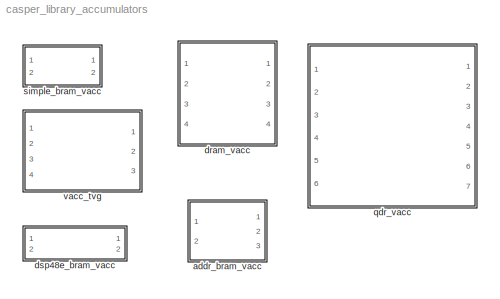
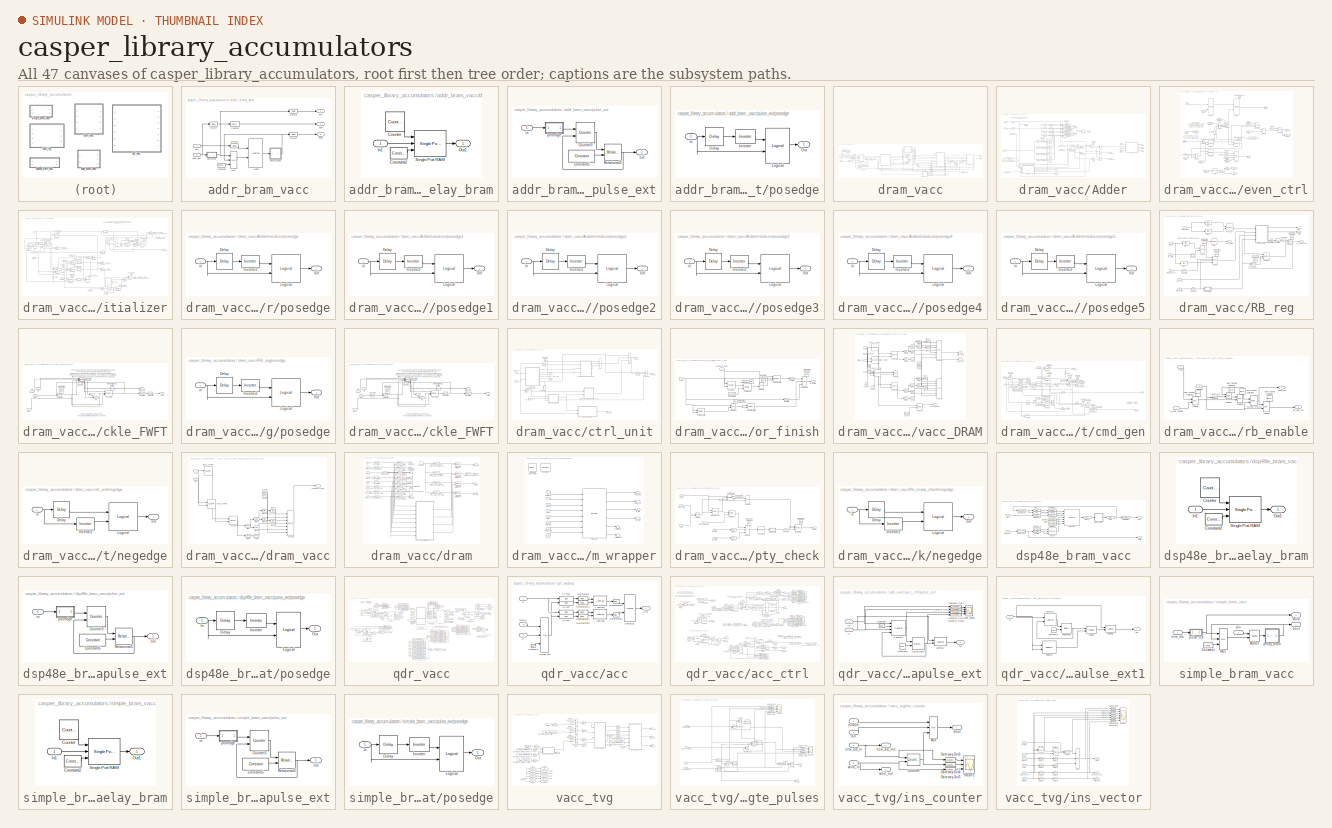
[diagram: thumbnail index - all 47 canvases of the model, root first then tree order]
MODEL casper_library_accumulators
KIND library
BLOCK [SubSystem] addr_bram_vacc
  FunctionWithSeparateData = off
  MaskCallbackString = |||
  MaskDescription = This simple vector accumulator is based on a shift register. It outputs its previous accumulated vector after a new_acc pulse is received.
  MaskEnableString = on,on,on,on
  MaskHideContents = off
  MaskIconFrame = on
  MaskIconOpaque = on
  MaskIconRotate = none
  MaskIconUnits = autoscale
  MaskInitialization = simple_bram_vacc_init(gcb, ...\n    'vec_len', vec_len, ...\n    'arith_type', arith_type, ...\n    'n_bits', n_bits, ...\n    'bin_pt', bin_pt);
  MaskPromptString = Vector length:|Output type:|Bit width (output):|Binary point (output):
  MaskStyleString = edit,popup(Signed|Unsigned),edit,edit
  MaskToolTipString = on,on,on,on
  MaskTunableValueString = on,on,on,on
  MaskType = simple_bram_vacc
  MaskValueString = 16|Signed|32|0
  MaskVariables = vec_len=@1;arith_type=&2;n_bits=@3;bin_pt=@4;
  MaskVisibilityString = on,on,on,on
  MinAlgLoopOccurrences = off
  Opaque = off
  Ports = [2, 3]
  PropExecContextOutsideSubsystem = off
  RTWSystemCode = Auto
  UserData = DataTag0
  UserDataPersistent = on
BLOCK [Reference] addr_bram_vacc/Adder  REF=xbsIndex_r4/AddSub
  Ports = [2, 1]
  SourceBlock = xbsIndex_r4/AddSub
  SourceType = Xilinx Adder/Subtracter Block
  arith_type = Signed  (2's comp)
  bin_pt = bin_pt
  block_type = addsub
  block_version = 10.1.3
  dbl_ovrd = off
  en = off
  has_advanced_control = 0
  hw_selection = Fabric
  latency = 2
  mode = Addition
  n_bits = n_bits
  overflow = Wrap
  pipelined = off
  precision = User Defined
  quantization = Truncate
  sg_icon_stat = 55,111,1,1,white,blue,0,89752214,right
  sg_mask_display = fprintf('','COMMENT: begin icon graphics');\npatch([0 55 55 0 ],[0 0 111 111 ],[0.77 0.82 0.91]);\npatch([13 4 17 4 13 28 32 36 52 40 28 19 32 19 28 40 52 36 32 28 13 ],[34 43 56 69 78 78 74 78 78 66 78 69 56 43 34 46 34 34 38 34 34 ],[0.98 0.96 0.92]);\nplot([0 55 55 0 0 ],[0 0 111 111 0 ]);\nfprintf('','COMMENT: end icon graphics');\nfprintf('','COMMENT: begin icon text');\ncolor('black');port_l...<+244ch>
  sggui_pos = 0,0,419,344
  use_behavioral_HDL = on
  use_carryin = off
  use_carryout = off
  use_rpm = on
  xl_area = [0, 0, 0, 0, 0, 0, 0]
  xl_use_area = off
BLOCK [Reference] addr_bram_vacc/Constant  REF=xbsIndex_r4/Constant
  Ports = [0, 1]
  SourceBlock = xbsIndex_r4/Constant
  SourceType = Xilinx Constant Block Block
  arith_type = Signed (2's comp)
  bin_pt = bin_pt
  block_type = constant
  block_version = 10.1.3
  carry = CIN
  const = 0
  dbl_ovrd = off
  dsp48_infoedit = The use of this block for DSP48 instructions is deprecated.  Please use the Opmode block.
  equ = P=C
  exp_width = 8
  explicit_period = on
  frac_width = 24
  gui_display_data_type = Fixed-point
  has_advanced_control = 0
  inp1 = P
  inp2 = PCIN>>17
  n_bits = n_bits
  opr = +
  opselect = C
  period = 1
  preci_type = Single
  sg_icon_stat = 30,16,1,1,white,blue,0,72d575a1,right
  sg_list_contents = {'table'=>{'carry'=>'popup(0|1|CIN|~SIGN(P or PCIN)|~SIGN(A*B or A:B)|~SIGND(A*B or A:B))','inp1'=>'popup(0|P|A:B|A*B|C|P+C|A:B+C)','inp2'=>'popup(0|PCIN|P|C|PCIN>>17|P>>17)','opselect'=>'popup(C + A*B|PCIN + A*B|P + A*B|A * B|C + A:B|C - A:B|C|Custom)','userSelections'=>{'carry'=>'CIN','inp1'=>'P','inp2'=>'PCIN>>17','opselect'=>'C'}}}  <repeated x6 — deduplicated; at blocks: Constant, alumode, carryin, carryinsel, opmode_Z>
  sg_mask_display = fprintf('','COMMENT: begin icon graphics');\npatch([0 1 1 0 ],[0 0 1 1 ],[0.77 0.82 0.91]);\npatch([0.366667 0.266667 0.4 0.266667 0.366667 0.5 0.533333 0.566667 0.733333 0.6 0.5 0.433333 0.566667 0.433333 0.5 0.6 0.733333 0.566667 0.533333 0.5 0.366667 ],[0.125 0.3125 0.5625 0.8125 1 1 0.9375 1 1 0.75 0.9375 0.8125 0.5625 0.3125 0.1875 0.375 0.125 0.125 0.1875 0.125 0.125 ],[0.98 0.96 0.92]);\npl...<+199ch>
  sggui_pos = -1,-1,-1,-1
BLOCK [Reference] addr_bram_vacc/Counter  REF=xbsIndex_r4/Counter
  Ports = [1, 1]
  SourceBlock = xbsIndex_r4/Counter
  SourceType = Xilinx Counter Block
  arith_type = Unsigned
  bin_pt = 0
  block_type = counter
  block_version = 10.1.3
  cnt_by_val = 1
  cnt_to = Inf
  cnt_type = Free Running
  dbl_ovrd = off
  en = off
  explicit_period = on
  has_advanced_control = 0
  implementation = Fabric
  infoedit = Hardware notes: Free running counters are the least expensive in hardware.  A count limited counter is implemented by combining a counter with a comparator.
  load_pin = off
  n_bits = nextpow2(vec_len)
  operation = Up
  period = 1
  rst = on
  sg_icon_stat = 35,18,1,1,white,blue,0,300e9576,right
  sg_mask_display = fprintf('','COMMENT: begin icon graphics');\npatch([0 35 35 0 ],[0 0 18 18 ],[0.77 0.82 0.91]);\npatch([13 10 14 10 13 18 19 20 25 21 17 14 18 14 17 21 25 20 19 18 13 ],[2 5 9 13 16 16 15 16 16 12 16 13 9 5 2 6 2 2 3 2 2 ],[0.98 0.96 0.92]);\nplot([0 35 35 0 0 ],[0 0 18 18 0 ]);\nfprintf('','COMMENT: end icon graphics');\nfprintf('','COMMENT: begin icon text');\ncolor('black');port_label('input',1...<+95ch>
  sggui_pos = 20,20,348,619
  start_count = 0
  use_behavioral_HDL = off
  use_rpm = off
  xl_area = [0,0,0,0,0,0,0]
  xl_use_area = off
BLOCK [Reference] addr_bram_vacc/Delay1  REF=xbsIndex_r4/Delay
  Ports = [1, 1]
  SourceBlock = xbsIndex_r4/Delay
  SourceType = Xilinx Delay Block
  block_type = delay
  block_version = 10.1.3
  dbl_ovrd = off
  en = off
  has_advanced_control = 0
  infoedit = Hardware notes: A delay line is a chain, each link of which is an SRL16 followed by a flip-flop.
  infoeditControl = Selection of Reset will increase slice count due to use of real FFs and instead of SRLs
  latency = 1
  reg_retiming = on
  rst = off
  sg_icon_stat = 30,16,1,1,white,blue,0,07b98262,right,,[ ],[ ]
  sg_mask_display = fprintf('','COMMENT: begin icon graphics');\npatch([0 30 30 0 0 ],[0 0 16 16 0 ],[0.77 0.82 0.91 ]);\nplot([0 30 30 0 0 ],[0 0 16 16 0 ]);\npatch([10.55 13.44 15.44 17.44 19.44 15.44 12.55 10.55 ],[10.22 10.22 12.22 10.22 12.22 12.22 12.22 10.22 ],[1 1 1 ]);\npatch([12.55 15.44 13.44 10.55 12.55 ],[8.22 8.22 10.22 10.22 8.22 ],[0.931 0.946 0.973 ]);\npatch([10.55 13.44 15.44 12.55 10.55 ],[6.22 6....<+317ch>  <repeated x4 — deduplicated; at blocks: Delay1, Delay2, Delay4, Delay8>
  sggui_pos = 20,20,348,255
  xl_area = [0,0,0,0,0,0,0]
  xl_use_area = off
BLOCK [Reference] addr_bram_vacc/Delay2  REF=xbsIndex_r4/Delay
  Ports = [1, 1]
  SourceBlock = xbsIndex_r4/Delay
  SourceType = Xilinx Delay Block
  block_type = delay
  block_version = 10.1.3
  dbl_ovrd = off
  en = off
  has_advanced_control = 0
  infoedit = Hardware notes: A delay line is a chain, each link of which is an SRL16 followed by a flip-flop.
  infoeditControl = Selection of Reset will increase slice count due to use of real FFs and instead of SRLs
  latency = 1
  reg_retiming = on
  rst = off
  sg_icon_stat = 30,16,1,1,white,blue,0,07b98262,right,,[ ],[ ]
  sggui_pos = 20,20,348,255
  xl_area = [0,0,0,0,0,0,0]
  xl_use_area = off
BLOCK [Reference] addr_bram_vacc/Delay4  REF=xbsIndex_r4/Delay
  Ports = [1, 1]
  SourceBlock = xbsIndex_r4/Delay
  SourceType = Xilinx Delay Block
  block_type = delay
  block_version = 10.1.3
  dbl_ovrd = off
  en = off
  has_advanced_control = 0
  infoedit = Hardware notes: A delay line is a chain, each link of which is an SRL16 followed by a flip-flop.
  infoeditControl = Selection of Reset will increase slice count due to use of real FFs and instead of SRLs
  latency = 1
  reg_retiming = on
  rst = off
  sg_icon_stat = 30,16,1,1,white,blue,0,07b98262,right,,[ ],[ ]
  sggui_pos = 20,20,348,255
  xl_area = [0,0,0,0,0,0,0]
  xl_use_area = off
BLOCK [Reference] addr_bram_vacc/Delay8  REF=xbsIndex_r4/Delay
  Ports = [1, 1]
  SourceBlock = xbsIndex_r4/Delay
  SourceType = Xilinx Delay Block
  block_type = delay
  block_version = 10.1.3
  dbl_ovrd = off
  en = off
  has_advanced_control = 0
  infoedit = Hardware notes: A delay line is a chain, each link of which is an SRL16 followed by a flip-flop.
  infoeditControl = Selection of Reset will increase slice count due to use of real FFs and instead of SRLs
  latency = 2
  reg_retiming = on
  rst = off
  sg_icon_stat = 30,16,1,1,white,blue,0,85ce9542,right,,[ ],[ ]
  sggui_pos = 20,20,348,255
  xl_area = [0,0,0,0,0,0,0]
  xl_use_area = off
BLOCK [Reference] addr_bram_vacc/Mux  REF=xbsIndex_r4/Mux
  Ports = [3, 1]
  SourceBlock = xbsIndex_r4/Mux
  SourceType = Xilinx Bus Multiplexer Block
  arith_type = Signed  (2's comp)
  bin_pt = 2
  block_type = mux
  block_version = 10.1.3
  dbl_ovrd = off
  en = off
  has_advanced_control = 0
  inputs = 2
  latency = 2
  n_bits = 8
  overflow = Wrap
  precision = Full
  quantization = Truncate
  sg_icon_stat = 25,66,3,1,white,blue,3,7e8e053c,right,,[ ],[ ]
  sg_mask_display = fprintf('','COMMENT: begin icon graphics');\npatch([0 25 25 0 0 ],[0 9.42857 56.5714 66 0 ],[0.77 0.82 0.91 ]);\nplot([0 25 25 0 0 ],[0 9.42857 56.5714 66 0 ]);\npatch([5.325 9.66 12.66 15.66 18.66 12.66 8.325 5.325 ],[36.33 36.33 39.33 36.33 39.33 39.33 39.33 36.33 ],[1 1 1 ]);\npatch([8.325 12.66 9.66 5.325 8.325 ],[33.33 33.33 36.33 36.33 33.33 ],[0.931 0.946 0.973 ]);\npatch([5.325 9.66 12.66 ...<+489ch>
  sggui_pos = 20,20,348,303
  xl_area = [0, 0, 0, 0, 0, 0, 0]
  xl_use_area = off
BLOCK [Outport] addr_bram_vacc/addr
  IconDisplay = Port number
BLOCK [SubSystem] addr_bram_vacc/delay_bram
  FunctionWithSeparateData = off
  MaskCallbackString = |
  MaskDescription = A delay block that uses BRAM for its storage.
  MaskEnableString = on,on
  MaskHelp = eval('xlWeb(''http://casper.berkeley.edu/wiki/Delay_bram'')')
  MaskHideContents = off
  MaskIconFrame = on
  MaskIconOpaque = on
  MaskIconRotate = none
  MaskIconUnits = autoscale
  MaskInitialization = if (DelayLen <= bram_latency)\n	error('delay value must be greater than BRAM Latency');\nend\nBitWidth = max(ceil(log2(DelayLen)), 2);
  MaskPromptString = Delay By:|BRAM Latency
  MaskSelfModifiable = on
  MaskStyleString = edit,edit
  MaskToolTipString = on,on
  MaskTunableValueString = on,on
  MaskType = delay_bram
  MaskValueString = vec_len - 2 - 2|2
  MaskVariables = DelayLen=@1;bram_latency=@2;
  MaskVisibilityString = on,on
  MinAlgLoopOccurrences = off
  Opaque = off
  Ports = [1, 1]
  PropExecContextOutsideSubsystem = off
  RTWSystemCode = Auto
BLOCK [Reference] addr_bram_vacc/delay_bram/Constant2  REF=xbsIndex_r4/Constant
  Ports = [0, 1]
  SourceBlock = xbsIndex_r4/Constant
  SourceType = Xilinx Constant Block Block
  arith_type = Boolean
  bin_pt = 0
  block_type = constant
  block_version = 10.1.3
  carry = CIN
  const = 1
  dbl_ovrd = off
  dsp48_infoedit = The use of this block for DSP48 instructions is deprecated.  Please use the Opmode block.
  equ = P=C
  exp_width = 8
  explicit_period = on
  frac_width = 24
  gui_display_data_type = Fixed-point
  has_advanced_control = 0
  inp1 = P
  inp2 = PCIN>>17
  n_bits = 1
  opr = +
  opselect = C
  period = 1
  preci_type = Single
  sg_icon_stat = 35,24,0,1,white,blue,0,1c72b5be,right,,[ ],[ ]
  sg_mask_display = fprintf('','COMMENT: begin icon graphics');\npatch([0 35 35 0 0 ],[0 0 24 24 0 ],[0.77 0.82 0.91 ]);\nplot([0 35 35 0 0 ],[0 0 24 24 0 ]);\npatch([10.325 14.66 17.66 20.66 23.66 17.66 13.325 10.325 ],[15.33 15.33 18.33 15.33 18.33 18.33 18.33 15.33 ],[1 1 1 ]);\npatch([13.325 17.66 14.66 10.325 13.325 ],[12.33 12.33 15.33 15.33 12.33 ],[0.931 0.946 0.973 ]);\npatch([10.325 14.66 17.66 13.325 10.32...<+327ch>
  sggui_pos = -1,-1,-1,-1
BLOCK [Reference] addr_bram_vacc/delay_bram/Counter  REF=xbsIndex_r4/Counter
  Ports = [0, 1]
  SourceBlock = xbsIndex_r4/Counter
  SourceType = Xilinx Counter Block
  arith_type = Unsigned
  bin_pt = 0
  block_type = counter
  block_version = 10.1.3
  cnt_by_val = 1
  cnt_to = DelayLen - bram_latency - 1
  cnt_type = Count Limited
  dbl_ovrd = off
  en = off
  explicit_period = off
  has_advanced_control = 0
  implementation = Fabric
  infoedit = Hardware notes: Free running counters are the least expensive in hardware.  A count limited counter is implemented by combining a counter with a comparator.
  load_pin = off
  n_bits = BitWidth
  operation = Up
  period = 1
  rst = off
  sg_icon_stat = 40,40,1,1,white,blue,0,a170c862,right
  sg_mask_display = fprintf('','COMMENT: begin icon graphics');\npatch([0 1 1 0 ],[0 0 1 1 ],[0.77 0.82 0.91]);\npatch([0.25 0.075 0.3 0.075 0.25 0.525 0.6 0.675 0.95 0.725 0.5 0.35 0.6 0.35 0.5 0.725 0.95 0.675 0.6 0.525 0.25 ],[0.1 0.275 0.5 0.725 0.9 0.9 0.825 0.9 0.9 0.675 0.9 0.75 0.5 0.25 0.1 0.325 0.1 0.1 0.175 0.1 0.1 ],[0.98 0.96 0.92]);\nplot([0 1 1 0 0 ],[0 0 1 1 0 ]);\nfprintf('','COMMENT: end icon graphi...<+133ch>  <repeated x3 — deduplicated; at blocks: Counter>
  sggui_pos = -1,-1,-1,-1
  start_count = 0
  use_behavioral_HDL = off
  use_rpm = off
  xl_area = [0, 0, 0, 0, 0, 0, 0]
  xl_use_area = off
BLOCK [Inport] addr_bram_vacc/delay_bram/In1
  IconDisplay = Port number
BLOCK [Outport] addr_bram_vacc/delay_bram/Out1
  IconDisplay = Port number
BLOCK [Reference] addr_bram_vacc/delay_bram/Single Port RAM  REF=xbsIndex_r4/Single Port RAM
  Ports = [3, 1]
  SourceBlock = xbsIndex_r4/Single Port RAM
  SourceType = Xilinx Single Port Random Access Memory Block
  block_type = spram
  block_version = 10.1.3
  dbl_ovrd = off
  depth = 2^BitWidth
  distributed_mem = Block RAM
  en = off
  has_advanced_control = 0
  initVector = 0
  init_reg = 0
  latency = bram_latency
  optimize = Area
  rst = off
  sg_icon_stat = 65,54,1,1,white,blue,0,e5f9a5f3,right
  sg_mask_display = fprintf('','COMMENT: begin icon graphics');\npatch([0 1 1 0 ],[0 0 1 1 ],[0.77 0.82 0.91]);\npatch([0.276923 0.138462 0.338462 0.138462 0.276923 0.492308 0.553846 0.615385 0.846154 0.661538 0.476923 0.353846 0.569231 0.353846 0.476923 0.661538 0.846154 0.615385 0.553846 0.492308 0.276923 ],[0.111111 0.277778 0.518519 0.759259 0.925926 0.925926 0.851852 0.925926 0.925926 0.703704 0.925926 0.777778 ...<+443ch>  <repeated x3 — deduplicated; at blocks: Single Port RAM>
  sggui_pos = -1,-1,-1,-1
  use_rpm = off
  write_mode = Read Before Write
  xl_area = [0, 0, 0, 0, 0, 0, 0]
  xl_use_area = off
BLOCK [Inport] addr_bram_vacc/din
  IconDisplay = Port number
  Port = 2
BLOCK [Outport] addr_bram_vacc/dout
  IconDisplay = Port number
  Port = 2
BLOCK [Inport] addr_bram_vacc/new_acc
  IconDisplay = Port number
BLOCK [SubSystem] addr_bram_vacc/pulse_ext
  FunctionWithSeparateData = off
  MaskDescription = Extends a boolean signal to be high for the specified number of clocks after\nthe last high input.
  MaskEnableString = on
  MaskHelp = eval('xlWeb(''http://casper.berkeley.edu/wiki/Pulse_ext'')')
  MaskHideContents = off
  MaskIconFrame = on
  MaskIconOpaque = on
  MaskIconRotate = none
  MaskIconUnits = autoscale
  MaskInitialization = bits = ceil(log2(pulse_len+1));
  MaskPromptString = Length of Pulse
  MaskStyleString = edit
  MaskToolTipString = on
  MaskTunableValueString = on
  MaskType = pulse_ext
  MaskValueString = vec_len
  MaskVariables = pulse_len=@1;
  MaskVisibilityString = on
  MinAlgLoopOccurrences = off
  Opaque = off
  Ports = [1, 1]
  PropExecContextOutsideSubsystem = off
  RTWSystemCode = Auto
BLOCK [Reference] addr_bram_vacc/pulse_ext/Constant5  REF=xbsIndex_r4/Constant
  Ports = [0, 1]
  SourceBlock = xbsIndex_r4/Constant
  SourceType = Xilinx Constant Block Block
  arith_type = Unsigned
  bin_pt = 0
  block_type = constant
  block_version = 10.1.3
  carry = CIN
  const = pulse_len
  dbl_ovrd = off
  dsp48_infoedit = The use of this block for DSP48 instructions is deprecated.  Please use the Opmode block.
  equ = P=C
  exp_width = 8
  explicit_period = off
  frac_width = 24
  gui_display_data_type = Fixed-point
  has_advanced_control = 0
  inp1 = P
  inp2 = PCIN>>17
  n_bits = bits
  opr = +
  opselect = C
  period = 1
  preci_type = Single
  sg_icon_stat = 70,32,1,1,white,blue,0,636e1b21,right
  sg_mask_display = fprintf('','COMMENT: begin icon graphics');\npatch([0 1 1 0 ],[0 0 1 1 ],[0.77 0.82 0.91]);\npatch([0.371429 0.3 0.4 0.3 0.371429 0.485714 0.514286 0.542857 0.671429 0.571429 0.471429 0.4 0.5 0.4 0.471429 0.571429 0.671429 0.542857 0.514286 0.485714 0.371429 ],[0.09375 0.25 0.46875 0.6875 0.84375 0.84375 0.78125 0.84375 0.84375 0.625 0.84375 0.6875 0.46875 0.25 0.09375 0.3125 0.09375 0.09375 0.156...<+243ch>
  sggui_pos = -1,-1,-1,-1
BLOCK [Reference] addr_bram_vacc/pulse_ext/Counter3  REF=xbsIndex_r4/Counter
  Ports = [2, 1]
  SourceBlock = xbsIndex_r4/Counter
  SourceType = Xilinx Counter Block
  arith_type = Unsigned
  bin_pt = 0
  block_type = counter
  block_version = 10.1.3
  cnt_by_val = 1
  cnt_to = 1023
  cnt_type = Free Running
  dbl_ovrd = off
  en = on
  explicit_period = on
  has_advanced_control = 0
  implementation = Fabric
  infoedit = Hardware notes: Free running counters are the least expensive in hardware.  A count limited counter is implemented by combining a counter with a comparator.
  load_pin = off
  n_bits = bits
  operation = Up
  period = 1
  rst = on
  sg_icon_stat = 50,55,1,1,white,blue,0,46c73e85,right
  sg_mask_display = fprintf('','COMMENT: begin icon graphics');\npatch([0 1 1 0 ],[0 0 1 1 ],[0.77 0.82 0.91]);\npatch([0.22 0.06 0.3 0.06 0.22 0.48 0.56 0.64 0.92 0.7 0.48 0.32 0.56 0.32 0.48 0.7 0.92 0.64 0.56 0.48 0.22 ],[0.145455 0.290909 0.509091 0.727273 0.872727 0.872727 0.8 0.872727 0.872727 0.672727 0.872727 0.727273 0.509091 0.290909 0.145455 0.345455 0.145455 0.145455 0.218182 0.145455 0.145455 ],[0.98 0.9...<+303ch>  <repeated x3 — deduplicated; at blocks: Counter3>
  sggui_pos = -1,-1,-1,-1
  start_count = 0
  use_behavioral_HDL = off
  use_rpm = on
  xl_area = [0, 0, 0, 0, 0, 0, 0]
  xl_use_area = off
BLOCK [Reference] addr_bram_vacc/pulse_ext/Relational5  REF=xbsIndex_r4/Relational
  Ports = [2, 1]
  SourceBlock = xbsIndex_r4/Relational
  SourceType = Xilinx Arithmetic Relational Operator Block
  block_type = relational
  block_version = 10.1.3
  dbl_ovrd = off
  en = off
  has_advanced_control = 0
  latency = 0
  mode = a!=b
  sg_icon_stat = 45,44,2,1,white,blue,0,850de6e7,right,,[ ],[ ]
  sg_mask_display = fprintf('','COMMENT: begin icon graphics');\npatch([0 45 45 0 0 ],[0 0 44 44 0 ],[0.77 0.82 0.91 ]);\nplot([0 45 45 0 0 ],[0 0 44 44 0 ]);\npatch([8.65 17.32 23.32 29.32 35.32 23.32 14.65 8.65 ],[28.66 28.66 34.66 28.66 34.66 34.66 34.66 28.66 ],[1 1 1 ]);\npatch([14.65 23.32 17.32 8.65 14.65 ],[22.66 22.66 28.66 28.66 22.66 ],[0.931 0.946 0.973 ]);\npatch([8.65 17.32 23.32 14.65 8.65 ],[16.66 16....<+459ch>  <repeated x5 — deduplicated; at blocks: Relational5>
  sggui_pos = -1,-1,-1,-1
  xl_area = [0, 0, 0, 0, 0, 0, 0]
  xl_use_area = off
BLOCK [Inport] addr_bram_vacc/pulse_ext/in
  IconDisplay = Port number
BLOCK [Outport] addr_bram_vacc/pulse_ext/out
  IconDisplay = Port number
BLOCK [SubSystem] addr_bram_vacc/pulse_ext/posedge
  FunctionWithSeparateData = off
  MaskHideContents = off
  MinAlgLoopOccurrences = off
  Opaque = off
  Ports = [1, 1]
  PropExecContextOutsideSubsystem = off
  RTWSystemCode = Auto
  Tag = Rising Edge Detector
BLOCK [Reference] addr_bram_vacc/pulse_ext/posedge/Delay  REF=xbsIndex_r4/Delay
  Ports = [1, 1]
  SourceBlock = xbsIndex_r4/Delay
  SourceType = Xilinx Delay Block
  block_type = delay
  block_version = 10.1.3
  dbl_ovrd = off
  en = off
  has_advanced_control = 0
  infoedit = Hardware notes: A delay line is a chain, each link of which is an SRL16 followed by a flip-flop.
  infoeditControl = Selection of Reset will increase slice count due to use of real FFs and instead of SRLs
  latency = 1
  reg_retiming = off
  rst = off
  sg_icon_stat = 45,46,1,1,white,blue,0,07b98262,right,,[ ],[ ]
  sg_mask_display = fprintf('','COMMENT: begin icon graphics');\npatch([0 45 45 0 0 ],[0 0 46 46 0 ],[0.77 0.82 0.91 ]);\nplot([0 45 45 0 0 ],[0 0 46 46 0 ]);\npatch([8.65 17.32 23.32 29.32 35.32 23.32 14.65 8.65 ],[29.66 29.66 35.66 29.66 35.66 35.66 35.66 29.66 ],[1 1 1 ]);\npatch([14.65 23.32 17.32 8.65 14.65 ],[23.66 23.66 29.66 29.66 23.66 ],[0.931 0.946 0.973 ]);\npatch([8.65 17.32 23.32 14.65 8.65 ],[17.66 17....<+326ch>  <repeated x10 — deduplicated; at blocks: Delay>
  sggui_pos = -1,-1,-1,-1
  xl_area = [0, 0, 0, 0, 0, 0, 0]
  xl_use_area = off
BLOCK [Inport] addr_bram_vacc/pulse_ext/posedge/In
  IconDisplay = Port number
BLOCK [Reference] addr_bram_vacc/pulse_ext/posedge/Inverter  REF=xbsIndex_r4/Inverter
  Ports = [1, 1]
  SourceBlock = xbsIndex_r4/Inverter
  SourceType = Xilinx Inverter Block
  block_type = inv
  block_version = 10.1.3
  dbl_ovrd = off
  en = off
  has_advanced_control = 0
  infoedit = Bitwise logical negation (one's complement) operator.
  latency = 0
  sg_icon_stat = 50,34,1,1,white,blue,0,267846e5,right,,[ ],[ ]
  sg_mask_display = fprintf('','COMMENT: begin icon graphics');\npatch([0 50 50 0 0 ],[0 0 34 34 0 ],[0.77 0.82 0.91 ]);\nplot([0 50 50 0 0 ],[0 0 34 34 0 ]);\npatch([16.1 21.88 25.88 29.88 33.88 25.88 20.1 16.1 ],[21.44 21.44 25.44 21.44 25.44 25.44 25.44 21.44 ],[1 1 1 ]);\npatch([20.1 25.88 21.88 16.1 20.1 ],[17.44 17.44 21.44 21.44 17.44 ],[0.931 0.946 0.973 ]);\npatch([16.1 21.88 25.88 20.1 16.1 ],[13.44 13.44 1...<+298ch>  <repeated x10 — deduplicated; at blocks: Inverter, Inverter2, Inverter1>
  sggui_pos = -1,-1,-1,-1
  xl_area = [0, 0, 0, 0, 0, 0, 0]
  xl_use_area = off
BLOCK [Reference] addr_bram_vacc/pulse_ext/posedge/Logical  REF=xbsIndex_r4/Logical
  Ports = [2, 1]
  SourceBlock = xbsIndex_r4/Logical
  SourceType = Xilinx Logical Block Block
  align_bp = on
  arith_type = Unsigned
  bin_pt = 2
  block_type = logical
  block_version = 10.1.3
  dbl_ovrd = off
  en = off
  has_advanced_control = 0
  inputs = 2
  latency = 0
  logical_function = AND
  n_bits = 8
  precision = Full
  sg_icon_stat = 60,87,2,1,white,blue,0,83a4b621,right,,[ ],[ ]
  sg_mask_display = fprintf('','COMMENT: begin icon graphics');\npatch([0 60 60 0 0 ],[0 0 87 87 0 ],[0.77 0.82 0.91 ]);\nplot([0 60 60 0 0 ],[0 0 87 87 0 ]);\npatch([12.2 23.76 31.76 39.76 47.76 31.76 20.2 12.2 ],[51.88 51.88 59.88 51.88 59.88 59.88 59.88 51.88 ],[1 1 1 ]);\npatch([20.2 31.76 23.76 12.2 20.2 ],[43.88 43.88 51.88 51.88 43.88 ],[0.931 0.946 0.973 ]);\npatch([12.2 23.76 31.76 20.2 12.2 ],[35.88 35.88 4...<+304ch>  <repeated x3 — deduplicated; at blocks: Logical>
  sggui_pos = -1,-1,-1,-1
  xl_area = [0, 0, 0, 0, 0, 0, 0]
  xl_use_area = off
BLOCK [Outport] addr_bram_vacc/pulse_ext/posedge/Out
  IconDisplay = Port number
BLOCK [Outport] addr_bram_vacc/we
  IconDisplay = Port number
  Port = 3
BLOCK [SubSystem] dram_vacc
  AttributesFormatString = Vector Length: 18432
  FunctionWithSeparateData = off
  MaskCallbackString = ||
  MaskDescription = A vector accumulator for very large vector lengths using the BEE2's DRAM.
  MaskEnableString = on,on,on
  MaskHelp = eval('xlWeb(''http://casper.berkeley.edu/wiki/Dram_vacc'')')
  MaskHideContents = off
  MaskIconFrame = on
  MaskIconOpaque = on
  MaskIconRotate = none
  MaskIconUnits = autoscale
  MaskInitialization = valid_length = 36;\nset_param([gcb,'/dram'],'dimm',num2str(dimm_sel))\nif (sim_sel)\n    fprintf('DRAM_VACC in SIMULATION-ONLY mode\\n\\n')\n    set_param([gcb,'/startup_delay'],'const','400')\nelse \n    set_param([gcb,'/startup_delay'],'const','(2^28-1)')\nend\nfmtstr = sprintf('Vector Length: %d', acc_length);\nset_param(gcb, 'AttributesFormatString', fmtstr);\n
  MaskPromptString = Vector length??(# cycles)|Use DIMM number|Simulation (disables startup delay)
  MaskStyleString = edit,popup(1|2|3|4),checkbox
  MaskToolTipString = on,on,on
  MaskTunableValueString = on,on,on
  MaskType = dram_vacc
  MaskValueString = 18432|1|off
  MaskVariables = acc_length=@1;dimm_sel=@2;sim_sel=@3;
  MaskVisibilityString = on,on,on
  MinAlgLoopOccurrences = off
  Opaque = off
  Ports = [4, 4]
  PropExecContextOutsideSubsystem = off
  RTWSystemCode = Auto
BLOCK [SubSystem] dram_vacc/Adder
  FunctionWithSeparateData = off
  MaskHideContents = off
  MinAlgLoopOccurrences = off
  Opaque = off
  Ports = [6, 6]
  PropExecContextOutsideSubsystem = off
  RTWSystemCode = Auto
BLOCK [Reference] dram_vacc/Adder/AddSub4  REF=xbsIndex_r4/AddSub
  Ports = [3, 1]
  SourceBlock = xbsIndex_r4/AddSub
  SourceType = Xilinx Adder/Subtracter Block
  arith_type = Signed  (2's comp)
  bin_pt = 0
  block_type = addsub
  block_version = 9.2.01
  dbl_ovrd = off
  en = on
  has_advanced_control = 0
  hw_selection = Fabric
  latency = 3
  mode = Addition
  n_bits = 32
  overflow = Wrap
  pipelined = on
  precision = User Defined
  quantization = Round  (unbiased: +/- Inf)
  sg_icon_stat = 50,34,3,1,white,blue,0,e0dc74c9,right,,[ ],[ ]
  sg_mask_display = fprintf('','COMMENT: begin icon graphics');\npatch([0 50 50 0 0 ],[0 0 34 34 0 ],[0.77 0.82 0.91 ]);\nplot([0 50 50 0 0 ],[0 0 34 34 0 ]);\npatch([16.1 21.88 25.88 29.88 33.88 25.88 20.1 16.1 ],[21.44 21.44 25.44 21.44 25.44 25.44 25.44 21.44 ],[1 1 1 ]);\npatch([20.1 25.88 21.88 16.1 20.1 ],[17.44 17.44 21.44 21.44 17.44 ],[0.931 0.946 0.973 ]);\npatch([16.1 21.88 25.88 20.1 16.1 ],[13.44 13.44 1...<+580ch>  <repeated x4 — deduplicated; at blocks: AddSub4, AddSub5, AddSub6, AddSub7>
  sggui_pos = -1,-1,-1,-1
  use_behavioral_HDL = on
  use_carryin = off
  use_carryout = off
  use_rpm = on
  xl_area = [0, 0, 0, 0, 0, 0, 0]
  xl_use_area = off
BLOCK [Reference] dram_vacc/Adder/AddSub5  REF=xbsIndex_r4/AddSub
  Ports = [3, 1]
  SourceBlock = xbsIndex_r4/AddSub
  SourceType = Xilinx Adder/Subtracter Block
  arith_type = Signed  (2's comp)
  bin_pt = 0
  block_type = addsub
  block_version = 9.2.01
  dbl_ovrd = off
  en = on
  has_advanced_control = 0
  hw_selection = Fabric
  latency = 3
  mode = Addition
  n_bits = 32
  overflow = Wrap
  pipelined = on
  precision = User Defined
  quantization = Round  (unbiased: +/- Inf)
  sg_icon_stat = 50,34,3,1,white,blue,0,e0dc74c9,right,,[ ],[ ]
  sggui_pos = -1,-1,-1,-1
  use_behavioral_HDL = on
  use_carryin = off
  use_carryout = off
  use_rpm = on
  xl_area = [0, 0, 0, 0, 0, 0, 0]
  xl_use_area = off
BLOCK [Reference] dram_vacc/Adder/AddSub6  REF=xbsIndex_r4/AddSub
  Ports = [3, 1]
  SourceBlock = xbsIndex_r4/AddSub
  SourceType = Xilinx Adder/Subtracter Block
  arith_type = Signed  (2's comp)
  bin_pt = 0
  block_type = addsub
  block_version = 9.2.01
  dbl_ovrd = off
  en = on
  has_advanced_control = 0
  hw_selection = Fabric
  latency = 3
  mode = Addition
  n_bits = 32
  overflow = Wrap
  pipelined = on
  precision = User Defined
  quantization = Round  (unbiased: +/- Inf)
  sg_icon_stat = 50,34,3,1,white,blue,0,e0dc74c9,right,,[ ],[ ]
  sggui_pos = -1,-1,-1,-1
  use_behavioral_HDL = on
  use_carryin = off
  use_carryout = off
  use_rpm = on
  xl_area = [0, 0, 0, 0, 0, 0, 0]
  xl_use_area = off
BLOCK [Reference] dram_vacc/Adder/AddSub7  REF=xbsIndex_r4/AddSub
  Ports = [3, 1]
  SourceBlock = xbsIndex_r4/AddSub
  SourceType = Xilinx Adder/Subtracter Block
  arith_type = Signed  (2's comp)
  bin_pt = 0
  block_type = addsub
  block_version = 9.2.01
  dbl_ovrd = off
  en = on
  has_advanced_control = 0
  hw_selection = Fabric
  latency = 3
  mode = Addition
  n_bits = 32
  overflow = Wrap
  pipelined = on
  precision = User Defined
  quantization = Round  (unbiased: +/- Inf)
  sg_icon_stat = 50,34,3,1,white,blue,0,e0dc74c9,right,,[ ],[ ]
  sggui_pos = -1,-1,-1,-1
  use_behavioral_HDL = on
  use_carryin = off
  use_carryout = off
  use_rpm = on
  xl_area = [0, 0, 0, 0, 0, 0, 0]
  xl_use_area = off
BLOCK [Reference] dram_vacc/Adder/Concat1  REF=xbsIndex_r4/Concat
  Ports = [2, 1]
  SourceBlock = xbsIndex_r4/Concat
  SourceType = Xilinx Bus Concatenator Block
  block_type = concat
  block_version = 9.2.01
  dbl_ovrd = off
  has_advanced_control = 0
  infoedit = Concatenates two or more inputs.  Output will be cast to an unsigned value with the binary point at zero.
  num_inputs = 2
  sg_icon_stat = 45,38,2,1,white,blue,0,16398980,right,,[ ],[ ]
  sg_mask_display = fprintf('','COMMENT: begin icon graphics');\npatch([0 45 45 0 0 ],[0 0 38 38 0 ],[0.77 0.82 0.91 ]);\nplot([0 45 45 0 0 ],[0 0 38 38 0 ]);\npatch([10.875 18.1 23.1 28.1 33.1 23.1 15.875 10.875 ],[24.55 24.55 29.55 24.55 29.55 29.55 29.55 24.55 ],[1 1 1 ]);\npatch([15.875 23.1 18.1 10.875 15.875 ],[19.55 19.55 24.55 24.55 19.55 ],[0.931 0.946 0.973 ]);\npatch([10.875 18.1 23.1 15.875 10.875 ],[14.5...<+424ch>
  sggui_pos = -1,-1,-1,-1
BLOCK [Reference] dram_vacc/Adder/Concat1v1  REF=xbsIndex_r4/Concat
  Ports = [2, 1]
  SourceBlock = xbsIndex_r4/Concat
  SourceType = Xilinx Bus Concatenator Block
  block_type = concat
  block_version = 9.2.01
  dbl_ovrd = off
  has_advanced_control = 0
  infoedit = Concatenates two or more inputs.  Output will be cast to an unsigned value with the binary point at zero.
  num_inputs = 2
  sg_icon_stat = 40,40,2,1,white,blue,0,16398980,right,,[ ],[ ]
  sg_mask_display = fprintf('','COMMENT: begin icon graphics');\npatch([0 40 40 0 0 ],[0 0 40 40 0 ],[0.77 0.82 0.91 ]);\nplot([0 40 40 0 0 ],[0 0 40 40 0 ]);\npatch([8.875 16.1 21.1 26.1 31.1 21.1 13.875 8.875 ],[25.55 25.55 30.55 25.55 30.55 30.55 30.55 25.55 ],[1 1 1 ]);\npatch([13.875 21.1 16.1 8.875 13.875 ],[20.55 20.55 25.55 25.55 20.55 ],[0.931 0.946 0.973 ]);\npatch([8.875 16.1 21.1 13.875 8.875 ],[15.55 15....<+422ch>
  sggui_pos = -1,-1,-1,-1
BLOCK [Reference] dram_vacc/Adder/Concat4  REF=xbsIndex_r4/Concat
  Ports = [2, 1]
  SourceBlock = xbsIndex_r4/Concat
  SourceType = Xilinx Bus Concatenator Block
  block_type = concat
  block_version = 9.2.01
  dbl_ovrd = off
  has_advanced_control = 0
  infoedit = Concatenates two or more inputs.  Output will be cast to an unsigned value with the binary point at zero.
  num_inputs = 2
  sg_icon_stat = 40,40,2,1,white,blue,0,16398980,right,,[ ],[ ]
  sg_mask_display = fprintf('','COMMENT: begin icon graphics');\npatch([0 40 40 0 0 ],[0 0 40 40 0 ],[0.77 0.82 0.91 ]);\nplot([0 40 40 0 0 ],[0 0 40 40 0 ]);\npatch([8.875 16.1 21.1 26.1 31.1 21.1 13.875 8.875 ],[25.55 25.55 30.55 25.55 30.55 30.55 30.55 25.55 ],[1 1 1 ]);\npatch([13.875 21.1 16.1 8.875 13.875 ],[20.55 20.55 25.55 25.55 20.55 ],[0.931 0.946 0.973 ]);\npatch([8.875 16.1 21.1 13.875 8.875 ],[15.55 15....<+422ch>
  sggui_pos = -1,-1,-1,-1
BLOCK [Reference] dram_vacc/Adder/Constant  REF=xbsIndex_r4/Constant
  Ports = [0, 1]
  SourceBlock = xbsIndex_r4/Constant
  SourceType = Xilinx Constant Block Block
  arith_type = Signed (2's comp)
  bin_pt = 0
  block_type = constant
  block_version = 9.2.01
  carry = CIN
  const = 0
  dbl_ovrd = off
  dsp48_infoedit = The use of this block for DSP48 instructions is deprecated.  Please use the Opmode block.
  equ = P=C
  exp_width = 8
  explicit_period = on
  frac_width = 24
  gui_display_data_type = Fixed-point
  has_advanced_control = 0
  inp1 = P
  inp2 = PCIN>>17
  n_bits = 32
  opr = +
  opselect = C
  period = 1
  preci_type = Single
  sg_icon_stat = 40,26,0,1,white,blue,0,bf4ddd8b,right,,[ ],[ ]
  sg_mask_display = fprintf('','COMMENT: begin icon graphics');\npatch([0 40 40 0 0 ],[0 0 26 26 0 ],[0.77 0.82 0.91 ]);\nplot([0 40 40 0 0 ],[0 0 26 26 0 ]);\npatch([13.325 17.66 20.66 23.66 26.66 20.66 16.325 13.325 ],[16.33 16.33 19.33 16.33 19.33 19.33 19.33 16.33 ],[1 1 1 ]);\npatch([16.325 20.66 17.66 13.325 16.325 ],[13.33 13.33 16.33 16.33 13.33 ],[0.931 0.946 0.973 ]);\npatch([13.325 17.66 20.66 16.325 13.32...<+333ch>
  sggui_pos = -1,-1,-1,-1
BLOCK [Reference] dram_vacc/Adder/Convert  REF=xbsIndex_r4/Convert
  Ports = [1, 1]
  SourceBlock = xbsIndex_r4/Convert
  SourceType = Xilinx Type Converter Block
  arith_type = Boolean
  bin_pt = 6
  block_type = convert
  block_version = 9.2.01
  dbl_ovrd = off
  en = off
  exp_bits = 8
  float_type = Single
  fraction_bits = 24
  gui_display_data_type = Fixed-point
  has_advanced_control = 0
  infoedit = Hardware notes: rounding and saturating require hardware resources; truncating and wrapping do not.
  latency = 0
  n_bits = 8
  overflow = Wrap
  pipeline = off
  quantization = Truncate
  sg_icon_stat = 25,20,1,1,white,blue,0,edca21da,right,,[ ],[ ]
  sg_mask_display = fprintf('','COMMENT: begin icon graphics');\npatch([0 25 25 0 0 ],[0 0 20 20 0 ],[0.77 0.82 0.91 ]);\nplot([0 25 25 0 0 ],[0 0 20 20 0 ]);\npatch([7.55 10.44 12.44 14.44 16.44 12.44 9.55 7.55 ],[12.22 12.22 14.22 12.22 14.22 14.22 14.22 12.22 ],[1 1 1 ]);\npatch([9.55 12.44 10.44 7.55 9.55 ],[10.22 10.22 12.22 12.22 10.22 ],[0.931 0.946 0.973 ]);\npatch([7.55 10.44 12.44 9.55 7.55 ],[8.22 8.22 10....<+308ch>  <repeated x10 — deduplicated; at blocks: Convert, Convert1, Convert2, Convert3, Convert4>
  sggui_pos = -1,-1,-1,-1
  xl_area = [0, 0, 0, 0, 0, 0, 0]
  xl_use_area = off
BLOCK [Reference] dram_vacc/Adder/Convert1  REF=xbsIndex_r4/Convert
  Ports = [1, 1]
  SourceBlock = xbsIndex_r4/Convert
  SourceType = Xilinx Type Converter Block
  arith_type = Boolean
  bin_pt = 6
  block_type = convert
  block_version = 9.2.01
  dbl_ovrd = off
  en = off
  exp_bits = 8
  float_type = Single
  fraction_bits = 24
  gui_display_data_type = Fixed-point
  has_advanced_control = 0
  infoedit = Hardware notes: rounding and saturating require hardware resources; truncating and wrapping do not.
  latency = 0
  n_bits = 8
  overflow = Wrap
  pipeline = off
  quantization = Truncate
  sg_icon_stat = 25,20,1,1,white,blue,0,edca21da,right,,[ ],[ ]
  sggui_pos = -1,-1,-1,-1
  xl_area = [0, 0, 0, 0, 0, 0, 0]
  xl_use_area = off
BLOCK [Reference] dram_vacc/Adder/Convert2  REF=xbsIndex_r4/Convert
  Ports = [1, 1]
  SourceBlock = xbsIndex_r4/Convert
  SourceType = Xilinx Type Converter Block
  arith_type = Boolean
  bin_pt = 6
  block_type = convert
  block_version = 9.2.01
  dbl_ovrd = off
  en = off
  exp_bits = 8
  float_type = Single
  fraction_bits = 24
  gui_display_data_type = Fixed-point
  has_advanced_control = 0
  infoedit = Hardware notes: rounding and saturating require hardware resources; truncating and wrapping do not.
  latency = 0
  n_bits = 8
  overflow = Wrap
  pipeline = off
  quantization = Truncate
  sg_icon_stat = 25,20,1,1,white,blue,0,edca21da,right,,[ ],[ ]
  sggui_pos = -1,-1,-1,-1
  xl_area = [0, 0, 0, 0, 0, 0, 0]
  xl_use_area = off
BLOCK [Reference] dram_vacc/Adder/Delay1  REF=xbsIndex_r4/Delay
  Ports = [2, 1]
  SourceBlock = xbsIndex_r4/Delay
  SourceType = Xilinx Delay Block
  block_type = delay
  block_version = 9.2.01
  dbl_ovrd = off
  en = on
  has_advanced_control = 0
  infoedit = Hardware notes: A delay line is a chain, each link of which is an SRL16 followed by a flip-flop.
  infoeditControl = Selection of Reset will increase slice count due to use of real FFs and instead of SRLs
  latency = 3
  reg_retiming = off
  rst = off
  sg_icon_stat = 40,36,2,1,white,blue,0,aa1406d5,right,,[ ],[ ]
  sg_mask_display = fprintf('','COMMENT: begin icon graphics');\npatch([0 40 40 0 0 ],[0 0 36 36 0 ],[0.77 0.82 0.91 ]);\nplot([0 40 40 0 0 ],[0 0 36 36 0 ]);\npatch([8.875 16.1 21.1 26.1 31.1 21.1 13.875 8.875 ],[23.55 23.55 28.55 23.55 28.55 28.55 28.55 23.55 ],[1 1 1 ]);\npatch([13.875 21.1 16.1 8.875 13.875 ],[18.55 18.55 23.55 23.55 18.55 ],[0.931 0.946 0.973 ]);\npatch([8.875 16.1 21.1 13.875 8.875 ],[13.55 13....<+365ch>  <repeated x3 — deduplicated; at blocks: Delay1, Delay2>
  sggui_pos = -1,-1,-1,-1
  xl_area = [0, 0, 0, 0, 0, 0, 0]
  xl_use_area = off
BLOCK [Inport] dram_vacc/Adder/FIFO_data
  IconDisplay = Port number
BLOCK [From] dram_vacc/Adder/From
  CloseFcn = tagdialog Close
  GotoTag = Data
BLOCK [From] dram_vacc/Adder/From1
  CloseFcn = tagdialog Close
  GotoTag = ctrl_ready
BLOCK [From] dram_vacc/Adder/From2
  CloseFcn = tagdialog Close
  GotoTag = sync_ctrl
BLOCK [Goto] dram_vacc/Adder/Goto
  GotoTag = Data
  TagVisibility = local
BLOCK [Goto] dram_vacc/Adder/Goto1
  GotoTag = ctrl_ready
  TagVisibility = local
BLOCK [Goto] dram_vacc/Adder/Goto2
  GotoTag = sync_ctrl
  TagVisibility = local
BLOCK [Reference] dram_vacc/Adder/Logical1  REF=xbsIndex_r4/Logical
  Ports = [2, 1]
  SourceBlock = xbsIndex_r4/Logical
  SourceType = Xilinx Logical Block Block
  align_bp = on
  arith_type = Unsigned
  bin_pt = 2
  block_type = logical
  block_version = 9.2.01
  dbl_ovrd = off
  en = off
  has_advanced_control = 0
  inputs = 2
  latency = 0
  logical_function = OR
  n_bits = 8
  precision = Full
  sg_icon_stat = 25,29,2,1,white,blue,0,7ede7d88,right,,[ ],[ ]
  sg_mask_display = fprintf('','COMMENT: begin icon graphics');\npatch([0 25 25 0 0 ],[0 0 29 29 0 ],[0.77 0.82 0.91 ]);\nplot([0 25 25 0 0 ],[0 0 29 29 0 ]);\npatch([5.325 9.66 12.66 15.66 18.66 12.66 8.325 5.325 ],[17.33 17.33 20.33 17.33 20.33 20.33 20.33 17.33 ],[1 1 1 ]);\npatch([8.325 12.66 9.66 5.325 8.325 ],[14.33 14.33 17.33 17.33 14.33 ],[0.931 0.946 0.973 ]);\npatch([5.325 9.66 12.66 8.325 5.325 ],[11.33 1...<+307ch>  <repeated x6 — deduplicated; at blocks: Logical1, Logical4, Logical5>
  sggui_pos = -1,-1,-1,-1
  xl_area = [0, 0, 0, 0, 0, 0, 0]
  xl_use_area = off
BLOCK [Reference] dram_vacc/Adder/Logical3  REF=xbsIndex_r4/Logical
  Ports = [2, 1]
  SourceBlock = xbsIndex_r4/Logical
  SourceType = Xilinx Logical Block Block
  align_bp = on
  arith_type = Unsigned
  bin_pt = 2
  block_type = logical
  block_version = 9.2.01
  dbl_ovrd = off
  en = off
  has_advanced_control = 0
  inputs = 2
  latency = 0
  logical_function = AND
  n_bits = 8
  precision = Full
  sg_icon_stat = 25,29,2,1,white,blue,0,83a4b621,right,,[ ],[ ]
  sg_mask_display = fprintf('','COMMENT: begin icon graphics');\npatch([0 25 25 0 0 ],[0 0 29 29 0 ],[0.77 0.82 0.91 ]);\nplot([0 25 25 0 0 ],[0 0 29 29 0 ]);\npatch([5.325 9.66 12.66 15.66 18.66 12.66 8.325 5.325 ],[17.33 17.33 20.33 17.33 20.33 20.33 20.33 17.33 ],[1 1 1 ]);\npatch([8.325 12.66 9.66 5.325 8.325 ],[14.33 14.33 17.33 17.33 14.33 ],[0.931 0.946 0.973 ]);\npatch([5.325 9.66 12.66 8.325 5.325 ],[11.33 1...<+308ch>  <repeated x8 — deduplicated; at blocks: Logical3, Logical13, Logical6, Logical8, Logical9, Logical>
  sggui_pos = -1,-1,-1,-1
  xl_area = [0, 0, 0, 0, 0, 0, 0]
  xl_use_area = off
BLOCK [Reference] dram_vacc/Adder/Logical4  REF=xbsIndex_r4/Logical
  Ports = [2, 1]
  SourceBlock = xbsIndex_r4/Logical
  SourceType = Xilinx Logical Block Block
  align_bp = on
  arith_type = Unsigned
  bin_pt = 2
  block_type = logical
  block_version = 9.2.01
  dbl_ovrd = off
  en = off
  has_advanced_control = 0
  inputs = 2
  latency = 0
  logical_function = OR
  n_bits = 8
  precision = Full
  sg_icon_stat = 25,29,2,1,white,blue,0,7ede7d88,right,,[ ],[ ]
  sggui_pos = -1,-1,-1,-1
  xl_area = [0, 0, 0, 0, 0, 0, 0]
  xl_use_area = off
BLOCK [Reference] dram_vacc/Adder/Mux  REF=xbsIndex_r4/Mux
  Ports = [3, 1]
  SourceBlock = xbsIndex_r4/Mux
  SourceType = Xilinx Bus Multiplexer Block
  arith_type = Signed  (2's comp)
  bin_pt = 2
  block_type = mux
  block_version = 9.2.01
  dbl_ovrd = off
  en = off
  has_advanced_control = 0
  inputs = 2
  latency = 0
  n_bits = 8
  overflow = Wrap
  precision = Full
  quantization = Truncate
  sg_icon_stat = 25,66,3,1,white,blue,3,eb98d690,right,,[ ],[ ]
  sg_mask_display = fprintf('','COMMENT: begin icon graphics');\npatch([0 25 25 0 0 ],[0 9.42857 56.5714 66 0 ],[0.77 0.82 0.91 ]);\nplot([0 25 25 0 0 ],[0 9.42857 56.5714 66 0 ]);\npatch([5.325 9.66 12.66 15.66 18.66 12.66 8.325 5.325 ],[36.33 36.33 39.33 36.33 39.33 39.33 39.33 36.33 ],[1 1 1 ]);\npatch([8.325 12.66 9.66 5.325 8.325 ],[33.33 33.33 36.33 36.33 33.33 ],[0.931 0.946 0.973 ]);\npatch([5.325 9.66 12.66 ...<+481ch>  <repeated x6 — deduplicated; at blocks: Mux, Mux1, Mux2, Mux3>
  sggui_pos = -1,-1,-1,-1
  xl_area = [0, 0, 0, 0, 0, 0, 0]
  xl_use_area = off
BLOCK [Reference] dram_vacc/Adder/Mux1  REF=xbsIndex_r4/Mux
  Ports = [3, 1]
  SourceBlock = xbsIndex_r4/Mux
  SourceType = Xilinx Bus Multiplexer Block
  arith_type = Signed  (2's comp)
  bin_pt = 2
  block_type = mux
  block_version = 9.2.01
  dbl_ovrd = off
  en = off
  has_advanced_control = 0
  inputs = 2
  latency = 0
  n_bits = 8
  overflow = Wrap
  precision = Full
  quantization = Truncate
  sg_icon_stat = 25,66,3,1,white,blue,3,eb98d690,right,,[ ],[ ]
  sggui_pos = -1,-1,-1,-1
  xl_area = [0, 0, 0, 0, 0, 0, 0]
  xl_use_area = off
BLOCK [Reference] dram_vacc/Adder/Mux2  REF=xbsIndex_r4/Mux
  Ports = [3, 1]
  SourceBlock = xbsIndex_r4/Mux
  SourceType = Xilinx Bus Multiplexer Block
  arith_type = Signed  (2's comp)
  bin_pt = 2
  block_type = mux
  block_version = 9.2.01
  dbl_ovrd = off
  en = off
  has_advanced_control = 0
  inputs = 2
  latency = 0
  n_bits = 8
  overflow = Wrap
  precision = Full
  quantization = Truncate
  sg_icon_stat = 25,66,3,1,white,blue,3,eb98d690,right,,[ ],[ ]
  sggui_pos = -1,-1,-1,-1
  xl_area = [0, 0, 0, 0, 0, 0, 0]
  xl_use_area = off
BLOCK [Reference] dram_vacc/Adder/Mux3  REF=xbsIndex_r4/Mux
  Ports = [3, 1]
  SourceBlock = xbsIndex_r4/Mux
  SourceType = Xilinx Bus Multiplexer Block
  arith_type = Signed  (2's comp)
  bin_pt = 2
  block_type = mux
  block_version = 9.2.01
  dbl_ovrd = off
  en = off
  has_advanced_control = 0
  inputs = 2
  latency = 0
  n_bits = 8
  overflow = Wrap
  precision = Full
  quantization = Truncate
  sg_icon_stat = 25,66,3,1,white,blue,3,eb98d690,right,,[ ],[ ]
  sggui_pos = -1,-1,-1,-1
  xl_area = [0, 0, 0, 0, 0, 0, 0]
  xl_use_area = off
BLOCK [Reference] dram_vacc/Adder/Reinterpret  REF=xbsIndex_r4/Reinterpret
  Ports = [1, 1]
  SourceBlock = xbsIndex_r4/Reinterpret
  SourceType = Xilinx Type Reinterpreter Block
  arith_type = Signed  (2's comp)
  bin_pt = 0
  block_type = reinterpret
  block_version = 9.2.01
  force_arith_type = on
  force_bin_pt = on
  has_advanced_control = 0
  infoedit = Changes signal type without altering the binary representation.   You can changed the signal between signed and unsigned, and relocate the binary point.<P><P>Hardware notes: In hardware this block costs nothing.<P><P>Example:  Suppose the input is 6 bits wide, signed, with 2 fractional bits, and the output is forced to unsigned with 0 fractional bits.  Then an input of -2.0 (1110.00 in binary 2's ...<+55ch>  <repeated x24 — deduplicated; at blocks: Reinterpret, Reinterpret1, Reinterpret10, Reinterpret11, Reinterpret2, Reinterpret3, Reinterpret4, Reinterpret5, Reinterpret6, Reinterpret7, Reinterpret8, Reinterpret9, force_data_in, force_rd_dout>
  sg_icon_stat = 35,16,1,1,white,blue,0,6b04d0b0,right,,[ ],[ ]
  sg_mask_display = fprintf('','COMMENT: begin icon graphics');\npatch([0 35 35 0 0 ],[0 0 16 16 0 ],[0.77 0.82 0.91 ]);\nplot([0 35 35 0 0 ],[0 0 16 16 0 ]);\npatch([12.55 15.44 17.44 19.44 21.44 17.44 14.55 12.55 ],[10.22 10.22 12.22 10.22 12.22 12.22 12.22 10.22 ],[1 1 1 ]);\npatch([14.55 17.44 15.44 12.55 14.55 ],[8.22 8.22 10.22 10.22 8.22 ],[0.931 0.946 0.973 ]);\npatch([12.55 15.44 17.44 14.55 12.55 ],[6.22 6....<+307ch>  <repeated x15 — deduplicated; at blocks: Reinterpret, Reinterpret1, Reinterpret2, Reinterpret3, Reinterpret4, Reinterpret5, Reinterpret6, Reinterpret7>
  sggui_pos = -1,-1,-1,-1
BLOCK [Reference] dram_vacc/Adder/Reinterpret1  REF=xbsIndex_r4/Reinterpret
  Ports = [1, 1]
  SourceBlock = xbsIndex_r4/Reinterpret
  SourceType = Xilinx Type Reinterpreter Block
  arith_type = Signed  (2's comp)
  bin_pt = 0
  block_type = reinterpret
  block_version = 9.2.01
  force_arith_type = on
  force_bin_pt = on
  has_advanced_control = 0
  sg_icon_stat = 35,16,1,1,white,blue,0,6b04d0b0,right,,[ ],[ ]
  sggui_pos = -1,-1,-1,-1
BLOCK [Reference] dram_vacc/Adder/Reinterpret10  REF=xbsIndex_r4/Reinterpret
  Ports = [1, 1]
  SourceBlock = xbsIndex_r4/Reinterpret
  SourceType = Xilinx Type Reinterpreter Block
  arith_type = Unsigned
  bin_pt = 0
  block_type = reinterpret
  block_version = 9.2.01
  force_arith_type = on
  force_bin_pt = on
  has_advanced_control = 0
  sg_icon_stat = 20,16,1,1,white,blue,0,6b04d0b0,right,,[ ],[ ]
  sg_mask_display = fprintf('','COMMENT: begin icon graphics');\npatch([0 20 20 0 0 ],[0 0 16 16 0 ],[0.77 0.82 0.91 ]);\nplot([0 20 20 0 0 ],[0 0 16 16 0 ]);\npatch([5.55 8.44 10.44 12.44 14.44 10.44 7.55 5.55 ],[10.22 10.22 12.22 10.22 12.22 12.22 12.22 10.22 ],[1 1 1 ]);\npatch([7.55 10.44 8.44 5.55 7.55 ],[8.22 8.22 10.22 10.22 8.22 ],[0.931 0.946 0.973 ]);\npatch([5.55 8.44 10.44 7.55 5.55 ],[6.22 6.22 8.22 8.22...<+291ch>  <repeated x6 — deduplicated; at blocks: Reinterpret10, Reinterpret11, Reinterpret8, Reinterpret9>
  sggui_pos = -1,-1,-1,-1
BLOCK [Reference] dram_vacc/Adder/Reinterpret11  REF=xbsIndex_r4/Reinterpret
  Ports = [1, 1]
  SourceBlock = xbsIndex_r4/Reinterpret
  SourceType = Xilinx Type Reinterpreter Block
  arith_type = Unsigned
  bin_pt = 0
  block_type = reinterpret
  block_version = 9.2.01
  force_arith_type = on
  force_bin_pt = on
  has_advanced_control = 0
  sg_icon_stat = 20,16,1,1,white,blue,0,6b04d0b0,right,,[ ],[ ]
  sggui_pos = -1,-1,-1,-1
BLOCK [Reference] dram_vacc/Adder/Reinterpret2  REF=xbsIndex_r4/Reinterpret
  Ports = [1, 1]
  SourceBlock = xbsIndex_r4/Reinterpret
  SourceType = Xilinx Type Reinterpreter Block
  arith_type = Signed  (2's comp)
  bin_pt = 0
  block_type = reinterpret
  block_version = 9.2.01
  force_arith_type = on
  force_bin_pt = on
  has_advanced_control = 0
  sg_icon_stat = 35,16,1,1,white,blue,0,6b04d0b0,right,,[ ],[ ]
  sggui_pos = -1,-1,-1,-1
BLOCK [Reference] dram_vacc/Adder/Reinterpret3  REF=xbsIndex_r4/Reinterpret
  Ports = [1, 1]
  SourceBlock = xbsIndex_r4/Reinterpret
  SourceType = Xilinx Type Reinterpreter Block
  arith_type = Signed  (2's comp)
  bin_pt = 0
  block_type = reinterpret
  block_version = 9.2.01
  force_arith_type = on
  force_bin_pt = on
  has_advanced_control = 0
  sg_icon_stat = 35,16,1,1,white,blue,0,6b04d0b0,right,,[ ],[ ]
  sggui_pos = -1,-1,-1,-1
BLOCK [Reference] dram_vacc/Adder/Reinterpret4  REF=xbsIndex_r4/Reinterpret
  Ports = [1, 1]
  SourceBlock = xbsIndex_r4/Reinterpret
  SourceType = Xilinx Type Reinterpreter Block
  arith_type = Signed  (2's comp)
  bin_pt = 0
  block_type = reinterpret
  block_version = 9.2.01
  force_arith_type = on
  force_bin_pt = on
  has_advanced_control = 0
  sg_icon_stat = 35,16,1,1,white,blue,0,6b04d0b0,right,,[ ],[ ]
  sggui_pos = -1,-1,-1,-1
BLOCK [Reference] dram_vacc/Adder/Reinterpret5  REF=xbsIndex_r4/Reinterpret
  Ports = [1, 1]
  SourceBlock = xbsIndex_r4/Reinterpret
  SourceType = Xilinx Type Reinterpreter Block
  arith_type = Signed  (2's comp)
  bin_pt = 0
  block_type = reinterpret
  block_version = 9.2.01
  force_arith_type = on
  force_bin_pt = on
  has_advanced_control = 0
  sg_icon_stat = 35,16,1,1,white,blue,0,6b04d0b0,right,,[ ],[ ]
  sggui_pos = -1,-1,-1,-1
BLOCK [Reference] dram_vacc/Adder/Reinterpret6  REF=xbsIndex_r4/Reinterpret
  Ports = [1, 1]
  SourceBlock = xbsIndex_r4/Reinterpret
  SourceType = Xilinx Type Reinterpreter Block
  arith_type = Signed  (2's comp)
  bin_pt = 0
  block_type = reinterpret
  block_version = 9.2.01
  force_arith_type = on
  force_bin_pt = on
  has_advanced_control = 0
  sg_icon_stat = 35,16,1,1,white,blue,0,6b04d0b0,right,,[ ],[ ]
  sggui_pos = -1,-1,-1,-1
BLOCK [Reference] dram_vacc/Adder/Reinterpret7  REF=xbsIndex_r4/Reinterpret
  Ports = [1, 1]
  SourceBlock = xbsIndex_r4/Reinterpret
  SourceType = Xilinx Type Reinterpreter Block
  arith_type = Signed  (2's comp)
  bin_pt = 0
  block_type = reinterpret
  block_version = 9.2.01
  force_arith_type = on
  force_bin_pt = on
  has_advanced_control = 0
  sg_icon_stat = 35,16,1,1,white,blue,0,6b04d0b0,right,,[ ],[ ]
  sggui_pos = -1,-1,-1,-1
BLOCK [Reference] dram_vacc/Adder/Reinterpret8  REF=xbsIndex_r4/Reinterpret
  Ports = [1, 1]
  SourceBlock = xbsIndex_r4/Reinterpret
  SourceType = Xilinx Type Reinterpreter Block
  arith_type = Unsigned
  bin_pt = 0
  block_type = reinterpret
  block_version = 9.2.01
  force_arith_type = on
  force_bin_pt = on
  has_advanced_control = 0
  sg_icon_stat = 20,16,1,1,white,blue,0,6b04d0b0,right,,[ ],[ ]
  sggui_pos = -1,-1,-1,-1
BLOCK [Reference] dram_vacc/Adder/Reinterpret9  REF=xbsIndex_r4/Reinterpret
  Ports = [1, 1]
  SourceBlock = xbsIndex_r4/Reinterpret
  SourceType = Xilinx Type Reinterpreter Block
  arith_type = Unsigned
  bin_pt = 0
  block_type = reinterpret
  block_version = 9.2.01
  force_arith_type = on
  force_bin_pt = on
  has_advanced_control = 0
  sg_icon_stat = 20,16,1,1,white,blue,0,6b04d0b0,right,,[ ],[ ]
  sggui_pos = -1,-1,-1,-1
BLOCK [Reference] dram_vacc/Adder/Slice1  REF=xbsIndex_r4/Slice
  Ports = [1, 1]
  SourceBlock = xbsIndex_r4/Slice
  SourceType = Xilinx Bit Slice Extractor Block
  base0 = LSB of Input
  base1 = MSB of Input
  bit0 = 0
  bit1 = 0
  block_type = slice
  block_version = 9.2.01
  boolean_output = off
  dbl_ovrd = off
  has_advanced_control = 0
  infoedit = Extracts a given range of bits from each input sample and presents it at the output.  The output type is ordinarily unsigned with binary point at zero, but can be Boolean when the slice is one bit wide.<P><P>Hardware notes: In hardware this block costs nothing.  <repeated x61 — deduplicated; at blocks: Slice1, Slice15, Slice16, Slice17, Slice18, Slice2, Slice3, Slice4, Slice5, Slice19, slice_sync, Slice, slice0, slice1, slice10, slice11, +14 more>
  mode = Lower Bit Location + Width
  nbits = 128
  sg_icon_stat = 50,18,1,1,white,blue,0,1fd851a7,right,,[ ],[ ]
  sg_mask_display = fprintf('','COMMENT: begin icon graphics');\npatch([0 50 50 0 0 ],[0 0 18 18 0 ],[0.77 0.82 0.91 ]);\nplot([0 50 50 0 0 ],[0 0 18 18 0 ]);\npatch([20.55 23.44 25.44 27.44 29.44 25.44 22.55 20.55 ],[11.22 11.22 13.22 11.22 13.22 13.22 13.22 11.22 ],[1 1 1 ]);\npatch([22.55 25.44 23.44 20.55 22.55 ],[9.22 9.22 11.22 11.22 9.22 ],[0.931 0.946 0.973 ]);\npatch([20.55 23.44 25.44 22.55 20.55 ],[7.22 7....<+316ch>  <repeated x14 — deduplicated; at blocks: Slice1, Slice15, Slice18, Slice2, Slice5, slice_sync, Slice3, Slice4, Slice6, Slice7>
  sggui_pos = -1,-1,-1,-1
BLOCK [Reference] dram_vacc/Adder/Slice15  REF=xbsIndex_r4/Slice
  Ports = [1, 1]
  SourceBlock = xbsIndex_r4/Slice
  SourceType = Xilinx Bit Slice Extractor Block
  base0 = LSB of Input
  base1 = MSB of Input
  bit0 = 96
  bit1 = 96
  block_type = slice
  block_version = 9.2.01
  boolean_output = off
  dbl_ovrd = off
  has_advanced_control = 0
  mode = Lower Bit Location + Width
  nbits = 32
  sg_icon_stat = 50,18,1,1,white,blue,0,1fd851a7,right,,[ ],[ ]
  sggui_pos = -1,-1,-1,-1
BLOCK [Reference] dram_vacc/Adder/Slice16  REF=xbsIndex_r4/Slice
  Ports = [1, 1]
  SourceBlock = xbsIndex_r4/Slice
  SourceType = Xilinx Bit Slice Extractor Block
  base0 = LSB of Input
  base1 = MSB of Input
  bit0 = 64
  bit1 = -32
  block_type = slice
  block_version = 9.2.01
  boolean_output = off
  dbl_ovrd = off
  has_advanced_control = 0
  mode = Lower Bit Location + Width
  nbits = 32
  sg_icon_stat = 50,16,1,1,white,blue,0,1fd851a7,right,,[ ],[ ]
  sg_mask_display = fprintf('','COMMENT: begin icon graphics');\npatch([0 50 50 0 0 ],[0 0 16 16 0 ],[0.77 0.82 0.91 ]);\nplot([0 50 50 0 0 ],[0 0 16 16 0 ]);\npatch([20.55 23.44 25.44 27.44 29.44 25.44 22.55 20.55 ],[10.22 10.22 12.22 10.22 12.22 12.22 12.22 10.22 ],[1 1 1 ]);\npatch([22.55 25.44 23.44 20.55 22.55 ],[8.22 8.22 10.22 10.22 8.22 ],[0.931 0.946 0.973 ]);\npatch([20.55 23.44 25.44 22.55 20.55 ],[6.22 6....<+316ch>  <repeated x7 — deduplicated; at blocks: Slice16, Slice17, Slice3, Slice4, Slice_A, Slice2>
  sggui_pos = -1,-1,-1,-1
BLOCK [Reference] dram_vacc/Adder/Slice17  REF=xbsIndex_r4/Slice
  Ports = [1, 1]
  SourceBlock = xbsIndex_r4/Slice
  SourceType = Xilinx Bit Slice Extractor Block
  base0 = LSB of Input
  base1 = MSB of Input
  bit0 = 32
  bit1 = 0
  block_type = slice
  block_version = 9.2.01
  boolean_output = off
  dbl_ovrd = off
  has_advanced_control = 0
  mode = Lower Bit Location + Width
  nbits = 32
  sg_icon_stat = 50,16,1,1,white,blue,0,1fd851a7,right,,[ ],[ ]
  sggui_pos = -1,-1,-1,-1
BLOCK [Reference] dram_vacc/Adder/Slice18  REF=xbsIndex_r4/Slice
  Ports = [1, 1]
  SourceBlock = xbsIndex_r4/Slice
  SourceType = Xilinx Bit Slice Extractor Block
  base0 = LSB of Input
  base1 = MSB of Input
  bit0 = 0
  bit1 = 0
  block_type = slice
  block_version = 9.2.01
  boolean_output = off
  dbl_ovrd = off
  has_advanced_control = 0
  mode = Lower Bit Location + Width
  nbits = 32
  sg_icon_stat = 50,18,1,1,white,blue,0,1fd851a7,right,,[ ],[ ]
  sggui_pos = -1,-1,-1,-1
BLOCK [Reference] dram_vacc/Adder/Slice2  REF=xbsIndex_r4/Slice
  Ports = [1, 1]
  SourceBlock = xbsIndex_r4/Slice
  SourceType = Xilinx Bit Slice Extractor Block
  base0 = LSB of Input
  base1 = MSB of Input
  bit0 = 104
  bit1 = 0
  block_type = slice
  block_version = 9.2.01
  boolean_output = off
  dbl_ovrd = off
  has_advanced_control = 0
  mode = Lower Bit Location + Width
  nbits = 32
  sg_icon_stat = 50,18,1,1,white,blue,0,1fd851a7,right,,[ ],[ ]
  sggui_pos = -1,-1,-1,-1
BLOCK [Reference] dram_vacc/Adder/Slice3  REF=xbsIndex_r4/Slice
  Ports = [1, 1]
  SourceBlock = xbsIndex_r4/Slice
  SourceType = Xilinx Bit Slice Extractor Block
  base0 = LSB of Input
  base1 = MSB of Input
  bit0 = 72
  bit1 = 72
  block_type = slice
  block_version = 9.2.01
  boolean_output = off
  dbl_ovrd = off
  has_advanced_control = 0
  mode = Lower Bit Location + Width
  nbits = 32
  sg_icon_stat = 50,16,1,1,white,blue,0,1fd851a7,right,,[ ],[ ]
  sggui_pos = -1,-1,-1,-1
BLOCK [Reference] dram_vacc/Adder/Slice4  REF=xbsIndex_r4/Slice
  Ports = [1, 1]
  SourceBlock = xbsIndex_r4/Slice
  SourceType = Xilinx Bit Slice Extractor Block
  base0 = LSB of Input
  base1 = MSB of Input
  bit0 = 32
  bit1 = 0
  block_type = slice
  block_version = 9.2.01
  boolean_output = off
  dbl_ovrd = off
  has_advanced_control = 0
  mode = Lower Bit Location + Width
  nbits = 32
  sg_icon_stat = 50,16,1,1,white,blue,0,1fd851a7,right,,[ ],[ ]
  sggui_pos = -1,-1,-1,-1
BLOCK [Reference] dram_vacc/Adder/Slice5  REF=xbsIndex_r4/Slice
  Ports = [1, 1]
  SourceBlock = xbsIndex_r4/Slice
  SourceType = Xilinx Bit Slice Extractor Block
  base0 = LSB of Input
  base1 = MSB of Input
  bit0 = 0
  bit1 = 0
  block_type = slice
  block_version = 9.2.01
  boolean_output = off
  dbl_ovrd = off
  has_advanced_control = 0
  mode = Lower Bit Location + Width
  nbits = 32
  sg_icon_stat = 50,18,1,1,white,blue,0,1fd851a7,right,,[ ],[ ]
  sggui_pos = -1,-1,-1,-1
BLOCK [Outport] dram_vacc/Adder/ack_FIFO_data
  IconDisplay = Port number
  Port = 5
BLOCK [Outport] dram_vacc/Adder/ack_dram_data
  IconDisplay = Port number
  Port = 4
BLOCK [Reference] dram_vacc/Adder/and1  REF=xbsIndex_r4/Logical
  Ports = [2, 1]
  SourceBlock = xbsIndex_r4/Logical
  SourceType = Xilinx Logical Block Block
  align_bp = on
  arith_type = Unsigned
  bin_pt = 2
  block_type = logical
  block_version = 9.2.01
  dbl_ovrd = off
  en = off
  has_advanced_control = 0
  inputs = 2
  latency = 0
  logical_function = OR
  n_bits = 8
  precision = Full
  sg_icon_stat = 20,47,2,1,white,blue,0,7ede7d88,right,,[ ],[ ]
  sg_mask_display = fprintf('','COMMENT: begin icon graphics');\npatch([0 20 20 0 0 ],[0 0 47 47 0 ],[0.77 0.82 0.91 ]);\nplot([0 20 20 0 0 ],[0 0 47 47 0 ]);\npatch([5.55 8.44 10.44 12.44 14.44 10.44 7.55 5.55 ],[25.22 25.22 27.22 25.22 27.22 27.22 27.22 25.22 ],[1 1 1 ]);\npatch([7.55 10.44 8.44 5.55 7.55 ],[23.22 23.22 25.22 25.22 23.22 ],[0.931 0.946 0.973 ]);\npatch([5.55 8.44 10.44 7.55 5.55 ],[21.22 21.22 23.2...<+299ch>
  sggui_pos = -1,-1,-1,-1
  xl_area = [0, 0, 0, 0, 0, 0, 0]
  xl_use_area = off
BLOCK [Reference] dram_vacc/Adder/and2  REF=xbsIndex_r4/Logical
  Ports = [2, 1]
  SourceBlock = xbsIndex_r4/Logical
  SourceType = Xilinx Logical Block Block
  align_bp = on
  arith_type = Unsigned
  bin_pt = 2
  block_type = logical
  block_version = 9.2.01
  dbl_ovrd = off
  en = off
  has_advanced_control = 0
  inputs = 2
  latency = 0
  logical_function = AND
  n_bits = 8
  precision = Full
  sg_icon_stat = 20,51,2,1,white,blue,0,83a4b621,right,,[ ],[ ]
  sg_mask_display = fprintf('','COMMENT: begin icon graphics');\npatch([0 20 20 0 0 ],[0 0 51 51 0 ],[0.77 0.82 0.91 ]);\nplot([0 20 20 0 0 ],[0 0 51 51 0 ]);\npatch([5.55 8.44 10.44 12.44 14.44 10.44 7.55 5.55 ],[27.22 27.22 29.22 27.22 29.22 29.22 29.22 27.22 ],[1 1 1 ]);\npatch([7.55 10.44 8.44 5.55 7.55 ],[25.22 25.22 27.22 27.22 25.22 ],[0.931 0.946 0.973 ]);\npatch([5.55 8.44 10.44 7.55 5.55 ],[23.22 23.22 25.2...<+300ch>  <repeated x4 — deduplicated; at blocks: and2, and3, and4, and5>
  sggui_pos = -1,-1,-1,-1
  xl_area = [0, 0, 0, 0, 0, 0, 0]
  xl_use_area = off
BLOCK [Reference] dram_vacc/Adder/and3  REF=xbsIndex_r4/Logical
  Ports = [2, 1]
  SourceBlock = xbsIndex_r4/Logical
  SourceType = Xilinx Logical Block Block
  align_bp = on
  arith_type = Unsigned
  bin_pt = 2
  block_type = logical
  block_version = 9.2.01
  dbl_ovrd = off
  en = off
  has_advanced_control = 0
  inputs = 2
  latency = 0
  logical_function = AND
  n_bits = 8
  precision = Full
  sg_icon_stat = 20,51,2,1,white,blue,0,83a4b621,right,,[ ],[ ]
  sggui_pos = -1,-1,-1,-1
  xl_area = [0, 0, 0, 0, 0, 0, 0]
  xl_use_area = off
BLOCK [Reference] dram_vacc/Adder/and4  REF=xbsIndex_r4/Logical
  Ports = [2, 1]
  SourceBlock = xbsIndex_r4/Logical
  SourceType = Xilinx Logical Block Block
  align_bp = on
  arith_type = Unsigned
  bin_pt = 2
  block_type = logical
  block_version = 9.2.01
  dbl_ovrd = off
  en = off
  has_advanced_control = 0
  inputs = 2
  latency = 0
  logical_function = AND
  n_bits = 8
  precision = Full
  sg_icon_stat = 20,51,2,1,white,blue,0,83a4b621,right,,[ ],[ ]
  sggui_pos = -1,-1,-1,-1
  xl_area = [0, 0, 0, 0, 0, 0, 0]
  xl_use_area = off
BLOCK [Reference] dram_vacc/Adder/and5  REF=xbsIndex_r4/Logical
  Ports = [2, 1]
  SourceBlock = xbsIndex_r4/Logical
  SourceType = Xilinx Logical Block Block
  align_bp = on
  arith_type = Unsigned
  bin_pt = 2
  block_type = logical
  block_version = 9.2.01
  dbl_ovrd = off
  en = off
  has_advanced_control = 0
  inputs = 2
  latency = 0
  logical_function = AND
  n_bits = 8
  precision = Full
  sg_icon_stat = 20,51,2,1,white,blue,0,83a4b621,right,,[ ],[ ]
  sggui_pos = -1,-1,-1,-1
  xl_area = [0, 0, 0, 0, 0, 0, 0]
  xl_use_area = off
BLOCK [Reference] dram_vacc/Adder/cast2  REF=xbsIndex_r4/Convert
  Ports = [1, 1]
  SourceBlock = xbsIndex_r4/Convert
  SourceType = Xilinx Type Converter Block
  arith_type = Unsigned
  bin_pt = 0
  block_type = convert
  block_version = 9.2.01
  dbl_ovrd = off
  en = off
  exp_bits = 8
  float_type = Single
  fraction_bits = 24
  gui_display_data_type = Fixed-point
  has_advanced_control = 0
  infoedit = Hardware notes: rounding and saturating require hardware resources; truncating and wrapping do not.
  latency = 0
  n_bits = 72
  overflow = Wrap
  pipeline = off
  quantization = Truncate
  sg_icon_stat = 30,20,1,1,white,blue,0,edca21da,right,,[ ],[ ]
  sg_mask_display = fprintf('','COMMENT: begin icon graphics');\npatch([0 30 30 0 0 ],[0 0 20 20 0 ],[0.77 0.82 0.91 ]);\nplot([0 30 30 0 0 ],[0 0 20 20 0 ]);\npatch([10.55 13.44 15.44 17.44 19.44 15.44 12.55 10.55 ],[12.22 12.22 14.22 12.22 14.22 14.22 14.22 12.22 ],[1 1 1 ]);\npatch([12.55 15.44 13.44 10.55 12.55 ],[10.22 10.22 12.22 12.22 10.22 ],[0.931 0.946 0.973 ]);\npatch([10.55 13.44 15.44 12.55 10.55 ],[8.22...<+320ch>  <repeated x5 — deduplicated; at blocks: cast2, cast3, cast0, cast1>
  sggui_pos = -1,-1,-1,-1
  xl_area = [0, 0, 0, 0, 0, 0, 0]
  xl_use_area = off
BLOCK [Reference] dram_vacc/Adder/cast3  REF=xbsIndex_r4/Convert
  Ports = [1, 1]
  SourceBlock = xbsIndex_r4/Convert
  SourceType = Xilinx Type Converter Block
  arith_type = Unsigned
  bin_pt = 0
  block_type = convert
  block_version = 9.2.01
  dbl_ovrd = off
  en = off
  exp_bits = 8
  float_type = Single
  fraction_bits = 24
  gui_display_data_type = Fixed-point
  has_advanced_control = 0
  infoedit = Hardware notes: rounding and saturating require hardware resources; truncating and wrapping do not.
  latency = 0
  n_bits = 72
  overflow = Wrap
  pipeline = off
  quantization = Truncate
  sg_icon_stat = 30,20,1,1,white,blue,0,edca21da,right,,[ ],[ ]
  sggui_pos = -1,-1,-1,-1
  xl_area = [0, 0, 0, 0, 0, 0, 0]
  xl_use_area = off
BLOCK [Inport] dram_vacc/Adder/ctrl_ready
  IconDisplay = Port number
  Port = 5
BLOCK [Inport] dram_vacc/Adder/dram_data
  IconDisplay = Port number
  Port = 3
BLOCK [SubSystem] dram_vacc/Adder/even_ctrl
  FunctionWithSeparateData = off
  MaskHideContents = off
  MinAlgLoopOccurrences = off
  Opaque = off
  Ports = [4, 3]
  PropExecContextOutsideSubsystem = off
  RTWSystemCode = Auto
BLOCK [Reference] dram_vacc/Adder/even_ctrl/Constant  REF=xbsIndex_r4/Constant
  Ports = [0, 1]
  SourceBlock = xbsIndex_r4/Constant
  SourceType = Xilinx Constant Block Block
  arith_type = Unsigned
  bin_pt = 0
  block_type = constant
  block_version = 9.2.01
  carry = CIN
  const = 2^18-1
  dbl_ovrd = off
  dsp48_infoedit = The use of this block for DSP48 instructions is deprecated.  Please use the Opmode block.
  equ = P=C
  exp_width = 8
  explicit_period = on
  frac_width = 24
  gui_display_data_type = Fixed-point
  has_advanced_control = 0
  inp1 = P
  inp2 = PCIN>>17
  n_bits = 18
  opr = +
  opselect = C
  period = 1
  preci_type = Single
  sg_icon_stat = 35,14,0,1,white,blue,0,7e06eb96,right,,[ ],[ ]
  sg_mask_display = fprintf('','COMMENT: begin icon graphics');\npatch([0 35 35 0 0 ],[0 0 14 14 0 ],[0.77 0.82 0.91 ]);\nplot([0 35 35 0 0 ],[0 0 14 14 0 ]);\npatch([12.55 15.44 17.44 19.44 21.44 17.44 14.55 12.55 ],[9.22 9.22 11.22 9.22 11.22 11.22 11.22 9.22 ],[1 1 1 ]);\npatch([14.55 17.44 15.44 12.55 14.55 ],[7.22 7.22 9.22 9.22 7.22 ],[0.931 0.946 0.973 ]);\npatch([12.55 15.44 17.44 14.55 12.55 ],[5.22 5.22 7.2...<+309ch>
  sggui_pos = -1,-1,-1,-1
BLOCK [Reference] dram_vacc/Adder/even_ctrl/Constant1  REF=xbsIndex_r4/Constant
  Ports = [0, 1]
  SourceBlock = xbsIndex_r4/Constant
  SourceType = Xilinx Constant Block Block
  arith_type = Unsigned
  bin_pt = 0
  block_type = constant
  block_version = 9.2.01
  carry = CIN
  const = 0
  dbl_ovrd = off
  dsp48_infoedit = The use of this block for DSP48 instructions is deprecated.  Please use the Opmode block.
  equ = P=C
  exp_width = 8
  explicit_period = on
  frac_width = 24
  gui_display_data_type = Fixed-point
  has_advanced_control = 0
  inp1 = P
  inp2 = PCIN>>17
  n_bits = 18
  opr = +
  opselect = C
  period = 1
  preci_type = Single
  sg_icon_stat = 35,14,0,1,white,blue,0,bf4ddd8b,right,,[ ],[ ]
  sg_mask_display = fprintf('','COMMENT: begin icon graphics');\npatch([0 35 35 0 0 ],[0 0 14 14 0 ],[0.77 0.82 0.91 ]);\nplot([0 35 35 0 0 ],[0 0 14 14 0 ]);\npatch([12.55 15.44 17.44 19.44 21.44 17.44 14.55 12.55 ],[9.22 9.22 11.22 9.22 11.22 11.22 11.22 9.22 ],[1 1 1 ]);\npatch([14.55 17.44 15.44 12.55 14.55 ],[7.22 7.22 9.22 9.22 7.22 ],[0.931 0.946 0.973 ]);\npatch([12.55 15.44 17.44 14.55 12.55 ],[5.22 5.22 7.2...<+304ch>
  sggui_pos = -1,-1,-1,-1
BLOCK [Reference] dram_vacc/Adder/even_ctrl/Convert1  REF=xbsIndex_r4/Convert
  Ports = [1, 1]
  SourceBlock = xbsIndex_r4/Convert
  SourceType = Xilinx Type Converter Block
  arith_type = Boolean
  bin_pt = 0
  block_type = convert
  block_version = 9.2.01
  dbl_ovrd = off
  en = off
  exp_bits = 8
  float_type = Single
  fraction_bits = 24
  gui_display_data_type = Fixed-point
  has_advanced_control = 0
  infoedit = Hardware notes: rounding and saturating require hardware resources; truncating and wrapping do not.
  latency = 0
  n_bits = 1
  overflow = Wrap
  pipeline = off
  quantization = Truncate
  sg_icon_stat = 25,20,1,1,white,blue,0,edca21da,right,,[ ],[ ]
  sggui_pos = -1,-1,-1,-1
  xl_area = [0, 0, 0, 0, 0, 0, 0]
  xl_use_area = off
BLOCK [Reference] dram_vacc/Adder/even_ctrl/Convert2  REF=xbsIndex_r4/Convert
  Ports = [1, 1]
  SourceBlock = xbsIndex_r4/Convert
  SourceType = Xilinx Type Converter Block
  arith_type = Boolean
  bin_pt = 0
  block_type = convert
  block_version = 9.2.01
  dbl_ovrd = off
  en = off
  exp_bits = 8
  float_type = Single
  fraction_bits = 24
  gui_display_data_type = Fixed-point
  has_advanced_control = 0
  infoedit = Hardware notes: rounding and saturating require hardware resources; truncating and wrapping do not.
  latency = 0
  n_bits = 1
  overflow = Wrap
  pipeline = off
  quantization = Truncate
  sg_icon_stat = 25,20,1,1,white,blue,0,edca21da,right,,[ ],[ ]
  sggui_pos = -1,-1,-1,-1
  xl_area = [0, 0, 0, 0, 0, 0, 0]
  xl_use_area = off
BLOCK [Inport] dram_vacc/Adder/even_ctrl/Data
  IconDisplay = Port number
BLOCK [From] dram_vacc/Adder/even_ctrl/From0
  CloseFcn = tagdialog Close
  GotoTag = State0
BLOCK [From] dram_vacc/Adder/even_ctrl/From1
  CloseFcn = tagdialog Close
  GotoTag = State0
BLOCK [From] dram_vacc/Adder/even_ctrl/From2
  CloseFcn = tagdialog Close
  GotoTag = State1
BLOCK [From] dram_vacc/Adder/even_ctrl/From3
  CloseFcn = tagdialog Close
  GotoTag = State0
BLOCK [From] dram_vacc/Adder/even_ctrl/From4
  CloseFcn = tagdialog Close
  GotoTag = valid_out
BLOCK [From] dram_vacc/Adder/even_ctrl/From5
  CloseFcn = tagdialog Close
  GotoTag = ctrl_ready
BLOCK [From] dram_vacc/Adder/even_ctrl/From6
  CloseFcn = tagdialog Close
  GotoTag = ctrl_ready
BLOCK [From] dram_vacc/Adder/even_ctrl/From7
  CloseFcn = tagdialog Close
  GotoTag = ctrl_ready
BLOCK [From] dram_vacc/Adder/even_ctrl/From8
  CloseFcn = tagdialog Close
  GotoTag = ctrl_ready
BLOCK [From] dram_vacc/Adder/even_ctrl/From9
  CloseFcn = tagdialog Close
  GotoTag = ctrl_ready
BLOCK [Goto] dram_vacc/Adder/even_ctrl/Goto
  GotoTag = State1
  TagVisibility = local
BLOCK [Goto] dram_vacc/Adder/even_ctrl/Goto1
  GotoTag = State0
  TagVisibility = local
BLOCK [Goto] dram_vacc/Adder/even_ctrl/Goto2
  GotoTag = ctrl_ready
  TagVisibility = local
BLOCK [Goto] dram_vacc/Adder/even_ctrl/Goto3
  GotoTag = valid_out
  TagVisibility = local
BLOCK [Reference] dram_vacc/Adder/even_ctrl/Inverter1  REF=xbsIndex_r4/Inverter
  Ports = [1, 1]
  SourceBlock = xbsIndex_r4/Inverter
  SourceType = Xilinx Inverter Block
  block_type = inv
  block_version = 9.2.01
  dbl_ovrd = off
  en = off
  has_advanced_control = 0
  infoedit = Bitwise logical negation (one's complement) operator.
  latency = 0
  sg_icon_stat = 25,14,1,1,white,blue,0,267846e5,right,,[ ],[ ]
  sg_mask_display = fprintf('','COMMENT: begin icon graphics');\npatch([0 25 25 0 0 ],[0 0 14 14 0 ],[0.77 0.82 0.91 ]);\nplot([0 25 25 0 0 ],[0 0 14 14 0 ]);\npatch([7.55 10.44 12.44 14.44 16.44 12.44 9.55 7.55 ],[9.22 9.22 11.22 9.22 11.22 11.22 11.22 9.22 ],[1 1 1 ]);\npatch([9.55 12.44 10.44 7.55 9.55 ],[7.22 7.22 9.22 9.22 7.22 ],[0.931 0.946 0.973 ]);\npatch([7.55 10.44 12.44 9.55 7.55 ],[5.22 5.22 7.22 7.22 5....<+281ch>
  sggui_pos = -1,-1,-1,-1
  xl_area = [0, 0, 0, 0, 0, 0, 0]
  xl_use_area = off
BLOCK [Reference] dram_vacc/Adder/even_ctrl/Inverter2  REF=xbsIndex_r4/Inverter
  Ports = [1, 1]
  SourceBlock = xbsIndex_r4/Inverter
  SourceType = Xilinx Inverter Block
  block_type = inv
  block_version = 9.2.01
  dbl_ovrd = off
  en = off
  has_advanced_control = 0
  infoedit = Bitwise logical negation (one's complement) operator.
  latency = 0
  sg_icon_stat = 20,40,1,1,white,blue,0,267846e5,up,,[ ],[ ]
  sg_mask_display = fprintf('','COMMENT: begin icon graphics');\npatch([0 20 20 0 0 ],[0 0 40 40 0 ],[0.77 0.82 0.91 ]);\nplot([0 20 20 0 0 ],[0 0 40 40 0 ]);\npatch([5.55 8.44 10.44 12.44 14.44 10.44 7.55 5.55 ],[22.22 22.22 24.22 22.22 24.22 24.22 24.22 22.22 ],[1 1 1 ]);\npatch([7.55 10.44 8.44 5.55 7.55 ],[20.22 20.22 22.22 22.22 20.22 ],[0.931 0.946 0.973 ]);\npatch([5.55 8.44 10.44 7.55 5.55 ],[18.22 18.22 20.2...<+300ch>
  sggui_pos = -1,-1,-1,-1
  xl_area = [0, 0, 0, 0, 0, 0, 0]
  xl_use_area = off
BLOCK [Reference] dram_vacc/Adder/even_ctrl/Inverter3  REF=xbsIndex_r4/Inverter
  Ports = [1, 1]
  SourceBlock = xbsIndex_r4/Inverter
  SourceType = Xilinx Inverter Block
  block_type = inv
  block_version = 9.2.01
  dbl_ovrd = off
  en = off
  has_advanced_control = 0
  infoedit = Bitwise logical negation (one's complement) operator.
  latency = 0
  sg_icon_stat = 25,16,1,1,white,blue,0,267846e5,right,,[ ],[ ]
  sg_mask_display = fprintf('','COMMENT: begin icon graphics');\npatch([0 25 25 0 0 ],[0 0 16 16 0 ],[0.77 0.82 0.91 ]);\nplot([0 25 25 0 0 ],[0 0 16 16 0 ]);\npatch([7.55 10.44 12.44 14.44 16.44 12.44 9.55 7.55 ],[10.22 10.22 12.22 10.22 12.22 12.22 12.22 10.22 ],[1 1 1 ]);\npatch([9.55 12.44 10.44 7.55 9.55 ],[8.22 8.22 10.22 10.22 8.22 ],[0.931 0.946 0.973 ]);\npatch([7.55 10.44 12.44 9.55 7.55 ],[6.22 6.22 8.22 8...<+287ch>
  sggui_pos = -1,-1,-1,-1
  xl_area = [0, 0, 0, 0, 0, 0, 0]
  xl_use_area = off
BLOCK [Reference] dram_vacc/Adder/even_ctrl/Logical  REF=xbsIndex_r4/Logical
  Ports = [3, 1]
  SourceBlock = xbsIndex_r4/Logical
  SourceType = Xilinx Logical Block Block
  align_bp = on
  arith_type = Unsigned
  bin_pt = 2
  block_type = logical
  block_version = 9.2.01
  dbl_ovrd = off
  en = off
  has_advanced_control = 0
  inputs = 3
  latency = 0
  logical_function = AND
  n_bits = 8
  precision = Full
  sg_icon_stat = 20,54,3,1,white,blue,0,98d76266,right,,[ ],[ ]
  sg_mask_display = fprintf('','COMMENT: begin icon graphics');\npatch([0 20 20 0 0 ],[0 0 54 54 0 ],[0.77 0.82 0.91 ]);\nplot([0 20 20 0 0 ],[0 0 54 54 0 ]);\npatch([5.55 8.44 10.44 12.44 14.44 10.44 7.55 5.55 ],[29.22 29.22 31.22 29.22 31.22 31.22 31.22 29.22 ],[1 1 1 ]);\npatch([7.55 10.44 8.44 5.55 7.55 ],[27.22 27.22 29.22 29.22 27.22 ],[0.931 0.946 0.973 ]);\npatch([5.55 8.44 10.44 7.55 5.55 ],[25.22 25.22 27.2...<+304ch>
  sggui_pos = -1,-1,-1,-1
  xl_area = [0, 0, 0, 0, 0, 0, 0]
  xl_use_area = off
BLOCK [Reference] dram_vacc/Adder/even_ctrl/Logical1  REF=xbsIndex_r4/Logical
  Ports = [3, 1]
  SourceBlock = xbsIndex_r4/Logical
  SourceType = Xilinx Logical Block Block
  align_bp = on
  arith_type = Unsigned
  bin_pt = 2
  block_type = logical
  block_version = 9.2.01
  dbl_ovrd = off
  en = off
  has_advanced_control = 0
  inputs = 3
  latency = 0
  logical_function = AND
  n_bits = 8
  precision = Full
  sg_icon_stat = 30,52,3,1,white,blue,0,98d76266,right,,[ ],[ ]
  sg_mask_display = fprintf('','COMMENT: begin icon graphics');\npatch([0 30 30 0 0 ],[0 0 52 52 0 ],[0.77 0.82 0.91 ]);\nplot([0 30 30 0 0 ],[0 0 52 52 0 ]);\npatch([6.1 11.88 15.88 19.88 23.88 15.88 10.1 6.1 ],[30.44 30.44 34.44 30.44 34.44 34.44 34.44 30.44 ],[1 1 1 ]);\npatch([10.1 15.88 11.88 6.1 10.1 ],[26.44 26.44 30.44 30.44 26.44 ],[0.931 0.946 0.973 ]);\npatch([6.1 11.88 15.88 10.1 6.1 ],[22.44 22.44 26.44 ...<+302ch>
  sggui_pos = -1,-1,-1,-1
  xl_area = [0, 0, 0, 0, 0, 0, 0]
  xl_use_area = off
BLOCK [Reference] dram_vacc/Adder/even_ctrl/Logical2  REF=xbsIndex_r4/Logical
  Ports = [2, 1]
  SourceBlock = xbsIndex_r4/Logical
  SourceType = Xilinx Logical Block Block
  align_bp = on
  arith_type = Unsigned
  bin_pt = 2
  block_type = logical
  block_version = 9.2.01
  dbl_ovrd = off
  en = off
  has_advanced_control = 0
  inputs = 2
  latency = 0
  logical_function = AND
  n_bits = 8
  precision = Full
  sg_icon_stat = 20,55,2,1,white,blue,0,83a4b621,right,,[ ],[ ]
  sg_mask_display = fprintf('','COMMENT: begin icon graphics');\npatch([0 20 20 0 0 ],[0 0 55 55 0 ],[0.77 0.82 0.91 ]);\nplot([0 20 20 0 0 ],[0 0 55 55 0 ]);\npatch([5.55 8.44 10.44 12.44 14.44 10.44 7.55 5.55 ],[29.22 29.22 31.22 29.22 31.22 31.22 31.22 29.22 ],[1 1 1 ]);\npatch([7.55 10.44 8.44 5.55 7.55 ],[27.22 27.22 29.22 29.22 27.22 ],[0.931 0.946 0.973 ]);\npatch([5.55 8.44 10.44 7.55 5.55 ],[25.22 25.22 27.2...<+300ch>
  sggui_pos = -1,-1,-1,-1
  xl_area = [0, 0, 0, 0, 0, 0, 0]
  xl_use_area = off
BLOCK [Reference] dram_vacc/Adder/even_ctrl/Logical3  REF=xbsIndex_r4/Logical
  Ports = [2, 1]
  SourceBlock = xbsIndex_r4/Logical
  SourceType = Xilinx Logical Block Block
  align_bp = on
  arith_type = Unsigned
  bin_pt = 2
  block_type = logical
  block_version = 9.2.01
  dbl_ovrd = off
  en = off
  has_advanced_control = 0
  inputs = 2
  latency = 0
  logical_function = OR
  n_bits = 8
  precision = Full
  sg_icon_stat = 30,53,2,1,white,blue,0,7ede7d88,right,,[ ],[ ]
  sg_mask_display = fprintf('','COMMENT: begin icon graphics');\npatch([0 30 30 0 0 ],[0 0 53 53 0 ],[0.77 0.82 0.91 ]);\nplot([0 30 30 0 0 ],[0 0 53 53 0 ]);\npatch([6.1 11.88 15.88 19.88 23.88 15.88 10.1 6.1 ],[30.44 30.44 34.44 30.44 34.44 34.44 34.44 30.44 ],[1 1 1 ]);\npatch([10.1 15.88 11.88 6.1 10.1 ],[26.44 26.44 30.44 30.44 26.44 ],[0.931 0.946 0.973 ]);\npatch([6.1 11.88 15.88 10.1 6.1 ],[22.44 22.44 26.44 ...<+297ch>
  sggui_pos = -1,-1,-1,-1
  xl_area = [0, 0, 0, 0, 0, 0, 0]
  xl_use_area = off
BLOCK [Reference] dram_vacc/Adder/even_ctrl/Logical4  REF=xbsIndex_r4/Logical
  Ports = [3, 1]
  SourceBlock = xbsIndex_r4/Logical
  SourceType = Xilinx Logical Block Block
  align_bp = on
  arith_type = Unsigned
  bin_pt = 2
  block_type = logical
  block_version = 9.2.01
  dbl_ovrd = off
  en = off
  has_advanced_control = 0
  inputs = 3
  latency = 0
  logical_function = AND
  n_bits = 8
  precision = Full
  sg_icon_stat = 20,54,3,1,white,blue,0,98d76266,right,,[ ],[ ]
  sg_mask_display = fprintf('','COMMENT: begin icon graphics');\npatch([0 20 20 0 0 ],[0 0 54 54 0 ],[0.77 0.82 0.91 ]);\nplot([0 20 20 0 0 ],[0 0 54 54 0 ]);\npatch([5.55 8.44 10.44 12.44 14.44 10.44 7.55 5.55 ],[29.22 29.22 31.22 29.22 31.22 31.22 31.22 29.22 ],[1 1 1 ]);\npatch([7.55 10.44 8.44 5.55 7.55 ],[27.22 27.22 29.22 29.22 27.22 ],[0.931 0.946 0.973 ]);\npatch([5.55 8.44 10.44 7.55 5.55 ],[25.22 25.22 27.2...<+304ch>
  sggui_pos = -1,-1,-1,-1
  xl_area = [0, 0, 0, 0, 0, 0, 0]
  xl_use_area = off
BLOCK [Reference] dram_vacc/Adder/even_ctrl/Logical5  REF=xbsIndex_r4/Logical
  Ports = [2, 1]
  SourceBlock = xbsIndex_r4/Logical
  SourceType = Xilinx Logical Block Block
  align_bp = on
  arith_type = Unsigned
  bin_pt = 2
  block_type = logical
  block_version = 9.2.01
  dbl_ovrd = off
  en = off
  has_advanced_control = 0
  inputs = 2
  latency = 0
  logical_function = OR
  n_bits = 8
  precision = Full
  sg_icon_stat = 20,31,2,1,white,blue,0,7ede7d88,right,,[ ],[ ]
  sg_mask_display = fprintf('','COMMENT: begin icon graphics');\npatch([0 20 20 0 0 ],[0 0 31 31 0 ],[0.77 0.82 0.91 ]);\nplot([0 20 20 0 0 ],[0 0 31 31 0 ]);\npatch([5.55 8.44 10.44 12.44 14.44 10.44 7.55 5.55 ],[17.22 17.22 19.22 17.22 19.22 19.22 19.22 17.22 ],[1 1 1 ]);\npatch([7.55 10.44 8.44 5.55 7.55 ],[15.22 15.22 17.22 17.22 15.22 ],[0.931 0.946 0.973 ]);\npatch([5.55 8.44 10.44 7.55 5.55 ],[13.22 13.22 15.2...<+299ch>  <repeated x3 — deduplicated; at blocks: Logical5, Logical2, Logical4>
  sggui_pos = -1,-1,-1,-1
  xl_area = [0, 0, 0, 0, 0, 0, 0]
  xl_use_area = off
BLOCK [Reference] dram_vacc/Adder/even_ctrl/Logical6  REF=xbsIndex_r4/Logical
  Ports = [2, 1]
  SourceBlock = xbsIndex_r4/Logical
  SourceType = Xilinx Logical Block Block
  align_bp = on
  arith_type = Unsigned
  bin_pt = 2
  block_type = logical
  block_version = 9.2.01
  dbl_ovrd = off
  en = off
  has_advanced_control = 0
  inputs = 2
  latency = 0
  logical_function = AND
  n_bits = 8
  precision = Full
  sg_icon_stat = 30,53,2,1,white,blue,0,83a4b621,right,,[ ],[ ]
  sg_mask_display = fprintf('','COMMENT: begin icon graphics');\npatch([0 30 30 0 0 ],[0 0 53 53 0 ],[0.77 0.82 0.91 ]);\nplot([0 30 30 0 0 ],[0 0 53 53 0 ]);\npatch([6.1 11.88 15.88 19.88 23.88 15.88 10.1 6.1 ],[30.44 30.44 34.44 30.44 34.44 34.44 34.44 30.44 ],[1 1 1 ]);\npatch([10.1 15.88 11.88 6.1 10.1 ],[26.44 26.44 30.44 30.44 26.44 ],[0.931 0.946 0.973 ]);\npatch([6.1 11.88 15.88 10.1 6.1 ],[22.44 22.44 26.44 ...<+298ch>
  sggui_pos = -1,-1,-1,-1
  xl_area = [0, 0, 0, 0, 0, 0, 0]
  xl_use_area = off
BLOCK [Reference] dram_vacc/Adder/even_ctrl/Mux  REF=xbsIndex_r4/Mux
  Ports = [4, 1]
  SourceBlock = xbsIndex_r4/Mux
  SourceType = Xilinx Bus Multiplexer Block
  arith_type = Signed  (2's comp)
  bin_pt = 2
  block_type = mux
  block_version = 9.2.01
  dbl_ovrd = off
  en = on
  has_advanced_control = 0
  inputs = 2
  latency = 1
  n_bits = 8
  overflow = Wrap
  precision = Full
  quantization = Truncate
  sg_icon_stat = 45,99,4,1,white,blue,3,630411c3,right,,[ ],[ ]
  sg_mask_display = fprintf('','COMMENT: begin icon graphics');\npatch([0 45 45 0 0 ],[0 14.1429 84.8571 99 0 ],[0.77 0.82 0.91 ]);\nplot([0 45 45 0 0 ],[0 14.1429 84.8571 99 0 ]);\npatch([8.65 17.32 23.32 29.32 35.32 23.32 14.65 8.65 ],[55.66 55.66 61.66 55.66 61.66 61.66 61.66 55.66 ],[1 1 1 ]);\npatch([14.65 23.32 17.32 8.65 14.65 ],[49.66 49.66 55.66 55.66 49.66 ],[0.931 0.946 0.973 ]);\npatch([8.65 17.32 23.32 1...<+533ch>
  sggui_pos = -1,-1,-1,-1
  xl_area = [0, 0, 0, 0, 0, 0, 0]
  xl_use_area = off
BLOCK [Reference] dram_vacc/Adder/even_ctrl/Register5  REF=xbsIndex_r4/Register
  Ports = [2, 1]
  SourceBlock = xbsIndex_r4/Register
  SourceType = Xilinx Register Block
  block_type = register
  block_version = 9.2.01
  dbl_ovrd = off
  en = on
  has_advanced_control = 0
  init = 0
  rst = off
  sg_icon_stat = 55,56,2,1,white,blue,0,6bd0930c,right,,[ ],[ ]
  sg_mask_display = fprintf('','COMMENT: begin icon graphics');\npatch([0 55 55 0 0 ],[0 0 56 56 0 ],[0.77 0.82 0.91 ]);\nplot([0 55 55 0 0 ],[0 0 56 56 0 ]);\npatch([11.425 21.54 28.54 35.54 42.54 28.54 18.425 11.425 ],[35.77 35.77 42.77 35.77 42.77 42.77 42.77 35.77 ],[1 1 1 ]);\npatch([18.425 28.54 21.54 11.425 18.425 ],[28.77 28.77 35.77 35.77 28.77 ],[0.931 0.946 0.973 ]);\npatch([11.425 21.54 28.54 18.425 11.42...<+471ch>  <repeated x3 — deduplicated; at blocks: Register5, vreg0, vreg1>
  sggui_pos = -1,-1,-1,-1
  xl_area = [0, 0, 0, 0, 0, 0, 0]
  xl_use_area = off
BLOCK [Inport] dram_vacc/Adder/even_ctrl/ctrl_ready
  IconDisplay = Port number
  Port = 4
BLOCK [Reference] dram_vacc/Adder/even_ctrl/dreg0  REF=xbsIndex_r4/Register
  Ports = [2, 1]
  SourceBlock = xbsIndex_r4/Register
  SourceType = Xilinx Register Block
  block_type = register
  block_version = 9.2.01
  dbl_ovrd = off
  en = on
  has_advanced_control = 0
  init = 0
  rst = off
  sg_icon_stat = 60,167,2,1,white,blue,0,6bd0930c,right,,[ ],[ ]
  sg_mask_display = fprintf('','COMMENT: begin icon graphics');\npatch([0 60 60 0 0 ],[0 0 167 167 0 ],[0.77 0.82 0.91 ]);\nplot([0 60 60 0 0 ],[0 0 167 167 0 ]);\npatch([12.2 23.76 31.76 39.76 47.76 31.76 20.2 12.2 ],[91.88 91.88 99.88 91.88 99.88 99.88 99.88 91.88 ],[1 1 1 ]);\npatch([20.2 31.76 23.76 12.2 20.2 ],[83.88 83.88 91.88 91.88 83.88 ],[0.931 0.946 0.973 ]);\npatch([12.2 23.76 31.76 20.2 12.2 ],[75.88 75....<+453ch>
  sggui_pos = -1,-1,-1,-1
  xl_area = [0, 0, 0, 0, 0, 0, 0]
  xl_use_area = off
BLOCK [Reference] dram_vacc/Adder/even_ctrl/dreg1  REF=xbsIndex_r4/Register
  Ports = [2, 1]
  SourceBlock = xbsIndex_r4/Register
  SourceType = Xilinx Register Block
  block_type = register
  block_version = 9.2.01
  dbl_ovrd = off
  en = on
  has_advanced_control = 0
  init = 0
  rst = off
  sg_icon_stat = 60,167,2,1,white,blue,0,6bd0930c,right,,[ ],[ ]
  sg_mask_display = fprintf('','COMMENT: begin icon graphics');\npatch([0 60 60 0 0 ],[0 0 167 167 0 ],[0.77 0.82 0.91 ]);\nplot([0 60 60 0 0 ],[0 0 167 167 0 ]);\npatch([12.2 23.76 31.76 39.76 47.76 31.76 20.2 12.2 ],[91.88 91.88 99.88 91.88 99.88 99.88 99.88 91.88 ],[1 1 1 ]);\npatch([20.2 31.76 23.76 12.2 20.2 ],[83.88 83.88 91.88 91.88 83.88 ],[0.931 0.946 0.973 ]);\npatch([12.2 23.76 31.76 20.2 12.2 ],[75.88 75....<+453ch>
  sggui_pos = -1,-1,-1,-1
  xl_area = [0, 0, 0, 0, 0, 0, 0]
  xl_use_area = off
BLOCK [Outport] dram_vacc/Adder/even_ctrl/output
  IconDisplay = Port number
BLOCK [Reference] dram_vacc/Adder/even_ctrl/state  REF=xbsIndex_r4/Counter
  Ports = [1, 1]
  SourceBlock = xbsIndex_r4/Counter
  SourceType = Xilinx Counter Block
  arith_type = Unsigned
  bin_pt = 0
  block_type = counter
  block_version = 9.2.01
  cnt_by_val = 1
  cnt_to = Inf
  cnt_type = Free Running
  dbl_ovrd = off
  en = on
  explicit_period = on
  has_advanced_control = 0
  implementation = Fabric
  infoedit = Hardware notes: Free running counters are the least expensive in hardware.  A count limited counter is implemented by combining a counter with a comparator.
  load_pin = off
  n_bits = 1
  operation = Up
  period = 1
  rst = off
  sg_icon_stat = 55,50,1,1,white,blue,0,1018756c,right
  sg_mask_display = fprintf('','COMMENT: begin icon graphics');\npatch([0 60 60 0 ],[0 0 60 60 ],[0.77 0.82 0.91]);\npatch([14 4 18 4 14 30 34 38 55 42 29 20 35 20 29 42 55 38 34 30 14 ],[6 16 30 44 54 54 50 54 54 41 54 45 30 15 6 19 6 6 10 6 6 ],[0.98 0.96 0.92]);\nplot([0 60 60 0 0 ],[0 0 60 60 0 ]);\nfprintf('','COMMENT: end icon graphics');\nfprintf('','COMMENT: begin icon text');\ncolor('black');port_label('inpu...<+98ch>
  sggui_pos = -1,-1,-1,-1
  start_count = 0
  use_behavioral_HDL = off
  use_rpm = on
  xl_area = [0, 0, 0, 0, 0, 0, 0]
  xl_use_area = off
BLOCK [Inport] dram_vacc/Adder/even_ctrl/sync_indicator
  IconDisplay = Port number
  Port = 3
BLOCK [Inport] dram_vacc/Adder/even_ctrl/valid_in
  IconDisplay = Port number
  Port = 2
BLOCK [Outport] dram_vacc/Adder/even_ctrl/valid_out
  IconDisplay = Port number
  Port = 2
BLOCK [Reference] dram_vacc/Adder/even_ctrl/vreg0  REF=xbsIndex_r4/Register
  Ports = [2, 1]
  SourceBlock = xbsIndex_r4/Register
  SourceType = Xilinx Register Block
  block_type = register
  block_version = 9.2.01
  dbl_ovrd = off
  en = on
  has_advanced_control = 0
  init = 0
  rst = off
  sg_icon_stat = 55,56,2,1,white,blue,0,6bd0930c,right,,[ ],[ ]
  sggui_pos = -1,-1,-1,-1
  xl_area = [0, 0, 0, 0, 0, 0, 0]
  xl_use_area = off
BLOCK [Reference] dram_vacc/Adder/even_ctrl/vreg1  REF=xbsIndex_r4/Register
  Ports = [2, 1]
  SourceBlock = xbsIndex_r4/Register
  SourceType = Xilinx Register Block
  block_type = register
  block_version = 9.2.01
  dbl_ovrd = off
  en = on
  has_advanced_control = 0
  init = 0
  rst = off
  sg_icon_stat = 55,56,2,1,white,blue,0,6bd0930c,right,,[ ],[ ]
  sggui_pos = -1,-1,-1,-1
  xl_area = [0, 0, 0, 0, 0, 0, 0]
  xl_use_area = off
BLOCK [Reference] dram_vacc/Adder/even_ctrl/warn period dreg00  REF=xbsReplacements_r4/Warning
  FunctionWithSeparateData = off
  Ports = []
  RTWMemSecDataConstants = Inherit from model
  RTWMemSecDataInternal = Inherit from model
  RTWMemSecDataParameters = Inherit from model
  RTWMemSecFuncExecute = Inherit from model
  RTWMemSecFuncInitTerm = Inherit from model
  ShowPortLabels = FromPortIcon
  SourceBlock = xbsReplacements_r4/Warning
  SystemSampleTime = -1
  period = 1
BLOCK [Reference] dram_vacc/Adder/even_ctrl/warn period vreg00  REF=xbsReplacements_r4/Warning
  FunctionWithSeparateData = off
  Ports = []
  RTWMemSecDataConstants = Inherit from model
  RTWMemSecDataInternal = Inherit from model
  RTWMemSecDataParameters = Inherit from model
  RTWMemSecFuncExecute = Inherit from model
  RTWMemSecFuncInitTerm = Inherit from model
  ShowPortLabels = FromPortIcon
  SourceBlock = xbsReplacements_r4/Warning
  SystemSampleTime = -1
  period = 1
BLOCK [Reference] dram_vacc/Adder/even_ctrl/warn period vreg10  REF=xbsReplacements_r4/Warning
  FunctionWithSeparateData = off
  Ports = []
  RTWMemSecDataConstants = Inherit from model
  RTWMemSecDataInternal = Inherit from model
  RTWMemSecDataParameters = Inherit from model
  RTWMemSecFuncExecute = Inherit from model
  RTWMemSecFuncInitTerm = Inherit from model
  ShowPortLabels = FromPortIcon
  SourceBlock = xbsReplacements_r4/Warning
  SystemSampleTime = -1
  period = 1
BLOCK [Outport] dram_vacc/Adder/even_ctrl/wr_be
  IconDisplay = Port number
  Port = 3
BLOCK [SubSystem] dram_vacc/Adder/initializer
  FunctionWithSeparateData = off
  MaskHideContents = off
  MinAlgLoopOccurrences = off
  Opaque = off
  Ports = [5, 6]
  PropExecContextOutsideSubsystem = off
  RTWSystemCode = Auto
BLOCK [Reference] dram_vacc/Adder/initializer/Constant1  REF=xbsIndex_r4/Constant
  Ports = [0, 1]
  SourceBlock = xbsIndex_r4/Constant
  SourceType = Xilinx Constant Block Block
  arith_type = Unsigned
  bin_pt = 0
  block_type = constant
  block_version = 9.2.01
  carry = CIN
  const = 34
  dbl_ovrd = off
  dsp48_infoedit = The use of this block for DSP48 instructions is deprecated.  Please use the Opmode block.
  equ = P=C
  exp_width = 8
  explicit_period = on
  frac_width = 24
  gui_display_data_type = Fixed-point
  has_advanced_control = 0
  inp1 = P
  inp2 = PCIN>>17
  n_bits = 6
  opr = +
  opselect = C
  period = 1
  preci_type = Single
  sg_icon_stat = 25,22,0,1,white,blue,0,995c443f,right,,[ ],[ ]
  sg_mask_display = fprintf('','COMMENT: begin icon graphics');\npatch([0 25 25 0 0 ],[0 0 22 22 0 ],[0.77 0.82 0.91 ]);\nplot([0 25 25 0 0 ],[0 0 22 22 0 ]);\npatch([5.325 9.66 12.66 15.66 18.66 12.66 8.325 5.325 ],[14.33 14.33 17.33 14.33 17.33 17.33 17.33 14.33 ],[1 1 1 ]);\npatch([8.325 12.66 9.66 5.325 8.325 ],[11.33 11.33 14.33 14.33 11.33 ],[0.931 0.946 0.973 ]);\npatch([5.325 9.66 12.66 8.325 5.325 ],[8.33 8....<+312ch>
  sggui_pos = -1,-1,-1,-1
BLOCK [Reference] dram_vacc/Adder/initializer/Constant2  REF=xbsIndex_r4/Constant
  Ports = [0, 1]
  SourceBlock = xbsIndex_r4/Constant
  SourceType = Xilinx Constant Block Block
  arith_type = Unsigned
  bin_pt = 0
  block_type = constant
  block_version = 9.2.01
  carry = CIN
  const = 7
  dbl_ovrd = off
  dsp48_infoedit = The use of this block for DSP48 instructions is deprecated.  Please use the Opmode block.
  equ = P=C
  exp_width = 8
  explicit_period = on
  frac_width = 24
  gui_display_data_type = Fixed-point
  has_advanced_control = 0
  inp1 = P
  inp2 = PCIN>>17
  n_bits = 4
  opr = +
  opselect = C
  period = 1
  preci_type = Single
  sg_icon_stat = 25,22,0,1,white,blue,0,2a6960a5,right,,[ ],[ ]
  sg_mask_display = fprintf('','COMMENT: begin icon graphics');\npatch([0 25 25 0 0 ],[0 0 22 22 0 ],[0.77 0.82 0.91 ]);\nplot([0 25 25 0 0 ],[0 0 22 22 0 ]);\npatch([5.325 9.66 12.66 15.66 18.66 12.66 8.325 5.325 ],[14.33 14.33 17.33 14.33 17.33 17.33 17.33 14.33 ],[1 1 1 ]);\npatch([8.325 12.66 9.66 5.325 8.325 ],[11.33 11.33 14.33 14.33 11.33 ],[0.931 0.946 0.973 ]);\npatch([5.325 9.66 12.66 8.325 5.325 ],[8.33 8....<+311ch>  <repeated x3 — deduplicated; at blocks: Constant2, Constant5, Constant6>
  sggui_pos = -1,-1,-1,-1
BLOCK [Reference] dram_vacc/Adder/initializer/Constant3  REF=xbsIndex_r4/Constant
  Ports = [0, 1]
  SourceBlock = xbsIndex_r4/Constant
  SourceType = Xilinx Constant Block Block
  arith_type = Unsigned
  bin_pt = 0
  block_type = constant
  block_version = 9.2.01
  carry = CIN
  const = 14
  dbl_ovrd = off
  dsp48_infoedit = The use of this block for DSP48 instructions is deprecated.  Please use the Opmode block.
  equ = P=C
  exp_width = 8
  explicit_period = on
  frac_width = 24
  gui_display_data_type = Fixed-point
  has_advanced_control = 0
  inp1 = P
  inp2 = PCIN>>17
  n_bits = 4
  opr = +
  opselect = C
  period = 1
  preci_type = Single
  sg_icon_stat = 25,22,0,1,white,blue,0,9e70b1fa,right,,[ ],[ ]
  sg_mask_display = fprintf('','COMMENT: begin icon graphics');\npatch([0 25 25 0 0 ],[0 0 22 22 0 ],[0.77 0.82 0.91 ]);\nplot([0 25 25 0 0 ],[0 0 22 22 0 ]);\npatch([5.325 9.66 12.66 15.66 18.66 12.66 8.325 5.325 ],[14.33 14.33 17.33 14.33 17.33 17.33 17.33 14.33 ],[1 1 1 ]);\npatch([8.325 12.66 9.66 5.325 8.325 ],[11.33 11.33 14.33 14.33 11.33 ],[0.931 0.946 0.973 ]);\npatch([5.325 9.66 12.66 8.325 5.325 ],[8.33 8....<+312ch>
  sggui_pos = -1,-1,-1,-1
BLOCK [Reference] dram_vacc/Adder/initializer/Constant4  REF=xbsIndex_r4/Constant
  Ports = [0, 1]
  SourceBlock = xbsIndex_r4/Constant
  SourceType = Xilinx Constant Block Block
  arith_type = Unsigned
  bin_pt = 0
  block_type = constant
  block_version = 9.2.01
  carry = CIN
  const = acc_length-2
  dbl_ovrd = off
  dsp48_infoedit = The use of this block for DSP48 instructions is deprecated.  Please use the Opmode block.
  equ = P=C
  exp_width = 8
  explicit_period = on
  frac_width = 24
  gui_display_data_type = Fixed-point
  has_advanced_control = 0
  inp1 = P
  inp2 = PCIN>>17
  n_bits = 22
  opr = +
  opselect = C
  period = 1
  preci_type = Single
  sg_icon_stat = 40,26,0,1,white,blue,0,944cc4c1,right
  sg_mask_display = fprintf('','COMMENT: begin icon graphics');\npatch([0 55 55 0 ],[0 0 26 26 ],[0.77 0.82 0.91]);\npatch([20 16 22 16 20 27 29 31 38 32 26 22 28 22 26 32 38 31 29 27 20 ],[3 7 13 19 23 23 21 23 23 17 23 19 13 7 3 9 3 3 5 3 3 ],[0.98 0.96 0.92]);\nplot([0 55 55 0 0 ],[0 0 26 26 0 ]);\nfprintf('','COMMENT: end icon graphics');\nfprintf('','COMMENT: begin icon text');\ncolor('black');port_label('output...<+54ch>
  sggui_pos = -1,-1,-1,-1
BLOCK [Reference] dram_vacc/Adder/initializer/Constant5  REF=xbsIndex_r4/Constant
  Ports = [0, 1]
  SourceBlock = xbsIndex_r4/Constant
  SourceType = Xilinx Constant Block Block
  arith_type = Boolean
  bin_pt = 0
  block_type = constant
  block_version = 9.2.01
  carry = CIN
  const = 0
  dbl_ovrd = off
  dsp48_infoedit = The use of this block for DSP48 instructions is deprecated.  Please use the Opmode block.
  equ = P=C
  exp_width = 8
  explicit_period = on
  frac_width = 24
  gui_display_data_type = Fixed-point
  has_advanced_control = 0
  inp1 = P
  inp2 = PCIN>>17
  n_bits = 4
  opr = +
  opselect = C
  period = 1
  preci_type = Single
  sg_icon_stat = 25,22,0,1,white,blue,0,bf4ddd8b,right,,[ ],[ ]
  sggui_pos = -1,-1,-1,-1
BLOCK [Reference] dram_vacc/Adder/initializer/Constant6  REF=xbsIndex_r4/Constant
  Ports = [0, 1]
  SourceBlock = xbsIndex_r4/Constant
  SourceType = Xilinx Constant Block Block
  arith_type = Unsigned
  bin_pt = 0
  block_type = constant
  block_version = 9.2.01
  carry = CIN
  const = 4
  dbl_ovrd = off
  dsp48_infoedit = The use of this block for DSP48 instructions is deprecated.  Please use the Opmode block.
  equ = P=C
  exp_width = 8
  explicit_period = on
  frac_width = 24
  gui_display_data_type = Fixed-point
  has_advanced_control = 0
  inp1 = P
  inp2 = PCIN>>17
  n_bits = 4
  opr = +
  opselect = C
  period = 1
  preci_type = Single
  sg_icon_stat = 25,22,0,1,white,blue,0,85f36853,right,,[ ],[ ]
  sggui_pos = -1,-1,-1,-1
BLOCK [Reference] dram_vacc/Adder/initializer/Convert1  REF=xbsIndex_r4/Convert
  Ports = [1, 1]
  SourceBlock = xbsIndex_r4/Convert
  SourceType = Xilinx Type Converter Block
  arith_type = Boolean
  bin_pt = 0
  block_type = convert
  block_version = 9.2.01
  dbl_ovrd = off
  en = off
  exp_bits = 8
  float_type = Single
  fraction_bits = 24
  gui_display_data_type = Fixed-point
  has_advanced_control = 0
  infoedit = Hardware notes: rounding and saturating require hardware resources; truncating and wrapping do not.
  latency = 0
  n_bits = 1
  overflow = Wrap
  pipeline = off
  quantization = Truncate
  sg_icon_stat = 20,30,1,1,white,blue,0,edca21da,down,,[ ],[ ]
  sg_mask_display = fprintf('','COMMENT: begin icon graphics');\npatch([0 20 20 0 0 ],[0 0 30 30 0 ],[0.77 0.82 0.91 ]);\nplot([0 20 20 0 0 ],[0 0 30 30 0 ]);\npatch([5.55 8.44 10.44 12.44 14.44 10.44 7.55 5.55 ],[17.22 17.22 19.22 17.22 19.22 19.22 19.22 17.22 ],[1 1 1 ]);\npatch([7.55 10.44 8.44 5.55 7.55 ],[15.22 15.22 17.22 17.22 15.22 ],[0.931 0.946 0.973 ]);\npatch([5.55 8.44 10.44 7.55 5.55 ],[13.22 13.22 15.2...<+316ch>  <repeated x3 — deduplicated; at blocks: Convert1, Convert3>
  sggui_pos = -1,-1,-1,-1
  xl_area = [0, 0, 0, 0, 0, 0, 0]
  xl_use_area = off
BLOCK [Reference] dram_vacc/Adder/initializer/Convert3  REF=xbsIndex_r4/Convert
  Ports = [1, 1]
  SourceBlock = xbsIndex_r4/Convert
  SourceType = Xilinx Type Converter Block
  arith_type = Unsigned
  bin_pt = 0
  block_type = convert
  block_version = 9.2.01
  dbl_ovrd = off
  en = off
  exp_bits = 8
  float_type = Single
  fraction_bits = 24
  gui_display_data_type = Fixed-point
  has_advanced_control = 0
  infoedit = Hardware notes: rounding and saturating require hardware resources; truncating and wrapping do not.
  latency = 0
  n_bits = 1
  overflow = Wrap
  pipeline = off
  quantization = Truncate
  sg_icon_stat = 25,20,1,1,white,blue,0,edca21da,right,,[ ],[ ]
  sggui_pos = -1,-1,-1,-1
  xl_area = [0, 0, 0, 0, 0, 0, 0]
  xl_use_area = off
BLOCK [Reference] dram_vacc/Adder/initializer/Counter1  REF=xbsIndex_r4/Counter
  Ports = [2, 1]
  SourceBlock = xbsIndex_r4/Counter
  SourceType = Xilinx Counter Block
  arith_type = Unsigned
  bin_pt = 0
  block_type = counter
  block_version = 9.2.01
  cnt_by_val = 1
  cnt_to = 35
  cnt_type = Count Limited
  dbl_ovrd = off
  en = on
  explicit_period = on
  has_advanced_control = 0
  implementation = Fabric
  infoedit = Hardware notes: Free running counters are the least expensive in hardware.  A count limited counter is implemented by combining a counter with a comparator.
  load_pin = off
  n_bits = 6
  operation = Up
  period = 1
  rst = on
  sg_icon_stat = 30,89,2,1,white,blue,0,131a2a7a,right,,[ ],[ ]
  sg_mask_display = fprintf('','COMMENT: begin icon graphics');\npatch([0 30 30 0 0 ],[0 0 89 89 0 ],[0.77 0.82 0.91 ]);\nplot([0 30 30 0 0 ],[0 0 89 89 0 ]);\npatch([6.1 11.88 15.88 19.88 23.88 15.88 10.1 6.1 ],[48.44 48.44 52.44 48.44 52.44 52.44 52.44 48.44 ],[1 1 1 ]);\npatch([10.1 15.88 11.88 6.1 10.1 ],[44.44 44.44 48.44 48.44 44.44 ],[0.931 0.946 0.973 ]);\npatch([6.1 11.88 15.88 10.1 6.1 ],[40.44 40.44 44.44 ...<+433ch>
  sggui_pos = -1,-1,-1,-1
  start_count = 0
  use_behavioral_HDL = off
  use_rpm = on
  xl_area = [0, 0, 0, 0, 0, 0, 0]
  xl_use_area = off
BLOCK [Reference] dram_vacc/Adder/initializer/Counter2  REF=xbsIndex_r4/Counter
  Ports = [2, 1]
  SourceBlock = xbsIndex_r4/Counter
  SourceType = Xilinx Counter Block
  arith_type = Unsigned
  bin_pt = 0
  block_type = counter
  block_version = 9.2.01
  cnt_by_val = 1
  cnt_to = 35
  cnt_type = Free Running
  dbl_ovrd = off
  en = on
  explicit_period = on
  has_advanced_control = 0
  implementation = Fabric
  infoedit = Hardware notes: Free running counters are the least expensive in hardware.  A count limited counter is implemented by combining a counter with a comparator.
  load_pin = off
  n_bits = 4
  operation = Up
  period = 1
  rst = on
  sg_icon_stat = 35,64,2,1,white,blue,0,ae3608d6,right,,[ ],[ ]
  sg_mask_display = fprintf('','COMMENT: begin icon graphics');\npatch([0 35 35 0 0 ],[0 0 64 64 0 ],[0.77 0.82 0.91 ]);\nplot([0 35 35 0 0 ],[0 0 64 64 0 ]);\npatch([5.875 13.1 18.1 23.1 28.1 18.1 10.875 5.875 ],[37.55 37.55 42.55 37.55 42.55 42.55 42.55 37.55 ],[1 1 1 ]);\npatch([10.875 18.1 13.1 5.875 10.875 ],[32.55 32.55 37.55 37.55 32.55 ],[0.931 0.946 0.973 ]);\npatch([5.875 13.1 18.1 10.875 5.875 ],[27.55 27....<+428ch>
  sggui_pos = -1,-1,-1,-1
  start_count = 0
  use_behavioral_HDL = off
  use_rpm = on
  xl_area = [0, 0, 0, 0, 0, 0, 0]
  xl_use_area = off
BLOCK [Reference] dram_vacc/Adder/initializer/Counter3  REF=xbsIndex_r4/Counter
  Ports = [2, 1]
  SourceBlock = xbsIndex_r4/Counter
  SourceType = Xilinx Counter Block
  arith_type = Unsigned
  bin_pt = 0
  block_type = counter
  block_version = 9.2.01
  cnt_by_val = 1
  cnt_to = 35
  cnt_type = Free Running
  dbl_ovrd = off
  en = on
  explicit_period = on
  has_advanced_control = 0
  implementation = Fabric
  infoedit = Hardware notes: Free running counters are the least expensive in hardware.  A count limited counter is implemented by combining a counter with a comparator.
  load_pin = off
  n_bits = 22
  operation = Up
  period = 1
  rst = on
  sg_icon_stat = 35,64,2,1,white,blue,0,ae3608d6,right,,[ ],[ ]
  sg_mask_display = fprintf('','COMMENT: begin icon graphics');\npatch([0 35 35 0 0 ],[0 0 64 64 0 ],[0.77 0.82 0.91 ]);\nplot([0 35 35 0 0 ],[0 0 64 64 0 ]);\npatch([5.875 13.1 18.1 23.1 28.1 18.1 10.875 5.875 ],[37.55 37.55 42.55 37.55 42.55 42.55 42.55 37.55 ],[1 1 1 ]);\npatch([10.875 18.1 13.1 5.875 10.875 ],[32.55 32.55 37.55 37.55 32.55 ],[0.931 0.946 0.973 ]);\npatch([5.875 13.1 18.1 10.875 5.875 ],[27.55 27....<+428ch>
  sggui_pos = -1,-1,-1,-1
  start_count = 0
  use_behavioral_HDL = off
  use_rpm = on
  xl_area = [0, 0, 0, 0, 0, 0, 0]
  xl_use_area = off
BLOCK [Reference] dram_vacc/Adder/initializer/Inverter1  REF=xbsIndex_r4/Inverter
  Ports = [1, 1]
  SourceBlock = xbsIndex_r4/Inverter
  SourceType = Xilinx Inverter Block
  block_type = inv
  block_version = 9.2.01
  dbl_ovrd = off
  en = off
  has_advanced_control = 0
  infoedit = Bitwise logical negation (one's complement) operator.
  latency = 0
  sg_icon_stat = 30,16,1,1,white,blue,0,267846e5,right,,[ ],[ ]
  sg_mask_display = fprintf('','COMMENT: begin icon graphics');\npatch([0 30 30 0 0 ],[0 0 16 16 0 ],[0.77 0.82 0.91 ]);\nplot([0 30 30 0 0 ],[0 0 16 16 0 ]);\npatch([10.55 13.44 15.44 17.44 19.44 15.44 12.55 10.55 ],[10.22 10.22 12.22 10.22 12.22 12.22 12.22 10.22 ],[1 1 1 ]);\npatch([12.55 15.44 13.44 10.55 12.55 ],[8.22 8.22 10.22 10.22 8.22 ],[0.931 0.946 0.973 ]);\npatch([10.55 13.44 15.44 12.55 10.55 ],[6.22 6....<+299ch>  <repeated x4 — deduplicated; at blocks: Inverter1, Inverter2, Inverter4>
  sggui_pos = -1,-1,-1,-1
  xl_area = [0, 0, 0, 0, 0, 0, 0]
  xl_use_area = off
BLOCK [Reference] dram_vacc/Adder/initializer/Inverter2  REF=xbsIndex_r4/Inverter
  Ports = [1, 1]
  SourceBlock = xbsIndex_r4/Inverter
  SourceType = Xilinx Inverter Block
  block_type = inv
  block_version = 9.2.01
  dbl_ovrd = off
  en = off
  has_advanced_control = 0
  infoedit = Bitwise logical negation (one's complement) operator.
  latency = 0
  sg_icon_stat = 30,16,1,1,white,blue,0,267846e5,right,,[ ],[ ]
  sggui_pos = -1,-1,-1,-1
  xl_area = [0, 0, 0, 0, 0, 0, 0]
  xl_use_area = off
BLOCK [Reference] dram_vacc/Adder/initializer/Inverter3  REF=xbsIndex_r4/Inverter
  Ports = [1, 1]
  SourceBlock = xbsIndex_r4/Inverter
  SourceType = Xilinx Inverter Block
  block_type = inv
  block_version = 9.2.01
  dbl_ovrd = off
  en = off
  has_advanced_control = 0
  infoedit = Bitwise logical negation (one's complement) operator.
  latency = 0
  sg_icon_stat = 20,30,1,1,white,blue,0,267846e5,up,,[ ],[ ]
  sg_mask_display = fprintf('','COMMENT: begin icon graphics');\npatch([0 20 20 0 0 ],[0 0 30 30 0 ],[0.77 0.82 0.91 ]);\nplot([0 20 20 0 0 ],[0 0 30 30 0 ]);\npatch([5.55 8.44 10.44 12.44 14.44 10.44 7.55 5.55 ],[17.22 17.22 19.22 17.22 19.22 19.22 19.22 17.22 ],[1 1 1 ]);\npatch([7.55 10.44 8.44 5.55 7.55 ],[15.22 15.22 17.22 17.22 15.22 ],[0.931 0.946 0.973 ]);\npatch([5.55 8.44 10.44 7.55 5.55 ],[13.22 13.22 15.2...<+300ch>
  sggui_pos = -1,-1,-1,-1
  xl_area = [0, 0, 0, 0, 0, 0, 0]
  xl_use_area = off
BLOCK [Reference] dram_vacc/Adder/initializer/Inverter4  REF=xbsIndex_r4/Inverter
  Ports = [1, 1]
  SourceBlock = xbsIndex_r4/Inverter
  SourceType = Xilinx Inverter Block
  block_type = inv
  block_version = 9.2.01
  dbl_ovrd = off
  en = off
  has_advanced_control = 0
  infoedit = Bitwise logical negation (one's complement) operator.
  latency = 0
  sg_icon_stat = 30,16,1,1,white,blue,0,267846e5,right,,[ ],[ ]
  sggui_pos = -1,-1,-1,-1
  xl_area = [0, 0, 0, 0, 0, 0, 0]
  xl_use_area = off
BLOCK [Reference] dram_vacc/Adder/initializer/Logical  REF=xbsIndex_r4/Logical
  Ports = [3, 1]
  SourceBlock = xbsIndex_r4/Logical
  SourceType = Xilinx Logical Block Block
  align_bp = on
  arith_type = Unsigned
  bin_pt = 2
  block_type = logical
  block_version = 9.2.01
  dbl_ovrd = off
  en = off
  has_advanced_control = 0
  inputs = 3
  latency = 0
  logical_function = AND
  n_bits = 8
  precision = Full
  sg_icon_stat = 25,32,3,1,white,blue,0,98d76266,right,,[ ],[ ]
  sg_mask_display = fprintf('','COMMENT: begin icon graphics');\npatch([0 25 25 0 0 ],[0 0 32 32 0 ],[0.77 0.82 0.91 ]);\nplot([0 25 25 0 0 ],[0 0 32 32 0 ]);\npatch([5.325 9.66 12.66 15.66 18.66 12.66 8.325 5.325 ],[19.33 19.33 22.33 19.33 22.33 22.33 22.33 19.33 ],[1 1 1 ]);\npatch([8.325 12.66 9.66 5.325 8.325 ],[16.33 16.33 19.33 19.33 16.33 ],[0.931 0.946 0.973 ]);\npatch([5.325 9.66 12.66 8.325 5.325 ],[13.33 1...<+316ch>
  sggui_pos = -1,-1,-1,-1
  xl_area = [0, 0, 0, 0, 0, 0, 0]
  xl_use_area = off
BLOCK [Reference] dram_vacc/Adder/initializer/Logical1  REF=xbsIndex_r4/Logical
  Ports = [2, 1]
  SourceBlock = xbsIndex_r4/Logical
  SourceType = Xilinx Logical Block Block
  align_bp = on
  arith_type = Unsigned
  bin_pt = 2
  block_type = logical
  block_version = 9.2.01
  dbl_ovrd = off
  en = off
  has_advanced_control = 0
  inputs = 2
  latency = 0
  logical_function = OR
  n_bits = 8
  precision = Full
  sg_icon_stat = 25,29,2,1,white,blue,0,7ede7d88,right,,[ ],[ ]
  sggui_pos = -1,-1,-1,-1
  xl_area = [0, 0, 0, 0, 0, 0, 0]
  xl_use_area = off
BLOCK [Reference] dram_vacc/Adder/initializer/Logical10  REF=xbsIndex_r4/Logical
  Ports = [2, 1]
  SourceBlock = xbsIndex_r4/Logical
  SourceType = Xilinx Logical Block Block
  align_bp = on
  arith_type = Unsigned
  bin_pt = 2
  block_type = logical
  block_version = 9.2.01
  dbl_ovrd = off
  en = off
  has_advanced_control = 0
  inputs = 2
  latency = 0
  logical_function = NOR
  n_bits = 8
  precision = Full
  sg_icon_stat = 25,31,2,1,white,blue,0,affe8783,right,,[ ],[ ]
  sg_mask_display = fprintf('','COMMENT: begin icon graphics');\npatch([0 25 25 0 0 ],[0 0 31 31 0 ],[0.77 0.82 0.91 ]);\nplot([0 25 25 0 0 ],[0 0 31 31 0 ]);\npatch([5.325 9.66 12.66 15.66 18.66 12.66 8.325 5.325 ],[18.33 18.33 21.33 18.33 21.33 21.33 21.33 18.33 ],[1 1 1 ]);\npatch([8.325 12.66 9.66 5.325 8.325 ],[15.33 15.33 18.33 18.33 15.33 ],[0.931 0.946 0.973 ]);\npatch([5.325 9.66 12.66 8.325 5.325 ],[12.33 1...<+308ch>  <repeated x6 — deduplicated; at blocks: Logical10, Logical12, Logical15, Logical8, Logical9, Logical>
  sggui_pos = -1,-1,-1,-1
  xl_area = [0, 0, 0, 0, 0, 0, 0]
  xl_use_area = off
BLOCK [Reference] dram_vacc/Adder/initializer/Logical11  REF=xbsIndex_r4/Logical
  Ports = [2, 1]
  SourceBlock = xbsIndex_r4/Logical
  SourceType = Xilinx Logical Block Block
  align_bp = on
  arith_type = Unsigned
  bin_pt = 2
  block_type = logical
  block_version = 9.2.01
  dbl_ovrd = off
  en = off
  has_advanced_control = 0
  inputs = 2
  latency = 0
  logical_function = OR
  n_bits = 8
  precision = Full
  sg_icon_stat = 25,31,2,1,white,blue,0,7ede7d88,right,,[ ],[ ]
  sg_mask_display = fprintf('','COMMENT: begin icon graphics');\npatch([0 25 25 0 0 ],[0 0 31 31 0 ],[0.77 0.82 0.91 ]);\nplot([0 25 25 0 0 ],[0 0 31 31 0 ]);\npatch([5.325 9.66 12.66 15.66 18.66 12.66 8.325 5.325 ],[18.33 18.33 21.33 18.33 21.33 21.33 21.33 18.33 ],[1 1 1 ]);\npatch([8.325 12.66 9.66 5.325 8.325 ],[15.33 15.33 18.33 18.33 15.33 ],[0.931 0.946 0.973 ]);\npatch([5.325 9.66 12.66 8.325 5.325 ],[12.33 1...<+307ch>  <repeated x3 — deduplicated; at blocks: Logical11, Logical6>
  sggui_pos = -1,-1,-1,-1
  xl_area = [0, 0, 0, 0, 0, 0, 0]
  xl_use_area = off
BLOCK [Reference] dram_vacc/Adder/initializer/Logical12  REF=xbsIndex_r4/Logical
  Ports = [2, 1]
  SourceBlock = xbsIndex_r4/Logical
  SourceType = Xilinx Logical Block Block
  align_bp = on
  arith_type = Unsigned
  bin_pt = 2
  block_type = logical
  block_version = 9.2.01
  dbl_ovrd = off
  en = off
  has_advanced_control = 0
  inputs = 2
  latency = 0
  logical_function = AND
  n_bits = 8
  precision = Full
  sg_icon_stat = 25,31,2,1,white,blue,0,83a4b621,right,,[ ],[ ]
  sggui_pos = -1,-1,-1,-1
  xl_area = [0, 0, 0, 0, 0, 0, 0]
  xl_use_area = off
BLOCK [Reference] dram_vacc/Adder/initializer/Logical13  REF=xbsIndex_r4/Logical
  Ports = [2, 1]
  SourceBlock = xbsIndex_r4/Logical
  SourceType = Xilinx Logical Block Block
  align_bp = on
  arith_type = Unsigned
  bin_pt = 2
  block_type = logical
  block_version = 9.2.01
  dbl_ovrd = off
  en = off
  has_advanced_control = 0
  inputs = 2
  latency = 0
  logical_function = AND
  n_bits = 8
  precision = Full
  sg_icon_stat = 25,29,2,1,white,blue,0,83a4b621,right,,[ ],[ ]
  sggui_pos = -1,-1,-1,-1
  xl_area = [0, 0, 0, 0, 0, 0, 0]
  xl_use_area = off
BLOCK [Reference] dram_vacc/Adder/initializer/Logical2  REF=xbsIndex_r4/Logical
  Ports = [2, 1]
  SourceBlock = xbsIndex_r4/Logical
  SourceType = Xilinx Logical Block Block
  align_bp = on
  arith_type = Unsigned
  bin_pt = 2
  block_type = logical
  block_version = 9.2.01
  dbl_ovrd = off
  en = off
  has_advanced_control = 0
  inputs = 2
  latency = 0
  logical_function = AND
  n_bits = 8
  precision = Full
  sg_icon_stat = 25,44,2,1,white,blue,0,83a4b621,right,,[ ],[ ]
  sg_mask_display = fprintf('','COMMENT: begin icon graphics');\npatch([0 25 25 0 0 ],[0 0 44 44 0 ],[0.77 0.82 0.91 ]);\nplot([0 25 25 0 0 ],[0 0 44 44 0 ]);\npatch([5.325 9.66 12.66 15.66 18.66 12.66 8.325 5.325 ],[25.33 25.33 28.33 25.33 28.33 28.33 28.33 25.33 ],[1 1 1 ]);\npatch([8.325 12.66 9.66 5.325 8.325 ],[22.33 22.33 25.33 25.33 22.33 ],[0.931 0.946 0.973 ]);\npatch([5.325 9.66 12.66 8.325 5.325 ],[19.33 1...<+312ch>
  sggui_pos = -1,-1,-1,-1
  xl_area = [0, 0, 0, 0, 0, 0, 0]
  xl_use_area = off
BLOCK [Reference] dram_vacc/Adder/initializer/Logical3  REF=xbsIndex_r4/Logical
  Ports = [2, 1]
  SourceBlock = xbsIndex_r4/Logical
  SourceType = Xilinx Logical Block Block
  align_bp = on
  arith_type = Unsigned
  bin_pt = 2
  block_type = logical
  block_version = 9.2.01
  dbl_ovrd = off
  en = off
  has_advanced_control = 0
  inputs = 2
  latency = 0
  logical_function = AND
  n_bits = 8
  precision = Full
  sg_icon_stat = 25,29,2,1,white,blue,0,83a4b621,right,,[ ],[ ]
  sggui_pos = -1,-1,-1,-1
  xl_area = [0, 0, 0, 0, 0, 0, 0]
  xl_use_area = off
BLOCK [Reference] dram_vacc/Adder/initializer/Logical5  REF=xbsIndex_r4/Logical
  Ports = [3, 1]
  SourceBlock = xbsIndex_r4/Logical
  SourceType = Xilinx Logical Block Block
  align_bp = on
  arith_type = Unsigned
  bin_pt = 2
  block_type = logical
  block_version = 9.2.01
  dbl_ovrd = off
  en = off
  has_advanced_control = 0
  inputs = 3
  latency = 0
  logical_function = AND
  n_bits = 8
  precision = Full
  sg_icon_stat = 25,30,3,1,white,blue,0,98d76266,right,,[ ],[ ]
  sg_mask_display = fprintf('','COMMENT: begin icon graphics');\npatch([0 25 25 0 0 ],[0 0 30 30 0 ],[0.77 0.82 0.91 ]);\nplot([0 25 25 0 0 ],[0 0 30 30 0 ]);\npatch([5.325 9.66 12.66 15.66 18.66 12.66 8.325 5.325 ],[18.33 18.33 21.33 18.33 21.33 21.33 21.33 18.33 ],[1 1 1 ]);\npatch([8.325 12.66 9.66 5.325 8.325 ],[15.33 15.33 18.33 18.33 15.33 ],[0.931 0.946 0.973 ]);\npatch([5.325 9.66 12.66 8.325 5.325 ],[12.33 1...<+312ch>
  sggui_pos = -1,-1,-1,-1
  xl_area = [0, 0, 0, 0, 0, 0, 0]
  xl_use_area = off
BLOCK [Reference] dram_vacc/Adder/initializer/Logical6  REF=xbsIndex_r4/Logical
  Ports = [2, 1]
  SourceBlock = xbsIndex_r4/Logical
  SourceType = Xilinx Logical Block Block
  align_bp = on
  arith_type = Unsigned
  bin_pt = 2
  block_type = logical
  block_version = 9.2.01
  dbl_ovrd = off
  en = off
  has_advanced_control = 0
  inputs = 2
  latency = 0
  logical_function = AND
  n_bits = 8
  precision = Full
  sg_icon_stat = 25,29,2,1,white,blue,0,83a4b621,right,,[ ],[ ]
  sggui_pos = -1,-1,-1,-1
  xl_area = [0, 0, 0, 0, 0, 0, 0]
  xl_use_area = off
BLOCK [Reference] dram_vacc/Adder/initializer/Logical7  REF=xbsIndex_r4/Logical
  Ports = [3, 1]
  SourceBlock = xbsIndex_r4/Logical
  SourceType = Xilinx Logical Block Block
  align_bp = on
  arith_type = Unsigned
  bin_pt = 2
  block_type = logical
  block_version = 9.2.01
  dbl_ovrd = off
  en = off
  has_advanced_control = 0
  inputs = 3
  latency = 0
  logical_function = AND
  n_bits = 8
  precision = Full
  sg_icon_stat = 25,42,3,1,white,blue,0,98d76266,right,,[ ],[ ]
  sg_mask_display = fprintf('','COMMENT: begin icon graphics');\npatch([0 25 25 0 0 ],[0 0 42 42 0 ],[0.77 0.82 0.91 ]);\nplot([0 25 25 0 0 ],[0 0 42 42 0 ]);\npatch([5.325 9.66 12.66 15.66 18.66 12.66 8.325 5.325 ],[24.33 24.33 27.33 24.33 27.33 27.33 27.33 24.33 ],[1 1 1 ]);\npatch([8.325 12.66 9.66 5.325 8.325 ],[21.33 21.33 24.33 24.33 21.33 ],[0.931 0.946 0.973 ]);\npatch([5.325 9.66 12.66 8.325 5.325 ],[18.33 1...<+314ch>
  sggui_pos = -1,-1,-1,-1
  xl_area = [0, 0, 0, 0, 0, 0, 0]
  xl_use_area = off
BLOCK [Reference] dram_vacc/Adder/initializer/Logical8  REF=xbsIndex_r4/Logical
  Ports = [2, 1]
  SourceBlock = xbsIndex_r4/Logical
  SourceType = Xilinx Logical Block Block
  align_bp = on
  arith_type = Unsigned
  bin_pt = 2
  block_type = logical
  block_version = 9.2.01
  dbl_ovrd = off
  en = off
  has_advanced_control = 0
  inputs = 2
  latency = 0
  logical_function = AND
  n_bits = 8
  precision = Full
  sg_icon_stat = 25,29,2,1,white,blue,0,83a4b621,right,,[ ],[ ]
  sggui_pos = -1,-1,-1,-1
  xl_area = [0, 0, 0, 0, 0, 0, 0]
  xl_use_area = off
BLOCK [Reference] dram_vacc/Adder/initializer/Logical9  REF=xbsIndex_r4/Logical
  Ports = [2, 1]
  SourceBlock = xbsIndex_r4/Logical
  SourceType = Xilinx Logical Block Block
  align_bp = on
  arith_type = Unsigned
  bin_pt = 2
  block_type = logical
  block_version = 9.2.01
  dbl_ovrd = off
  en = off
  has_advanced_control = 0
  inputs = 2
  latency = 0
  logical_function = AND
  n_bits = 8
  precision = Full
  sg_icon_stat = 25,29,2,1,white,blue,0,83a4b621,right,,[ ],[ ]
  sggui_pos = -1,-1,-1,-1
  xl_area = [0, 0, 0, 0, 0, 0, 0]
  xl_use_area = off
BLOCK [Reference] dram_vacc/Adder/initializer/Relational1  REF=xbsIndex_r4/Relational
  Ports = [2, 1]
  SourceBlock = xbsIndex_r4/Relational
  SourceType = Xilinx Arithmetic Relational Operator Block
  block_type = relational
  block_version = 9.2.01
  dbl_ovrd = off
  en = off
  has_advanced_control = 0
  latency = 1
  mode = a>=b
  sg_icon_stat = 50,44,2,1,white,blue,0,a3568de2,right,,[ ],[ ]
  sg_mask_display = fprintf('','COMMENT: begin icon graphics');\npatch([0 50 50 0 0 ],[0 0 44 44 0 ],[0.77 0.82 0.91 ]);\nplot([0 50 50 0 0 ],[0 0 44 44 0 ]);\npatch([11.65 20.32 26.32 32.32 38.32 26.32 17.65 11.65 ],[28.66 28.66 34.66 28.66 34.66 34.66 34.66 28.66 ],[1 1 1 ]);\npatch([17.65 26.32 20.32 11.65 17.65 ],[22.66 22.66 28.66 28.66 22.66 ],[0.931 0.946 0.973 ]);\npatch([11.65 20.32 26.32 17.65 11.65 ],[16.6...<+526ch>
  sggui_pos = -1,-1,-1,-1
  xl_area = [0, 0, 0, 0, 0, 0, 0]
  xl_use_area = off
BLOCK [Reference] dram_vacc/Adder/initializer/Relational2  REF=xbsIndex_r4/Relational
  Ports = [3, 1]
  SourceBlock = xbsIndex_r4/Relational
  SourceType = Xilinx Arithmetic Relational Operator Block
  block_type = relational
  block_version = 9.2.01
  dbl_ovrd = off
  en = on
  has_advanced_control = 0
  latency = 1
  mode = a<=b
  sg_icon_stat = 50,44,3,1,white,blue,0,e70f1181,right,,[ ],[ ]
  sg_mask_display = fprintf('','COMMENT: begin icon graphics');\npatch([0 50 50 0 0 ],[0 0 44 44 0 ],[0.77 0.82 0.91 ]);\nplot([0 50 50 0 0 ],[0 0 44 44 0 ]);\npatch([11.65 20.32 26.32 32.32 38.32 26.32 17.65 11.65 ],[28.66 28.66 34.66 28.66 34.66 34.66 34.66 28.66 ],[1 1 1 ]);\npatch([17.65 26.32 20.32 11.65 17.65 ],[22.66 22.66 28.66 28.66 22.66 ],[0.931 0.946 0.973 ]);\npatch([11.65 20.32 26.32 17.65 11.65 ],[16.6...<+570ch>  <repeated x7 — deduplicated; at blocks: Relational2, Relational3, Relational5, Relational, Relational1, Relational4>
  sggui_pos = -1,-1,-1,-1
  xl_area = [0, 0, 0, 0, 0, 0, 0]
  xl_use_area = off
BLOCK [Reference] dram_vacc/Adder/initializer/Relational3  REF=xbsIndex_r4/Relational
  Ports = [3, 1]
  SourceBlock = xbsIndex_r4/Relational
  SourceType = Xilinx Arithmetic Relational Operator Block
  block_type = relational
  block_version = 9.2.01
  dbl_ovrd = off
  en = on
  has_advanced_control = 0
  latency = 1
  mode = a<=b
  sg_icon_stat = 50,44,3,1,white,blue,0,e70f1181,right,,[ ],[ ]
  sggui_pos = -1,-1,-1,-1
  xl_area = [0, 0, 0, 0, 0, 0, 0]
  xl_use_area = off
BLOCK [Reference] dram_vacc/Adder/initializer/Relational4  REF=xbsIndex_r4/Relational
  Ports = [3, 1]
  SourceBlock = xbsIndex_r4/Relational
  SourceType = Xilinx Arithmetic Relational Operator Block
  block_type = relational
  block_version = 9.2.01
  dbl_ovrd = off
  en = on
  has_advanced_control = 0
  latency = 1
  mode = a=b
  sg_icon_stat = 50,44,3,1,white,blue,0,6297a582,right,,[ ],[ ]
  sg_mask_display = fprintf('','COMMENT: begin icon graphics');\npatch([0 50 50 0 0 ],[0 0 44 44 0 ],[0.77 0.82 0.91 ]);\nplot([0 50 50 0 0 ],[0 0 44 44 0 ]);\npatch([11.65 20.32 26.32 32.32 38.32 26.32 17.65 11.65 ],[28.66 28.66 34.66 28.66 34.66 34.66 34.66 28.66 ],[1 1 1 ]);\npatch([17.65 26.32 20.32 11.65 17.65 ],[22.66 22.66 28.66 28.66 22.66 ],[0.931 0.946 0.973 ]);\npatch([11.65 20.32 26.32 17.65 11.65 ],[16.6...<+566ch>
  sggui_pos = -1,-1,-1,-1
  xl_area = [0, 0, 0, 0, 0, 0, 0]
  xl_use_area = off
BLOCK [Reference] dram_vacc/Adder/initializer/Relational5  REF=xbsIndex_r4/Relational
  Ports = [3, 1]
  SourceBlock = xbsIndex_r4/Relational
  SourceType = Xilinx Arithmetic Relational Operator Block
  block_type = relational
  block_version = 9.2.01
  dbl_ovrd = off
  en = on
  has_advanced_control = 0
  latency = 1
  mode = a<=b
  sg_icon_stat = 50,44,3,1,white,blue,0,e70f1181,right,,[ ],[ ]
  sggui_pos = -1,-1,-1,-1
  xl_area = [0, 0, 0, 0, 0, 0, 0]
  xl_use_area = off
BLOCK [Reference] dram_vacc/Adder/initializer/Slice19  REF=xbsIndex_r4/Slice
  Ports = [1, 1]
  SourceBlock = xbsIndex_r4/Slice
  SourceType = Xilinx Bit Slice Extractor Block
  base0 = LSB of Input
  base1 = MSB of Input
  bit0 = 0
  bit1 = 0
  block_type = slice
  block_version = 9.2.01
  boolean_output = on
  dbl_ovrd = off
  has_advanced_control = 0
  mode = Lower Bit Location + Width
  nbits = 1
  sg_icon_stat = 45,18,1,1,white,blue,0,1fd851a7,right,,[ ],[ ]
  sg_mask_display = fprintf('','COMMENT: begin icon graphics');\npatch([0 45 45 0 0 ],[0 0 18 18 0 ],[0.77 0.82 0.91 ]);\nplot([0 45 45 0 0 ],[0 0 18 18 0 ]);\npatch([17.55 20.44 22.44 24.44 26.44 22.44 19.55 17.55 ],[11.22 11.22 13.22 11.22 13.22 13.22 13.22 11.22 ],[1 1 1 ]);\npatch([19.55 22.44 20.44 17.55 19.55 ],[9.22 9.22 11.22 11.22 9.22 ],[0.931 0.946 0.973 ]);\npatch([17.55 20.44 22.44 19.55 17.55 ],[7.22 7....<+316ch>
  sggui_pos = -1,-1,-1,-1
BLOCK [Inport] dram_vacc/Adder/initializer/ctrl_ready
  IconDisplay = Port number
  Port = 3
BLOCK [Outport] dram_vacc/Adder/initializer/fake_valid
  IconDisplay = Port number
  Port = 2
BLOCK [Outport] dram_vacc/Adder/initializer/mask_dram_data
  IconDisplay = Port number
  Port = 4
BLOCK [Outport] dram_vacc/Adder/initializer/mask_regular_valid
  IconDisplay = Port number
BLOCK [Inport] dram_vacc/Adder/initializer/output_fifo_empty
  IconDisplay = Port number
  Port = 5
BLOCK [SubSystem] dram_vacc/Adder/initializer/posedge
  FunctionWithSeparateData = off
  MaskHideContents = off
  MinAlgLoopOccurrences = off
  Opaque = off
  Ports = [1, 1]
  PropExecContextOutsideSubsystem = off
  RTWSystemCode = Auto
BLOCK [Reference] dram_vacc/Adder/initializer/posedge/Delay  REF=xbsIndex_r4/Delay
  Ports = [1, 1]
  SourceBlock = xbsIndex_r4/Delay
  SourceType = Xilinx Delay Block
  block_type = delay
  block_version = 9.2.01
  dbl_ovrd = off
  en = off
  has_advanced_control = 0
  infoedit = Hardware notes: A delay line is a chain, each link of which is an SRL16 followed by a flip-flop.
  infoeditControl = Selection of Reset will increase slice count due to use of real FFs and instead of SRLs
  latency = 1
  reg_retiming = off
  rst = off
  sg_icon_stat = 45,46,1,1,white,blue,0,07b98262,right,,[ ],[ ]
  sggui_pos = -1,-1,-1,-1
  xl_area = [0, 0, 0, 0, 0, 0, 0]
  xl_use_area = off
BLOCK [Reference] dram_vacc/Adder/initializer/posedge/Inverter2  REF=xbsIndex_r4/Inverter
  Ports = [1, 1]
  SourceBlock = xbsIndex_r4/Inverter
  SourceType = Xilinx Inverter Block
  block_type = inv
  block_version = 9.2.01
  dbl_ovrd = off
  en = off
  has_advanced_control = 0
  infoedit = Bitwise logical negation (one's complement) operator.
  latency = 0
  sg_icon_stat = 50,34,1,1,white,blue,0,267846e5,right,,[ ],[ ]
  sggui_pos = -1,-1,-1,-1
  xl_area = [0, 0, 0, 0, 0, 0, 0]
  xl_use_area = off
BLOCK [Reference] dram_vacc/Adder/initializer/posedge/Logical  REF=xbsIndex_r4/Logical
  Ports = [2, 1]
  SourceBlock = xbsIndex_r4/Logical
  SourceType = Xilinx Logical Block Block
  align_bp = on
  arith_type = Unsigned
  bin_pt = 2
  block_type = logical
  block_version = 9.2.01
  dbl_ovrd = off
  en = off
  has_advanced_control = 0
  inputs = 2
  latency = 0
  logical_function = AND
  n_bits = 8
  precision = Full
  sg_icon_stat = 80,78,2,1,white,blue,0,83a4b621,right,,[ ],[ ]
  sg_mask_display = fprintf('','COMMENT: begin icon graphics');\npatch([0 80 80 0 0 ],[0 0 78 78 0 ],[0.77 0.82 0.91 ]);\nplot([0 80 80 0 0 ],[0 0 78 78 0 ]);\npatch([15.525 31.42 42.42 53.42 64.42 42.42 26.525 15.525 ],[51.21 51.21 62.21 51.21 62.21 62.21 62.21 51.21 ],[1 1 1 ]);\npatch([26.525 42.42 31.42 15.525 26.525 ],[40.21 40.21 51.21 51.21 40.21 ],[0.931 0.946 0.973 ]);\npatch([15.525 31.42 42.42 26.525 15.52...<+328ch>  <repeated x9 — deduplicated; at blocks: Logical>
  sggui_pos = -1,-1,-1,-1
  xl_area = [0, 0, 0, 0, 0, 0, 0]
  xl_use_area = off
BLOCK [Inport] dram_vacc/Adder/initializer/posedge/in
  IconDisplay = Port number
BLOCK [Outport] dram_vacc/Adder/initializer/posedge/out
  IconDisplay = Port number
BLOCK [SubSystem] dram_vacc/Adder/initializer/posedge1
  FunctionWithSeparateData = off
  MaskHideContents = off
  MinAlgLoopOccurrences = off
  Opaque = off
  Ports = [1, 1]
  PropExecContextOutsideSubsystem = off
  RTWSystemCode = Auto
BLOCK [Reference] dram_vacc/Adder/initializer/posedge1/Delay  REF=xbsIndex_r4/Delay
  Ports = [1, 1]
  SourceBlock = xbsIndex_r4/Delay
  SourceType = Xilinx Delay Block
  block_type = delay
  block_version = 9.2.01
  dbl_ovrd = off
  en = off
  has_advanced_control = 0
  infoedit = Hardware notes: A delay line is a chain, each link of which is an SRL16 followed by a flip-flop.
  infoeditControl = Selection of Reset will increase slice count due to use of real FFs and instead of SRLs
  latency = 1
  reg_retiming = off
  rst = off
  sg_icon_stat = 45,46,1,1,white,blue,0,07b98262,right,,[ ],[ ]
  sggui_pos = -1,-1,-1,-1
  xl_area = [0, 0, 0, 0, 0, 0, 0]
  xl_use_area = off
BLOCK [Reference] dram_vacc/Adder/initializer/posedge1/Inverter2  REF=xbsIndex_r4/Inverter
  Ports = [1, 1]
  SourceBlock = xbsIndex_r4/Inverter
  SourceType = Xilinx Inverter Block
  block_type = inv
  block_version = 9.2.01
  dbl_ovrd = off
  en = off
  has_advanced_control = 0
  infoedit = Bitwise logical negation (one's complement) operator.
  latency = 0
  sg_icon_stat = 50,34,1,1,white,blue,0,267846e5,right,,[ ],[ ]
  sggui_pos = -1,-1,-1,-1
  xl_area = [0, 0, 0, 0, 0, 0, 0]
  xl_use_area = off
BLOCK [Reference] dram_vacc/Adder/initializer/posedge1/Logical  REF=xbsIndex_r4/Logical
  Ports = [2, 1]
  SourceBlock = xbsIndex_r4/Logical
  SourceType = Xilinx Logical Block Block
  align_bp = on
  arith_type = Unsigned
  bin_pt = 2
  block_type = logical
  block_version = 9.2.01
  dbl_ovrd = off
  en = off
  has_advanced_control = 0
  inputs = 2
  latency = 0
  logical_function = AND
  n_bits = 8
  precision = Full
  sg_icon_stat = 80,78,2,1,white,blue,0,83a4b621,right,,[ ],[ ]
  sggui_pos = -1,-1,-1,-1
  xl_area = [0, 0, 0, 0, 0, 0, 0]
  xl_use_area = off
BLOCK [Inport] dram_vacc/Adder/initializer/posedge1/in
  IconDisplay = Port number
BLOCK [Outport] dram_vacc/Adder/initializer/posedge1/out
  IconDisplay = Port number
BLOCK [SubSystem] dram_vacc/Adder/initializer/posedge2
  FunctionWithSeparateData = off
  MaskHideContents = off
  MinAlgLoopOccurrences = off
  Opaque = off
  Ports = [1, 1]
  PropExecContextOutsideSubsystem = off
  RTWSystemCode = Auto
BLOCK [Reference] dram_vacc/Adder/initializer/posedge2/Delay  REF=xbsIndex_r4/Delay
  Ports = [1, 1]
  SourceBlock = xbsIndex_r4/Delay
  SourceType = Xilinx Delay Block
  block_type = delay
  block_version = 9.2.01
  dbl_ovrd = off
  en = off
  has_advanced_control = 0
  infoedit = Hardware notes: A delay line is a chain, each link of which is an SRL16 followed by a flip-flop.
  infoeditControl = Selection of Reset will increase slice count due to use of real FFs and instead of SRLs
  latency = 1
  reg_retiming = off
  rst = off
  sg_icon_stat = 45,46,1,1,white,blue,0,07b98262,right,,[ ],[ ]
  sggui_pos = -1,-1,-1,-1
  xl_area = [0, 0, 0, 0, 0, 0, 0]
  xl_use_area = off
BLOCK [Reference] dram_vacc/Adder/initializer/posedge2/Inverter2  REF=xbsIndex_r4/Inverter
  Ports = [1, 1]
  SourceBlock = xbsIndex_r4/Inverter
  SourceType = Xilinx Inverter Block
  block_type = inv
  block_version = 9.2.01
  dbl_ovrd = off
  en = off
  has_advanced_control = 0
  infoedit = Bitwise logical negation (one's complement) operator.
  latency = 0
  sg_icon_stat = 50,34,1,1,white,blue,0,267846e5,right,,[ ],[ ]
  sggui_pos = -1,-1,-1,-1
  xl_area = [0, 0, 0, 0, 0, 0, 0]
  xl_use_area = off
BLOCK [Reference] dram_vacc/Adder/initializer/posedge2/Logical  REF=xbsIndex_r4/Logical
  Ports = [2, 1]
  SourceBlock = xbsIndex_r4/Logical
  SourceType = Xilinx Logical Block Block
  align_bp = on
  arith_type = Unsigned
  bin_pt = 2
  block_type = logical
  block_version = 9.2.01
  dbl_ovrd = off
  en = off
  has_advanced_control = 0
  inputs = 2
  latency = 0
  logical_function = AND
  n_bits = 8
  precision = Full
  sg_icon_stat = 80,78,2,1,white,blue,0,83a4b621,right,,[ ],[ ]
  sggui_pos = -1,-1,-1,-1
  xl_area = [0, 0, 0, 0, 0, 0, 0]
  xl_use_area = off
BLOCK [Inport] dram_vacc/Adder/initializer/posedge2/in
  IconDisplay = Port number
BLOCK [Outport] dram_vacc/Adder/initializer/posedge2/out
  IconDisplay = Port number
BLOCK [SubSystem] dram_vacc/Adder/initializer/posedge3
  FunctionWithSeparateData = off
  MaskHideContents = off
  MinAlgLoopOccurrences = off
  Opaque = off
  Ports = [1, 1]
  PropExecContextOutsideSubsystem = off
  RTWSystemCode = Auto
BLOCK [Reference] dram_vacc/Adder/initializer/posedge3/Delay  REF=xbsIndex_r4/Delay
  Ports = [1, 1]
  SourceBlock = xbsIndex_r4/Delay
  SourceType = Xilinx Delay Block
  block_type = delay
  block_version = 9.2.01
  dbl_ovrd = off
  en = off
  has_advanced_control = 0
  infoedit = Hardware notes: A delay line is a chain, each link of which is an SRL16 followed by a flip-flop.
  infoeditControl = Selection of Reset will increase slice count due to use of real FFs and instead of SRLs
  latency = 1
  reg_retiming = off
  rst = off
  sg_icon_stat = 45,46,1,1,white,blue,0,07b98262,right,,[ ],[ ]
  sggui_pos = -1,-1,-1,-1
  xl_area = [0, 0, 0, 0, 0, 0, 0]
  xl_use_area = off
BLOCK [Reference] dram_vacc/Adder/initializer/posedge3/Inverter2  REF=xbsIndex_r4/Inverter
  Ports = [1, 1]
  SourceBlock = xbsIndex_r4/Inverter
  SourceType = Xilinx Inverter Block
  block_type = inv
  block_version = 9.2.01
  dbl_ovrd = off
  en = off
  has_advanced_control = 0
  infoedit = Bitwise logical negation (one's complement) operator.
  latency = 0
  sg_icon_stat = 50,34,1,1,white,blue,0,267846e5,right,,[ ],[ ]
  sggui_pos = -1,-1,-1,-1
  xl_area = [0, 0, 0, 0, 0, 0, 0]
  xl_use_area = off
BLOCK [Reference] dram_vacc/Adder/initializer/posedge3/Logical  REF=xbsIndex_r4/Logical
  Ports = [2, 1]
  SourceBlock = xbsIndex_r4/Logical
  SourceType = Xilinx Logical Block Block
  align_bp = on
  arith_type = Unsigned
  bin_pt = 2
  block_type = logical
  block_version = 9.2.01
  dbl_ovrd = off
  en = off
  has_advanced_control = 0
  inputs = 2
  latency = 0
  logical_function = AND
  n_bits = 8
  precision = Full
  sg_icon_stat = 80,78,2,1,white,blue,0,83a4b621,right,,[ ],[ ]
  sggui_pos = -1,-1,-1,-1
  xl_area = [0, 0, 0, 0, 0, 0, 0]
  xl_use_area = off
BLOCK [Inport] dram_vacc/Adder/initializer/posedge3/in
  IconDisplay = Port number
BLOCK [Outport] dram_vacc/Adder/initializer/posedge3/out
  IconDisplay = Port number
BLOCK [SubSystem] dram_vacc/Adder/initializer/posedge4
  FunctionWithSeparateData = off
  MaskHideContents = off
  MinAlgLoopOccurrences = off
  Opaque = off
  Ports = [1, 1]
  PropExecContextOutsideSubsystem = off
  RTWSystemCode = Auto
BLOCK [Reference] dram_vacc/Adder/initializer/posedge4/Delay  REF=xbsIndex_r4/Delay
  Ports = [1, 1]
  SourceBlock = xbsIndex_r4/Delay
  SourceType = Xilinx Delay Block
  block_type = delay
  block_version = 9.2.01
  dbl_ovrd = off
  en = off
  has_advanced_control = 0
  infoedit = Hardware notes: A delay line is a chain, each link of which is an SRL16 followed by a flip-flop.
  infoeditControl = Selection of Reset will increase slice count due to use of real FFs and instead of SRLs
  latency = 1
  reg_retiming = off
  rst = off
  sg_icon_stat = 45,46,1,1,white,blue,0,07b98262,right,,[ ],[ ]
  sggui_pos = -1,-1,-1,-1
  xl_area = [0, 0, 0, 0, 0, 0, 0]
  xl_use_area = off
BLOCK [Reference] dram_vacc/Adder/initializer/posedge4/Inverter2  REF=xbsIndex_r4/Inverter
  Ports = [1, 1]
  SourceBlock = xbsIndex_r4/Inverter
  SourceType = Xilinx Inverter Block
  block_type = inv
  block_version = 9.2.01
  dbl_ovrd = off
  en = off
  has_advanced_control = 0
  infoedit = Bitwise logical negation (one's complement) operator.
  latency = 0
  sg_icon_stat = 50,34,1,1,white,blue,0,267846e5,right,,[ ],[ ]
  sggui_pos = -1,-1,-1,-1
  xl_area = [0, 0, 0, 0, 0, 0, 0]
  xl_use_area = off
BLOCK [Reference] dram_vacc/Adder/initializer/posedge4/Logical  REF=xbsIndex_r4/Logical
  Ports = [2, 1]
  SourceBlock = xbsIndex_r4/Logical
  SourceType = Xilinx Logical Block Block
  align_bp = on
  arith_type = Unsigned
  bin_pt = 2
  block_type = logical
  block_version = 9.2.01
  dbl_ovrd = off
  en = off
  has_advanced_control = 0
  inputs = 2
  latency = 0
  logical_function = AND
  n_bits = 8
  precision = Full
  sg_icon_stat = 80,78,2,1,white,blue,0,83a4b621,right,,[ ],[ ]
  sggui_pos = -1,-1,-1,-1
  xl_area = [0, 0, 0, 0, 0, 0, 0]
  xl_use_area = off
BLOCK [Inport] dram_vacc/Adder/initializer/posedge4/in
  IconDisplay = Port number
BLOCK [Outport] dram_vacc/Adder/initializer/posedge4/out
  IconDisplay = Port number
BLOCK [SubSystem] dram_vacc/Adder/initializer/posedge5
  FunctionWithSeparateData = off
  MaskHideContents = off
  MinAlgLoopOccurrences = off
  Opaque = off
  Ports = [1, 1]
  PropExecContextOutsideSubsystem = off
  RTWSystemCode = Auto
BLOCK [Reference] dram_vacc/Adder/initializer/posedge5/Delay  REF=xbsIndex_r4/Delay
  Ports = [1, 1]
  SourceBlock = xbsIndex_r4/Delay
  SourceType = Xilinx Delay Block
  block_type = delay
  block_version = 9.2.01
  dbl_ovrd = off
  en = off
  has_advanced_control = 0
  infoedit = Hardware notes: A delay line is a chain, each link of which is an SRL16 followed by a flip-flop.
  infoeditControl = Selection of Reset will increase slice count due to use of real FFs and instead of SRLs
  latency = 1
  reg_retiming = off
  rst = off
  sg_icon_stat = 45,46,1,1,white,blue,0,07b98262,right,,[ ],[ ]
  sggui_pos = -1,-1,-1,-1
  xl_area = [0, 0, 0, 0, 0, 0, 0]
  xl_use_area = off
BLOCK [Reference] dram_vacc/Adder/initializer/posedge5/Inverter2  REF=xbsIndex_r4/Inverter
  Ports = [1, 1]
  SourceBlock = xbsIndex_r4/Inverter
  SourceType = Xilinx Inverter Block
  block_type = inv
  block_version = 9.2.01
  dbl_ovrd = off
  en = off
  has_advanced_control = 0
  infoedit = Bitwise logical negation (one's complement) operator.
  latency = 0
  sg_icon_stat = 50,34,1,1,white,blue,0,267846e5,right,,[ ],[ ]
  sggui_pos = -1,-1,-1,-1
  xl_area = [0, 0, 0, 0, 0, 0, 0]
  xl_use_area = off
BLOCK [Reference] dram_vacc/Adder/initializer/posedge5/Logical  REF=xbsIndex_r4/Logical
  Ports = [2, 1]
  SourceBlock = xbsIndex_r4/Logical
  SourceType = Xilinx Logical Block Block
  align_bp = on
  arith_type = Unsigned
  bin_pt = 2
  block_type = logical
  block_version = 9.2.01
  dbl_ovrd = off
  en = off
  has_advanced_control = 0
  inputs = 2
  latency = 0
  logical_function = AND
  n_bits = 8
  precision = Full
  sg_icon_stat = 80,78,2,1,white,blue,0,83a4b621,right,,[ ],[ ]
  sggui_pos = -1,-1,-1,-1
  xl_area = [0, 0, 0, 0, 0, 0, 0]
  xl_use_area = off
BLOCK [Inport] dram_vacc/Adder/initializer/posedge5/in
  IconDisplay = Port number
BLOCK [Outport] dram_vacc/Adder/initializer/posedge5/out
  IconDisplay = Port number
BLOCK [Reference] dram_vacc/Adder/initializer/reg1  REF=xbsIndex_r4/Register
  Ports = [3, 1]
  SourceBlock = xbsIndex_r4/Register
  SourceType = Xilinx Register Block
  block_type = register
  block_version = 9.2.01
  dbl_ovrd = off
  en = on
  has_advanced_control = 0
  init = 0
  rst = on
  sg_icon_stat = 45,70,3,1,white,blue,0,30546de1,right,,[ ],[ ]
  sg_mask_display = fprintf('','COMMENT: begin icon graphics');\npatch([0 45 45 0 0 ],[0 0 70 70 0 ],[0.77 0.82 0.91 ]);\nplot([0 45 45 0 0 ],[0 0 70 70 0 ]);\npatch([8.65 17.32 23.32 29.32 35.32 23.32 14.65 8.65 ],[41.66 41.66 47.66 41.66 47.66 47.66 47.66 41.66 ],[1 1 1 ]);\npatch([14.65 23.32 17.32 8.65 14.65 ],[35.66 35.66 41.66 41.66 35.66 ],[0.931 0.946 0.973 ]);\npatch([8.65 17.32 23.32 14.65 8.65 ],[29.66 29....<+498ch>
  sggui_pos = -1,-1,-1,-1
  xl_area = [0, 0, 0, 0, 0, 0, 0]
  xl_use_area = off
BLOCK [Reference] dram_vacc/Adder/initializer/reg2  REF=xbsIndex_r4/Register
  Ports = [3, 1]
  SourceBlock = xbsIndex_r4/Register
  SourceType = Xilinx Register Block
  block_type = register
  block_version = 9.2.01
  dbl_ovrd = off
  en = on
  has_advanced_control = 0
  init = 0
  rst = on
  sg_icon_stat = 45,70,3,1,white,blue,0,30546de1,right,,[ ],[ ]
  sg_mask_display = fprintf('','COMMENT: begin icon graphics');\npatch([0 45 45 0 0 ],[0 0 70 70 0 ],[0.77 0.82 0.91 ]);\nplot([0 45 45 0 0 ],[0 0 70 70 0 ]);\npatch([8.65 17.32 23.32 29.32 35.32 23.32 14.65 8.65 ],[41.66 41.66 47.66 41.66 47.66 47.66 47.66 41.66 ],[1 1 1 ]);\npatch([14.65 23.32 17.32 8.65 14.65 ],[35.66 35.66 41.66 41.66 35.66 ],[0.931 0.946 0.973 ]);\npatch([8.65 17.32 23.32 14.65 8.65 ],[29.66 29....<+498ch>
  sggui_pos = -1,-1,-1,-1
  xl_area = [0, 0, 0, 0, 0, 0, 0]
  xl_use_area = off
BLOCK [Reference] dram_vacc/Adder/initializer/reg3  REF=xbsIndex_r4/Register
  Ports = [2, 1]
  SourceBlock = xbsIndex_r4/Register
  SourceType = Xilinx Register Block
  block_type = register
  block_version = 9.2.01
  dbl_ovrd = off
  en = on
  has_advanced_control = 0
  init = 0
  rst = off
  sg_icon_stat = 45,47,2,1,white,blue,0,6bd0930c,right,,[ ],[ ]
  sg_mask_display = fprintf('','COMMENT: begin icon graphics');\npatch([0 45 45 0 0 ],[0 0 47 47 0 ],[0.77 0.82 0.91 ]);\nplot([0 45 45 0 0 ],[0 0 47 47 0 ]);\npatch([8.65 17.32 23.32 29.32 35.32 23.32 14.65 8.65 ],[29.66 29.66 35.66 29.66 35.66 35.66 35.66 29.66 ],[1 1 1 ]);\npatch([14.65 23.32 17.32 8.65 14.65 ],[23.66 23.66 29.66 29.66 23.66 ],[0.931 0.946 0.973 ]);\npatch([8.65 17.32 23.32 14.65 8.65 ],[17.66 17....<+455ch>
  sggui_pos = -1,-1,-1,-1
  xl_area = [0, 0, 0, 0, 0, 0, 0]
  xl_use_area = off
BLOCK [Reference] dram_vacc/Adder/initializer/reg4  REF=xbsIndex_r4/Register
  Ports = [3, 1]
  SourceBlock = xbsIndex_r4/Register
  SourceType = Xilinx Register Block
  block_type = register
  block_version = 9.2.01
  dbl_ovrd = off
  en = on
  has_advanced_control = 0
  init = 0
  rst = on
  sg_icon_stat = 35,46,3,1,white,blue,0,30546de1,right,,[ ],[ ]
  sg_mask_display = fprintf('','COMMENT: begin icon graphics');\npatch([0 35 35 0 0 ],[0 0 46 46 0 ],[0.77 0.82 0.91 ]);\nplot([0 35 35 0 0 ],[0 0 46 46 0 ]);\npatch([5.875 13.1 18.1 23.1 28.1 18.1 10.875 5.875 ],[28.55 28.55 33.55 28.55 33.55 33.55 33.55 28.55 ],[1 1 1 ]);\npatch([10.875 18.1 13.1 5.875 10.875 ],[23.55 23.55 28.55 28.55 23.55 ],[0.931 0.946 0.973 ]);\npatch([5.875 13.1 18.1 10.875 5.875 ],[18.55 18....<+497ch>
  sggui_pos = -1,-1,-1,-1
  xl_area = [0, 0, 0, 0, 0, 0, 0]
  xl_use_area = off
BLOCK [Reference] dram_vacc/Adder/initializer/reg5  REF=xbsIndex_r4/Register
  Ports = [3, 1]
  SourceBlock = xbsIndex_r4/Register
  SourceType = Xilinx Register Block
  block_type = register
  block_version = 9.2.01
  dbl_ovrd = off
  en = on
  has_advanced_control = 0
  init = 0
  rst = on
  sg_icon_stat = 40,52,3,1,white,blue,0,30546de1,right,,[ ],[ ]
  sg_mask_display = fprintf('','COMMENT: begin icon graphics');\npatch([0 40 40 0 0 ],[0 0 52 52 0 ],[0.77 0.82 0.91 ]);\nplot([0 40 40 0 0 ],[0 0 52 52 0 ]);\npatch([8.875 16.1 21.1 26.1 31.1 21.1 13.875 8.875 ],[31.55 31.55 36.55 31.55 36.55 36.55 36.55 31.55 ],[1 1 1 ]);\npatch([13.875 21.1 16.1 8.875 13.875 ],[26.55 26.55 31.55 31.55 26.55 ],[0.931 0.946 0.973 ]);\npatch([8.875 16.1 21.1 13.875 8.875 ],[21.55 21....<+497ch>
  sggui_pos = -1,-1,-1,-1
  xl_area = [0, 0, 0, 0, 0, 0, 0]
  xl_use_area = off
BLOCK [Reference] dram_vacc/Adder/initializer/reg6  REF=xbsIndex_r4/Register
  Ports = [2, 1]
  SourceBlock = xbsIndex_r4/Register
  SourceType = Xilinx Register Block
  block_type = register
  block_version = 9.2.01
  dbl_ovrd = off
  en = on
  has_advanced_control = 0
  init = 1
  rst = off
  sg_icon_stat = 40,53,2,1,white,blue,0,6bd0930c,right,,[ ],[ ]
  sg_mask_display = fprintf('','COMMENT: begin icon graphics');\npatch([0 40 40 0 0 ],[0 0 53 53 0 ],[0.77 0.82 0.91 ]);\nplot([0 40 40 0 0 ],[0 0 53 53 0 ]);\npatch([8.875 16.1 21.1 26.1 31.1 21.1 13.875 8.875 ],[31.55 31.55 36.55 31.55 36.55 36.55 36.55 31.55 ],[1 1 1 ]);\npatch([13.875 21.1 16.1 8.875 13.875 ],[26.55 26.55 31.55 31.55 26.55 ],[0.931 0.946 0.973 ]);\npatch([8.875 16.1 21.1 13.875 8.875 ],[21.55 21....<+454ch>
  sggui_pos = -1,-1,-1,-1
  xl_area = [0, 0, 0, 0, 0, 0, 0]
  xl_use_area = off
BLOCK [Outport] dram_vacc/Adder/initializer/speciall_dram_ack
  IconDisplay = Port number
  Port = 5
BLOCK [Inport] dram_vacc/Adder/initializer/sync
  IconDisplay = Port number
BLOCK [Outport] dram_vacc/Adder/initializer/sync_ctrl
  IconDisplay = Port number
  Port = 6
BLOCK [Outport] dram_vacc/Adder/initializer/sync_out
  IconDisplay = Port number
  Port = 3
BLOCK [Inport] dram_vacc/Adder/initializer/valid_fifo_data
  IconDisplay = Port number
  Port = 2
BLOCK [Inport] dram_vacc/Adder/initializer/valid_output
  IconDisplay = Port number
  Port = 4
BLOCK [Reference] dram_vacc/Adder/initializer/warn period Logical0  REF=xbsReplacements_r4/Warning
  FunctionWithSeparateData = off
  Ports = []
  RTWMemSecDataConstants = Inherit from model
  RTWMemSecDataInternal = Inherit from model
  RTWMemSecDataParameters = Inherit from model
  RTWMemSecFuncExecute = Inherit from model
  RTWMemSecFuncInitTerm = Inherit from model
  ShowPortLabels = FromPortIcon
  SourceBlock = xbsReplacements_r4/Warning
  SystemSampleTime = -1
  period = 1
BLOCK [Reference] dram_vacc/Adder/initializer/warn period Relational10  REF=xbsReplacements_r4/Warning
  FunctionWithSeparateData = off
  Ports = []
  RTWMemSecDataConstants = Inherit from model
  RTWMemSecDataInternal = Inherit from model
  RTWMemSecDataParameters = Inherit from model
  RTWMemSecFuncExecute = Inherit from model
  RTWMemSecFuncInitTerm = Inherit from model
  ShowPortLabels = FromPortIcon
  SourceBlock = xbsReplacements_r4/Warning
  SystemSampleTime = -1
  period = 1
BLOCK [Reference] dram_vacc/Adder/initializer/warn period Relational20  REF=xbsReplacements_r4/Warning
  FunctionWithSeparateData = off
  Ports = []
  RTWMemSecDataConstants = Inherit from model
  RTWMemSecDataInternal = Inherit from model
  RTWMemSecDataParameters = Inherit from model
  RTWMemSecFuncExecute = Inherit from model
  RTWMemSecFuncInitTerm = Inherit from model
  ShowPortLabels = FromPortIcon
  SourceBlock = xbsReplacements_r4/Warning
  SystemSampleTime = -1
  period = 1
BLOCK [Reference] dram_vacc/Adder/initializer/warn period Relational30  REF=xbsReplacements_r4/Warning
  FunctionWithSeparateData = off
  Ports = []
  RTWMemSecDataConstants = Inherit from model
  RTWMemSecDataInternal = Inherit from model
  RTWMemSecDataParameters = Inherit from model
  RTWMemSecFuncExecute = Inherit from model
  RTWMemSecFuncInitTerm = Inherit from model
  ShowPortLabels = FromPortIcon
  SourceBlock = xbsReplacements_r4/Warning
  SystemSampleTime = -1
  period = 1
BLOCK [Reference] dram_vacc/Adder/initializer/warn period Relational40  REF=xbsReplacements_r4/Warning
  FunctionWithSeparateData = off
  Ports = []
  RTWMemSecDataConstants = Inherit from model
  RTWMemSecDataInternal = Inherit from model
  RTWMemSecDataParameters = Inherit from model
  RTWMemSecFuncExecute = Inherit from model
  RTWMemSecFuncInitTerm = Inherit from model
  ShowPortLabels = FromPortIcon
  SourceBlock = xbsReplacements_r4/Warning
  SystemSampleTime = -1
  period = 1
BLOCK [Reference] dram_vacc/Adder/initializer/warn period Relational50  REF=xbsReplacements_r4/Warning
  FunctionWithSeparateData = off
  Ports = []
  RTWMemSecDataConstants = Inherit from model
  RTWMemSecDataInternal = Inherit from model
  RTWMemSecDataParameters = Inherit from model
  RTWMemSecFuncExecute = Inherit from model
  RTWMemSecFuncInitTerm = Inherit from model
  ShowPortLabels = FromPortIcon
  SourceBlock = xbsReplacements_r4/Warning
  SystemSampleTime = -1
  period = 1
BLOCK [Reference] dram_vacc/Adder/initializer/warn period reg10  REF=xbsReplacements_r4/Warning
  FunctionWithSeparateData = off
  Ports = []
  RTWMemSecDataConstants = Inherit from model
  RTWMemSecDataInternal = Inherit from model
  RTWMemSecDataParameters = Inherit from model
  RTWMemSecFuncExecute = Inherit from model
  RTWMemSecFuncInitTerm = Inherit from model
  ShowPortLabels = FromPortIcon
  SourceBlock = xbsReplacements_r4/Warning
  SystemSampleTime = -1
  period = 1
BLOCK [Reference] dram_vacc/Adder/initializer/warn period reg20  REF=xbsReplacements_r4/Warning
  FunctionWithSeparateData = off
  Ports = []
  RTWMemSecDataConstants = Inherit from model
  RTWMemSecDataInternal = Inherit from model
  RTWMemSecDataParameters = Inherit from model
  RTWMemSecFuncExecute = Inherit from model
  RTWMemSecFuncInitTerm = Inherit from model
  ShowPortLabels = FromPortIcon
  SourceBlock = xbsReplacements_r4/Warning
  SystemSampleTime = -1
  period = 1
BLOCK [Reference] dram_vacc/Adder/initializer/warn period reg30  REF=xbsReplacements_r4/Warning
  FunctionWithSeparateData = off
  Ports = []
  RTWMemSecDataConstants = Inherit from model
  RTWMemSecDataInternal = Inherit from model
  RTWMemSecDataParameters = Inherit from model
  RTWMemSecFuncExecute = Inherit from model
  RTWMemSecFuncInitTerm = Inherit from model
  ShowPortLabels = FromPortIcon
  SourceBlock = xbsReplacements_r4/Warning
  SystemSampleTime = -1
  period = 1
BLOCK [Reference] dram_vacc/Adder/initializer/warn period reg40  REF=xbsReplacements_r4/Warning
  FunctionWithSeparateData = off
  Ports = []
  RTWMemSecDataConstants = Inherit from model
  RTWMemSecDataInternal = Inherit from model
  RTWMemSecDataParameters = Inherit from model
  RTWMemSecFuncExecute = Inherit from model
  RTWMemSecFuncInitTerm = Inherit from model
  ShowPortLabels = FromPortIcon
  SourceBlock = xbsReplacements_r4/Warning
  SystemSampleTime = -1
  period = 1
BLOCK [Reference] dram_vacc/Adder/initializer/warn period reg50  REF=xbsReplacements_r4/Warning
  FunctionWithSeparateData = off
  Ports = []
  RTWMemSecDataConstants = Inherit from model
  RTWMemSecDataInternal = Inherit from model
  RTWMemSecDataParameters = Inherit from model
  RTWMemSecFuncExecute = Inherit from model
  RTWMemSecFuncInitTerm = Inherit from model
  ShowPortLabels = FromPortIcon
  SourceBlock = xbsReplacements_r4/Warning
  SystemSampleTime = -1
  period = 1
BLOCK [Reference] dram_vacc/Adder/initializer/warn period reg60  REF=xbsReplacements_r4/Warning
  FunctionWithSeparateData = off
  Ports = []
  RTWMemSecDataConstants = Inherit from model
  RTWMemSecDataInternal = Inherit from model
  RTWMemSecDataParameters = Inherit from model
  RTWMemSecFuncExecute = Inherit from model
  RTWMemSecFuncInitTerm = Inherit from model
  ShowPortLabels = FromPortIcon
  SourceBlock = xbsReplacements_r4/Warning
  SystemSampleTime = -1
  period = 1
BLOCK [Outport] dram_vacc/Adder/output
  IconDisplay = Port number
BLOCK [Inport] dram_vacc/Adder/output_fifo_empty
  IconDisplay = Port number
  Port = 6
BLOCK [Reference] dram_vacc/Adder/slice_sync  REF=xbsIndex_r4/Slice
  Ports = [1, 1]
  SourceBlock = xbsIndex_r4/Slice
  SourceType = Xilinx Bit Slice Extractor Block
  base0 = LSB of Input
  base1 = MSB of Input
  bit0 = 0
  bit1 = 0
  block_type = slice
  block_version = 9.2.01
  boolean_output = on
  dbl_ovrd = off
  has_advanced_control = 0
  mode = Upper Bit Location + Width
  nbits = 1
  sg_icon_stat = 50,18,1,1,white,blue,0,1fd851a7,right,,[ ],[ ]
  sggui_pos = -1,-1,-1,-1
BLOCK [Outport] dram_vacc/Adder/sync
  IconDisplay = Port number
  Port = 3
BLOCK [Inport] dram_vacc/Adder/valid_FIFO_data
  IconDisplay = Port number
  Port = 2
BLOCK [Inport] dram_vacc/Adder/valid_dram_data
  IconDisplay = Port number
  Port = 4
BLOCK [Outport] dram_vacc/Adder/valid_output
  IconDisplay = Port number
  Port = 2
BLOCK [Reference] dram_vacc/Adder/warn period AddSub40  REF=xbsReplacements_r4/Warning
  FunctionWithSeparateData = off
  Ports = []
  RTWMemSecDataConstants = Inherit from model
  RTWMemSecDataInternal = Inherit from model
  RTWMemSecDataParameters = Inherit from model
  RTWMemSecFuncExecute = Inherit from model
  RTWMemSecFuncInitTerm = Inherit from model
  ShowPortLabels = FromPortIcon
  SourceBlock = xbsReplacements_r4/Warning
  SystemSampleTime = -1
  period = 1
BLOCK [Reference] dram_vacc/Adder/warn period AddSub50  REF=xbsReplacements_r4/Warning
  FunctionWithSeparateData = off
  Ports = []
  RTWMemSecDataConstants = Inherit from model
  RTWMemSecDataInternal = Inherit from model
  RTWMemSecDataParameters = Inherit from model
  RTWMemSecFuncExecute = Inherit from model
  RTWMemSecFuncInitTerm = Inherit from model
  ShowPortLabels = FromPortIcon
  SourceBlock = xbsReplacements_r4/Warning
  SystemSampleTime = -1
  period = 1
BLOCK [Reference] dram_vacc/Adder/warn period AddSub60  REF=xbsReplacements_r4/Warning
  FunctionWithSeparateData = off
  Ports = []
  RTWMemSecDataConstants = Inherit from model
  RTWMemSecDataInternal = Inherit from model
  RTWMemSecDataParameters = Inherit from model
  RTWMemSecFuncExecute = Inherit from model
  RTWMemSecFuncInitTerm = Inherit from model
  ShowPortLabels = FromPortIcon
  SourceBlock = xbsReplacements_r4/Warning
  SystemSampleTime = -1
  period = 1
BLOCK [Reference] dram_vacc/Adder/warn period AddSub70  REF=xbsReplacements_r4/Warning
  FunctionWithSeparateData = off
  Ports = []
  RTWMemSecDataConstants = Inherit from model
  RTWMemSecDataInternal = Inherit from model
  RTWMemSecDataParameters = Inherit from model
  RTWMemSecFuncExecute = Inherit from model
  RTWMemSecFuncInitTerm = Inherit from model
  ShowPortLabels = FromPortIcon
  SourceBlock = xbsReplacements_r4/Warning
  SystemSampleTime = -1
  period = 1
BLOCK [Reference] dram_vacc/Adder/warn period Delay10  REF=xbsReplacements_r4/Warning
  FunctionWithSeparateData = off
  Ports = []
  RTWMemSecDataConstants = Inherit from model
  RTWMemSecDataInternal = Inherit from model
  RTWMemSecDataParameters = Inherit from model
  RTWMemSecFuncExecute = Inherit from model
  RTWMemSecFuncInitTerm = Inherit from model
  ShowPortLabels = FromPortIcon
  SourceBlock = xbsReplacements_r4/Warning
  SystemSampleTime = -1
  period = 1
BLOCK [Outport] dram_vacc/Adder/wr_be
  IconDisplay = Port number
  Port = 6
BLOCK [Reference] dram_vacc/C1  REF=xbsIndex_r4/Constant
  Ports = [0, 1]
  SourceBlock = xbsIndex_r4/Constant
  SourceType = Xilinx Constant Block Block
  arith_type = Boolean
  bin_pt = 0
  block_type = constant
  block_version = 9.2.01
  carry = CIN
  const = 0
  dbl_ovrd = off
  dsp48_infoedit = The use of this block for DSP48 instructions is deprecated.  Please use the Opmode block.
  equ = P=C
  exp_width = 8
  explicit_period = on
  frac_width = 24
  gui_display_data_type = Fixed-point
  has_advanced_control = 0
  inp1 = P
  inp2 = PCIN>>17
  n_bits = 1
  opr = +
  opselect = C
  period = 1
  preci_type = Single
  sg_icon_stat = 25,10,0,1,white,blue,0,bf4ddd8b,right,,[ ],[ ]
  sg_mask_display = fprintf('','COMMENT: begin icon graphics');\npatch([0 25 25 0 0 ],[0 0 10 10 0 ],[0.77 0.82 0.91 ]);\nplot([0 25 25 0 0 ],[0 0 10 10 0 ]);\npatch([9.775 11.22 12.22 13.22 14.22 12.22 10.775 9.775 ],[6.11 6.11 7.11 6.11 7.11 7.11 7.11 6.11 ],[1 1 1 ]);\npatch([10.775 12.22 11.22 9.775 10.775 ],[5.11 5.11 6.11 6.11 5.11 ],[0.931 0.946 0.973 ]);\npatch([9.775 11.22 12.22 10.775 9.775 ],[4.11 4.11 5.1...<+306ch>
  sggui_pos = -1,-1,-1,-1
BLOCK [Reference] dram_vacc/Concat  REF=xbsIndex_r4/Concat
  Ports = [2, 1]
  SourceBlock = xbsIndex_r4/Concat
  SourceType = Xilinx Bus Concatenator Block
  block_type = concat
  block_version = 9.2.01
  dbl_ovrd = off
  has_advanced_control = 0
  infoedit = Concatenates two or more inputs.  Output will be cast to an unsigned value with the binary point at zero.
  num_inputs = 2
  sg_icon_stat = 30,40,2,1,white,blue,0,16398980,right,,[ ],[ ]
  sg_mask_display = fprintf('','COMMENT: begin icon graphics');\npatch([0 30 30 0 0 ],[0 0 40 40 0 ],[0.77 0.82 0.91 ]);\nplot([0 30 30 0 0 ],[0 0 40 40 0 ]);\npatch([6.1 11.88 15.88 19.88 23.88 15.88 10.1 6.1 ],[24.44 24.44 28.44 24.44 28.44 28.44 28.44 24.44 ],[1 1 1 ]);\npatch([10.1 15.88 11.88 6.1 10.1 ],[20.44 20.44 24.44 24.44 20.44 ],[0.931 0.946 0.973 ]);\npatch([6.1 11.88 15.88 10.1 6.1 ],[16.44 16.44 20.44 ...<+411ch>
  sggui_pos = -1,-1,-1,-1
BLOCK [Reference] dram_vacc/Constant1  REF=xbsIndex_r4/Constant
  Ports = [0, 1]
  SourceBlock = xbsIndex_r4/Constant
  SourceType = Xilinx Constant Block Block
  arith_type = Boolean
  bin_pt = 0
  block_type = constant
  block_version = 9.2.01
  carry = CIN
  const = 0
  dbl_ovrd = off
  dsp48_infoedit = The use of this block for DSP48 instructions is deprecated.  Please use the Opmode block.
  equ = P=C
  exp_width = 8
  explicit_period = on
  frac_width = 24
  gui_display_data_type = Fixed-point
  has_advanced_control = 0
  inp1 = P
  inp2 = PCIN>>17
  n_bits = 28
  opr = +
  opselect = C
  period = 1
  preci_type = Single
  sg_icon_stat = 40,18,0,1,white,blue,0,bf4ddd8b,right,,[ ],[ ]
  sg_mask_display = fprintf('','COMMENT: begin icon graphics');\npatch([0 40 40 0 0 ],[0 0 18 18 0 ],[0.77 0.82 0.91 ]);\nplot([0 40 40 0 0 ],[0 0 18 18 0 ]);\npatch([15.55 18.44 20.44 22.44 24.44 20.44 17.55 15.55 ],[11.22 11.22 13.22 11.22 13.22 13.22 13.22 11.22 ],[1 1 1 ]);\npatch([17.55 20.44 18.44 15.55 17.55 ],[9.22 9.22 11.22 11.22 9.22 ],[0.931 0.946 0.973 ]);\npatch([15.55 18.44 20.44 17.55 15.55 ],[7.22 7....<+310ch>
  sggui_pos = -1,-1,-1,-1
BLOCK [Reference] dram_vacc/Convert1  REF=xbsIndex_r4/Convert
  Ports = [1, 1]
  SourceBlock = xbsIndex_r4/Convert
  SourceType = Xilinx Type Converter Block
  arith_type = Boolean
  bin_pt = 0
  block_type = convert
  block_version = 9.2.01
  dbl_ovrd = off
  en = off
  exp_bits = 8
  float_type = Single
  fraction_bits = 24
  gui_display_data_type = Fixed-point
  has_advanced_control = 0
  infoedit = Hardware notes: rounding and saturating require hardware resources; truncating and wrapping do not.
  latency = 0
  n_bits = 31
  overflow = Wrap
  pipeline = off
  quantization = Truncate
  sg_icon_stat = 20,30,1,1,white,blue,0,edca21da,down,,[ ],[ ]
  sggui_pos = -1,-1,-1,-1
  xl_area = [0, 0, 0, 0, 0, 0, 0]
  xl_use_area = off
BLOCK [Reference] dram_vacc/Convert2  REF=xbsIndex_r4/Convert
  Ports = [1, 1]
  SourceBlock = xbsIndex_r4/Convert
  SourceType = Xilinx Type Converter Block
  arith_type = Unsigned
  bin_pt = 0
  block_type = convert
  block_version = 9.2.01
  dbl_ovrd = off
  en = off
  exp_bits = 8
  float_type = Single
  fraction_bits = 24
  gui_display_data_type = Fixed-point
  has_advanced_control = 0
  infoedit = Hardware notes: rounding and saturating require hardware resources; truncating and wrapping do not.
  latency = 0
  n_bits = 1
  overflow = Wrap
  pipeline = off
  quantization = Truncate
  sg_icon_stat = 25,20,1,1,white,blue,0,edca21da,right,,[ ],[ ]
  sggui_pos = -1,-1,-1,-1
  xl_area = [0, 0, 0, 0, 0, 0, 0]
  xl_use_area = off
BLOCK [Reference] dram_vacc/Convert3  REF=xbsIndex_r4/Convert
  Ports = [1, 1]
  SourceBlock = xbsIndex_r4/Convert
  SourceType = Xilinx Type Converter Block
  arith_type = Boolean
  bin_pt = 0
  block_type = convert
  block_version = 9.2.01
  dbl_ovrd = off
  en = off
  exp_bits = 8
  float_type = Single
  fraction_bits = 24
  gui_display_data_type = Fixed-point
  has_advanced_control = 0
  infoedit = Hardware notes: rounding and saturating require hardware resources; truncating and wrapping do not.
  latency = 0
  n_bits = 31
  overflow = Wrap
  pipeline = off
  quantization = Truncate
  sg_icon_stat = 20,30,1,1,white,blue,0,edca21da,down,,[ ],[ ]
  sggui_pos = -1,-1,-1,-1
  xl_area = [0, 0, 0, 0, 0, 0, 0]
  xl_use_area = off
BLOCK [Reference] dram_vacc/Convert4  REF=xbsIndex_r4/Convert
  Ports = [1, 1]
  SourceBlock = xbsIndex_r4/Convert
  SourceType = Xilinx Type Converter Block
  arith_type = Boolean
  bin_pt = 0
  block_type = convert
  block_version = 9.2.01
  dbl_ovrd = off
  en = off
  exp_bits = 8
  float_type = Single
  fraction_bits = 24
  gui_display_data_type = Fixed-point
  has_advanced_control = 0
  infoedit = Hardware notes: rounding and saturating require hardware resources; truncating and wrapping do not.
  latency = 0
  n_bits = 31
  overflow = Wrap
  pipeline = off
  quantization = Truncate
  sg_icon_stat = 25,20,1,1,white,blue,0,edca21da,right,,[ ],[ ]
  sggui_pos = -1,-1,-1,-1
  xl_area = [0, 0, 0, 0, 0, 0, 0]
  xl_use_area = off
BLOCK [Reference] dram_vacc/Counter  REF=xbsIndex_r4/Counter
  Ports = [0, 1]
  SourceBlock = xbsIndex_r4/Counter
  SourceType = Xilinx Counter Block
  arith_type = Unsigned
  bin_pt = 0
  block_type = counter
  block_version = 9.2.01
  cnt_by_val = 1
  cnt_to = Inf
  cnt_type = Free Running
  dbl_ovrd = off
  en = off
  explicit_period = off
  has_advanced_control = 0
  implementation = Fabric
  infoedit = Hardware notes: Free running counters are the least expensive in hardware.  A count limited counter is implemented by combining a counter with a comparator.
  load_pin = off
  n_bits = 28
  operation = Up
  period = 1
  rst = off
  sg_icon_stat = 35,34,0,1,white,blue,0,7ac47ef5,right,,[ ],[ ]
  sg_mask_display = fprintf('','COMMENT: begin icon graphics');\npatch([0 35 35 0 0 ],[0 0 34 34 0 ],[0.77 0.82 0.91 ]);\nplot([0 35 35 0 0 ],[0 0 34 34 0 ]);\npatch([8.1 13.88 17.88 21.88 25.88 17.88 12.1 8.1 ],[21.44 21.44 25.44 21.44 25.44 25.44 25.44 21.44 ],[1 1 1 ]);\npatch([12.1 17.88 13.88 8.1 12.1 ],[17.44 17.44 21.44 21.44 17.44 ],[0.931 0.946 0.973 ]);\npatch([8.1 13.88 17.88 12.1 8.1 ],[13.44 13.44 17.44 ...<+324ch>
  sggui_pos = -1,-1,-1,-1
  start_count = 0
  use_behavioral_HDL = off
  use_rpm = on
  xl_area = [0, 0, 0, 0, 0, 0, 0]
  xl_use_area = off
BLOCK [Reference] dram_vacc/Delay1  REF=xbsIndex_r4/Delay
  Ports = [2, 1]
  SourceBlock = xbsIndex_r4/Delay
  SourceType = Xilinx Delay Block
  block_type = delay
  block_version = 9.2.01
  dbl_ovrd = off
  en = on
  has_advanced_control = 0
  infoedit = Hardware notes: A delay line is a chain, each link of which is an SRL16 followed by a flip-flop.
  infoeditControl = Selection of Reset will increase slice count due to use of real FFs and instead of SRLs
  latency = 1
  reg_retiming = off
  rst = off
  sg_icon_stat = 40,36,2,1,white,blue,0,7c0ac154,right,,[ ],[ ]
  sggui_pos = -1,-1,-1,-1
  xl_area = [0, 0, 0, 0, 0, 0, 0]
  xl_use_area = off
BLOCK [Reference] dram_vacc/Delay2  REF=xbsIndex_r4/Delay
  Ports = [2, 1]
  SourceBlock = xbsIndex_r4/Delay
  SourceType = Xilinx Delay Block
  block_type = delay
  block_version = 9.2.01
  dbl_ovrd = off
  en = on
  has_advanced_control = 0
  infoedit = Hardware notes: A delay line is a chain, each link of which is an SRL16 followed by a flip-flop.
  infoeditControl = Selection of Reset will increase slice count due to use of real FFs and instead of SRLs
  latency = 1
  reg_retiming = off
  rst = off
  sg_icon_stat = 40,36,2,1,white,blue,0,7c0ac154,right,,[ ],[ ]
  sggui_pos = -1,-1,-1,-1
  xl_area = [0, 0, 0, 0, 0, 0, 0]
  xl_use_area = off
BLOCK [Reference] dram_vacc/Inverter2  REF=xbsIndex_r4/Inverter
  Ports = [1, 1]
  SourceBlock = xbsIndex_r4/Inverter
  SourceType = Xilinx Inverter Block
  block_type = inv
  block_version = 9.2.01
  dbl_ovrd = off
  en = off
  has_advanced_control = 0
  infoedit = Bitwise logical negation (one's complement) operator.
  latency = 0
  sg_icon_stat = 35,22,1,1,white,blue,0,267846e5,right,,[ ],[ ]
  sg_mask_display = fprintf('','COMMENT: begin icon graphics');\npatch([0 35 35 0 0 ],[0 0 22 22 0 ],[0.77 0.82 0.91 ]);\nplot([0 35 35 0 0 ],[0 0 22 22 0 ]);\npatch([10.325 14.66 17.66 20.66 23.66 17.66 13.325 10.325 ],[14.33 14.33 17.33 14.33 17.33 17.33 17.33 14.33 ],[1 1 1 ]);\npatch([13.325 17.66 14.66 10.325 13.325 ],[11.33 11.33 14.33 14.33 11.33 ],[0.931 0.946 0.973 ]);\npatch([10.325 14.66 17.66 13.325 10.32...<+316ch>
  sggui_pos = -1,-1,-1,-1
  xl_area = [0, 0, 0, 0, 0, 0, 0]
  xl_use_area = off
BLOCK [Reference] dram_vacc/Inverter3  REF=xbsIndex_r4/Inverter
  Ports = [1, 1]
  SourceBlock = xbsIndex_r4/Inverter
  SourceType = Xilinx Inverter Block
  block_type = inv
  block_version = 9.2.01
  dbl_ovrd = off
  en = off
  has_advanced_control = 0
  infoedit = Bitwise logical negation (one's complement) operator.
  latency = 0
  sg_icon_stat = 25,14,1,1,white,blue,0,267846e5,right,,[ ],[ ]
  sg_mask_display = fprintf('','COMMENT: begin icon graphics');\npatch([0 25 25 0 0 ],[0 0 14 14 0 ],[0.77 0.82 0.91 ]);\nplot([0 25 25 0 0 ],[0 0 14 14 0 ]);\npatch([7.55 10.44 12.44 14.44 16.44 12.44 9.55 7.55 ],[9.22 9.22 11.22 9.22 11.22 11.22 11.22 9.22 ],[1 1 1 ]);\npatch([9.55 12.44 10.44 7.55 9.55 ],[7.22 7.22 9.22 9.22 7.22 ],[0.931 0.946 0.973 ]);\npatch([7.55 10.44 12.44 9.55 7.55 ],[5.22 5.22 7.22 7.22 5....<+281ch>
  sggui_pos = -1,-1,-1,-1
  xl_area = [0, 0, 0, 0, 0, 0, 0]
  xl_use_area = off
BLOCK [Reference] dram_vacc/Inverter4  REF=xbsIndex_r4/Inverter
  Ports = [1, 1]
  SourceBlock = xbsIndex_r4/Inverter
  SourceType = Xilinx Inverter Block
  block_type = inv
  block_version = 9.2.01
  dbl_ovrd = off
  en = off
  has_advanced_control = 0
  infoedit = Bitwise logical negation (one's complement) operator.
  latency = 0
  sg_icon_stat = 30,16,1,1,white,blue,0,267846e5,right,,[ ],[ ]
  sggui_pos = -1,-1,-1,-1
  xl_area = [0, 0, 0, 0, 0, 0, 0]
  xl_use_area = off
BLOCK [Reference] dram_vacc/Logical  REF=xbsIndex_r4/Logical
  Ports = [2, 1]
  SourceBlock = xbsIndex_r4/Logical
  SourceType = Xilinx Logical Block Block
  align_bp = on
  arith_type = Unsigned
  bin_pt = 2
  block_type = logical
  block_version = 9.2.01
  dbl_ovrd = off
  en = off
  has_advanced_control = 0
  inputs = 2
  latency = 0
  logical_function = AND
  n_bits = 8
  precision = Full
  sg_icon_stat = 25,44,2,1,white,blue,0,83a4b621,right,,[ ],[ ]
  sg_mask_display = fprintf('','COMMENT: begin icon graphics');\npatch([0 25 25 0 0 ],[0 0 44 44 0 ],[0.77 0.82 0.91 ]);\nplot([0 25 25 0 0 ],[0 0 44 44 0 ]);\npatch([5.325 9.66 12.66 15.66 18.66 12.66 8.325 5.325 ],[25.33 25.33 28.33 25.33 28.33 28.33 28.33 25.33 ],[1 1 1 ]);\npatch([8.325 12.66 9.66 5.325 8.325 ],[22.33 22.33 25.33 25.33 22.33 ],[0.931 0.946 0.973 ]);\npatch([5.325 9.66 12.66 8.325 5.325 ],[19.33 1...<+312ch>
  sggui_pos = -1,-1,-1,-1
  xl_area = [0, 0, 0, 0, 0, 0, 0]
  xl_use_area = off
BLOCK [Reference] dram_vacc/Logical1  REF=xbsIndex_r4/Logical
  Ports = [2, 1]
  SourceBlock = xbsIndex_r4/Logical
  SourceType = Xilinx Logical Block Block
  align_bp = on
  arith_type = Unsigned
  bin_pt = 2
  block_type = logical
  block_version = 9.2.01
  dbl_ovrd = off
  en = off
  has_advanced_control = 0
  inputs = 2
  latency = 0
  logical_function = AND
  n_bits = 8
  precision = Full
  sg_icon_stat = 35,22,2,1,white,blue,0,83a4b621,right,,[ ],[ ]
  sg_mask_display = fprintf('','COMMENT: begin icon graphics');\npatch([0 35 35 0 0 ],[0 0 22 22 0 ],[0.77 0.82 0.91 ]);\nplot([0 35 35 0 0 ],[0 0 22 22 0 ]);\npatch([10.325 14.66 17.66 20.66 23.66 17.66 13.325 10.325 ],[14.33 14.33 17.33 14.33 17.33 17.33 17.33 14.33 ],[1 1 1 ]);\npatch([13.325 17.66 14.66 10.325 13.325 ],[11.33 11.33 14.33 14.33 11.33 ],[0.931 0.946 0.973 ]);\npatch([10.325 14.66 17.66 13.325 10.32...<+318ch>
  sggui_pos = -1,-1,-1,-1
  xl_area = [0, 0, 0, 0, 0, 0, 0]
  xl_use_area = off
BLOCK [Reference] dram_vacc/Logical2  REF=xbsIndex_r4/Logical
  Ports = [2, 1]
  SourceBlock = xbsIndex_r4/Logical
  SourceType = Xilinx Logical Block Block
  align_bp = on
  arith_type = Unsigned
  bin_pt = 2
  block_type = logical
  block_version = 9.2.01
  dbl_ovrd = off
  en = off
  has_advanced_control = 0
  inputs = 2
  latency = 0
  logical_function = OR
  n_bits = 8
  precision = Full
  sg_icon_stat = 20,31,2,1,white,blue,0,7ede7d88,right,,[ ],[ ]
  sggui_pos = -1,-1,-1,-1
  xl_area = [0, 0, 0, 0, 0, 0, 0]
  xl_use_area = off
BLOCK [Reference] dram_vacc/Logical3  REF=xbsIndex_r4/Logical
  Ports = [2, 1]
  SourceBlock = xbsIndex_r4/Logical
  SourceType = Xilinx Logical Block Block
  align_bp = on
  arith_type = Unsigned
  bin_pt = 2
  block_type = logical
  block_version = 9.2.01
  dbl_ovrd = off
  en = off
  has_advanced_control = 0
  inputs = 2
  latency = 0
  logical_function = AND
  n_bits = 8
  precision = Full
  sg_icon_stat = 20,20,2,1,white,blue,0,83a4b621,right,,[ ],[ ]
  sg_mask_display = fprintf('','COMMENT: begin icon graphics');\npatch([0 20 20 0 0 ],[0 0 20 20 0 ],[0.77 0.82 0.91 ]);\nplot([0 20 20 0 0 ],[0 0 20 20 0 ]);\npatch([5.55 8.44 10.44 12.44 14.44 10.44 7.55 5.55 ],[12.22 12.22 14.22 12.22 14.22 14.22 14.22 12.22 ],[1 1 1 ]);\npatch([7.55 10.44 8.44 5.55 7.55 ],[10.22 10.22 12.22 12.22 10.22 ],[0.931 0.946 0.973 ]);\npatch([5.55 8.44 10.44 7.55 5.55 ],[8.22 8.22 10.22 ...<+290ch>
  sggui_pos = -1,-1,-1,-1
  xl_area = [0, 0, 0, 0, 0, 0, 0]
  xl_use_area = off
BLOCK [Reference] dram_vacc/Logical7  REF=xbsIndex_r4/Logical
  Ports = [2, 1]
  SourceBlock = xbsIndex_r4/Logical
  SourceType = Xilinx Logical Block Block
  align_bp = on
  arith_type = Unsigned
  bin_pt = 2
  block_type = logical
  block_version = 9.2.01
  dbl_ovrd = off
  en = off
  has_advanced_control = 0
  inputs = 2
  latency = 0
  logical_function = OR
  n_bits = 8
  precision = Full
  sg_icon_stat = 20,33,2,1,white,blue,0,7ede7d88,right,,[ ],[ ]
  sg_mask_display = fprintf('','COMMENT: begin icon graphics');\npatch([0 20 20 0 0 ],[0 0 33 33 0 ],[0.77 0.82 0.91 ]);\nplot([0 20 20 0 0 ],[0 0 33 33 0 ]);\npatch([5.55 8.44 10.44 12.44 14.44 10.44 7.55 5.55 ],[18.22 18.22 20.22 18.22 20.22 20.22 20.22 18.22 ],[1 1 1 ]);\npatch([7.55 10.44 8.44 5.55 7.55 ],[16.22 16.22 18.22 18.22 16.22 ],[0.931 0.946 0.973 ]);\npatch([5.55 8.44 10.44 7.55 5.55 ],[14.22 14.22 16.2...<+299ch>
  sggui_pos = -1,-1,-1,-1
  xl_area = [0, 0, 0, 0, 0, 0, 0]
  xl_use_area = off
BLOCK [Reference] dram_vacc/Logical8  REF=xbsIndex_r4/Logical
  Ports = [2, 1]
  SourceBlock = xbsIndex_r4/Logical
  SourceType = Xilinx Logical Block Block
  align_bp = on
  arith_type = Unsigned
  bin_pt = 2
  block_type = logical
  block_version = 9.2.01
  dbl_ovrd = off
  en = off
  has_advanced_control = 0
  inputs = 2
  latency = 0
  logical_function = AND
  n_bits = 8
  precision = Full
  sg_icon_stat = 20,33,2,1,white,blue,0,83a4b621,right,,[ ],[ ]
  sg_mask_display = fprintf('','COMMENT: begin icon graphics');\npatch([0 20 20 0 0 ],[0 0 33 33 0 ],[0.77 0.82 0.91 ]);\nplot([0 20 20 0 0 ],[0 0 33 33 0 ]);\npatch([5.55 8.44 10.44 12.44 14.44 10.44 7.55 5.55 ],[18.22 18.22 20.22 18.22 20.22 20.22 20.22 18.22 ],[1 1 1 ]);\npatch([7.55 10.44 8.44 5.55 7.55 ],[16.22 16.22 18.22 18.22 16.22 ],[0.931 0.946 0.973 ]);\npatch([5.55 8.44 10.44 7.55 5.55 ],[14.22 14.22 16.2...<+300ch>  <repeated x3 — deduplicated; at blocks: Logical8, Logical1, Logical3>
  sggui_pos = -1,-1,-1,-1
  xl_area = [0, 0, 0, 0, 0, 0, 0]
  xl_use_area = off
BLOCK [Outport] dram_vacc/RB_done
  IconDisplay = Port number
  Port = 4
BLOCK [SubSystem] dram_vacc/RB_reg
  FunctionWithSeparateData = off
  MaskHideContents = off
  MinAlgLoopOccurrences = off
  Opaque = off
  Ports = [6, 4]
  PropExecContextOutsideSubsystem = off
  RTWSystemCode = Auto
BLOCK [Reference] dram_vacc/RB_reg/Concat  REF=xbsIndex_r4/Concat
  Ports = [2, 1]
  SourceBlock = xbsIndex_r4/Concat
  SourceType = Xilinx Bus Concatenator Block
  block_type = concat
  block_version = 9.2.01
  dbl_ovrd = off
  has_advanced_control = 0
  infoedit = Concatenates two or more inputs.  Output will be cast to an unsigned value with the binary point at zero.
  num_inputs = 2
  sg_icon_stat = 50,51,2,1,white,blue,0,16398980,right,,[ ],[ ]
  sg_mask_display = fprintf('','COMMENT: begin icon graphics');\npatch([0 50 50 0 0 ],[0 0 51 51 0 ],[0.77 0.82 0.91 ]);\nplot([0 50 50 0 0 ],[0 0 51 51 0 ]);\npatch([9.425 19.54 26.54 33.54 40.54 26.54 16.425 9.425 ],[32.77 32.77 39.77 32.77 39.77 39.77 39.77 32.77 ],[1 1 1 ]);\npatch([16.425 26.54 19.54 9.425 16.425 ],[25.77 25.77 32.77 32.77 25.77 ],[0.931 0.946 0.973 ]);\npatch([9.425 19.54 26.54 16.425 9.425 ],[...<+435ch>
  sggui_pos = -1,-1,-1,-1
BLOCK [Reference] dram_vacc/RB_reg/Convert1  REF=xbsIndex_r4/Convert
  Ports = [1, 1]
  SourceBlock = xbsIndex_r4/Convert
  SourceType = Xilinx Type Converter Block
  arith_type = Boolean
  bin_pt = 0
  block_type = convert
  block_version = 9.2.01
  dbl_ovrd = off
  en = off
  exp_bits = 8
  float_type = Single
  fraction_bits = 24
  gui_display_data_type = Fixed-point
  has_advanced_control = 0
  infoedit = Hardware notes: rounding and saturating require hardware resources; truncating and wrapping do not.
  latency = 0
  n_bits = 31
  overflow = Wrap
  pipeline = off
  quantization = Truncate
  sg_icon_stat = 20,20,1,1,white,blue,0,edca21da,right,,[ ],[ ]
  sg_mask_display = fprintf('','COMMENT: begin icon graphics');\npatch([0 20 20 0 0 ],[0 0 20 20 0 ],[0.77 0.82 0.91 ]);\nplot([0 20 20 0 0 ],[0 0 20 20 0 ]);\npatch([5.55 8.44 10.44 12.44 14.44 10.44 7.55 5.55 ],[12.22 12.22 14.22 12.22 14.22 14.22 14.22 12.22 ],[1 1 1 ]);\npatch([7.55 10.44 8.44 5.55 7.55 ],[10.22 10.22 12.22 12.22 10.22 ],[0.931 0.946 0.973 ]);\npatch([5.55 8.44 10.44 7.55 5.55 ],[8.22 8.22 10.22 ...<+304ch>  <repeated x5 — deduplicated; at blocks: Convert1, Convert2, Convert4, Convert5>
  sggui_pos = -1,-1,-1,-1
  xl_area = [0, 0, 0, 0, 0, 0, 0]
  xl_use_area = off
BLOCK [Reference] dram_vacc/RB_reg/Convert2  REF=xbsIndex_r4/Convert
  Ports = [1, 1]
  SourceBlock = xbsIndex_r4/Convert
  SourceType = Xilinx Type Converter Block
  arith_type = Boolean
  bin_pt = 0
  block_type = convert
  block_version = 9.2.01
  dbl_ovrd = off
  en = off
  exp_bits = 8
  float_type = Single
  fraction_bits = 24
  gui_display_data_type = Fixed-point
  has_advanced_control = 0
  infoedit = Hardware notes: rounding and saturating require hardware resources; truncating and wrapping do not.
  latency = 0
  n_bits = 31
  overflow = Wrap
  pipeline = off
  quantization = Truncate
  sg_icon_stat = 20,20,1,1,white,blue,0,edca21da,right,,[ ],[ ]
  sggui_pos = -1,-1,-1,-1
  xl_area = [0, 0, 0, 0, 0, 0, 0]
  xl_use_area = off
BLOCK [Reference] dram_vacc/RB_reg/Convert4  REF=xbsIndex_r4/Convert
  Ports = [1, 1]
  SourceBlock = xbsIndex_r4/Convert
  SourceType = Xilinx Type Converter Block
  arith_type = Boolean
  bin_pt = 0
  block_type = convert
  block_version = 9.2.01
  dbl_ovrd = off
  en = off
  exp_bits = 8
  float_type = Single
  fraction_bits = 24
  gui_display_data_type = Fixed-point
  has_advanced_control = 0
  infoedit = Hardware notes: rounding and saturating require hardware resources; truncating and wrapping do not.
  latency = 0
  n_bits = 31
  overflow = Wrap
  pipeline = off
  quantization = Truncate
  sg_icon_stat = 20,20,1,1,white,blue,0,edca21da,right,,[ ],[ ]
  sggui_pos = -1,-1,-1,-1
  xl_area = [0, 0, 0, 0, 0, 0, 0]
  xl_use_area = off
BLOCK [Reference] dram_vacc/RB_reg/Convert5  REF=xbsIndex_r4/Convert
  Ports = [1, 1]
  SourceBlock = xbsIndex_r4/Convert
  SourceType = Xilinx Type Converter Block
  arith_type = Boolean
  bin_pt = 0
  block_type = convert
  block_version = 9.2.01
  dbl_ovrd = off
  en = off
  exp_bits = 8
  float_type = Single
  fraction_bits = 24
  gui_display_data_type = Fixed-point
  has_advanced_control = 0
  infoedit = Hardware notes: rounding and saturating require hardware resources; truncating and wrapping do not.
  latency = 0
  n_bits = 31
  overflow = Wrap
  pipeline = off
  quantization = Truncate
  sg_icon_stat = 20,20,1,1,white,blue,0,edca21da,right,,[ ],[ ]
  sggui_pos = -1,-1,-1,-1
  xl_area = [0, 0, 0, 0, 0, 0, 0]
  xl_use_area = off
BLOCK [Reference] dram_vacc/RB_reg/Delay  REF=xbsIndex_r4/Delay
  Ports = [1, 1]
  SourceBlock = xbsIndex_r4/Delay
  SourceType = Xilinx Delay Block
  block_type = delay
  block_version = 9.2.01
  dbl_ovrd = off
  en = off
  has_advanced_control = 0
  infoedit = Hardware notes: A delay line is a chain, each link of which is an SRL16 followed by a flip-flop.
  infoeditControl = Selection of Reset will increase slice count due to use of real FFs and instead of SRLs
  latency = 1
  reg_retiming = on
  rst = off
  sg_icon_stat = 40,40,1,1,white,blue,0,07b98262,right,,[ ],[ ]
  sg_mask_display = fprintf('','COMMENT: begin icon graphics');\npatch([0 40 40 0 0 ],[0 0 40 40 0 ],[0.77 0.82 0.91 ]);\nplot([0 40 40 0 0 ],[0 0 40 40 0 ]);\npatch([8.875 16.1 21.1 26.1 31.1 21.1 13.875 8.875 ],[25.55 25.55 30.55 25.55 30.55 30.55 30.55 25.55 ],[1 1 1 ]);\npatch([13.875 21.1 16.1 8.875 13.875 ],[20.55 20.55 25.55 25.55 20.55 ],[0.931 0.946 0.973 ]);\npatch([8.875 16.1 21.1 13.875 8.875 ],[15.55 15....<+325ch>
  sggui_pos = -1,-1,-1,-1
  xl_area = [0, 0, 0, 0, 0, 0, 0]
  xl_use_area = off
BLOCK [Reference] dram_vacc/RB_reg/Inverter2  REF=xbsIndex_r4/Inverter
  Ports = [1, 1]
  SourceBlock = xbsIndex_r4/Inverter
  SourceType = Xilinx Inverter Block
  block_type = inv
  block_version = 9.2.01
  dbl_ovrd = off
  en = off
  has_advanced_control = 0
  infoedit = Bitwise logical negation (one's complement) operator.
  latency = 0
  sg_icon_stat = 35,22,1,1,white,blue,0,267846e5,right,,[ ],[ ]
  sg_mask_display = fprintf('','COMMENT: begin icon graphics');\npatch([0 35 35 0 0 ],[0 0 22 22 0 ],[0.77 0.82 0.91 ]);\nplot([0 35 35 0 0 ],[0 0 22 22 0 ]);\npatch([10.325 14.66 17.66 20.66 23.66 17.66 13.325 10.325 ],[14.33 14.33 17.33 14.33 17.33 17.33 17.33 14.33 ],[1 1 1 ]);\npatch([13.325 17.66 14.66 10.325 13.325 ],[11.33 11.33 14.33 14.33 11.33 ],[0.931 0.946 0.973 ]);\npatch([10.325 14.66 17.66 13.325 10.32...<+316ch>
  sggui_pos = -1,-1,-1,-1
  xl_area = [0, 0, 0, 0, 0, 0, 0]
  xl_use_area = off
BLOCK [Reference] dram_vacc/RB_reg/Logical1  REF=xbsIndex_r4/Logical
  Ports = [2, 1]
  SourceBlock = xbsIndex_r4/Logical
  SourceType = Xilinx Logical Block Block
  align_bp = on
  arith_type = Unsigned
  bin_pt = 2
  block_type = logical
  block_version = 9.2.01
  dbl_ovrd = off
  en = off
  has_advanced_control = 0
  inputs = 2
  latency = 0
  logical_function = AND
  n_bits = 8
  precision = Full
  sg_icon_stat = 30,56,2,1,white,blue,0,83a4b621,right,,[ ],[ ]
  sg_mask_display = fprintf('','COMMENT: begin icon graphics');\npatch([0 30 30 0 0 ],[0 0 56 56 0 ],[0.77 0.82 0.91 ]);\nplot([0 30 30 0 0 ],[0 0 56 56 0 ]);\npatch([6.1 11.88 15.88 19.88 23.88 15.88 10.1 6.1 ],[32.44 32.44 36.44 32.44 36.44 36.44 36.44 32.44 ],[1 1 1 ]);\npatch([10.1 15.88 11.88 6.1 10.1 ],[28.44 28.44 32.44 32.44 28.44 ],[0.931 0.946 0.973 ]);\npatch([6.1 11.88 15.88 10.1 6.1 ],[24.44 24.44 28.44 ...<+298ch>
  sggui_pos = -1,-1,-1,-1
  xl_area = [0, 0, 0, 0, 0, 0, 0]
  xl_use_area = off
BLOCK [Reference] dram_vacc/RB_reg/Logical2  REF=xbsIndex_r4/Logical
  Ports = [4, 1]
  SourceBlock = xbsIndex_r4/Logical
  SourceType = Xilinx Logical Block Block
  align_bp = on
  arith_type = Unsigned
  bin_pt = 2
  block_type = logical
  block_version = 9.2.01
  dbl_ovrd = off
  en = off
  has_advanced_control = 0
  inputs = 4
  latency = 0
  logical_function = AND
  n_bits = 8
  precision = Full
  sg_icon_stat = 30,57,4,1,white,blue,0,50b60d37,right,,[ ],[ ]
  sg_mask_display = fprintf('','COMMENT: begin icon graphics');\npatch([0 30 30 0 0 ],[0 0 57 57 0 ],[0.77 0.82 0.91 ]);\nplot([0 30 30 0 0 ],[0 0 57 57 0 ]);\npatch([6.1 11.88 15.88 19.88 23.88 15.88 10.1 6.1 ],[32.44 32.44 36.44 32.44 36.44 36.44 36.44 32.44 ],[1 1 1 ]);\npatch([10.1 15.88 11.88 6.1 10.1 ],[28.44 28.44 32.44 32.44 28.44 ],[0.931 0.946 0.973 ]);\npatch([6.1 11.88 15.88 10.1 6.1 ],[24.44 24.44 28.44 ...<+304ch>
  sggui_pos = -1,-1,-1,-1
  xl_area = [0, 0, 0, 0, 0, 0, 0]
  xl_use_area = off
BLOCK [Reference] dram_vacc/RB_reg/Logical3  REF=xbsIndex_r4/Logical
  Ports = [2, 1]
  SourceBlock = xbsIndex_r4/Logical
  SourceType = Xilinx Logical Block Block
  align_bp = on
  arith_type = Unsigned
  bin_pt = 2
  block_type = logical
  block_version = 9.2.01
  dbl_ovrd = off
  en = off
  has_advanced_control = 0
  inputs = 2
  latency = 0
  logical_function = AND
  n_bits = 8
  precision = Full
  sg_icon_stat = 25,29,2,1,white,blue,0,83a4b621,right,,[ ],[ ]
  sggui_pos = -1,-1,-1,-1
  xl_area = [0, 0, 0, 0, 0, 0, 0]
  xl_use_area = off
BLOCK [Reference] dram_vacc/RB_reg/Logical4  REF=xbsIndex_r4/Logical
  Ports = [2, 1]
  SourceBlock = xbsIndex_r4/Logical
  SourceType = Xilinx Logical Block Block
  align_bp = on
  arith_type = Unsigned
  bin_pt = 2
  block_type = logical
  block_version = 9.2.01
  dbl_ovrd = off
  en = off
  has_advanced_control = 0
  inputs = 2
  latency = 0
  logical_function = OR
  n_bits = 8
  precision = Full
  sg_icon_stat = 25,29,2,1,white,blue,0,7ede7d88,right,,[ ],[ ]
  sggui_pos = -1,-1,-1,-1
  xl_area = [0, 0, 0, 0, 0, 0, 0]
  xl_use_area = off
BLOCK [Inport] dram_vacc/RB_reg/RB_active
  IconDisplay = Port number
  Port = 6
BLOCK [Reference] dram_vacc/RB_reg/Register  REF=xbsIndex_r4/Register
  Ports = [3, 1]
  SourceBlock = xbsIndex_r4/Register
  SourceType = Xilinx Register Block
  block_type = register
  block_version = 9.2.01
  dbl_ovrd = off
  en = on
  has_advanced_control = 0
  init = 0
  rst = on
  sg_icon_stat = 45,48,3,1,white,blue,0,30546de1,right,,[ ],[ ]
  sg_mask_display = fprintf('','COMMENT: begin icon graphics');\npatch([0 45 45 0 0 ],[0 0 48 48 0 ],[0.77 0.82 0.91 ]);\nplot([0 45 45 0 0 ],[0 0 48 48 0 ]);\npatch([8.65 17.32 23.32 29.32 35.32 23.32 14.65 8.65 ],[30.66 30.66 36.66 30.66 36.66 36.66 36.66 30.66 ],[1 1 1 ]);\npatch([14.65 23.32 17.32 8.65 14.65 ],[24.66 24.66 30.66 30.66 24.66 ],[0.931 0.946 0.973 ]);\npatch([8.65 17.32 23.32 14.65 8.65 ],[18.66 18....<+498ch>
  sggui_pos = -1,-1,-1,-1
  xl_area = [0, 0, 0, 0, 0, 0, 0]
  xl_use_area = off
BLOCK [Reference] dram_vacc/RB_reg/Reinterpret  REF=xbsIndex_r4/Reinterpret
  Ports = [1, 1]
  SourceBlock = xbsIndex_r4/Reinterpret
  SourceType = Xilinx Type Reinterpreter Block
  arith_type = Unsigned
  bin_pt = 0
  block_type = reinterpret
  block_version = 9.2.01
  force_arith_type = on
  force_bin_pt = on
  has_advanced_control = 0
  sg_icon_stat = 15,22,1,1,white,blue,0,6b04d0b0,right,,[ ],[ ]
  sg_mask_display = fprintf('','COMMENT: begin icon graphics');\npatch([0 15 15 0 0 ],[0 0 22 22 0 ],[0.77 0.82 0.91 ]);\nplot([0 15 15 0 0 ],[0 0 22 22 0 ]);\npatch([2.55 5.44 7.44 9.44 11.44 7.44 4.55 2.55 ],[13.22 13.22 15.22 13.22 15.22 15.22 15.22 13.22 ],[1 1 1 ]);\npatch([4.55 7.44 5.44 2.55 4.55 ],[11.22 11.22 13.22 13.22 11.22 ],[0.931 0.946 0.973 ]);\npatch([2.55 5.44 7.44 4.55 2.55 ],[9.22 9.22 11.22 11.22...<+289ch>
  sggui_pos = -1,-1,-1,-1
BLOCK [Reference] dram_vacc/RB_reg/Slice  REF=xbsIndex_r4/Slice
  Ports = [1, 1]
  SourceBlock = xbsIndex_r4/Slice
  SourceType = Xilinx Bit Slice Extractor Block
  base0 = LSB of Input
  base1 = MSB of Input
  bit0 = 72
  bit1 = 0
  block_type = slice
  block_version = 9.2.01
  boolean_output = off
  dbl_ovrd = off
  has_advanced_control = 0
  mode = Lower Bit Location + Width
  nbits = 64
  sg_icon_stat = 45,28,1,1,white,blue,0,1fd851a7,right,,[ ],[ ]
  sg_mask_display = fprintf('','COMMENT: begin icon graphics');\npatch([0 45 45 0 0 ],[0 0 28 28 0 ],[0.77 0.82 0.91 ]);\nplot([0 45 45 0 0 ],[0 0 28 28 0 ]);\npatch([13.1 18.88 22.88 26.88 30.88 22.88 17.1 13.1 ],[18.44 18.44 22.44 18.44 22.44 22.44 22.44 18.44 ],[1 1 1 ]);\npatch([17.1 22.88 18.88 13.1 17.1 ],[14.44 14.44 18.44 18.44 14.44 ],[0.931 0.946 0.973 ]);\npatch([13.1 18.88 22.88 17.1 13.1 ],[10.44 10.44 1...<+315ch>  <repeated x4 — deduplicated; at blocks: Slice, Slice1, Slice2, Slice3>
  sggui_pos = -1,-1,-1,-1
BLOCK [Reference] dram_vacc/RB_reg/Slice1  REF=xbsIndex_r4/Slice
  Ports = [1, 1]
  SourceBlock = xbsIndex_r4/Slice
  SourceType = Xilinx Bit Slice Extractor Block
  base0 = LSB of Input
  base1 = MSB of Input
  bit0 = 0
  bit1 = 0
  block_type = slice
  block_version = 9.2.01
  boolean_output = off
  dbl_ovrd = off
  has_advanced_control = 0
  mode = Lower Bit Location + Width
  nbits = 64
  sg_icon_stat = 45,28,1,1,white,blue,0,1fd851a7,right,,[ ],[ ]
  sggui_pos = -1,-1,-1,-1
BLOCK [Reference] dram_vacc/RB_reg/Slice2  REF=xbsIndex_r4/Slice
  Ports = [1, 1]
  SourceBlock = xbsIndex_r4/Slice
  SourceType = Xilinx Bit Slice Extractor Block
  base0 = LSB of Input
  base1 = MSB of Input
  bit0 = 74
  bit1 = 0
  block_type = slice
  block_version = 9.2.01
  boolean_output = on
  dbl_ovrd = off
  has_advanced_control = 0
  mode = Upper Bit Location + Width
  nbits = 1
  sg_icon_stat = 45,28,1,1,white,blue,0,1fd851a7,right,,[ ],[ ]
  sggui_pos = -1,-1,-1,-1
BLOCK [Reference] dram_vacc/RB_reg/Slice3  REF=xbsIndex_r4/Slice
  Ports = [1, 1]
  SourceBlock = xbsIndex_r4/Slice
  SourceType = Xilinx Bit Slice Extractor Block
  base0 = LSB of Input
  base1 = MSB of Input
  bit0 = 0
  bit1 = 0
  block_type = slice
  block_version = 9.2.01
  boolean_output = on
  dbl_ovrd = off
  has_advanced_control = 0
  mode = Lower Bit Location + Width
  nbits = 1
  sg_icon_stat = 45,28,1,1,white,blue,0,1fd851a7,right,,[ ],[ ]
  sggui_pos = -1,-1,-1,-1
BLOCK [SubSystem] dram_vacc/RB_reg/Trickle_FWFT
  FunctionWithSeparateData = off
  MaskEnableString = on
  MaskHideContents = off
  MaskIconFrame = on
  MaskIconOpaque = on
  MaskIconRotate = none
  MaskIconUnits = autoscale
  MaskInitialization = cursys = gcb ; \nset_param([cursys, '/FIFO'], 'depth', depth);\n
  MaskPromptString = Depth
  MaskStyleString = popup(16|32|64|128|256|512|1K|2K|4K|8K|16K|32K|64K)
  MaskToolTipString = on
  MaskTunableValueString = off
  MaskValueString = 16
  MaskVariables = depth=&1;
  MaskVisibilityString = on
  MinAlgLoopOccurrences = off
  Opaque = off
  Ports = [4, 4]
  PropExecContextOutsideSubsystem = off
  RTWSystemCode = Auto
BLOCK [Outport] dram_vacc/RB_reg/Trickle_FWFT/%full
  IconDisplay = Port number
  Port = 4
BLOCK [Reference] dram_vacc/RB_reg/Trickle_FWFT/Convert  REF=xbsIndex_r4/Convert
  Ports = [1, 1]
  SourceBlock = xbsIndex_r4/Convert
  SourceType = Xilinx Type Converter Block
  arith_type = Boolean
  bin_pt = 6
  block_type = convert
  block_version = 9.2.01
  dbl_ovrd = off
  en = off
  exp_bits = 8
  float_type = Single
  fraction_bits = 24
  gui_display_data_type = Fixed-point
  has_advanced_control = 0
  infoedit = Hardware notes: rounding and saturating require hardware resources; truncating and wrapping do not.
  latency = 0
  n_bits = 8
  overflow = Wrap
  pipeline = off
  quantization = Truncate
  sg_icon_stat = 25,18,1,1,white,blue,0,edca21da,left,,[ ],[ ]
  sg_mask_display = fprintf('','COMMENT: begin icon graphics');\npatch([0 25 25 0 0 ],[0 0 18 18 0 ],[0.77 0.82 0.91 ]);\nplot([0 25 25 0 0 ],[0 0 18 18 0 ]);\npatch([7.55 10.44 12.44 14.44 16.44 12.44 9.55 7.55 ],[11.22 11.22 13.22 11.22 13.22 13.22 13.22 11.22 ],[1 1 1 ]);\npatch([9.55 12.44 10.44 7.55 9.55 ],[9.22 9.22 11.22 11.22 9.22 ],[0.931 0.946 0.973 ]);\npatch([7.55 10.44 12.44 9.55 7.55 ],[7.22 7.22 9.22 9...<+305ch>  <repeated x11 — deduplicated; at blocks: Convert, Delay1, Delay2, Delay4, Delay5, Delay6, Delay7, Delay8, Delay9>
  sggui_pos = -1,-1,-1,-1
  xl_area = [0, 0, 0, 0, 0, 0, 0]
  xl_use_area = off
BLOCK [Reference] dram_vacc/RB_reg/Trickle_FWFT/Convert3  REF=xbsIndex_r4/Convert
  Ports = [1, 1]
  SourceBlock = xbsIndex_r4/Convert
  SourceType = Xilinx Type Converter Block
  arith_type = Boolean
  bin_pt = 6
  block_type = convert
  block_version = 9.2.01
  dbl_ovrd = off
  en = off
  exp_bits = 8
  float_type = Single
  fraction_bits = 24
  gui_display_data_type = Fixed-point
  has_advanced_control = 0
  infoedit = Hardware notes: rounding and saturating require hardware resources; truncating and wrapping do not.
  latency = 0
  n_bits = 8
  overflow = Wrap
  pipeline = off
  quantization = Truncate
  sg_icon_stat = 30,18,1,1,white,blue,0,edca21da,right,,[ ],[ ]
  sg_mask_display = fprintf('','COMMENT: begin icon graphics');\npatch([0 30 30 0 0 ],[0 0 18 18 0 ],[0.77 0.82 0.91 ]);\nplot([0 30 30 0 0 ],[0 0 18 18 0 ]);\npatch([10.55 13.44 15.44 17.44 19.44 15.44 12.55 10.55 ],[11.22 11.22 13.22 11.22 13.22 13.22 13.22 11.22 ],[1 1 1 ]);\npatch([12.55 15.44 13.44 10.55 12.55 ],[9.22 9.22 11.22 11.22 9.22 ],[0.931 0.946 0.973 ]);\npatch([10.55 13.44 15.44 12.55 10.55 ],[7.22 7....<+315ch>  <repeated x3 — deduplicated; at blocks: Convert3, Convert1, Convert2>
  sggui_pos = -1,-1,-1,-1
  xl_area = [0, 0, 0, 0, 0, 0, 0]
  xl_use_area = off
BLOCK [Reference] dram_vacc/RB_reg/Trickle_FWFT/FIFO  REF=xbsIndex_r4/FIFO
  Ports = [4, 4]
  SourceBlock = xbsIndex_r4/FIFO
  SourceType = Xilinx FIFO Block Block
  almost_empty_thresh = 2
  almost_full_thresh = 14
  block_type = fifo
  block_version = 9.2.01
  dbl_ovrd = off
  depth = 16
  en = off
  explicit_period = on
  has_advanced_control = 0
  mem_type = Block RAM
  percent_nbits = 1
  performance_options = Standard_FIFO
  period = 1
  rst = on
  sg_icon_stat = 30,25,4,4,white,blue,0,7b30cb60,right,,[ ],[ ]
  sg_mask_display = fprintf('','COMMENT: begin icon graphics');\npatch([0 30 30 0 0 ],[0 0 25 25 0 ],[0.77 0.82 0.91 ]);\nplot([0 30 30 0 0 ],[0 0 25 25 0 ]);\npatch([8.325 12.66 15.66 18.66 21.66 15.66 11.325 8.325 ],[15.33 15.33 18.33 15.33 18.33 18.33 18.33 15.33 ],[1 1 1 ]);\npatch([11.325 15.66 12.66 8.325 11.325 ],[12.33 12.33 15.33 15.33 12.33 ],[0.931 0.946 0.973 ]);\npatch([8.325 12.66 15.66 11.325 8.325 ],[...<+645ch>
  sggui_pos = -1,-1,-1,-1
  use_almost_empty = off
  use_almost_full = off
  use_dcount = off
  use_percent_full_port = on
  xl_area = [0, 0, 0, 0, 0, 0, 0]
  xl_use_area = off
BLOCK [Reference] dram_vacc/RB_reg/Trickle_FWFT/Inverter3  REF=xbsIndex_r4/Inverter
  Ports = [1, 1]
  SourceBlock = xbsIndex_r4/Inverter
  SourceType = Xilinx Inverter Block
  block_type = inv
  block_version = 9.2.01
  dbl_ovrd = off
  en = off
  has_advanced_control = 0
  infoedit = Bitwise logical negation (one's complement) operator.
  latency = 0
  sg_icon_stat = 40,16,1,1,white,blue,0,267846e5,right,,[ ],[ ]
  sg_mask_display = fprintf('','COMMENT: begin icon graphics');\npatch([0 40 40 0 0 ],[0 0 16 16 0 ],[0.77 0.82 0.91 ]);\nplot([0 40 40 0 0 ],[0 0 16 16 0 ]);\npatch([15.55 18.44 20.44 22.44 24.44 20.44 17.55 15.55 ],[10.22 10.22 12.22 10.22 12.22 12.22 12.22 10.22 ],[1 1 1 ]);\npatch([17.55 20.44 18.44 15.55 17.55 ],[8.22 8.22 10.22 10.22 8.22 ],[0.931 0.946 0.973 ]);\npatch([15.55 18.44 20.44 17.55 15.55 ],[6.22 6....<+299ch>
  sggui_pos = -1,-1,-1,-1
  xl_area = [0, 0, 0, 0, 0, 0, 0]
  xl_use_area = off
BLOCK [Reference] dram_vacc/RB_reg/Trickle_FWFT/Logical2  REF=xbsIndex_r4/Logical
  Ports = [2, 1]
  SourceBlock = xbsIndex_r4/Logical
  SourceType = Xilinx Logical Block Block
  align_bp = on
  arith_type = Unsigned
  bin_pt = 2
  block_type = logical
  block_version = 9.2.01
  dbl_ovrd = off
  en = off
  has_advanced_control = 0
  inputs = 2
  latency = 0
  logical_function = OR
  n_bits = 8
  precision = Full
  sg_icon_stat = 25,24,2,1,white,blue,0,7ede7d88,right,,[ ],[ ]
  sg_mask_display = fprintf('','COMMENT: begin icon graphics');\npatch([0 25 25 0 0 ],[0 0 24 24 0 ],[0.77 0.82 0.91 ]);\nplot([0 25 25 0 0 ],[0 0 24 24 0 ]);\npatch([5.325 9.66 12.66 15.66 18.66 12.66 8.325 5.325 ],[15.33 15.33 18.33 15.33 18.33 18.33 18.33 15.33 ],[1 1 1 ]);\npatch([8.325 12.66 9.66 5.325 8.325 ],[12.33 12.33 15.33 15.33 12.33 ],[0.931 0.946 0.973 ]);\npatch([5.325 9.66 12.66 8.325 5.325 ],[9.33 9....<+301ch>
  sggui_pos = -1,-1,-1,-1
  xl_area = [0, 0, 0, 0, 0, 0, 0]
  xl_use_area = off
BLOCK [Inport] dram_vacc/RB_reg/Trickle_FWFT/ack
  IconDisplay = Port number
  Port = 3
BLOCK [Outport] dram_vacc/RB_reg/Trickle_FWFT/data_out
  IconDisplay = Port number
BLOCK [Inport] dram_vacc/RB_reg/Trickle_FWFT/din
  IconDisplay = Port number
BLOCK [Outport] dram_vacc/RB_reg/Trickle_FWFT/full
  IconDisplay = Port number
  Port = 3
BLOCK [Reference] dram_vacc/RB_reg/Trickle_FWFT/not_valid  REF=xbsIndex_r4/Register
  Ports = [3, 1]
  SourceBlock = xbsIndex_r4/Register
  SourceType = Xilinx Register Block
  block_type = register
  block_version = 9.2.01
  dbl_ovrd = off
  en = on
  has_advanced_control = 0
  init = 1
  rst = on
  sg_icon_stat = 45,38,3,1,white,blue,0,30546de1,right,,[ ],[ ]
  sg_mask_display = fprintf('','COMMENT: begin icon graphics');\npatch([0 45 45 0 0 ],[0 0 38 38 0 ],[0.77 0.82 0.91 ]);\nplot([0 45 45 0 0 ],[0 0 38 38 0 ]);\npatch([10.875 18.1 23.1 28.1 33.1 23.1 15.875 10.875 ],[24.55 24.55 29.55 24.55 29.55 29.55 29.55 24.55 ],[1 1 1 ]);\npatch([15.875 23.1 18.1 10.875 15.875 ],[19.55 19.55 24.55 24.55 19.55 ],[0.931 0.946 0.973 ]);\npatch([10.875 18.1 23.1 15.875 10.875 ],[14.5...<+499ch>  <repeated x3 — deduplicated; at blocks: not_valid, Register1>
  sggui_pos = -1,-1,-1,-1
  xl_area = [0, 0, 0, 0, 0, 0, 0]
  xl_use_area = off
BLOCK [Inport] dram_vacc/RB_reg/Trickle_FWFT/reset
  IconDisplay = Port number
  Port = 4
BLOCK [Outport] dram_vacc/RB_reg/Trickle_FWFT/valid
  IconDisplay = Port number
  Port = 2
BLOCK [Reference] dram_vacc/RB_reg/Trickle_FWFT/warn period Convert0  REF=xbsReplacements_r4/Warning
  FunctionWithSeparateData = off
  Ports = []
  RTWMemSecDataConstants = Inherit from model
  RTWMemSecDataInternal = Inherit from model
  RTWMemSecDataParameters = Inherit from model
  RTWMemSecFuncExecute = Inherit from model
  RTWMemSecFuncInitTerm = Inherit from model
  ShowPortLabels = FromPortIcon
  SourceBlock = xbsReplacements_r4/Warning
  SystemSampleTime = -1
  period = 1
BLOCK [Reference] dram_vacc/RB_reg/Trickle_FWFT/warn period Logical20  REF=xbsReplacements_r4/Warning
  FunctionWithSeparateData = off
  Ports = []
  RTWMemSecDataConstants = Inherit from model
  RTWMemSecDataInternal = Inherit from model
  RTWMemSecDataParameters = Inherit from model
  RTWMemSecFuncExecute = Inherit from model
  RTWMemSecFuncInitTerm = Inherit from model
  ShowPortLabels = FromPortIcon
  SourceBlock = xbsReplacements_r4/Warning
  SystemSampleTime = -1
  period = 1
BLOCK [Reference] dram_vacc/RB_reg/Trickle_FWFT/warn period not_valid0  REF=xbsReplacements_r4/Warning
  FunctionWithSeparateData = off
  Ports = []
  RTWMemSecDataConstants = Inherit from model
  RTWMemSecDataInternal = Inherit from model
  RTWMemSecDataParameters = Inherit from model
  RTWMemSecFuncExecute = Inherit from model
  RTWMemSecFuncInitTerm = Inherit from model
  ShowPortLabels = FromPortIcon
  SourceBlock = xbsReplacements_r4/Warning
  SystemSampleTime = -1
  period = 1
BLOCK [Inport] dram_vacc/RB_reg/Trickle_FWFT/we
  IconDisplay = Port number
  Port = 2
BLOCK [Inport] dram_vacc/RB_reg/ack_RB
  IconDisplay = Port number
  Port = 5
BLOCK [Outport] dram_vacc/RB_reg/ack_dram
  IconDisplay = Port number
  Port = 3
BLOCK [Outport] dram_vacc/RB_reg/dout
  IconDisplay = Port number
BLOCK [Inport] dram_vacc/RB_reg/dram_data
  IconDisplay = Port number
BLOCK [Inport] dram_vacc/RB_reg/dram_rd_ack
  IconDisplay = Port number
  Port = 4
BLOCK [Outport] dram_vacc/RB_reg/en_addr_gen
  IconDisplay = Port number
  Port = 4
BLOCK [SubSystem] dram_vacc/RB_reg/posedge
  FunctionWithSeparateData = off
  MaskHideContents = off
  MinAlgLoopOccurrences = off
  Opaque = off
  Ports = [1, 1]
  PropExecContextOutsideSubsystem = off
  RTWSystemCode = Auto
BLOCK [Reference] dram_vacc/RB_reg/posedge/Delay  REF=xbsIndex_r4/Delay
  Ports = [1, 1]
  SourceBlock = xbsIndex_r4/Delay
  SourceType = Xilinx Delay Block
  block_type = delay
  block_version = 9.2.01
  dbl_ovrd = off
  en = off
  has_advanced_control = 0
  infoedit = Hardware notes: A delay line is a chain, each link of which is an SRL16 followed by a flip-flop.
  infoeditControl = Selection of Reset will increase slice count due to use of real FFs and instead of SRLs
  latency = 1
  reg_retiming = off
  rst = off
  sg_icon_stat = 45,46,1,1,white,blue,0,07b98262,right,,[ ],[ ]
  sggui_pos = -1,-1,-1,-1
  xl_area = [0, 0, 0, 0, 0, 0, 0]
  xl_use_area = off
BLOCK [Reference] dram_vacc/RB_reg/posedge/Inverter2  REF=xbsIndex_r4/Inverter
  Ports = [1, 1]
  SourceBlock = xbsIndex_r4/Inverter
  SourceType = Xilinx Inverter Block
  block_type = inv
  block_version = 9.2.01
  dbl_ovrd = off
  en = off
  has_advanced_control = 0
  infoedit = Bitwise logical negation (one's complement) operator.
  latency = 0
  sg_icon_stat = 50,34,1,1,white,blue,0,267846e5,right,,[ ],[ ]
  sggui_pos = -1,-1,-1,-1
  xl_area = [0, 0, 0, 0, 0, 0, 0]
  xl_use_area = off
BLOCK [Reference] dram_vacc/RB_reg/posedge/Logical  REF=xbsIndex_r4/Logical
  Ports = [2, 1]
  SourceBlock = xbsIndex_r4/Logical
  SourceType = Xilinx Logical Block Block
  align_bp = on
  arith_type = Unsigned
  bin_pt = 2
  block_type = logical
  block_version = 9.2.01
  dbl_ovrd = off
  en = off
  has_advanced_control = 0
  inputs = 2
  latency = 0
  logical_function = AND
  n_bits = 8
  precision = Full
  sg_icon_stat = 80,78,2,1,white,blue,0,83a4b621,right,,[ ],[ ]
  sggui_pos = -1,-1,-1,-1
  xl_area = [0, 0, 0, 0, 0, 0, 0]
  xl_use_area = off
BLOCK [Inport] dram_vacc/RB_reg/posedge/in
  IconDisplay = Port number
BLOCK [Outport] dram_vacc/RB_reg/posedge/out
  IconDisplay = Port number
BLOCK [Inport] dram_vacc/RB_reg/rd_tag
  IconDisplay = Port number
  Port = 2
BLOCK [Inport] dram_vacc/RB_reg/rd_valid
  IconDisplay = Port number
  Port = 3
BLOCK [Outport] dram_vacc/RB_reg/valid
  IconDisplay = Port number
  Port = 2
BLOCK [Reference] dram_vacc/RB_reg/warn period Logical10  REF=xbsReplacements_r4/Warning
  FunctionWithSeparateData = off
  Ports = []
  RTWMemSecDataConstants = Inherit from model
  RTWMemSecDataInternal = Inherit from model
  RTWMemSecDataParameters = Inherit from model
  RTWMemSecFuncExecute = Inherit from model
  RTWMemSecFuncInitTerm = Inherit from model
  ShowPortLabels = FromPortIcon
  SourceBlock = xbsReplacements_r4/Warning
  SystemSampleTime = -1
  period = 1
BLOCK [Reference] dram_vacc/RB_reg/warn period Logical20  REF=xbsReplacements_r4/Warning
  FunctionWithSeparateData = off
  Ports = []
  RTWMemSecDataConstants = Inherit from model
  RTWMemSecDataInternal = Inherit from model
  RTWMemSecDataParameters = Inherit from model
  RTWMemSecFuncExecute = Inherit from model
  RTWMemSecFuncInitTerm = Inherit from model
  ShowPortLabels = FromPortIcon
  SourceBlock = xbsReplacements_r4/Warning
  SystemSampleTime = -1
  period = 1
BLOCK [Reference] dram_vacc/RB_reg/warn period Logical30  REF=xbsReplacements_r4/Warning
  FunctionWithSeparateData = off
  Ports = []
  RTWMemSecDataConstants = Inherit from model
  RTWMemSecDataInternal = Inherit from model
  RTWMemSecDataParameters = Inherit from model
  RTWMemSecFuncExecute = Inherit from model
  RTWMemSecFuncInitTerm = Inherit from model
  ShowPortLabels = FromPortIcon
  SourceBlock = xbsReplacements_r4/Warning
  SystemSampleTime = -1
  period = 1
BLOCK [Reference] dram_vacc/RB_reg/warn period Logical40  REF=xbsReplacements_r4/Warning
  FunctionWithSeparateData = off
  Ports = []
  RTWMemSecDataConstants = Inherit from model
  RTWMemSecDataInternal = Inherit from model
  RTWMemSecDataParameters = Inherit from model
  RTWMemSecFuncExecute = Inherit from model
  RTWMemSecFuncInitTerm = Inherit from model
  ShowPortLabels = FromPortIcon
  SourceBlock = xbsReplacements_r4/Warning
  SystemSampleTime = -1
  period = 1
BLOCK [Reference] dram_vacc/Register  REF=xbsIndex_r4/Register
  Ports = [2, 1]
  SourceBlock = xbsIndex_r4/Register
  SourceType = Xilinx Register Block
  block_type = register
  block_version = 9.2.01
  dbl_ovrd = off
  en = on
  has_advanced_control = 0
  init = 0
  rst = off
  sg_icon_stat = 25,29,2,1,white,blue,0,6bd0930c,right,,[ ],[ ]
  sg_mask_display = fprintf('','COMMENT: begin icon graphics');\npatch([0 25 25 0 0 ],[0 0 29 29 0 ],[0.77 0.82 0.91 ]);\nplot([0 25 25 0 0 ],[0 0 29 29 0 ]);\npatch([5.325 9.66 12.66 15.66 18.66 12.66 8.325 5.325 ],[17.33 17.33 20.33 17.33 20.33 20.33 20.33 17.33 ],[1 1 1 ]);\npatch([8.325 12.66 9.66 5.325 8.325 ],[14.33 14.33 17.33 17.33 14.33 ],[0.931 0.946 0.973 ]);\npatch([5.325 9.66 12.66 8.325 5.325 ],[11.33 1...<+453ch>
  sggui_pos = -1,-1,-1,-1
  xl_area = [0, 0, 0, 0, 0, 0, 0]
  xl_use_area = off
BLOCK [Reference] dram_vacc/Register5  REF=xbsIndex_r4/Register
  Ports = [2, 1]
  SourceBlock = xbsIndex_r4/Register
  SourceType = Xilinx Register Block
  block_type = register
  block_version = 9.2.01
  dbl_ovrd = off
  en = on
  has_advanced_control = 0
  init = 0
  rst = off
  sg_icon_stat = 35,29,2,1,white,blue,0,6bd0930c,right,,[ ],[ ]
  sg_mask_display = fprintf('','COMMENT: begin icon graphics');\npatch([0 35 35 0 0 ],[0 0 29 29 0 ],[0.77 0.82 0.91 ]);\nplot([0 35 35 0 0 ],[0 0 29 29 0 ]);\npatch([8.1 13.88 17.88 21.88 25.88 17.88 12.1 8.1 ],[18.44 18.44 22.44 18.44 22.44 22.44 22.44 18.44 ],[1 1 1 ]);\npatch([12.1 17.88 13.88 8.1 12.1 ],[14.44 14.44 18.44 18.44 14.44 ],[0.931 0.946 0.973 ]);\npatch([8.1 13.88 17.88 12.1 8.1 ],[10.44 10.44 14.44 ...<+439ch>  <repeated x3 — deduplicated; at blocks: Register5, Register6, Register7>
  sggui_pos = -1,-1,-1,-1
  xl_area = [0, 0, 0, 0, 0, 0, 0]
  xl_use_area = off
BLOCK [Reference] dram_vacc/Register6  REF=xbsIndex_r4/Register
  Ports = [2, 1]
  SourceBlock = xbsIndex_r4/Register
  SourceType = Xilinx Register Block
  block_type = register
  block_version = 9.2.01
  dbl_ovrd = off
  en = on
  has_advanced_control = 0
  init = 0
  rst = off
  sg_icon_stat = 35,29,2,1,white,blue,0,6bd0930c,right,,[ ],[ ]
  sggui_pos = -1,-1,-1,-1
  xl_area = [0, 0, 0, 0, 0, 0, 0]
  xl_use_area = off
BLOCK [Reference] dram_vacc/Register7  REF=xbsIndex_r4/Register
  Ports = [2, 1]
  SourceBlock = xbsIndex_r4/Register
  SourceType = Xilinx Register Block
  block_type = register
  block_version = 9.2.01
  dbl_ovrd = off
  en = on
  has_advanced_control = 0
  init = 0
  rst = off
  sg_icon_stat = 35,29,2,1,white,blue,0,6bd0930c,right,,[ ],[ ]
  sggui_pos = -1,-1,-1,-1
  xl_area = [0, 0, 0, 0, 0, 0, 0]
  xl_use_area = off
BLOCK [Reference] dram_vacc/Relational  REF=xbsIndex_r4/Relational
  Ports = [2, 1]
  SourceBlock = xbsIndex_r4/Relational
  SourceType = Xilinx Arithmetic Relational Operator Block
  block_type = relational
  block_version = 9.2.01
  dbl_ovrd = off
  en = off
  has_advanced_control = 0
  latency = 1
  mode = a=b
  sg_icon_stat = 30,29,2,1,white,blue,0,3618233f,right,,[ ],[ ]
  sg_mask_display = fprintf('','COMMENT: begin icon graphics');\npatch([0 30 30 0 0 ],[0 0 29 29 0 ],[0.77 0.82 0.91 ]);\nplot([0 30 30 0 0 ],[0 0 29 29 0 ]);\npatch([6.1 11.88 15.88 19.88 23.88 15.88 10.1 6.1 ],[18.44 18.44 22.44 18.44 22.44 22.44 22.44 18.44 ],[1 1 1 ]);\npatch([10.1 15.88 11.88 6.1 10.1 ],[14.44 14.44 18.44 18.44 14.44 ],[0.931 0.946 0.973 ]);\npatch([6.1 11.88 15.88 10.1 6.1 ],[10.44 10.44 14.44 ...<+500ch>
  sggui_pos = -1,-1,-1,-1
  xl_area = [0, 0, 0, 0, 0, 0, 0]
  xl_use_area = off
BLOCK [Reference] dram_vacc/Slice  REF=xbsIndex_r4/Slice
  Ports = [1, 1]
  SourceBlock = xbsIndex_r4/Slice
  SourceType = Xilinx Bit Slice Extractor Block
  base0 = LSB of Input
  base1 = MSB of Input
  bit0 = 0
  bit1 = 0
  block_type = slice
  block_version = 9.2.01
  boolean_output = off
  dbl_ovrd = off
  has_advanced_control = 0
  mode = Upper Bit Location + Width
  nbits = 1
  sg_icon_stat = 25,16,1,1,white,blue,0,1fd851a7,right,,[ ],[ ]
  sg_mask_display = fprintf('','COMMENT: begin icon graphics');\npatch([0 25 25 0 0 ],[0 0 16 16 0 ],[0.77 0.82 0.91 ]);\nplot([0 25 25 0 0 ],[0 0 16 16 0 ]);\npatch([7.55 10.44 12.44 14.44 16.44 12.44 9.55 7.55 ],[10.22 10.22 12.22 10.22 12.22 12.22 12.22 10.22 ],[1 1 1 ]);\npatch([9.55 12.44 10.44 7.55 9.55 ],[8.22 8.22 10.22 10.22 8.22 ],[0.931 0.946 0.973 ]);\npatch([7.55 10.44 12.44 9.55 7.55 ],[6.22 6.22 8.22 8...<+304ch>
  sggui_pos = -1,-1,-1,-1
BLOCK [SubSystem] dram_vacc/Trickle_FWFT
  FunctionWithSeparateData = off
  MaskEnableString = on
  MaskHideContents = off
  MaskIconFrame = on
  MaskIconOpaque = on
  MaskIconRotate = none
  MaskIconUnits = autoscale
  MaskInitialization = cursys = gcb ; \nset_param([cursys, '/FIFO'], 'depth', depth);\n
  MaskPromptString = Depth
  MaskStyleString = popup(16|32|64|128|256|512|1K|2K|4K|8K|16K|32K|64K)
  MaskToolTipString = on
  MaskTunableValueString = off
  MaskValueString = 512
  MaskVariables = depth=&1;
  MaskVisibilityString = on
  MinAlgLoopOccurrences = off
  Opaque = off
  Ports = [4, 4]
  PropExecContextOutsideSubsystem = off
  RTWSystemCode = Auto
BLOCK [Outport] dram_vacc/Trickle_FWFT/%full
  IconDisplay = Port number
  Port = 4
BLOCK [Reference] dram_vacc/Trickle_FWFT/Convert  REF=xbsIndex_r4/Convert
  Ports = [1, 1]
  SourceBlock = xbsIndex_r4/Convert
  SourceType = Xilinx Type Converter Block
  arith_type = Boolean
  bin_pt = 6
  block_type = convert
  block_version = 9.2.01
  dbl_ovrd = off
  en = off
  exp_bits = 8
  float_type = Single
  fraction_bits = 24
  gui_display_data_type = Fixed-point
  has_advanced_control = 0
  infoedit = Hardware notes: rounding and saturating require hardware resources; truncating and wrapping do not.
  latency = 0
  n_bits = 8
  overflow = Wrap
  pipeline = off
  quantization = Truncate
  sg_icon_stat = 25,18,1,1,white,blue,0,edca21da,left,,[ ],[ ]
  sggui_pos = -1,-1,-1,-1
  xl_area = [0, 0, 0, 0, 0, 0, 0]
  xl_use_area = off
BLOCK [Reference] dram_vacc/Trickle_FWFT/Convert1  REF=xbsIndex_r4/Convert
  Ports = [1, 1]
  SourceBlock = xbsIndex_r4/Convert
  SourceType = Xilinx Type Converter Block
  arith_type = Boolean
  bin_pt = 6
  block_type = convert
  block_version = 9.2.01
  dbl_ovrd = off
  en = off
  exp_bits = 8
  float_type = Single
  fraction_bits = 24
  gui_display_data_type = Fixed-point
  has_advanced_control = 0
  infoedit = Hardware notes: rounding and saturating require hardware resources; truncating and wrapping do not.
  latency = 0
  n_bits = 8
  overflow = Wrap
  pipeline = off
  quantization = Truncate
  sg_icon_stat = 30,18,1,1,white,blue,0,edca21da,right,,[ ],[ ]
  sggui_pos = -1,-1,-1,-1
  xl_area = [0, 0, 0, 0, 0, 0, 0]
  xl_use_area = off
BLOCK [Reference] dram_vacc/Trickle_FWFT/Convert2  REF=xbsIndex_r4/Convert
  Ports = [1, 1]
  SourceBlock = xbsIndex_r4/Convert
  SourceType = Xilinx Type Converter Block
  arith_type = Boolean
  bin_pt = 6
  block_type = convert
  block_version = 9.2.01
  dbl_ovrd = off
  en = off
  exp_bits = 8
  float_type = Single
  fraction_bits = 24
  gui_display_data_type = Fixed-point
  has_advanced_control = 0
  infoedit = Hardware notes: rounding and saturating require hardware resources; truncating and wrapping do not.
  latency = 0
  n_bits = 8
  overflow = Wrap
  pipeline = off
  quantization = Truncate
  sg_icon_stat = 30,18,1,1,white,blue,0,edca21da,right,,[ ],[ ]
  sggui_pos = -1,-1,-1,-1
  xl_area = [0, 0, 0, 0, 0, 0, 0]
  xl_use_area = off
BLOCK [Reference] dram_vacc/Trickle_FWFT/FIFO  REF=xbsIndex_r4/FIFO
  Ports = [4, 4]
  SourceBlock = xbsIndex_r4/FIFO
  SourceType = Xilinx FIFO Block Block
  almost_empty_thresh = 2
  almost_full_thresh = 14
  block_type = fifo
  block_version = 9.2.01
  dbl_ovrd = off
  depth = 512
  en = off
  explicit_period = on
  has_advanced_control = 0
  mem_type = Block RAM
  percent_nbits = 1
  performance_options = Standard_FIFO
  period = 1
  rst = on
  sg_icon_stat = 30,25,4,4,white,blue,0,7b30cb60,right,,[ ],[ ]
  sg_mask_display = fprintf('','COMMENT: begin icon graphics');\npatch([0 30 30 0 0 ],[0 0 25 25 0 ],[0.77 0.82 0.91 ]);\nplot([0 30 30 0 0 ],[0 0 25 25 0 ]);\npatch([8.325 12.66 15.66 18.66 21.66 15.66 11.325 8.325 ],[15.33 15.33 18.33 15.33 18.33 18.33 18.33 15.33 ],[1 1 1 ]);\npatch([11.325 15.66 12.66 8.325 11.325 ],[12.33 12.33 15.33 15.33 12.33 ],[0.931 0.946 0.973 ]);\npatch([8.325 12.66 15.66 11.325 8.325 ],[...<+645ch>
  sggui_pos = -1,-1,-1,-1
  use_almost_empty = off
  use_almost_full = off
  use_dcount = off
  use_percent_full_port = on
  xl_area = [0, 0, 0, 0, 0, 0, 0]
  xl_use_area = off
BLOCK [Reference] dram_vacc/Trickle_FWFT/Inverter3  REF=xbsIndex_r4/Inverter
  Ports = [1, 1]
  SourceBlock = xbsIndex_r4/Inverter
  SourceType = Xilinx Inverter Block
  block_type = inv
  block_version = 9.2.01
  dbl_ovrd = off
  en = off
  has_advanced_control = 0
  infoedit = Bitwise logical negation (one's complement) operator.
  latency = 0
  sg_icon_stat = 40,16,1,1,white,blue,0,267846e5,right,,[ ],[ ]
  sg_mask_display = fprintf('','COMMENT: begin icon graphics');\npatch([0 40 40 0 0 ],[0 0 16 16 0 ],[0.77 0.82 0.91 ]);\nplot([0 40 40 0 0 ],[0 0 16 16 0 ]);\npatch([15.55 18.44 20.44 22.44 24.44 20.44 17.55 15.55 ],[10.22 10.22 12.22 10.22 12.22 12.22 12.22 10.22 ],[1 1 1 ]);\npatch([17.55 20.44 18.44 15.55 17.55 ],[8.22 8.22 10.22 10.22 8.22 ],[0.931 0.946 0.973 ]);\npatch([15.55 18.44 20.44 17.55 15.55 ],[6.22 6....<+299ch>
  sggui_pos = -1,-1,-1,-1
  xl_area = [0, 0, 0, 0, 0, 0, 0]
  xl_use_area = off
BLOCK [Reference] dram_vacc/Trickle_FWFT/Logical2  REF=xbsIndex_r4/Logical
  Ports = [2, 1]
  SourceBlock = xbsIndex_r4/Logical
  SourceType = Xilinx Logical Block Block
  align_bp = on
  arith_type = Unsigned
  bin_pt = 2
  block_type = logical
  block_version = 9.2.01
  dbl_ovrd = off
  en = off
  has_advanced_control = 0
  inputs = 2
  latency = 0
  logical_function = OR
  n_bits = 8
  precision = Full
  sg_icon_stat = 25,24,2,1,white,blue,0,7ede7d88,right,,[ ],[ ]
  sg_mask_display = fprintf('','COMMENT: begin icon graphics');\npatch([0 25 25 0 0 ],[0 0 24 24 0 ],[0.77 0.82 0.91 ]);\nplot([0 25 25 0 0 ],[0 0 24 24 0 ]);\npatch([5.325 9.66 12.66 15.66 18.66 12.66 8.325 5.325 ],[15.33 15.33 18.33 15.33 18.33 18.33 18.33 15.33 ],[1 1 1 ]);\npatch([8.325 12.66 9.66 5.325 8.325 ],[12.33 12.33 15.33 15.33 12.33 ],[0.931 0.946 0.973 ]);\npatch([5.325 9.66 12.66 8.325 5.325 ],[9.33 9....<+301ch>
  sggui_pos = -1,-1,-1,-1
  xl_area = [0, 0, 0, 0, 0, 0, 0]
  xl_use_area = off
BLOCK [Inport] dram_vacc/Trickle_FWFT/ack
  IconDisplay = Port number
  Port = 3
BLOCK [Outport] dram_vacc/Trickle_FWFT/data_out
  IconDisplay = Port number
BLOCK [Inport] dram_vacc/Trickle_FWFT/din
  IconDisplay = Port number
BLOCK [Outport] dram_vacc/Trickle_FWFT/full
  IconDisplay = Port number
  Port = 3
BLOCK [Reference] dram_vacc/Trickle_FWFT/not_valid  REF=xbsIndex_r4/Register
  Ports = [3, 1]
  SourceBlock = xbsIndex_r4/Register
  SourceType = Xilinx Register Block
  block_type = register
  block_version = 9.2.01
  dbl_ovrd = off
  en = on
  has_advanced_control = 0
  init = 1
  rst = on
  sg_icon_stat = 45,38,3,1,white,blue,0,30546de1,right,,[ ],[ ]
  sggui_pos = -1,-1,-1,-1
  xl_area = [0, 0, 0, 0, 0, 0, 0]
  xl_use_area = off
BLOCK [Inport] dram_vacc/Trickle_FWFT/reset
  IconDisplay = Port number
  Port = 4
BLOCK [Outport] dram_vacc/Trickle_FWFT/valid
  IconDisplay = Port number
  Port = 2
BLOCK [Reference] dram_vacc/Trickle_FWFT/warn period Convert0  REF=xbsReplacements_r4/Warning
  FunctionWithSeparateData = off
  Ports = []
  RTWMemSecDataConstants = Inherit from model
  RTWMemSecDataInternal = Inherit from model
  RTWMemSecDataParameters = Inherit from model
  RTWMemSecFuncExecute = Inherit from model
  RTWMemSecFuncInitTerm = Inherit from model
  ShowPortLabels = FromPortIcon
  SourceBlock = xbsReplacements_r4/Warning
  SystemSampleTime = -1
  period = 1
BLOCK [Reference] dram_vacc/Trickle_FWFT/warn period Logical20  REF=xbsReplacements_r4/Warning
  FunctionWithSeparateData = off
  Ports = []
  RTWMemSecDataConstants = Inherit from model
  RTWMemSecDataInternal = Inherit from model
  RTWMemSecDataParameters = Inherit from model
  RTWMemSecFuncExecute = Inherit from model
  RTWMemSecFuncInitTerm = Inherit from model
  ShowPortLabels = FromPortIcon
  SourceBlock = xbsReplacements_r4/Warning
  SystemSampleTime = -1
  period = 1
BLOCK [Reference] dram_vacc/Trickle_FWFT/warn period not_valid0  REF=xbsReplacements_r4/Warning
  FunctionWithSeparateData = off
  Ports = []
  RTWMemSecDataConstants = Inherit from model
  RTWMemSecDataInternal = Inherit from model
  RTWMemSecDataParameters = Inherit from model
  RTWMemSecFuncExecute = Inherit from model
  RTWMemSecFuncInitTerm = Inherit from model
  ShowPortLabels = FromPortIcon
  SourceBlock = xbsReplacements_r4/Warning
  SystemSampleTime = -1
  period = 1
BLOCK [Inport] dram_vacc/Trickle_FWFT/we
  IconDisplay = Port number
  Port = 2
BLOCK [Inport] dram_vacc/ack_RB
  IconDisplay = Port number
  Port = 4
BLOCK [SubSystem] dram_vacc/ctrl_unit
  FunctionWithSeparateData = off
  MaskCallbackString = |
  MaskEnableString = on,on
  MaskHideContents = off
  MaskIconFrame = on
  MaskIconOpaque = on
  MaskIconRotate = none
  MaskIconUnits = autoscale
  MaskPromptString = Burst Length?|Accumulation length?
  MaskStyleString = edit,edit
  MaskToolTipString = on,on
  MaskTunableValueString = on,on
  MaskValueString = valid_length|acc_length
  MaskVariables = burst_length=@1;acc_length=@2;
  MaskVisibilityString = on,on
  MinAlgLoopOccurrences = off
  Opaque = off
  Ports = [3, 6]
  PropExecContextOutsideSubsystem = off
  RTWSystemCode = Auto
BLOCK [Reference] dram_vacc/ctrl_unit/Concat1  REF=xbsIndex_r4/Concat
  Ports = [3, 1]
  SourceBlock = xbsIndex_r4/Concat
  SourceType = Xilinx Bus Concatenator Block
  block_type = concat
  block_version = 9.2.01
  dbl_ovrd = off
  has_advanced_control = 0
  infoedit = Concatenates two or more inputs.  Output will be cast to an unsigned value with the binary point at zero.
  num_inputs = 3
  sg_icon_stat = 25,52,3,1,white,blue,0,61ef8218,right,,[ ],[ ]
  sg_mask_display = fprintf('','COMMENT: begin icon graphics');\npatch([0 25 25 0 0 ],[0 0 52 52 0 ],[0.77 0.82 0.91 ]);\nplot([0 25 25 0 0 ],[0 0 52 52 0 ]);\npatch([5.325 9.66 12.66 15.66 18.66 12.66 8.325 5.325 ],[29.33 29.33 32.33 29.33 32.33 32.33 32.33 29.33 ],[1 1 1 ]);\npatch([8.325 12.66 9.66 5.325 8.325 ],[26.33 26.33 29.33 29.33 26.33 ],[0.931 0.946 0.973 ]);\npatch([5.325 9.66 12.66 8.325 5.325 ],[23.33 2...<+429ch>
  sggui_pos = -1,-1,-1,-1
BLOCK [Reference] dram_vacc/ctrl_unit/Convert2  REF=xbsIndex_r4/Convert
  Ports = [1, 1]
  SourceBlock = xbsIndex_r4/Convert
  SourceType = Xilinx Type Converter Block
  arith_type = Unsigned
  bin_pt = 0
  block_type = convert
  block_version = 9.2.01
  dbl_ovrd = off
  en = off
  exp_bits = 8
  float_type = Single
  fraction_bits = 24
  gui_display_data_type = Fixed-point
  has_advanced_control = 0
  infoedit = Hardware notes: rounding and saturating require hardware resources; truncating and wrapping do not.
  latency = 0
  n_bits = 30
  overflow = Wrap
  pipeline = off
  quantization = Truncate
  sg_icon_stat = 25,20,1,1,white,blue,0,edca21da,right,,[ ],[ ]
  sggui_pos = -1,-1,-1,-1
  xl_area = [0, 0, 0, 0, 0, 0, 0]
  xl_use_area = off
BLOCK [Reference] dram_vacc/ctrl_unit/Delay1  REF=xbsIndex_r4/Delay
  Ports = [1, 1]
  SourceBlock = xbsIndex_r4/Delay
  SourceType = Xilinx Delay Block
  block_type = delay
  block_version = 9.2.01
  dbl_ovrd = off
  en = off
  has_advanced_control = 0
  infoedit = Hardware notes: A delay line is a chain, each link of which is an SRL16 followed by a flip-flop.
  infoeditControl = Selection of Reset will increase slice count due to use of real FFs and instead of SRLs
  latency = 2
  reg_retiming = off
  rst = off
  sg_icon_stat = 30,22,1,1,white,blue,0,85ce9542,right,,[ ],[ ]
  sg_mask_display = fprintf('','COMMENT: begin icon graphics');\npatch([0 30 30 0 0 ],[0 0 22 22 0 ],[0.77 0.82 0.91 ]);\nplot([0 30 30 0 0 ],[0 0 22 22 0 ]);\npatch([8.325 12.66 15.66 18.66 21.66 15.66 11.325 8.325 ],[14.33 14.33 17.33 14.33 17.33 17.33 17.33 14.33 ],[1 1 1 ]);\npatch([11.325 15.66 12.66 8.325 11.325 ],[11.33 11.33 14.33 14.33 11.33 ],[0.931 0.946 0.973 ]);\npatch([8.325 12.66 15.66 11.325 8.325 ],[...<+328ch>
  sggui_pos = -1,-1,-1,-1
  xl_area = [0, 0, 0, 0, 0, 0, 0]
  xl_use_area = off
BLOCK [Reference] dram_vacc/ctrl_unit/Delay2  REF=xbsIndex_r4/Delay
  Ports = [1, 1]
  SourceBlock = xbsIndex_r4/Delay
  SourceType = Xilinx Delay Block
  block_type = delay
  block_version = 9.2.01
  dbl_ovrd = off
  en = off
  has_advanced_control = 0
  infoedit = Hardware notes: A delay line is a chain, each link of which is an SRL16 followed by a flip-flop.
  infoeditControl = Selection of Reset will increase slice count due to use of real FFs and instead of SRLs
  latency = 1
  reg_retiming = off
  rst = off
  sg_icon_stat = 25,36,1,1,white,blue,0,07b98262,right,,[ ],[ ]
  sg_mask_display = fprintf('','COMMENT: begin icon graphics');\npatch([0 25 25 0 0 ],[0 0 36 36 0 ],[0.77 0.82 0.91 ]);\nplot([0 25 25 0 0 ],[0 0 36 36 0 ]);\npatch([5.325 9.66 12.66 15.66 18.66 12.66 8.325 5.325 ],[21.33 21.33 24.33 21.33 24.33 24.33 24.33 21.33 ],[1 1 1 ]);\npatch([8.325 12.66 9.66 5.325 8.325 ],[18.33 18.33 21.33 21.33 18.33 ],[0.931 0.946 0.973 ]);\npatch([5.325 9.66 12.66 8.325 5.325 ],[15.33 1...<+328ch>
  sggui_pos = -1,-1,-1,-1
  xl_area = [0, 0, 0, 0, 0, 0, 0]
  xl_use_area = off
BLOCK [Reference] dram_vacc/ctrl_unit/Mux  REF=xbsIndex_r4/Mux
  Ports = [3, 1]
  SourceBlock = xbsIndex_r4/Mux
  SourceType = Xilinx Bus Multiplexer Block
  arith_type = Signed  (2's comp)
  bin_pt = 2
  block_type = mux
  block_version = 9.2.01
  dbl_ovrd = off
  en = off
  has_advanced_control = 0
  inputs = 2
  latency = 0
  n_bits = 8
  overflow = Wrap
  precision = Full
  quantization = Truncate
  sg_icon_stat = 20,104,3,1,white,blue,3,eb98d690,right,,[ ],[ ]
  sg_mask_display = fprintf('','COMMENT: begin icon graphics');\npatch([0 20 20 0 0 ],[0 14.8571 89.1429 104 0 ],[0.77 0.82 0.91 ]);\nplot([0 20 20 0 0 ],[0 14.8571 89.1429 104 0 ]);\npatch([5.55 8.44 10.44 12.44 14.44 10.44 7.55 5.55 ],[54.22 54.22 56.22 54.22 56.22 56.22 56.22 54.22 ],[1 1 1 ]);\npatch([7.55 10.44 8.44 5.55 7.55 ],[52.22 52.22 54.22 54.22 52.22 ],[0.931 0.946 0.973 ]);\npatch([5.55 8.44 10.44 7.55 ...<+471ch>
  sggui_pos = -1,-1,-1,-1
  xl_area = [0, 0, 0, 0, 0, 0, 0]
  xl_use_area = off
BLOCK [Reference] dram_vacc/ctrl_unit/Mux2  REF=xbsIndex_r4/Mux
  Ports = [3, 1]
  SourceBlock = xbsIndex_r4/Mux
  SourceType = Xilinx Bus Multiplexer Block
  arith_type = Signed  (2's comp)
  bin_pt = 2
  block_type = mux
  block_version = 9.2.01
  dbl_ovrd = off
  en = off
  has_advanced_control = 0
  inputs = 2
  latency = 0
  n_bits = 8
  overflow = Wrap
  precision = Full
  quantization = Truncate
  sg_icon_stat = 20,104,3,1,white,blue,3,eb98d690,right,,[ ],[ ]
  sg_mask_display = fprintf('','COMMENT: begin icon graphics');\npatch([0 20 20 0 0 ],[0 14.8571 89.1429 104 0 ],[0.77 0.82 0.91 ]);\nplot([0 20 20 0 0 ],[0 14.8571 89.1429 104 0 ]);\npatch([5.55 8.44 10.44 12.44 14.44 10.44 7.55 5.55 ],[54.22 54.22 56.22 54.22 56.22 56.22 56.22 54.22 ],[1 1 1 ]);\npatch([7.55 10.44 8.44 5.55 7.55 ],[52.22 52.22 54.22 54.22 52.22 ],[0.931 0.946 0.973 ]);\npatch([5.55 8.44 10.44 7.55 ...<+471ch>
  sggui_pos = -1,-1,-1,-1
  xl_area = [0, 0, 0, 0, 0, 0, 0]
  xl_use_area = off
BLOCK [Outport] dram_vacc/ctrl_unit/RB_active
  IconDisplay = Port number
  Port = 3
BLOCK [SubSystem] dram_vacc/ctrl_unit/RB_active_or_finish
  FunctionWithSeparateData = off
  MaskHideContents = off
  MinAlgLoopOccurrences = off
  Opaque = off
  Ports = [2, 1]
  PropExecContextOutsideSubsystem = off
  RTWSystemCode = Auto
BLOCK [Reference] dram_vacc/ctrl_unit/RB_active_or_finish/Constant3  REF=xbsIndex_r4/Constant
  Ports = [0, 1]
  SourceBlock = xbsIndex_r4/Constant
  SourceType = Xilinx Constant Block Block
  arith_type = Unsigned
  bin_pt = 0
  block_type = constant
  block_version = 9.2.01
  carry = CIN
  const = acc_length/2
  dbl_ovrd = off
  dsp48_infoedit = The use of this block for DSP48 instructions is deprecated.  Please use the Opmode block.
  equ = P=C
  exp_width = 8
  explicit_period = on
  frac_width = 24
  gui_display_data_type = Fixed-point
  has_advanced_control = 0
  inp1 = P
  inp2 = PCIN>>17
  n_bits = 32
  opr = +
  opselect = C
  period = 1
  preci_type = Single
  sg_icon_stat = 50,20,0,1,white,blue,0,5231020f
  sg_mask_display = fprintf('','COMMENT: begin icon graphics');\npatch([0 50 50 0 ],[0 0 20 20 ],[0.77 0.82 0.91]);\npatch([19 16 21 16 19 24 25 26 32 28 24 21 26 21 24 28 32 26 25 24 19 ],[2 5 10 15 18 18 17 18 18 14 18 15 10 5 2 6 2 2 3 2 2 ],[0.98 0.96 0.92]);\nplot([0 0 50 50 0 ],[0 20 20 0 0 ]);\nfprintf('','COMMENT: end icon graphics');\nfprintf('','COMMENT: begin icon text');\ncolor('black');port_label('output...<+53ch>
  sggui_pos = -1,-1,-1,-1
BLOCK [Reference] dram_vacc/ctrl_unit/RB_active_or_finish/Counter1  REF=xbsIndex_r4/Counter
  Ports = [2, 1]
  SourceBlock = xbsIndex_r4/Counter
  SourceType = Xilinx Counter Block
  arith_type = Unsigned
  bin_pt = 0
  block_type = counter
  block_version = 9.2.01
  cnt_by_val = 1
  cnt_to = 2*burst_length-1
  cnt_type = Free Running
  dbl_ovrd = off
  en = on
  explicit_period = on
  has_advanced_control = 0
  implementation = Fabric
  infoedit = Hardware notes: Free running counters are the least expensive in hardware.  A count limited counter is implemented by combining a counter with a comparator.
  load_pin = off
  n_bits = 32
  operation = Up
  period = 1
  rst = on
  sg_icon_stat = 50,51,2,1,white,blue,0,eceade92
  sg_mask_display = fprintf('','COMMENT: begin icon graphics');\npatch([0 50 50 0 ],[0 0 51 51 ],[0.77 0.82 0.91]);\npatch([11 3 15 3 11 24 28 32 46 35 24 16 28 16 24 35 46 32 28 24 11 ],[6 14 26 38 46 46 42 46 46 35 46 38 26 14 6 17 6 6 10 6 6 ],[0.98 0.96 0.92]);\nplot([0 0 50 50 0 ],[0 51 51 0 0 ]);\nfprintf('','COMMENT: end icon graphics');\nfprintf('','COMMENT: begin icon text');\ncolor('black');port_label('inpu...<+143ch>
  sggui_pos = -1,-1,-1,-1
  start_count = 0
  use_behavioral_HDL = off
  use_rpm = on
  xl_area = [0, 0, 0, 0, 0, 0, 0]
  xl_use_area = off
BLOCK [Reference] dram_vacc/ctrl_unit/RB_active_or_finish/Inverter6  REF=xbsIndex_r4/Inverter
  Ports = [1, 1]
  SourceBlock = xbsIndex_r4/Inverter
  SourceType = Xilinx Inverter Block
  block_type = inv
  block_version = 9.2.01
  dbl_ovrd = off
  en = off
  has_advanced_control = 0
  infoedit = Bitwise logical negation (one's complement) operator.
  latency = 0
  sg_icon_stat = 30,14,1,1,white,blue,0,267846e5,right,,[ ],[ ]
  sg_mask_display = fprintf('','COMMENT: begin icon graphics');\npatch([0 30 30 0 0 ],[0 0 14 14 0 ],[0.77 0.82 0.91 ]);\nplot([0 30 30 0 0 ],[0 0 14 14 0 ]);\npatch([10.55 13.44 15.44 17.44 19.44 15.44 12.55 10.55 ],[9.22 9.22 11.22 9.22 11.22 11.22 11.22 9.22 ],[1 1 1 ]);\npatch([12.55 15.44 13.44 10.55 12.55 ],[7.22 7.22 9.22 9.22 7.22 ],[0.931 0.946 0.973 ]);\npatch([10.55 13.44 15.44 12.55 10.55 ],[5.22 5.22 7.2...<+293ch>  <repeated x5 — deduplicated; at blocks: Inverter6, Inverter9, Inverter2, Inverter3, Inverter4>
  sggui_pos = -1,-1,-1,-1
  xl_area = [0, 0, 0, 0, 0, 0, 0]
  xl_use_area = off
BLOCK [Reference] dram_vacc/ctrl_unit/RB_active_or_finish/Inverter9  REF=xbsIndex_r4/Inverter
  Ports = [1, 1]
  SourceBlock = xbsIndex_r4/Inverter
  SourceType = Xilinx Inverter Block
  block_type = inv
  block_version = 9.2.01
  dbl_ovrd = off
  en = off
  has_advanced_control = 0
  infoedit = Bitwise logical negation (one's complement) operator.
  latency = 0
  sg_icon_stat = 30,14,1,1,white,blue,0,267846e5,right,,[ ],[ ]
  sggui_pos = -1,-1,-1,-1
  xl_area = [0, 0, 0, 0, 0, 0, 0]
  xl_use_area = off
BLOCK [Reference] dram_vacc/ctrl_unit/RB_active_or_finish/Logical13  REF=xbsIndex_r4/Logical
  Ports = [3, 1]
  SourceBlock = xbsIndex_r4/Logical
  SourceType = Xilinx Logical Block Block
  align_bp = on
  arith_type = Unsigned
  bin_pt = 2
  block_type = logical
  block_version = 9.2.01
  dbl_ovrd = off
  en = off
  has_advanced_control = 0
  inputs = 3
  latency = 0
  logical_function = AND
  n_bits = 8
  precision = Full
  sg_icon_stat = 30,66,3,1,white,blue,0,98d76266,right,,[ ],[ ]
  sg_mask_display = fprintf('','COMMENT: begin icon graphics');\npatch([0 30 30 0 0 ],[0 0 66 66 0 ],[0.77 0.82 0.91 ]);\nplot([0 30 30 0 0 ],[0 0 66 66 0 ]);\npatch([6.1 11.88 15.88 19.88 23.88 15.88 10.1 6.1 ],[37.44 37.44 41.44 37.44 41.44 41.44 41.44 37.44 ],[1 1 1 ]);\npatch([10.1 15.88 11.88 6.1 10.1 ],[33.44 33.44 37.44 37.44 33.44 ],[0.931 0.946 0.973 ]);\npatch([6.1 11.88 15.88 10.1 6.1 ],[29.44 29.44 33.44 ...<+302ch>
  sggui_pos = -1,-1,-1,-1
  xl_area = [0, 0, 0, 0, 0, 0, 0]
  xl_use_area = off
BLOCK [Reference] dram_vacc/ctrl_unit/RB_active_or_finish/Logical14  REF=xbsIndex_r4/Logical
  Ports = [2, 1]
  SourceBlock = xbsIndex_r4/Logical
  SourceType = Xilinx Logical Block Block
  align_bp = on
  arith_type = Unsigned
  bin_pt = 2
  block_type = logical
  block_version = 9.2.01
  dbl_ovrd = off
  en = off
  has_advanced_control = 0
  inputs = 2
  latency = 0
  logical_function = AND
  n_bits = 8
  precision = Full
  sg_icon_stat = 25,40,2,1,white,blue,0,83a4b621,right,,[ ],[ ]
  sg_mask_display = fprintf('','COMMENT: begin icon graphics');\npatch([0 25 25 0 0 ],[0 0 40 40 0 ],[0.77 0.82 0.91 ]);\nplot([0 25 25 0 0 ],[0 0 40 40 0 ]);\npatch([5.325 9.66 12.66 15.66 18.66 12.66 8.325 5.325 ],[23.33 23.33 26.33 23.33 26.33 26.33 26.33 23.33 ],[1 1 1 ]);\npatch([8.325 12.66 9.66 5.325 8.325 ],[20.33 20.33 23.33 23.33 20.33 ],[0.931 0.946 0.973 ]);\npatch([5.325 9.66 12.66 8.325 5.325 ],[17.33 1...<+312ch>  <repeated x4 — deduplicated; at blocks: Logical14, Logical7, Logical12, Logical2>
  sggui_pos = -1,-1,-1,-1
  xl_area = [0, 0, 0, 0, 0, 0, 0]
  xl_use_area = off
BLOCK [Reference] dram_vacc/ctrl_unit/RB_active_or_finish/Logical7  REF=xbsIndex_r4/Logical
  Ports = [2, 1]
  SourceBlock = xbsIndex_r4/Logical
  SourceType = Xilinx Logical Block Block
  align_bp = on
  arith_type = Unsigned
  bin_pt = 2
  block_type = logical
  block_version = 9.2.01
  dbl_ovrd = off
  en = off
  has_advanced_control = 0
  inputs = 2
  latency = 0
  logical_function = AND
  n_bits = 8
  precision = Full
  sg_icon_stat = 25,40,2,1,white,blue,0,83a4b621,right,,[ ],[ ]
  sggui_pos = -1,-1,-1,-1
  xl_area = [0, 0, 0, 0, 0, 0, 0]
  xl_use_area = off
BLOCK [Reference] dram_vacc/ctrl_unit/RB_active_or_finish/Relational3  REF=xbsIndex_r4/Relational
  Ports = [2, 1]
  SourceBlock = xbsIndex_r4/Relational
  SourceType = Xilinx Arithmetic Relational Operator Block
  block_type = relational
  block_version = 9.2.01
  dbl_ovrd = off
  en = off
  has_advanced_control = 0
  latency = 1
  mode = a=b
  sg_icon_stat = 50,44,2,1,white,blue,0,3618233f,right,,[ ],[ ]
  sg_mask_display = fprintf('','COMMENT: begin icon graphics');\npatch([0 50 50 0 0 ],[0 0 44 44 0 ],[0.77 0.82 0.91 ]);\nplot([0 50 50 0 0 ],[0 0 44 44 0 ]);\npatch([11.65 20.32 26.32 32.32 38.32 26.32 17.65 11.65 ],[28.66 28.66 34.66 28.66 34.66 34.66 34.66 28.66 ],[1 1 1 ]);\npatch([17.65 26.32 20.32 11.65 17.65 ],[22.66 22.66 28.66 28.66 22.66 ],[0.931 0.946 0.973 ]);\npatch([11.65 20.32 26.32 17.65 11.65 ],[16.6...<+522ch>
  sggui_pos = -1,-1,-1,-1
  xl_area = [0, 0, 0, 0, 0, 0, 0]
  xl_use_area = off
BLOCK [Inport] dram_vacc/ctrl_unit/RB_active_or_finish/enable_rb_addr
  IconDisplay = Port number
BLOCK [Outport] dram_vacc/ctrl_unit/RB_active_or_finish/rb_active
  IconDisplay = Port number
BLOCK [Inport] dram_vacc/ctrl_unit/RB_active_or_finish/sync
  IconDisplay = Port number
  Port = 2
BLOCK [Reference] dram_vacc/ctrl_unit/RB_active_or_finish/system_start  REF=xbsIndex_r4/Register
  Ports = [2, 1]
  SourceBlock = xbsIndex_r4/Register
  SourceType = Xilinx Register Block
  block_type = register
  block_version = 9.2.01
  dbl_ovrd = off
  en = on
  has_advanced_control = 0
  init = 0
  rst = off
  sg_icon_stat = 45,40,2,1,white,blue,0,6bd0930c,right,,[ ],[ ]
  sg_mask_display = fprintf('','COMMENT: begin icon graphics');\npatch([0 45 45 0 0 ],[0 0 40 40 0 ],[0.77 0.82 0.91 ]);\nplot([0 45 45 0 0 ],[0 0 40 40 0 ]);\npatch([10.875 18.1 23.1 28.1 33.1 23.1 15.875 10.875 ],[25.55 25.55 30.55 25.55 30.55 30.55 30.55 25.55 ],[1 1 1 ]);\npatch([15.875 23.1 18.1 10.875 15.875 ],[20.55 20.55 25.55 25.55 20.55 ],[0.931 0.946 0.973 ]);\npatch([10.875 18.1 23.1 15.875 10.875 ],[15.5...<+458ch>  <repeated x3 — deduplicated; at blocks: system_start, system_start1>
  sggui_pos = -1,-1,-1,-1
  xl_area = [0, 0, 0, 0, 0, 0, 0]
  xl_use_area = off
BLOCK [Reference] dram_vacc/ctrl_unit/RB_active_or_finish/system_start1  REF=xbsIndex_r4/Register
  Ports = [2, 1]
  SourceBlock = xbsIndex_r4/Register
  SourceType = Xilinx Register Block
  block_type = register
  block_version = 9.2.01
  dbl_ovrd = off
  en = on
  has_advanced_control = 0
  init = 0
  rst = off
  sg_icon_stat = 45,40,2,1,white,blue,0,6bd0930c,right,,[ ],[ ]
  sggui_pos = -1,-1,-1,-1
  xl_area = [0, 0, 0, 0, 0, 0, 0]
  xl_use_area = off
BLOCK [Reference] dram_vacc/ctrl_unit/RB_active_or_finish/system_start2  REF=xbsIndex_r4/Register
  Ports = [3, 1]
  SourceBlock = xbsIndex_r4/Register
  SourceType = Xilinx Register Block
  block_type = register
  block_version = 9.2.01
  dbl_ovrd = off
  en = on
  has_advanced_control = 0
  init = 0
  rst = on
  sg_icon_stat = 45,40,3,1,white,blue,0,30546de1,right,,[ ],[ ]
  sg_mask_display = fprintf('','COMMENT: begin icon graphics');\npatch([0 45 45 0 0 ],[0 0 40 40 0 ],[0.77 0.82 0.91 ]);\nplot([0 45 45 0 0 ],[0 0 40 40 0 ]);\npatch([10.875 18.1 23.1 28.1 33.1 23.1 15.875 10.875 ],[25.55 25.55 30.55 25.55 30.55 30.55 30.55 25.55 ],[1 1 1 ]);\npatch([15.875 23.1 18.1 10.875 15.875 ],[20.55 20.55 25.55 25.55 20.55 ],[0.931 0.946 0.973 ]);\npatch([10.875 18.1 23.1 15.875 10.875 ],[15.5...<+503ch>
  sggui_pos = -1,-1,-1,-1
  xl_area = [0, 0, 0, 0, 0, 0, 0]
  xl_use_area = off
BLOCK [Reference] dram_vacc/ctrl_unit/RB_active_or_finish/warn period Logical130  REF=xbsReplacements_r4/Warning
  FunctionWithSeparateData = off
  Ports = []
  RTWMemSecDataConstants = Inherit from model
  RTWMemSecDataInternal = Inherit from model
  RTWMemSecDataParameters = Inherit from model
  RTWMemSecFuncExecute = Inherit from model
  RTWMemSecFuncInitTerm = Inherit from model
  ShowPortLabels = FromPortIcon
  SourceBlock = xbsReplacements_r4/Warning
  SystemSampleTime = -1
  period = 1
BLOCK [Reference] dram_vacc/ctrl_unit/RB_active_or_finish/warn period Logical140  REF=xbsReplacements_r4/Warning
  FunctionWithSeparateData = off
  Ports = []
  RTWMemSecDataConstants = Inherit from model
  RTWMemSecDataInternal = Inherit from model
  RTWMemSecDataParameters = Inherit from model
  RTWMemSecFuncExecute = Inherit from model
  RTWMemSecFuncInitTerm = Inherit from model
  ShowPortLabels = FromPortIcon
  SourceBlock = xbsReplacements_r4/Warning
  SystemSampleTime = -1
  period = 1
BLOCK [Reference] dram_vacc/ctrl_unit/RB_active_or_finish/warn period Logical70  REF=xbsReplacements_r4/Warning
  FunctionWithSeparateData = off
  Ports = []
  RTWMemSecDataConstants = Inherit from model
  RTWMemSecDataInternal = Inherit from model
  RTWMemSecDataParameters = Inherit from model
  RTWMemSecFuncExecute = Inherit from model
  RTWMemSecFuncInitTerm = Inherit from model
  ShowPortLabels = FromPortIcon
  SourceBlock = xbsReplacements_r4/Warning
  SystemSampleTime = -1
  period = 1
BLOCK [Reference] dram_vacc/ctrl_unit/RB_active_or_finish/warn period Relational30  REF=xbsReplacements_r4/Warning
  FunctionWithSeparateData = off
  Ports = []
  RTWMemSecDataConstants = Inherit from model
  RTWMemSecDataInternal = Inherit from model
  RTWMemSecDataParameters = Inherit from model
  RTWMemSecFuncExecute = Inherit from model
  RTWMemSecFuncInitTerm = Inherit from model
  ShowPortLabels = FromPortIcon
  SourceBlock = xbsReplacements_r4/Warning
  SystemSampleTime = -1
  period = 1
BLOCK [Outport] dram_vacc/ctrl_unit/RWn
  IconDisplay = Port number
  Port = 4
BLOCK [Outport] dram_vacc/ctrl_unit/address
  IconDisplay = Port number
BLOCK [SubSystem] dram_vacc/ctrl_unit/address_gen_vacc_DRAM
  FunctionWithSeparateData = off
  MaskCallbackString = |
  MaskEnableString = on,on
  MaskHideContents = off
  MaskIconFrame = on
  MaskIconOpaque = on
  MaskIconRotate = none
  MaskIconUnits = autoscale
  MaskInitialization = address_gen_vacc_v2_mask;
  MaskPromptString = Accumulation length?|Valid period length?
  MaskStyleString = edit,edit
  MaskToolTipString = on,on
  MaskTunableValueString = on,on
  MaskValueString = acc_length|burst_length
  MaskVariables = acc_length=@1;valid_length=@2;
  MaskVisibilityString = on,on
  MinAlgLoopOccurrences = off
  Opaque = off
  Ports = [3, 3]
  PropExecContextOutsideSubsystem = off
  RTWSystemCode = Auto
BLOCK [Reference] dram_vacc/ctrl_unit/address_gen_vacc_DRAM/and0  REF=xbsIndex_r4/Logical
  Ports = [2, 1]
  SourceBlock = xbsIndex_r4/Logical
  SourceType = Xilinx Logical Block Block
  align_bp = on
  arith_type = Unsigned
  bin_pt = 2
  block_type = logical
  block_version = 9.2.01
  dbl_ovrd = off
  en = off
  has_advanced_control = 0
  inputs = 2
  latency = 0
  logical_function = AND
  n_bits = 8
  precision = Full
  sg_icon_stat = 20,20,2,1,white,blue,0,83a4b621,right,,[ ],[ ]
  sg_mask_display = fprintf('','COMMENT: begin icon graphics');\npatch([0 20 20 0 0 ],[0 0 20 20 0 ],[0.77 0.82 0.91 ]);\nplot([0 20 20 0 0 ],[0 0 20 20 0 ]);\npatch([5.55 8.44 10.44 12.44 14.44 10.44 7.55 5.55 ],[12.22 12.22 14.22 12.22 14.22 14.22 14.22 12.22 ],[1 1 1 ]);\npatch([7.55 10.44 8.44 5.55 7.55 ],[10.22 10.22 12.22 12.22 10.22 ],[0.931 0.946 0.973 ]);\npatch([5.55 8.44 10.44 7.55 5.55 ],[8.22 8.22 10.22 ...<+290ch>
  sggui_pos = -1,-1,-1,-1
  xl_area = [0, 0, 0, 0, 0, 0, 0]
  xl_use_area = off
BLOCK [Reference] dram_vacc/ctrl_unit/address_gen_vacc_DRAM/block_counter  REF=xbsIndex_r4/Counter
  Ports = [1, 1]
  SourceBlock = xbsIndex_r4/Counter
  SourceType = Xilinx Counter Block
  arith_type = Unsigned
  bin_pt = 0
  block_type = counter
  block_version = 9.2.01
  cnt_by_val = 1
  cnt_to = Inf
  cnt_type = Free Running
  dbl_ovrd = off
  en = on
  explicit_period = off
  has_advanced_control = 0
  implementation = Fabric
  infoedit = Hardware notes: Free running counters are the least expensive in hardware.  A count limited counter is implemented by combining a counter with a comparator.
  load_pin = off
  n_bits = blockCountBits
  operation = Up
  period = 1
  rst = off
  sg_icon_stat = 50,54,1,1,white,blue,0,b089e9c5,right,,[ ],[ ]
  sg_mask_display = fprintf('','COMMENT: begin icon graphics');\npatch([0 50 50 0 0 ],[0 0 54 54 0 ],[0.77 0.82 0.91 ]);\nplot([0 50 50 0 0 ],[0 0 54 54 0 ]);\npatch([9.425 19.54 26.54 33.54 40.54 26.54 16.425 9.425 ],[34.77 34.77 41.77 34.77 41.77 41.77 41.77 34.77 ],[1 1 1 ]);\npatch([16.425 26.54 19.54 9.425 16.425 ],[27.77 27.77 34.77 34.77 27.77 ],[0.931 0.946 0.973 ]);\npatch([9.425 19.54 26.54 16.425 9.425 ],[...<+398ch>
  sggui_pos = -1,-1,-1,-1
  start_count = 2^blockCountBits-1
  use_behavioral_HDL = off
  use_rpm = on
  xl_area = [0, 0, 0, 0, 0, 0, 0]
  xl_use_area = off
BLOCK [Reference] dram_vacc/ctrl_unit/address_gen_vacc_DRAM/cast0  REF=xbsIndex_r4/Convert
  Ports = [1, 1]
  SourceBlock = xbsIndex_r4/Convert
  SourceType = Xilinx Type Converter Block
  arith_type = Unsigned
  bin_pt = 0
  block_type = convert
  block_version = 9.2.01
  dbl_ovrd = off
  en = off
  exp_bits = 8
  float_type = Single
  fraction_bits = 24
  gui_display_data_type = Fixed-point
  has_advanced_control = 0
  infoedit = Hardware notes: rounding and saturating require hardware resources; truncating and wrapping do not.
  latency = 0
  n_bits = 8
  overflow = Wrap
  pipeline = off
  quantization = Truncate
  sg_icon_stat = 30,20,1,1,white,blue,0,edca21da,right,,[ ],[ ]
  sggui_pos = -1,-1,-1,-1
  xl_area = [0, 0, 0, 0, 0, 0, 0]
  xl_use_area = off
BLOCK [Reference] dram_vacc/ctrl_unit/address_gen_vacc_DRAM/cast1  REF=xbsIndex_r4/Convert
  Ports = [1, 1]
  SourceBlock = xbsIndex_r4/Convert
  SourceType = Xilinx Type Converter Block
  arith_type = Unsigned
  bin_pt = 0
  block_type = convert
  block_version = 9.2.01
  dbl_ovrd = off
  en = off
  exp_bits = 8
  float_type = Single
  fraction_bits = 24
  gui_display_data_type = Fixed-point
  has_advanced_control = 0
  infoedit = Hardware notes: rounding and saturating require hardware resources; truncating and wrapping do not.
  latency = 0
  n_bits = 8
  overflow = Wrap
  pipeline = off
  quantization = Truncate
  sg_icon_stat = 30,20,1,1,white,blue,0,edca21da,right,,[ ],[ ]
  sggui_pos = -1,-1,-1,-1
  xl_area = [0, 0, 0, 0, 0, 0, 0]
  xl_use_area = off
BLOCK [Reference] dram_vacc/ctrl_unit/address_gen_vacc_DRAM/compare  REF=xbsIndex_r4/Relational
  Ports = [2, 1]
  SourceBlock = xbsIndex_r4/Relational
  SourceType = Xilinx Arithmetic Relational Operator Block
  block_type = relational
  block_version = 9.2.01
  dbl_ovrd = off
  en = off
  has_advanced_control = 0
  latency = 1
  mode = a=b
  sg_icon_stat = 40,51,2,1,white,blue,0,3618233f,right,,[ ],[ ]
  sg_mask_display = fprintf('','COMMENT: begin icon graphics');\npatch([0 40 40 0 0 ],[0 0 51 51 0 ],[0.77 0.82 0.91 ]);\nplot([0 40 40 0 0 ],[0 0 51 51 0 ]);\npatch([8.875 16.1 21.1 26.1 31.1 21.1 13.875 8.875 ],[30.55 30.55 35.55 30.55 35.55 35.55 35.55 30.55 ],[1 1 1 ]);\npatch([13.875 21.1 16.1 8.875 13.875 ],[25.55 25.55 30.55 30.55 25.55 ],[0.931 0.946 0.973 ]);\npatch([8.875 16.1 21.1 13.875 8.875 ],[20.55 20....<+515ch>
  sggui_pos = -1,-1,-1,-1
  xl_area = [0, 0, 0, 0, 0, 0, 0]
  xl_use_area = off
BLOCK [Reference] dram_vacc/ctrl_unit/address_gen_vacc_DRAM/compare1  REF=xbsIndex_r4/Relational
  Ports = [2, 1]
  SourceBlock = xbsIndex_r4/Relational
  SourceType = Xilinx Arithmetic Relational Operator Block
  block_type = relational
  block_version = 9.2.01
  dbl_ovrd = off
  en = off
  has_advanced_control = 0
  latency = 1
  mode = a=b
  sg_icon_stat = 30,40,2,1,white,blue,0,3618233f,right,,[ ],[ ]
  sg_mask_display = fprintf('','COMMENT: begin icon graphics');\npatch([0 30 30 0 0 ],[0 0 40 40 0 ],[0.77 0.82 0.91 ]);\nplot([0 30 30 0 0 ],[0 0 40 40 0 ]);\npatch([6.1 11.88 15.88 19.88 23.88 15.88 10.1 6.1 ],[24.44 24.44 28.44 24.44 28.44 28.44 28.44 24.44 ],[1 1 1 ]);\npatch([10.1 15.88 11.88 6.1 10.1 ],[20.44 20.44 24.44 24.44 20.44 ],[0.931 0.946 0.973 ]);\npatch([6.1 11.88 15.88 10.1 6.1 ],[16.44 16.44 20.44 ...<+504ch>
  sggui_pos = -1,-1,-1,-1
  xl_area = [0, 0, 0, 0, 0, 0, 0]
  xl_use_area = off
BLOCK [Reference] dram_vacc/ctrl_unit/address_gen_vacc_DRAM/concat0  REF=xbsIndex_r4/Concat
  Ports = [2, 1]
  SourceBlock = xbsIndex_r4/Concat
  SourceType = Xilinx Bus Concatenator Block
  block_type = concat
  block_version = 9.2.01
  dbl_ovrd = off
  has_advanced_control = 0
  infoedit = Concatenates two or more inputs.  Output will be cast to an unsigned value with the binary point at zero.
  num_inputs = 2
  sg_icon_stat = 50,53,2,1,white,blue,0,16398980,right,,[ ],[ ]
  sg_mask_display = fprintf('','COMMENT: begin icon graphics');\npatch([0 50 50 0 0 ],[0 0 53 53 0 ],[0.77 0.82 0.91 ]);\nplot([0 50 50 0 0 ],[0 0 53 53 0 ]);\npatch([9.425 19.54 26.54 33.54 40.54 26.54 16.425 9.425 ],[33.77 33.77 40.77 33.77 40.77 40.77 40.77 33.77 ],[1 1 1 ]);\npatch([16.425 26.54 19.54 9.425 16.425 ],[26.77 26.77 33.77 33.77 26.77 ],[0.931 0.946 0.973 ]);\npatch([9.425 19.54 26.54 16.425 9.425 ],[...<+435ch>  <repeated x3 — deduplicated; at blocks: concat0, concat1>
  sggui_pos = -1,-1,-1,-1
BLOCK [Reference] dram_vacc/ctrl_unit/address_gen_vacc_DRAM/concat1  REF=xbsIndex_r4/Concat
  Ports = [2, 1]
  SourceBlock = xbsIndex_r4/Concat
  SourceType = Xilinx Bus Concatenator Block
  block_type = concat
  block_version = 9.2.01
  dbl_ovrd = off
  has_advanced_control = 0
  infoedit = Concatenates two or more inputs.  Output will be cast to an unsigned value with the binary point at zero.
  num_inputs = 2
  sg_icon_stat = 50,53,2,1,white,blue,0,16398980,right,,[ ],[ ]
  sggui_pos = -1,-1,-1,-1
BLOCK [Reference] dram_vacc/ctrl_unit/address_gen_vacc_DRAM/concat2  REF=xbsIndex_r4/Concat
  Ports = [7, 1]
  SourceBlock = xbsIndex_r4/Concat
  SourceType = Xilinx Bus Concatenator Block
  block_type = concat
  block_version = 9.2.01
  dbl_ovrd = off
  has_advanced_control = 0
  infoedit = Concatenates two or more inputs.  Output will be cast to an unsigned value with the binary point at zero.
  num_inputs = 7
  sg_icon_stat = 40,150,7,1,white,blue,0,5db75f69,right,,[ ],[ ]
  sg_mask_display = fprintf('','COMMENT: begin icon graphics');\npatch([0 40 40 0 0 ],[0 0 150 150 0 ],[0.77 0.82 0.91 ]);\nplot([0 40 40 0 0 ],[0 0 150 150 0 ]);\npatch([8.875 16.1 21.1 26.1 31.1 21.1 13.875 8.875 ],[80.55 80.55 85.55 80.55 85.55 85.55 85.55 80.55 ],[1 1 1 ]);\npatch([13.875 21.1 16.1 8.875 13.875 ],[75.55 75.55 80.55 80.55 75.55 ],[0.931 0.946 0.973 ]);\npatch([8.875 16.1 21.1 13.875 8.875 ],[70.55...<+438ch>  <repeated x3 — deduplicated; at blocks: concat2, concat3>
  sggui_pos = -1,-1,-1,-1
BLOCK [Reference] dram_vacc/ctrl_unit/address_gen_vacc_DRAM/concat3  REF=xbsIndex_r4/Concat
  Ports = [7, 1]
  SourceBlock = xbsIndex_r4/Concat
  SourceType = Xilinx Bus Concatenator Block
  block_type = concat
  block_version = 9.2.01
  dbl_ovrd = off
  has_advanced_control = 0
  infoedit = Concatenates two or more inputs.  Output will be cast to an unsigned value with the binary point at zero.
  num_inputs = 7
  sg_icon_stat = 40,150,7,1,white,blue,0,5db75f69,right,,[ ],[ ]
  sggui_pos = -1,-1,-1,-1
BLOCK [Reference] dram_vacc/ctrl_unit/address_gen_vacc_DRAM/const0  REF=xbsIndex_r4/Constant
  Ports = [0, 1]
  SourceBlock = xbsIndex_r4/Constant
  SourceType = Xilinx Constant Block Block
  arith_type = Unsigned
  bin_pt = 0
  block_type = constant
  block_version = 9.2.01
  carry = CIN
  const = 0
  dbl_ovrd = off
  dsp48_infoedit = The use of this block for DSP48 instructions is deprecated.  Please use the Opmode block.
  equ = P=C
  exp_width = 8
  explicit_period = off
  frac_width = 24
  gui_display_data_type = Fixed-point
  has_advanced_control = 0
  inp1 = P
  inp2 = PCIN>>17
  n_bits = 5
  opr = +
  opselect = C
  period = 1
  preci_type = Single
  sg_icon_stat = 30,16,0,1,white,blue,0,bf4ddd8b,right,,[ ],[ ]
  sg_mask_display = fprintf('','COMMENT: begin icon graphics');\npatch([0 30 30 0 0 ],[0 0 16 16 0 ],[0.77 0.82 0.91 ]);\nplot([0 30 30 0 0 ],[0 0 16 16 0 ]);\npatch([10.55 13.44 15.44 17.44 19.44 15.44 12.55 10.55 ],[10.22 10.22 12.22 10.22 12.22 12.22 12.22 10.22 ],[1 1 1 ]);\npatch([12.55 15.44 13.44 10.55 12.55 ],[8.22 8.22 10.22 10.22 8.22 ],[0.931 0.946 0.973 ]);\npatch([10.55 13.44 15.44 12.55 10.55 ],[6.22 6....<+310ch>  <repeated x4 — deduplicated; at blocks: const0, const1>
  sggui_pos = -1,-1,-1,-1
BLOCK [Reference] dram_vacc/ctrl_unit/address_gen_vacc_DRAM/const1  REF=xbsIndex_r4/Constant
  Ports = [0, 1]
  SourceBlock = xbsIndex_r4/Constant
  SourceType = Xilinx Constant Block Block
  arith_type = Unsigned
  bin_pt = 0
  block_type = constant
  block_version = 9.2.01
  carry = CIN
  const = 0
  dbl_ovrd = off
  dsp48_infoedit = The use of this block for DSP48 instructions is deprecated.  Please use the Opmode block.
  equ = P=C
  exp_width = 8
  explicit_period = off
  frac_width = 24
  gui_display_data_type = Fixed-point
  has_advanced_control = 0
  inp1 = P
  inp2 = PCIN>>17
  n_bits = 2
  opr = +
  opselect = C
  period = 1
  preci_type = Single
  sg_icon_stat = 30,16,0,1,white,blue,0,bf4ddd8b,right,,[ ],[ ]
  sggui_pos = -1,-1,-1,-1
BLOCK [Reference] dram_vacc/ctrl_unit/address_gen_vacc_DRAM/const10  REF=xbsIndex_r4/Constant
  Ports = [0, 1]
  SourceBlock = xbsIndex_r4/Constant
  SourceType = Xilinx Constant Block Block
  arith_type = Unsigned
  bin_pt = 0
  block_type = constant
  block_version = 9.2.01
  carry = CIN
  const = valid_length/2
  dbl_ovrd = off
  dsp48_infoedit = The use of this block for DSP48 instructions is deprecated.  Please use the Opmode block.
  equ = P=C
  exp_width = 8
  explicit_period = on
  frac_width = 24
  gui_display_data_type = Fixed-point
  has_advanced_control = 0
  inp1 = P
  inp2 = PCIN>>17
  n_bits = counterBitWidth
  opr = +
  opselect = C
  period = 1
  preci_type = Single
  sg_icon_stat = 20,24,0,1,white,blue,0,f59e573f,right,,[ ],[ ]
  sg_mask_display = fprintf('','COMMENT: begin icon graphics');\npatch([0 20 20 0 0 ],[0 0 24 24 0 ],[0.77 0.82 0.91 ]);\nplot([0 20 20 0 0 ],[0 0 24 24 0 ]);\npatch([5.55 8.44 10.44 12.44 14.44 10.44 7.55 5.55 ],[14.22 14.22 16.22 14.22 16.22 16.22 16.22 14.22 ],[1 1 1 ]);\npatch([7.55 10.44 8.44 5.55 7.55 ],[12.22 12.22 14.22 14.22 12.22 ],[0.931 0.946 0.973 ]);\npatch([5.55 8.44 10.44 7.55 5.55 ],[10.22 10.22 12.2...<+308ch>
  sggui_pos = -1,-1,-1,-1
BLOCK [Reference] dram_vacc/ctrl_unit/address_gen_vacc_DRAM/const11  REF=xbsIndex_r4/Constant
  Ports = [0, 1]
  SourceBlock = xbsIndex_r4/Constant
  SourceType = Xilinx Constant Block Block
  arith_type = Unsigned
  bin_pt = 0
  block_type = constant
  block_version = 9.2.01
  carry = CIN
  const = acc_length/2-1
  dbl_ovrd = off
  dsp48_infoedit = The use of this block for DSP48 instructions is deprecated.  Please use the Opmode block.
  equ = P=C
  exp_width = 8
  explicit_period = on
  frac_width = 24
  gui_display_data_type = Fixed-point
  has_advanced_control = 0
  inp1 = P
  inp2 = PCIN>>17
  n_bits = counterBitWidth
  opr = +
  opselect = C
  period = 1
  preci_type = Single
  sg_icon_stat = 20,24,0,1,white,blue,0,b6bce910,right,,[ ],[ ]
  sg_mask_display = fprintf('','COMMENT: begin icon graphics');\npatch([0 20 20 0 0 ],[0 0 24 24 0 ],[0.77 0.82 0.91 ]);\nplot([0 20 20 0 0 ],[0 0 24 24 0 ]);\npatch([5.55 8.44 10.44 12.44 14.44 10.44 7.55 5.55 ],[14.22 14.22 16.22 14.22 16.22 16.22 16.22 14.22 ],[1 1 1 ]);\npatch([7.55 10.44 8.44 5.55 7.55 ],[12.22 12.22 14.22 14.22 12.22 ],[0.931 0.946 0.973 ]);\npatch([5.55 8.44 10.44 7.55 5.55 ],[10.22 10.22 12.2...<+310ch>
  sggui_pos = -1,-1,-1,-1
BLOCK [Reference] dram_vacc/ctrl_unit/address_gen_vacc_DRAM/const4  REF=xbsIndex_r4/Constant
  Ports = [0, 1]
  SourceBlock = xbsIndex_r4/Constant
  SourceType = Xilinx Constant Block Block
  arith_type = Unsigned
  bin_pt = 0
  block_type = constant
  block_version = 9.2.01
  carry = CIN
  const = acc_length/2-1
  dbl_ovrd = off
  dsp48_infoedit = The use of this block for DSP48 instructions is deprecated.  Please use the Opmode block.
  equ = P=C
  exp_width = 8
  explicit_period = off
  frac_width = 24
  gui_display_data_type = Fixed-point
  has_advanced_control = 0
  inp1 = P
  inp2 = PCIN>>17
  n_bits = counterBitWidth
  opr = +
  opselect = C
  period = 1
  preci_type = Single
  sg_icon_stat = 40,20,0,1,white,blue,0,b6bce910,right,,[ ],[ ]
  sg_mask_display = fprintf('','COMMENT: begin icon graphics');\npatch([0 40 40 0 0 ],[0 0 20 20 0 ],[0.77 0.82 0.91 ]);\nplot([0 40 40 0 0 ],[0 0 20 20 0 ]);\npatch([15.55 18.44 20.44 22.44 24.44 20.44 17.55 15.55 ],[12.22 12.22 14.22 12.22 14.22 14.22 14.22 12.22 ],[1 1 1 ]);\npatch([17.55 20.44 18.44 15.55 17.55 ],[10.22 10.22 12.22 12.22 10.22 ],[0.931 0.946 0.973 ]);\npatch([15.55 18.44 20.44 17.55 15.55 ],[8.22...<+320ch>
  sggui_pos = -1,-1,-1,-1
BLOCK [Outport] dram_vacc/ctrl_unit/address_gen_vacc_DRAM/end_masking
  IconDisplay = Port number
  Port = 3
BLOCK [Reference] dram_vacc/ctrl_unit/address_gen_vacc_DRAM/or0  REF=xbsIndex_r4/Logical
  Ports = [2, 1]
  SourceBlock = xbsIndex_r4/Logical
  SourceType = Xilinx Logical Block Block
  align_bp = on
  arith_type = Unsigned
  bin_pt = 2
  block_type = logical
  block_version = 9.2.01
  dbl_ovrd = off
  en = off
  has_advanced_control = 0
  inputs = 2
  latency = 0
  logical_function = OR
  n_bits = 8
  precision = Full
  sg_icon_stat = 20,20,2,1,white,blue,0,7ede7d88,right,,[ ],[ ]
  sg_mask_display = fprintf('','COMMENT: begin icon graphics');\npatch([0 20 20 0 0 ],[0 0 20 20 0 ],[0.77 0.82 0.91 ]);\nplot([0 20 20 0 0 ],[0 0 20 20 0 ]);\npatch([5.55 8.44 10.44 12.44 14.44 10.44 7.55 5.55 ],[12.22 12.22 14.22 12.22 14.22 14.22 14.22 12.22 ],[1 1 1 ]);\npatch([7.55 10.44 8.44 5.55 7.55 ],[10.22 10.22 12.22 12.22 10.22 ],[0.931 0.946 0.973 ]);\npatch([5.55 8.44 10.44 7.55 5.55 ],[8.22 8.22 10.22 ...<+289ch>
  sggui_pos = -1,-1,-1,-1
  xl_area = [0, 0, 0, 0, 0, 0, 0]
  xl_use_area = off
BLOCK [Outport] dram_vacc/ctrl_unit/address_gen_vacc_DRAM/read_addr
  IconDisplay = Port number
  Port = 2
BLOCK [Reference] dram_vacc/ctrl_unit/address_gen_vacc_DRAM/read_counter  REF=xbsIndex_r4/Counter
  Ports = [4, 1]
  SourceBlock = xbsIndex_r4/Counter
  SourceType = Xilinx Counter Block
  arith_type = Unsigned
  bin_pt = 0
  block_type = counter
  block_version = 9.2.01
  cnt_by_val = 1
  cnt_to = Inf
  cnt_type = Free Running
  dbl_ovrd = off
  en = on
  explicit_period = off
  has_advanced_control = 0
  implementation = Fabric
  infoedit = Hardware notes: Free running counters are the least expensive in hardware.  A count limited counter is implemented by combining a counter with a comparator.
  load_pin = on
  n_bits = counterBitWidth
  operation = Up
  period = 1
  rst = on
  sg_icon_stat = 50,53,4,1,white,blue,0,cf0879bb,right,,[ ],[ ]
  sg_mask_display = fprintf('','COMMENT: begin icon graphics');\npatch([0 50 50 0 0 ],[0 0 53 53 0 ],[0.77 0.82 0.91 ]);\nplot([0 50 50 0 0 ],[0 0 53 53 0 ]);\npatch([9.425 19.54 26.54 33.54 40.54 26.54 16.425 9.425 ],[33.77 33.77 40.77 33.77 40.77 40.77 40.77 33.77 ],[1 1 1 ]);\npatch([16.425 26.54 19.54 9.425 16.425 ],[26.77 26.77 33.77 33.77 26.77 ],[0.931 0.946 0.973 ]);\npatch([9.425 19.54 26.54 16.425 9.425 ],[...<+534ch>
  sggui_pos = -1,-1,-1,-1
  start_count = 0
  use_behavioral_HDL = off
  use_rpm = on
  xl_area = [0, 0, 0, 0, 0, 0, 0]
  xl_use_area = off
BLOCK [Inport] dram_vacc/ctrl_unit/address_gen_vacc_DRAM/read_en
  IconDisplay = Port number
  Port = 2
BLOCK [Reference] dram_vacc/ctrl_unit/address_gen_vacc_DRAM/slice0  REF=xbsIndex_r4/Slice
  Ports = [1, 1]
  SourceBlock = xbsIndex_r4/Slice
  SourceType = Xilinx Bit Slice Extractor Block
  base0 = LSB of Input
  base1 = MSB of Input
  bit0 = 0
  bit1 = 0
  block_type = slice
  block_version = 9.2.01
  boolean_output = off
  dbl_ovrd = off
  has_advanced_control = 0
  mode = Lower Bit Location + Width
  nbits = colCountBits
  sg_icon_stat = 30,20,1,1,white,blue,0,1fd851a7,right,,[ ],[ ]
  sg_mask_display = fprintf('','COMMENT: begin icon graphics');\npatch([0 30 30 0 0 ],[0 0 20 20 0 ],[0.77 0.82 0.91 ]);\nplot([0 30 30 0 0 ],[0 0 20 20 0 ]);\npatch([10.55 13.44 15.44 17.44 19.44 15.44 12.55 10.55 ],[12.22 12.22 14.22 12.22 14.22 14.22 14.22 12.22 ],[1 1 1 ]);\npatch([12.55 15.44 13.44 10.55 12.55 ],[10.22 10.22 12.22 12.22 10.22 ],[0.931 0.946 0.973 ]);\npatch([10.55 13.44 15.44 12.55 10.55 ],[8.22...<+323ch>  <repeated x18 — deduplicated; at blocks: slice0, slice1, slice11, slice13, slice15, slice2, slice3, slice5, slice6, slice7, slice8, slice9>
  sggui_pos = -1,-1,-1,-1
BLOCK [Reference] dram_vacc/ctrl_unit/address_gen_vacc_DRAM/slice1  REF=xbsIndex_r4/Slice
  Ports = [1, 1]
  SourceBlock = xbsIndex_r4/Slice
  SourceType = Xilinx Bit Slice Extractor Block
  base0 = LSB of Input
  base1 = MSB of Input
  bit0 = 0
  bit1 = 0
  block_type = slice
  block_version = 9.2.01
  boolean_output = off
  dbl_ovrd = off
  has_advanced_control = 0
  mode = Upper Bit Location + Width
  nbits = blockCountBits+blockRowBits
  sg_icon_stat = 30,20,1,1,white,blue,0,1fd851a7,right,,[ ],[ ]
  sggui_pos = -1,-1,-1,-1
BLOCK [Reference] dram_vacc/ctrl_unit/address_gen_vacc_DRAM/slice10  REF=xbsIndex_r4/Slice
  Ports = [1, 1]
  SourceBlock = xbsIndex_r4/Slice
  SourceType = Xilinx Bit Slice Extractor Block
  base0 = LSB of Input
  base1 = MSB of Input
  bit0 = 0
  bit1 = 0
  block_type = slice
  block_version = 9.2.01
  boolean_output = off
  dbl_ovrd = off
  has_advanced_control = 0
  mode = Lower Bit Location + Width
  nbits = 2
  sg_icon_stat = 30,20,1,1,white,blue,0,1fd851a7,right,,[ ],[ ]
  sg_mask_display = fprintf('','COMMENT: begin icon graphics');\npatch([0 30 30 0 0 ],[0 0 20 20 0 ],[0.77 0.82 0.91 ]);\nplot([0 30 30 0 0 ],[0 0 20 20 0 ]);\npatch([10.55 13.44 15.44 17.44 19.44 15.44 12.55 10.55 ],[12.22 12.22 14.22 12.22 14.22 14.22 14.22 12.22 ],[1 1 1 ]);\npatch([12.55 15.44 13.44 10.55 12.55 ],[10.22 10.22 12.22 12.22 10.22 ],[0.931 0.946 0.973 ]);\npatch([10.55 13.44 15.44 12.55 10.55 ],[8.22...<+321ch>  <repeated x6 — deduplicated; at blocks: slice10, slice12, slice14, slice4>
  sggui_pos = -1,-1,-1,-1
BLOCK [Reference] dram_vacc/ctrl_unit/address_gen_vacc_DRAM/slice11  REF=xbsIndex_r4/Slice
  Ports = [1, 1]
  SourceBlock = xbsIndex_r4/Slice
  SourceType = Xilinx Bit Slice Extractor Block
  base0 = LSB of Input
  base1 = MSB of Input
  bit0 = 0
  bit1 = 0
  block_type = slice
  block_version = 9.2.01
  boolean_output = off
  dbl_ovrd = off
  has_advanced_control = 0
  mode = Upper Bit Location + Width
  nbits = blockCountBits-2
  sg_icon_stat = 30,20,1,1,white,blue,0,1fd851a7,right,,[ ],[ ]
  sggui_pos = -1,-1,-1,-1
BLOCK [Reference] dram_vacc/ctrl_unit/address_gen_vacc_DRAM/slice12  REF=xbsIndex_r4/Slice
  Ports = [1, 1]
  SourceBlock = xbsIndex_r4/Slice
  SourceType = Xilinx Bit Slice Extractor Block
  base0 = LSB of Input
  base1 = MSB of Input
  bit0 = 0
  bit1 = 0
  block_type = slice
  block_version = 9.2.01
  boolean_output = off
  dbl_ovrd = off
  has_advanced_control = 0
  mode = Upper Bit Location + Width
  nbits = 1
  sg_icon_stat = 30,20,1,1,white,blue,0,1fd851a7,right,,[ ],[ ]
  sggui_pos = -1,-1,-1,-1
BLOCK [Reference] dram_vacc/ctrl_unit/address_gen_vacc_DRAM/slice13  REF=xbsIndex_r4/Slice
  Ports = [1, 1]
  SourceBlock = xbsIndex_r4/Slice
  SourceType = Xilinx Bit Slice Extractor Block
  base0 = LSB of Input
  base1 = MSB of Input
  bit0 = 0
  bit1 = 0
  block_type = slice
  block_version = 9.2.01
  boolean_output = off
  dbl_ovrd = off
  has_advanced_control = 0
  mode = Lower Bit Location + Width
  nbits = blockCountBits-3
  sg_icon_stat = 30,20,1,1,white,blue,0,1fd851a7,right,,[ ],[ ]
  sggui_pos = -1,-1,-1,-1
BLOCK [Reference] dram_vacc/ctrl_unit/address_gen_vacc_DRAM/slice14  REF=xbsIndex_r4/Slice
  Ports = [1, 1]
  SourceBlock = xbsIndex_r4/Slice
  SourceType = Xilinx Bit Slice Extractor Block
  base0 = LSB of Input
  base1 = MSB of Input
  bit0 = 0
  bit1 = 0
  block_type = slice
  block_version = 9.2.01
  boolean_output = off
  dbl_ovrd = off
  has_advanced_control = 0
  mode = Upper Bit Location + Width
  nbits = 1
  sg_icon_stat = 30,20,1,1,white,blue,0,1fd851a7,right,,[ ],[ ]
  sggui_pos = -1,-1,-1,-1
BLOCK [Reference] dram_vacc/ctrl_unit/address_gen_vacc_DRAM/slice15  REF=xbsIndex_r4/Slice
  Ports = [1, 1]
  SourceBlock = xbsIndex_r4/Slice
  SourceType = Xilinx Bit Slice Extractor Block
  base0 = LSB of Input
  base1 = MSB of Input
  bit0 = 0
  bit1 = 0
  block_type = slice
  block_version = 9.2.01
  boolean_output = off
  dbl_ovrd = off
  has_advanced_control = 0
  mode = Lower Bit Location + Width
  nbits = blockCountBits-3
  sg_icon_stat = 30,20,1,1,white,blue,0,1fd851a7,right,,[ ],[ ]
  sggui_pos = -1,-1,-1,-1
BLOCK [Reference] dram_vacc/ctrl_unit/address_gen_vacc_DRAM/slice2  REF=xbsIndex_r4/Slice
  Ports = [1, 1]
  SourceBlock = xbsIndex_r4/Slice
  SourceType = Xilinx Bit Slice Extractor Block
  base0 = LSB of Input
  base1 = MSB of Input
  bit0 = 0
  bit1 = 0
  block_type = slice
  block_version = 9.2.01
  boolean_output = off
  dbl_ovrd = off
  has_advanced_control = 0
  mode = Lower Bit Location + Width
  nbits = blockRowBits
  sg_icon_stat = 30,20,1,1,white,blue,0,1fd851a7,right,,[ ],[ ]
  sggui_pos = -1,-1,-1,-1
BLOCK [Reference] dram_vacc/ctrl_unit/address_gen_vacc_DRAM/slice3  REF=xbsIndex_r4/Slice
  Ports = [1, 1]
  SourceBlock = xbsIndex_r4/Slice
  SourceType = Xilinx Bit Slice Extractor Block
  base0 = LSB of Input
  base1 = MSB of Input
  bit0 = 0
  bit1 = 0
  block_type = slice
  block_version = 9.2.01
  boolean_output = off
  dbl_ovrd = off
  has_advanced_control = 0
  mode = Upper Bit Location + Width
  nbits = blockCountBits
  sg_icon_stat = 30,20,1,1,white,blue,0,1fd851a7,right,,[ ],[ ]
  sggui_pos = -1,-1,-1,-1
BLOCK [Reference] dram_vacc/ctrl_unit/address_gen_vacc_DRAM/slice4  REF=xbsIndex_r4/Slice
  Ports = [1, 1]
  SourceBlock = xbsIndex_r4/Slice
  SourceType = Xilinx Bit Slice Extractor Block
  base0 = LSB of Input
  base1 = MSB of Input
  bit0 = 0
  bit1 = 0
  block_type = slice
  block_version = 9.2.01
  boolean_output = off
  dbl_ovrd = off
  has_advanced_control = 0
  mode = Lower Bit Location + Width
  nbits = 2
  sg_icon_stat = 30,20,1,1,white,blue,0,1fd851a7,right,,[ ],[ ]
  sggui_pos = -1,-1,-1,-1
BLOCK [Reference] dram_vacc/ctrl_unit/address_gen_vacc_DRAM/slice5  REF=xbsIndex_r4/Slice
  Ports = [1, 1]
  SourceBlock = xbsIndex_r4/Slice
  SourceType = Xilinx Bit Slice Extractor Block
  base0 = LSB of Input
  base1 = MSB of Input
  bit0 = 0
  bit1 = 0
  block_type = slice
  block_version = 9.2.01
  boolean_output = off
  dbl_ovrd = off
  has_advanced_control = 0
  mode = Upper Bit Location + Width
  nbits = blockCountBits-2
  sg_icon_stat = 30,20,1,1,white,blue,0,1fd851a7,right,,[ ],[ ]
  sggui_pos = -1,-1,-1,-1
BLOCK [Reference] dram_vacc/ctrl_unit/address_gen_vacc_DRAM/slice6  REF=xbsIndex_r4/Slice
  Ports = [1, 1]
  SourceBlock = xbsIndex_r4/Slice
  SourceType = Xilinx Bit Slice Extractor Block
  base0 = LSB of Input
  base1 = MSB of Input
  bit0 = 0
  bit1 = 0
  block_type = slice
  block_version = 9.2.01
  boolean_output = off
  dbl_ovrd = off
  has_advanced_control = 0
  mode = Lower Bit Location + Width
  nbits = colCountBits
  sg_icon_stat = 30,20,1,1,white,blue,0,1fd851a7,right,,[ ],[ ]
  sggui_pos = -1,-1,-1,-1
BLOCK [Reference] dram_vacc/ctrl_unit/address_gen_vacc_DRAM/slice7  REF=xbsIndex_r4/Slice
  Ports = [1, 1]
  SourceBlock = xbsIndex_r4/Slice
  SourceType = Xilinx Bit Slice Extractor Block
  base0 = LSB of Input
  base1 = MSB of Input
  bit0 = 0
  bit1 = 0
  block_type = slice
  block_version = 9.2.01
  boolean_output = off
  dbl_ovrd = off
  has_advanced_control = 0
  mode = Upper Bit Location + Width
  nbits = blockCountBits+blockRowBits
  sg_icon_stat = 30,20,1,1,white,blue,0,1fd851a7,right,,[ ],[ ]
  sggui_pos = -1,-1,-1,-1
BLOCK [Reference] dram_vacc/ctrl_unit/address_gen_vacc_DRAM/slice8  REF=xbsIndex_r4/Slice
  Ports = [1, 1]
  SourceBlock = xbsIndex_r4/Slice
  SourceType = Xilinx Bit Slice Extractor Block
  base0 = LSB of Input
  base1 = MSB of Input
  bit0 = 0
  bit1 = 0
  block_type = slice
  block_version = 9.2.01
  boolean_output = off
  dbl_ovrd = off
  has_advanced_control = 0
  mode = Lower Bit Location + Width
  nbits = blockRowBits
  sg_icon_stat = 30,20,1,1,white,blue,0,1fd851a7,right,,[ ],[ ]
  sggui_pos = -1,-1,-1,-1
BLOCK [Reference] dram_vacc/ctrl_unit/address_gen_vacc_DRAM/slice9  REF=xbsIndex_r4/Slice
  Ports = [1, 1]
  SourceBlock = xbsIndex_r4/Slice
  SourceType = Xilinx Bit Slice Extractor Block
  base0 = LSB of Input
  base1 = MSB of Input
  bit0 = 0
  bit1 = 0
  block_type = slice
  block_version = 9.2.01
  boolean_output = off
  dbl_ovrd = off
  has_advanced_control = 0
  mode = Upper Bit Location + Width
  nbits = blockCountBits
  sg_icon_stat = 30,20,1,1,white,blue,0,1fd851a7,right,,[ ],[ ]
  sggui_pos = -1,-1,-1,-1
BLOCK [Inport] dram_vacc/ctrl_unit/address_gen_vacc_DRAM/sync
  IconDisplay = Port number
BLOCK [Outport] dram_vacc/ctrl_unit/address_gen_vacc_DRAM/write_addr
  IconDisplay = Port number
BLOCK [Reference] dram_vacc/ctrl_unit/address_gen_vacc_DRAM/write_counter  REF=xbsIndex_r4/Counter
  Ports = [2, 1]
  SourceBlock = xbsIndex_r4/Counter
  SourceType = Xilinx Counter Block
  arith_type = Unsigned
  bin_pt = 0
  block_type = counter
  block_version = 9.2.01
  cnt_by_val = 1
  cnt_to = acc_length/2-1
  cnt_type = Count Limited
  dbl_ovrd = off
  en = on
  explicit_period = off
  has_advanced_control = 0
  implementation = Fabric
  infoedit = Hardware notes: Free running counters are the least expensive in hardware.  A count limited counter is implemented by combining a counter with a comparator.
  load_pin = off
  n_bits = counterBitWidth
  operation = Up
  period = 1
  rst = on
  sg_icon_stat = 50,53,2,1,white,blue,0,131a2a7a,right,,[ ],[ ]
  sg_mask_display = fprintf('','COMMENT: begin icon graphics');\npatch([0 50 50 0 0 ],[0 0 53 53 0 ],[0.77 0.82 0.91 ]);\nplot([0 50 50 0 0 ],[0 0 53 53 0 ]);\npatch([9.425 19.54 26.54 33.54 40.54 26.54 16.425 9.425 ],[33.77 33.77 40.77 33.77 40.77 40.77 40.77 33.77 ],[1 1 1 ]);\npatch([16.425 26.54 19.54 9.425 16.425 ],[26.77 26.77 33.77 33.77 26.77 ],[0.931 0.946 0.973 ]);\npatch([9.425 19.54 26.54 16.425 9.425 ],[...<+457ch>
  sggui_pos = -1,-1,-1,-1
  start_count = 0
  use_behavioral_HDL = off
  use_rpm = on
  xl_area = [0, 0, 0, 0, 0, 0, 0]
  xl_use_area = off
BLOCK [Inport] dram_vacc/ctrl_unit/address_gen_vacc_DRAM/write_en
  IconDisplay = Port number
  Port = 3
BLOCK [SubSystem] dram_vacc/ctrl_unit/cmd_gen
  FunctionWithSeparateData = off
  MaskHideContents = off
  MinAlgLoopOccurrences = off
  Opaque = off
  Ports = [2, 7]
  PropExecContextOutsideSubsystem = off
  RTWSystemCode = Auto
BLOCK [Reference] dram_vacc/ctrl_unit/cmd_gen/Constant  REF=xbsIndex_r4/Constant
  Ports = [0, 1]
  SourceBlock = xbsIndex_r4/Constant
  SourceType = Xilinx Constant Block Block
  arith_type = Unsigned
  bin_pt = 0
  block_type = constant
  block_version = 9.2.01
  carry = CIN
  const = burst_length-1
  dbl_ovrd = off
  dsp48_infoedit = The use of this block for DSP48 instructions is deprecated.  Please use the Opmode block.
  equ = P=C
  exp_width = 8
  explicit_period = on
  frac_width = 24
  gui_display_data_type = Fixed-point
  has_advanced_control = 0
  inp1 = P
  inp2 = PCIN>>17
  n_bits = ceil(log2(2*burst_length+2))
  opr = +
  opselect = C
  period = 1
  preci_type = Single
  sg_icon_stat = 50,20,0,1,white,blue,0,b30483ca
  sg_mask_display = fprintf('','COMMENT: begin icon graphics');\npatch([0 50 50 0 ],[0 0 20 20 ],[0.77 0.82 0.91]);\npatch([19 16 21 16 19 24 25 26 32 28 24 21 26 21 24 28 32 26 25 24 19 ],[2 5 10 15 18 18 17 18 18 14 18 15 10 5 2 6 2 2 3 2 2 ],[0.98 0.96 0.92]);\nplot([0 0 50 50 0 ],[0 20 20 0 0 ]);\nfprintf('','COMMENT: end icon graphics');\nfprintf('','COMMENT: begin icon text');\ncolor('black');port_label('output...<+51ch>  <repeated x4 — deduplicated; at blocks: Constant, Constant1, Constant2, Constant4>
  sggui_pos = -1,-1,-1,-1
BLOCK [Reference] dram_vacc/ctrl_unit/cmd_gen/Constant1  REF=xbsIndex_r4/Constant
  Ports = [0, 1]
  SourceBlock = xbsIndex_r4/Constant
  SourceType = Xilinx Constant Block Block
  arith_type = Unsigned
  bin_pt = 0
  block_type = constant
  block_version = 9.2.01
  carry = CIN
  const = burst_length-1
  dbl_ovrd = off
  dsp48_infoedit = The use of this block for DSP48 instructions is deprecated.  Please use the Opmode block.
  equ = P=C
  exp_width = 8
  explicit_period = on
  frac_width = 24
  gui_display_data_type = Fixed-point
  has_advanced_control = 0
  inp1 = P
  inp2 = PCIN>>17
  n_bits = ceil(log2(2*burst_length+2))
  opr = +
  opselect = C
  period = 1
  preci_type = Single
  sg_icon_stat = 50,20,0,1,white,blue,0,b30483ca
  sggui_pos = -1,-1,-1,-1
BLOCK [Reference] dram_vacc/ctrl_unit/cmd_gen/Constant2  REF=xbsIndex_r4/Constant
  Ports = [0, 1]
  SourceBlock = xbsIndex_r4/Constant
  SourceType = Xilinx Constant Block Block
  arith_type = Unsigned
  bin_pt = 0
  block_type = constant
  block_version = 9.2.01
  carry = CIN
  const = 2*burst_length+2-1
  dbl_ovrd = off
  dsp48_infoedit = The use of this block for DSP48 instructions is deprecated.  Please use the Opmode block.
  equ = P=C
  exp_width = 8
  explicit_period = on
  frac_width = 24
  gui_display_data_type = Fixed-point
  has_advanced_control = 0
  inp1 = P
  inp2 = PCIN>>17
  n_bits = ceil(log2(2*burst_length+2))
  opr = +
  opselect = C
  period = 1
  preci_type = Single
  sg_icon_stat = 50,20,0,1,white,blue,0,31f97e9c
  sggui_pos = -1,-1,-1,-1
BLOCK [Reference] dram_vacc/ctrl_unit/cmd_gen/Constant3  REF=xbsIndex_r4/Constant
  Ports = [0, 1]
  SourceBlock = xbsIndex_r4/Constant
  SourceType = Xilinx Constant Block Block
  arith_type = Unsigned
  bin_pt = 0
  block_type = constant
  block_version = 9.2.01
  carry = CIN
  const = 2^18-1
  dbl_ovrd = off
  dsp48_infoedit = The use of this block for DSP48 instructions is deprecated.  Please use the Opmode block.
  equ = P=C
  exp_width = 8
  explicit_period = on
  frac_width = 24
  gui_display_data_type = Fixed-point
  has_advanced_control = 0
  inp1 = P
  inp2 = PCIN>>17
  n_bits = 18
  opr = +
  opselect = C
  period = 1
  preci_type = Single
  sg_icon_stat = 35,20,0,1,white,blue,0,7e06eb96,right,,[ ],[ ]
  sg_mask_display = fprintf('','COMMENT: begin icon graphics');\npatch([0 35 35 0 0 ],[0 0 20 20 0 ],[0.77 0.82 0.91 ]);\nplot([0 35 35 0 0 ],[0 0 20 20 0 ]);\npatch([12.55 15.44 17.44 19.44 21.44 17.44 14.55 12.55 ],[12.22 12.22 14.22 12.22 14.22 14.22 14.22 12.22 ],[1 1 1 ]);\npatch([14.55 17.44 15.44 12.55 14.55 ],[10.22 10.22 12.22 12.22 10.22 ],[0.931 0.946 0.973 ]);\npatch([12.55 15.44 17.44 14.55 12.55 ],[8.22...<+320ch>  <repeated x8 — deduplicated; at blocks: Constant3, convert_address, convert_cmd_tag, convert_cmd_valid, convert_rd_ack, convert_rst, convert_rwn, convert_wr_be>
  sggui_pos = -1,-1,-1,-1
BLOCK [Reference] dram_vacc/ctrl_unit/cmd_gen/Constant4  REF=xbsIndex_r4/Constant
  Ports = [0, 1]
  SourceBlock = xbsIndex_r4/Constant
  SourceType = Xilinx Constant Block Block
  arith_type = Unsigned
  bin_pt = 0
  block_type = constant
  block_version = 9.2.01
  carry = CIN
  const = 2*burst_length
  dbl_ovrd = off
  dsp48_infoedit = The use of this block for DSP48 instructions is deprecated.  Please use the Opmode block.
  equ = P=C
  exp_width = 8
  explicit_period = on
  frac_width = 24
  gui_display_data_type = Fixed-point
  has_advanced_control = 0
  inp1 = P
  inp2 = PCIN>>17
  n_bits = ceil(log2(2*burst_length+2))
  opr = +
  opselect = C
  period = 1
  preci_type = Single
  sg_icon_stat = 50,20,0,1,white,blue,0,fb103772
  sggui_pos = -1,-1,-1,-1
BLOCK [Reference] dram_vacc/ctrl_unit/cmd_gen/Convert1  REF=xbsIndex_r4/Convert
  Ports = [1, 1]
  SourceBlock = xbsIndex_r4/Convert
  SourceType = Xilinx Type Converter Block
  arith_type = Boolean
  bin_pt = 0
  block_type = convert
  block_version = 9.2.01
  dbl_ovrd = off
  en = off
  exp_bits = 8
  float_type = Single
  fraction_bits = 24
  gui_display_data_type = Fixed-point
  has_advanced_control = 0
  infoedit = Hardware notes: rounding and saturating require hardware resources; truncating and wrapping do not.
  latency = 0
  n_bits = 31
  overflow = Wrap
  pipeline = off
  quantization = Truncate
  sg_icon_stat = 25,20,1,1,white,blue,0,edca21da,right,,[ ],[ ]
  sggui_pos = -1,-1,-1,-1
  xl_area = [0, 0, 0, 0, 0, 0, 0]
  xl_use_area = off
BLOCK [Reference] dram_vacc/ctrl_unit/cmd_gen/Delay  REF=xbsIndex_r4/Delay
  Ports = [2, 1]
  SourceBlock = xbsIndex_r4/Delay
  SourceType = Xilinx Delay Block
  block_type = delay
  block_version = 9.2.01
  dbl_ovrd = off
  en = on
  has_advanced_control = 0
  infoedit = Hardware notes: A delay line is a chain, each link of which is an SRL16 followed by a flip-flop.
  infoeditControl = Selection of Reset will increase slice count due to use of real FFs and instead of SRLs
  latency = 1
  reg_retiming = off
  rst = off
  sg_icon_stat = 40,35,2,1,white,blue,0,7c0ac154,right,,[ ],[ ]
  sg_mask_display = fprintf('','COMMENT: begin icon graphics');\npatch([0 40 40 0 0 ],[0 0 35 35 0 ],[0.77 0.82 0.91 ]);\nplot([0 40 40 0 0 ],[0 0 35 35 0 ]);\npatch([8.875 16.1 21.1 26.1 31.1 21.1 13.875 8.875 ],[22.55 22.55 27.55 22.55 27.55 27.55 27.55 22.55 ],[1 1 1 ]);\npatch([13.875 21.1 16.1 8.875 13.875 ],[17.55 17.55 22.55 22.55 17.55 ],[0.931 0.946 0.973 ]);\npatch([8.875 16.1 21.1 13.875 8.875 ],[12.55 12....<+367ch>
  sggui_pos = -1,-1,-1,-1
  xl_area = [0, 0, 0, 0, 0, 0, 0]
  xl_use_area = off
BLOCK [Reference] dram_vacc/ctrl_unit/cmd_gen/Delay1  REF=xbsIndex_r4/Delay
  Ports = [1, 1]
  SourceBlock = xbsIndex_r4/Delay
  SourceType = Xilinx Delay Block
  block_type = delay
  block_version = 9.2.01
  dbl_ovrd = off
  en = off
  has_advanced_control = 0
  infoedit = Hardware notes: A delay line is a chain, each link of which is an SRL16 followed by a flip-flop.
  infoeditControl = Selection of Reset will increase slice count due to use of real FFs and instead of SRLs
  latency = 1
  reg_retiming = off
  rst = off
  sg_icon_stat = 40,36,1,1,white,blue,0,07b98262,right,,[ ],[ ]
  sg_mask_display = fprintf('','COMMENT: begin icon graphics');\npatch([0 40 40 0 0 ],[0 0 36 36 0 ],[0.77 0.82 0.91 ]);\nplot([0 40 40 0 0 ],[0 0 36 36 0 ]);\npatch([8.875 16.1 21.1 26.1 31.1 21.1 13.875 8.875 ],[23.55 23.55 28.55 23.55 28.55 28.55 28.55 23.55 ],[1 1 1 ]);\npatch([13.875 21.1 16.1 8.875 13.875 ],[18.55 18.55 23.55 23.55 18.55 ],[0.931 0.946 0.973 ]);\npatch([8.875 16.1 21.1 13.875 8.875 ],[13.55 13....<+321ch>
  sggui_pos = -1,-1,-1,-1
  xl_area = [0, 0, 0, 0, 0, 0, 0]
  xl_use_area = off
BLOCK [Reference] dram_vacc/ctrl_unit/cmd_gen/Delay3  REF=xbsIndex_r4/Delay
  Ports = [1, 1]
  SourceBlock = xbsIndex_r4/Delay
  SourceType = Xilinx Delay Block
  block_type = delay
  block_version = 9.2.01
  dbl_ovrd = off
  en = off
  has_advanced_control = 0
  infoedit = Hardware notes: A delay line is a chain, each link of which is an SRL16 followed by a flip-flop.
  infoeditControl = Selection of Reset will increase slice count due to use of real FFs and instead of SRLs
  latency = 1
  reg_retiming = off
  rst = off
  sg_icon_stat = 25,36,1,1,white,blue,0,07b98262,right,,[ ],[ ]
  sg_mask_display = fprintf('','COMMENT: begin icon graphics');\npatch([0 25 25 0 0 ],[0 0 36 36 0 ],[0.77 0.82 0.91 ]);\nplot([0 25 25 0 0 ],[0 0 36 36 0 ]);\npatch([5.325 9.66 12.66 15.66 18.66 12.66 8.325 5.325 ],[21.33 21.33 24.33 21.33 24.33 24.33 24.33 21.33 ],[1 1 1 ]);\npatch([8.325 12.66 9.66 5.325 8.325 ],[18.33 18.33 21.33 21.33 18.33 ],[0.931 0.946 0.973 ]);\npatch([5.325 9.66 12.66 8.325 5.325 ],[15.33 1...<+328ch>
  sggui_pos = -1,-1,-1,-1
  xl_area = [0, 0, 0, 0, 0, 0, 0]
  xl_use_area = off
BLOCK [Reference] dram_vacc/ctrl_unit/cmd_gen/Delay4  REF=xbsIndex_r4/Delay
  Ports = [1, 1]
  SourceBlock = xbsIndex_r4/Delay
  SourceType = Xilinx Delay Block
  block_type = delay
  block_version = 9.2.01
  dbl_ovrd = off
  en = off
  has_advanced_control = 0
  infoedit = Hardware notes: A delay line is a chain, each link of which is an SRL16 followed by a flip-flop.
  infoeditControl = Selection of Reset will increase slice count due to use of real FFs and instead of SRLs
  latency = 1
  reg_retiming = off
  rst = off
  sg_icon_stat = 30,22,1,1,white,blue,0,07b98262,right,,[ ],[ ]
  sg_mask_display = fprintf('','COMMENT: begin icon graphics');\npatch([0 30 30 0 0 ],[0 0 22 22 0 ],[0.77 0.82 0.91 ]);\nplot([0 30 30 0 0 ],[0 0 22 22 0 ]);\npatch([8.325 12.66 15.66 18.66 21.66 15.66 11.325 8.325 ],[14.33 14.33 17.33 14.33 17.33 17.33 17.33 14.33 ],[1 1 1 ]);\npatch([11.325 15.66 12.66 8.325 11.325 ],[11.33 11.33 14.33 14.33 11.33 ],[0.931 0.946 0.973 ]);\npatch([8.325 12.66 15.66 11.325 8.325 ],[...<+328ch>
  sggui_pos = -1,-1,-1,-1
  xl_area = [0, 0, 0, 0, 0, 0, 0]
  xl_use_area = off
BLOCK [Reference] dram_vacc/ctrl_unit/cmd_gen/Inverter1  REF=xbsIndex_r4/Inverter
  Ports = [1, 1]
  SourceBlock = xbsIndex_r4/Inverter
  SourceType = Xilinx Inverter Block
  block_type = inv
  block_version = 9.2.01
  dbl_ovrd = off
  en = off
  has_advanced_control = 0
  infoedit = Bitwise logical negation (one's complement) operator.
  latency = 0
  sg_icon_stat = 30,20,1,1,white,blue,0,267846e5,right,,[ ],[ ]
  sg_mask_display = fprintf('','COMMENT: begin icon graphics');\npatch([0 30 30 0 0 ],[0 0 20 20 0 ],[0.77 0.82 0.91 ]);\nplot([0 30 30 0 0 ],[0 0 20 20 0 ]);\npatch([10.55 13.44 15.44 17.44 19.44 15.44 12.55 10.55 ],[12.22 12.22 14.22 12.22 14.22 14.22 14.22 12.22 ],[1 1 1 ]);\npatch([12.55 15.44 13.44 10.55 12.55 ],[10.22 10.22 12.22 12.22 10.22 ],[0.931 0.946 0.973 ]);\npatch([10.55 13.44 15.44 12.55 10.55 ],[8.22...<+304ch>
  sggui_pos = -1,-1,-1,-1
  xl_area = [0, 0, 0, 0, 0, 0, 0]
  xl_use_area = off
BLOCK [Reference] dram_vacc/ctrl_unit/cmd_gen/Inverter2  REF=xbsIndex_r4/Inverter
  Ports = [1, 1]
  SourceBlock = xbsIndex_r4/Inverter
  SourceType = Xilinx Inverter Block
  block_type = inv
  block_version = 9.2.01
  dbl_ovrd = off
  en = off
  has_advanced_control = 0
  infoedit = Bitwise logical negation (one's complement) operator.
  latency = 0
  sg_icon_stat = 30,14,1,1,white,blue,0,267846e5,right,,[ ],[ ]
  sggui_pos = -1,-1,-1,-1
  xl_area = [0, 0, 0, 0, 0, 0, 0]
  xl_use_area = off
BLOCK [Reference] dram_vacc/ctrl_unit/cmd_gen/Inverter3  REF=xbsIndex_r4/Inverter
  Ports = [1, 1]
  SourceBlock = xbsIndex_r4/Inverter
  SourceType = Xilinx Inverter Block
  block_type = inv
  block_version = 9.2.01
  dbl_ovrd = off
  en = off
  has_advanced_control = 0
  infoedit = Bitwise logical negation (one's complement) operator.
  latency = 0
  sg_icon_stat = 30,14,1,1,white,blue,0,267846e5,right,,[ ],[ ]
  sggui_pos = -1,-1,-1,-1
  xl_area = [0, 0, 0, 0, 0, 0, 0]
  xl_use_area = off
BLOCK [Reference] dram_vacc/ctrl_unit/cmd_gen/Inverter4  REF=xbsIndex_r4/Inverter
  Ports = [1, 1]
  SourceBlock = xbsIndex_r4/Inverter
  SourceType = Xilinx Inverter Block
  block_type = inv
  block_version = 9.2.01
  dbl_ovrd = off
  en = off
  has_advanced_control = 0
  infoedit = Bitwise logical negation (one's complement) operator.
  latency = 0
  sg_icon_stat = 30,14,1,1,white,blue,0,267846e5,right,,[ ],[ ]
  sggui_pos = -1,-1,-1,-1
  xl_area = [0, 0, 0, 0, 0, 0, 0]
  xl_use_area = off
BLOCK [Reference] dram_vacc/ctrl_unit/cmd_gen/Inverter5  REF=xbsIndex_r4/Inverter
  Ports = [1, 1]
  SourceBlock = xbsIndex_r4/Inverter
  SourceType = Xilinx Inverter Block
  block_type = inv
  block_version = 9.2.01
  dbl_ovrd = off
  en = off
  has_advanced_control = 0
  infoedit = Bitwise logical negation (one's complement) operator.
  latency = 0
  sg_icon_stat = 30,20,1,1,white,blue,0,267846e5,right,,[ ],[ ]
  sg_mask_display = fprintf('','COMMENT: begin icon graphics');\npatch([0 30 30 0 0 ],[0 0 20 20 0 ],[0.77 0.82 0.91 ]);\nplot([0 30 30 0 0 ],[0 0 20 20 0 ]);\npatch([10.55 13.44 15.44 17.44 19.44 15.44 12.55 10.55 ],[12.22 12.22 14.22 12.22 14.22 14.22 14.22 12.22 ],[1 1 1 ]);\npatch([12.55 15.44 13.44 10.55 12.55 ],[10.22 10.22 12.22 12.22 10.22 ],[0.931 0.946 0.973 ]);\npatch([10.55 13.44 15.44 12.55 10.55 ],[8.22...<+304ch>
  sggui_pos = -1,-1,-1,-1
  xl_area = [0, 0, 0, 0, 0, 0, 0]
  xl_use_area = off
BLOCK [Reference] dram_vacc/ctrl_unit/cmd_gen/Inverter8  REF=xbsIndex_r4/Inverter
  Ports = [1, 1]
  SourceBlock = xbsIndex_r4/Inverter
  SourceType = Xilinx Inverter Block
  block_type = inv
  block_version = 9.2.01
  dbl_ovrd = off
  en = off
  has_advanced_control = 0
  infoedit = Bitwise logical negation (one's complement) operator.
  latency = 0
  sg_icon_stat = 10,30,1,1,white,blue,0,267846e5,down,,[ ],[ ]
  sg_mask_display = fprintf('','COMMENT: begin icon graphics');\npatch([0 10 10 0 0 ],[0 0 30 30 0 ],[0.77 0.82 0.91 ]);\nplot([0 10 10 0 0 ],[0 0 30 30 0 ]);\npatch([2.775 4.22 5.22 6.22 7.22 5.22 3.775 2.775 ],[16.11 16.11 17.11 16.11 17.11 17.11 17.11 16.11 ],[1 1 1 ]);\npatch([3.775 5.22 4.22 2.775 3.775 ],[15.11 15.11 16.11 16.11 15.11 ],[0.931 0.946 0.973 ]);\npatch([2.775 4.22 5.22 3.775 2.775 ],[14.11 14.11 1...<+303ch>
  sggui_pos = -1,-1,-1,-1
  xl_area = [0, 0, 0, 0, 0, 0, 0]
  xl_use_area = off
BLOCK [Reference] dram_vacc/ctrl_unit/cmd_gen/Logical  REF=xbsIndex_r4/Logical
  Ports = [2, 1]
  SourceBlock = xbsIndex_r4/Logical
  SourceType = Xilinx Logical Block Block
  align_bp = on
  arith_type = Unsigned
  bin_pt = 2
  block_type = logical
  block_version = 9.2.01
  dbl_ovrd = off
  en = off
  has_advanced_control = 0
  inputs = 2
  latency = 0
  logical_function = AND
  n_bits = 8
  precision = Full
  sg_icon_stat = 25,29,2,1,white,blue,0,83a4b621,right,,[ ],[ ]
  sggui_pos = -1,-1,-1,-1
  xl_area = [0, 0, 0, 0, 0, 0, 0]
  xl_use_area = off
BLOCK [Reference] dram_vacc/ctrl_unit/cmd_gen/Logical1  REF=xbsIndex_r4/Logical
  Ports = [3, 1]
  SourceBlock = xbsIndex_r4/Logical
  SourceType = Xilinx Logical Block Block
  align_bp = on
  arith_type = Unsigned
  bin_pt = 2
  block_type = logical
  block_version = 9.2.01
  dbl_ovrd = off
  en = off
  has_advanced_control = 0
  inputs = 3
  latency = 0
  logical_function = AND
  n_bits = 8
  precision = Full
  sg_icon_stat = 25,30,3,1,white,blue,0,98d76266,right,,[ ],[ ]
  sg_mask_display = fprintf('','COMMENT: begin icon graphics');\npatch([0 25 25 0 0 ],[0 0 30 30 0 ],[0.77 0.82 0.91 ]);\nplot([0 25 25 0 0 ],[0 0 30 30 0 ]);\npatch([5.325 9.66 12.66 15.66 18.66 12.66 8.325 5.325 ],[18.33 18.33 21.33 18.33 21.33 21.33 21.33 18.33 ],[1 1 1 ]);\npatch([8.325 12.66 9.66 5.325 8.325 ],[15.33 15.33 18.33 18.33 15.33 ],[0.931 0.946 0.973 ]);\npatch([5.325 9.66 12.66 8.325 5.325 ],[12.33 1...<+312ch>
  sggui_pos = -1,-1,-1,-1
  xl_area = [0, 0, 0, 0, 0, 0, 0]
  xl_use_area = off
BLOCK [Reference] dram_vacc/ctrl_unit/cmd_gen/Logical10  REF=xbsIndex_r4/Logical
  Ports = [2, 1]
  SourceBlock = xbsIndex_r4/Logical
  SourceType = Xilinx Logical Block Block
  align_bp = on
  arith_type = Unsigned
  bin_pt = 2
  block_type = logical
  block_version = 9.2.01
  dbl_ovrd = off
  en = off
  has_advanced_control = 0
  inputs = 2
  latency = 0
  logical_function = OR
  n_bits = 8
  precision = Full
  sg_icon_stat = 25,33,2,1,white,blue,0,7ede7d88,right,,[ ],[ ]
  sg_mask_display = fprintf('','COMMENT: begin icon graphics');\npatch([0 25 25 0 0 ],[0 0 33 33 0 ],[0.77 0.82 0.91 ]);\nplot([0 25 25 0 0 ],[0 0 33 33 0 ]);\npatch([5.325 9.66 12.66 15.66 18.66 12.66 8.325 5.325 ],[19.33 19.33 22.33 19.33 22.33 22.33 22.33 19.33 ],[1 1 1 ]);\npatch([8.325 12.66 9.66 5.325 8.325 ],[16.33 16.33 19.33 19.33 16.33 ],[0.931 0.946 0.973 ]);\npatch([5.325 9.66 12.66 8.325 5.325 ],[13.33 1...<+311ch>
  sggui_pos = -1,-1,-1,-1
  xl_area = [0, 0, 0, 0, 0, 0, 0]
  xl_use_area = off
BLOCK [Reference] dram_vacc/ctrl_unit/cmd_gen/Logical11  REF=xbsIndex_r4/Logical
  Ports = [2, 1]
  SourceBlock = xbsIndex_r4/Logical
  SourceType = Xilinx Logical Block Block
  align_bp = on
  arith_type = Unsigned
  bin_pt = 2
  block_type = logical
  block_version = 9.2.01
  dbl_ovrd = off
  en = off
  has_advanced_control = 0
  inputs = 2
  latency = 0
  logical_function = OR
  n_bits = 8
  precision = Full
  sg_icon_stat = 25,31,2,1,white,blue,0,7ede7d88,right,,[ ],[ ]
  sggui_pos = -1,-1,-1,-1
  xl_area = [0, 0, 0, 0, 0, 0, 0]
  xl_use_area = off
BLOCK [Reference] dram_vacc/ctrl_unit/cmd_gen/Logical12  REF=xbsIndex_r4/Logical
  Ports = [2, 1]
  SourceBlock = xbsIndex_r4/Logical
  SourceType = Xilinx Logical Block Block
  align_bp = on
  arith_type = Unsigned
  bin_pt = 2
  block_type = logical
  block_version = 9.2.01
  dbl_ovrd = off
  en = off
  has_advanced_control = 0
  inputs = 2
  latency = 0
  logical_function = AND
  n_bits = 8
  precision = Full
  sg_icon_stat = 25,40,2,1,white,blue,0,83a4b621,right,,[ ],[ ]
  sggui_pos = -1,-1,-1,-1
  xl_area = [0, 0, 0, 0, 0, 0, 0]
  xl_use_area = off
BLOCK [Reference] dram_vacc/ctrl_unit/cmd_gen/Logical15  REF=xbsIndex_r4/Logical
  Ports = [2, 1]
  SourceBlock = xbsIndex_r4/Logical
  SourceType = Xilinx Logical Block Block
  align_bp = on
  arith_type = Unsigned
  bin_pt = 2
  block_type = logical
  block_version = 9.2.01
  dbl_ovrd = off
  en = off
  has_advanced_control = 0
  inputs = 2
  latency = 0
  logical_function = AND
  n_bits = 8
  precision = Full
  sg_icon_stat = 25,31,2,1,white,blue,0,83a4b621,right,,[ ],[ ]
  sggui_pos = -1,-1,-1,-1
  xl_area = [0, 0, 0, 0, 0, 0, 0]
  xl_use_area = off
BLOCK [Reference] dram_vacc/ctrl_unit/cmd_gen/Logical2  REF=xbsIndex_r4/Logical
  Ports = [2, 1]
  SourceBlock = xbsIndex_r4/Logical
  SourceType = Xilinx Logical Block Block
  align_bp = on
  arith_type = Unsigned
  bin_pt = 2
  block_type = logical
  block_version = 9.2.01
  dbl_ovrd = off
  en = off
  has_advanced_control = 0
  inputs = 2
  latency = 0
  logical_function = AND
  n_bits = 8
  precision = Full
  sg_icon_stat = 25,40,2,1,white,blue,0,83a4b621,right,,[ ],[ ]
  sggui_pos = -1,-1,-1,-1
  xl_area = [0, 0, 0, 0, 0, 0, 0]
  xl_use_area = off
BLOCK [Reference] dram_vacc/ctrl_unit/cmd_gen/Logical3  REF=xbsIndex_r4/Logical
  Ports = [3, 1]
  SourceBlock = xbsIndex_r4/Logical
  SourceType = Xilinx Logical Block Block
  align_bp = on
  arith_type = Unsigned
  bin_pt = 2
  block_type = logical
  block_version = 9.2.01
  dbl_ovrd = off
  en = off
  has_advanced_control = 0
  inputs = 3
  latency = 0
  logical_function = AND
  n_bits = 8
  precision = Full
  sg_icon_stat = 25,58,3,1,white,blue,0,98d76266,right,,[ ],[ ]
  sg_mask_display = fprintf('','COMMENT: begin icon graphics');\npatch([0 25 25 0 0 ],[0 0 58 58 0 ],[0.77 0.82 0.91 ]);\nplot([0 25 25 0 0 ],[0 0 58 58 0 ]);\npatch([5.325 9.66 12.66 15.66 18.66 12.66 8.325 5.325 ],[32.33 32.33 35.33 32.33 35.33 35.33 35.33 32.33 ],[1 1 1 ]);\npatch([8.325 12.66 9.66 5.325 8.325 ],[29.33 29.33 32.33 32.33 29.33 ],[0.931 0.946 0.973 ]);\npatch([5.325 9.66 12.66 8.325 5.325 ],[26.33 2...<+314ch>
  sggui_pos = -1,-1,-1,-1
  xl_area = [0, 0, 0, 0, 0, 0, 0]
  xl_use_area = off
BLOCK [Reference] dram_vacc/ctrl_unit/cmd_gen/Logical4  REF=xbsIndex_r4/Logical
  Ports = [2, 1]
  SourceBlock = xbsIndex_r4/Logical
  SourceType = Xilinx Logical Block Block
  align_bp = on
  arith_type = Unsigned
  bin_pt = 2
  block_type = logical
  block_version = 9.2.01
  dbl_ovrd = off
  en = off
  has_advanced_control = 0
  inputs = 2
  latency = 0
  logical_function = OR
  n_bits = 8
  precision = Full
  sg_icon_stat = 25,29,2,1,white,blue,0,7ede7d88,right,,[ ],[ ]
  sggui_pos = -1,-1,-1,-1
  xl_area = [0, 0, 0, 0, 0, 0, 0]
  xl_use_area = off
BLOCK [Reference] dram_vacc/ctrl_unit/cmd_gen/Logical5  REF=xbsIndex_r4/Logical
  Ports = [2, 1]
  SourceBlock = xbsIndex_r4/Logical
  SourceType = Xilinx Logical Block Block
  align_bp = on
  arith_type = Unsigned
  bin_pt = 2
  block_type = logical
  block_version = 9.2.01
  dbl_ovrd = off
  en = off
  has_advanced_control = 0
  inputs = 2
  latency = 0
  logical_function = OR
  n_bits = 8
  precision = Full
  sg_icon_stat = 25,29,2,1,white,blue,0,7ede7d88,right,,[ ],[ ]
  sggui_pos = -1,-1,-1,-1
  xl_area = [0, 0, 0, 0, 0, 0, 0]
  xl_use_area = off
BLOCK [Reference] dram_vacc/ctrl_unit/cmd_gen/Logical6  REF=xbsIndex_r4/Logical
  Ports = [2, 1]
  SourceBlock = xbsIndex_r4/Logical
  SourceType = Xilinx Logical Block Block
  align_bp = on
  arith_type = Unsigned
  bin_pt = 2
  block_type = logical
  block_version = 9.2.01
  dbl_ovrd = off
  en = off
  has_advanced_control = 0
  inputs = 2
  latency = 0
  logical_function = OR
  n_bits = 8
  precision = Full
  sg_icon_stat = 25,31,2,1,white,blue,0,7ede7d88,right,,[ ],[ ]
  sggui_pos = -1,-1,-1,-1
  xl_area = [0, 0, 0, 0, 0, 0, 0]
  xl_use_area = off
BLOCK [Reference] dram_vacc/ctrl_unit/cmd_gen/Logical8  REF=xbsIndex_r4/Logical
  Ports = [2, 1]
  SourceBlock = xbsIndex_r4/Logical
  SourceType = Xilinx Logical Block Block
  align_bp = on
  arith_type = Unsigned
  bin_pt = 2
  block_type = logical
  block_version = 9.2.01
  dbl_ovrd = off
  en = off
  has_advanced_control = 0
  inputs = 2
  latency = 0
  logical_function = AND
  n_bits = 8
  precision = Full
  sg_icon_stat = 25,31,2,1,white,blue,0,83a4b621,right,,[ ],[ ]
  sggui_pos = -1,-1,-1,-1
  xl_area = [0, 0, 0, 0, 0, 0, 0]
  xl_use_area = off
BLOCK [Reference] dram_vacc/ctrl_unit/cmd_gen/Logical9  REF=xbsIndex_r4/Logical
  Ports = [2, 1]
  SourceBlock = xbsIndex_r4/Logical
  SourceType = Xilinx Logical Block Block
  align_bp = on
  arith_type = Unsigned
  bin_pt = 2
  block_type = logical
  block_version = 9.2.01
  dbl_ovrd = off
  en = off
  has_advanced_control = 0
  inputs = 2
  latency = 0
  logical_function = AND
  n_bits = 8
  precision = Full
  sg_icon_stat = 25,31,2,1,white,blue,0,83a4b621,right,,[ ],[ ]
  sggui_pos = -1,-1,-1,-1
  xl_area = [0, 0, 0, 0, 0, 0, 0]
  xl_use_area = off
BLOCK [Outport] dram_vacc/ctrl_unit/cmd_gen/RWn
  IconDisplay = Port number
  Port = 3
BLOCK [Reference] dram_vacc/ctrl_unit/cmd_gen/Relational  REF=xbsIndex_r4/Relational
  Ports = [3, 1]
  SourceBlock = xbsIndex_r4/Relational
  SourceType = Xilinx Arithmetic Relational Operator Block
  block_type = relational
  block_version = 9.2.01
  dbl_ovrd = off
  en = on
  has_advanced_control = 0
  latency = 1
  mode = a>=b
  sg_icon_stat = 50,44,3,1,white,blue,0,3f5c58ac,right,,[ ],[ ]
  sggui_pos = -1,-1,-1,-1
  xl_area = [0, 0, 0, 0, 0, 0, 0]
  xl_use_area = off
BLOCK [Reference] dram_vacc/ctrl_unit/cmd_gen/Relational1  REF=xbsIndex_r4/Relational
  Ports = [3, 1]
  SourceBlock = xbsIndex_r4/Relational
  SourceType = Xilinx Arithmetic Relational Operator Block
  block_type = relational
  block_version = 9.2.01
  dbl_ovrd = off
  en = on
  has_advanced_control = 0
  latency = 1
  mode = a<=b
  sg_icon_stat = 50,44,3,1,white,blue,0,e70f1181,right,,[ ],[ ]
  sggui_pos = -1,-1,-1,-1
  xl_area = [0, 0, 0, 0, 0, 0, 0]
  xl_use_area = off
BLOCK [Reference] dram_vacc/ctrl_unit/cmd_gen/Relational2  REF=xbsIndex_r4/Relational
  Ports = [3, 1]
  SourceBlock = xbsIndex_r4/Relational
  SourceType = Xilinx Arithmetic Relational Operator Block
  block_type = relational
  block_version = 9.2.01
  dbl_ovrd = off
  en = on
  has_advanced_control = 0
  latency = 1
  mode = a!=b
  sg_icon_stat = 50,44,3,1,white,blue,0,227f2d61,right,,[ ],[ ]
  sggui_pos = -1,-1,-1,-1
  xl_area = [0, 0, 0, 0, 0, 0, 0]
  xl_use_area = off
BLOCK [Reference] dram_vacc/ctrl_unit/cmd_gen/Relational4  REF=xbsIndex_r4/Relational
  Ports = [3, 1]
  SourceBlock = xbsIndex_r4/Relational
  SourceType = Xilinx Arithmetic Relational Operator Block
  block_type = relational
  block_version = 9.2.01
  dbl_ovrd = off
  en = on
  has_advanced_control = 0
  latency = 1
  mode = a<=b
  sg_icon_stat = 50,44,3,1,white,blue,0,e70f1181,right,,[ ],[ ]
  sggui_pos = -1,-1,-1,-1
  xl_area = [0, 0, 0, 0, 0, 0, 0]
  xl_use_area = off
BLOCK [Reference] dram_vacc/ctrl_unit/cmd_gen/Slice  REF=xbsIndex_r4/Slice
  Ports = [1, 1]
  SourceBlock = xbsIndex_r4/Slice
  SourceType = Xilinx Bit Slice Extractor Block
  base0 = LSB of Input
  base1 = MSB of Input
  bit0 = 0
  bit1 = 0
  block_type = slice
  block_version = 9.2.01
  boolean_output = on
  dbl_ovrd = off
  has_advanced_control = 0
  mode = Lower Bit Location + Width
  nbits = 1
  sg_icon_stat = 40,18,1,1,white,blue,0,1fd851a7,right,,[ ],[ ]
  sg_mask_display = fprintf('','COMMENT: begin icon graphics');\npatch([0 40 40 0 0 ],[0 0 18 18 0 ],[0.77 0.82 0.91 ]);\nplot([0 40 40 0 0 ],[0 0 18 18 0 ]);\npatch([15.55 18.44 20.44 22.44 24.44 20.44 17.55 15.55 ],[11.22 11.22 13.22 11.22 13.22 13.22 13.22 11.22 ],[1 1 1 ]);\npatch([17.55 20.44 18.44 15.55 17.55 ],[9.22 9.22 11.22 11.22 9.22 ],[0.931 0.946 0.973 ]);\npatch([15.55 18.44 20.44 17.55 15.55 ],[7.22 7....<+316ch>
  sggui_pos = -1,-1,-1,-1
BLOCK [Reference] dram_vacc/ctrl_unit/cmd_gen/cmd_counter  REF=xbsIndex_r4/Counter
  Ports = [2, 1]
  SourceBlock = xbsIndex_r4/Counter
  SourceType = Xilinx Counter Block
  arith_type = Unsigned
  bin_pt = 0
  block_type = counter
  block_version = 9.2.01
  cnt_by_val = 1
  cnt_to = 2*burst_length+2-1
  cnt_type = Count Limited
  dbl_ovrd = off
  en = on
  explicit_period = on
  has_advanced_control = 0
  implementation = Fabric
  infoedit = Hardware notes: Free running counters are the least expensive in hardware.  A count limited counter is implemented by combining a counter with a comparator.
  load_pin = off
  n_bits = ceil(log2(2*burst_length+2))
  operation = Up
  period = 1
  rst = on
  sg_icon_stat = 50,53,2,1,white,blue,0,eceade92,right,,[ ],[ ]
  sg_mask_display = fprintf('','COMMENT: begin icon graphics');\npatch([0 50 50 0 0 ],[0 0 53 53 0 ],[0.77 0.82 0.91 ]);\nplot([0 50 50 0 0 ],[0 0 53 53 0 ]);\npatch([9.425 19.54 26.54 33.54 40.54 26.54 16.425 9.425 ],[33.77 33.77 40.77 33.77 40.77 40.77 40.77 33.77 ],[1 1 1 ]);\npatch([16.425 26.54 19.54 9.425 16.425 ],[26.77 26.77 33.77 33.77 26.77 ],[0.931 0.946 0.973 ]);\npatch([9.425 19.54 26.54 16.425 9.425 ],[...<+424ch>
  sggui_pos = -1,-1,-1,-1
  start_count = 0
  use_behavioral_HDL = off
  use_rpm = on
  xl_area = [0, 0, 0, 0, 0, 0, 0]
  xl_use_area = off
BLOCK [Outport] dram_vacc/ctrl_unit/cmd_gen/cmd_valid
  IconDisplay = Port number
  Port = 4
BLOCK [Outport] dram_vacc/ctrl_unit/cmd_gen/rb_addr_en
  IconDisplay = Port number
  Port = 6
BLOCK [Outport] dram_vacc/ctrl_unit/cmd_gen/re_addr_en
  IconDisplay = Port number
BLOCK [Outport] dram_vacc/ctrl_unit/cmd_gen/ready
  IconDisplay = Port number
  Port = 5
BLOCK [Inport] dram_vacc/ctrl_unit/cmd_gen/sync
  IconDisplay = Port number
  Port = 2
BLOCK [Reference] dram_vacc/ctrl_unit/cmd_gen/system_start  REF=xbsIndex_r4/Register
  Ports = [2, 1]
  SourceBlock = xbsIndex_r4/Register
  SourceType = Xilinx Register Block
  block_type = register
  block_version = 9.2.01
  dbl_ovrd = off
  en = on
  has_advanced_control = 0
  init = 0
  rst = off
  sg_icon_stat = 45,40,2,1,white,blue,0,6bd0930c,right,,[ ],[ ]
  sggui_pos = -1,-1,-1,-1
  xl_area = [0, 0, 0, 0, 0, 0, 0]
  xl_use_area = off
BLOCK [Inport] dram_vacc/ctrl_unit/cmd_gen/valid_data
  IconDisplay = Port number
BLOCK [Reference] dram_vacc/ctrl_unit/cmd_gen/warn period Convert10  REF=xbsReplacements_r4/Warning
  FunctionWithSeparateData = off
  Ports = []
  RTWMemSecDataConstants = Inherit from model
  RTWMemSecDataInternal = Inherit from model
  RTWMemSecDataParameters = Inherit from model
  RTWMemSecFuncExecute = Inherit from model
  RTWMemSecFuncInitTerm = Inherit from model
  ShowPortLabels = FromPortIcon
  SourceBlock = xbsReplacements_r4/Warning
  SystemSampleTime = -1
  period = 1
BLOCK [Reference] dram_vacc/ctrl_unit/cmd_gen/warn period Delay30  REF=xbsReplacements_r4/Warning
  FunctionWithSeparateData = off
  Ports = []
  RTWMemSecDataConstants = Inherit from model
  RTWMemSecDataInternal = Inherit from model
  RTWMemSecDataParameters = Inherit from model
  RTWMemSecFuncExecute = Inherit from model
  RTWMemSecFuncInitTerm = Inherit from model
  ShowPortLabels = FromPortIcon
  SourceBlock = xbsReplacements_r4/Warning
  SystemSampleTime = -1
  period = 1
BLOCK [Reference] dram_vacc/ctrl_unit/cmd_gen/warn period Delay40  REF=xbsReplacements_r4/Warning
  FunctionWithSeparateData = off
  Ports = []
  RTWMemSecDataConstants = Inherit from model
  RTWMemSecDataInternal = Inherit from model
  RTWMemSecDataParameters = Inherit from model
  RTWMemSecFuncExecute = Inherit from model
  RTWMemSecFuncInitTerm = Inherit from model
  ShowPortLabels = FromPortIcon
  SourceBlock = xbsReplacements_r4/Warning
  SystemSampleTime = -1
  period = 1
BLOCK [Reference] dram_vacc/ctrl_unit/cmd_gen/warn period Logical0  REF=xbsReplacements_r4/Warning
  FunctionWithSeparateData = off
  Ports = []
  RTWMemSecDataConstants = Inherit from model
  RTWMemSecDataInternal = Inherit from model
  RTWMemSecDataParameters = Inherit from model
  RTWMemSecFuncExecute = Inherit from model
  RTWMemSecFuncInitTerm = Inherit from model
  ShowPortLabels = FromPortIcon
  SourceBlock = xbsReplacements_r4/Warning
  SystemSampleTime = -1
  period = 1
BLOCK [Reference] dram_vacc/ctrl_unit/cmd_gen/warn period Logical10  REF=xbsReplacements_r4/Warning
  FunctionWithSeparateData = off
  Ports = []
  RTWMemSecDataConstants = Inherit from model
  RTWMemSecDataInternal = Inherit from model
  RTWMemSecDataParameters = Inherit from model
  RTWMemSecFuncExecute = Inherit from model
  RTWMemSecFuncInitTerm = Inherit from model
  ShowPortLabels = FromPortIcon
  SourceBlock = xbsReplacements_r4/Warning
  SystemSampleTime = -1
  period = 1
BLOCK [Reference] dram_vacc/ctrl_unit/cmd_gen/warn period Logical100  REF=xbsReplacements_r4/Warning
  FunctionWithSeparateData = off
  Ports = []
  RTWMemSecDataConstants = Inherit from model
  RTWMemSecDataInternal = Inherit from model
  RTWMemSecDataParameters = Inherit from model
  RTWMemSecFuncExecute = Inherit from model
  RTWMemSecFuncInitTerm = Inherit from model
  ShowPortLabels = FromPortIcon
  SourceBlock = xbsReplacements_r4/Warning
  SystemSampleTime = -1
  period = 1
BLOCK [Reference] dram_vacc/ctrl_unit/cmd_gen/warn period Logical110  REF=xbsReplacements_r4/Warning
  FunctionWithSeparateData = off
  Ports = []
  RTWMemSecDataConstants = Inherit from model
  RTWMemSecDataInternal = Inherit from model
  RTWMemSecDataParameters = Inherit from model
  RTWMemSecFuncExecute = Inherit from model
  RTWMemSecFuncInitTerm = Inherit from model
  ShowPortLabels = FromPortIcon
  SourceBlock = xbsReplacements_r4/Warning
  SystemSampleTime = -1
  period = 1
BLOCK [Reference] dram_vacc/ctrl_unit/cmd_gen/warn period Logical120  REF=xbsReplacements_r4/Warning
  FunctionWithSeparateData = off
  Ports = []
  RTWMemSecDataConstants = Inherit from model
  RTWMemSecDataInternal = Inherit from model
  RTWMemSecDataParameters = Inherit from model
  RTWMemSecFuncExecute = Inherit from model
  RTWMemSecFuncInitTerm = Inherit from model
  ShowPortLabels = FromPortIcon
  SourceBlock = xbsReplacements_r4/Warning
  SystemSampleTime = -1
  period = 1
BLOCK [Reference] dram_vacc/ctrl_unit/cmd_gen/warn period Logical150  REF=xbsReplacements_r4/Warning
  FunctionWithSeparateData = off
  Ports = []
  RTWMemSecDataConstants = Inherit from model
  RTWMemSecDataInternal = Inherit from model
  RTWMemSecDataParameters = Inherit from model
  RTWMemSecFuncExecute = Inherit from model
  RTWMemSecFuncInitTerm = Inherit from model
  ShowPortLabels = FromPortIcon
  SourceBlock = xbsReplacements_r4/Warning
  SystemSampleTime = -1
  period = 1
BLOCK [Reference] dram_vacc/ctrl_unit/cmd_gen/warn period Logical20  REF=xbsReplacements_r4/Warning
  FunctionWithSeparateData = off
  Ports = []
  RTWMemSecDataConstants = Inherit from model
  RTWMemSecDataInternal = Inherit from model
  RTWMemSecDataParameters = Inherit from model
  RTWMemSecFuncExecute = Inherit from model
  RTWMemSecFuncInitTerm = Inherit from model
  ShowPortLabels = FromPortIcon
  SourceBlock = xbsReplacements_r4/Warning
  SystemSampleTime = -1
  period = 1
BLOCK [Reference] dram_vacc/ctrl_unit/cmd_gen/warn period Logical60  REF=xbsReplacements_r4/Warning
  FunctionWithSeparateData = off
  Ports = []
  RTWMemSecDataConstants = Inherit from model
  RTWMemSecDataInternal = Inherit from model
  RTWMemSecDataParameters = Inherit from model
  RTWMemSecFuncExecute = Inherit from model
  RTWMemSecFuncInitTerm = Inherit from model
  ShowPortLabels = FromPortIcon
  SourceBlock = xbsReplacements_r4/Warning
  SystemSampleTime = -1
  period = 1
BLOCK [Reference] dram_vacc/ctrl_unit/cmd_gen/warn period Logical80  REF=xbsReplacements_r4/Warning
  FunctionWithSeparateData = off
  Ports = []
  RTWMemSecDataConstants = Inherit from model
  RTWMemSecDataInternal = Inherit from model
  RTWMemSecDataParameters = Inherit from model
  RTWMemSecFuncExecute = Inherit from model
  RTWMemSecFuncInitTerm = Inherit from model
  ShowPortLabels = FromPortIcon
  SourceBlock = xbsReplacements_r4/Warning
  SystemSampleTime = -1
  period = 1
BLOCK [Reference] dram_vacc/ctrl_unit/cmd_gen/warn period Logical90  REF=xbsReplacements_r4/Warning
  FunctionWithSeparateData = off
  Ports = []
  RTWMemSecDataConstants = Inherit from model
  RTWMemSecDataInternal = Inherit from model
  RTWMemSecDataParameters = Inherit from model
  RTWMemSecFuncExecute = Inherit from model
  RTWMemSecFuncInitTerm = Inherit from model
  ShowPortLabels = FromPortIcon
  SourceBlock = xbsReplacements_r4/Warning
  SystemSampleTime = -1
  period = 1
BLOCK [Reference] dram_vacc/ctrl_unit/cmd_gen/warn period Relational0  REF=xbsReplacements_r4/Warning
  FunctionWithSeparateData = off
  Ports = []
  RTWMemSecDataConstants = Inherit from model
  RTWMemSecDataInternal = Inherit from model
  RTWMemSecDataParameters = Inherit from model
  RTWMemSecFuncExecute = Inherit from model
  RTWMemSecFuncInitTerm = Inherit from model
  ShowPortLabels = FromPortIcon
  SourceBlock = xbsReplacements_r4/Warning
  SystemSampleTime = -1
  period = 1
BLOCK [Reference] dram_vacc/ctrl_unit/cmd_gen/warn period Relational10  REF=xbsReplacements_r4/Warning
  FunctionWithSeparateData = off
  Ports = []
  RTWMemSecDataConstants = Inherit from model
  RTWMemSecDataInternal = Inherit from model
  RTWMemSecDataParameters = Inherit from model
  RTWMemSecFuncExecute = Inherit from model
  RTWMemSecFuncInitTerm = Inherit from model
  ShowPortLabels = FromPortIcon
  SourceBlock = xbsReplacements_r4/Warning
  SystemSampleTime = -1
  period = 1
BLOCK [Reference] dram_vacc/ctrl_unit/cmd_gen/warn period Relational40  REF=xbsReplacements_r4/Warning
  FunctionWithSeparateData = off
  Ports = []
  RTWMemSecDataConstants = Inherit from model
  RTWMemSecDataInternal = Inherit from model
  RTWMemSecDataParameters = Inherit from model
  RTWMemSecFuncExecute = Inherit from model
  RTWMemSecFuncInitTerm = Inherit from model
  ShowPortLabels = FromPortIcon
  SourceBlock = xbsReplacements_r4/Warning
  SystemSampleTime = -1
  period = 1
BLOCK [Outport] dram_vacc/ctrl_unit/cmd_gen/wr_addr_en
  IconDisplay = Port number
  Port = 2
BLOCK [Outport] dram_vacc/ctrl_unit/cmd_gen/wr_be
  IconDisplay = Port number
  Port = 7
BLOCK [Outport] dram_vacc/ctrl_unit/cmd_tag
  IconDisplay = Port number
  Port = 2
BLOCK [Outport] dram_vacc/ctrl_unit/cmd_valid
  IconDisplay = Port number
  Port = 5
BLOCK [Inport] dram_vacc/ctrl_unit/en_RB_addr
  IconDisplay = Port number
  Port = 3
BLOCK [SubSystem] dram_vacc/ctrl_unit/latch_rb_enable
  FunctionWithSeparateData = off
  MaskHideContents = off
  MinAlgLoopOccurrences = off
  Opaque = off
  Ports = [3, 2]
  PropExecContextOutsideSubsystem = off
  RTWSystemCode = Auto
BLOCK [Reference] dram_vacc/ctrl_unit/latch_rb_enable/Inverter5  REF=xbsIndex_r4/Inverter
  Ports = [1, 1]
  SourceBlock = xbsIndex_r4/Inverter
  SourceType = Xilinx Inverter Block
  block_type = inv
  block_version = 9.2.01
  dbl_ovrd = off
  en = off
  has_advanced_control = 0
  infoedit = Bitwise logical negation (one's complement) operator.
  latency = 0
  sg_icon_stat = 25,12,1,1,white,blue,0,267846e5,right,,[ ],[ ]
  sg_mask_display = fprintf('','COMMENT: begin icon graphics');\npatch([0 25 25 0 0 ],[0 0 12 12 0 ],[0.77 0.82 0.91 ]);\nplot([0 25 25 0 0 ],[0 0 12 12 0 ]);\npatch([9.775 11.22 12.22 13.22 14.22 12.22 10.775 9.775 ],[7.11 7.11 8.11 7.11 8.11 8.11 8.11 7.11 ],[1 1 1 ]);\npatch([10.775 12.22 11.22 9.775 10.775 ],[6.11 6.11 7.11 7.11 6.11 ],[0.931 0.946 0.973 ]);\npatch([9.775 11.22 12.22 10.775 9.775 ],[5.11 5.11 6.1...<+295ch>  <repeated x3 — deduplicated; at blocks: Inverter5, Inverter, Inverter1>
  sggui_pos = -1,-1,-1,-1
  xl_area = [0, 0, 0, 0, 0, 0, 0]
  xl_use_area = off
BLOCK [Reference] dram_vacc/ctrl_unit/latch_rb_enable/Logical1  REF=xbsIndex_r4/Logical
  Ports = [2, 1]
  SourceBlock = xbsIndex_r4/Logical
  SourceType = Xilinx Logical Block Block
  align_bp = on
  arith_type = Unsigned
  bin_pt = 2
  block_type = logical
  block_version = 9.2.01
  dbl_ovrd = off
  en = off
  has_advanced_control = 0
  inputs = 2
  latency = 0
  logical_function = OR
  n_bits = 8
  precision = Full
  sg_icon_stat = 25,40,2,1,white,blue,0,7ede7d88,right,,[ ],[ ]
  sg_mask_display = fprintf('','COMMENT: begin icon graphics');\npatch([0 25 25 0 0 ],[0 0 40 40 0 ],[0.77 0.82 0.91 ]);\nplot([0 25 25 0 0 ],[0 0 40 40 0 ]);\npatch([5.325 9.66 12.66 15.66 18.66 12.66 8.325 5.325 ],[23.33 23.33 26.33 23.33 26.33 26.33 26.33 23.33 ],[1 1 1 ]);\npatch([8.325 12.66 9.66 5.325 8.325 ],[20.33 20.33 23.33 23.33 20.33 ],[0.931 0.946 0.973 ]);\npatch([5.325 9.66 12.66 8.325 5.325 ],[17.33 1...<+311ch>
  sggui_pos = -1,-1,-1,-1
  xl_area = [0, 0, 0, 0, 0, 0, 0]
  xl_use_area = off
BLOCK [Reference] dram_vacc/ctrl_unit/latch_rb_enable/Logical2  REF=xbsIndex_r4/Logical
  Ports = [2, 1]
  SourceBlock = xbsIndex_r4/Logical
  SourceType = Xilinx Logical Block Block
  align_bp = on
  arith_type = Unsigned
  bin_pt = 2
  block_type = logical
  block_version = 9.2.01
  dbl_ovrd = off
  en = off
  has_advanced_control = 0
  inputs = 2
  latency = 1
  logical_function = OR
  n_bits = 8
  precision = Full
  sg_icon_stat = 25,40,2,1,white,blue,0,bc838b24,right,,[ ],[ ]
  sg_mask_display = fprintf('','COMMENT: begin icon graphics');\npatch([0 25 25 0 0 ],[0 0 40 40 0 ],[0.77 0.82 0.91 ]);\nplot([0 25 25 0 0 ],[0 0 40 40 0 ]);\npatch([5.325 9.66 12.66 15.66 18.66 12.66 8.325 5.325 ],[23.33 23.33 26.33 23.33 26.33 26.33 26.33 23.33 ],[1 1 1 ]);\npatch([8.325 12.66 9.66 5.325 8.325 ],[20.33 20.33 23.33 23.33 20.33 ],[0.931 0.946 0.973 ]);\npatch([5.325 9.66 12.66 8.325 5.325 ],[17.33 1...<+372ch>
  sggui_pos = -1,-1,-1,-1
  xl_area = [0, 0, 0, 0, 0, 0, 0]
  xl_use_area = off
BLOCK [Reference] dram_vacc/ctrl_unit/latch_rb_enable/Logical3  REF=xbsIndex_r4/Logical
  Ports = [2, 1]
  SourceBlock = xbsIndex_r4/Logical
  SourceType = Xilinx Logical Block Block
  align_bp = on
  arith_type = Unsigned
  bin_pt = 2
  block_type = logical
  block_version = 9.2.01
  dbl_ovrd = off
  en = off
  has_advanced_control = 0
  inputs = 2
  latency = 0
  logical_function = AND
  n_bits = 8
  precision = Full
  sg_icon_stat = 30,49,2,1,white,blue,0,83a4b621,right,,[ ],[ ]
  sg_mask_display = fprintf('','COMMENT: begin icon graphics');\npatch([0 30 30 0 0 ],[0 0 49 49 0 ],[0.77 0.82 0.91 ]);\nplot([0 30 30 0 0 ],[0 0 49 49 0 ]);\npatch([6.1 11.88 15.88 19.88 23.88 15.88 10.1 6.1 ],[28.44 28.44 32.44 28.44 32.44 32.44 32.44 28.44 ],[1 1 1 ]);\npatch([10.1 15.88 11.88 6.1 10.1 ],[24.44 24.44 28.44 28.44 24.44 ],[0.931 0.946 0.973 ]);\npatch([6.1 11.88 15.88 10.1 6.1 ],[20.44 20.44 24.44 ...<+298ch>
  sggui_pos = -1,-1,-1,-1
  xl_area = [0, 0, 0, 0, 0, 0, 0]
  xl_use_area = off
BLOCK [Reference] dram_vacc/ctrl_unit/latch_rb_enable/Logical4  REF=xbsIndex_r4/Logical
  Ports = [2, 1]
  SourceBlock = xbsIndex_r4/Logical
  SourceType = Xilinx Logical Block Block
  align_bp = on
  arith_type = Unsigned
  bin_pt = 2
  block_type = logical
  block_version = 9.2.01
  dbl_ovrd = off
  en = off
  has_advanced_control = 0
  inputs = 2
  latency = 0
  logical_function = AND
  n_bits = 8
  precision = Full
  sg_icon_stat = 25,27,2,1,white,blue,0,83a4b621,right,,[ ],[ ]
  sg_mask_display = fprintf('','COMMENT: begin icon graphics');\npatch([0 25 25 0 0 ],[0 0 27 27 0 ],[0.77 0.82 0.91 ]);\nplot([0 25 25 0 0 ],[0 0 27 27 0 ]);\npatch([5.325 9.66 12.66 15.66 18.66 12.66 8.325 5.325 ],[16.33 16.33 19.33 16.33 19.33 19.33 19.33 16.33 ],[1 1 1 ]);\npatch([8.325 12.66 9.66 5.325 8.325 ],[13.33 13.33 16.33 16.33 13.33 ],[0.931 0.946 0.973 ]);\npatch([5.325 9.66 12.66 8.325 5.325 ],[10.33 1...<+308ch>
  sggui_pos = -1,-1,-1,-1
  xl_area = [0, 0, 0, 0, 0, 0, 0]
  xl_use_area = off
BLOCK [Outport] dram_vacc/ctrl_unit/latch_rb_enable/cmd_tag
  IconDisplay = Port number
  Port = 2
BLOCK [Outport] dram_vacc/ctrl_unit/latch_rb_enable/inc_addr_en
  IconDisplay = Port number
BLOCK [Inport] dram_vacc/ctrl_unit/latch_rb_enable/negedge
  IconDisplay = Port number
  Port = 3
BLOCK [Inport] dram_vacc/ctrl_unit/latch_rb_enable/rb_addr_enable
  IconDisplay = Port number
  Port = 2
BLOCK [Inport] dram_vacc/ctrl_unit/latch_rb_enable/sync
  IconDisplay = Port number
BLOCK [Reference] dram_vacc/ctrl_unit/latch_rb_enable/system_start3  REF=xbsIndex_r4/Register
  Ports = [2, 1]
  SourceBlock = xbsIndex_r4/Register
  SourceType = Xilinx Register Block
  block_type = register
  block_version = 9.2.01
  dbl_ovrd = off
  en = on
  has_advanced_control = 0
  init = 0
  rst = off
  sg_icon_stat = 35,44,2,1,white,blue,0,6bd0930c,right,,[ ],[ ]
  sg_mask_display = fprintf('','COMMENT: begin icon graphics');\npatch([0 35 35 0 0 ],[0 0 44 44 0 ],[0.77 0.82 0.91 ]);\nplot([0 35 35 0 0 ],[0 0 44 44 0 ]);\npatch([5.875 13.1 18.1 23.1 28.1 18.1 10.875 5.875 ],[27.55 27.55 32.55 27.55 32.55 32.55 32.55 27.55 ],[1 1 1 ]);\npatch([10.875 18.1 13.1 5.875 10.875 ],[22.55 22.55 27.55 27.55 22.55 ],[0.931 0.946 0.973 ]);\npatch([5.875 13.1 18.1 10.875 5.875 ],[17.55 17....<+452ch>
  sggui_pos = -1,-1,-1,-1
  xl_area = [0, 0, 0, 0, 0, 0, 0]
  xl_use_area = off
BLOCK [Reference] dram_vacc/ctrl_unit/latch_rb_enable/warn period Logical10  REF=xbsReplacements_r4/Warning
  FunctionWithSeparateData = off
  Ports = []
  RTWMemSecDataConstants = Inherit from model
  RTWMemSecDataInternal = Inherit from model
  RTWMemSecDataParameters = Inherit from model
  RTWMemSecFuncExecute = Inherit from model
  RTWMemSecFuncInitTerm = Inherit from model
  ShowPortLabels = FromPortIcon
  SourceBlock = xbsReplacements_r4/Warning
  SystemSampleTime = -1
  period = 1
BLOCK [Reference] dram_vacc/ctrl_unit/latch_rb_enable/warn period Logical20  REF=xbsReplacements_r4/Warning
  FunctionWithSeparateData = off
  Ports = []
  RTWMemSecDataConstants = Inherit from model
  RTWMemSecDataInternal = Inherit from model
  RTWMemSecDataParameters = Inherit from model
  RTWMemSecFuncExecute = Inherit from model
  RTWMemSecFuncInitTerm = Inherit from model
  ShowPortLabels = FromPortIcon
  SourceBlock = xbsReplacements_r4/Warning
  SystemSampleTime = -1
  period = 1
BLOCK [Reference] dram_vacc/ctrl_unit/latch_rb_enable/warn period Logical30  REF=xbsReplacements_r4/Warning
  FunctionWithSeparateData = off
  Ports = []
  RTWMemSecDataConstants = Inherit from model
  RTWMemSecDataInternal = Inherit from model
  RTWMemSecDataParameters = Inherit from model
  RTWMemSecFuncExecute = Inherit from model
  RTWMemSecFuncInitTerm = Inherit from model
  ShowPortLabels = FromPortIcon
  SourceBlock = xbsReplacements_r4/Warning
  SystemSampleTime = -1
  period = 1
BLOCK [Reference] dram_vacc/ctrl_unit/latch_rb_enable/warn period Logical40  REF=xbsReplacements_r4/Warning
  FunctionWithSeparateData = off
  Ports = []
  RTWMemSecDataConstants = Inherit from model
  RTWMemSecDataInternal = Inherit from model
  RTWMemSecDataParameters = Inherit from model
  RTWMemSecFuncExecute = Inherit from model
  RTWMemSecFuncInitTerm = Inherit from model
  ShowPortLabels = FromPortIcon
  SourceBlock = xbsReplacements_r4/Warning
  SystemSampleTime = -1
  period = 1
BLOCK [SubSystem] dram_vacc/ctrl_unit/negedge
  FunctionWithSeparateData = off
  MaskHideContents = off
  MinAlgLoopOccurrences = off
  Opaque = off
  Ports = [1, 1]
  PropExecContextOutsideSubsystem = off
  RTWSystemCode = Auto
BLOCK [Reference] dram_vacc/ctrl_unit/negedge/Delay  REF=xbsIndex_r4/Delay
  Ports = [1, 1]
  SourceBlock = xbsIndex_r4/Delay
  SourceType = Xilinx Delay Block
  block_type = delay
  block_version = 9.2.01
  dbl_ovrd = off
  en = off
  has_advanced_control = 0
  infoedit = Hardware notes: A delay line is a chain, each link of which is an SRL16 followed by a flip-flop.
  infoeditControl = Selection of Reset will increase slice count due to use of real FFs and instead of SRLs
  latency = 1
  reg_retiming = off
  rst = off
  sg_icon_stat = 45,46,1,1,white,blue,0,07b98262,right,,[ ],[ ]
  sggui_pos = -1,-1,-1,-1
  xl_area = [0, 0, 0, 0, 0, 0, 0]
  xl_use_area = off
BLOCK [Reference] dram_vacc/ctrl_unit/negedge/Inverter1  REF=xbsIndex_r4/Inverter
  Ports = [1, 1]
  SourceBlock = xbsIndex_r4/Inverter
  SourceType = Xilinx Inverter Block
  block_type = inv
  block_version = 9.2.01
  dbl_ovrd = off
  en = off
  has_advanced_control = 0
  infoedit = Bitwise logical negation (one's complement) operator.
  latency = 0
  sg_icon_stat = 50,34,1,1,white,blue,0,267846e5,right,,[ ],[ ]
  sggui_pos = -1,-1,-1,-1
  xl_area = [0, 0, 0, 0, 0, 0, 0]
  xl_use_area = off
BLOCK [Reference] dram_vacc/ctrl_unit/negedge/Logical  REF=xbsIndex_r4/Logical
  Ports = [2, 1]
  SourceBlock = xbsIndex_r4/Logical
  SourceType = Xilinx Logical Block Block
  align_bp = on
  arith_type = Unsigned
  bin_pt = 2
  block_type = logical
  block_version = 9.2.01
  dbl_ovrd = off
  en = off
  has_advanced_control = 0
  inputs = 2
  latency = 0
  logical_function = AND
  n_bits = 8
  precision = Full
  sg_icon_stat = 80,78,2,1,white,blue,0,83a4b621,right,,[ ],[ ]
  sggui_pos = -1,-1,-1,-1
  xl_area = [0, 0, 0, 0, 0, 0, 0]
  xl_use_area = off
BLOCK [Inport] dram_vacc/ctrl_unit/negedge/in
  IconDisplay = Port number
BLOCK [Outport] dram_vacc/ctrl_unit/negedge/out
  IconDisplay = Port number
BLOCK [SubSystem] dram_vacc/ctrl_unit/readback_address_dram_vacc
  FunctionWithSeparateData = off
  MaskCallbackString = |
  MaskEnableString = on,on
  MaskHideContents = off
  MaskIconFrame = on
  MaskIconOpaque = on
  MaskIconRotate = none
  MaskIconUnits = autoscale
  MaskInitialization = readback_address_dram_vacc_mask;
  MaskPromptString = Accumulation length?|Valid period length?
  MaskStyleString = edit,edit
  MaskToolTipString = on,on
  MaskTunableValueString = on,on
  MaskValueString = acc_length|valid_length
  MaskVariables = acc_length=@1;valid_length=@2;
  MaskVisibilityString = on,on
  MinAlgLoopOccurrences = off
  Opaque = off
  Ports = [2, 1]
  PropExecContextOutsideSubsystem = off
  RTWSystemCode = Auto
BLOCK [Reference] dram_vacc/ctrl_unit/readback_address_dram_vacc/block_counter  REF=xbsIndex_r4/Counter
  Ports = [1, 1]
  SourceBlock = xbsIndex_r4/Counter
  SourceType = Xilinx Counter Block
  arith_type = Unsigned
  bin_pt = 0
  block_type = counter
  block_version = 9.2.01
  cnt_by_val = 1
  cnt_to = Inf
  cnt_type = Free Running
  dbl_ovrd = off
  en = on
  explicit_period = off
  has_advanced_control = 0
  implementation = Fabric
  infoedit = Hardware notes: Free running counters are the least expensive in hardware.  A count limited counter is implemented by combining a counter with a comparator.
  load_pin = off
  n_bits = blockCountBits
  operation = Up
  period = 1
  rst = off
  sg_icon_stat = 50,54,1,1,white,blue,0,b089e9c5,right,,[ ],[ ]
  sg_mask_display = fprintf('','COMMENT: begin icon graphics');\npatch([0 50 50 0 0 ],[0 0 54 54 0 ],[0.77 0.82 0.91 ]);\nplot([0 50 50 0 0 ],[0 0 54 54 0 ]);\npatch([9.425 19.54 26.54 33.54 40.54 26.54 16.425 9.425 ],[34.77 34.77 41.77 34.77 41.77 41.77 41.77 34.77 ],[1 1 1 ]);\npatch([16.425 26.54 19.54 9.425 16.425 ],[27.77 27.77 34.77 34.77 27.77 ],[0.931 0.946 0.973 ]);\npatch([9.425 19.54 26.54 16.425 9.425 ],[...<+398ch>
  sggui_pos = -1,-1,-1,-1
  start_count = 2^blockCountBits-2
  use_behavioral_HDL = off
  use_rpm = on
  xl_area = [0, 0, 0, 0, 0, 0, 0]
  xl_use_area = off
BLOCK [Reference] dram_vacc/ctrl_unit/readback_address_dram_vacc/cast1  REF=xbsIndex_r4/Convert
  Ports = [1, 1]
  SourceBlock = xbsIndex_r4/Convert
  SourceType = Xilinx Type Converter Block
  arith_type = Unsigned
  bin_pt = 0
  block_type = convert
  block_version = 9.2.01
  dbl_ovrd = off
  en = off
  exp_bits = 8
  float_type = Single
  fraction_bits = 24
  gui_display_data_type = Fixed-point
  has_advanced_control = 0
  infoedit = Hardware notes: rounding and saturating require hardware resources; truncating and wrapping do not.
  latency = 0
  n_bits = 8
  overflow = Wrap
  pipeline = off
  quantization = Truncate
  sg_icon_stat = 30,20,1,1,white,blue,0,edca21da,right,,[ ],[ ]
  sggui_pos = -1,-1,-1,-1
  xl_area = [0, 0, 0, 0, 0, 0, 0]
  xl_use_area = off
BLOCK [Reference] dram_vacc/ctrl_unit/readback_address_dram_vacc/concat1  REF=xbsIndex_r4/Concat
  Ports = [2, 1]
  SourceBlock = xbsIndex_r4/Concat
  SourceType = Xilinx Bus Concatenator Block
  block_type = concat
  block_version = 9.2.01
  dbl_ovrd = off
  has_advanced_control = 0
  infoedit = Concatenates two or more inputs.  Output will be cast to an unsigned value with the binary point at zero.
  num_inputs = 2
  sg_icon_stat = 50,53,2,1,white,blue,0,16398980,right,,[ ],[ ]
  sggui_pos = -1,-1,-1,-1
BLOCK [Reference] dram_vacc/ctrl_unit/readback_address_dram_vacc/concat3  REF=xbsIndex_r4/Concat
  Ports = [7, 1]
  SourceBlock = xbsIndex_r4/Concat
  SourceType = Xilinx Bus Concatenator Block
  block_type = concat
  block_version = 9.2.01
  dbl_ovrd = off
  has_advanced_control = 0
  infoedit = Concatenates two or more inputs.  Output will be cast to an unsigned value with the binary point at zero.
  num_inputs = 7
  sg_icon_stat = 40,150,7,1,white,blue,0,5db75f69,right,,[ ],[ ]
  sggui_pos = -1,-1,-1,-1
BLOCK [Reference] dram_vacc/ctrl_unit/readback_address_dram_vacc/const0  REF=xbsIndex_r4/Constant
  Ports = [0, 1]
  SourceBlock = xbsIndex_r4/Constant
  SourceType = Xilinx Constant Block Block
  arith_type = Unsigned
  bin_pt = 0
  block_type = constant
  block_version = 9.2.01
  carry = CIN
  const = 0
  dbl_ovrd = off
  dsp48_infoedit = The use of this block for DSP48 instructions is deprecated.  Please use the Opmode block.
  equ = P=C
  exp_width = 8
  explicit_period = off
  frac_width = 24
  gui_display_data_type = Fixed-point
  has_advanced_control = 0
  inp1 = P
  inp2 = PCIN>>17
  n_bits = 5
  opr = +
  opselect = C
  period = 1
  preci_type = Single
  sg_icon_stat = 30,16,0,1,white,blue,0,bf4ddd8b,right,,[ ],[ ]
  sggui_pos = -1,-1,-1,-1
BLOCK [Reference] dram_vacc/ctrl_unit/readback_address_dram_vacc/const1  REF=xbsIndex_r4/Constant
  Ports = [0, 1]
  SourceBlock = xbsIndex_r4/Constant
  SourceType = Xilinx Constant Block Block
  arith_type = Unsigned
  bin_pt = 0
  block_type = constant
  block_version = 9.2.01
  carry = CIN
  const = 0
  dbl_ovrd = off
  dsp48_infoedit = The use of this block for DSP48 instructions is deprecated.  Please use the Opmode block.
  equ = P=C
  exp_width = 8
  explicit_period = off
  frac_width = 24
  gui_display_data_type = Fixed-point
  has_advanced_control = 0
  inp1 = P
  inp2 = PCIN>>17
  n_bits = 2
  opr = +
  opselect = C
  period = 1
  preci_type = Single
  sg_icon_stat = 30,16,0,1,white,blue,0,bf4ddd8b,right,,[ ],[ ]
  sggui_pos = -1,-1,-1,-1
BLOCK [Inport] dram_vacc/ctrl_unit/readback_address_dram_vacc/en
  IconDisplay = Port number
  Port = 2
BLOCK [Reference] dram_vacc/ctrl_unit/readback_address_dram_vacc/read_counter  REF=xbsIndex_r4/Counter
  Ports = [2, 1]
  SourceBlock = xbsIndex_r4/Counter
  SourceType = Xilinx Counter Block
  arith_type = Unsigned
  bin_pt = 0
  block_type = counter
  block_version = 9.2.01
  cnt_by_val = 1
  cnt_to = acc_length/2-1
  cnt_type = Count Limited
  dbl_ovrd = off
  en = on
  explicit_period = off
  has_advanced_control = 0
  implementation = Fabric
  infoedit = Hardware notes: Free running counters are the least expensive in hardware.  A count limited counter is implemented by combining a counter with a comparator.
  load_pin = on
  n_bits = counterBitWidth
  operation = Up
  period = 1
  rst = on
  sg_icon_stat = 50,53,2,1,white,blue,0,131a2a7a,right,,[ ],[ ]
  sg_mask_display = fprintf('','COMMENT: begin icon graphics');\npatch([0 50 50 0 0 ],[0 0 53 53 0 ],[0.77 0.82 0.91 ]);\nplot([0 50 50 0 0 ],[0 0 53 53 0 ]);\npatch([9.425 19.54 26.54 33.54 40.54 26.54 16.425 9.425 ],[33.77 33.77 40.77 33.77 40.77 40.77 40.77 33.77 ],[1 1 1 ]);\npatch([16.425 26.54 19.54 9.425 16.425 ],[26.77 26.77 33.77 33.77 26.77 ],[0.931 0.946 0.973 ]);\npatch([9.425 19.54 26.54 16.425 9.425 ],[...<+457ch>
  sggui_pos = -1,-1,-1,-1
  start_count = 0
  use_behavioral_HDL = off
  use_rpm = on
  xl_area = [0, 0, 0, 0, 0, 0, 0]
  xl_use_area = off
BLOCK [Outport] dram_vacc/ctrl_unit/readback_address_dram_vacc/readback_addr
  IconDisplay = Port number
BLOCK [Reference] dram_vacc/ctrl_unit/readback_address_dram_vacc/slice10  REF=xbsIndex_r4/Slice
  Ports = [1, 1]
  SourceBlock = xbsIndex_r4/Slice
  SourceType = Xilinx Bit Slice Extractor Block
  base0 = LSB of Input
  base1 = MSB of Input
  bit0 = 0
  bit1 = 0
  block_type = slice
  block_version = 9.2.01
  boolean_output = off
  dbl_ovrd = off
  has_advanced_control = 0
  mode = Lower Bit Location + Width
  nbits = 2
  sg_icon_stat = 30,20,1,1,white,blue,0,1fd851a7,right,,[ ],[ ]
  sggui_pos = -1,-1,-1,-1
BLOCK [Reference] dram_vacc/ctrl_unit/readback_address_dram_vacc/slice11  REF=xbsIndex_r4/Slice
  Ports = [1, 1]
  SourceBlock = xbsIndex_r4/Slice
  SourceType = Xilinx Bit Slice Extractor Block
  base0 = LSB of Input
  base1 = MSB of Input
  bit0 = 0
  bit1 = 0
  block_type = slice
  block_version = 9.2.01
  boolean_output = off
  dbl_ovrd = off
  has_advanced_control = 0
  mode = Upper Bit Location + Width
  nbits = blockCountBits-2
  sg_icon_stat = 30,20,1,1,white,blue,0,1fd851a7,right,,[ ],[ ]
  sggui_pos = -1,-1,-1,-1
BLOCK [Reference] dram_vacc/ctrl_unit/readback_address_dram_vacc/slice14  REF=xbsIndex_r4/Slice
  Ports = [1, 1]
  SourceBlock = xbsIndex_r4/Slice
  SourceType = Xilinx Bit Slice Extractor Block
  base0 = LSB of Input
  base1 = MSB of Input
  bit0 = 0
  bit1 = 0
  block_type = slice
  block_version = 9.2.01
  boolean_output = off
  dbl_ovrd = off
  has_advanced_control = 0
  mode = Upper Bit Location + Width
  nbits = 1
  sg_icon_stat = 30,20,1,1,white,blue,0,1fd851a7,right,,[ ],[ ]
  sggui_pos = -1,-1,-1,-1
BLOCK [Reference] dram_vacc/ctrl_unit/readback_address_dram_vacc/slice15  REF=xbsIndex_r4/Slice
  Ports = [1, 1]
  SourceBlock = xbsIndex_r4/Slice
  SourceType = Xilinx Bit Slice Extractor Block
  base0 = LSB of Input
  base1 = MSB of Input
  bit0 = 0
  bit1 = 0
  block_type = slice
  block_version = 9.2.01
  boolean_output = off
  dbl_ovrd = off
  has_advanced_control = 0
  mode = Lower Bit Location + Width
  nbits = blockCountBits-3
  sg_icon_stat = 30,20,1,1,white,blue,0,1fd851a7,right,,[ ],[ ]
  sggui_pos = -1,-1,-1,-1
BLOCK [Reference] dram_vacc/ctrl_unit/readback_address_dram_vacc/slice6  REF=xbsIndex_r4/Slice
  Ports = [1, 1]
  SourceBlock = xbsIndex_r4/Slice
  SourceType = Xilinx Bit Slice Extractor Block
  base0 = LSB of Input
  base1 = MSB of Input
  bit0 = 0
  bit1 = 0
  block_type = slice
  block_version = 9.2.01
  boolean_output = off
  dbl_ovrd = off
  has_advanced_control = 0
  mode = Lower Bit Location + Width
  nbits = colCountBits
  sg_icon_stat = 30,20,1,1,white,blue,0,1fd851a7,right,,[ ],[ ]
  sggui_pos = -1,-1,-1,-1
BLOCK [Reference] dram_vacc/ctrl_unit/readback_address_dram_vacc/slice7  REF=xbsIndex_r4/Slice
  Ports = [1, 1]
  SourceBlock = xbsIndex_r4/Slice
  SourceType = Xilinx Bit Slice Extractor Block
  base0 = LSB of Input
  base1 = MSB of Input
  bit0 = 0
  bit1 = 0
  block_type = slice
  block_version = 9.2.01
  boolean_output = off
  dbl_ovrd = off
  has_advanced_control = 0
  mode = Upper Bit Location + Width
  nbits = blockCountBits+blockRowBits
  sg_icon_stat = 30,20,1,1,white,blue,0,1fd851a7,right,,[ ],[ ]
  sggui_pos = -1,-1,-1,-1
BLOCK [Reference] dram_vacc/ctrl_unit/readback_address_dram_vacc/slice8  REF=xbsIndex_r4/Slice
  Ports = [1, 1]
  SourceBlock = xbsIndex_r4/Slice
  SourceType = Xilinx Bit Slice Extractor Block
  base0 = LSB of Input
  base1 = MSB of Input
  bit0 = 0
  bit1 = 0
  block_type = slice
  block_version = 9.2.01
  boolean_output = off
  dbl_ovrd = off
  has_advanced_control = 0
  mode = Lower Bit Location + Width
  nbits = blockRowBits
  sg_icon_stat = 30,20,1,1,white,blue,0,1fd851a7,right,,[ ],[ ]
  sggui_pos = -1,-1,-1,-1
BLOCK [Reference] dram_vacc/ctrl_unit/readback_address_dram_vacc/slice9  REF=xbsIndex_r4/Slice
  Ports = [1, 1]
  SourceBlock = xbsIndex_r4/Slice
  SourceType = Xilinx Bit Slice Extractor Block
  base0 = LSB of Input
  base1 = MSB of Input
  bit0 = 0
  bit1 = 0
  block_type = slice
  block_version = 9.2.01
  boolean_output = off
  dbl_ovrd = off
  has_advanced_control = 0
  mode = Upper Bit Location + Width
  nbits = blockCountBits
  sg_icon_stat = 30,20,1,1,white,blue,0,1fd851a7,right,,[ ],[ ]
  sggui_pos = -1,-1,-1,-1
BLOCK [Inport] dram_vacc/ctrl_unit/readback_address_dram_vacc/sync
  IconDisplay = Port number
BLOCK [Outport] dram_vacc/ctrl_unit/ready
  IconDisplay = Port number
  Port = 6
BLOCK [Inport] dram_vacc/ctrl_unit/sync
  IconDisplay = Port number
  Port = 2
BLOCK [Inport] dram_vacc/ctrl_unit/valid_data
  IconDisplay = Port number
BLOCK [Reference] dram_vacc/ctrl_unit/warn period Delay10  REF=xbsReplacements_r4/Warning
  FunctionWithSeparateData = off
  Ports = []
  RTWMemSecDataConstants = Inherit from model
  RTWMemSecDataInternal = Inherit from model
  RTWMemSecDataParameters = Inherit from model
  RTWMemSecFuncExecute = Inherit from model
  RTWMemSecFuncInitTerm = Inherit from model
  ShowPortLabels = FromPortIcon
  SourceBlock = xbsReplacements_r4/Warning
  SystemSampleTime = -1
  period = 1
BLOCK [Reference] dram_vacc/ctrl_unit/warn period Delay20  REF=xbsReplacements_r4/Warning
  FunctionWithSeparateData = off
  Ports = []
  RTWMemSecDataConstants = Inherit from model
  RTWMemSecDataInternal = Inherit from model
  RTWMemSecDataParameters = Inherit from model
  RTWMemSecFuncExecute = Inherit from model
  RTWMemSecFuncInitTerm = Inherit from model
  ShowPortLabels = FromPortIcon
  SourceBlock = xbsReplacements_r4/Warning
  SystemSampleTime = -1
  period = 1
BLOCK [Inport] dram_vacc/data_in
  IconDisplay = Port number
  Port = 2
BLOCK [Outport] dram_vacc/dout
  IconDisplay = Port number
  Port = 2
BLOCK [SubSystem] dram_vacc/dram
  AncestorBlock = xps_library/dram
  FunctionWithSeparateData = off
  MaskCallbackString = |||||||myname=gcb;\nif strcmp(get_param(myname, 'wide_data'), 'off')\n    set_param(myname, 'MaskEnables', {'on','on','on','on','on','on','on','on','on','on'});\nelse\n    set_param(myname, 'half_burst', 'off');\n    set_param(myname, 'MaskEnables', {'on','on','on','on','on','on','on','on','off','on'});\nend||
  MaskDescription = Interface to 1GB DDR2 DIMMs on BEE2.\n\nTo simulate using ModelSim, place a ModelSim block named 'ModelSim' (case-sensitive) in the top level of the design.
  MaskEnableString = on,on,on,on,on,on,on,on,on,on
  MaskHideContents = off
  MaskIconFrame = on
  MaskIconOpaque = on
  MaskIconRotate = none
  MaskIconUnits = autoscale
  MaskInitialization = dram_mask;
  MaskPromptString = DIMM|Data Type|Data binary point|Datapath clock rate (MHz)|Sample period|Simulate DRAM using ModelSim|Enable bank management|Use wide data bus (288 bits)|Use half-burst|Share with PowerPC
  MaskSelfModifiable = on
  MaskStyleString = popup(1|2|3|4),popup(Boolean|Unsigned|Signed  (2's comp)),edit,edit,edit,checkbox,checkbox,checkbox,checkbox,checkbox
  MaskToolTipString = on,on,on,on,on,on,on,on,on,on
  MaskTunableValueString = on,on,on,on,on,on,on,on,on,on
  MaskType = dram
  MaskValueString = 1|Unsigned|0|200|1|on|on|off|off|on
  MaskVariables = dimm=@1;arith_type=@2;bin_pt=@3;ip_clock=@4;sample_period=@5;use_sim=&6;bank_mgt=&7;wide_data=&8;half_burst=&9;shared=&10;
  MaskVisibilityString = on,on,on,on,on,on,on,on,on,on
  MinAlgLoopOccurrences = off
  Opaque = off
  Ports = [8, 4]
  PropExecContextOutsideSubsystem = off
  RTWSystemCode = Auto
  Tag = xps:dram
BLOCK [Constant] dram_vacc/dram/Constant
  Value = 0
BLOCK [Inport] dram_vacc/dram/RWn
  IconDisplay = Port number
  Port = 5
BLOCK [Reference] dram_vacc/dram/Simulation Multiplexer  REF=xbsIndex_r4/Simulation Multiplexer
  Ports = [2, 1]
  SourceBlock = xbsIndex_r4/Simulation Multiplexer
  SourceType = Xilinx Simulation Multiplexer Block
  block_type = simmux
  block_version = 9.2.01
  has_advanced_control = 0
  hw_sel = 1
  infoedit = Distinguish input subsystems as \"simulation only\" and \"generation only\".  The input specified For Simulation will be used during Simulink simulation.  The input specified For Generation will be used during code generation.  This block will typically be used on the output of a HW Co-Simulation, Black Box, or ModelSim subsystem.<P><P>Hardware Notes: This block costs nothing.  <repeated x4 — deduplicated; at blocks: Simulation Multiplexer, Simulation Multiplexer1, Simulation Multiplexer2, Simulation Multiplexer3>
  sg_icon_stat = 45,36,2,1,white,blue,0,4170dd71,right,,[ ],[ ]
  sg_mask_display = fprintf('','COMMENT: begin icon graphics');\npatch([0 45 45 0 0 ],[0 0 36 36 0 ],[0.77 0.82 0.91 ]);\nplot([0 45 45 0 0 ],[0 0 36 36 0 ]);\npatch([10.875 18.1 23.1 28.1 33.1 23.1 15.875 10.875 ],[23.55 23.55 28.55 23.55 28.55 28.55 28.55 23.55 ],[1 1 1 ]);\npatch([15.875 23.1 18.1 10.875 15.875 ],[18.55 18.55 23.55 23.55 18.55 ],[0.931 0.946 0.973 ]);\npatch([10.875 18.1 23.1 15.875 10.875 ],[13.5...<+367ch>  <repeated x4 — deduplicated; at blocks: Simulation Multiplexer, Simulation Multiplexer1, Simulation Multiplexer2, Simulation Multiplexer3>
  sggui_pos = -1,-1,-1,-1
  sim_sel = 2
BLOCK [Reference] dram_vacc/dram/Simulation Multiplexer1  REF=xbsIndex_r4/Simulation Multiplexer
  Ports = [2, 1]
  SourceBlock = xbsIndex_r4/Simulation Multiplexer
  SourceType = Xilinx Simulation Multiplexer Block
  block_type = simmux
  block_version = 9.2.01
  has_advanced_control = 0
  hw_sel = 1
  sg_icon_stat = 45,36,2,1,white,blue,0,4170dd71,right,,[ ],[ ]
  sggui_pos = -1,-1,-1,-1
  sim_sel = 2
BLOCK [Reference] dram_vacc/dram/Simulation Multiplexer2  REF=xbsIndex_r4/Simulation Multiplexer
  Ports = [2, 1]
  SourceBlock = xbsIndex_r4/Simulation Multiplexer
  SourceType = Xilinx Simulation Multiplexer Block
  block_type = simmux
  block_version = 9.2.01
  has_advanced_control = 0
  hw_sel = 1
  sg_icon_stat = 45,36,2,1,white,blue,0,4170dd71,right,,[ ],[ ]
  sggui_pos = -1,-1,-1,-1
  sim_sel = 2
BLOCK [Reference] dram_vacc/dram/Simulation Multiplexer3  REF=xbsIndex_r4/Simulation Multiplexer
  Ports = [2, 1]
  SourceBlock = xbsIndex_r4/Simulation Multiplexer
  SourceType = Xilinx Simulation Multiplexer Block
  block_type = simmux
  block_version = 9.2.01
  has_advanced_control = 0
  hw_sel = 1
  sg_icon_stat = 45,36,2,1,white,blue,0,4170dd71,right,,[ ],[ ]
  sggui_pos = -1,-1,-1,-1
  sim_sel = 2
BLOCK [Terminator] dram_vacc/dram/Terminator
BLOCK [Terminator] dram_vacc/dram/Terminator1
BLOCK [Terminator] dram_vacc/dram/Terminator2
BLOCK [Terminator] dram_vacc/dram/Terminator3
BLOCK [Terminator] dram_vacc/dram/Terminator4
BLOCK [Terminator] dram_vacc/dram/Terminator5
BLOCK [Terminator] dram_vacc/dram/Terminator6
BLOCK [Terminator] dram_vacc/dram/Terminator7
BLOCK [Inport] dram_vacc/dram/address
  IconDisplay = Port number
  Port = 2
BLOCK [Outport] dram_vacc/dram/cmd_ack
  IconDisplay = Port number
BLOCK [Inport] dram_vacc/dram/cmd_tag
  IconDisplay = Port number
  Port = 6
BLOCK [Inport] dram_vacc/dram/cmd_valid
  IconDisplay = Port number
  Port = 7
BLOCK [Reference] dram_vacc/dram/convert_address  REF=xbsIndex_r4/Convert
  Ports = [1, 1]
  SourceBlock = xbsIndex_r4/Convert
  SourceType = Xilinx Type Converter Block
  arith_type = Unsigned
  bin_pt = 0
  block_type = convert
  block_version = 9.2.01
  dbl_ovrd = off
  en = off
  exp_bits = 8
  float_type = Single
  fraction_bits = 24
  gui_display_data_type = Fixed-point
  has_advanced_control = 0
  infoedit = Hardware notes: rounding and saturating require hardware resources; truncating and wrapping do not.
  latency = 0
  n_bits = 32
  overflow = Wrap
  pipeline = off
  quantization = Truncate
  sg_icon_stat = 35,20,1,1,white,blue,0,edca21da,right,,[ ],[ ]
  sggui_pos = -1,-1,-1,-1
  xl_area = [0, 0, 0, 0, 0, 0, 0]
  xl_use_area = off
BLOCK [Reference] dram_vacc/dram/convert_cmd_tag  REF=xbsIndex_r4/Convert
  Ports = [1, 1]
  SourceBlock = xbsIndex_r4/Convert
  SourceType = Xilinx Type Converter Block
  arith_type = Unsigned
  bin_pt = 0
  block_type = convert
  block_version = 9.2.01
  dbl_ovrd = off
  en = off
  exp_bits = 8
  float_type = Single
  fraction_bits = 24
  gui_display_data_type = Fixed-point
  has_advanced_control = 0
  infoedit = Hardware notes: rounding and saturating require hardware resources; truncating and wrapping do not.
  latency = 0
  n_bits = 32
  overflow = Wrap
  pipeline = off
  quantization = Truncate
  sg_icon_stat = 35,20,1,1,white,blue,0,edca21da,right,,[ ],[ ]
  sggui_pos = -1,-1,-1,-1
  xl_area = [0, 0, 0, 0, 0, 0, 0]
  xl_use_area = off
BLOCK [Reference] dram_vacc/dram/convert_cmd_valid  REF=xbsIndex_r4/Convert
  Ports = [1, 1]
  SourceBlock = xbsIndex_r4/Convert
  SourceType = Xilinx Type Converter Block
  arith_type = Unsigned
  bin_pt = 0
  block_type = convert
  block_version = 9.2.01
  dbl_ovrd = off
  en = off
  exp_bits = 8
  float_type = Single
  fraction_bits = 24
  gui_display_data_type = Fixed-point
  has_advanced_control = 0
  infoedit = Hardware notes: rounding and saturating require hardware resources; truncating and wrapping do not.
  latency = 0
  n_bits = 1
  overflow = Wrap
  pipeline = off
  quantization = Truncate
  sg_icon_stat = 35,20,1,1,white,blue,0,edca21da,right,,[ ],[ ]
  sggui_pos = -1,-1,-1,-1
  xl_area = [0, 0, 0, 0, 0, 0, 0]
  xl_use_area = off
BLOCK [Reference] dram_vacc/dram/convert_data_in  REF=xbsIndex_r4/Convert
  Ports = [1, 1]
  SourceBlock = xbsIndex_r4/Convert
  SourceType = Xilinx Type Converter Block
  arith_type = Unsigned
  bin_pt = 0
  block_type = convert
  block_version = 9.2.01
  dbl_ovrd = off
  en = off
  exp_bits = 8
  float_type = Single
  fraction_bits = 24
  gui_display_data_type = Fixed-point
  has_advanced_control = 0
  infoedit = Hardware notes: rounding and saturating require hardware resources; truncating and wrapping do not.
  latency = 0
  n_bits = 144
  overflow = Wrap
  pipeline = off
  quantization = Truncate
  sg_icon_stat = 35,64,1,1,white,blue,0,edca21da,right,,[ ],[ ]
  sg_mask_display = fprintf('','COMMENT: begin icon graphics');\npatch([0 35 35 0 0 ],[0 0 64 64 0 ],[0.77 0.82 0.91 ]);\nplot([0 35 35 0 0 ],[0 0 64 64 0 ]);\npatch([5.875 13.1 18.1 23.1 28.1 18.1 10.875 5.875 ],[37.55 37.55 42.55 37.55 42.55 42.55 42.55 37.55 ],[1 1 1 ]);\npatch([10.875 18.1 13.1 5.875 10.875 ],[32.55 32.55 37.55 37.55 32.55 ],[0.931 0.946 0.973 ]);\npatch([5.875 13.1 18.1 10.875 5.875 ],[27.55 27....<+323ch>
  sggui_pos = -1,-1,-1,-1
  xl_area = [0, 0, 0, 0, 0, 0, 0]
  xl_use_area = off
BLOCK [Reference] dram_vacc/dram/convert_rd_ack  REF=xbsIndex_r4/Convert
  Ports = [1, 1]
  SourceBlock = xbsIndex_r4/Convert
  SourceType = Xilinx Type Converter Block
  arith_type = Unsigned
  bin_pt = 0
  block_type = convert
  block_version = 9.2.01
  dbl_ovrd = off
  en = off
  exp_bits = 8
  float_type = Single
  fraction_bits = 24
  gui_display_data_type = Fixed-point
  has_advanced_control = 0
  infoedit = Hardware notes: rounding and saturating require hardware resources; truncating and wrapping do not.
  latency = 0
  n_bits = 1
  overflow = Wrap
  pipeline = off
  quantization = Truncate
  sg_icon_stat = 35,20,1,1,white,blue,0,edca21da,right,,[ ],[ ]
  sggui_pos = -1,-1,-1,-1
  xl_area = [0, 0, 0, 0, 0, 0, 0]
  xl_use_area = off
BLOCK [Reference] dram_vacc/dram/convert_rst  REF=xbsIndex_r4/Convert
  Ports = [1, 1]
  SourceBlock = xbsIndex_r4/Convert
  SourceType = Xilinx Type Converter Block
  arith_type = Unsigned
  bin_pt = 0
  block_type = convert
  block_version = 9.2.01
  dbl_ovrd = off
  en = off
  exp_bits = 8
  float_type = Single
  fraction_bits = 24
  gui_display_data_type = Fixed-point
  has_advanced_control = 0
  infoedit = Hardware notes: rounding and saturating require hardware resources; truncating and wrapping do not.
  latency = 0
  n_bits = 1
  overflow = Wrap
  pipeline = off
  quantization = Truncate
  sg_icon_stat = 35,20,1,1,white,blue,0,edca21da,right,,[ ],[ ]
  sggui_pos = -1,-1,-1,-1
  xl_area = [0, 0, 0, 0, 0, 0, 0]
  xl_use_area = off
BLOCK [Reference] dram_vacc/dram/convert_rwn  REF=xbsIndex_r4/Convert
  Ports = [1, 1]
  SourceBlock = xbsIndex_r4/Convert
  SourceType = Xilinx Type Converter Block
  arith_type = Unsigned
  bin_pt = 0
  block_type = convert
  block_version = 9.2.01
  dbl_ovrd = off
  en = off
  exp_bits = 8
  float_type = Single
  fraction_bits = 24
  gui_display_data_type = Fixed-point
  has_advanced_control = 0
  infoedit = Hardware notes: rounding and saturating require hardware resources; truncating and wrapping do not.
  latency = 0
  n_bits = 1
  overflow = Wrap
  pipeline = off
  quantization = Truncate
  sg_icon_stat = 35,20,1,1,white,blue,0,edca21da,right,,[ ],[ ]
  sggui_pos = -1,-1,-1,-1
  xl_area = [0, 0, 0, 0, 0, 0, 0]
  xl_use_area = off
BLOCK [Reference] dram_vacc/dram/convert_wr_be  REF=xbsIndex_r4/Convert
  Ports = [1, 1]
  SourceBlock = xbsIndex_r4/Convert
  SourceType = Xilinx Type Converter Block
  arith_type = Unsigned
  bin_pt = 0
  block_type = convert
  block_version = 9.2.01
  dbl_ovrd = off
  en = off
  exp_bits = 8
  float_type = Single
  fraction_bits = 24
  gui_display_data_type = Fixed-point
  has_advanced_control = 0
  infoedit = Hardware notes: rounding and saturating require hardware resources; truncating and wrapping do not.
  latency = 0
  n_bits = 18
  overflow = Wrap
  pipeline = off
  quantization = Truncate
  sg_icon_stat = 35,20,1,1,white,blue,0,edca21da,right,,[ ],[ ]
  sggui_pos = -1,-1,-1,-1
  xl_area = [0, 0, 0, 0, 0, 0, 0]
  xl_use_area = off
BLOCK [Inport] dram_vacc/dram/data_in
  IconDisplay = Port number
  Port = 3
BLOCK [Outport] dram_vacc/dram/data_out
  IconDisplay = Port number
  Port = 2
BLOCK [Reference] dram_vacc/dram/dram_vacc_dram_vacc_dram_Mem_Cmd_Ack  REF=xbsIndex_r4/Gateway In
  LOCs = {}
  Ports = [1, 1]
  SourceBlock = xbsIndex_r4/Gateway In
  SourceType = Xilinx Gateway In Block
  arith_type = Unsigned
  bin_pt = 0
  block_type = gatewayin
  block_version = 9.2.01
  dbl_ovrd = off
  exp_width = 8
  frac_width = 24
  gui_display_data_type = Fixed-point
  has_advanced_control = 0
  hdl_port = on
  infoedit = Gateway in block.  Converts inputs of type Simulink integer, double and fixed point to  Xilinx fixed point type.<P><P>Hardware notes:  In hardware these blocks become top level input ports.  <repeated x4 — deduplicated; at blocks: dram_vacc_dram_vacc_dram_Mem_Cmd_Ack, dram_vacc_dram_vacc_dram_Mem_Rd_Dout, dram_vacc_dram_vacc_dram_Mem_Rd_Tag, dram_vacc_dram_vacc_dram_Mem_Rd_Valid>
  locs_specified = off
  n_bits = 1
  overflow = Wrap
  period = sample_period
  preci_type = Single
  quantization = Truncate
  sg_icon_stat = 55,22,1,1,white,yellow,0,4bb76ffd
  sg_mask_display = fprintf('','COMMENT: begin icon graphics');\npatch([0 55 55 0 ],[0 0 22 22 ],[0.95 0.93 0.65]);\npatch([22 18 23 18 22 28 30 32 38 33 28 25 31 25 28 33 38 32 30 28 22 ],[2 6 11 16 20 20 18 20 20 15 20 17 11 5 2 7 2 2 4 2 2 ],[0.98 0.96 0.92]);\nplot([0 0 55 55 0 ],[0 22 22 0 0 ]);\nfprintf('','COMMENT: end icon graphics');\nfprintf('','COMMENT: begin icon text');\ncolor('black');port_label('input'...<+131ch>  <repeated x4 — deduplicated; at blocks: dram_vacc_dram_vacc_dram_Mem_Cmd_Ack, dram_vacc_dram_vacc_dram_Mem_Rd_Dout, dram_vacc_dram_vacc_dram_Mem_Rd_Tag, dram_vacc_dram_vacc_dram_Mem_Rd_Valid>
  sggui_pos = -1,-1,-1,-1
  timing_constraint = None
  xl_area = [0, 0, 0, 0, 0, 0, 0]
  xl_use_area = off
BLOCK [Reference] dram_vacc/dram/dram_vacc_dram_vacc_dram_Mem_Cmd_Address  REF=xbsIndex_r4/Gateway Out
  LOCs = {}
  Ports = [1, 1]
  SourceBlock = xbsIndex_r4/Gateway Out
  SourceType = Xilinx Gateway Out Block
  block_type = gatewayout
  block_version = 9.2.01
  has_advanced_control = 0
  hdl_port = on
  infoedit = Gateway out block.  Converts Xilinx fixed point inputs into ouputs of type Simulink integer, double, or fixed point.<P><P>Hardware notes:  In hardware these blocks become top level output ports or are discarded, depending on how they are configured.  <repeated x83 — deduplicated; at blocks: dram_vacc_dram_vacc_dram_Mem_Cmd_Address, dram_vacc_dram_vacc_dram_Mem_Cmd_RNW, dram_vacc_dram_vacc_dram_Mem_Cmd_Tag, dram_vacc_dram_vacc_dram_Mem_Cmd_Valid, dram_vacc_dram_vacc_dram_Mem_Rd_Ack, dram_vacc_dram_vacc_dram_Mem_Rst, dram_vacc_dram_vacc_dram_Mem_Wr_BE, dram_vacc_dram_vacc_dram_Mem_Wr_Din, Gateway Out1, Gateway Out10, Gateway Out11, Gateway Out12, Gateway Out13, Gateway Out14, Gateway Out15, Gateway Out16, +25 more>
  locs_specified = off
  sg_icon_stat = 40,20,1,1,white,yellow,0,cc31b7ac,right,,[ ],[ ]
  sg_mask_display = fprintf('','COMMENT: begin icon graphics');\npatch([0 40 40 0 0 ],[0 0 20 20 0 ],[0.95 0.93 0.65 ]);\nplot([0 40 40 0 0 ],[0 0 20 20 0 ]);\npatch([15.55 18.44 20.44 22.44 24.44 20.44 17.55 15.55 ],[12.22 12.22 14.22 12.22 14.22 14.22 14.22 12.22 ],[1 1 1 ]);\npatch([17.55 20.44 18.44 15.55 17.55 ],[10.22 10.22 12.22 12.22 10.22 ],[0.985 0.979 0.895 ]);\npatch([15.55 18.44 20.44 17.55 15.55 ],[8.22...<+397ch>  <repeated x8 — deduplicated; at blocks: dram_vacc_dram_vacc_dram_Mem_Cmd_Address, dram_vacc_dram_vacc_dram_Mem_Cmd_RNW, dram_vacc_dram_vacc_dram_Mem_Cmd_Tag, dram_vacc_dram_vacc_dram_Mem_Cmd_Valid, dram_vacc_dram_vacc_dram_Mem_Rd_Ack, dram_vacc_dram_vacc_dram_Mem_Rst, dram_vacc_dram_vacc_dram_Mem_Wr_BE, dram_vacc_dram_vacc_dram_Mem_Wr_Din>
  sggui_pos = -1,-1,-1,-1
  timing_constraint = None
  xl_area = [0, 0, 0, 0, 0, 0, 0]
  xl_use_area = off
BLOCK [Reference] dram_vacc/dram/dram_vacc_dram_vacc_dram_Mem_Cmd_RNW  REF=xbsIndex_r4/Gateway Out
  LOCs = {}
  Ports = [1, 1]
  SourceBlock = xbsIndex_r4/Gateway Out
  SourceType = Xilinx Gateway Out Block
  block_type = gatewayout
  block_version = 9.2.01
  has_advanced_control = 0
  hdl_port = on
  locs_specified = off
  sg_icon_stat = 40,20,1,1,white,yellow,0,cc31b7ac,right,,[ ],[ ]
  sggui_pos = -1,-1,-1,-1
  timing_constraint = None
  xl_area = [0, 0, 0, 0, 0, 0, 0]
  xl_use_area = off
BLOCK [Reference] dram_vacc/dram/dram_vacc_dram_vacc_dram_Mem_Cmd_Tag  REF=xbsIndex_r4/Gateway Out
  LOCs = {}
  Ports = [1, 1]
  SourceBlock = xbsIndex_r4/Gateway Out
  SourceType = Xilinx Gateway Out Block
  block_type = gatewayout
  block_version = 9.2.01
  has_advanced_control = 0
  hdl_port = on
  locs_specified = off
  sg_icon_stat = 40,20,1,1,white,yellow,0,cc31b7ac,right,,[ ],[ ]
  sggui_pos = -1,-1,-1,-1
  timing_constraint = None
  xl_area = [0, 0, 0, 0, 0, 0, 0]
  xl_use_area = off
BLOCK [Reference] dram_vacc/dram/dram_vacc_dram_vacc_dram_Mem_Cmd_Valid  REF=xbsIndex_r4/Gateway Out
  LOCs = {}
  Ports = [1, 1]
  SourceBlock = xbsIndex_r4/Gateway Out
  SourceType = Xilinx Gateway Out Block
  block_type = gatewayout
  block_version = 9.2.01
  has_advanced_control = 0
  hdl_port = on
  locs_specified = off
  sg_icon_stat = 40,20,1,1,white,yellow,0,cc31b7ac,right,,[ ],[ ]
  sggui_pos = -1,-1,-1,-1
  timing_constraint = None
  xl_area = [0, 0, 0, 0, 0, 0, 0]
  xl_use_area = off
BLOCK [Reference] dram_vacc/dram/dram_vacc_dram_vacc_dram_Mem_Rd_Ack  REF=xbsIndex_r4/Gateway Out
  LOCs = {}
  Ports = [1, 1]
  SourceBlock = xbsIndex_r4/Gateway Out
  SourceType = Xilinx Gateway Out Block
  block_type = gatewayout
  block_version = 9.2.01
  has_advanced_control = 0
  hdl_port = on
  locs_specified = off
  sg_icon_stat = 40,20,1,1,white,yellow,0,cc31b7ac,right,,[ ],[ ]
  sggui_pos = -1,-1,-1,-1
  timing_constraint = None
  xl_area = [0, 0, 0, 0, 0, 0, 0]
  xl_use_area = off
BLOCK [Reference] dram_vacc/dram/dram_vacc_dram_vacc_dram_Mem_Rd_Dout  REF=xbsIndex_r4/Gateway In
  LOCs = {}
  Ports = [1, 1]
  SourceBlock = xbsIndex_r4/Gateway In
  SourceType = Xilinx Gateway In Block
  arith_type = Unsigned
  bin_pt = 0
  block_type = gatewayin
  block_version = 9.2.01
  dbl_ovrd = off
  exp_width = 8
  frac_width = 24
  gui_display_data_type = Fixed-point
  has_advanced_control = 0
  hdl_port = on
  locs_specified = off
  n_bits = 144
  overflow = Wrap
  period = sample_period
  preci_type = Single
  quantization = Truncate
  sg_icon_stat = 55,22,1,1,white,yellow,0,4bb76ffd
  sggui_pos = -1,-1,-1,-1
  timing_constraint = None
  xl_area = [0, 0, 0, 0, 0, 0, 0]
  xl_use_area = off
BLOCK [Reference] dram_vacc/dram/dram_vacc_dram_vacc_dram_Mem_Rd_Tag  REF=xbsIndex_r4/Gateway In
  LOCs = {}
  Ports = [1, 1]
  SourceBlock = xbsIndex_r4/Gateway In
  SourceType = Xilinx Gateway In Block
  arith_type = Unsigned
  bin_pt = 0
  block_type = gatewayin
  block_version = 9.2.01
  dbl_ovrd = off
  exp_width = 8
  frac_width = 24
  gui_display_data_type = Fixed-point
  has_advanced_control = 0
  hdl_port = on
  locs_specified = off
  n_bits = 32
  overflow = Wrap
  period = sample_period
  preci_type = Single
  quantization = Truncate
  sg_icon_stat = 55,22,1,1,white,yellow,0,4bb76ffd
  sggui_pos = -1,-1,-1,-1
  timing_constraint = None
  xl_area = [0, 0, 0, 0, 0, 0, 0]
  xl_use_area = off
BLOCK [Reference] dram_vacc/dram/dram_vacc_dram_vacc_dram_Mem_Rd_Valid  REF=xbsIndex_r4/Gateway In
  LOCs = {}
  Ports = [1, 1]
  SourceBlock = xbsIndex_r4/Gateway In
  SourceType = Xilinx Gateway In Block
  arith_type = Unsigned
  bin_pt = 0
  block_type = gatewayin
  block_version = 9.2.01
  dbl_ovrd = off
  exp_width = 8
  frac_width = 24
  gui_display_data_type = Fixed-point
  has_advanced_control = 0
  hdl_port = on
  locs_specified = off
  n_bits = 1
  overflow = Wrap
  period = sample_period
  preci_type = Single
  quantization = Truncate
  sg_icon_stat = 55,22,1,1,white,yellow,0,4bb76ffd
  sggui_pos = -1,-1,-1,-1
  timing_constraint = None
  xl_area = [0, 0, 0, 0, 0, 0, 0]
  xl_use_area = off
BLOCK [Reference] dram_vacc/dram/dram_vacc_dram_vacc_dram_Mem_Rst  REF=xbsIndex_r4/Gateway Out
  LOCs = {}
  Ports = [1, 1]
  SourceBlock = xbsIndex_r4/Gateway Out
  SourceType = Xilinx Gateway Out Block
  block_type = gatewayout
  block_version = 9.2.01
  has_advanced_control = 0
  hdl_port = on
  locs_specified = off
  sg_icon_stat = 40,20,1,1,white,yellow,0,cc31b7ac,right,,[ ],[ ]
  sggui_pos = -1,-1,-1,-1
  timing_constraint = None
  xl_area = [0, 0, 0, 0, 0, 0, 0]
  xl_use_area = off
BLOCK [Reference] dram_vacc/dram/dram_vacc_dram_vacc_dram_Mem_Wr_BE  REF=xbsIndex_r4/Gateway Out
  LOCs = {}
  Ports = [1, 1]
  SourceBlock = xbsIndex_r4/Gateway Out
  SourceType = Xilinx Gateway Out Block
  block_type = gatewayout
  block_version = 9.2.01
  has_advanced_control = 0
  hdl_port = on
  locs_specified = off
  sg_icon_stat = 40,20,1,1,white,yellow,0,cc31b7ac,right,,[ ],[ ]
  sggui_pos = -1,-1,-1,-1
  timing_constraint = None
  xl_area = [0, 0, 0, 0, 0, 0, 0]
  xl_use_area = off
BLOCK [Reference] dram_vacc/dram/dram_vacc_dram_vacc_dram_Mem_Wr_Din  REF=xbsIndex_r4/Gateway Out
  LOCs = {}
  Ports = [1, 1]
  SourceBlock = xbsIndex_r4/Gateway Out
  SourceType = Xilinx Gateway Out Block
  block_type = gatewayout
  block_version = 9.2.01
  has_advanced_control = 0
  hdl_port = on
  locs_specified = off
  sg_icon_stat = 40,20,1,1,white,yellow,0,cc31b7ac,right,,[ ],[ ]
  sggui_pos = -1,-1,-1,-1
  timing_constraint = None
  xl_area = [0, 0, 0, 0, 0, 0, 0]
  xl_use_area = off
BLOCK [Reference] dram_vacc/dram/force_data_in  REF=xbsIndex_r4/Reinterpret
  Ports = [1, 1]
  SourceBlock = xbsIndex_r4/Reinterpret
  SourceType = Xilinx Type Reinterpreter Block
  arith_type = Unsigned
  bin_pt = 0
  block_type = reinterpret
  block_version = 9.2.01
  force_arith_type = on
  force_bin_pt = on
  has_advanced_control = 0
  sg_icon_stat = 35,20,1,1,white,blue,0,6b04d0b0,right,,[ ],[ ]
  sg_mask_display = fprintf('','COMMENT: begin icon graphics');\npatch([0 35 35 0 0 ],[0 0 20 20 0 ],[0.77 0.82 0.91 ]);\nplot([0 35 35 0 0 ],[0 0 20 20 0 ]);\npatch([12.55 15.44 17.44 19.44 21.44 17.44 14.55 12.55 ],[12.22 12.22 14.22 12.22 14.22 14.22 14.22 12.22 ],[1 1 1 ]);\npatch([14.55 17.44 15.44 12.55 14.55 ],[10.22 10.22 12.22 12.22 10.22 ],[0.931 0.946 0.973 ]);\npatch([12.55 15.44 17.44 14.55 12.55 ],[8.22...<+312ch>
  sggui_pos = -1,-1,-1,-1
BLOCK [Reference] dram_vacc/dram/force_rd_dout  REF=xbsIndex_r4/Reinterpret
  Ports = [1, 1]
  SourceBlock = xbsIndex_r4/Reinterpret
  SourceType = Xilinx Type Reinterpreter Block
  arith_type = Unsigned
  bin_pt = 0
  block_type = reinterpret
  block_version = 9.2.01
  force_arith_type = on
  force_bin_pt = on
  has_advanced_control = 0
  sg_icon_stat = 35,20,1,1,white,blue,0,6b04d0b0,right,,[ ],[ ]
  sg_mask_display = fprintf('','COMMENT: begin icon graphics');\npatch([0 35 35 0 0 ],[0 0 20 20 0 ],[0.77 0.82 0.91 ]);\nplot([0 35 35 0 0 ],[0 0 20 20 0 ]);\npatch([12.55 15.44 17.44 19.44 21.44 17.44 14.55 12.55 ],[12.22 12.22 14.22 12.22 14.22 14.22 14.22 12.22 ],[1 1 1 ]);\npatch([14.55 17.44 15.44 12.55 14.55 ],[10.22 10.22 12.22 12.22 10.22 ],[0.931 0.946 0.973 ]);\npatch([12.55 15.44 17.44 14.55 12.55 ],[8.22...<+312ch>
  sggui_pos = -1,-1,-1,-1
BLOCK [Inport] dram_vacc/dram/rd_ack
  IconDisplay = Port number
  Port = 8
BLOCK [Outport] dram_vacc/dram/rd_tag
  IconDisplay = Port number
  Port = 3
BLOCK [Outport] dram_vacc/dram/rd_valid
  IconDisplay = Port number
  Port = 4
BLOCK [Inport] dram_vacc/dram/rst
  IconDisplay = Port number
BLOCK [SubSystem] dram_vacc/dram/sim_wrapper
  FunctionWithSeparateData = off
  MaskHideContents = off
  MinAlgLoopOccurrences = off
  Opaque = off
  Ports = [8, 4]
  PropExecContextOutsideSubsystem = off
  RTWSystemCode = Auto
BLOCK [Reference] dram_vacc/dram/sim_wrapper/Disregard Subsystem  REF=xbsIndex_r4/Disregard Subsystem
  AttributesFormatString = Disregard Subsystem\\nFor Generation
  Ports = []
  SourceBlock = xbsIndex_r4/Disregard Subsystem
  SourceType = Xilinx Disregard Subsystem For Generation Block
  Tag = discardX
  block_type = disregard
  block_version = 9.2.01
  has_advanced_control = 0
  infoedit = Place this block into a subsystem to have System Generator ignore the subsystem during code generation. This block can be used in combination with the Simulation Multiplexer block to provide an alternative simulation model for another subsystem (e.g., to provide a simulation model for a black box).
  sg_icon_stat = 51,50,-1,-1,darkgray,black,0,0,right
  sg_mask_display = fprintf('','COMMENT: begin icon graphics');\npatch([0 51 51 0 ],[0 0 50 50 ],[0.1 0.1 0.1]);\npatch([12 4 16 4 12 25 29 33 47 36 25 17 29 17 25 36 47 33 29 25 12 ],[5 13 25 37 45 45 41 45 45 34 45 37 25 13 5 16 5 5 9 5 5 ],[0.33 0.33 0.33]);\nplot([0 0 51 51 0 ],[0 50 50 0 0 ]);\nfprintf('','COMMENT: end icon graphics');\nfprintf('','COMMENT: begin icon text');\nfprintf('','COMMENT: end icon text'...<+4ch>
  sggui_pos = -1,-1,-1,-1
BLOCK [Reference] dram_vacc/dram/sim_wrapper/ModelSim  REF=xbsIndex_r4/ModelSim
  Ports = []
  SourceBlock = xbsIndex_r4/ModelSim
  SourceType = ModelSim HDL Co-Simulation Interface Block
  block_type = hdlcosim
  block_version = 9.2.01
  custom_scripts = off
  dir = ./modelsim
  has_advanced_control = 0
  infoedit = Allow other blocks to schedule HDL co-simulation tasks.<P><P>Note that selecting \"Skip compilation\" when inappropriate can cause simulation errors and failures. Please refer to the block help for details.
  leave_open = on
  post_vsim_script = dram_sim.do
  sg_icon_stat = 65,48,0,0,blue,white,0,efd5b770,right,,[ ],[ ]
  sg_mask_display = fprintf('','COMMENT: begin icon graphics');\npatch([0 65 65 0 0 ],[0 0 48 48 0 ],[1 1 1 ]);\nplot([0 65 65 0 0 ],[0 0 48 48 0 ]);\npatch([18.65 27.32 33.32 39.32 45.32 33.32 24.65 18.65 ],[30.66 30.66 36.66 30.66 36.66 36.66 36.66 30.66 ],[0.839 0.874 0.937 ]);\npatch([24.65 33.32 27.32 18.65 24.65 ],[24.66 24.66 30.66 30.66 24.66 ],[0.77 0.82 0.91 ]);\npatch([18.65 27.32 33.32 24.65 18.65 ],[18.6...<+314ch>
  sggui_pos = -1,-1,-1,-1
  skip_compile = off
  startup_timeout = 600
  use_unisim = off
  use_ver_xilinxcorelib = off
  waveform = on
BLOCK [Inport] dram_vacc/dram/sim_wrapper/RWn
  IconDisplay = Port number
  Port = 5
BLOCK [Terminator] dram_vacc/dram/sim_wrapper/Terminator
BLOCK [Terminator] dram_vacc/dram/sim_wrapper/Terminator1
BLOCK [Inport] dram_vacc/dram/sim_wrapper/address
  IconDisplay = Port number
  Port = 2
BLOCK [Outport] dram_vacc/dram/sim_wrapper/cmd_ack
  IconDisplay = Port number
BLOCK [Inport] dram_vacc/dram/sim_wrapper/cmd_tag
  IconDisplay = Port number
  Port = 6
BLOCK [Inport] dram_vacc/dram/sim_wrapper/cmd_valid
  IconDisplay = Port number
  Port = 7
BLOCK [Inport] dram_vacc/dram/sim_wrapper/data_in
  IconDisplay = Port number
  Port = 3
BLOCK [Outport] dram_vacc/dram/sim_wrapper/data_out
  IconDisplay = Port number
  Port = 2
BLOCK [Reference] dram_vacc/dram/sim_wrapper/dram_sim  REF=xbsIndex_r4/Black Box
  Ports = [8, 6]
  SourceBlock = xbsIndex_r4/Black Box
  SourceType = Xilinx Black Box Block
  block_type = blackbox2
  block_version = 9.2.01
  engine_block = ../../../../ModelSim
  has_advanced_control = 0
  infoedit = Incorporates black box HDL and simulation model into a System Generator design.<P><P>You must supply a Black Box with certain information about the HDL component you would like to bring into System Generator. This information is provided through a Matlab function.<P><P>When \"Simulation mode\" is set to \"Inactive\", you will typically want to provide a separate simulation model by using a Simulat...<+129ch>
  init_code = dram_sim
  sg_icon_stat = 155,320,1,1,white,blue,0,66f27896,right
  sg_mask_display = fprintf('','COMMENT: begin icon graphics');\npatch([0 155 155 0 ],[0 0 320 320 ],[0.77 0.82 0.91]);\npatch([37 11 47 11 37 78 89 100 144 109 76 52 88 52 76 109 144 100 89 78 37 ],[99 125 161 197 223 223 212 223 223 188 221 197 161 125 101 134 99 99 110 99 99 ],[0.98 0.96 0.92]);\nplot([0 0 155 155 0 ],[0 320 320 0 0 ]);\nfprintf('','COMMENT: end icon graphics');\nfprintf('','COMMENT: begin icon te...<+736ch>
  sggui_pos = -1,-1,-1,-1
  sim_method = External co-simulator
  verbose = off
  xl_area = [0, 0, 0, 0, 0, 0, 0]
  xl_use_area = off
BLOCK [Inport] dram_vacc/dram/sim_wrapper/rd_ack
  IconDisplay = Port number
  Port = 8
BLOCK [Outport] dram_vacc/dram/sim_wrapper/rd_tag
  IconDisplay = Port number
  Port = 3
BLOCK [Outport] dram_vacc/dram/sim_wrapper/rd_valid
  IconDisplay = Port number
  Port = 4
BLOCK [Inport] dram_vacc/dram/sim_wrapper/rst
  IconDisplay = Port number
BLOCK [Inport] dram_vacc/dram/sim_wrapper/wr_be
  IconDisplay = Port number
  Port = 4
BLOCK [Inport] dram_vacc/dram/wr_be
  IconDisplay = Port number
  Port = 4
BLOCK [SubSystem] dram_vacc/fifo_empty_check
  FunctionWithSeparateData = off
  MaskHideContents = off
  MinAlgLoopOccurrences = off
  Opaque = off
  Ports = [6, 1]
  PropExecContextOutsideSubsystem = off
  RTWSystemCode = Auto
BLOCK [Reference] dram_vacc/fifo_empty_check/Convert  REF=xbsIndex_r4/Convert
  Ports = [1, 1]
  SourceBlock = xbsIndex_r4/Convert
  SourceType = Xilinx Type Converter Block
  arith_type = Boolean
  bin_pt = 6
  block_type = convert
  block_version = 9.2.01
  dbl_ovrd = off
  en = off
  exp_bits = 8
  float_type = Single
  fraction_bits = 24
  gui_display_data_type = Fixed-point
  has_advanced_control = 0
  infoedit = Hardware notes: rounding and saturating require hardware resources; truncating and wrapping do not.
  latency = 0
  n_bits = 8
  overflow = Wrap
  pipeline = off
  quantization = Truncate
  sg_icon_stat = 25,18,1,1,white,blue,0,edca21da,right,,[ ],[ ]
  sg_mask_display = fprintf('','COMMENT: begin icon graphics');\npatch([0 25 25 0 0 ],[0 0 18 18 0 ],[0.77 0.82 0.91 ]);\nplot([0 25 25 0 0 ],[0 0 18 18 0 ]);\npatch([7.55 10.44 12.44 14.44 16.44 12.44 9.55 7.55 ],[11.22 11.22 13.22 11.22 13.22 13.22 13.22 11.22 ],[1 1 1 ]);\npatch([9.55 12.44 10.44 7.55 9.55 ],[9.22 9.22 11.22 11.22 9.22 ],[0.931 0.946 0.973 ]);\npatch([7.55 10.44 12.44 9.55 7.55 ],[7.22 7.22 9.22 9...<+303ch>
  sggui_pos = -1,-1,-1,-1
  xl_area = [0, 0, 0, 0, 0, 0, 0]
  xl_use_area = off
BLOCK [Reference] dram_vacc/fifo_empty_check/Counter  REF=xbsIndex_r4/Counter
  Ports = [1, 1]
  SourceBlock = xbsIndex_r4/Counter
  SourceType = Xilinx Counter Block
  arith_type = Unsigned
  bin_pt = 0
  block_type = counter
  block_version = 9.2.01
  cnt_by_val = 1
  cnt_to = Inf
  cnt_type = Free Running
  dbl_ovrd = off
  en = on
  explicit_period = off
  has_advanced_control = 0
  implementation = Fabric
  infoedit = Hardware notes: Free running counters are the least expensive in hardware.  A count limited counter is implemented by combining a counter with a comparator.
  load_pin = off
  n_bits = 1
  operation = Up
  period = 1
  rst = off
  sg_icon_stat = 50,50,1,1,white,blue,0,b089e9c5,right,,[ ],[ ]
  sg_mask_display = fprintf('','COMMENT: begin icon graphics');\npatch([0 50 50 0 0 ],[0 0 50 50 0 ],[0.77 0.82 0.91 ]);\nplot([0 50 50 0 0 ],[0 0 50 50 0 ]);\npatch([9.425 19.54 26.54 33.54 40.54 26.54 16.425 9.425 ],[32.77 32.77 39.77 32.77 39.77 39.77 39.77 32.77 ],[1 1 1 ]);\npatch([16.425 26.54 19.54 9.425 16.425 ],[25.77 25.77 32.77 32.77 25.77 ],[0.931 0.946 0.973 ]);\npatch([9.425 19.54 26.54 16.425 9.425 ],[...<+396ch>
  sggui_pos = -1,-1,-1,-1
  start_count = 0
  use_behavioral_HDL = off
  use_rpm = on
  xl_area = [0, 0, 0, 0, 0, 0, 0]
  xl_use_area = off
BLOCK [Reference] dram_vacc/fifo_empty_check/Delay1  REF=xbsIndex_r4/Delay
  Ports = [1, 1]
  SourceBlock = xbsIndex_r4/Delay
  SourceType = Xilinx Delay Block
  block_type = delay
  block_version = 9.2.01
  dbl_ovrd = off
  en = off
  has_advanced_control = 0
  infoedit = Hardware notes: A delay line is a chain, each link of which is an SRL16 followed by a flip-flop.
  infoeditControl = Selection of Reset will increase slice count due to use of real FFs and instead of SRLs
  latency = 1
  reg_retiming = off
  rst = off
  sg_icon_stat = 40,16,1,1,white,blue,0,07b98262,right,,[ ],[ ]
  sg_mask_display = fprintf('','COMMENT: begin icon graphics');\npatch([0 40 40 0 0 ],[0 0 16 16 0 ],[0.77 0.82 0.91 ]);\nplot([0 40 40 0 0 ],[0 0 16 16 0 ]);\npatch([15.55 18.44 20.44 22.44 24.44 20.44 17.55 15.55 ],[10.22 10.22 12.22 10.22 12.22 12.22 12.22 10.22 ],[1 1 1 ]);\npatch([17.55 20.44 18.44 15.55 17.55 ],[8.22 8.22 10.22 10.22 8.22 ],[0.931 0.946 0.973 ]);\npatch([15.55 18.44 20.44 17.55 15.55 ],[6.22 6....<+317ch>
  sggui_pos = -1,-1,-1,-1
  xl_area = [0, 0, 0, 0, 0, 0, 0]
  xl_use_area = off
BLOCK [Reference] dram_vacc/fifo_empty_check/Delay2  REF=xbsIndex_r4/Delay
  Ports = [1, 1]
  SourceBlock = xbsIndex_r4/Delay
  SourceType = Xilinx Delay Block
  block_type = delay
  block_version = 9.2.01
  dbl_ovrd = off
  en = off
  has_advanced_control = 0
  infoedit = Hardware notes: A delay line is a chain, each link of which is an SRL16 followed by a flip-flop.
  infoeditControl = Selection of Reset will increase slice count due to use of real FFs and instead of SRLs
  latency = 1
  reg_retiming = off
  rst = off
  sg_icon_stat = 40,16,1,1,white,blue,0,07b98262,right,,[ ],[ ]
  sg_mask_display = fprintf('','COMMENT: begin icon graphics');\npatch([0 40 40 0 0 ],[0 0 16 16 0 ],[0.77 0.82 0.91 ]);\nplot([0 40 40 0 0 ],[0 0 16 16 0 ]);\npatch([15.55 18.44 20.44 22.44 24.44 20.44 17.55 15.55 ],[10.22 10.22 12.22 10.22 12.22 12.22 12.22 10.22 ],[1 1 1 ]);\npatch([17.55 20.44 18.44 15.55 17.55 ],[8.22 8.22 10.22 10.22 8.22 ],[0.931 0.946 0.973 ]);\npatch([15.55 18.44 20.44 17.55 15.55 ],[6.22 6....<+317ch>
  sggui_pos = -1,-1,-1,-1
  xl_area = [0, 0, 0, 0, 0, 0, 0]
  xl_use_area = off
BLOCK [Reference] dram_vacc/fifo_empty_check/Logical  REF=xbsIndex_r4/Logical
  Ports = [2, 1]
  SourceBlock = xbsIndex_r4/Logical
  SourceType = Xilinx Logical Block Block
  align_bp = on
  arith_type = Unsigned
  bin_pt = 2
  block_type = logical
  block_version = 9.2.01
  dbl_ovrd = off
  en = off
  has_advanced_control = 0
  inputs = 2
  latency = 0
  logical_function = AND
  n_bits = 8
  precision = Full
  sg_icon_stat = 25,31,2,1,white,blue,0,83a4b621,right,,[ ],[ ]
  sggui_pos = -1,-1,-1,-1
  xl_area = [0, 0, 0, 0, 0, 0, 0]
  xl_use_area = off
BLOCK [Reference] dram_vacc/fifo_empty_check/Logical1  REF=xbsIndex_r4/Logical
  Ports = [3, 1]
  SourceBlock = xbsIndex_r4/Logical
  SourceType = Xilinx Logical Block Block
  align_bp = on
  arith_type = Unsigned
  bin_pt = 2
  block_type = logical
  block_version = 9.2.01
  dbl_ovrd = off
  en = off
  has_advanced_control = 0
  inputs = 3
  latency = 0
  logical_function = AND
  n_bits = 8
  precision = Full
  sg_icon_stat = 30,70,3,1,white,blue,0,98d76266,right,,[ ],[ ]
  sg_mask_display = fprintf('','COMMENT: begin icon graphics');\npatch([0 30 30 0 0 ],[0 0 70 70 0 ],[0.77 0.82 0.91 ]);\nplot([0 30 30 0 0 ],[0 0 70 70 0 ]);\npatch([6.1 11.88 15.88 19.88 23.88 15.88 10.1 6.1 ],[39.44 39.44 43.44 39.44 43.44 43.44 43.44 39.44 ],[1 1 1 ]);\npatch([10.1 15.88 11.88 6.1 10.1 ],[35.44 35.44 39.44 39.44 35.44 ],[0.931 0.946 0.973 ]);\npatch([6.1 11.88 15.88 10.1 6.1 ],[31.44 31.44 35.44 ...<+302ch>
  sggui_pos = -1,-1,-1,-1
  xl_area = [0, 0, 0, 0, 0, 0, 0]
  xl_use_area = off
BLOCK [Reference] dram_vacc/fifo_empty_check/Logical2  REF=xbsIndex_r4/Logical
  Ports = [2, 1]
  SourceBlock = xbsIndex_r4/Logical
  SourceType = Xilinx Logical Block Block
  align_bp = on
  arith_type = Unsigned
  bin_pt = 2
  block_type = logical
  block_version = 9.2.01
  dbl_ovrd = off
  en = off
  has_advanced_control = 0
  inputs = 2
  latency = 0
  logical_function = AND
  n_bits = 8
  precision = Full
  sg_icon_stat = 30,60,2,1,white,blue,0,83a4b621,right,,[ ],[ ]
  sg_mask_display = fprintf('','COMMENT: begin icon graphics');\npatch([0 30 30 0 0 ],[0 0 60 60 0 ],[0.77 0.82 0.91 ]);\nplot([0 30 30 0 0 ],[0 0 60 60 0 ]);\npatch([6.1 11.88 15.88 19.88 23.88 15.88 10.1 6.1 ],[34.44 34.44 38.44 34.44 38.44 38.44 38.44 34.44 ],[1 1 1 ]);\npatch([10.1 15.88 11.88 6.1 10.1 ],[30.44 30.44 34.44 34.44 30.44 ],[0.931 0.946 0.973 ]);\npatch([6.1 11.88 15.88 10.1 6.1 ],[26.44 26.44 30.44 ...<+298ch>
  sggui_pos = -1,-1,-1,-1
  xl_area = [0, 0, 0, 0, 0, 0, 0]
  xl_use_area = off
BLOCK [Inport] dram_vacc/fifo_empty_check/RWn
  IconDisplay = Port number
  Port = 3
BLOCK [Reference] dram_vacc/fifo_empty_check/Register1  REF=xbsIndex_r4/Register
  Ports = [3, 1]
  SourceBlock = xbsIndex_r4/Register
  SourceType = Xilinx Register Block
  block_type = register
  block_version = 9.2.01
  dbl_ovrd = off
  en = on
  has_advanced_control = 0
  init = 0
  rst = on
  sg_icon_stat = 45,50,3,1,white,blue,0,30546de1,right,,[ ],[ ]
  sg_mask_display = fprintf('','COMMENT: begin icon graphics');\npatch([0 45 45 0 0 ],[0 0 50 50 0 ],[0.77 0.82 0.91 ]);\nplot([0 45 45 0 0 ],[0 0 50 50 0 ]);\npatch([8.65 17.32 23.32 29.32 35.32 23.32 14.65 8.65 ],[31.66 31.66 37.66 31.66 37.66 37.66 37.66 31.66 ],[1 1 1 ]);\npatch([14.65 23.32 17.32 8.65 14.65 ],[25.66 25.66 31.66 31.66 25.66 ],[0.931 0.946 0.973 ]);\npatch([8.65 17.32 23.32 14.65 8.65 ],[19.66 19....<+498ch>
  sggui_pos = -1,-1,-1,-1
  xl_area = [0, 0, 0, 0, 0, 0, 0]
  xl_use_area = off
BLOCK [Reference] dram_vacc/fifo_empty_check/Relational  REF=xbsIndex_r4/Relational
  Ports = [2, 1]
  SourceBlock = xbsIndex_r4/Relational
  SourceType = Xilinx Arithmetic Relational Operator Block
  block_type = relational
  block_version = 9.2.01
  dbl_ovrd = off
  en = off
  has_advanced_control = 0
  latency = 1
  mode = a=b
  sg_icon_stat = 45,44,2,1,white,blue,0,3618233f,right,,[ ],[ ]
  sg_mask_display = fprintf('','COMMENT: begin icon graphics');\npatch([0 45 45 0 0 ],[0 0 44 44 0 ],[0.77 0.82 0.91 ]);\nplot([0 45 45 0 0 ],[0 0 44 44 0 ]);\npatch([8.65 17.32 23.32 29.32 35.32 23.32 14.65 8.65 ],[28.66 28.66 34.66 28.66 34.66 34.66 34.66 28.66 ],[1 1 1 ]);\npatch([14.65 23.32 17.32 8.65 14.65 ],[22.66 22.66 28.66 28.66 22.66 ],[0.931 0.946 0.973 ]);\npatch([8.65 17.32 23.32 14.65 8.65 ],[16.66 16....<+516ch>
  sggui_pos = -1,-1,-1,-1
  xl_area = [0, 0, 0, 0, 0, 0, 0]
  xl_use_area = off
BLOCK [Reference] dram_vacc/fifo_empty_check/Relational1  REF=xbsIndex_r4/Relational
  Ports = [3, 1]
  SourceBlock = xbsIndex_r4/Relational
  SourceType = Xilinx Arithmetic Relational Operator Block
  block_type = relational
  block_version = 9.2.01
  dbl_ovrd = off
  en = on
  has_advanced_control = 0
  latency = 1
  mode = a!=b
  sg_icon_stat = 45,44,3,1,white,blue,0,227f2d61,right,,[ ],[ ]
  sg_mask_display = fprintf('','COMMENT: begin icon graphics');\npatch([0 45 45 0 0 ],[0 0 44 44 0 ],[0.77 0.82 0.91 ]);\nplot([0 45 45 0 0 ],[0 0 44 44 0 ]);\npatch([8.65 17.32 23.32 29.32 35.32 23.32 14.65 8.65 ],[28.66 28.66 34.66 28.66 34.66 34.66 34.66 28.66 ],[1 1 1 ]);\npatch([14.65 23.32 17.32 8.65 14.65 ],[22.66 22.66 28.66 28.66 22.66 ],[0.931 0.946 0.973 ]);\npatch([8.65 17.32 23.32 14.65 8.65 ],[16.66 16....<+564ch>
  sggui_pos = -1,-1,-1,-1
  xl_area = [0, 0, 0, 0, 0, 0, 0]
  xl_use_area = off
BLOCK [Inport] dram_vacc/fifo_empty_check/cmd_valid
  IconDisplay = Port number
BLOCK [Outport] dram_vacc/fifo_empty_check/done
  IconDisplay = Port number
BLOCK [Inport] dram_vacc/fifo_empty_check/dram_data_tag
  IconDisplay = Port number
  Port = 4
BLOCK [Reference] dram_vacc/fifo_empty_check/last_read_tag  REF=xbsIndex_r4/Register
  Ports = [2, 1]
  SourceBlock = xbsIndex_r4/Register
  SourceType = Xilinx Register Block
  block_type = register
  block_version = 9.2.01
  dbl_ovrd = off
  en = on
  has_advanced_control = 0
  init = 0
  rst = off
  sg_icon_stat = 45,49,2,1,white,blue,0,6bd0930c,right,,[ ],[ ]
  sg_mask_display = fprintf('','COMMENT: begin icon graphics');\npatch([0 45 45 0 0 ],[0 0 49 49 0 ],[0.77 0.82 0.91 ]);\nplot([0 45 45 0 0 ],[0 0 49 49 0 ]);\npatch([8.65 17.32 23.32 29.32 35.32 23.32 14.65 8.65 ],[30.66 30.66 36.66 30.66 36.66 36.66 36.66 30.66 ],[1 1 1 ]);\npatch([14.65 23.32 17.32 8.65 14.65 ],[24.66 24.66 30.66 30.66 24.66 ],[0.931 0.946 0.973 ]);\npatch([8.65 17.32 23.32 14.65 8.65 ],[18.66 18....<+455ch>
  sggui_pos = -1,-1,-1,-1
  xl_area = [0, 0, 0, 0, 0, 0, 0]
  xl_use_area = off
BLOCK [SubSystem] dram_vacc/fifo_empty_check/negedge
  FunctionWithSeparateData = off
  MaskHideContents = off
  MinAlgLoopOccurrences = off
  Opaque = off
  Ports = [1, 1]
  PropExecContextOutsideSubsystem = off
  RTWSystemCode = Auto
BLOCK [Reference] dram_vacc/fifo_empty_check/negedge/Delay  REF=xbsIndex_r4/Delay
  Ports = [1, 1]
  SourceBlock = xbsIndex_r4/Delay
  SourceType = Xilinx Delay Block
  block_type = delay
  block_version = 9.2.01
  dbl_ovrd = off
  en = off
  has_advanced_control = 0
  infoedit = Hardware notes: A delay line is a chain, each link of which is an SRL16 followed by a flip-flop.
  infoeditControl = Selection of Reset will increase slice count due to use of real FFs and instead of SRLs
  latency = 1
  reg_retiming = off
  rst = off
  sg_icon_stat = 45,46,1,1,white,blue,0,07b98262,right,,[ ],[ ]
  sggui_pos = -1,-1,-1,-1
  xl_area = [0, 0, 0, 0, 0, 0, 0]
  xl_use_area = off
BLOCK [Reference] dram_vacc/fifo_empty_check/negedge/Inverter1  REF=xbsIndex_r4/Inverter
  Ports = [1, 1]
  SourceBlock = xbsIndex_r4/Inverter
  SourceType = Xilinx Inverter Block
  block_type = inv
  block_version = 9.2.01
  dbl_ovrd = off
  en = off
  has_advanced_control = 0
  infoedit = Bitwise logical negation (one's complement) operator.
  latency = 0
  sg_icon_stat = 50,34,1,1,white,blue,0,267846e5,right,,[ ],[ ]
  sggui_pos = -1,-1,-1,-1
  xl_area = [0, 0, 0, 0, 0, 0, 0]
  xl_use_area = off
BLOCK [Reference] dram_vacc/fifo_empty_check/negedge/Logical  REF=xbsIndex_r4/Logical
  Ports = [2, 1]
  SourceBlock = xbsIndex_r4/Logical
  SourceType = Xilinx Logical Block Block
  align_bp = on
  arith_type = Unsigned
  bin_pt = 2
  block_type = logical
  block_version = 9.2.01
  dbl_ovrd = off
  en = off
  has_advanced_control = 0
  inputs = 2
  latency = 0
  logical_function = AND
  n_bits = 8
  precision = Full
  sg_icon_stat = 80,78,2,1,white,blue,0,83a4b621,right,,[ ],[ ]
  sggui_pos = -1,-1,-1,-1
  xl_area = [0, 0, 0, 0, 0, 0, 0]
  xl_use_area = off
BLOCK [Inport] dram_vacc/fifo_empty_check/negedge/in
  IconDisplay = Port number
BLOCK [Outport] dram_vacc/fifo_empty_check/negedge/out
  IconDisplay = Port number
BLOCK [Inport] dram_vacc/fifo_empty_check/rd_ack
  IconDisplay = Port number
  Port = 5
BLOCK [Inport] dram_vacc/fifo_empty_check/rd_valid
  IconDisplay = Port number
  Port = 6
BLOCK [Inport] dram_vacc/fifo_empty_check/tag_in
  IconDisplay = Port number
  Port = 2
BLOCK [Reference] dram_vacc/fifo_empty_check/warn period Logical10  REF=xbsReplacements_r4/Warning
  FunctionWithSeparateData = off
  Ports = []
  RTWMemSecDataConstants = Inherit from model
  RTWMemSecDataInternal = Inherit from model
  RTWMemSecDataParameters = Inherit from model
  RTWMemSecFuncExecute = Inherit from model
  RTWMemSecFuncInitTerm = Inherit from model
  ShowPortLabels = FromPortIcon
  SourceBlock = xbsReplacements_r4/Warning
  SystemSampleTime = -1
  period = 1
BLOCK [Reference] dram_vacc/fifo_empty_check/warn period Register10  REF=xbsReplacements_r4/Warning
  FunctionWithSeparateData = off
  Ports = []
  RTWMemSecDataConstants = Inherit from model
  RTWMemSecDataInternal = Inherit from model
  RTWMemSecDataParameters = Inherit from model
  RTWMemSecFuncExecute = Inherit from model
  RTWMemSecFuncInitTerm = Inherit from model
  ShowPortLabels = FromPortIcon
  SourceBlock = xbsReplacements_r4/Warning
  SystemSampleTime = -1
  period = 1
BLOCK [Reference] dram_vacc/fifo_empty_check/warn period Relational10  REF=xbsReplacements_r4/Warning
  FunctionWithSeparateData = off
  Ports = []
  RTWMemSecDataConstants = Inherit from model
  RTWMemSecDataInternal = Inherit from model
  RTWMemSecDataParameters = Inherit from model
  RTWMemSecFuncExecute = Inherit from model
  RTWMemSecFuncInitTerm = Inherit from model
  ShowPortLabels = FromPortIcon
  SourceBlock = xbsReplacements_r4/Warning
  SystemSampleTime = -1
  period = 1
BLOCK [Inport] dram_vacc/new_acc
  IconDisplay = Port number
BLOCK [Outport] dram_vacc/ready
  IconDisplay = Port number
BLOCK [Reference] dram_vacc/startup_delay  REF=xbsIndex_r4/Constant
  Ports = [0, 1]
  SourceBlock = xbsIndex_r4/Constant
  SourceType = Xilinx Constant Block Block
  arith_type = Unsigned
  bin_pt = 0
  block_type = constant
  block_version = 9.2.01
  carry = CIN
  const = (2^28-1)
  dbl_ovrd = off
  dsp48_infoedit = The use of this block for DSP48 instructions is deprecated.  Please use the Opmode block.
  equ = P=C
  exp_width = 8
  explicit_period = on
  frac_width = 24
  gui_display_data_type = Fixed-point
  has_advanced_control = 0
  inp1 = P
  inp2 = PCIN>>17
  n_bits = 28
  opr = +
  opselect = C
  period = 1
  preci_type = Single
  sg_icon_stat = 40,18,0,1,white,blue,0,46dac8f5,right,,[ ],[ ]
  sg_mask_display = fprintf('','COMMENT: begin icon graphics');\npatch([0 40 40 0 0 ],[0 0 18 18 0 ],[0.77 0.82 0.91 ]);\nplot([0 40 40 0 0 ],[0 0 18 18 0 ]);\npatch([15.55 18.44 20.44 22.44 24.44 20.44 17.55 15.55 ],[11.22 11.22 13.22 11.22 13.22 13.22 13.22 11.22 ],[1 1 1 ]);\npatch([17.55 20.44 18.44 15.55 17.55 ],[9.22 9.22 11.22 11.22 9.22 ],[0.931 0.946 0.973 ]);\npatch([15.55 18.44 20.44 17.55 15.55 ],[7.22 7....<+318ch>
  sggui_pos = -1,-1,-1,-1
BLOCK [Outport] dram_vacc/valid
  IconDisplay = Port number
  Port = 3
BLOCK [Inport] dram_vacc/valid_data
  IconDisplay = Port number
  Port = 3
BLOCK [Reference] dram_vacc/warn period Delay10  REF=xbsReplacements_r4/Warning
  FunctionWithSeparateData = off
  Ports = []
  RTWMemSecDataConstants = Inherit from model
  RTWMemSecDataInternal = Inherit from model
  RTWMemSecDataParameters = Inherit from model
  RTWMemSecFuncExecute = Inherit from model
  RTWMemSecFuncInitTerm = Inherit from model
  ShowPortLabels = FromPortIcon
  SourceBlock = xbsReplacements_r4/Warning
  SystemSampleTime = -1
  period = 1
BLOCK [Reference] dram_vacc/warn period Delay20  REF=xbsReplacements_r4/Warning
  FunctionWithSeparateData = off
  Ports = []
  RTWMemSecDataConstants = Inherit from model
  RTWMemSecDataInternal = Inherit from model
  RTWMemSecDataParameters = Inherit from model
  RTWMemSecFuncExecute = Inherit from model
  RTWMemSecFuncInitTerm = Inherit from model
  ShowPortLabels = FromPortIcon
  SourceBlock = xbsReplacements_r4/Warning
  SystemSampleTime = -1
  period = 1
BLOCK [SubSystem] dsp48e_bram_vacc
  FunctionWithSeparateData = off
  MaskCallbackString = |||
  MaskDescription = A vector accumulator modeled after a shift register.  It outputs its previous accumulated vector after a new_acc pulse is received.\n\nBased on the simple_bram_vacc block, this version replaces the adder and mux with a single DSP48E block, allowing high-speed compilation.\n\nOutput bit width cannot exceed 32. Output binary point matches the input.
  MaskEnableString = on,on,on,on
  MaskHideContents = off
  MaskIconFrame = on
  MaskIconOpaque = on
  MaskIconRotate = none
  MaskIconUnits = autoscale
  MaskInitialization = dsp48e_bram_vacc_init(gcb, ...\n    'vec_len', vec_len, ...\n    'arith_type', arith_type, ...\n    'bin_pt_in', bin_pt_in, ...\n    'n_bits_out', n_bits_out);
  MaskPromptString = Vector length:|Output type:|Binary point (input):|Bit width (output):
  MaskSelfModifiable = on
  MaskStyleString = edit,popup(Unsigned|Signed  (2's comp)),edit,edit
  MaskToolTipString = on,on,on,on
  MaskTunableValueString = on,on,on,on
  MaskType = dsp48e_bram_vacc
  MaskValueString = 8|Signed  (2's comp)|0|32
  MaskVariables = vec_len=@1;arith_type=&2;bin_pt_in=@3;n_bits_out=@4;
  MaskVisibilityString = on,on,on,on
  MinAlgLoopOccurrences = off
  Opaque = off
  Ports = [2, 2]
  PropExecContextOutsideSubsystem = off
  RTWSystemCode = Auto
  UserData = DataTag1
  UserDataPersistent = on
BLOCK [Reference] dsp48e_bram_vacc/Concat  REF=xbsIndex_r4/Concat
  Ports = [3, 1]
  SourceBlock = xbsIndex_r4/Concat
  SourceType = Xilinx Bus Concatenator Block
  block_type = concat
  block_version = 11.4
  dbl_ovrd = off
  has_advanced_control = 0
  infoedit = Concatenates two or more inputs.  Output will be cast to an unsigned value with the binary point at zero.
  num_inputs = 3
  sg_icon_stat = 50,46,3,1,white,blue,0,61ef8218,right,,[ ],[ ]
  sg_mask_display = fprintf('','COMMENT: begin icon graphics');\npatch([0 50 50 0 0 ],[0 0 46 46 0 ],[0.77 0.82 0.91 ]);\nplot([0 50 50 0 0 ],[0 0 46 46 0 ]);\npatch([11.65 20.32 26.32 32.32 38.32 26.32 17.65 11.65 ],[29.66 29.66 35.66 29.66 35.66 35.66 35.66 29.66 ],[1 1 1 ]);\npatch([17.65 26.32 20.32 11.65 17.65 ],[23.66 23.66 29.66 29.66 23.66 ],[0.931 0.946 0.973 ]);\npatch([11.65 20.32 26.32 17.65 11.65 ],[17.6...<+433ch>
  sggui_pos = -1,-1,-1,-1
BLOCK [Reference] dsp48e_bram_vacc/Convert_AB  REF=xbsIndex_r4/Convert
  Ports = [1, 1]
  SourceBlock = xbsIndex_r4/Convert
  SourceType = Xilinx Type Converter Block
  arith_type = Signed  (2's comp)
  bin_pt = 0
  block_type = convert
  block_version = 10.1.3
  dbl_ovrd = off
  en = off
  exp_bits = 8
  float_type = Single
  fraction_bits = 24
  gui_display_data_type = Fixed-point
  has_advanced_control = 0
  infoedit = Hardware notes: rounding and saturating require hardware resources; truncating and wrapping do not.
  latency = 0
  n_bits = 48
  overflow = Wrap
  pipeline = on
  quantization = Truncate
  sg_icon_stat = 50,16,1,1,white,blue,0,edca21da,right,,[ ],[ ]
  sg_mask_display = fprintf('','COMMENT: begin icon graphics');\npatch([0 50 50 0 0 ],[0 0 16 16 0 ],[0.77 0.82 0.91 ]);\nplot([0 50 50 0 0 ],[0 0 16 16 0 ]);\npatch([20.55 23.44 25.44 27.44 29.44 25.44 22.55 20.55 ],[10.22 10.22 12.22 10.22 12.22 12.22 12.22 10.22 ],[1 1 1 ]);\npatch([22.55 25.44 23.44 20.55 22.55 ],[8.22 8.22 10.22 10.22 8.22 ],[0.931 0.946 0.973 ]);\npatch([20.55 23.44 25.44 22.55 20.55 ],[6.22 6....<+317ch>
  sggui_pos = 20,27,633,525
  xl_area = [0,0,0,0,0,0,0]
  xl_use_area = off
BLOCK [Reference] dsp48e_bram_vacc/Convert_C  REF=xbsIndex_r4/Convert
  Ports = [1, 1]
  SourceBlock = xbsIndex_r4/Convert
  SourceType = Xilinx Type Converter Block
  arith_type = Signed  (2's comp)
  bin_pt = 0
  block_type = convert
  block_version = 10.1.3
  dbl_ovrd = off
  en = off
  exp_bits = 8
  float_type = Single
  fraction_bits = 24
  gui_display_data_type = Fixed-point
  has_advanced_control = 0
  infoedit = Hardware notes: rounding and saturating require hardware resources; truncating and wrapping do not.
  latency = 0
  n_bits = 48
  overflow = Wrap
  pipeline = on
  quantization = Truncate
  sg_icon_stat = 50,16,1,1,white,blue,0,edca21da,right,,[ ],[ ]
  sg_mask_display = fprintf('','COMMENT: begin icon graphics');\npatch([0 50 50 0 0 ],[0 0 16 16 0 ],[0.77 0.82 0.91 ]);\nplot([0 50 50 0 0 ],[0 0 16 16 0 ]);\npatch([20.55 23.44 25.44 27.44 29.44 25.44 22.55 20.55 ],[10.22 10.22 12.22 10.22 12.22 12.22 12.22 10.22 ],[1 1 1 ]);\npatch([22.55 25.44 23.44 20.55 22.55 ],[8.22 8.22 10.22 10.22 8.22 ],[0.931 0.946 0.973 ]);\npatch([20.55 23.44 25.44 22.55 20.55 ],[6.22 6....<+317ch>
  sggui_pos = 20,27,633,525
  xl_area = [0,0,0,0,0,0,0]
  xl_use_area = off
BLOCK [Reference] dsp48e_bram_vacc/DSP48E  REF=xbsIndex_r4/DSP48E
  Ports = [7, 1]
  SourceBlock = xbsIndex_r4/DSP48E
  SourceType = Xilinx DSP48E Block
  addsub_mode = ONE48
  block_type = dsp48e
  block_version = 10.1.3
  en_a1 = off
  en_a2 = off
  en_all = off
  en_alumode = off
  en_b1 = off
  en_b2 = off
  en_c = off
  en_carry_in = off
  en_ctrl = off
  en_mult = off
  en_multcarryin = off
  en_p = off
  has_advanced_control = 0
  mask_from_creg = off
  pattern = '000000000000'
  pattern_from_creg = off
  pattern_mask = '3FFFFFFFFFFF'
  pipeline_a = 1
  pipeline_acout = 1
  pipeline_alumode = on
  pipeline_b = 1
  pipeline_bcout = 1
  pipeline_c = on
  pipeline_carryin = on
  pipeline_carryinsel = on
  pipeline_mult = on
  pipeline_opmode = on
  pipeline_p = on
  reset_preg = off
  rst_a = off
  rst_all = off
  rst_alumode = off
  rst_b = off
  rst_c = off
  rst_carry_in = off
  rst_ctrl = off
  rst_mult = off
  rst_p = off
  sel_rounding_mask = Select mask
  sg_icon_stat = 100,106,7,1,white,blue,0,51584ea8,right,,[ ],[ ]
  sg_mask_display = fprintf('','COMMENT: begin icon graphics');\npatch([0 100 100 0 0 ],[0 0 106 106 0 ],[0.77 0.82 0.91 ]);\nplot([0 100 100 0 0 ],[0 0 106 106 0 ]);\npatch([18.85 39.08 53.08 67.08 81.08 53.08 32.85 18.85 ],[68.54 68.54 82.54 68.54 82.54 82.54 82.54 68.54 ],[1 1 1 ]);\npatch([32.85 53.08 39.08 18.85 32.85 ],[54.54 54.54 68.54 68.54 54.54 ],[0.931 0.946 0.973 ]);\npatch([18.85 39.08 53.08 32.85 18.85...<+662ch>
  sggui_pos = 0,0,658,967
  use_a = Direct from A Port
  use_acout = off
  use_b = Direct from B Port
  use_bcout = off
  use_carrycascin = off
  use_carrycascout = off
  use_carryout = off
  use_creg = on
  use_multsignin = off
  use_multsignout = off
  use_op = off
  use_overflow = off
  use_patternbdetect = off
  use_patterndetect = off
  use_pcin = off
  use_pcout = off
  use_synth_model = off
  use_underflow = off
  xl_area = [0,0,0,0,0,0,0]
  xl_use_area = off
  xl_useadderonly = off
BLOCK [Reference] dsp48e_bram_vacc/Inverter  REF=xbsIndex_r4/Inverter
  Ports = [1, 1]
  SourceBlock = xbsIndex_r4/Inverter
  SourceType = Xilinx Inverter Block
  block_type = inv
  block_version = 11.4
  dbl_ovrd = off
  en = off
  has_advanced_control = 0
  infoedit = Bitwise logical negation (one's complement) operator.
  latency = 0
  sg_icon_stat = 50,16,1,1,white,blue,0,267846e5,right,,[ ],[ ]
  sg_mask_display = fprintf('','COMMENT: begin icon graphics');\npatch([0 50 50 0 0 ],[0 0 16 16 0 ],[0.77 0.82 0.91 ]);\nplot([0 50 50 0 0 ],[0 0 16 16 0 ]);\npatch([20.55 23.44 25.44 27.44 29.44 25.44 22.55 20.55 ],[10.22 10.22 12.22 10.22 12.22 12.22 12.22 10.22 ],[1 1 1 ]);\npatch([22.55 25.44 23.44 20.55 22.55 ],[8.22 8.22 10.22 10.22 8.22 ],[0.931 0.946 0.973 ]);\npatch([20.55 23.44 25.44 22.55 20.55 ],[6.22 6....<+301ch>
  sggui_pos = -1,-1,-1,-1
  xl_area = [0,0,0,0,0,0,0]
  xl_use_area = off
BLOCK [Reference] dsp48e_bram_vacc/Reinterpret  REF=xbsIndex_r4/Reinterpret
  Ports = [1, 1]
  SourceBlock = xbsIndex_r4/Reinterpret
  SourceType = Xilinx Type Reinterpreter Block
  arith_type = Signed  (2's comp)
  bin_pt = bin_pt_in
  block_type = reinterpret
  block_version = 10.1.3
  force_arith_type = on
  force_bin_pt = on
  has_advanced_control = 0
  infoedit = Changes signal type without altering the binary representation.   You can changed the signal between signed and unsigned, and relocate the binary point.<br><br>Hardware notes: In hardware this block costs nothing.<br><br>Example:  Suppose the input is 6 bits wide, signed, with 2 fractional bits, and the output is forced to unsigned with 0 fractional bits.  Then an input of -2.0 (1110.00 in binary ...<+59ch>  <repeated x4 — deduplicated; at blocks: Reinterpret, Reinterpret_A, Reinterpret_B, Reinterpret_C>
  sg_icon_stat = 50,16,1,1,white,blue,0,6b04d0b0,right,
  sg_mask_display = fprintf('','COMMENT: begin icon graphics');\npatch([0 1 1 0 ],[0 0 1 1 ],[0.77 0.82 0.91]);\npatch([0.42 0.36 0.44 0.36 0.42 0.5 0.52 0.54 0.64 0.56 0.5 0.46 0.54 0.46 0.5 0.56 0.64 0.54 0.52 0.5 0.42 ],[0.125 0.3125 0.5625 0.8125 1 1 0.9375 1 1 0.75 0.9375 0.8125 0.5625 0.3125 0.1875 0.375 0.125 0.125 0.1875 0.125 0.125 ],[0.98 0.96 0.92]);\nplot([0 1 1 0 0 ],[0 0 1 1 0 ]);\nfprintf('','COMMENT: ...<+139ch>
  sggui_pos = 15,25,372,364
BLOCK [Reference] dsp48e_bram_vacc/Reinterpret_A  REF=xbsIndex_r4/Reinterpret
  Ports = [1, 1]
  SourceBlock = xbsIndex_r4/Reinterpret
  SourceType = Xilinx Type Reinterpreter Block
  arith_type = Signed  (2's comp)
  bin_pt = 0
  block_type = reinterpret
  block_version = 10.1.3
  force_arith_type = on
  force_bin_pt = on
  has_advanced_control = 0
  sg_icon_stat = 50,16,1,1,white,blue,0,6b04d0b0,right,,[ ],[ ]
  sg_mask_display = fprintf('','COMMENT: begin icon graphics');\npatch([0 50 50 0 0 ],[0 0 16 16 0 ],[0.77 0.82 0.91 ]);\nplot([0 50 50 0 0 ],[0 0 16 16 0 ]);\npatch([20.55 23.44 25.44 27.44 29.44 25.44 22.55 20.55 ],[10.22 10.22 12.22 10.22 12.22 12.22 12.22 10.22 ],[1 1 1 ]);\npatch([22.55 25.44 23.44 20.55 22.55 ],[8.22 8.22 10.22 10.22 8.22 ],[0.931 0.946 0.973 ]);\npatch([20.55 23.44 25.44 22.55 20.55 ],[6.22 6....<+307ch>
  sggui_pos = 15,25,372,364
BLOCK [Reference] dsp48e_bram_vacc/Reinterpret_B  REF=xbsIndex_r4/Reinterpret
  Ports = [1, 1]
  SourceBlock = xbsIndex_r4/Reinterpret
  SourceType = Xilinx Type Reinterpreter Block
  arith_type = Signed  (2's comp)
  bin_pt = 0
  block_type = reinterpret
  block_version = 10.1.3
  force_arith_type = on
  force_bin_pt = on
  has_advanced_control = 0
  sg_icon_stat = 50,16,1,1,white,blue,0,6b04d0b0,right,,[ ],[ ]
  sg_mask_display = fprintf('','COMMENT: begin icon graphics');\npatch([0 50 50 0 0 ],[0 0 16 16 0 ],[0.77 0.82 0.91 ]);\nplot([0 50 50 0 0 ],[0 0 16 16 0 ]);\npatch([20.55 23.44 25.44 27.44 29.44 25.44 22.55 20.55 ],[10.22 10.22 12.22 10.22 12.22 12.22 12.22 10.22 ],[1 1 1 ]);\npatch([22.55 25.44 23.44 20.55 22.55 ],[8.22 8.22 10.22 10.22 8.22 ],[0.931 0.946 0.973 ]);\npatch([20.55 23.44 25.44 22.55 20.55 ],[6.22 6....<+309ch>
  sggui_pos = 15,25,372,364
BLOCK [Reference] dsp48e_bram_vacc/Reinterpret_C  REF=xbsIndex_r4/Reinterpret
  Ports = [1, 1]
  SourceBlock = xbsIndex_r4/Reinterpret
  SourceType = Xilinx Type Reinterpreter Block
  arith_type = Signed  (2's comp)
  bin_pt = 0
  block_type = reinterpret
  block_version = 10.1.3
  force_arith_type = off
  force_bin_pt = on
  has_advanced_control = 0
  sg_icon_stat = 50,16,1,1,white,blue,0,6b04d0b0,right,,[ ],[ ]
  sg_mask_display = fprintf('','COMMENT: begin icon graphics');\npatch([0 50 50 0 0 ],[0 0 16 16 0 ],[0.77 0.82 0.91 ]);\nplot([0 50 50 0 0 ],[0 0 16 16 0 ]);\npatch([20.55 23.44 25.44 27.44 29.44 25.44 22.55 20.55 ],[10.22 10.22 12.22 10.22 12.22 12.22 12.22 10.22 ],[1 1 1 ]);\npatch([22.55 25.44 23.44 20.55 22.55 ],[8.22 8.22 10.22 10.22 8.22 ],[0.931 0.946 0.973 ]);\npatch([20.55 23.44 25.44 22.55 20.55 ],[6.22 6....<+309ch>
  sggui_pos = 15,25,372,364
BLOCK [Reference] dsp48e_bram_vacc/Slice  REF=xbsIndex_r4/Slice
  Ports = [1, 1]
  SourceBlock = xbsIndex_r4/Slice
  SourceType = Xilinx Bit Slice Extractor Block
  base0 = LSB of Input
  base1 = MSB of Input
  bit0 = 0
  bit1 = 0
  block_type = slice
  block_version = 11.4
  boolean_output = off
  dbl_ovrd = off
  has_advanced_control = 0
  infoedit = Extracts a given range of bits from each input sample and presents it at the output.  The output type is ordinarily unsigned with binary point at zero, but can be Boolean when the slice is one bit wide.<br><br>Hardware notes: In hardware this block costs nothing.  <repeated x4 — deduplicated; at blocks: Slice, Slice_A, Slice_B, Slice_p>
  mode = Lower Bit Location + Width
  nbits = n_bits_out
  sg_icon_stat = 50,16,1,1,white,blue,0,1fd851a7,right,
  sg_mask_display = fprintf('','COMMENT: begin icon graphics');\npatch([0 1 1 0 ],[0 0 1 1 ],[0.77 0.82 0.91]);\npatch([0.42 0.36 0.44 0.36 0.42 0.5 0.52 0.54 0.64 0.56 0.5 0.46 0.54 0.46 0.5 0.56 0.64 0.54 0.52 0.5 0.42 ],[0.125 0.3125 0.5625 0.8125 1 1 0.9375 1 1 0.75 0.9375 0.8125 0.5625 0.3125 0.1875 0.375 0.125 0.125 0.1875 0.125 0.125 ],[0.98 0.96 0.92]);\nplot([0 1 1 0 0 ],[0 0 1 1 0 ]);\nfprintf('','COMMENT: ...<+150ch>
  sggui_pos = -1,-1,-1,-1
BLOCK [Reference] dsp48e_bram_vacc/Slice_A  REF=xbsIndex_r4/Slice
  Ports = [1, 1]
  SourceBlock = xbsIndex_r4/Slice
  SourceType = Xilinx Bit Slice Extractor Block
  base0 = LSB of Input
  base1 = MSB of Input
  bit0 = 0
  bit1 = 0
  block_type = slice
  block_version = 11.4
  boolean_output = off
  dbl_ovrd = off
  has_advanced_control = 0
  mode = Upper Bit Location + Width
  nbits = 30
  sg_icon_stat = 50,16,1,1,white,blue,0,1fd851a7,right,,[ ],[ ]
  sggui_pos = 0,0,537,482
BLOCK [Reference] dsp48e_bram_vacc/Slice_B  REF=xbsIndex_r4/Slice
  Ports = [1, 1]
  SourceBlock = xbsIndex_r4/Slice
  SourceType = Xilinx Bit Slice Extractor Block
  base0 = LSB of Input
  base1 = MSB of Input
  bit0 = 0
  bit1 = 0
  block_type = slice
  block_version = 11.4
  boolean_output = off
  dbl_ovrd = off
  has_advanced_control = 0
  mode = Lower Bit Location + Width
  nbits = 18
  sg_icon_stat = 50,16,1,1,white,blue,0,1fd851a7,right,,[ ],[ ]
  sg_mask_display = fprintf('','COMMENT: begin icon graphics');\npatch([0 50 50 0 0 ],[0 0 16 16 0 ],[0.77 0.82 0.91 ]);\nplot([0 50 50 0 0 ],[0 0 16 16 0 ]);\npatch([20.55 23.44 25.44 27.44 29.44 25.44 22.55 20.55 ],[10.22 10.22 12.22 10.22 12.22 12.22 12.22 10.22 ],[1 1 1 ]);\npatch([22.55 25.44 23.44 20.55 22.55 ],[8.22 8.22 10.22 10.22 8.22 ],[0.931 0.946 0.973 ]);\npatch([20.55 23.44 25.44 22.55 20.55 ],[6.22 6....<+318ch>
  sggui_pos = 0,0,537,482
BLOCK [Reference] dsp48e_bram_vacc/Slice_p  REF=xbsIndex_r4/Slice
  Ports = [1, 1]
  SourceBlock = xbsIndex_r4/Slice
  SourceType = Xilinx Bit Slice Extractor Block
  base0 = LSB of Input
  base1 = MSB of Input
  bit0 = 0
  bit1 = 0
  block_type = slice
  block_version = 11.4
  boolean_output = off
  dbl_ovrd = off
  has_advanced_control = 0
  mode = Lower Bit Location + Width
  nbits = 32
  sg_icon_stat = 50,16,1,1,white,blue,0,1fd851a7,right,,[ ],[ ]
  sg_mask_display = fprintf('','COMMENT: begin icon graphics');\npatch([0 50 50 0 0 ],[0 0 16 16 0 ],[0.77 0.82 0.91 ]);\nplot([0 50 50 0 0 ],[0 0 16 16 0 ]);\npatch([20.55 23.44 25.44 27.44 29.44 25.44 22.55 20.55 ],[10.22 10.22 12.22 10.22 12.22 12.22 12.22 10.22 ],[1 1 1 ]);\npatch([22.55 25.44 23.44 20.55 22.55 ],[8.22 8.22 10.22 10.22 8.22 ],[0.931 0.946 0.973 ]);\npatch([20.55 23.44 25.44 22.55 20.55 ],[6.22 6....<+318ch>
  sggui_pos = -1,-1,-1,-1
BLOCK [Reference] dsp48e_bram_vacc/alumode  REF=xbsIndex_r4/Constant
  Ports = [0, 1]
  SourceBlock = xbsIndex_r4/Constant
  SourceType = Xilinx Constant Block Block
  arith_type = Unsigned
  bin_pt = 0
  block_type = constant
  block_version = 10.1.3
  carry = CIN
  const = 0
  dbl_ovrd = off
  dsp48_infoedit = The use of this block for DSP48 instructions is deprecated.  Please use the Opmode block.
  equ = P=C
  exp_width = 8
  explicit_period = on
  frac_width = 24
  gui_display_data_type = Fixed-point
  has_advanced_control = 0
  inp1 = P
  inp2 = PCIN>>17
  n_bits = 4
  opr = +
  opselect = C
  period = 1
  preci_type = Single
  sg_icon_stat = 50,16,0,1,white,blue,0,bf4ddd8b,right,,[ ],[ ]
  sg_mask_display = fprintf('','COMMENT: begin icon graphics');\npatch([0 50 50 0 0 ],[0 0 16 16 0 ],[0.77 0.82 0.91 ]);\nplot([0 50 50 0 0 ],[0 0 16 16 0 ]);\npatch([20.55 23.44 25.44 27.44 29.44 25.44 22.55 20.55 ],[10.22 10.22 12.22 10.22 12.22 12.22 12.22 10.22 ],[1 1 1 ]);\npatch([22.55 25.44 23.44 20.55 22.55 ],[8.22 8.22 10.22 10.22 8.22 ],[0.931 0.946 0.973 ]);\npatch([20.55 23.44 25.44 22.55 20.55 ],[6.22 6....<+312ch>  <repeated x3 — deduplicated; at blocks: alumode, carryin, carryinsel>
  sggui_pos = 20,20,400,346
BLOCK [Reference] dsp48e_bram_vacc/carryin  REF=xbsIndex_r4/Constant
  Ports = [0, 1]
  SourceBlock = xbsIndex_r4/Constant
  SourceType = Xilinx Constant Block Block
  arith_type = Unsigned
  bin_pt = 0
  block_type = constant
  block_version = 10.1.3
  carry = CIN
  const = 0
  dbl_ovrd = off
  dsp48_infoedit = The use of this block for DSP48 instructions is deprecated.  Please use the Opmode block.
  equ = P=C
  exp_width = 8
  explicit_period = on
  frac_width = 24
  gui_display_data_type = Fixed-point
  has_advanced_control = 0
  inp1 = P
  inp2 = PCIN>>17
  n_bits = 1
  opr = +
  opselect = C
  period = 1
  preci_type = Single
  sg_icon_stat = 50,16,0,1,white,blue,0,bf4ddd8b,right,,[ ],[ ]
  sggui_pos = 20,20,400,346
BLOCK [Reference] dsp48e_bram_vacc/carryinsel  REF=xbsIndex_r4/Constant
  Ports = [0, 1]
  SourceBlock = xbsIndex_r4/Constant
  SourceType = Xilinx Constant Block Block
  arith_type = Unsigned
  bin_pt = 0
  block_type = constant
  block_version = 10.1.3
  carry = CIN
  const = 0
  dbl_ovrd = off
  dsp48_infoedit = The use of this block for DSP48 instructions is deprecated.  Please use the Opmode block.
  equ = P=C
  exp_width = 8
  explicit_period = on
  frac_width = 24
  gui_display_data_type = Fixed-point
  has_advanced_control = 0
  inp1 = P
  inp2 = PCIN>>17
  n_bits = 3
  opr = +
  opselect = C
  period = 1
  preci_type = Single
  sg_icon_stat = 50,16,0,1,white,blue,0,bf4ddd8b,right,,[ ],[ ]
  sggui_pos = 20,20,400,346
BLOCK [SubSystem] dsp48e_bram_vacc/delay_bram
  FunctionWithSeparateData = off
  MaskCallbackString = |
  MaskDescription = A delay block that uses BRAM for its storage.
  MaskEnableString = on,on
  MaskHelp = eval('xlWeb(''http://casper.berkeley.edu/wiki/Delay_bram'')')
  MaskHideContents = off
  MaskIconFrame = on
  MaskIconOpaque = on
  MaskIconRotate = none
  MaskIconUnits = autoscale
  MaskInitialization = if (DelayLen <= bram_latency)\n	error('delay value must be greater than BRAM Latency');\nend\nBitWidth = max(ceil(log2(DelayLen)), 2);
  MaskPromptString = Delay By:|BRAM Latency
  MaskSelfModifiable = on
  MaskStyleString = edit,edit
  MaskToolTipString = on,on
  MaskTunableValueString = on,on
  MaskType = delay_bram
  MaskValueString = vec_len - 2|2
  MaskVariables = DelayLen=@1;bram_latency=@2;
  MaskVisibilityString = on,on
  MinAlgLoopOccurrences = off
  Opaque = off
  Ports = [1, 1]
  PropExecContextOutsideSubsystem = off
  RTWSystemCode = Auto
BLOCK [Reference] dsp48e_bram_vacc/delay_bram/Constant2  REF=xbsIndex_r4/Constant
  Ports = [0, 1]
  SourceBlock = xbsIndex_r4/Constant
  SourceType = Xilinx Constant Block Block
  arith_type = Boolean
  bin_pt = 0
  block_type = constant
  block_version = 10.1.3
  carry = CIN
  const = 1
  dbl_ovrd = off
  dsp48_infoedit = The use of this block for DSP48 instructions is deprecated.  Please use the Opmode block.
  equ = P=C
  exp_width = 8
  explicit_period = on
  frac_width = 24
  gui_display_data_type = Fixed-point
  has_advanced_control = 0
  inp1 = P
  inp2 = PCIN>>17
  n_bits = 1
  opr = +
  opselect = C
  period = 1
  preci_type = Single
  sg_icon_stat = 35,24,0,1,white,blue,0,1c72b5be,right,,[ ],[ ]
  sg_mask_display = fprintf('','COMMENT: begin icon graphics');\npatch([0 35 35 0 0 ],[0 0 24 24 0 ],[0.77 0.82 0.91 ]);\nplot([0 35 35 0 0 ],[0 0 24 24 0 ]);\npatch([10.325 14.66 17.66 20.66 23.66 17.66 13.325 10.325 ],[15.33 15.33 18.33 15.33 18.33 18.33 18.33 15.33 ],[1 1 1 ]);\npatch([13.325 17.66 14.66 10.325 13.325 ],[12.33 12.33 15.33 15.33 12.33 ],[0.931 0.946 0.973 ]);\npatch([10.325 14.66 17.66 13.325 10.32...<+329ch>
  sggui_pos = -1,-1,-1,-1
BLOCK [Reference] dsp48e_bram_vacc/delay_bram/Counter  REF=xbsIndex_r4/Counter
  Ports = [0, 1]
  SourceBlock = xbsIndex_r4/Counter
  SourceType = Xilinx Counter Block
  arith_type = Unsigned
  bin_pt = 0
  block_type = counter
  block_version = 10.1.3
  cnt_by_val = 1
  cnt_to = DelayLen - bram_latency - 1
  cnt_type = Count Limited
  dbl_ovrd = off
  en = off
  explicit_period = off
  has_advanced_control = 0
  implementation = Fabric
  infoedit = Hardware notes: Free running counters are the least expensive in hardware.  A count limited counter is implemented by combining a counter with a comparator.
  load_pin = off
  n_bits = BitWidth
  operation = Up
  period = 1
  rst = off
  sg_icon_stat = 40,40,0,1,white,blue,0,335d209d,right,
  sggui_pos = -1,-1,-1,-1
  start_count = 0
  use_behavioral_HDL = off
  use_rpm = off
  xl_area = [0, 0, 0, 0, 0, 0, 0]
  xl_use_area = off
BLOCK [Inport] dsp48e_bram_vacc/delay_bram/In1
  IconDisplay = Port number
BLOCK [Outport] dsp48e_bram_vacc/delay_bram/Out1
  IconDisplay = Port number
BLOCK [Reference] dsp48e_bram_vacc/delay_bram/Single Port RAM  REF=xbsIndex_r4/Single Port RAM
  Ports = [3, 1]
  SourceBlock = xbsIndex_r4/Single Port RAM
  SourceType = Xilinx Single Port Random Access Memory Block
  block_type = spram
  block_version = 10.1.3
  dbl_ovrd = off
  depth = 2^BitWidth
  distributed_mem = Block RAM
  en = off
  has_advanced_control = 0
  initVector = 0
  init_reg = 0
  latency = bram_latency
  optimize = Area
  rst = off
  sg_icon_stat = 65,54,3,1,white,blue,0,f2d5aa4c,right,
  sggui_pos = -1,-1,-1,-1
  use_rpm = off
  write_mode = Read Before Write
  xl_area = [0, 0, 0, 0, 0, 0, 0]
  xl_use_area = off
BLOCK [Inport] dsp48e_bram_vacc/din
  IconDisplay = Port number
  Port = 2
BLOCK [Outport] dsp48e_bram_vacc/dout
  IconDisplay = Port number
BLOCK [Inport] dsp48e_bram_vacc/new_acc
  IconDisplay = Port number
BLOCK [Reference] dsp48e_bram_vacc/opmode_Z  REF=xbsIndex_r4/Constant
  Ports = [0, 1]
  SourceBlock = xbsIndex_r4/Constant
  SourceType = Xilinx Constant Block Block
  arith_type = Unsigned
  bin_pt = 0
  block_type = constant
  block_version = 10.1.3
  carry = CIN
  const = 3
  dbl_ovrd = off
  dsp48_infoedit = The use of this block for DSP48 instructions is deprecated.  Please use the Opmode block.
  equ = P=C
  exp_width = 8
  explicit_period = on
  frac_width = 24
  gui_display_data_type = Fixed-point
  has_advanced_control = 0
  inp1 = P
  inp2 = PCIN>>17
  n_bits = 5
  opr = +
  opselect = C
  period = 1
  preci_type = Single
  sg_icon_stat = 50,16,0,1,white,blue,0,279a71c8,right,,[ ],[ ]
  sg_mask_display = fprintf('','COMMENT: begin icon graphics');\npatch([0 50 50 0 0 ],[0 0 16 16 0 ],[0.77 0.82 0.91 ]);\nplot([0 50 50 0 0 ],[0 0 16 16 0 ]);\npatch([20.55 23.44 25.44 27.44 29.44 25.44 22.55 20.55 ],[10.22 10.22 12.22 10.22 12.22 12.22 12.22 10.22 ],[1 1 1 ]);\npatch([22.55 25.44 23.44 20.55 22.55 ],[8.22 8.22 10.22 10.22 8.22 ],[0.931 0.946 0.973 ]);\npatch([20.55 23.44 25.44 22.55 20.55 ],[6.22 6....<+310ch>
  sggui_pos = 20,20,400,346
BLOCK [SubSystem] dsp48e_bram_vacc/pulse_ext
  FunctionWithSeparateData = off
  MaskDescription = Extends a boolean signal to be high for the specified number of clocks after\nthe last high input.
  MaskEnableString = on
  MaskHelp = eval('xlWeb(''http://casper.berkeley.edu/wiki/Pulse_ext'')')
  MaskHideContents = off
  MaskIconFrame = on
  MaskIconOpaque = on
  MaskIconRotate = none
  MaskIconUnits = autoscale
  MaskInitialization = bits = ceil(log2(pulse_len+1));
  MaskPromptString = Length of Pulse
  MaskStyleString = edit
  MaskToolTipString = on
  MaskTunableValueString = on
  MaskType = pulse_ext
  MaskValueString = vec_len
  MaskVariables = pulse_len=@1;
  MaskVisibilityString = on
  MinAlgLoopOccurrences = off
  Opaque = off
  Ports = [1, 1]
  PropExecContextOutsideSubsystem = off
  RTWSystemCode = Auto
BLOCK [Reference] dsp48e_bram_vacc/pulse_ext/Constant5  REF=xbsIndex_r4/Constant
  Ports = [0, 1]
  SourceBlock = xbsIndex_r4/Constant
  SourceType = Xilinx Constant Block Block
  arith_type = Unsigned
  bin_pt = 0
  block_type = constant
  block_version = 10.1.3
  carry = CIN
  const = pulse_len
  dbl_ovrd = off
  dsp48_infoedit = The use of this block for DSP48 instructions is deprecated.  Please use the Opmode block.
  equ = P=C
  exp_width = 8
  explicit_period = off
  frac_width = 24
  gui_display_data_type = Fixed-point
  has_advanced_control = 0
  inp1 = P
  inp2 = PCIN>>17
  n_bits = bits
  opr = +
  opselect = C
  period = 1
  preci_type = Single
  sg_icon_stat = 70,32,0,1,white,blue,0,7a8c02d8,right,
  sg_mask_display = fprintf('','COMMENT: begin icon graphics');\npatch([0 1 1 0 ],[0 0 1 1 ],[0.77 0.82 0.91]);\npatch([0.371429 0.3 0.4 0.3 0.371429 0.485714 0.514286 0.542857 0.671429 0.571429 0.471429 0.4 0.5 0.4 0.471429 0.571429 0.671429 0.542857 0.514286 0.485714 0.371429 ],[0.09375 0.25 0.46875 0.6875 0.84375 0.84375 0.78125 0.84375 0.84375 0.625 0.84375 0.6875 0.46875 0.25 0.09375 0.3125 0.09375 0.09375 0.156...<+242ch>
  sggui_pos = -1,-1,-1,-1
BLOCK [Reference] dsp48e_bram_vacc/pulse_ext/Counter3  REF=xbsIndex_r4/Counter
  Ports = [2, 1]
  SourceBlock = xbsIndex_r4/Counter
  SourceType = Xilinx Counter Block
  arith_type = Unsigned
  bin_pt = 0
  block_type = counter
  block_version = 10.1.3
  cnt_by_val = 1
  cnt_to = 1023
  cnt_type = Free Running
  dbl_ovrd = off
  en = on
  explicit_period = on
  has_advanced_control = 0
  implementation = Fabric
  infoedit = Hardware notes: Free running counters are the least expensive in hardware.  A count limited counter is implemented by combining a counter with a comparator.
  load_pin = off
  n_bits = bits
  operation = Up
  period = 1
  rst = on
  sg_icon_stat = 50,55,2,1,white,blue,0,d605779c,right,
  sggui_pos = -1,-1,-1,-1
  start_count = 0
  use_behavioral_HDL = off
  use_rpm = on
  xl_area = [0, 0, 0, 0, 0, 0, 0]
  xl_use_area = off
BLOCK [Reference] dsp48e_bram_vacc/pulse_ext/Relational5  REF=xbsIndex_r4/Relational
  Ports = [2, 1]
  SourceBlock = xbsIndex_r4/Relational
  SourceType = Xilinx Arithmetic Relational Operator Block
  block_type = relational
  block_version = 10.1.3
  dbl_ovrd = off
  en = off
  has_advanced_control = 0
  latency = 0
  mode = a!=b
  sg_icon_stat = 45,44,2,1,white,blue,0,850de6e7,right,,[ ],[ ]
  sggui_pos = -1,-1,-1,-1
  xl_area = [0, 0, 0, 0, 0, 0, 0]
  xl_use_area = off
BLOCK [Inport] dsp48e_bram_vacc/pulse_ext/in
  IconDisplay = Port number
BLOCK [Outport] dsp48e_bram_vacc/pulse_ext/out
  IconDisplay = Port number
BLOCK [SubSystem] dsp48e_bram_vacc/pulse_ext/posedge
  FunctionWithSeparateData = off
  MaskHideContents = off
  MinAlgLoopOccurrences = off
  Opaque = off
  Ports = [1, 1]
  PropExecContextOutsideSubsystem = off
  RTWSystemCode = Auto
  Tag = Rising Edge Detector
BLOCK [Reference] dsp48e_bram_vacc/pulse_ext/posedge/Delay  REF=xbsIndex_r4/Delay
  Ports = [1, 1]
  SourceBlock = xbsIndex_r4/Delay
  SourceType = Xilinx Delay Block
  block_type = delay
  block_version = 10.1.3
  dbl_ovrd = off
  en = off
  has_advanced_control = 0
  infoedit = Hardware notes: A delay line is a chain, each link of which is an SRL16 followed by a flip-flop.
  infoeditControl = Selection of Reset will increase slice count due to use of real FFs and instead of SRLs
  latency = 1
  reg_retiming = off
  rst = off
  sg_icon_stat = 45,46,1,1,white,blue,0,07b98262,right,,[ ],[ ]
  sg_mask_display = fprintf('','COMMENT: begin icon graphics');\npatch([0 45 45 0 0 ],[0 0 46 46 0 ],[0.77 0.82 0.91 ]);\nplot([0 45 45 0 0 ],[0 0 46 46 0 ]);\npatch([8.65 17.32 23.32 29.32 35.32 23.32 14.65 8.65 ],[29.66 29.66 35.66 29.66 35.66 35.66 35.66 29.66 ],[1 1 1 ]);\npatch([14.65 23.32 17.32 8.65 14.65 ],[23.66 23.66 29.66 29.66 23.66 ],[0.931 0.946 0.973 ]);\npatch([8.65 17.32 23.32 14.65 8.65 ],[17.66 17....<+328ch>
  sggui_pos = -1,-1,-1,-1
  xl_area = [0, 0, 0, 0, 0, 0, 0]
  xl_use_area = off
BLOCK [Inport] dsp48e_bram_vacc/pulse_ext/posedge/In
  IconDisplay = Port number
BLOCK [Reference] dsp48e_bram_vacc/pulse_ext/posedge/Inverter  REF=xbsIndex_r4/Inverter
  Ports = [1, 1]
  SourceBlock = xbsIndex_r4/Inverter
  SourceType = Xilinx Inverter Block
  block_type = inv
  block_version = 10.1.3
  dbl_ovrd = off
  en = off
  has_advanced_control = 0
  infoedit = Bitwise logical negation (one's complement) operator.
  latency = 0
  sg_icon_stat = 50,34,1,1,white,blue,0,267846e5,right,,[ ],[ ]
  sg_mask_display = fprintf('','COMMENT: begin icon graphics');\npatch([0 50 50 0 0 ],[0 0 34 34 0 ],[0.77 0.82 0.91 ]);\nplot([0 50 50 0 0 ],[0 0 34 34 0 ]);\npatch([16.1 21.88 25.88 29.88 33.88 25.88 20.1 16.1 ],[21.44 21.44 25.44 21.44 25.44 25.44 25.44 21.44 ],[1 1 1 ]);\npatch([20.1 25.88 21.88 16.1 20.1 ],[17.44 17.44 21.44 21.44 17.44 ],[0.931 0.946 0.973 ]);\npatch([16.1 21.88 25.88 20.1 16.1 ],[13.44 13.44 1...<+300ch>
  sggui_pos = -1,-1,-1,-1
  xl_area = [0, 0, 0, 0, 0, 0, 0]
  xl_use_area = off
BLOCK [Reference] dsp48e_bram_vacc/pulse_ext/posedge/Logical  REF=xbsIndex_r4/Logical
  Ports = [2, 1]
  SourceBlock = xbsIndex_r4/Logical
  SourceType = Xilinx Logical Block Block
  align_bp = on
  arith_type = Unsigned
  bin_pt = 2
  block_type = logical
  block_version = 10.1.3
  dbl_ovrd = off
  en = off
  has_advanced_control = 0
  inputs = 2
  latency = 0
  logical_function = AND
  n_bits = 8
  precision = Full
  sg_icon_stat = 60,87,2,1,white,blue,0,83a4b621,right,,[ ],[ ]
  sggui_pos = -1,-1,-1,-1
  xl_area = [0, 0, 0, 0, 0, 0, 0]
  xl_use_area = off
BLOCK [Outport] dsp48e_bram_vacc/pulse_ext/posedge/Out
  IconDisplay = Port number
BLOCK [Outport] dsp48e_bram_vacc/valid
  IconDisplay = Port number
  Port = 2
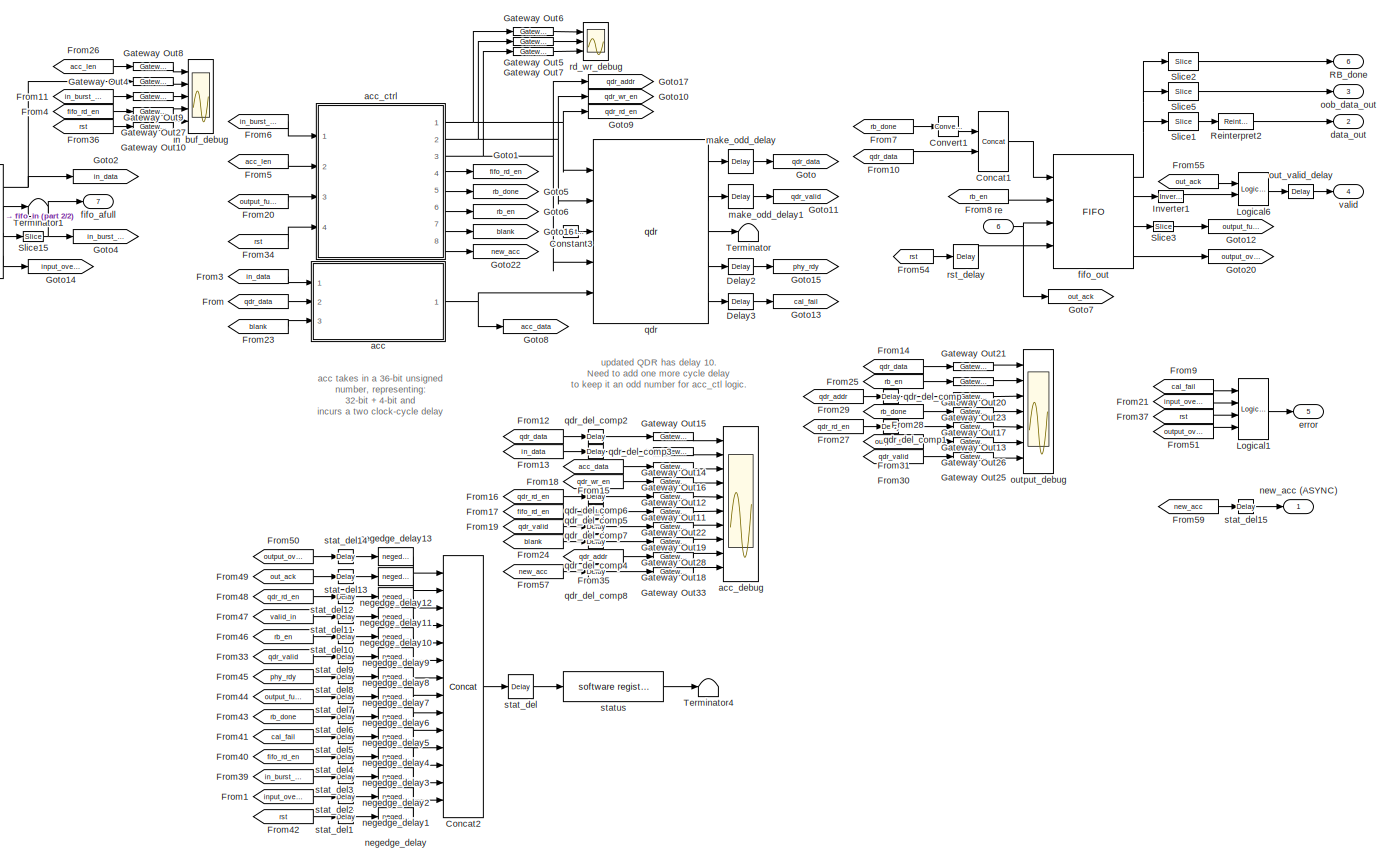
[diagram: qdr_vacc - part 1/2, center side, full height]
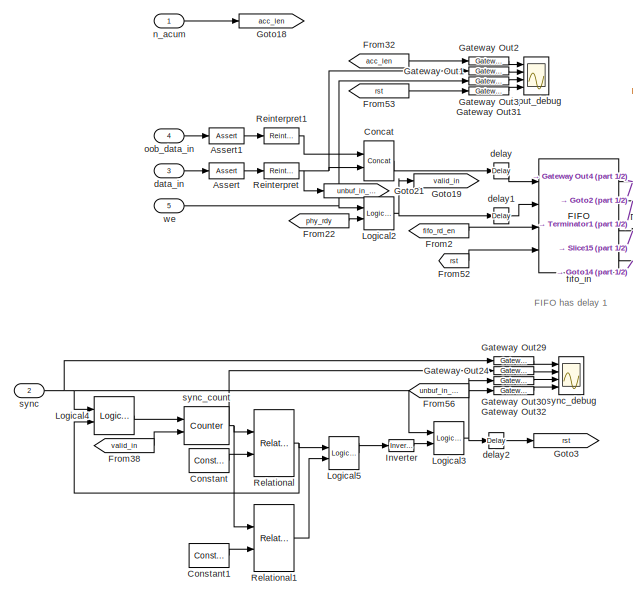
[diagram: qdr_vacc - part 2/2, middle left region]
BLOCK [SubSystem] qdr_vacc
  AttributesFormatString = Vector Length: 139264
  FunctionWithSeparateData = off
  MaskDescription = A vector accumulator for medium length vectors designed for ROACH's QDR memory.\n\nOriginally designed for the packetised correlator, this block accepts input data of type Fix_32_0. OOB_data_in provides an extra 4 bits that are accumulated seperately (originally designed to keep track of how many \"bad\" values in a vector were accumulated).\n\nMinimum vector length is 2 * burst_length.\nMinimum b...<+125ch>
  MaskEnableString = on
  MaskHideContents = off
  MaskIconFrame = on
  MaskIconOpaque = on
  MaskIconRotate = none
  MaskIconUnits = autoscale
  MaskInitialization = vector_bits = ceil(log2(vector_len));\nburst_bits = 4;\nburst_len = 2^burst_bits;\n\nfmtstr = sprintf('Vector Length: %d', vector_len);\nset_param(gcb, 'AttributesFormatString', fmtstr);\n
  MaskPromptString = Vector length??(# cycles)
  MaskStyleString = edit
  MaskToolTipString = on
  MaskTunableValueString = on
  MaskValueString = 139264
  MaskVariables = vector_len=@1;
  MaskVisibilityString = on
  MinAlgLoopOccurrences = off
  Opaque = off
  Ports = [6, 7]
  PropExecContextOutsideSubsystem = off
  RTWSystemCode = Auto
BLOCK [Reference] qdr_vacc/Assert  REF=xbsIndex_r4/Assert
  Ports = [1, 1]
  SourceBlock = xbsIndex_r4/Assert
  SourceType = Xilinx Assert Block
  arith_type = Signed  (2's comp)
  assert_rate = off
  assert_type = on
  bin_pt = 0
  block_type = assert
  block_version = 10.1.3
  exp_width = 8
  frac_width = 24
  gui_display_data_type = Fixed-point
  has_advanced_control = 0
  infoedit = Asserts a user-defined sample rate and/or type on a signal.<P><P>Hardware notes: In hardware this block costs nothing.
  n_bits = 32
  output_port = on
  period = 1
  preci_type = Single
  rate_source = Explicitly
  sg_icon_stat = 35,16,1,1,white,blue,0,9657e937,right,,[ ],[ ]
  sg_mask_display = fprintf('','COMMENT: begin icon graphics');\npatch([0 35 35 0 0 ],[0 0 16 16 0 ],[0.77 0.82 0.91 ]);\nplot([0 35 35 0 0 ],[0 0 16 16 0 ]);\npatch([12.55 15.44 17.44 19.44 21.44 17.44 14.55 12.55 ],[10.22 10.22 12.22 10.22 12.22 12.22 12.22 10.22 ],[1 1 1 ]);\npatch([14.55 17.44 15.44 12.55 14.55 ],[8.22 8.22 10.22 10.22 8.22 ],[0.931 0.946 0.973 ]);\npatch([12.55 15.44 17.44 14.55 12.55 ],[6.22 6....<+302ch>
  sggui_pos = 157,543,336,432
  type_source = Explicitly
BLOCK [Reference] qdr_vacc/Assert1  REF=xbsIndex_r4/Assert
  Ports = [1, 1]
  SourceBlock = xbsIndex_r4/Assert
  SourceType = Xilinx Assert Block
  arith_type = Unsigned
  assert_rate = on
  assert_type = on
  bin_pt = 0
  block_type = assert
  block_version = 10.1.3
  exp_width = 8
  frac_width = 24
  gui_display_data_type = Fixed-point
  has_advanced_control = 0
  infoedit = Asserts a user-defined sample rate and/or type on a signal.<P><P>Hardware notes: In hardware this block costs nothing.
  n_bits = 4
  output_port = on
  period = 1
  preci_type = Single
  rate_source = Explicitly
  sg_icon_stat = 35,16,1,1,white,blue,0,9657e937,right,,[ ],[ ]
  sg_mask_display = fprintf('','COMMENT: begin icon graphics');\npatch([0 35 35 0 0 ],[0 0 16 16 0 ],[0.77 0.82 0.91 ]);\nplot([0 35 35 0 0 ],[0 0 16 16 0 ]);\npatch([12.55 15.44 17.44 19.44 21.44 17.44 14.55 12.55 ],[10.22 10.22 12.22 10.22 12.22 12.22 12.22 10.22 ],[1 1 1 ]);\npatch([14.55 17.44 15.44 12.55 14.55 ],[8.22 8.22 10.22 10.22 8.22 ],[0.931 0.946 0.973 ]);\npatch([12.55 15.44 17.44 14.55 12.55 ],[6.22 6....<+302ch>
  sggui_pos = 157,543,336,432
  type_source = Explicitly
BLOCK [Reference] qdr_vacc/Concat  REF=xbsIndex_r4/Concat
  Ports = [2, 1]
  SourceBlock = xbsIndex_r4/Concat
  SourceType = Xilinx Bus Concatenator Block
  block_type = concat
  block_version = 9.2.01
  dbl_ovrd = off
  has_advanced_control = 0
  infoedit = Concatenates two or more inputs.  Output will be cast to an unsigned value with the binary point at zero.
  num_inputs = 2
  sg_icon_stat = 30,40,2,1,white,blue,0,16398980,right,,[ ],[ ]
  sg_mask_display = fprintf('','COMMENT: begin icon graphics');\npatch([0 30 30 0 0 ],[0 0 40 40 0 ],[0.77 0.82 0.91 ]);\nplot([0 30 30 0 0 ],[0 0 40 40 0 ]);\npatch([6.1 11.88 15.88 19.88 23.88 15.88 10.1 6.1 ],[24.44 24.44 28.44 24.44 28.44 28.44 28.44 24.44 ],[1 1 1 ]);\npatch([10.1 15.88 11.88 6.1 10.1 ],[20.44 20.44 24.44 24.44 20.44 ],[0.931 0.946 0.973 ]);\npatch([6.1 11.88 15.88 10.1 6.1 ],[16.44 16.44 20.44 ...<+411ch>
  sggui_pos = 20,20,336,162
BLOCK [Reference] qdr_vacc/Concat1  REF=xbsIndex_r4/Concat
  Ports = [2, 1]
  SourceBlock = xbsIndex_r4/Concat
  SourceType = Xilinx Bus Concatenator Block
  block_type = concat
  block_version = 9.2.01
  dbl_ovrd = off
  has_advanced_control = 0
  infoedit = Concatenates two or more inputs.  Output will be cast to an unsigned value with the binary point at zero.
  num_inputs = 2
  sg_icon_stat = 30,60,2,1,white,blue,0,16398980,right,,[ ],[ ]
  sg_mask_display = fprintf('','COMMENT: begin icon graphics');\npatch([0 30 30 0 0 ],[0 0 60 60 0 ],[0.77 0.82 0.91 ]);\nplot([0 30 30 0 0 ],[0 0 60 60 0 ]);\npatch([6.1 11.88 15.88 19.88 23.88 15.88 10.1 6.1 ],[34.44 34.44 38.44 34.44 38.44 38.44 38.44 34.44 ],[1 1 1 ]);\npatch([10.1 15.88 11.88 6.1 10.1 ],[30.44 30.44 34.44 34.44 30.44 ],[0.931 0.946 0.973 ]);\npatch([6.1 11.88 15.88 10.1 6.1 ],[26.44 26.44 30.44 ...<+411ch>
  sggui_pos = -1,-1,-1,-1
BLOCK [Reference] qdr_vacc/Concat2  REF=xbsIndex_r4/Concat
  Ports = [14, 1]
  SourceBlock = xbsIndex_r4/Concat
  SourceType = Xilinx Bus Concatenator Block
  block_type = concat
  block_version = 9.2.01
  dbl_ovrd = off
  has_advanced_control = 0
  infoedit = Concatenates two or more inputs.  Output will be cast to an unsigned value with the binary point at zero.
  num_inputs = 14
  sg_icon_stat = 40,262,14,1,white,blue,0,239d01aa,right,,[ ],[ ]
  sg_mask_display = fprintf('','COMMENT: begin icon graphics');\npatch([0 40 40 0 0 ],[0 0 262 262 0 ],[0.77 0.82 0.91 ]);\nplot([0 40 40 0 0 ],[0 0 262 262 0 ]);\npatch([8.875 16.1 21.1 26.1 31.1 21.1 13.875 8.875 ],[136.55 136.55 141.55 136.55 141.55 141.55 141.55 136.55 ],[1 1 1 ]);\npatch([13.875 21.1 16.1 8.875 13.875 ],[131.55 131.55 136.55 136.55 131.55 ],[0.931 0.946 0.973 ]);\npatch([8.875 16.1 21.1 13.875 8...<+476ch>
  sggui_pos = 20,20,336,162
BLOCK [Reference] qdr_vacc/Constant  REF=xbsIndex_r4/Constant
  Ports = [0, 1]
  SourceBlock = xbsIndex_r4/Constant
  SourceType = Xilinx Constant Block Block
  arith_type = Unsigned
  bin_pt = 0
  block_type = constant
  block_version = 10.1.3
  carry = CIN
  const = vector_len
  dbl_ovrd = off
  dsp48_infoedit = The use of this block for DSP48 instructions is deprecated.  Please use the Opmode block.
  equ = P=C
  exp_width = 8
  explicit_period = on
  frac_width = 24
  gui_display_data_type = Fixed-point
  has_advanced_control = 0
  inp1 = P
  inp2 = PCIN>>17
  n_bits = vector_bits
  opr = +
  opselect = C
  period = 1
  preci_type = Single
  sg_icon_stat = 40,24,0,1,white,blue,0,bad77ab0,right
  sg_mask_display = fprintf('','COMMENT: begin icon graphics');\npatch([0 55 55 0 ],[0 0 26 26 ],[0.77 0.82 0.91]);\npatch([20 16 22 16 20 27 29 31 38 32 26 22 28 22 26 32 38 31 29 27 20 ],[3 7 13 19 23 23 21 23 23 17 23 19 13 7 3 9 3 3 5 3 3 ],[0.98 0.96 0.92]);\nplot([0 55 55 0 0 ],[0 0 26 26 0 ]);\nfprintf('','COMMENT: end icon graphics');\nfprintf('','COMMENT: begin icon text');\ncolor('black');port_label('output...<+55ch>  <repeated x3 — deduplicated; at blocks: Constant, Constant1, Constant3>
  sggui_pos = 20,20,414,344
BLOCK [Reference] qdr_vacc/Constant1  REF=xbsIndex_r4/Constant
  Ports = [0, 1]
  SourceBlock = xbsIndex_r4/Constant
  SourceType = Xilinx Constant Block Block
  arith_type = Unsigned
  bin_pt = 0
  block_type = constant
  block_version = 10.1.3
  carry = CIN
  const = 0
  dbl_ovrd = off
  dsp48_infoedit = The use of this block for DSP48 instructions is deprecated.  Please use the Opmode block.
  equ = P=C
  exp_width = 8
  explicit_period = on
  frac_width = 24
  gui_display_data_type = Fixed-point
  has_advanced_control = 0
  inp1 = P
  inp2 = PCIN>>17
  n_bits = vector_bits
  opr = +
  opselect = C
  period = 1
  preci_type = Single
  sg_icon_stat = 40,24,0,1,white,blue,0,72d575a1,right
  sg_mask_display = fprintf('','COMMENT: begin icon graphics');\npatch([0 55 55 0 ],[0 0 26 26 ],[0.77 0.82 0.91]);\npatch([20 16 22 16 20 27 29 31 38 32 26 22 28 22 26 32 38 31 29 27 20 ],[3 7 13 19 23 23 21 23 23 17 23 19 13 7 3 9 3 3 5 3 3 ],[0.98 0.96 0.92]);\nplot([0 55 55 0 0 ],[0 0 26 26 0 ]);\nfprintf('','COMMENT: end icon graphics');\nfprintf('','COMMENT: begin icon text');\ncolor('black');port_label('output...<+50ch>
  sggui_pos = 20,20,414,344
BLOCK [Reference] qdr_vacc/Constant3  REF=xbsIndex_r4/Constant
  Ports = [0, 1]
  SourceBlock = xbsIndex_r4/Constant
  SourceType = Xilinx Constant Block Block
  arith_type = Unsigned
  bin_pt = 0
  block_type = constant
  block_version = 9.2.01
  carry = CIN
  const = (2^4)-1
  dbl_ovrd = off
  dsp48_infoedit = The use of this block for DSP48 instructions is deprecated.  Please use the Opmode block.
  equ = P=C
  exp_width = 8
  explicit_period = on
  frac_width = 24
  gui_display_data_type = Fixed-point
  has_advanced_control = 0
  inp1 = P
  inp2 = PCIN>>17
  n_bits = 4
  opr = +
  opselect = C
  period = 1
  preci_type = Single
  sg_icon_stat = 15,12,0,1,white,blue,0,1164c07c,right,,[ ],[ ]
  sg_mask_display = fprintf('','COMMENT: begin icon graphics');\npatch([0 15 15 0 0 ],[0 0 12 12 0 ],[0.77 0.82 0.91 ]);\nplot([0 15 15 0 0 ],[0 0 12 12 0 ]);\npatch([4.775 6.22 7.22 8.22 9.22 7.22 5.775 4.775 ],[7.11 7.11 8.11 7.11 8.11 8.11 8.11 7.11 ],[1 1 1 ]);\npatch([5.775 7.22 6.22 4.775 5.775 ],[6.11 6.11 7.11 7.11 6.11 ],[0.931 0.946 0.973 ]);\npatch([4.775 6.22 7.22 5.775 4.775 ],[5.11 5.11 6.11 6.11 5.11 ]...<+288ch>
  sggui_pos = 20,20,414,344
BLOCK [Reference] qdr_vacc/Convert1  REF=xbsIndex_r4/Convert
  Ports = [1, 1]
  SourceBlock = xbsIndex_r4/Convert
  SourceType = Xilinx Type Converter Block
  arith_type = Unsigned
  bin_pt = 0
  block_type = convert
  block_version = 9.2.01
  dbl_ovrd = off
  en = off
  exp_bits = 8
  float_type = Single
  fraction_bits = 24
  gui_display_data_type = Fixed-point
  has_advanced_control = 0
  infoedit = Hardware notes: rounding and saturating require hardware resources; truncating and wrapping do not.
  latency = 0
  n_bits = 1
  overflow = Wrap
  pipeline = off
  quantization = Truncate
  sg_icon_stat = 20,20,1,1,white,blue,0,edca21da,right,,[ ],[ ]
  sggui_pos = 20,20,470,336
  xl_area = [0, 0, 0, 0, 0, 0, 0]
  xl_use_area = off
BLOCK [Reference] qdr_vacc/Delay2  REF=xbsIndex_r4/Delay
  Ports = [1, 1]
  SourceBlock = xbsIndex_r4/Delay
  SourceType = Xilinx Delay Block
  block_type = delay
  block_version = 10.1.3
  dbl_ovrd = off
  en = off
  has_advanced_control = 0
  infoedit = Hardware notes: A delay line is a chain, each link of which is an SRL16 followed by a flip-flop.
  infoeditControl = Selection of Reset will increase slice count due to use of real FFs and instead of SRLs
  latency = 2
  reg_retiming = on
  rst = off
  sg_icon_stat = 25,16,1,1,white,blue,0,85ce9542,right,,[ ],[ ]
  sg_mask_display = fprintf('','COMMENT: begin icon graphics');\npatch([0 25 25 0 0 ],[0 0 16 16 0 ],[0.77 0.82 0.91 ]);\nplot([0 25 25 0 0 ],[0 0 16 16 0 ]);\npatch([7.55 10.44 12.44 14.44 16.44 12.44 9.55 7.55 ],[10.22 10.22 12.22 10.22 12.22 12.22 12.22 10.22 ],[1 1 1 ]);\npatch([9.55 12.44 10.44 7.55 9.55 ],[8.22 8.22 10.22 10.22 8.22 ],[0.931 0.946 0.973 ]);\npatch([7.55 10.44 12.44 9.55 7.55 ],[6.22 6.22 8.22 8...<+305ch>
  sggui_pos = 20,20,348,254
  xl_area = [0,0,0,0,0,0,0]
  xl_use_area = off
BLOCK [Reference] qdr_vacc/Delay3  REF=xbsIndex_r4/Delay
  Ports = [1, 1]
  SourceBlock = xbsIndex_r4/Delay
  SourceType = Xilinx Delay Block
  block_type = delay
  block_version = 10.1.3
  dbl_ovrd = off
  en = off
  has_advanced_control = 0
  infoedit = Hardware notes: A delay line is a chain, each link of which is an SRL16 followed by a flip-flop.
  infoeditControl = Selection of Reset will increase slice count due to use of real FFs and instead of SRLs
  latency = 2
  reg_retiming = on
  rst = off
  sg_icon_stat = 25,16,1,1,white,blue,0,85ce9542,right,,[ ],[ ]
  sg_mask_display = fprintf('','COMMENT: begin icon graphics');\npatch([0 25 25 0 0 ],[0 0 16 16 0 ],[0.77 0.82 0.91 ]);\nplot([0 25 25 0 0 ],[0 0 16 16 0 ]);\npatch([7.55 10.44 12.44 14.44 16.44 12.44 9.55 7.55 ],[10.22 10.22 12.22 10.22 12.22 12.22 12.22 10.22 ],[1 1 1 ]);\npatch([9.55 12.44 10.44 7.55 9.55 ],[8.22 8.22 10.22 10.22 8.22 ],[0.931 0.946 0.973 ]);\npatch([7.55 10.44 12.44 9.55 7.55 ],[6.22 6.22 8.22 8...<+305ch>
  sggui_pos = 20,20,348,254
  xl_area = [0,0,0,0,0,0,0]
  xl_use_area = off
BLOCK [From] qdr_vacc/From
  CloseFcn = tagdialog Close
  GotoTag = qdr_data
BLOCK [From] qdr_vacc/From1
  CloseFcn = tagdialog Close
  GotoTag = input_overflow
BLOCK [From] qdr_vacc/From10
  CloseFcn = tagdialog Close
  GotoTag = qdr_data
BLOCK [From] qdr_vacc/From11
  CloseFcn = tagdialog Close
  GotoTag = in_burst_rdy
BLOCK [From] qdr_vacc/From12
  CloseFcn = tagdialog Close
  GotoTag = qdr_data
BLOCK [From] qdr_vacc/From13
  CloseFcn = tagdialog Close
  GotoTag = in_data
BLOCK [From] qdr_vacc/From14
  CloseFcn = tagdialog Close
  GotoTag = qdr_data
BLOCK [From] qdr_vacc/From15
  CloseFcn = tagdialog Close
  GotoTag = acc_data
BLOCK [From] qdr_vacc/From16
  CloseFcn = tagdialog Close
  GotoTag = qdr_rd_en
BLOCK [From] qdr_vacc/From17
  CloseFcn = tagdialog Close
  GotoTag = fifo_rd_en
BLOCK [From] qdr_vacc/From18
  CloseFcn = tagdialog Close
  GotoTag = qdr_wr_en
BLOCK [From] qdr_vacc/From19
  CloseFcn = tagdialog Close
  GotoTag = qdr_valid
BLOCK [From] qdr_vacc/From2
  CloseFcn = tagdialog Close
  GotoTag = fifo_rd_en
BLOCK [From] qdr_vacc/From20
  CloseFcn = tagdialog Close
  GotoTag = output_full
BLOCK [From] qdr_vacc/From21
  CloseFcn = tagdialog Close
  GotoTag = input_overflow
BLOCK [From] qdr_vacc/From22
  CloseFcn = tagdialog Close
  GotoTag = phy_rdy
BLOCK [From] qdr_vacc/From23
  CloseFcn = tagdialog Close
  GotoTag = blank
BLOCK [From] qdr_vacc/From24
  CloseFcn = tagdialog Close
  GotoTag = blank
BLOCK [From] qdr_vacc/From25
  CloseFcn = tagdialog Close
  GotoTag = rb_en
BLOCK [From] qdr_vacc/From26
  CloseFcn = tagdialog Close
  GotoTag = acc_len
BLOCK [From] qdr_vacc/From27
  CloseFcn = tagdialog Close
  GotoTag = qdr_rd_en
BLOCK [From] qdr_vacc/From28
  CloseFcn = tagdialog Close
  GotoTag = rb_done
BLOCK [From] qdr_vacc/From29
  CloseFcn = tagdialog Close
  GotoTag = qdr_addr
BLOCK [From] qdr_vacc/From3
  CloseFcn = tagdialog Close
  GotoTag = in_data
BLOCK [From] qdr_vacc/From30
  CloseFcn = tagdialog Close
  GotoTag = qdr_valid
BLOCK [From] qdr_vacc/From31
  CloseFcn = tagdialog Close
  GotoTag = output_full
BLOCK [From] qdr_vacc/From32
  CloseFcn = tagdialog Close
  GotoTag = acc_len
BLOCK [From] qdr_vacc/From33
  CloseFcn = tagdialog Close
  GotoTag = qdr_valid
BLOCK [From] qdr_vacc/From34
  CloseFcn = tagdialog Close
  GotoTag = rst
BLOCK [From] qdr_vacc/From35
  CloseFcn = tagdialog Close
  GotoTag = qdr_addr
BLOCK [From] qdr_vacc/From36
  CloseFcn = tagdialog Close
  GotoTag = rst
BLOCK [From] qdr_vacc/From37
  CloseFcn = tagdialog Close
  GotoTag = rst
BLOCK [From] qdr_vacc/From38
  CloseFcn = tagdialog Close
  GotoTag = valid_in
BLOCK [From] qdr_vacc/From39
  CloseFcn = tagdialog Close
  GotoTag = in_burst_rdy
BLOCK [From] qdr_vacc/From4
  CloseFcn = tagdialog Close
  GotoTag = fifo_rd_en
BLOCK [From] qdr_vacc/From40
  CloseFcn = tagdialog Close
  GotoTag = fifo_rd_en
BLOCK [From] qdr_vacc/From41
  CloseFcn = tagdialog Close
  GotoTag = cal_fail
BLOCK [From] qdr_vacc/From42
  CloseFcn = tagdialog Close
  GotoTag = rst
BLOCK [From] qdr_vacc/From43
  CloseFcn = tagdialog Close
  GotoTag = rb_done
BLOCK [From] qdr_vacc/From44
  CloseFcn = tagdialog Close
  GotoTag = output_full
BLOCK [From] qdr_vacc/From45
  CloseFcn = tagdialog Close
  GotoTag = phy_rdy
BLOCK [From] qdr_vacc/From46
  CloseFcn = tagdialog Close
  GotoTag = rb_en
BLOCK [From] qdr_vacc/From47
  CloseFcn = tagdialog Close
  GotoTag = valid_in
BLOCK [From] qdr_vacc/From48
  CloseFcn = tagdialog Close
  GotoTag = qdr_rd_en
BLOCK [From] qdr_vacc/From49
  CloseFcn = tagdialog Close
  GotoTag = out_ack
BLOCK [From] qdr_vacc/From5
  CloseFcn = tagdialog Close
  GotoTag = acc_len
BLOCK [From] qdr_vacc/From50
  CloseFcn = tagdialog Close
  GotoTag = output_over
BLOCK [From] qdr_vacc/From51
  CloseFcn = tagdialog Close
  GotoTag = output_over
BLOCK [From] qdr_vacc/From52
  CloseFcn = tagdialog Close
  GotoTag = rst
BLOCK [From] qdr_vacc/From53
  CloseFcn = tagdialog Close
  GotoTag = rst
BLOCK [From] qdr_vacc/From54
  CloseFcn = tagdialog Close
  GotoTag = rst
BLOCK [From] qdr_vacc/From55
  CloseFcn = tagdialog Close
  GotoTag = out_ack
BLOCK [From] qdr_vacc/From56
  CloseFcn = tagdialog Close
  GotoTag = unbuf_in_data
BLOCK [From] qdr_vacc/From57
  CloseFcn = tagdialog Close
  GotoTag = new_acc
BLOCK [From] qdr_vacc/From59
  CloseFcn = tagdialog Close
  GotoTag = new_acc
BLOCK [From] qdr_vacc/From6
  CloseFcn = tagdialog Close
  GotoTag = in_burst_rdy
BLOCK [From] qdr_vacc/From7
  CloseFcn = tagdialog Close
  GotoTag = rb_done
BLOCK [From] qdr_vacc/From8
  CloseFcn = tagdialog Close
  GotoTag = rb_en
BLOCK [From] qdr_vacc/From9
  CloseFcn = tagdialog Close
  GotoTag = cal_fail
BLOCK [Reference] qdr_vacc/Gateway Out1  REF=xbsIndex_r4/Gateway Out
  LOCs = {}
  Ports = [1, 1]
  SourceBlock = xbsIndex_r4/Gateway Out
  SourceType = Xilinx Gateway Out Block
  block_type = gatewayout
  block_version = 10.1.3
  has_advanced_control = 0
  hdl_port = off
  locs_specified = off
  sg_icon_stat = 40,8,1,1,white,grey,0,632ec840,right,,[ ],[ ]
  sg_mask_display = fprintf('','COMMENT: begin icon graphics');\npatch([0 40 40 0 0 ],[0 0 8 8 0 ],[0.88 0.88 0.88 ]);\nplot([0 40 40 0 0 ],[0 0 8 8 0 ]);\npatch([17.775 19.22 20.22 21.22 22.22 20.22 18.775 17.775 ],[5.11 5.11 6.11 5.11 6.11 6.11 6.11 5.11 ],[1 1 1 ]);\npatch([18.775 20.22 19.22 17.775 18.775 ],[4.11 4.11 5.11 5.11 4.11 ],[0.964 0.964 0.964 ]);\npatch([17.775 19.22 20.22 18.775 17.775 ],[3.11 3.11 4....<+386ch>  <repeated x57 — deduplicated; at blocks: Gateway Out1, Gateway Out10, Gateway Out11, Gateway Out12, Gateway Out13, Gateway Out14, Gateway Out15, Gateway Out16, Gateway Out17, Gateway Out18, Gateway Out19, Gateway Out2, Gateway Out20, Gateway Out21, Gateway Out22, Gateway Out23, +17 more>
  sggui_pos = 20,20,336,384
  timing_constraint = None
  xl_area = [0, 0, 0, 0, 0, 0, 0]
  xl_use_area = off
BLOCK [Reference] qdr_vacc/Gateway Out10  REF=xbsIndex_r4/Gateway Out
  LOCs = {}
  Ports = [1, 1]
  SourceBlock = xbsIndex_r4/Gateway Out
  SourceType = Xilinx Gateway Out Block
  block_type = gatewayout
  block_version = 10.1.3
  has_advanced_control = 0
  hdl_port = off
  locs_specified = off
  sg_icon_stat = 40,8,1,1,white,grey,0,632ec840,right,,[ ],[ ]
  sggui_pos = 20,20,336,384
  timing_constraint = None
  xl_area = [0, 0, 0, 0, 0, 0, 0]
  xl_use_area = off
BLOCK [Reference] qdr_vacc/Gateway Out11  REF=xbsIndex_r4/Gateway Out
  LOCs = {}
  Ports = [1, 1]
  SourceBlock = xbsIndex_r4/Gateway Out
  SourceType = Xilinx Gateway Out Block
  block_type = gatewayout
  block_version = 10.1.3
  has_advanced_control = 0
  hdl_port = off
  locs_specified = off
  sg_icon_stat = 40,8,1,1,white,grey,0,632ec840,right,,[ ],[ ]
  sggui_pos = 20,20,336,384
  timing_constraint = None
  xl_area = [0, 0, 0, 0, 0, 0, 0]
  xl_use_area = off
BLOCK [Reference] qdr_vacc/Gateway Out12  REF=xbsIndex_r4/Gateway Out
  LOCs = {}
  Ports = [1, 1]
  SourceBlock = xbsIndex_r4/Gateway Out
  SourceType = Xilinx Gateway Out Block
  block_type = gatewayout
  block_version = 10.1.3
  has_advanced_control = 0
  hdl_port = off
  locs_specified = off
  sg_icon_stat = 40,8,1,1,white,grey,0,632ec840,right,,[ ],[ ]
  sggui_pos = 20,20,336,384
  timing_constraint = None
  xl_area = [0, 0, 0, 0, 0, 0, 0]
  xl_use_area = off
BLOCK [Reference] qdr_vacc/Gateway Out13  REF=xbsIndex_r4/Gateway Out
  LOCs = {}
  Ports = [1, 1]
  SourceBlock = xbsIndex_r4/Gateway Out
  SourceType = Xilinx Gateway Out Block
  block_type = gatewayout
  block_version = 10.1.3
  has_advanced_control = 0
  hdl_port = off
  locs_specified = off
  sg_icon_stat = 40,8,1,1,white,grey,0,632ec840,right,,[ ],[ ]
  sggui_pos = 20,20,336,384
  timing_constraint = None
  xl_area = [0, 0, 0, 0, 0, 0, 0]
  xl_use_area = off
BLOCK [Reference] qdr_vacc/Gateway Out14  REF=xbsIndex_r4/Gateway Out
  LOCs = {}
  Ports = [1, 1]
  SourceBlock = xbsIndex_r4/Gateway Out
  SourceType = Xilinx Gateway Out Block
  block_type = gatewayout
  block_version = 10.1.3
  has_advanced_control = 0
  hdl_port = off
  locs_specified = off
  sg_icon_stat = 40,8,1,1,white,grey,0,632ec840,right,,[ ],[ ]
  sggui_pos = 20,20,336,384
  timing_constraint = None
  xl_area = [0, 0, 0, 0, 0, 0, 0]
  xl_use_area = off
BLOCK [Reference] qdr_vacc/Gateway Out15  REF=xbsIndex_r4/Gateway Out
  LOCs = {}
  Ports = [1, 1]
  SourceBlock = xbsIndex_r4/Gateway Out
  SourceType = Xilinx Gateway Out Block
  block_type = gatewayout
  block_version = 10.1.3
  has_advanced_control = 0
  hdl_port = off
  locs_specified = off
  sg_icon_stat = 40,8,1,1,white,grey,0,632ec840,right,,[ ],[ ]
  sggui_pos = 20,20,336,384
  timing_constraint = None
  xl_area = [0, 0, 0, 0, 0, 0, 0]
  xl_use_area = off
BLOCK [Reference] qdr_vacc/Gateway Out16  REF=xbsIndex_r4/Gateway Out
  LOCs = {}
  Ports = [1, 1]
  SourceBlock = xbsIndex_r4/Gateway Out
  SourceType = Xilinx Gateway Out Block
  block_type = gatewayout
  block_version = 10.1.3
  has_advanced_control = 0
  hdl_port = off
  locs_specified = off
  sg_icon_stat = 40,8,1,1,white,grey,0,632ec840,right,,[ ],[ ]
  sggui_pos = 20,20,336,384
  timing_constraint = None
  xl_area = [0, 0, 0, 0, 0, 0, 0]
  xl_use_area = off
BLOCK [Reference] qdr_vacc/Gateway Out17  REF=xbsIndex_r4/Gateway Out
  LOCs = {}
  Ports = [1, 1]
  SourceBlock = xbsIndex_r4/Gateway Out
  SourceType = Xilinx Gateway Out Block
  block_type = gatewayout
  block_version = 10.1.3
  has_advanced_control = 0
  hdl_port = off
  locs_specified = off
  sg_icon_stat = 40,8,1,1,white,grey,0,632ec840,right,,[ ],[ ]
  sggui_pos = 20,20,336,384
  timing_constraint = None
  xl_area = [0, 0, 0, 0, 0, 0, 0]
  xl_use_area = off
BLOCK [Reference] qdr_vacc/Gateway Out18  REF=xbsIndex_r4/Gateway Out
  LOCs = {}
  Ports = [1, 1]
  SourceBlock = xbsIndex_r4/Gateway Out
  SourceType = Xilinx Gateway Out Block
  block_type = gatewayout
  block_version = 10.1.3
  has_advanced_control = 0
  hdl_port = off
  locs_specified = off
  sg_icon_stat = 40,8,1,1,white,grey,0,632ec840,right,,[ ],[ ]
  sggui_pos = 20,20,336,384
  timing_constraint = None
  xl_area = [0, 0, 0, 0, 0, 0, 0]
  xl_use_area = off
BLOCK [Reference] qdr_vacc/Gateway Out19  REF=xbsIndex_r4/Gateway Out
  LOCs = {}
  Ports = [1, 1]
  SourceBlock = xbsIndex_r4/Gateway Out
  SourceType = Xilinx Gateway Out Block
  block_type = gatewayout
  block_version = 10.1.3
  has_advanced_control = 0
  hdl_port = off
  locs_specified = off
  sg_icon_stat = 40,8,1,1,white,grey,0,632ec840,right,,[ ],[ ]
  sggui_pos = 20,20,336,384
  timing_constraint = None
  xl_area = [0, 0, 0, 0, 0, 0, 0]
  xl_use_area = off
BLOCK [Reference] qdr_vacc/Gateway Out2  REF=xbsIndex_r4/Gateway Out
  LOCs = {}
  Ports = [1, 1]
  SourceBlock = xbsIndex_r4/Gateway Out
  SourceType = Xilinx Gateway Out Block
  block_type = gatewayout
  block_version = 10.1.3
  has_advanced_control = 0
  hdl_port = off
  locs_specified = off
  sg_icon_stat = 40,8,1,1,white,grey,0,632ec840,right,,[ ],[ ]
  sggui_pos = 20,20,336,384
  timing_constraint = None
  xl_area = [0, 0, 0, 0, 0, 0, 0]
  xl_use_area = off
BLOCK [Reference] qdr_vacc/Gateway Out20  REF=xbsIndex_r4/Gateway Out
  LOCs = {}
  Ports = [1, 1]
  SourceBlock = xbsIndex_r4/Gateway Out
  SourceType = Xilinx Gateway Out Block
  block_type = gatewayout
  block_version = 10.1.3
  has_advanced_control = 0
  hdl_port = off
  locs_specified = off
  sg_icon_stat = 40,8,1,1,white,grey,0,632ec840,right,,[ ],[ ]
  sggui_pos = 20,20,336,384
  timing_constraint = None
  xl_area = [0, 0, 0, 0, 0, 0, 0]
  xl_use_area = off
BLOCK [Reference] qdr_vacc/Gateway Out21  REF=xbsIndex_r4/Gateway Out
  LOCs = {}
  Ports = [1, 1]
  SourceBlock = xbsIndex_r4/Gateway Out
  SourceType = Xilinx Gateway Out Block
  block_type = gatewayout
  block_version = 10.1.3
  has_advanced_control = 0
  hdl_port = off
  locs_specified = off
  sg_icon_stat = 40,8,1,1,white,grey,0,632ec840,right,,[ ],[ ]
  sggui_pos = 20,20,336,384
  timing_constraint = None
  xl_area = [0, 0, 0, 0, 0, 0, 0]
  xl_use_area = off
BLOCK [Reference] qdr_vacc/Gateway Out22  REF=xbsIndex_r4/Gateway Out
  LOCs = {}
  Ports = [1, 1]
  SourceBlock = xbsIndex_r4/Gateway Out
  SourceType = Xilinx Gateway Out Block
  block_type = gatewayout
  block_version = 10.1.3
  has_advanced_control = 0
  hdl_port = off
  locs_specified = off
  sg_icon_stat = 40,8,1,1,white,grey,0,632ec840,right,,[ ],[ ]
  sggui_pos = 20,20,336,384
  timing_constraint = None
  xl_area = [0, 0, 0, 0, 0, 0, 0]
  xl_use_area = off
BLOCK [Reference] qdr_vacc/Gateway Out23  REF=xbsIndex_r4/Gateway Out
  LOCs = {}
  Ports = [1, 1]
  SourceBlock = xbsIndex_r4/Gateway Out
  SourceType = Xilinx Gateway Out Block
  block_type = gatewayout
  block_version = 10.1.3
  has_advanced_control = 0
  hdl_port = off
  locs_specified = off
  sg_icon_stat = 40,8,1,1,white,grey,0,632ec840,right,,[ ],[ ]
  sggui_pos = 20,20,336,384
  timing_constraint = None
  xl_area = [0, 0, 0, 0, 0, 0, 0]
  xl_use_area = off
BLOCK [Reference] qdr_vacc/Gateway Out24  REF=xbsIndex_r4/Gateway Out
  LOCs = {}
  Ports = [1, 1]
  SourceBlock = xbsIndex_r4/Gateway Out
  SourceType = Xilinx Gateway Out Block
  block_type = gatewayout
  block_version = 10.1.3
  has_advanced_control = 0
  hdl_port = off
  locs_specified = off
  sg_icon_stat = 40,8,1,1,white,grey,0,632ec840,right,,[ ],[ ]
  sggui_pos = 20,20,336,384
  timing_constraint = None
  xl_area = [0, 0, 0, 0, 0, 0, 0]
  xl_use_area = off
BLOCK [Reference] qdr_vacc/Gateway Out25  REF=xbsIndex_r4/Gateway Out
  LOCs = {}
  Ports = [1, 1]
  SourceBlock = xbsIndex_r4/Gateway Out
  SourceType = Xilinx Gateway Out Block
  block_type = gatewayout
  block_version = 10.1.3
  has_advanced_control = 0
  hdl_port = off
  locs_specified = off
  sg_icon_stat = 40,8,1,1,white,grey,0,632ec840,right,,[ ],[ ]
  sggui_pos = 20,20,336,384
  timing_constraint = None
  xl_area = [0, 0, 0, 0, 0, 0, 0]
  xl_use_area = off
BLOCK [Reference] qdr_vacc/Gateway Out26  REF=xbsIndex_r4/Gateway Out
  LOCs = {}
  Ports = [1, 1]
  SourceBlock = xbsIndex_r4/Gateway Out
  SourceType = Xilinx Gateway Out Block
  block_type = gatewayout
  block_version = 10.1.3
  has_advanced_control = 0
  hdl_port = off
  locs_specified = off
  sg_icon_stat = 40,8,1,1,white,grey,0,632ec840,right,,[ ],[ ]
  sggui_pos = 20,20,336,384
  timing_constraint = None
  xl_area = [0, 0, 0, 0, 0, 0, 0]
  xl_use_area = off
BLOCK [Reference] qdr_vacc/Gateway Out27  REF=xbsIndex_r4/Gateway Out
  LOCs = {}
  Ports = [1, 1]
  SourceBlock = xbsIndex_r4/Gateway Out
  SourceType = Xilinx Gateway Out Block
  block_type = gatewayout
  block_version = 10.1.3
  has_advanced_control = 0
  hdl_port = off
  locs_specified = off
  sg_icon_stat = 40,8,1,1,white,grey,0,632ec840,right,,[ ],[ ]
  sggui_pos = 20,20,336,384
  timing_constraint = None
  xl_area = [0, 0, 0, 0, 0, 0, 0]
  xl_use_area = off
BLOCK [Reference] qdr_vacc/Gateway Out28  REF=xbsIndex_r4/Gateway Out
  LOCs = {}
  Ports = [1, 1]
  SourceBlock = xbsIndex_r4/Gateway Out
  SourceType = Xilinx Gateway Out Block
  block_type = gatewayout
  block_version = 10.1.3
  has_advanced_control = 0
  hdl_port = off
  locs_specified = off
  sg_icon_stat = 40,8,1,1,white,grey,0,632ec840,right,,[ ],[ ]
  sggui_pos = 20,20,336,384
  timing_constraint = None
  xl_area = [0, 0, 0, 0, 0, 0, 0]
  xl_use_area = off
BLOCK [Reference] qdr_vacc/Gateway Out29  REF=xbsIndex_r4/Gateway Out
  LOCs = {}
  Ports = [1, 1]
  SourceBlock = xbsIndex_r4/Gateway Out
  SourceType = Xilinx Gateway Out Block
  block_type = gatewayout
  block_version = 10.1.3
  has_advanced_control = 0
  hdl_port = off
  locs_specified = off
  sg_icon_stat = 40,8,1,1,white,grey,0,632ec840,right,,[ ],[ ]
  sggui_pos = 20,20,336,384
  timing_constraint = None
  xl_area = [0, 0, 0, 0, 0, 0, 0]
  xl_use_area = off
BLOCK [Reference] qdr_vacc/Gateway Out3  REF=xbsIndex_r4/Gateway Out
  LOCs = {}
  Ports = [1, 1]
  SourceBlock = xbsIndex_r4/Gateway Out
  SourceType = Xilinx Gateway Out Block
  block_type = gatewayout
  block_version = 10.1.3
  has_advanced_control = 0
  hdl_port = off
  locs_specified = off
  sg_icon_stat = 40,8,1,1,white,grey,0,632ec840,right,,[ ],[ ]
  sggui_pos = 20,20,336,384
  timing_constraint = None
  xl_area = [0, 0, 0, 0, 0, 0, 0]
  xl_use_area = off
BLOCK [Reference] qdr_vacc/Gateway Out30  REF=xbsIndex_r4/Gateway Out
  LOCs = {}
  Ports = [1, 1]
  SourceBlock = xbsIndex_r4/Gateway Out
  SourceType = Xilinx Gateway Out Block
  block_type = gatewayout
  block_version = 10.1.3
  has_advanced_control = 0
  hdl_port = off
  locs_specified = off
  sg_icon_stat = 40,8,1,1,white,grey,0,632ec840,right,,[ ],[ ]
  sggui_pos = 20,20,336,384
  timing_constraint = None
  xl_area = [0, 0, 0, 0, 0, 0, 0]
  xl_use_area = off
BLOCK [Reference] qdr_vacc/Gateway Out31  REF=xbsIndex_r4/Gateway Out
  LOCs = {}
  Ports = [1, 1]
  SourceBlock = xbsIndex_r4/Gateway Out
  SourceType = Xilinx Gateway Out Block
  block_type = gatewayout
  block_version = 10.1.3
  has_advanced_control = 0
  hdl_port = off
  locs_specified = off
  sg_icon_stat = 40,8,1,1,white,grey,0,632ec840,right,,[ ],[ ]
  sggui_pos = 20,20,336,384
  timing_constraint = None
  xl_area = [0, 0, 0, 0, 0, 0, 0]
  xl_use_area = off
BLOCK [Reference] qdr_vacc/Gateway Out32  REF=xbsIndex_r4/Gateway Out
  LOCs = {}
  Ports = [1, 1]
  SourceBlock = xbsIndex_r4/Gateway Out
  SourceType = Xilinx Gateway Out Block
  block_type = gatewayout
  block_version = 10.1.3
  has_advanced_control = 0
  hdl_port = off
  locs_specified = off
  sg_icon_stat = 40,8,1,1,white,grey,0,632ec840,right,,[ ],[ ]
  sggui_pos = 20,20,336,384
  timing_constraint = None
  xl_area = [0, 0, 0, 0, 0, 0, 0]
  xl_use_area = off
BLOCK [Reference] qdr_vacc/Gateway Out33  REF=xbsIndex_r4/Gateway Out
  LOCs = {}
  Ports = [1, 1]
  SourceBlock = xbsIndex_r4/Gateway Out
  SourceType = Xilinx Gateway Out Block
  block_type = gatewayout
  block_version = 10.1.3
  has_advanced_control = 0
  hdl_port = off
  locs_specified = off
  sg_icon_stat = 40,8,1,1,white,grey,0,632ec840,right,,[ ],[ ]
  sggui_pos = 20,20,336,384
  timing_constraint = None
  xl_area = [0, 0, 0, 0, 0, 0, 0]
  xl_use_area = off
BLOCK [Reference] qdr_vacc/Gateway Out4  REF=xbsIndex_r4/Gateway Out
  LOCs = {}
  Ports = [1, 1]
  SourceBlock = xbsIndex_r4/Gateway Out
  SourceType = Xilinx Gateway Out Block
  block_type = gatewayout
  block_version = 10.1.3
  has_advanced_control = 0
  hdl_port = off
  locs_specified = off
  sg_icon_stat = 40,8,1,1,white,grey,0,632ec840,right,,[ ],[ ]
  sggui_pos = 20,20,336,384
  timing_constraint = None
  xl_area = [0, 0, 0, 0, 0, 0, 0]
  xl_use_area = off
BLOCK [Reference] qdr_vacc/Gateway Out5  REF=xbsIndex_r4/Gateway Out
  LOCs = {}
  Ports = [1, 1]
  SourceBlock = xbsIndex_r4/Gateway Out
  SourceType = Xilinx Gateway Out Block
  block_type = gatewayout
  block_version = 10.1.3
  has_advanced_control = 0
  hdl_port = off
  locs_specified = off
  sg_icon_stat = 40,8,1,1,white,grey,0,632ec840,right,,[ ],[ ]
  sggui_pos = 20,20,336,384
  timing_constraint = None
  xl_area = [0, 0, 0, 0, 0, 0, 0]
  xl_use_area = off
BLOCK [Reference] qdr_vacc/Gateway Out6  REF=xbsIndex_r4/Gateway Out
  LOCs = {}
  Ports = [1, 1]
  SourceBlock = xbsIndex_r4/Gateway Out
  SourceType = Xilinx Gateway Out Block
  block_type = gatewayout
  block_version = 10.1.3
  has_advanced_control = 0
  hdl_port = off
  locs_specified = off
  sg_icon_stat = 40,8,1,1,white,grey,0,632ec840,right,,[ ],[ ]
  sggui_pos = 20,20,336,384
  timing_constraint = None
  xl_area = [0, 0, 0, 0, 0, 0, 0]
  xl_use_area = off
BLOCK [Reference] qdr_vacc/Gateway Out7  REF=xbsIndex_r4/Gateway Out
  LOCs = {}
  Ports = [1, 1]
  SourceBlock = xbsIndex_r4/Gateway Out
  SourceType = Xilinx Gateway Out Block
  block_type = gatewayout
  block_version = 10.1.3
  has_advanced_control = 0
  hdl_port = off
  locs_specified = off
  sg_icon_stat = 40,8,1,1,white,grey,0,632ec840,right,,[ ],[ ]
  sggui_pos = 20,20,336,384
  timing_constraint = None
  xl_area = [0, 0, 0, 0, 0, 0, 0]
  xl_use_area = off
BLOCK [Reference] qdr_vacc/Gateway Out8  REF=xbsIndex_r4/Gateway Out
  LOCs = {}
  Ports = [1, 1]
  SourceBlock = xbsIndex_r4/Gateway Out
  SourceType = Xilinx Gateway Out Block
  block_type = gatewayout
  block_version = 10.1.3
  has_advanced_control = 0
  hdl_port = off
  locs_specified = off
  sg_icon_stat = 40,8,1,1,white,grey,0,632ec840,right,,[ ],[ ]
  sggui_pos = 20,20,336,384
  timing_constraint = None
  xl_area = [0, 0, 0, 0, 0, 0, 0]
  xl_use_area = off
BLOCK [Reference] qdr_vacc/Gateway Out9  REF=xbsIndex_r4/Gateway Out
  LOCs = {}
  Ports = [1, 1]
  SourceBlock = xbsIndex_r4/Gateway Out
  SourceType = Xilinx Gateway Out Block
  block_type = gatewayout
  block_version = 10.1.3
  has_advanced_control = 0
  hdl_port = off
  locs_specified = off
  sg_icon_stat = 40,8,1,1,white,grey,0,632ec840,right,,[ ],[ ]
  sggui_pos = 20,20,336,384
  timing_constraint = None
  xl_area = [0, 0, 0, 0, 0, 0, 0]
  xl_use_area = off
BLOCK [Goto] qdr_vacc/Goto
  GotoTag = qdr_data
  TagVisibility = local
BLOCK [Goto] qdr_vacc/Goto1
  GotoTag = fifo_rd_en
  TagVisibility = local
BLOCK [Goto] qdr_vacc/Goto10
  GotoTag = qdr_wr_en
  TagVisibility = local
BLOCK [Goto] qdr_vacc/Goto11
  GotoTag = qdr_valid
  TagVisibility = local
BLOCK [Goto] qdr_vacc/Goto12
  GotoTag = output_full
  TagVisibility = local
BLOCK [Goto] qdr_vacc/Goto13
  GotoTag = cal_fail
  TagVisibility = local
BLOCK [Goto] qdr_vacc/Goto14
  GotoTag = input_overflow
  TagVisibility = local
BLOCK [Goto] qdr_vacc/Goto15
  GotoTag = phy_rdy
  TagVisibility = local
BLOCK [Goto] qdr_vacc/Goto16
  GotoTag = blank
  TagVisibility = local
BLOCK [Goto] qdr_vacc/Goto17
  GotoTag = qdr_addr
  TagVisibility = local
BLOCK [Goto] qdr_vacc/Goto18
  GotoTag = acc_len
  TagVisibility = local
BLOCK [Goto] qdr_vacc/Goto19
  GotoTag = valid_in
  TagVisibility = local
BLOCK [Goto] qdr_vacc/Goto2
  GotoTag = in_data
  TagVisibility = local
BLOCK [Goto] qdr_vacc/Goto20
  GotoTag = output_over
  TagVisibility = local
BLOCK [Goto] qdr_vacc/Goto21
  GotoTag = unbuf_in_data
  TagVisibility = local
BLOCK [Goto] qdr_vacc/Goto22
  GotoTag = new_acc
  TagVisibility = local
BLOCK [Goto] qdr_vacc/Goto3
  GotoTag = rst
  TagVisibility = local
BLOCK [Goto] qdr_vacc/Goto4
  GotoTag = in_burst_rdy
  TagVisibility = local
BLOCK [Goto] qdr_vacc/Goto5
  GotoTag = rb_done
  TagVisibility = local
BLOCK [Goto] qdr_vacc/Goto6
  GotoTag = rb_en
  TagVisibility = local
BLOCK [Goto] qdr_vacc/Goto7
  GotoTag = out_ack
  TagVisibility = local
BLOCK [Goto] qdr_vacc/Goto8
  GotoTag = acc_data
  TagVisibility = local
BLOCK [Goto] qdr_vacc/Goto9
  GotoTag = qdr_rd_en
  TagVisibility = local
BLOCK [Reference] qdr_vacc/Inverter  REF=xbsIndex_r4/Inverter
  Ports = [1, 1]
  SourceBlock = xbsIndex_r4/Inverter
  SourceType = Xilinx Inverter Block
  block_type = inv
  block_version = 10.1.3
  dbl_ovrd = off
  en = off
  has_advanced_control = 0
  infoedit = Bitwise logical negation (one's complement) operator.
  latency = 0
  sg_icon_stat = 25,12,1,1,white,blue,0,267846e5,right,,[ ],[ ]
  sggui_pos = -1,-1,-1,-1
  xl_area = [0,0,0,0,0,0,0]
  xl_use_area = off
BLOCK [Reference] qdr_vacc/Inverter1  REF=xbsIndex_r4/Inverter
  Ports = [1, 1]
  SourceBlock = xbsIndex_r4/Inverter
  SourceType = Xilinx Inverter Block
  block_type = inv
  block_version = 10.1.3
  dbl_ovrd = off
  en = off
  has_advanced_control = 0
  infoedit = Bitwise logical negation (one's complement) operator.
  latency = 0
  sg_icon_stat = 25,12,1,1,white,blue,0,267846e5,right,,[ ],[ ]
  sggui_pos = -1,-1,-1,-1
  xl_area = [0,0,0,0,0,0,0]
  xl_use_area = off
BLOCK [Reference] qdr_vacc/Logical1  REF=xbsIndex_r4/Logical
  Ports = [4, 1]
  SourceBlock = xbsIndex_r4/Logical
  SourceType = Xilinx Logical Block Block
  align_bp = on
  arith_type = Unsigned
  bin_pt = 0
  block_type = logical
  block_version = 10.1.3
  dbl_ovrd = off
  en = off
  has_advanced_control = 0
  inputs = 4
  latency = 1
  logical_function = OR
  n_bits = 16
  precision = Full
  sg_icon_stat = 30,61,4,1,white,blue,0,9295836e,right,,[ ],[ ]
  sg_mask_display = fprintf('','COMMENT: begin icon graphics');\npatch([0 30 30 0 0 ],[0 0 61 61 0 ],[0.77 0.82 0.91 ]);\nplot([0 30 30 0 0 ],[0 0 61 61 0 ]);\npatch([6.1 11.88 15.88 19.88 23.88 15.88 10.1 6.1 ],[34.44 34.44 38.44 34.44 38.44 38.44 38.44 34.44 ],[1 1 1 ]);\npatch([10.1 15.88 11.88 6.1 10.1 ],[30.44 30.44 34.44 34.44 30.44 ],[0.931 0.946 0.973 ]);\npatch([6.1 11.88 15.88 10.1 6.1 ],[26.44 26.44 30.44 ...<+364ch>
  sggui_pos = 20,20,348,262
  xl_area = [0,0,0,0,0,0,0]
  xl_use_area = off
BLOCK [Reference] qdr_vacc/Logical2  REF=xbsIndex_r4/Logical
  Ports = [2, 1]
  SourceBlock = xbsIndex_r4/Logical
  SourceType = Xilinx Logical Block Block
  align_bp = on
  arith_type = Unsigned
  bin_pt = 0
  block_type = logical
  block_version = 10.1.3
  dbl_ovrd = off
  en = off
  has_advanced_control = 0
  inputs = 2
  latency = 0
  logical_function = AND
  n_bits = 16
  precision = Full
  sg_icon_stat = 30,33,2,1,white,blue,0,83a4b621,right,,[ ],[ ]
  sg_mask_display = fprintf('','COMMENT: begin icon graphics');\npatch([0 30 30 0 0 ],[0 0 33 33 0 ],[0.77 0.82 0.91 ]);\nplot([0 30 30 0 0 ],[0 0 33 33 0 ]);\npatch([6.1 11.88 15.88 19.88 23.88 15.88 10.1 6.1 ],[20.44 20.44 24.44 20.44 24.44 24.44 24.44 20.44 ],[1 1 1 ]);\npatch([10.1 15.88 11.88 6.1 10.1 ],[16.44 16.44 20.44 20.44 16.44 ],[0.931 0.946 0.973 ]);\npatch([6.1 11.88 15.88 10.1 6.1 ],[12.44 12.44 16.44 ...<+294ch>  <repeated x3 — deduplicated; at blocks: Logical2, Logical3, Logical6>
  sggui_pos = 20,20,348,262
  xl_area = [0,0,0,0,0,0,0]
  xl_use_area = off
BLOCK [Reference] qdr_vacc/Logical3  REF=xbsIndex_r4/Logical
  Ports = [2, 1]
  SourceBlock = xbsIndex_r4/Logical
  SourceType = Xilinx Logical Block Block
  align_bp = on
  arith_type = Unsigned
  bin_pt = 0
  block_type = logical
  block_version = 10.1.3
  dbl_ovrd = off
  en = off
  has_advanced_control = 0
  inputs = 2
  latency = 0
  logical_function = AND
  n_bits = 16
  precision = Full
  sg_icon_stat = 30,33,2,1,white,blue,0,83a4b621,right,,[ ],[ ]
  sggui_pos = 20,20,348,262
  xl_area = [0,0,0,0,0,0,0]
  xl_use_area = off
BLOCK [Reference] qdr_vacc/Logical4  REF=xbsIndex_r4/Logical
  Ports = [2, 1]
  SourceBlock = xbsIndex_r4/Logical
  SourceType = Xilinx Logical Block Block
  align_bp = on
  arith_type = Unsigned
  bin_pt = 0
  block_type = logical
  block_version = 10.1.3
  dbl_ovrd = off
  en = off
  has_advanced_control = 0
  inputs = 2
  latency = 0
  logical_function = OR
  n_bits = 16
  precision = Full
  sg_icon_stat = 40,38,2,1,white,blue,0,7ede7d88,right,,[ ],[ ]
  sg_mask_display = fprintf('','COMMENT: begin icon graphics');\npatch([0 40 40 0 0 ],[0 0 38 38 0 ],[0.77 0.82 0.91 ]);\nplot([0 40 40 0 0 ],[0 0 38 38 0 ]);\npatch([8.875 16.1 21.1 26.1 31.1 21.1 13.875 8.875 ],[24.55 24.55 29.55 24.55 29.55 29.55 29.55 24.55 ],[1 1 1 ]);\npatch([13.875 21.1 16.1 8.875 13.875 ],[19.55 19.55 24.55 24.55 19.55 ],[0.931 0.946 0.973 ]);\npatch([8.875 16.1 21.1 13.875 8.875 ],[14.55 14....<+304ch>
  sggui_pos = 20,20,348,262
  xl_area = [0,0,0,0,0,0,0]
  xl_use_area = off
BLOCK [Reference] qdr_vacc/Logical5  REF=xbsIndex_r4/Logical
  Ports = [2, 1]
  SourceBlock = xbsIndex_r4/Logical
  SourceType = Xilinx Logical Block Block
  align_bp = on
  arith_type = Unsigned
  bin_pt = 0
  block_type = logical
  block_version = 10.1.3
  dbl_ovrd = off
  en = off
  has_advanced_control = 0
  inputs = 2
  latency = 0
  logical_function = OR
  n_bits = 16
  precision = Full
  sg_icon_stat = 30,33,2,1,white,blue,0,7ede7d88,right,,[ ],[ ]
  sg_mask_display = fprintf('','COMMENT: begin icon graphics');\npatch([0 30 30 0 0 ],[0 0 33 33 0 ],[0.77 0.82 0.91 ]);\nplot([0 30 30 0 0 ],[0 0 33 33 0 ]);\npatch([6.1 11.88 15.88 19.88 23.88 15.88 10.1 6.1 ],[20.44 20.44 24.44 20.44 24.44 24.44 24.44 20.44 ],[1 1 1 ]);\npatch([10.1 15.88 11.88 6.1 10.1 ],[16.44 16.44 20.44 20.44 16.44 ],[0.931 0.946 0.973 ]);\npatch([6.1 11.88 15.88 10.1 6.1 ],[12.44 12.44 16.44 ...<+293ch>
  sggui_pos = 20,20,348,262
  xl_area = [0,0,0,0,0,0,0]
  xl_use_area = off
BLOCK [Reference] qdr_vacc/Logical6  REF=xbsIndex_r4/Logical
  Ports = [2, 1]
  SourceBlock = xbsIndex_r4/Logical
  SourceType = Xilinx Logical Block Block
  align_bp = on
  arith_type = Unsigned
  bin_pt = 0
  block_type = logical
  block_version = 10.1.3
  dbl_ovrd = off
  en = off
  has_advanced_control = 0
  inputs = 2
  latency = 0
  logical_function = AND
  n_bits = 16
  precision = Full
  sg_icon_stat = 30,33,2,1,white,blue,0,83a4b621,right,,[ ],[ ]
  sggui_pos = 20,20,348,262
  xl_area = [0,0,0,0,0,0,0]
  xl_use_area = off
BLOCK [Outport] qdr_vacc/RB_done
  IconDisplay = Port number
  Port = 6
BLOCK [Reference] qdr_vacc/Reinterpret  REF=xbsIndex_r4/Reinterpret
  Ports = [1, 1]
  SourceBlock = xbsIndex_r4/Reinterpret
  SourceType = Xilinx Type Reinterpreter Block
  arith_type = Unsigned
  bin_pt = 0
  block_type = reinterpret
  block_version = 9.2.01
  force_arith_type = on
  force_bin_pt = on
  has_advanced_control = 0
  sg_icon_stat = 35,16,1,1,white,blue,0,6b04d0b0,right,,[ ],[ ]
  sggui_pos = 430,162,336,312
BLOCK [Reference] qdr_vacc/Reinterpret1  REF=xbsIndex_r4/Reinterpret
  Ports = [1, 1]
  SourceBlock = xbsIndex_r4/Reinterpret
  SourceType = Xilinx Type Reinterpreter Block
  arith_type = Unsigned
  bin_pt = 0
  block_type = reinterpret
  block_version = 9.2.01
  force_arith_type = on
  force_bin_pt = on
  has_advanced_control = 0
  sg_icon_stat = 35,16,1,1,white,blue,0,6b04d0b0,right,,[ ],[ ]
  sggui_pos = 20,20,336,312
BLOCK [Reference] qdr_vacc/Reinterpret2  REF=xbsIndex_r4/Reinterpret
  Ports = [1, 1]
  SourceBlock = xbsIndex_r4/Reinterpret
  SourceType = Xilinx Type Reinterpreter Block
  arith_type = Signed  (2's comp)
  bin_pt = 0
  block_type = reinterpret
  block_version = 9.2.01
  force_arith_type = on
  force_bin_pt = on
  has_advanced_control = 0
  sg_icon_stat = 35,16,1,1,white,blue,0,6b04d0b0,right,,[ ],[ ]
  sggui_pos = 430,162,336,312
BLOCK [Reference] qdr_vacc/Relational  REF=xbsIndex_r4/Relational
  Ports = [2, 1]
  SourceBlock = xbsIndex_r4/Relational
  SourceType = Xilinx Arithmetic Relational Operator Block
  block_type = relational
  block_version = 10.1.3
  dbl_ovrd = off
  en = off
  has_advanced_control = 0
  latency = 0
  mode = a>=b
  sg_icon_stat = 40,67,2,1,white,blue,0,6218dc92,right,,[ ],[ ]
  sg_mask_display = fprintf('','COMMENT: begin icon graphics');\npatch([0 40 40 0 0 ],[0 0 67 67 0 ],[0.77 0.82 0.91 ]);\nplot([0 40 40 0 0 ],[0 0 67 67 0 ]);\npatch([8.875 16.1 21.1 26.1 31.1 21.1 13.875 8.875 ],[38.55 38.55 43.55 38.55 43.55 43.55 43.55 38.55 ],[1 1 1 ]);\npatch([13.875 21.1 16.1 8.875 13.875 ],[33.55 33.55 38.55 38.55 33.55 ],[0.931 0.946 0.973 ]);\npatch([8.875 16.1 21.1 13.875 8.875 ],[28.55 28....<+458ch>
  sggui_pos = 20,20,348,193
  xl_area = [0,0,0,0,0,0,0]
  xl_use_area = off
BLOCK [Reference] qdr_vacc/Relational1  REF=xbsIndex_r4/Relational
  Ports = [2, 1]
  SourceBlock = xbsIndex_r4/Relational
  SourceType = Xilinx Arithmetic Relational Operator Block
  block_type = relational
  block_version = 10.1.3
  dbl_ovrd = off
  en = off
  has_advanced_control = 0
  latency = 0
  mode = a=b
  sg_icon_stat = 40,67,2,1,white,blue,0,2a81ff49,right,,[ ],[ ]
  sg_mask_display = fprintf('','COMMENT: begin icon graphics');\npatch([0 40 40 0 0 ],[0 0 67 67 0 ],[0.77 0.82 0.91 ]);\nplot([0 40 40 0 0 ],[0 0 67 67 0 ]);\npatch([8.875 16.1 21.1 26.1 31.1 21.1 13.875 8.875 ],[38.55 38.55 43.55 38.55 43.55 43.55 43.55 38.55 ],[1 1 1 ]);\npatch([13.875 21.1 16.1 8.875 13.875 ],[33.55 33.55 38.55 38.55 33.55 ],[0.931 0.946 0.973 ]);\npatch([8.875 16.1 21.1 13.875 8.875 ],[28.55 28....<+454ch>
  sggui_pos = 20,20,348,193
  xl_area = [0,0,0,0,0,0,0]
  xl_use_area = off
BLOCK [Reference] qdr_vacc/Slice1  REF=xbsIndex_r4/Slice
  Ports = [1, 1]
  SourceBlock = xbsIndex_r4/Slice
  SourceType = Xilinx Bit Slice Extractor Block
  base0 = LSB of Input
  base1 = MSB of Input
  bit0 = 0
  bit1 = 96
  block_type = slice
  block_version = 9.2.01
  boolean_output = off
  dbl_ovrd = off
  has_advanced_control = 0
  mode = Lower Bit Location + Width
  nbits = 32
  sg_icon_stat = 30,18,1,1,white,blue,0,1fd851a7,right,,[ ],[ ]
  sg_mask_display = fprintf('','COMMENT: begin icon graphics');\npatch([0 30 30 0 0 ],[0 0 18 18 0 ],[0.77 0.82 0.91 ]);\nplot([0 30 30 0 0 ],[0 0 18 18 0 ]);\npatch([10.55 13.44 15.44 17.44 19.44 15.44 12.55 10.55 ],[11.22 11.22 13.22 11.22 13.22 13.22 13.22 11.22 ],[1 1 1 ]);\npatch([12.55 15.44 13.44 10.55 12.55 ],[9.22 9.22 11.22 11.22 9.22 ],[0.931 0.946 0.973 ]);\npatch([10.55 13.44 15.44 12.55 10.55 ],[7.22 7....<+316ch>  <repeated x3 — deduplicated; at blocks: Slice1, Slice2, Slice5>
  sggui_pos = 20,20,460,380
BLOCK [Reference] qdr_vacc/Slice15  REF=xbsIndex_r4/Slice
  Ports = [1, 1]
  SourceBlock = xbsIndex_r4/Slice
  SourceType = Xilinx Bit Slice Extractor Block
  base0 = LSB of Input
  base1 = MSB of Input
  bit0 = 0
  bit1 = 0
  block_type = slice
  block_version = 9.2.01
  boolean_output = on
  dbl_ovrd = off
  has_advanced_control = 0
  mode = Upper Bit Location + Width
  nbits = 1
  sg_icon_stat = 20,10,1,1,white,blue,0,1fd851a7,right,,[ ],[ ]
  sg_mask_display = fprintf('','COMMENT: begin icon graphics');\npatch([0 20 20 0 0 ],[0 0 10 10 0 ],[0.77 0.82 0.91 ]);\nplot([0 20 20 0 0 ],[0 0 10 10 0 ]);\npatch([7.775 9.22 10.22 11.22 12.22 10.22 8.775 7.775 ],[6.11 6.11 7.11 6.11 7.11 7.11 7.11 6.11 ],[1 1 1 ]);\npatch([8.775 10.22 9.22 7.775 8.775 ],[5.11 5.11 6.11 6.11 5.11 ],[0.931 0.946 0.973 ]);\npatch([7.775 9.22 10.22 8.775 7.775 ],[4.11 4.11 5.11 5.11 ...<+302ch>
  sggui_pos = 20,20,460,380
BLOCK [Reference] qdr_vacc/Slice2  REF=xbsIndex_r4/Slice
  Ports = [1, 1]
  SourceBlock = xbsIndex_r4/Slice
  SourceType = Xilinx Bit Slice Extractor Block
  base0 = LSB of Input
  base1 = MSB of Input
  bit0 = 36
  bit1 = -1
  block_type = slice
  block_version = 9.2.01
  boolean_output = on
  dbl_ovrd = off
  has_advanced_control = 0
  mode = Lower Bit Location + Width
  nbits = 1
  sg_icon_stat = 30,18,1,1,white,blue,0,1fd851a7,right,,[ ],[ ]
  sggui_pos = 20,20,460,380
BLOCK [Reference] qdr_vacc/Slice3  REF=xbsIndex_r4/Slice
  Ports = [1, 1]
  SourceBlock = xbsIndex_r4/Slice
  SourceType = Xilinx Bit Slice Extractor Block
  base0 = LSB of Input
  base1 = MSB of Input
  bit0 = 0
  bit1 = 0
  block_type = slice
  block_version = 9.2.01
  boolean_output = on
  dbl_ovrd = off
  has_advanced_control = 0
  mode = Upper Bit Location + Width
  nbits = 1
  sg_icon_stat = 20,10,1,1,white,blue,0,1fd851a7,right,,[ ],[ ]
  sg_mask_display = fprintf('','COMMENT: begin icon graphics');\npatch([0 20 20 0 0 ],[0 0 10 10 0 ],[0.77 0.82 0.91 ]);\nplot([0 20 20 0 0 ],[0 0 10 10 0 ]);\npatch([7.775 9.22 10.22 11.22 12.22 10.22 8.775 7.775 ],[6.11 6.11 7.11 6.11 7.11 7.11 7.11 6.11 ],[1 1 1 ]);\npatch([8.775 10.22 9.22 7.775 8.775 ],[5.11 5.11 6.11 6.11 5.11 ],[0.931 0.946 0.973 ]);\npatch([7.775 9.22 10.22 8.775 7.775 ],[4.11 4.11 5.11 5.11 ...<+302ch>
  sggui_pos = 20,20,460,380
BLOCK [Reference] qdr_vacc/Slice5  REF=xbsIndex_r4/Slice
  Ports = [1, 1]
  SourceBlock = xbsIndex_r4/Slice
  SourceType = Xilinx Bit Slice Extractor Block
  base0 = LSB of Input
  base1 = MSB of Input
  bit0 = 32
  bit1 = 96
  block_type = slice
  block_version = 9.2.01
  boolean_output = off
  dbl_ovrd = off
  has_advanced_control = 0
  mode = Lower Bit Location + Width
  nbits = 4
  sg_icon_stat = 30,18,1,1,white,blue,0,1fd851a7,right,,[ ],[ ]
  sggui_pos = 20,20,460,380
BLOCK [Terminator] qdr_vacc/Terminator
BLOCK [Terminator] qdr_vacc/Terminator1
BLOCK [Terminator] qdr_vacc/Terminator4
BLOCK [SubSystem] qdr_vacc/acc
  FunctionWithSeparateData = off
  MaskHideContents = off
  MinAlgLoopOccurrences = off
  Opaque = off
  Ports = [3, 1]
  PropExecContextOutsideSubsystem = off
  RTWSystemCode = Auto
BLOCK [Reference] qdr_vacc/acc/AddSub4  REF=xbsIndex_r4/AddSub
  Ports = [2, 1]
  SourceBlock = xbsIndex_r4/AddSub
  SourceType = Xilinx Adder/Subtracter Block
  arith_type = Signed  (2's comp)
  bin_pt = 0
  block_type = addsub
  block_version = 9.2.01
  dbl_ovrd = off
  en = off
  has_advanced_control = 0
  hw_selection = Fabric
  latency = 2
  mode = Addition
  n_bits = 4
  overflow = Wrap
  pipelined = on
  precision = User Defined
  quantization = Round  (unbiased: +/- Inf)
  sg_icon_stat = 50,35,2,1,white,blue,0,dcac4ee3,right,,[ ],[ ]
  sg_mask_display = fprintf('','COMMENT: begin icon graphics');\npatch([0 50 50 0 0 ],[0 0 35 35 0 ],[0.77 0.82 0.91 ]);\nplot([0 50 50 0 0 ],[0 0 35 35 0 ]);\npatch([13.875 21.1 26.1 31.1 36.1 26.1 18.875 13.875 ],[22.55 22.55 27.55 22.55 27.55 27.55 27.55 22.55 ],[1 1 1 ]);\npatch([18.875 26.1 21.1 13.875 18.875 ],[17.55 17.55 22.55 22.55 17.55 ],[0.931 0.946 0.973 ]);\npatch([13.875 21.1 26.1 18.875 13.875 ],[12.5...<+545ch>
  sggui_pos = 20,20,348,342
  use_behavioral_HDL = on
  use_carryin = off
  use_carryout = off
  use_rpm = on
  xl_area = [0, 0, 0, 0, 0, 0, 0]
  xl_use_area = off
BLOCK [Reference] qdr_vacc/acc/AddSub5  REF=xbsIndex_r4/AddSub
  Ports = [2, 1]
  SourceBlock = xbsIndex_r4/AddSub
  SourceType = Xilinx Adder/Subtracter Block
  arith_type = Signed  (2's comp)
  bin_pt = 0
  block_type = addsub
  block_version = 9.2.01
  dbl_ovrd = off
  en = off
  has_advanced_control = 0
  hw_selection = Fabric
  latency = 2
  mode = Addition
  n_bits = 32
  overflow = Wrap
  pipelined = on
  precision = User Defined
  quantization = Round  (unbiased: +/- Inf)
  sg_icon_stat = 50,35,2,1,white,blue,0,dcac4ee3,right,,[ ],[ ]
  sg_mask_display = fprintf('','COMMENT: begin icon graphics');\npatch([0 50 50 0 0 ],[0 0 35 35 0 ],[0.77 0.82 0.91 ]);\nplot([0 50 50 0 0 ],[0 0 35 35 0 ]);\npatch([13.875 21.1 26.1 31.1 36.1 26.1 18.875 13.875 ],[22.55 22.55 27.55 22.55 27.55 27.55 27.55 22.55 ],[1 1 1 ]);\npatch([18.875 26.1 21.1 13.875 18.875 ],[17.55 17.55 22.55 22.55 17.55 ],[0.931 0.946 0.973 ]);\npatch([13.875 21.1 26.1 18.875 13.875 ],[12.5...<+545ch>
  sggui_pos = 20,20,348,342
  use_behavioral_HDL = on
  use_carryin = off
  use_carryout = off
  use_rpm = on
  xl_area = [0, 0, 0, 0, 0, 0, 0]
  xl_use_area = off
BLOCK [Reference] qdr_vacc/acc/Concat1v1  REF=xbsIndex_r4/Concat
  Ports = [2, 1]
  SourceBlock = xbsIndex_r4/Concat
  SourceType = Xilinx Bus Concatenator Block
  block_type = concat
  block_version = 9.2.01
  dbl_ovrd = off
  has_advanced_control = 0
  infoedit = Concatenates two or more inputs.  Output will be cast to an unsigned value with the binary point at zero.
  num_inputs = 2
  sg_icon_stat = 40,100,2,1,white,blue,0,16398980,right,,[ ],[ ]
  sg_mask_display = fprintf('','COMMENT: begin icon graphics');\npatch([0 40 40 0 0 ],[0 0 100 100 0 ],[0.77 0.82 0.91 ]);\nplot([0 40 40 0 0 ],[0 0 100 100 0 ]);\npatch([8.875 16.1 21.1 26.1 31.1 21.1 13.875 8.875 ],[55.55 55.55 60.55 55.55 60.55 60.55 60.55 55.55 ],[1 1 1 ]);\npatch([13.875 21.1 16.1 8.875 13.875 ],[50.55 50.55 55.55 55.55 50.55 ],[0.931 0.946 0.973 ]);\npatch([8.875 16.1 21.1 13.875 8.875 ],[45.55...<+426ch>
  sggui_pos = 20,20,336,162
BLOCK [Reference] qdr_vacc/acc/Constant3  REF=xbsIndex_r4/Constant
  Ports = [0, 1]
  SourceBlock = xbsIndex_r4/Constant
  SourceType = Xilinx Constant Block Block
  arith_type = Unsigned
  bin_pt = 0
  block_type = constant
  block_version = 9.2.01
  carry = CIN
  const = 0
  dbl_ovrd = off
  dsp48_infoedit = The use of this block for DSP48 instructions is deprecated.  Please use the Opmode block.
  equ = P=C
  exp_width = 8
  explicit_period = on
  frac_width = 24
  gui_display_data_type = Fixed-point
  has_advanced_control = 0
  inp1 = P
  inp2 = PCIN>>17
  n_bits = 36
  opr = +
  opselect = C
  period = 1
  preci_type = Single
  sg_icon_stat = 15,12,0,1,white,blue,0,bf4ddd8b,right,,[ ],[ ]
  sg_mask_display = fprintf('','COMMENT: begin icon graphics');\npatch([0 15 15 0 0 ],[0 0 12 12 0 ],[0.77 0.82 0.91 ]);\nplot([0 15 15 0 0 ],[0 0 12 12 0 ]);\npatch([4.775 6.22 7.22 8.22 9.22 7.22 5.775 4.775 ],[7.11 7.11 8.11 7.11 8.11 8.11 8.11 7.11 ],[1 1 1 ]);\npatch([5.775 7.22 6.22 4.775 5.775 ],[6.11 6.11 7.11 7.11 6.11 ],[0.931 0.946 0.973 ]);\npatch([4.775 6.22 7.22 5.775 4.775 ],[5.11 5.11 6.11 6.11 5.11 ]...<+287ch>
  sggui_pos = 20,20,414,344
BLOCK [Outport] qdr_vacc/acc/Out
  IconDisplay = Port number
BLOCK [Reference] qdr_vacc/acc/Reinterpret  REF=xbsIndex_r4/Reinterpret
  Ports = [1, 1]
  SourceBlock = xbsIndex_r4/Reinterpret
  SourceType = Xilinx Type Reinterpreter Block
  arith_type = Signed  (2's comp)
  bin_pt = 0
  block_type = reinterpret
  block_version = 9.2.01
  force_arith_type = on
  force_bin_pt = on
  has_advanced_control = 0
  sg_icon_stat = 35,16,1,1,white,blue,0,6b04d0b0,right,,[ ],[ ]
  sggui_pos = 20,20,336,312
BLOCK [Reference] qdr_vacc/acc/Reinterpret1  REF=xbsIndex_r4/Reinterpret
  Ports = [1, 1]
  SourceBlock = xbsIndex_r4/Reinterpret
  SourceType = Xilinx Type Reinterpreter Block
  arith_type = Signed  (2's comp)
  bin_pt = 0
  block_type = reinterpret
  block_version = 9.2.01
  force_arith_type = on
  force_bin_pt = on
  has_advanced_control = 0
  sg_icon_stat = 35,16,1,1,white,blue,0,6b04d0b0,right,,[ ],[ ]
  sggui_pos = -1,-1,-1,-1
BLOCK [Reference] qdr_vacc/acc/Reinterpret4  REF=xbsIndex_r4/Reinterpret
  Ports = [1, 1]
  SourceBlock = xbsIndex_r4/Reinterpret
  SourceType = Xilinx Type Reinterpreter Block
  arith_type = Signed  (2's comp)
  bin_pt = 0
  block_type = reinterpret
  block_version = 9.2.01
  force_arith_type = on
  force_bin_pt = on
  has_advanced_control = 0
  sg_icon_stat = 35,16,1,1,white,blue,0,6b04d0b0,right,,[ ],[ ]
  sggui_pos = 20,20,336,312
BLOCK [Reference] qdr_vacc/acc/Reinterpret5  REF=xbsIndex_r4/Reinterpret
  Ports = [1, 1]
  SourceBlock = xbsIndex_r4/Reinterpret
  SourceType = Xilinx Type Reinterpreter Block
  arith_type = Signed  (2's comp)
  bin_pt = 0
  block_type = reinterpret
  block_version = 9.2.01
  force_arith_type = on
  force_bin_pt = on
  has_advanced_control = 0
  sg_icon_stat = 35,16,1,1,white,blue,0,6b04d0b0,right,,[ ],[ ]
  sggui_pos = -1,-1,-1,-1
BLOCK [Reference] qdr_vacc/acc/Reinterpret8  REF=xbsIndex_r4/Reinterpret
  Ports = [1, 1]
  SourceBlock = xbsIndex_r4/Reinterpret
  SourceType = Xilinx Type Reinterpreter Block
  arith_type = Unsigned
  bin_pt = 0
  block_type = reinterpret
  block_version = 9.2.01
  force_arith_type = on
  force_bin_pt = on
  has_advanced_control = 0
  sg_icon_stat = 20,16,1,1,white,blue,0,6b04d0b0,right,,[ ],[ ]
  sggui_pos = 20,20,336,312
BLOCK [Reference] qdr_vacc/acc/Reinterpret9  REF=xbsIndex_r4/Reinterpret
  Ports = [1, 1]
  SourceBlock = xbsIndex_r4/Reinterpret
  SourceType = Xilinx Type Reinterpreter Block
  arith_type = Unsigned
  bin_pt = 0
  block_type = reinterpret
  block_version = 9.2.01
  force_arith_type = on
  force_bin_pt = on
  has_advanced_control = 0
  sg_icon_stat = 20,16,1,1,white,blue,0,6b04d0b0,right,,[ ],[ ]
  sggui_pos = 20,20,336,312
BLOCK [Reference] qdr_vacc/acc/Slice1  REF=xbsIndex_r4/Slice
  Ports = [1, 1]
  SourceBlock = xbsIndex_r4/Slice
  SourceType = Xilinx Bit Slice Extractor Block
  base0 = LSB of Input
  base1 = MSB of Input
  bit0 = 32
  bit1 = 96
  block_type = slice
  block_version = 9.2.01
  boolean_output = off
  dbl_ovrd = off
  has_advanced_control = 0
  mode = Lower Bit Location + Width
  nbits = 4
  sg_icon_stat = 50,18,1,1,white,blue,0,1fd851a7,right,,[ ],[ ]
  sggui_pos = 20,20,460,380
BLOCK [Reference] qdr_vacc/acc/Slice15  REF=xbsIndex_r4/Slice
  Ports = [1, 1]
  SourceBlock = xbsIndex_r4/Slice
  SourceType = Xilinx Bit Slice Extractor Block
  base0 = LSB of Input
  base1 = MSB of Input
  bit0 = 32
  bit1 = 96
  block_type = slice
  block_version = 9.2.01
  boolean_output = off
  dbl_ovrd = off
  has_advanced_control = 0
  mode = Lower Bit Location + Width
  nbits = 4
  sg_icon_stat = 50,18,1,1,white,blue,0,1fd851a7,right,,[ ],[ ]
  sggui_pos = 20,20,460,380
BLOCK [Reference] qdr_vacc/acc/Slice16  REF=xbsIndex_r4/Slice
  Ports = [1, 1]
  SourceBlock = xbsIndex_r4/Slice
  SourceType = Xilinx Bit Slice Extractor Block
  base0 = LSB of Input
  base1 = MSB of Input
  bit0 = 0
  bit1 = -32
  block_type = slice
  block_version = 9.2.01
  boolean_output = off
  dbl_ovrd = off
  has_advanced_control = 0
  mode = Lower Bit Location + Width
  nbits = 32
  sg_icon_stat = 50,16,1,1,white,blue,0,1fd851a7,right,,[ ],[ ]
  sggui_pos = 20,20,460,380
BLOCK [Reference] qdr_vacc/acc/Slice2  REF=xbsIndex_r4/Slice
  Ports = [1, 1]
  SourceBlock = xbsIndex_r4/Slice
  SourceType = Xilinx Bit Slice Extractor Block
  base0 = LSB of Input
  base1 = MSB of Input
  bit0 = 0
  bit1 = -32
  block_type = slice
  block_version = 9.2.01
  boolean_output = off
  dbl_ovrd = off
  has_advanced_control = 0
  mode = Lower Bit Location + Width
  nbits = 32
  sg_icon_stat = 50,16,1,1,white,blue,0,1fd851a7,right,,[ ],[ ]
  sggui_pos = 20,20,460,380
BLOCK [Inport] qdr_vacc/acc/a
  IconDisplay = Port number
BLOCK [Inport] qdr_vacc/acc/b
  IconDisplay = Port number
  Port = 2
BLOCK [Inport] qdr_vacc/acc/blank_b
  IconDisplay = Port number
  Port = 3
BLOCK [Reference] qdr_vacc/acc/rd_addr_sel  REF=xbsIndex_r4/Mux
  Ports = [3, 1]
  SourceBlock = xbsIndex_r4/Mux
  SourceType = Xilinx Bus Multiplexer Block
  arith_type = Unsigned
  bin_pt = 14
  block_type = mux
  block_version = 10.1.3
  dbl_ovrd = off
  en = off
  has_advanced_control = 0
  inputs = 2
  latency = 0
  n_bits = 16
  overflow = Wrap
  precision = Full
  quantization = Truncate
  sg_icon_stat = 30,128,3,1,white,blue,3,eb98d690,right,,[ ],[ ]
  sg_mask_display = fprintf('','COMMENT: begin icon graphics');\npatch([0 30 30 0 0 ],[0 18.2857 109.714 128 0 ],[0.77 0.82 0.91 ]);\nplot([0 30 30 0 0 ],[0 18.2857 109.714 128 0 ]);\npatch([6.1 11.88 15.88 19.88 23.88 15.88 10.1 6.1 ],[68.44 68.44 72.44 68.44 72.44 72.44 72.44 68.44 ],[1 1 1 ]);\npatch([10.1 15.88 11.88 6.1 10.1 ],[64.44 64.44 68.44 68.44 64.44 ],[0.931 0.946 0.973 ]);\npatch([6.1 11.88 15.88 10.1 6...<+469ch>  <repeated x3 — deduplicated; at blocks: rd_addr_sel, rd_nwr>
  sggui_pos = 20,20,348,306
  xl_area = [0,0,0,0,0,0,0]
  xl_use_area = off
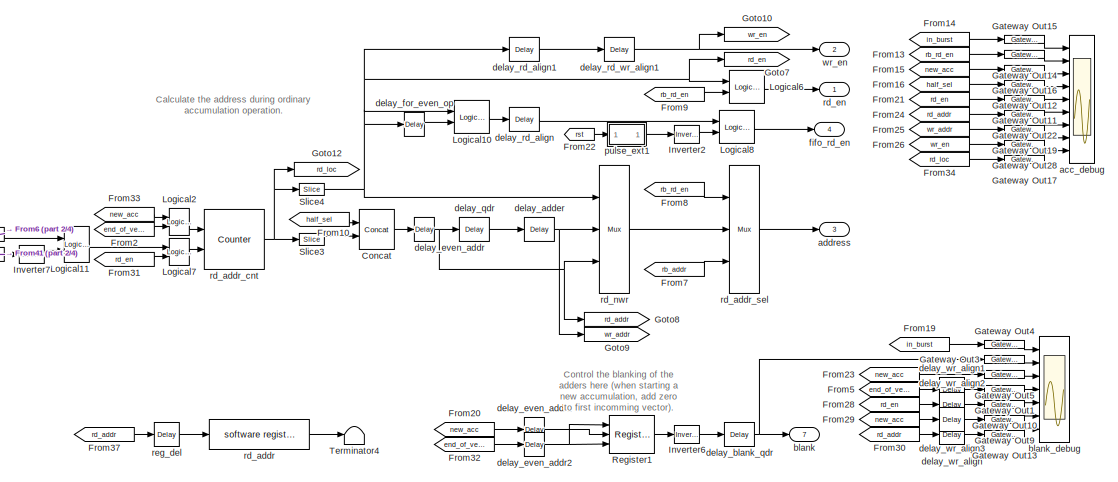
[diagram: qdr_vacc/acc_ctrl - part 1/4, top center region]
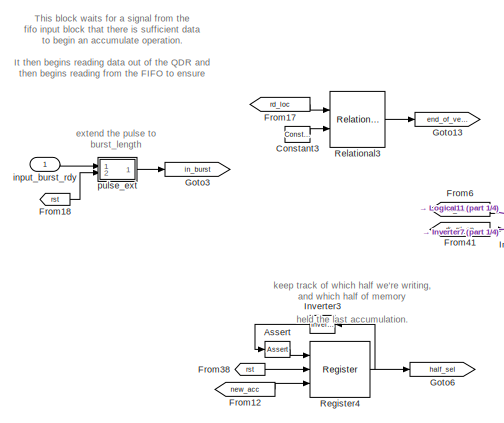
[diagram: qdr_vacc/acc_ctrl - part 2/4, top left region]
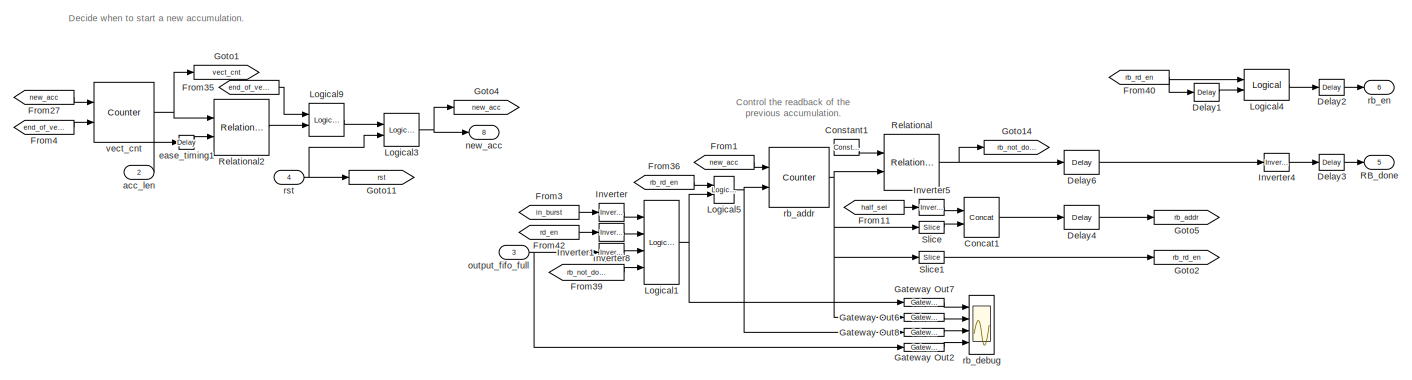
[diagram: qdr_vacc/acc_ctrl - part 3/4, full width, bottom band]
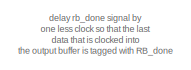
[diagram: qdr_vacc/acc_ctrl - part 4/4, bottom right region]
BLOCK [SubSystem] qdr_vacc/acc_ctrl
  FunctionWithSeparateData = off
  MaskCallbackString = ||
  MaskDescription = QDR delay must be odd (9 is ok, 11 is ok, 10 is not).
  MaskEnableString = on,on,on
  MaskHideContents = off
  MaskIconFrame = on
  MaskIconOpaque = on
  MaskIconRotate = none
  MaskIconUnits = autoscale
  MaskPromptString = delay qdr|delay_in_fifo|delay_adder
  MaskStyleString = edit,edit,edit
  MaskToolTipString = on,on,on
  MaskTunableValueString = on,on,on
  MaskValueString = 11|1|2
  MaskVariables = delay_qdr=@1;delay_in_fifo=@2;delay_adder=@3;
  MaskVisibilityString = on,on,on
  MinAlgLoopOccurrences = off
  Opaque = off
  Ports = [4, 8]
  PropExecContextOutsideSubsystem = off
  RTWSystemCode = Auto
BLOCK [Reference] qdr_vacc/acc_ctrl/Assert  REF=xbsIndex_r4/Assert
  Ports = [1, 1]
  SourceBlock = xbsIndex_r4/Assert
  SourceType = Xilinx Assert Block
  arith_type = Unsigned
  assert_rate = on
  assert_type = on
  bin_pt = 0
  block_type = assert
  block_version = 10.1.3
  exp_width = 8
  frac_width = 24
  gui_display_data_type = Fixed-point
  has_advanced_control = 0
  infoedit = Asserts a user-defined sample rate and/or type on a signal.<P><P>Hardware notes: In hardware this block costs nothing.
  n_bits = 1
  output_port = on
  period = 1
  preci_type = Single
  rate_source = Explicitly
  sg_icon_stat = 25,16,1,1,white,blue,0,9657e937,right,,[ ],[ ]
  sg_mask_display = fprintf('','COMMENT: begin icon graphics');\npatch([0 25 25 0 0 ],[0 0 16 16 0 ],[0.77 0.82 0.91 ]);\nplot([0 25 25 0 0 ],[0 0 16 16 0 ]);\npatch([7.55 10.44 12.44 14.44 16.44 12.44 9.55 7.55 ],[10.22 10.22 12.22 10.22 12.22 12.22 12.22 10.22 ],[1 1 1 ]);\npatch([9.55 12.44 10.44 7.55 9.55 ],[8.22 8.22 10.22 10.22 8.22 ],[0.931 0.946 0.973 ]);\npatch([7.55 10.44 12.44 9.55 7.55 ],[6.22 6.22 8.22 8...<+290ch>
  sggui_pos = 20,20,336,432
  type_source = Explicitly
BLOCK [Reference] qdr_vacc/acc_ctrl/Concat  REF=xbsIndex_r4/Concat
  Ports = [2, 1]
  SourceBlock = xbsIndex_r4/Concat
  SourceType = Xilinx Bus Concatenator Block
  block_type = concat
  block_version = 10.1.3
  dbl_ovrd = off
  has_advanced_control = 0
  infoedit = Concatenates two or more inputs.  Output will be cast to an unsigned value with the binary point at zero.
  num_inputs = 2
  sg_icon_stat = 35,40,2,1,white,blue,0,16398980,right,,[ ],[ ]
  sg_mask_display = fprintf('','COMMENT: begin icon graphics');\npatch([0 35 35 0 0 ],[0 0 40 40 0 ],[0.77 0.82 0.91 ]);\nplot([0 35 35 0 0 ],[0 0 40 40 0 ]);\npatch([5.875 13.1 18.1 23.1 28.1 18.1 10.875 5.875 ],[25.55 25.55 30.55 25.55 30.55 30.55 30.55 25.55 ],[1 1 1 ]);\npatch([10.875 18.1 13.1 5.875 10.875 ],[20.55 20.55 25.55 25.55 20.55 ],[0.931 0.946 0.973 ]);\npatch([5.875 13.1 18.1 10.875 5.875 ],[15.55 15....<+422ch>
  sggui_pos = -1,-1,-1,-1
BLOCK [Reference] qdr_vacc/acc_ctrl/Concat1  REF=xbsIndex_r4/Concat
  Ports = [2, 1]
  SourceBlock = xbsIndex_r4/Concat
  SourceType = Xilinx Bus Concatenator Block
  block_type = concat
  block_version = 10.1.3
  dbl_ovrd = off
  has_advanced_control = 0
  infoedit = Concatenates two or more inputs.  Output will be cast to an unsigned value with the binary point at zero.
  num_inputs = 2
  sg_icon_stat = 35,40,2,1,white,blue,0,16398980,right,,[ ],[ ]
  sg_mask_display = fprintf('','COMMENT: begin icon graphics');\npatch([0 35 35 0 0 ],[0 0 40 40 0 ],[0.77 0.82 0.91 ]);\nplot([0 35 35 0 0 ],[0 0 40 40 0 ]);\npatch([5.875 13.1 18.1 23.1 28.1 18.1 10.875 5.875 ],[25.55 25.55 30.55 25.55 30.55 30.55 30.55 25.55 ],[1 1 1 ]);\npatch([10.875 18.1 13.1 5.875 10.875 ],[20.55 20.55 25.55 25.55 20.55 ],[0.931 0.946 0.973 ]);\npatch([5.875 13.1 18.1 10.875 5.875 ],[15.55 15....<+422ch>
  sggui_pos = 20,20,336,162
BLOCK [Reference] qdr_vacc/acc_ctrl/Constant1  REF=xbsIndex_r4/Constant
  Ports = [0, 1]
  SourceBlock = xbsIndex_r4/Constant
  SourceType = Xilinx Constant Block Block
  arith_type = Unsigned
  bin_pt = 0
  block_type = constant
  block_version = 10.1.3
  carry = CIN
  const = vector_len - 1
  dbl_ovrd = off
  dsp48_infoedit = The use of this block for DSP48 instructions is deprecated.  Please use the Opmode block.
  equ = P=C
  exp_width = 8
  explicit_period = on
  frac_width = 24
  gui_display_data_type = Fixed-point
  has_advanced_control = 0
  inp1 = P
  inp2 = PCIN>>17
  n_bits = vector_bits
  opr = +
  opselect = C
  period = 1
  preci_type = Single
  sg_icon_stat = 25,16,1,1,white,blue,0,a7d11b44,right
  sggui_pos = 461,565,414,344
BLOCK [Reference] qdr_vacc/acc_ctrl/Constant3  REF=xbsIndex_r4/Constant
  Ports = [0, 1]
  SourceBlock = xbsIndex_r4/Constant
  SourceType = Xilinx Constant Block Block
  arith_type = Unsigned
  bin_pt = 0
  block_type = constant
  block_version = 10.1.3
  carry = CIN
  const = vector_len-1
  dbl_ovrd = off
  dsp48_infoedit = The use of this block for DSP48 instructions is deprecated.  Please use the Opmode block.
  equ = P=C
  exp_width = 8
  explicit_period = on
  frac_width = 24
  gui_display_data_type = Fixed-point
  has_advanced_control = 0
  inp1 = P
  inp2 = PCIN>>17
  n_bits = vector_bits
  opr = +
  opselect = C
  period = 1
  preci_type = Single
  sg_icon_stat = 25,16,1,1,white,blue,0,a7d11b44,right
  sggui_pos = 461,565,414,344
BLOCK [Reference] qdr_vacc/acc_ctrl/Delay1  REF=xbsIndex_r4/Delay
  Ports = [1, 1]
  SourceBlock = xbsIndex_r4/Delay
  SourceType = Xilinx Delay Block
  block_type = delay
  block_version = 10.1.3
  dbl_ovrd = off
  en = off
  has_advanced_control = 0
  infoedit = Hardware notes: A delay line is a chain, each link of which is an SRL16 followed by a flip-flop.
  infoeditControl = Selection of Reset will increase slice count due to use of real FFs and instead of SRLs
  latency = 1
  reg_retiming = on
  rst = off
  sg_icon_stat = 25,18,1,1,white,blue,0,07b98262,right,,[ ],[ ]
  sggui_pos = 20,20,348,254
  xl_area = [0,0,0,0,0,0,0]
  xl_use_area = off
BLOCK [Reference] qdr_vacc/acc_ctrl/Delay2  REF=xbsIndex_r4/Delay
  Ports = [1, 1]
  SourceBlock = xbsIndex_r4/Delay
  SourceType = Xilinx Delay Block
  block_type = delay
  block_version = 10.1.3
  dbl_ovrd = off
  en = off
  has_advanced_control = 0
  infoedit = Hardware notes: A delay line is a chain, each link of which is an SRL16 followed by a flip-flop.
  infoeditControl = Selection of Reset will increase slice count due to use of real FFs and instead of SRLs
  latency = delay_qdr
  reg_retiming = on
  rst = off
  sg_icon_stat = 25,16,1,1,white,blue,0,36c42516,right
  sg_mask_display = fprintf('','COMMENT: begin icon graphics');\npatch([0 60 60 0 ],[0 0 56 56 ],[0.77 0.82 0.91]);\npatch([15 6 19 6 15 30 34 38 54 41 29 20 32 20 29 41 54 38 34 30 15 ],[6 15 28 41 50 50 46 50 50 37 49 40 28 16 7 19 6 6 10 6 6 ],[0.98 0.96 0.92]);\nplot([0 60 60 0 0 ],[0 0 56 56 0 ]);\nfprintf('','COMMENT: end icon graphics');\nfprintf('','COMMENT: begin icon text');\ncolor('black');disp('z^{-11}','...<+56ch>  <repeated x8 — deduplicated; at blocks: Delay2, delay_blank_qdr, delay_qdr, delay_rd_align1, delay_wr_align, delay_wr_align1, delay_wr_align2, delay_wr_align3>
  sggui_pos = 20,20,348,254
  xl_area = [0,0,0,0,0,0,0]
  xl_use_area = off
BLOCK [Reference] qdr_vacc/acc_ctrl/Delay3  REF=xbsIndex_r4/Delay
  Ports = [1, 1]
  SourceBlock = xbsIndex_r4/Delay
  SourceType = Xilinx Delay Block
  block_type = delay
  block_version = 10.1.3
  dbl_ovrd = off
  en = off
  has_advanced_control = 0
  infoedit = Hardware notes: A delay line is a chain, each link of which is an SRL16 followed by a flip-flop.
  infoeditControl = Selection of Reset will increase slice count due to use of real FFs and instead of SRLs
  latency = delay_qdr-1
  reg_retiming = on
  rst = off
  sg_icon_stat = 25,16,1,1,white,blue,0,fc1feff4,right
  sg_mask_display = fprintf('','COMMENT: begin icon graphics');\npatch([0 60 60 0 ],[0 0 56 56 ],[0.77 0.82 0.91]);\npatch([15 6 19 6 15 30 34 38 54 41 29 20 32 20 29 41 54 38 34 30 15 ],[6 15 28 41 50 50 46 50 50 37 49 40 28 16 7 19 6 6 10 6 6 ],[0.98 0.96 0.92]);\nplot([0 60 60 0 0 ],[0 0 56 56 0 ]);\nfprintf('','COMMENT: end icon graphics');\nfprintf('','COMMENT: begin icon text');\ncolor('black');disp('z^{-10}','...<+56ch>
  sggui_pos = 20,20,348,254
  xl_area = [0,0,0,0,0,0,0]
  xl_use_area = off
BLOCK [Reference] qdr_vacc/acc_ctrl/Delay4  REF=xbsIndex_r4/Delay
  Ports = [1, 1]
  SourceBlock = xbsIndex_r4/Delay
  SourceType = Xilinx Delay Block
  block_type = delay
  block_version = 10.1.3
  dbl_ovrd = off
  en = off
  has_advanced_control = 0
  infoedit = Hardware notes: A delay line is a chain, each link of which is an SRL16 followed by a flip-flop.
  infoeditControl = Selection of Reset will increase slice count due to use of real FFs and instead of SRLs
  latency = 1
  reg_retiming = on
  rst = off
  sg_icon_stat = 35,24,1,1,white,blue,0,07b98262,right,,[ ],[ ]
  sg_mask_display = fprintf('','COMMENT: begin icon graphics');\npatch([0 35 35 0 0 ],[0 0 24 24 0 ],[0.77 0.82 0.91 ]);\nplot([0 35 35 0 0 ],[0 0 24 24 0 ]);\npatch([10.325 14.66 17.66 20.66 23.66 17.66 13.325 10.325 ],[15.33 15.33 18.33 15.33 18.33 18.33 18.33 15.33 ],[1 1 1 ]);\npatch([13.325 17.66 14.66 10.325 13.325 ],[12.33 12.33 15.33 15.33 12.33 ],[0.931 0.946 0.973 ]);\npatch([10.325 14.66 17.66 13.325 10.32...<+334ch>
  sggui_pos = 20,20,348,254
  xl_area = [0,0,0,0,0,0,0]
  xl_use_area = off
BLOCK [Reference] qdr_vacc/acc_ctrl/Delay6  REF=xbsIndex_r4/Delay
  Ports = [1, 1]
  SourceBlock = xbsIndex_r4/Delay
  SourceType = Xilinx Delay Block
  block_type = delay
  block_version = 10.1.3
  dbl_ovrd = off
  en = off
  has_advanced_control = 0
  infoedit = Hardware notes: A delay line is a chain, each link of which is an SRL16 followed by a flip-flop.
  infoeditControl = Selection of Reset will increase slice count due to use of real FFs and instead of SRLs
  latency = 1
  reg_retiming = on
  rst = off
  sg_icon_stat = 35,24,1,1,white,blue,0,07b98262,right,,[ ],[ ]
  sg_mask_display = fprintf('','COMMENT: begin icon graphics');\npatch([0 35 35 0 0 ],[0 0 24 24 0 ],[0.77 0.82 0.91 ]);\nplot([0 35 35 0 0 ],[0 0 24 24 0 ]);\npatch([10.325 14.66 17.66 20.66 23.66 17.66 13.325 10.325 ],[15.33 15.33 18.33 15.33 18.33 18.33 18.33 15.33 ],[1 1 1 ]);\npatch([13.325 17.66 14.66 10.325 13.325 ],[12.33 12.33 15.33 15.33 12.33 ],[0.931 0.946 0.973 ]);\npatch([10.325 14.66 17.66 13.325 10.32...<+334ch>
  sggui_pos = 20,20,348,254
  xl_area = [0,0,0,0,0,0,0]
  xl_use_area = off
BLOCK [From] qdr_vacc/acc_ctrl/From1
  CloseFcn = tagdialog Close
  GotoTag = new_acc
BLOCK [From] qdr_vacc/acc_ctrl/From10
  CloseFcn = tagdialog Close
  GotoTag = half_sel
BLOCK [From] qdr_vacc/acc_ctrl/From11
  CloseFcn = tagdialog Close
  GotoTag = half_sel
BLOCK [From] qdr_vacc/acc_ctrl/From12
  CloseFcn = tagdialog Close
  GotoTag = new_acc
BLOCK [From] qdr_vacc/acc_ctrl/From13
  CloseFcn = tagdialog Close
  GotoTag = rb_rd_en
BLOCK [From] qdr_vacc/acc_ctrl/From14
  CloseFcn = tagdialog Close
  GotoTag = in_burst
BLOCK [From] qdr_vacc/acc_ctrl/From15
  CloseFcn = tagdialog Close
  GotoTag = new_acc
BLOCK [From] qdr_vacc/acc_ctrl/From16
  CloseFcn = tagdialog Close
  GotoTag = half_sel
BLOCK [From] qdr_vacc/acc_ctrl/From17
  CloseFcn = tagdialog Close
  GotoTag = rd_loc
BLOCK [From] qdr_vacc/acc_ctrl/From18
  CloseFcn = tagdialog Close
  GotoTag = rst
BLOCK [From] qdr_vacc/acc_ctrl/From19
  CloseFcn = tagdialog Close
  GotoTag = in_burst
BLOCK [From] qdr_vacc/acc_ctrl/From2
  CloseFcn = tagdialog Close
  GotoTag = end_of_vector
BLOCK [From] qdr_vacc/acc_ctrl/From20
  CloseFcn = tagdialog Close
  GotoTag = new_acc
BLOCK [From] qdr_vacc/acc_ctrl/From21
  CloseFcn = tagdialog Close
  GotoTag = rd_en
BLOCK [From] qdr_vacc/acc_ctrl/From22
  CloseFcn = tagdialog Close
  GotoTag = rst
BLOCK [From] qdr_vacc/acc_ctrl/From23
  CloseFcn = tagdialog Close
  GotoTag = new_acc
BLOCK [From] qdr_vacc/acc_ctrl/From24
  CloseFcn = tagdialog Close
  GotoTag = rd_addr
BLOCK [From] qdr_vacc/acc_ctrl/From25
  CloseFcn = tagdialog Close
  GotoTag = wr_addr
BLOCK [From] qdr_vacc/acc_ctrl/From26
  CloseFcn = tagdialog Close
  GotoTag = wr_en
BLOCK [From] qdr_vacc/acc_ctrl/From27
  CloseFcn = tagdialog Close
  GotoTag = new_acc
BLOCK [From] qdr_vacc/acc_ctrl/From28
  CloseFcn = tagdialog Close
  GotoTag = rd_en
BLOCK [From] qdr_vacc/acc_ctrl/From29
  CloseFcn = tagdialog Close
  GotoTag = new_acc
BLOCK [From] qdr_vacc/acc_ctrl/From3
  CloseFcn = tagdialog Close
  GotoTag = in_burst
BLOCK [From] qdr_vacc/acc_ctrl/From30
  CloseFcn = tagdialog Close
  GotoTag = rd_addr
BLOCK [From] qdr_vacc/acc_ctrl/From31
  CloseFcn = tagdialog Close
  GotoTag = rd_en
BLOCK [From] qdr_vacc/acc_ctrl/From32
  CloseFcn = tagdialog Close
  GotoTag = end_of_vector
BLOCK [From] qdr_vacc/acc_ctrl/From33
  CloseFcn = tagdialog Close
  GotoTag = new_acc
BLOCK [From] qdr_vacc/acc_ctrl/From34
  CloseFcn = tagdialog Close
  GotoTag = rd_loc
BLOCK [From] qdr_vacc/acc_ctrl/From35
  CloseFcn = tagdialog Close
  GotoTag = end_of_vector
BLOCK [From] qdr_vacc/acc_ctrl/From36
  CloseFcn = tagdialog Close
  GotoTag = rb_rd_en
BLOCK [From] qdr_vacc/acc_ctrl/From37
  CloseFcn = tagdialog Close
  GotoTag = rd_addr
BLOCK [From] qdr_vacc/acc_ctrl/From38
  CloseFcn = tagdialog Close
  GotoTag = rst
BLOCK [From] qdr_vacc/acc_ctrl/From39
  CloseFcn = tagdialog Close
  GotoTag = rb_not_done
BLOCK [From] qdr_vacc/acc_ctrl/From4
  CloseFcn = tagdialog Close
  GotoTag = end_of_vector
BLOCK [From] qdr_vacc/acc_ctrl/From40
  CloseFcn = tagdialog Close
  GotoTag = rb_rd_en
BLOCK [From] qdr_vacc/acc_ctrl/From41
  CloseFcn = tagdialog Close
  GotoTag = rb_rd_en
BLOCK [From] qdr_vacc/acc_ctrl/From42
  CloseFcn = tagdialog Close
  GotoTag = rd_en
BLOCK [From] qdr_vacc/acc_ctrl/From5
  CloseFcn = tagdialog Close
  GotoTag = end_of_vector
BLOCK [From] qdr_vacc/acc_ctrl/From6
  CloseFcn = tagdialog Close
  GotoTag = in_burst
BLOCK [From] qdr_vacc/acc_ctrl/From7
  CloseFcn = tagdialog Close
  GotoTag = rb_addr
BLOCK [From] qdr_vacc/acc_ctrl/From8
  CloseFcn = tagdialog Close
  GotoTag = rb_rd_en
BLOCK [From] qdr_vacc/acc_ctrl/From9
  CloseFcn = tagdialog Close
  GotoTag = rb_rd_en
BLOCK [Reference] qdr_vacc/acc_ctrl/Gateway Out1  REF=xbsIndex_r4/Gateway Out
  LOCs = {}
  Ports = [1, 1]
  SourceBlock = xbsIndex_r4/Gateway Out
  SourceType = Xilinx Gateway Out Block
  block_type = gatewayout
  block_version = 10.1.3
  has_advanced_control = 0
  hdl_port = off
  locs_specified = off
  sg_icon_stat = 40,8,1,1,white,grey,0,632ec840,right,,[ ],[ ]
  sggui_pos = 20,20,336,384
  timing_constraint = None
  xl_area = [0, 0, 0, 0, 0, 0, 0]
  xl_use_area = off
BLOCK [Reference] qdr_vacc/acc_ctrl/Gateway Out10  REF=xbsIndex_r4/Gateway Out
  LOCs = {}
  Ports = [1, 1]
  SourceBlock = xbsIndex_r4/Gateway Out
  SourceType = Xilinx Gateway Out Block
  block_type = gatewayout
  block_version = 10.1.3
  has_advanced_control = 0
  hdl_port = off
  locs_specified = off
  sg_icon_stat = 40,8,1,1,white,grey,0,632ec840,right,,[ ],[ ]
  sggui_pos = 20,20,336,384
  timing_constraint = None
  xl_area = [0, 0, 0, 0, 0, 0, 0]
  xl_use_area = off
BLOCK [Reference] qdr_vacc/acc_ctrl/Gateway Out11  REF=xbsIndex_r4/Gateway Out
  LOCs = {}
  Ports = [1, 1]
  SourceBlock = xbsIndex_r4/Gateway Out
  SourceType = Xilinx Gateway Out Block
  block_type = gatewayout
  block_version = 10.1.3
  has_advanced_control = 0
  hdl_port = off
  locs_specified = off
  sg_icon_stat = 40,8,1,1,white,grey,0,632ec840,right,,[ ],[ ]
  sggui_pos = 20,20,336,384
  timing_constraint = None
  xl_area = [0, 0, 0, 0, 0, 0, 0]
  xl_use_area = off
BLOCK [Reference] qdr_vacc/acc_ctrl/Gateway Out12  REF=xbsIndex_r4/Gateway Out
  LOCs = {}
  Ports = [1, 1]
  SourceBlock = xbsIndex_r4/Gateway Out
  SourceType = Xilinx Gateway Out Block
  block_type = gatewayout
  block_version = 10.1.3
  has_advanced_control = 0
  hdl_port = off
  locs_specified = off
  sg_icon_stat = 40,8,1,1,white,grey,0,632ec840,right,,[ ],[ ]
  sggui_pos = 20,20,336,384
  timing_constraint = None
  xl_area = [0, 0, 0, 0, 0, 0, 0]
  xl_use_area = off
BLOCK [Reference] qdr_vacc/acc_ctrl/Gateway Out13  REF=xbsIndex_r4/Gateway Out
  LOCs = {}
  Ports = [1, 1]
  SourceBlock = xbsIndex_r4/Gateway Out
  SourceType = Xilinx Gateway Out Block
  block_type = gatewayout
  block_version = 10.1.3
  has_advanced_control = 0
  hdl_port = off
  locs_specified = off
  sg_icon_stat = 40,8,1,1,white,grey,0,632ec840,right,,[ ],[ ]
  sggui_pos = 20,20,336,384
  timing_constraint = None
  xl_area = [0, 0, 0, 0, 0, 0, 0]
  xl_use_area = off
BLOCK [Reference] qdr_vacc/acc_ctrl/Gateway Out14  REF=xbsIndex_r4/Gateway Out
  LOCs = {}
  Ports = [1, 1]
  SourceBlock = xbsIndex_r4/Gateway Out
  SourceType = Xilinx Gateway Out Block
  block_type = gatewayout
  block_version = 10.1.3
  has_advanced_control = 0
  hdl_port = off
  locs_specified = off
  sg_icon_stat = 40,8,1,1,white,grey,0,632ec840,right,,[ ],[ ]
  sggui_pos = 20,20,336,384
  timing_constraint = None
  xl_area = [0, 0, 0, 0, 0, 0, 0]
  xl_use_area = off
BLOCK [Reference] qdr_vacc/acc_ctrl/Gateway Out15  REF=xbsIndex_r4/Gateway Out
  LOCs = {}
  Ports = [1, 1]
  SourceBlock = xbsIndex_r4/Gateway Out
  SourceType = Xilinx Gateway Out Block
  block_type = gatewayout
  block_version = 10.1.3
  has_advanced_control = 0
  hdl_port = off
  locs_specified = off
  sg_icon_stat = 40,8,1,1,white,grey,0,632ec840,right,,[ ],[ ]
  sggui_pos = 20,20,336,384
  timing_constraint = None
  xl_area = [0, 0, 0, 0, 0, 0, 0]
  xl_use_area = off
BLOCK [Reference] qdr_vacc/acc_ctrl/Gateway Out16  REF=xbsIndex_r4/Gateway Out
  LOCs = {}
  Ports = [1, 1]
  SourceBlock = xbsIndex_r4/Gateway Out
  SourceType = Xilinx Gateway Out Block
  block_type = gatewayout
  block_version = 10.1.3
  has_advanced_control = 0
  hdl_port = off
  locs_specified = off
  sg_icon_stat = 40,8,1,1,white,grey,0,632ec840,right,,[ ],[ ]
  sggui_pos = 20,20,336,384
  timing_constraint = None
  xl_area = [0, 0, 0, 0, 0, 0, 0]
  xl_use_area = off
BLOCK [Reference] qdr_vacc/acc_ctrl/Gateway Out17  REF=xbsIndex_r4/Gateway Out
  LOCs = {}
  Ports = [1, 1]
  SourceBlock = xbsIndex_r4/Gateway Out
  SourceType = Xilinx Gateway Out Block
  block_type = gatewayout
  block_version = 10.1.3
  has_advanced_control = 0
  hdl_port = off
  locs_specified = off
  sg_icon_stat = 40,8,1,1,white,grey,0,632ec840,right,,[ ],[ ]
  sggui_pos = 20,20,336,384
  timing_constraint = None
  xl_area = [0, 0, 0, 0, 0, 0, 0]
  xl_use_area = off
BLOCK [Reference] qdr_vacc/acc_ctrl/Gateway Out19  REF=xbsIndex_r4/Gateway Out
  LOCs = {}
  Ports = [1, 1]
  SourceBlock = xbsIndex_r4/Gateway Out
  SourceType = Xilinx Gateway Out Block
  block_type = gatewayout
  block_version = 10.1.3
  has_advanced_control = 0
  hdl_port = off
  locs_specified = off
  sg_icon_stat = 40,8,1,1,white,grey,0,632ec840,right,,[ ],[ ]
  sggui_pos = 20,20,336,384
  timing_constraint = None
  xl_area = [0, 0, 0, 0, 0, 0, 0]
  xl_use_area = off
BLOCK [Reference] qdr_vacc/acc_ctrl/Gateway Out2  REF=xbsIndex_r4/Gateway Out
  LOCs = {}
  Ports = [1, 1]
  SourceBlock = xbsIndex_r4/Gateway Out
  SourceType = Xilinx Gateway Out Block
  block_type = gatewayout
  block_version = 10.1.3
  has_advanced_control = 0
  hdl_port = off
  locs_specified = off
  sg_icon_stat = 40,8,1,1,white,grey,0,632ec840,right,,[ ],[ ]
  sggui_pos = 20,20,336,384
  timing_constraint = None
  xl_area = [0, 0, 0, 0, 0, 0, 0]
  xl_use_area = off
BLOCK [Reference] qdr_vacc/acc_ctrl/Gateway Out22  REF=xbsIndex_r4/Gateway Out
  LOCs = {}
  Ports = [1, 1]
  SourceBlock = xbsIndex_r4/Gateway Out
  SourceType = Xilinx Gateway Out Block
  block_type = gatewayout
  block_version = 10.1.3
  has_advanced_control = 0
  hdl_port = off
  locs_specified = off
  sg_icon_stat = 40,8,1,1,white,grey,0,632ec840,right,,[ ],[ ]
  sggui_pos = 20,20,336,384
  timing_constraint = None
  xl_area = [0, 0, 0, 0, 0, 0, 0]
  xl_use_area = off
BLOCK [Reference] qdr_vacc/acc_ctrl/Gateway Out28  REF=xbsIndex_r4/Gateway Out
  LOCs = {}
  Ports = [1, 1]
  SourceBlock = xbsIndex_r4/Gateway Out
  SourceType = Xilinx Gateway Out Block
  block_type = gatewayout
  block_version = 10.1.3
  has_advanced_control = 0
  hdl_port = off
  locs_specified = off
  sg_icon_stat = 40,8,1,1,white,grey,0,632ec840,right,,[ ],[ ]
  sggui_pos = 20,20,336,384
  timing_constraint = None
  xl_area = [0, 0, 0, 0, 0, 0, 0]
  xl_use_area = off
BLOCK [Reference] qdr_vacc/acc_ctrl/Gateway Out3  REF=xbsIndex_r4/Gateway Out
  LOCs = {}
  Ports = [1, 1]
  SourceBlock = xbsIndex_r4/Gateway Out
  SourceType = Xilinx Gateway Out Block
  block_type = gatewayout
  block_version = 10.1.3
  has_advanced_control = 0
  hdl_port = off
  locs_specified = off
  sg_icon_stat = 40,8,1,1,white,grey,0,632ec840,right,,[ ],[ ]
  sggui_pos = 20,20,336,384
  timing_constraint = None
  xl_area = [0, 0, 0, 0, 0, 0, 0]
  xl_use_area = off
BLOCK [Reference] qdr_vacc/acc_ctrl/Gateway Out4  REF=xbsIndex_r4/Gateway Out
  LOCs = {}
  Ports = [1, 1]
  SourceBlock = xbsIndex_r4/Gateway Out
  SourceType = Xilinx Gateway Out Block
  block_type = gatewayout
  block_version = 10.1.3
  has_advanced_control = 0
  hdl_port = off
  locs_specified = off
  sg_icon_stat = 40,8,1,1,white,grey,0,632ec840,right,,[ ],[ ]
  sggui_pos = 20,20,336,384
  timing_constraint = None
  xl_area = [0, 0, 0, 0, 0, 0, 0]
  xl_use_area = off
BLOCK [Reference] qdr_vacc/acc_ctrl/Gateway Out5  REF=xbsIndex_r4/Gateway Out
  LOCs = {}
  Ports = [1, 1]
  SourceBlock = xbsIndex_r4/Gateway Out
  SourceType = Xilinx Gateway Out Block
  block_type = gatewayout
  block_version = 10.1.3
  has_advanced_control = 0
  hdl_port = off
  locs_specified = off
  sg_icon_stat = 40,8,1,1,white,grey,0,632ec840,right,,[ ],[ ]
  sggui_pos = 20,20,336,384
  timing_constraint = None
  xl_area = [0, 0, 0, 0, 0, 0, 0]
  xl_use_area = off
BLOCK [Reference] qdr_vacc/acc_ctrl/Gateway Out6  REF=xbsIndex_r4/Gateway Out
  LOCs = {}
  Ports = [1, 1]
  SourceBlock = xbsIndex_r4/Gateway Out
  SourceType = Xilinx Gateway Out Block
  block_type = gatewayout
  block_version = 10.1.3
  has_advanced_control = 0
  hdl_port = off
  locs_specified = off
  sg_icon_stat = 40,8,1,1,white,grey,0,632ec840,right,,[ ],[ ]
  sggui_pos = 20,20,336,384
  timing_constraint = None
  xl_area = [0, 0, 0, 0, 0, 0, 0]
  xl_use_area = off
BLOCK [Reference] qdr_vacc/acc_ctrl/Gateway Out7  REF=xbsIndex_r4/Gateway Out
  LOCs = {}
  Ports = [1, 1]
  SourceBlock = xbsIndex_r4/Gateway Out
  SourceType = Xilinx Gateway Out Block
  block_type = gatewayout
  block_version = 10.1.3
  has_advanced_control = 0
  hdl_port = off
  locs_specified = off
  sg_icon_stat = 40,8,1,1,white,grey,0,632ec840,right,,[ ],[ ]
  sggui_pos = 20,20,336,384
  timing_constraint = None
  xl_area = [0, 0, 0, 0, 0, 0, 0]
  xl_use_area = off
BLOCK [Reference] qdr_vacc/acc_ctrl/Gateway Out8  REF=xbsIndex_r4/Gateway Out
  LOCs = {}
  Ports = [1, 1]
  SourceBlock = xbsIndex_r4/Gateway Out
  SourceType = Xilinx Gateway Out Block
  block_type = gatewayout
  block_version = 10.1.3
  has_advanced_control = 0
  hdl_port = off
  locs_specified = off
  sg_icon_stat = 40,8,1,1,white,grey,0,632ec840,right,,[ ],[ ]
  sggui_pos = 20,20,336,384
  timing_constraint = None
  xl_area = [0, 0, 0, 0, 0, 0, 0]
  xl_use_area = off
BLOCK [Reference] qdr_vacc/acc_ctrl/Gateway Out9  REF=xbsIndex_r4/Gateway Out
  LOCs = {}
  Ports = [1, 1]
  SourceBlock = xbsIndex_r4/Gateway Out
  SourceType = Xilinx Gateway Out Block
  block_type = gatewayout
  block_version = 10.1.3
  has_advanced_control = 0
  hdl_port = off
  locs_specified = off
  sg_icon_stat = 40,8,1,1,white,grey,0,632ec840,right,,[ ],[ ]
  sggui_pos = 20,20,336,384
  timing_constraint = None
  xl_area = [0, 0, 0, 0, 0, 0, 0]
  xl_use_area = off
BLOCK [Goto] qdr_vacc/acc_ctrl/Goto1
  GotoTag = vect_cnt
  TagVisibility = local
BLOCK [Goto] qdr_vacc/acc_ctrl/Goto10
  GotoTag = wr_en
  TagVisibility = local
BLOCK [Goto] qdr_vacc/acc_ctrl/Goto11
  GotoTag = rst
  TagVisibility = local
BLOCK [Goto] qdr_vacc/acc_ctrl/Goto12
  GotoTag = rd_loc
  TagVisibility = local
BLOCK [Goto] qdr_vacc/acc_ctrl/Goto13
  GotoTag = end_of_vector
  TagVisibility = local
BLOCK [Goto] qdr_vacc/acc_ctrl/Goto14
  GotoTag = rb_not_done
  TagVisibility = local
BLOCK [Goto] qdr_vacc/acc_ctrl/Goto2
  GotoTag = rb_rd_en
  TagVisibility = local
BLOCK [Goto] qdr_vacc/acc_ctrl/Goto3
  GotoTag = in_burst
  TagVisibility = local
BLOCK [Goto] qdr_vacc/acc_ctrl/Goto4
  GotoTag = new_acc
  TagVisibility = local
BLOCK [Goto] qdr_vacc/acc_ctrl/Goto5
  GotoTag = rb_addr
  TagVisibility = local
BLOCK [Goto] qdr_vacc/acc_ctrl/Goto6
  GotoTag = half_sel
  TagVisibility = local
BLOCK [Goto] qdr_vacc/acc_ctrl/Goto7
  GotoTag = rd_en
  TagVisibility = local
BLOCK [Goto] qdr_vacc/acc_ctrl/Goto8
  GotoTag = rd_addr
  TagVisibility = local
BLOCK [Goto] qdr_vacc/acc_ctrl/Goto9
  GotoTag = wr_addr
  TagVisibility = local
BLOCK [Reference] qdr_vacc/acc_ctrl/Inverter  REF=xbsIndex_r4/Inverter
  Ports = [1, 1]
  SourceBlock = xbsIndex_r4/Inverter
  SourceType = Xilinx Inverter Block
  block_type = inv
  block_version = 10.1.3
  dbl_ovrd = off
  en = off
  has_advanced_control = 0
  infoedit = Bitwise logical negation (one's complement) operator.
  latency = 0
  sg_icon_stat = 25,18,1,1,white,blue,0,267846e5,right,,[ ],[ ]
  sg_mask_display = fprintf('','COMMENT: begin icon graphics');\npatch([0 25 25 0 0 ],[0 0 18 18 0 ],[0.77 0.82 0.91 ]);\nplot([0 25 25 0 0 ],[0 0 18 18 0 ]);\npatch([7.55 10.44 12.44 14.44 16.44 12.44 9.55 7.55 ],[11.22 11.22 13.22 11.22 13.22 13.22 13.22 11.22 ],[1 1 1 ]);\npatch([9.55 12.44 10.44 7.55 9.55 ],[9.22 9.22 11.22 11.22 9.22 ],[0.931 0.946 0.973 ]);\npatch([7.55 10.44 12.44 9.55 7.55 ],[7.22 7.22 9.22 9...<+287ch>  <repeated x8 — deduplicated; at blocks: Inverter, Inverter1, Inverter2, Inverter3, Inverter4, Inverter6, Inverter7, Inverter8>
  sggui_pos = 20,20,348,248
  xl_area = [0,0,0,0,0,0,0]
  xl_use_area = off
BLOCK [Reference] qdr_vacc/acc_ctrl/Inverter1  REF=xbsIndex_r4/Inverter
  Ports = [1, 1]
  SourceBlock = xbsIndex_r4/Inverter
  SourceType = Xilinx Inverter Block
  block_type = inv
  block_version = 10.1.3
  dbl_ovrd = off
  en = off
  has_advanced_control = 0
  infoedit = Bitwise logical negation (one's complement) operator.
  latency = 0
  sg_icon_stat = 25,18,1,1,white,blue,0,267846e5,right,,[ ],[ ]
  sggui_pos = 20,20,348,248
  xl_area = [0,0,0,0,0,0,0]
  xl_use_area = off
BLOCK [Reference] qdr_vacc/acc_ctrl/Inverter2  REF=xbsIndex_r4/Inverter
  Ports = [1, 1]
  SourceBlock = xbsIndex_r4/Inverter
  SourceType = Xilinx Inverter Block
  block_type = inv
  block_version = 10.1.3
  dbl_ovrd = off
  en = off
  has_advanced_control = 0
  infoedit = Bitwise logical negation (one's complement) operator.
  latency = 0
  sg_icon_stat = 25,18,1,1,white,blue,0,267846e5,right,,[ ],[ ]
  sggui_pos = 20,20,348,248
  xl_area = [0,0,0,0,0,0,0]
  xl_use_area = off
BLOCK [Reference] qdr_vacc/acc_ctrl/Inverter3  REF=xbsIndex_r4/Inverter
  Ports = [1, 1]
  SourceBlock = xbsIndex_r4/Inverter
  SourceType = Xilinx Inverter Block
  block_type = inv
  block_version = 10.1.3
  dbl_ovrd = off
  en = off
  has_advanced_control = 0
  infoedit = Bitwise logical negation (one's complement) operator.
  latency = 0
  sg_icon_stat = 25,18,1,1,white,blue,0,267846e5,left,,[ ],[ ]
  sggui_pos = 20,20,348,248
  xl_area = [0,0,0,0,0,0,0]
  xl_use_area = off
BLOCK [Reference] qdr_vacc/acc_ctrl/Inverter4  REF=xbsIndex_r4/Inverter
  Ports = [1, 1]
  SourceBlock = xbsIndex_r4/Inverter
  SourceType = Xilinx Inverter Block
  block_type = inv
  block_version = 10.1.3
  dbl_ovrd = off
  en = off
  has_advanced_control = 0
  infoedit = Bitwise logical negation (one's complement) operator.
  latency = 0
  sg_icon_stat = 25,18,1,1,white,blue,0,267846e5,right,,[ ],[ ]
  sggui_pos = -1,-1,-1,-1
  xl_area = [0,0,0,0,0,0,0]
  xl_use_area = off
BLOCK [Reference] qdr_vacc/acc_ctrl/Inverter5  REF=xbsIndex_r4/Inverter
  Ports = [1, 1]
  SourceBlock = xbsIndex_r4/Inverter
  SourceType = Xilinx Inverter Block
  block_type = inv
  block_version = 10.1.3
  dbl_ovrd = off
  en = off
  has_advanced_control = 0
  infoedit = Bitwise logical negation (one's complement) operator.
  latency = 0
  sg_icon_stat = 25,16,1,1,white,blue,0,267846e5,right,,[ ],[ ]
  sg_mask_display = fprintf('','COMMENT: begin icon graphics');\npatch([0 25 25 0 0 ],[0 0 16 16 0 ],[0.77 0.82 0.91 ]);\nplot([0 25 25 0 0 ],[0 0 16 16 0 ]);\npatch([7.55 10.44 12.44 14.44 16.44 12.44 9.55 7.55 ],[10.22 10.22 12.22 10.22 12.22 12.22 12.22 10.22 ],[1 1 1 ]);\npatch([9.55 12.44 10.44 7.55 9.55 ],[8.22 8.22 10.22 10.22 8.22 ],[0.931 0.946 0.973 ]);\npatch([7.55 10.44 12.44 9.55 7.55 ],[6.22 6.22 8.22 8...<+287ch>
  sggui_pos = -1,-1,-1,-1
  xl_area = [0,0,0,0,0,0,0]
  xl_use_area = off
BLOCK [Reference] qdr_vacc/acc_ctrl/Inverter6  REF=xbsIndex_r4/Inverter
  Ports = [1, 1]
  SourceBlock = xbsIndex_r4/Inverter
  SourceType = Xilinx Inverter Block
  block_type = inv
  block_version = 10.1.3
  dbl_ovrd = off
  en = off
  has_advanced_control = 0
  infoedit = Bitwise logical negation (one's complement) operator.
  latency = 0
  sg_icon_stat = 25,18,1,1,white,blue,0,267846e5,right,,[ ],[ ]
  sggui_pos = 20,20,348,248
  xl_area = [0,0,0,0,0,0,0]
  xl_use_area = off
BLOCK [Reference] qdr_vacc/acc_ctrl/Inverter7  REF=xbsIndex_r4/Inverter
  Ports = [1, 1]
  SourceBlock = xbsIndex_r4/Inverter
  SourceType = Xilinx Inverter Block
  block_type = inv
  block_version = 10.1.3
  dbl_ovrd = off
  en = off
  has_advanced_control = 0
  infoedit = Bitwise logical negation (one's complement) operator.
  latency = 0
  sg_icon_stat = 25,18,1,1,white,blue,0,267846e5,right,,[ ],[ ]
  sggui_pos = 20,20,348,248
  xl_area = [0,0,0,0,0,0,0]
  xl_use_area = off
BLOCK [Reference] qdr_vacc/acc_ctrl/Inverter8  REF=xbsIndex_r4/Inverter
  Ports = [1, 1]
  SourceBlock = xbsIndex_r4/Inverter
  SourceType = Xilinx Inverter Block
  block_type = inv
  block_version = 10.1.3
  dbl_ovrd = off
  en = off
  has_advanced_control = 0
  infoedit = Bitwise logical negation (one's complement) operator.
  latency = 0
  sg_icon_stat = 25,18,1,1,white,blue,0,267846e5,right,,[ ],[ ]
  sggui_pos = 20,20,348,248
  xl_area = [0,0,0,0,0,0,0]
  xl_use_area = off
BLOCK [Reference] qdr_vacc/acc_ctrl/Logical1  REF=xbsIndex_r4/Logical
  Ports = [4, 1]
  SourceBlock = xbsIndex_r4/Logical
  SourceType = Xilinx Logical Block Block
  align_bp = on
  arith_type = Unsigned
  bin_pt = 0
  block_type = logical
  block_version = 10.1.3
  dbl_ovrd = off
  en = off
  has_advanced_control = 0
  inputs = 4
  latency = 0
  logical_function = AND
  n_bits = 16
  precision = Full
  sg_icon_stat = 35,84,4,1,white,blue,0,50b60d37,right,,[ ],[ ]
  sg_mask_display = fprintf('','COMMENT: begin icon graphics');\npatch([0 35 35 0 0 ],[0 0 84 84 0 ],[0.77 0.82 0.91 ]);\nplot([0 35 35 0 0 ],[0 0 84 84 0 ]);\npatch([5.875 13.1 18.1 23.1 28.1 18.1 10.875 5.875 ],[47.55 47.55 52.55 47.55 52.55 52.55 52.55 47.55 ],[1 1 1 ]);\npatch([10.875 18.1 13.1 5.875 10.875 ],[42.55 42.55 47.55 47.55 42.55 ],[0.931 0.946 0.973 ]);\npatch([5.875 13.1 18.1 10.875 5.875 ],[37.55 37....<+313ch>
  sggui_pos = 20,20,348,262
  xl_area = [0,0,0,0,0,0,0]
  xl_use_area = off
BLOCK [Reference] qdr_vacc/acc_ctrl/Logical10  REF=xbsIndex_r4/Logical
  Ports = [2, 1]
  SourceBlock = xbsIndex_r4/Logical
  SourceType = Xilinx Logical Block Block
  align_bp = on
  arith_type = Unsigned
  bin_pt = 0
  block_type = logical
  block_version = 10.1.3
  dbl_ovrd = off
  en = off
  has_advanced_control = 0
  inputs = 2
  latency = 0
  logical_function = OR
  n_bits = 16
  precision = Full
  sg_icon_stat = 35,33,2,1,white,blue,0,7ede7d88,right,,[ ],[ ]
  sg_mask_display = fprintf('','COMMENT: begin icon graphics');\npatch([0 35 35 0 0 ],[0 0 33 33 0 ],[0.77 0.82 0.91 ]);\nplot([0 35 35 0 0 ],[0 0 33 33 0 ]);\npatch([8.1 13.88 17.88 21.88 25.88 17.88 12.1 8.1 ],[20.44 20.44 24.44 20.44 24.44 24.44 24.44 20.44 ],[1 1 1 ]);\npatch([12.1 17.88 13.88 8.1 12.1 ],[16.44 16.44 20.44 20.44 16.44 ],[0.931 0.946 0.973 ]);\npatch([8.1 13.88 17.88 12.1 8.1 ],[12.44 12.44 16.44 ...<+293ch>  <repeated x3 — deduplicated; at blocks: Logical10, Logical3, Logical6>
  sggui_pos = 20,20,348,262
  xl_area = [0,0,0,0,0,0,0]
  xl_use_area = off
BLOCK [Reference] qdr_vacc/acc_ctrl/Logical11  REF=xbsIndex_r4/Logical
  Ports = [2, 1]
  SourceBlock = xbsIndex_r4/Logical
  SourceType = Xilinx Logical Block Block
  align_bp = on
  arith_type = Unsigned
  bin_pt = 0
  block_type = logical
  block_version = 10.1.3
  dbl_ovrd = off
  en = off
  has_advanced_control = 0
  inputs = 2
  latency = 0
  logical_function = AND
  n_bits = 16
  precision = Full
  sg_icon_stat = 25,36,2,1,white,blue,0,83a4b621,right,,[ ],[ ]
  sg_mask_display = fprintf('','COMMENT: begin icon graphics');\npatch([0 25 25 0 0 ],[0 0 36 36 0 ],[0.77 0.82 0.91 ]);\nplot([0 25 25 0 0 ],[0 0 36 36 0 ]);\npatch([5.325 9.66 12.66 15.66 18.66 12.66 8.325 5.325 ],[21.33 21.33 24.33 21.33 24.33 24.33 24.33 21.33 ],[1 1 1 ]);\npatch([8.325 12.66 9.66 5.325 8.325 ],[18.33 18.33 21.33 21.33 18.33 ],[0.931 0.946 0.973 ]);\npatch([5.325 9.66 12.66 8.325 5.325 ],[15.33 1...<+312ch>
  sggui_pos = 20,20,348,262
  xl_area = [0,0,0,0,0,0,0]
  xl_use_area = off
BLOCK [Reference] qdr_vacc/acc_ctrl/Logical2  REF=xbsIndex_r4/Logical
  Ports = [2, 1]
  SourceBlock = xbsIndex_r4/Logical
  SourceType = Xilinx Logical Block Block
  align_bp = on
  arith_type = Unsigned
  bin_pt = 0
  block_type = logical
  block_version = 10.1.3
  dbl_ovrd = off
  en = off
  has_advanced_control = 0
  inputs = 2
  latency = 0
  logical_function = OR
  n_bits = 16
  precision = Full
  sg_icon_stat = 20,27,2,1,white,blue,0,7ede7d88,right,,[ ],[ ]
  sg_mask_display = fprintf('','COMMENT: begin icon graphics');\npatch([0 20 20 0 0 ],[0 0 27 27 0 ],[0.77 0.82 0.91 ]);\nplot([0 20 20 0 0 ],[0 0 27 27 0 ]);\npatch([5.55 8.44 10.44 12.44 14.44 10.44 7.55 5.55 ],[15.22 15.22 17.22 15.22 17.22 17.22 17.22 15.22 ],[1 1 1 ]);\npatch([7.55 10.44 8.44 5.55 7.55 ],[13.22 13.22 15.22 15.22 13.22 ],[0.931 0.946 0.973 ]);\npatch([5.55 8.44 10.44 7.55 5.55 ],[11.22 11.22 13.2...<+295ch>  <repeated x3 — deduplicated; at blocks: Logical2, Logical5, Logical7>
  sggui_pos = 20,20,348,262
  xl_area = [0,0,0,0,0,0,0]
  xl_use_area = off
BLOCK [Reference] qdr_vacc/acc_ctrl/Logical3  REF=xbsIndex_r4/Logical
  Ports = [2, 1]
  SourceBlock = xbsIndex_r4/Logical
  SourceType = Xilinx Logical Block Block
  align_bp = on
  arith_type = Unsigned
  bin_pt = 0
  block_type = logical
  block_version = 10.1.3
  dbl_ovrd = off
  en = off
  has_advanced_control = 0
  inputs = 2
  latency = 0
  logical_function = OR
  n_bits = 16
  precision = Full
  sg_icon_stat = 35,33,2,1,white,blue,0,7ede7d88,right,,[ ],[ ]
  sggui_pos = 20,20,348,262
  xl_area = [0,0,0,0,0,0,0]
  xl_use_area = off
BLOCK [Reference] qdr_vacc/acc_ctrl/Logical4  REF=xbsIndex_r4/Logical
  Ports = [2, 1]
  SourceBlock = xbsIndex_r4/Logical
  SourceType = Xilinx Logical Block Block
  align_bp = on
  arith_type = Unsigned
  bin_pt = 0
  block_type = logical
  block_version = 10.1.3
  dbl_ovrd = off
  en = off
  has_advanced_control = 0
  inputs = 2
  latency = 0
  logical_function = OR
  n_bits = 16
  precision = Full
  sg_icon_stat = 45,31,2,1,white,blue,0,7ede7d88,right,,[ ],[ ]
  sg_mask_display = fprintf('','COMMENT: begin icon graphics');\npatch([0 45 45 0 0 ],[0 0 31 31 0 ],[0.77 0.82 0.91 ]);\nplot([0 45 45 0 0 ],[0 0 31 31 0 ]);\npatch([13.1 18.88 22.88 26.88 30.88 22.88 17.1 13.1 ],[19.44 19.44 23.44 19.44 23.44 23.44 23.44 19.44 ],[1 1 1 ]);\npatch([17.1 22.88 18.88 13.1 17.1 ],[15.44 15.44 19.44 19.44 15.44 ],[0.931 0.946 0.973 ]);\npatch([13.1 18.88 22.88 17.1 13.1 ],[11.44 11.44 1...<+299ch>  <repeated x3 — deduplicated; at blocks: Logical4, Logical1>
  sggui_pos = 20,20,348,262
  xl_area = [0,0,0,0,0,0,0]
  xl_use_area = off
BLOCK [Reference] qdr_vacc/acc_ctrl/Logical5  REF=xbsIndex_r4/Logical
  Ports = [2, 1]
  SourceBlock = xbsIndex_r4/Logical
  SourceType = Xilinx Logical Block Block
  align_bp = on
  arith_type = Unsigned
  bin_pt = 0
  block_type = logical
  block_version = 10.1.3
  dbl_ovrd = off
  en = off
  has_advanced_control = 0
  inputs = 2
  latency = 0
  logical_function = OR
  n_bits = 16
  precision = Full
  sg_icon_stat = 20,27,2,1,white,blue,0,7ede7d88,right,,[ ],[ ]
  sggui_pos = 20,20,348,262
  xl_area = [0,0,0,0,0,0,0]
  xl_use_area = off
BLOCK [Reference] qdr_vacc/acc_ctrl/Logical6  REF=xbsIndex_r4/Logical
  Ports = [2, 1]
  SourceBlock = xbsIndex_r4/Logical
  SourceType = Xilinx Logical Block Block
  align_bp = on
  arith_type = Unsigned
  bin_pt = 0
  block_type = logical
  block_version = 10.1.3
  dbl_ovrd = off
  en = off
  has_advanced_control = 0
  inputs = 2
  latency = 0
  logical_function = OR
  n_bits = 16
  precision = Full
  sg_icon_stat = 35,33,2,1,white,blue,0,7ede7d88,right,,[ ],[ ]
  sggui_pos = 20,20,348,262
  xl_area = [0,0,0,0,0,0,0]
  xl_use_area = off
BLOCK [Reference] qdr_vacc/acc_ctrl/Logical7  REF=xbsIndex_r4/Logical
  Ports = [2, 1]
  SourceBlock = xbsIndex_r4/Logical
  SourceType = Xilinx Logical Block Block
  align_bp = on
  arith_type = Unsigned
  bin_pt = 0
  block_type = logical
  block_version = 10.1.3
  dbl_ovrd = off
  en = off
  has_advanced_control = 0
  inputs = 2
  latency = 0
  logical_function = OR
  n_bits = 16
  precision = Full
  sg_icon_stat = 20,27,2,1,white,blue,0,7ede7d88,right,,[ ],[ ]
  sggui_pos = 20,20,348,262
  xl_area = [0,0,0,0,0,0,0]
  xl_use_area = off
BLOCK [Reference] qdr_vacc/acc_ctrl/Logical8  REF=xbsIndex_r4/Logical
  Ports = [2, 1]
  SourceBlock = xbsIndex_r4/Logical
  SourceType = Xilinx Logical Block Block
  align_bp = on
  arith_type = Unsigned
  bin_pt = 0
  block_type = logical
  block_version = 10.1.3
  dbl_ovrd = off
  en = off
  has_advanced_control = 0
  inputs = 2
  latency = 0
  logical_function = AND
  n_bits = 16
  precision = Full
  sg_icon_stat = 35,33,2,1,white,blue,0,83a4b621,right,,[ ],[ ]
  sg_mask_display = fprintf('','COMMENT: begin icon graphics');\npatch([0 35 35 0 0 ],[0 0 33 33 0 ],[0.77 0.82 0.91 ]);\nplot([0 35 35 0 0 ],[0 0 33 33 0 ]);\npatch([8.1 13.88 17.88 21.88 25.88 17.88 12.1 8.1 ],[20.44 20.44 24.44 20.44 24.44 24.44 24.44 20.44 ],[1 1 1 ]);\npatch([12.1 17.88 13.88 8.1 12.1 ],[16.44 16.44 20.44 20.44 16.44 ],[0.931 0.946 0.973 ]);\npatch([8.1 13.88 17.88 12.1 8.1 ],[12.44 12.44 16.44 ...<+294ch>
  sggui_pos = 20,20,348,262
  xl_area = [0,0,0,0,0,0,0]
  xl_use_area = off
BLOCK [Reference] qdr_vacc/acc_ctrl/Logical9  REF=xbsIndex_r4/Logical
  Ports = [2, 1]
  SourceBlock = xbsIndex_r4/Logical
  SourceType = Xilinx Logical Block Block
  align_bp = on
  arith_type = Unsigned
  bin_pt = 0
  block_type = logical
  block_version = 10.1.3
  dbl_ovrd = off
  en = off
  has_advanced_control = 0
  inputs = 2
  latency = 0
  logical_function = AND
  n_bits = 16
  precision = Full
  sg_icon_stat = 35,33,2,1,white,blue,0,83a4b621,right,,[ ],[ ]
  sg_mask_display = fprintf('','COMMENT: begin icon graphics');\npatch([0 35 35 0 0 ],[0 0 33 33 0 ],[0.77 0.82 0.91 ]);\nplot([0 35 35 0 0 ],[0 0 33 33 0 ]);\npatch([8.1 13.88 17.88 21.88 25.88 17.88 12.1 8.1 ],[20.44 20.44 24.44 20.44 24.44 24.44 24.44 20.44 ],[1 1 1 ]);\npatch([12.1 17.88 13.88 8.1 12.1 ],[16.44 16.44 20.44 20.44 16.44 ],[0.931 0.946 0.973 ]);\npatch([8.1 13.88 17.88 12.1 8.1 ],[12.44 12.44 16.44 ...<+294ch>
  sggui_pos = 20,20,348,262
  xl_area = [0,0,0,0,0,0,0]
  xl_use_area = off
BLOCK [Outport] qdr_vacc/acc_ctrl/RB_done
  IconDisplay = Port number
  Port = 5
BLOCK [Reference] qdr_vacc/acc_ctrl/Register1  REF=xbsIndex_r4/Register
  Ports = [3, 1]
  SourceBlock = xbsIndex_r4/Register
  SourceType = Xilinx Register Block
  block_type = register
  block_version = 10.1.3
  dbl_ovrd = off
  en = on
  has_advanced_control = 0
  init = 0
  rst = on
  sg_icon_stat = 45,38,3,1,white,blue,0,30546de1,right,,[ ],[ ]
  sggui_pos = 20,20,348,192
  xl_area = [0,0,0,0,0,0,0]
  xl_use_area = off
BLOCK [Reference] qdr_vacc/acc_ctrl/Register4  REF=xbsIndex_r4/Register
  Ports = [3, 1]
  SourceBlock = xbsIndex_r4/Register
  SourceType = Xilinx Register Block
  block_type = register
  block_version = 10.1.3
  dbl_ovrd = off
  en = on
  has_advanced_control = 0
  init = 0
  rst = on
  sg_icon_stat = 60,56,3,1,white,blue,0,30546de1,right,,[ ],[ ]
  sg_mask_display = fprintf('','COMMENT: begin icon graphics');\npatch([0 60 60 0 0 ],[0 0 56 56 0 ],[0.77 0.82 0.91 ]);\nplot([0 60 60 0 0 ],[0 0 56 56 0 ]);\npatch([12.2 23.76 31.76 39.76 47.76 31.76 20.2 12.2 ],[36.88 36.88 44.88 36.88 44.88 44.88 44.88 36.88 ],[1 1 1 ]);\npatch([20.2 31.76 23.76 12.2 20.2 ],[28.88 28.88 36.88 36.88 28.88 ],[0.931 0.946 0.973 ]);\npatch([12.2 23.76 31.76 20.2 12.2 ],[20.88 20.88 2...<+492ch>
  sggui_pos = 20,20,348,192
  xl_area = [0,0,0,0,0,0,0]
  xl_use_area = off
BLOCK [Reference] qdr_vacc/acc_ctrl/Relational  REF=xbsIndex_r4/Relational
  Ports = [2, 1]
  SourceBlock = xbsIndex_r4/Relational
  SourceType = Xilinx Arithmetic Relational Operator Block
  block_type = relational
  block_version = 10.1.3
  dbl_ovrd = off
  en = off
  has_advanced_control = 0
  latency = 0
  mode = a>=b
  sg_icon_stat = 55,56,2,1,white,blue,0,6218dc92,right,,[ ],[ ]
  sg_mask_display = fprintf('','COMMENT: begin icon graphics');\npatch([0 55 55 0 0 ],[0 0 56 56 0 ],[0.77 0.82 0.91 ]);\nplot([0 55 55 0 0 ],[0 0 56 56 0 ]);\npatch([11.425 21.54 28.54 35.54 42.54 28.54 18.425 11.425 ],[35.77 35.77 42.77 35.77 42.77 42.77 42.77 35.77 ],[1 1 1 ]);\npatch([18.425 28.54 21.54 11.425 18.425 ],[28.77 28.77 35.77 35.77 28.77 ],[0.931 0.946 0.973 ]);\npatch([11.425 21.54 28.54 18.425 11.42...<+477ch>  <repeated x3 — deduplicated; at blocks: Relational, Relational2, Relational3>
  sggui_pos = 20,20,348,192
  xl_area = [0,0,0,0,0,0,0]
  xl_use_area = off
BLOCK [Reference] qdr_vacc/acc_ctrl/Relational2  REF=xbsIndex_r4/Relational
  Ports = [2, 1]
  SourceBlock = xbsIndex_r4/Relational
  SourceType = Xilinx Arithmetic Relational Operator Block
  block_type = relational
  block_version = 10.1.3
  dbl_ovrd = off
  en = off
  has_advanced_control = 0
  latency = 0
  mode = a>=b
  sg_icon_stat = 55,56,2,1,white,blue,0,6218dc92,right,,[ ],[ ]
  sggui_pos = 20,20,348,192
  xl_area = [0,0,0,0,0,0,0]
  xl_use_area = off
BLOCK [Reference] qdr_vacc/acc_ctrl/Relational3  REF=xbsIndex_r4/Relational
  Ports = [2, 1]
  SourceBlock = xbsIndex_r4/Relational
  SourceType = Xilinx Arithmetic Relational Operator Block
  block_type = relational
  block_version = 10.1.3
  dbl_ovrd = off
  en = off
  has_advanced_control = 0
  latency = 0
  mode = a>=b
  sg_icon_stat = 55,56,2,1,white,blue,0,6218dc92,right,,[ ],[ ]
  sggui_pos = 20,20,348,192
  xl_area = [0,0,0,0,0,0,0]
  xl_use_area = off
BLOCK [Reference] qdr_vacc/acc_ctrl/Slice  REF=xbsIndex_r4/Slice
  Ports = [1, 1]
  SourceBlock = xbsIndex_r4/Slice
  SourceType = Xilinx Bit Slice Extractor Block
  base0 = LSB of Input
  base1 = MSB of Input
  bit0 = 1
  bit1 = 0
  block_type = slice
  block_version = 10.1.3
  boolean_output = off
  dbl_ovrd = off
  has_advanced_control = 0
  mode = Lower Bit Location + Width
  nbits = vector_bits-1
  sg_icon_stat = 25,12,1,1,white,blue,0,b1026674,right
  sg_mask_display = fprintf('','COMMENT: begin icon graphics');\npatch([0 60 60 0 ],[0 0 30 30 ],[0.77 0.82 0.91]);\npatch([22 17 24 17 22 30 32 34 42 35 29 24 30 24 29 35 42 34 32 30 22 ],[3 8 15 22 27 27 25 27 27 20 26 21 15 9 4 10 3 3 5 3 3 ],[0.98 0.96 0.92]);\nplot([0 60 60 0 0 ],[0 0 30 30 0 ]);\nfprintf('','COMMENT: end icon graphics');\nfprintf('','COMMENT: begin icon text');\ncolor('black');port_label('outpu...<+55ch>
  sggui_pos = 20,20,460,380
BLOCK [Reference] qdr_vacc/acc_ctrl/Slice1  REF=xbsIndex_r4/Slice
  Ports = [1, 1]
  SourceBlock = xbsIndex_r4/Slice
  SourceType = Xilinx Bit Slice Extractor Block
  base0 = LSB of Input
  base1 = MSB of Input
  bit0 = 0
  bit1 = -1
  block_type = slice
  block_version = 10.1.3
  boolean_output = on
  dbl_ovrd = off
  has_advanced_control = 0
  mode = Lower Bit Location + Width
  nbits = 1
  sg_icon_stat = 25,12,1,1,white,blue,0,1fd851a7,right,,[ ],[ ]
  sg_mask_display = fprintf('','COMMENT: begin icon graphics');\npatch([0 25 25 0 0 ],[0 0 12 12 0 ],[0.77 0.82 0.91 ]);\nplot([0 25 25 0 0 ],[0 0 12 12 0 ]);\npatch([9.775 11.22 12.22 13.22 14.22 12.22 10.775 9.775 ],[7.11 7.11 8.11 7.11 8.11 8.11 8.11 7.11 ],[1 1 1 ]);\npatch([10.775 12.22 11.22 9.775 10.775 ],[6.11 6.11 7.11 7.11 6.11 ],[0.931 0.946 0.973 ]);\npatch([9.775 11.22 12.22 10.775 9.775 ],[5.11 5.11 6.1...<+312ch>  <repeated x3 — deduplicated; at blocks: Slice1, Slice3, Slice4>
  sggui_pos = 20,20,460,380
BLOCK [Reference] qdr_vacc/acc_ctrl/Slice3  REF=xbsIndex_r4/Slice
  Ports = [1, 1]
  SourceBlock = xbsIndex_r4/Slice
  SourceType = Xilinx Bit Slice Extractor Block
  base0 = LSB of Input
  base1 = MSB of Input
  bit0 = 1
  bit1 = 0
  block_type = slice
  block_version = 10.1.3
  boolean_output = off
  dbl_ovrd = off
  has_advanced_control = 0
  mode = Two Bit Locations
  nbits = 1
  sg_icon_stat = 25,12,1,1,white,blue,0,1fd851a7,right,,[ ],[ ]
  sggui_pos = 20,20,460,380
BLOCK [Reference] qdr_vacc/acc_ctrl/Slice4  REF=xbsIndex_r4/Slice
  Ports = [1, 1]
  SourceBlock = xbsIndex_r4/Slice
  SourceType = Xilinx Bit Slice Extractor Block
  base0 = LSB of Input
  base1 = MSB of Input
  bit0 = 0
  bit1 = -1
  block_type = slice
  block_version = 10.1.3
  boolean_output = on
  dbl_ovrd = off
  has_advanced_control = 0
  mode = Lower Bit Location + Width
  nbits = 1
  sg_icon_stat = 25,12,1,1,white,blue,0,1fd851a7,right,,[ ],[ ]
  sggui_pos = 20,20,460,380
BLOCK [Terminator] qdr_vacc/acc_ctrl/Terminator4
BLOCK [Scope] qdr_vacc/acc_ctrl/acc_debug
  DataFormat = StructureWithTime
  Floating = off
  LimitDataPoints = off
  NumInputPorts = 9
  Ports = [9]
  SampleTime = 0
  SaveName = ScopeData5
  TimeRange = 10000
  YMax = 1~1~1~1.05~1~1100~1100~1~5
  YMin = 0~-1~-1~0.95~0~500~500~0~-5
  ZoomMode = xonly
BLOCK [Inport] qdr_vacc/acc_ctrl/acc_len
  IconDisplay = Port number
  Port = 2
BLOCK [Outport] qdr_vacc/acc_ctrl/address
  IconDisplay = Port number
  Port = 3
BLOCK [Outport] qdr_vacc/acc_ctrl/blank
  IconDisplay = Port number
  Port = 7
BLOCK [Scope] qdr_vacc/acc_ctrl/blank_debug
  DataFormat = StructureWithTime
  Floating = off
  LimitDataPoints = off
  NumInputPorts = 7
  Ports = [7]
  SampleTime = 0
  SaveName = ScopeData6
  TimeRange = 10000
  YMax = 1~1~1~1~1~1~250
  YMin = 0~1~-1~-1~0~-1~50
  ZoomMode = xonly
BLOCK [Reference] qdr_vacc/acc_ctrl/delay_adder  REF=xbsIndex_r4/Delay
  Ports = [1, 1]
  SourceBlock = xbsIndex_r4/Delay
  SourceType = Xilinx Delay Block
  block_type = delay
  block_version = 10.1.3
  dbl_ovrd = off
  en = off
  has_advanced_control = 0
  infoedit = Hardware notes: A delay line is a chain, each link of which is an SRL16 followed by a flip-flop.
  infoeditControl = Selection of Reset will increase slice count due to use of real FFs and instead of SRLs
  latency = delay_adder
  reg_retiming = off
  rst = off
  sg_icon_stat = 30,24,1,1,white,blue,0,0a7a6cf1,right
  sg_mask_display = fprintf('','COMMENT: begin icon graphics');\npatch([0 60 60 0 ],[0 0 56 56 ],[0.77 0.82 0.91]);\npatch([15 6 19 6 15 30 34 38 54 41 29 20 32 20 29 41 54 38 34 30 15 ],[6 15 28 41 50 50 46 50 50 37 49 40 28 16 7 19 6 6 10 6 6 ],[0.98 0.96 0.92]);\nplot([0 60 60 0 0 ],[0 0 56 56 0 ]);\nfprintf('','COMMENT: end icon graphics');\nfprintf('','COMMENT: begin icon text');\ncolor('black');disp('z^{-2}','t...<+55ch>
  sggui_pos = 20,20,348,254
  xl_area = [0,0,0,0,0,0,0]
  xl_use_area = off
BLOCK [Reference] qdr_vacc/acc_ctrl/delay_blank_qdr  REF=xbsIndex_r4/Delay
  Ports = [1, 1]
  SourceBlock = xbsIndex_r4/Delay
  SourceType = Xilinx Delay Block
  block_type = delay
  block_version = 10.1.3
  dbl_ovrd = off
  en = off
  has_advanced_control = 0
  infoedit = Hardware notes: A delay line is a chain, each link of which is an SRL16 followed by a flip-flop.
  infoeditControl = Selection of Reset will increase slice count due to use of real FFs and instead of SRLs
  latency = delay_qdr
  reg_retiming = on
  rst = off
  sg_icon_stat = 30,24,1,1,white,blue,0,36c42516,right
  sggui_pos = 20,20,348,254
  xl_area = [0,0,0,0,0,0,0]
  xl_use_area = off
BLOCK [Reference] qdr_vacc/acc_ctrl/delay_even_addr  REF=xbsIndex_r4/Delay
  Ports = [1, 1]
  SourceBlock = xbsIndex_r4/Delay
  SourceType = Xilinx Delay Block
  block_type = delay
  block_version = 10.1.3
  dbl_ovrd = off
  en = off
  has_advanced_control = 0
  infoedit = Hardware notes: A delay line is a chain, each link of which is an SRL16 followed by a flip-flop.
  infoeditControl = Selection of Reset will increase slice count due to use of real FFs and instead of SRLs
  latency = 1
  reg_retiming = on
  rst = off
  sg_icon_stat = 20,24,1,1,white,blue,0,07b98262,right,,[ ],[ ]
  sg_mask_display = fprintf('','COMMENT: begin icon graphics');\npatch([0 20 20 0 0 ],[0 0 24 24 0 ],[0.77 0.82 0.91 ]);\nplot([0 20 20 0 0 ],[0 0 24 24 0 ]);\npatch([5.55 8.44 10.44 12.44 14.44 10.44 7.55 5.55 ],[14.22 14.22 16.22 14.22 16.22 16.22 16.22 14.22 ],[1 1 1 ]);\npatch([7.55 10.44 8.44 5.55 7.55 ],[12.22 12.22 14.22 14.22 12.22 ],[0.931 0.946 0.973 ]);\npatch([5.55 8.44 10.44 7.55 5.55 ],[10.22 10.22 12.2...<+312ch>  <repeated x4 — deduplicated; at blocks: delay_even_addr, delay_even_addr1, delay_even_addr2, delay_for_even_op>
  sggui_pos = 20,20,348,254
  xl_area = [0,0,0,0,0,0,0]
  xl_use_area = off
BLOCK [Reference] qdr_vacc/acc_ctrl/delay_even_addr1  REF=xbsIndex_r4/Delay
  Ports = [1, 1]
  SourceBlock = xbsIndex_r4/Delay
  SourceType = Xilinx Delay Block
  block_type = delay
  block_version = 10.1.3
  dbl_ovrd = off
  en = off
  has_advanced_control = 0
  infoedit = Hardware notes: A delay line is a chain, each link of which is an SRL16 followed by a flip-flop.
  infoeditControl = Selection of Reset will increase slice count due to use of real FFs and instead of SRLs
  latency = 1
  reg_retiming = on
  rst = off
  sg_icon_stat = 20,24,1,1,white,blue,0,07b98262,right,,[ ],[ ]
  sggui_pos = 20,20,348,254
  xl_area = [0,0,0,0,0,0,0]
  xl_use_area = off
BLOCK [Reference] qdr_vacc/acc_ctrl/delay_even_addr2  REF=xbsIndex_r4/Delay
  Ports = [1, 1]
  SourceBlock = xbsIndex_r4/Delay
  SourceType = Xilinx Delay Block
  block_type = delay
  block_version = 10.1.3
  dbl_ovrd = off
  en = off
  has_advanced_control = 0
  infoedit = Hardware notes: A delay line is a chain, each link of which is an SRL16 followed by a flip-flop.
  infoeditControl = Selection of Reset will increase slice count due to use of real FFs and instead of SRLs
  latency = 1
  reg_retiming = on
  rst = off
  sg_icon_stat = 20,24,1,1,white,blue,0,07b98262,right,,[ ],[ ]
  sggui_pos = 20,20,348,254
  xl_area = [0,0,0,0,0,0,0]
  xl_use_area = off
BLOCK [Reference] qdr_vacc/acc_ctrl/delay_for_even_op  REF=xbsIndex_r4/Delay
  Ports = [1, 1]
  SourceBlock = xbsIndex_r4/Delay
  SourceType = Xilinx Delay Block
  block_type = delay
  block_version = 10.1.3
  dbl_ovrd = off
  en = off
  has_advanced_control = 0
  infoedit = Hardware notes: A delay line is a chain, each link of which is an SRL16 followed by a flip-flop.
  infoeditControl = Selection of Reset will increase slice count due to use of real FFs and instead of SRLs
  latency = 1
  reg_retiming = on
  rst = off
  sg_icon_stat = 20,24,1,1,white,blue,0,07b98262,right,,[ ],[ ]
  sggui_pos = 20,20,348,255
  xl_area = [0,0,0,0,0,0,0]
  xl_use_area = off
BLOCK [Reference] qdr_vacc/acc_ctrl/delay_qdr  REF=xbsIndex_r4/Delay
  Ports = [1, 1]
  SourceBlock = xbsIndex_r4/Delay
  SourceType = Xilinx Delay Block
  block_type = delay
  block_version = 10.1.3
  dbl_ovrd = off
  en = off
  has_advanced_control = 0
  infoedit = Hardware notes: A delay line is a chain, each link of which is an SRL16 followed by a flip-flop.
  infoeditControl = Selection of Reset will increase slice count due to use of real FFs and instead of SRLs
  latency = delay_qdr
  reg_retiming = off
  rst = off
  sg_icon_stat = 30,24,1,1,white,blue,0,36c42516,right
  sggui_pos = 20,20,348,254
  xl_area = [0,0,0,0,0,0,0]
  xl_use_area = off
BLOCK [Reference] qdr_vacc/acc_ctrl/delay_rd_align  REF=xbsIndex_r4/Delay
  Ports = [1, 1]
  SourceBlock = xbsIndex_r4/Delay
  SourceType = Xilinx Delay Block
  block_type = delay
  block_version = 10.1.3
  dbl_ovrd = off
  en = off
  has_advanced_control = 0
  infoedit = Hardware notes: A delay line is a chain, each link of which is an SRL16 followed by a flip-flop.
  infoeditControl = Selection of Reset will increase slice count due to use of real FFs and instead of SRLs
  latency = delay_qdr-delay_in_fifo
  reg_retiming = off
  rst = off
  sg_icon_stat = 30,24,1,1,white,blue,0,fc1feff4,right
  sg_mask_display = fprintf('','COMMENT: begin icon graphics');\npatch([0 60 60 0 ],[0 0 56 56 ],[0.77 0.82 0.91]);\npatch([15 6 19 6 15 30 34 38 54 41 29 20 32 20 29 41 54 38 34 30 15 ],[6 15 28 41 50 50 46 50 50 37 49 40 28 16 7 19 6 6 10 6 6 ],[0.98 0.96 0.92]);\nplot([0 60 60 0 0 ],[0 0 56 56 0 ]);\nfprintf('','COMMENT: end icon graphics');\nfprintf('','COMMENT: begin icon text');\ncolor('black');disp('z^{-10}','...<+56ch>
  sggui_pos = 20,20,348,255
  xl_area = [0,0,0,0,0,0,0]
  xl_use_area = off
BLOCK [Reference] qdr_vacc/acc_ctrl/delay_rd_align1  REF=xbsIndex_r4/Delay
  Ports = [1, 1]
  SourceBlock = xbsIndex_r4/Delay
  SourceType = Xilinx Delay Block
  block_type = delay
  block_version = 10.1.3
  dbl_ovrd = off
  en = off
  has_advanced_control = 0
  infoedit = Hardware notes: A delay line is a chain, each link of which is an SRL16 followed by a flip-flop.
  infoeditControl = Selection of Reset will increase slice count due to use of real FFs and instead of SRLs
  latency = delay_qdr
  reg_retiming = off
  rst = off
  sg_icon_stat = 30,24,1,1,white,blue,0,36c42516,right
  sggui_pos = 20,20,348,254
  xl_area = [0,0,0,0,0,0,0]
  xl_use_area = off
BLOCK [Reference] qdr_vacc/acc_ctrl/delay_rd_wr_align1  REF=xbsIndex_r4/Delay
  Ports = [1, 1]
  SourceBlock = xbsIndex_r4/Delay
  SourceType = Xilinx Delay Block
  block_type = delay
  block_version = 10.1.3
  dbl_ovrd = off
  en = off
  has_advanced_control = 0
  infoedit = Hardware notes: A delay line is a chain, each link of which is an SRL16 followed by a flip-flop.
  infoeditControl = Selection of Reset will increase slice count due to use of real FFs and instead of SRLs
  latency = delay_adder
  reg_retiming = off
  rst = off
  sg_icon_stat = 30,24,1,1,white,blue,0,0a7a6cf1,right
  sg_mask_display = fprintf('','COMMENT: begin icon graphics');\npatch([0 60 60 0 ],[0 0 56 56 ],[0.77 0.82 0.91]);\npatch([15 6 19 6 15 30 34 38 54 41 29 20 32 20 29 41 54 38 34 30 15 ],[6 15 28 41 50 50 46 50 50 37 49 40 28 16 7 19 6 6 10 6 6 ],[0.98 0.96 0.92]);\nplot([0 60 60 0 0 ],[0 0 56 56 0 ]);\nfprintf('','COMMENT: end icon graphics');\nfprintf('','COMMENT: begin icon text');\ncolor('black');disp('z^{-2}','t...<+55ch>
  sggui_pos = 20,20,348,254
  xl_area = [0,0,0,0,0,0,0]
  xl_use_area = off
BLOCK [Reference] qdr_vacc/acc_ctrl/delay_wr_align  REF=xbsIndex_r4/Delay
  Ports = [1, 1]
  SourceBlock = xbsIndex_r4/Delay
  SourceType = Xilinx Delay Block
  block_type = delay
  block_version = 10.1.3
  dbl_ovrd = off
  en = off
  has_advanced_control = 0
  infoedit = Hardware notes: A delay line is a chain, each link of which is an SRL16 followed by a flip-flop.
  infoeditControl = Selection of Reset will increase slice count due to use of real FFs and instead of SRLs
  latency = delay_qdr
  reg_retiming = off
  rst = off
  sg_icon_stat = 25,20,1,1,white,blue,0,36c42516,right
  sggui_pos = 20,20,348,254
  xl_area = [0,0,0,0,0,0,0]
  xl_use_area = off
BLOCK [Reference] qdr_vacc/acc_ctrl/delay_wr_align1  REF=xbsIndex_r4/Delay
  Ports = [1, 1]
  SourceBlock = xbsIndex_r4/Delay
  SourceType = Xilinx Delay Block
  block_type = delay
  block_version = 10.1.3
  dbl_ovrd = off
  en = off
  has_advanced_control = 0
  infoedit = Hardware notes: A delay line is a chain, each link of which is an SRL16 followed by a flip-flop.
  infoeditControl = Selection of Reset will increase slice count due to use of real FFs and instead of SRLs
  latency = delay_qdr
  reg_retiming = off
  rst = off
  sg_icon_stat = 25,24,1,1,white,blue,0,36c42516,right
  sggui_pos = 20,20,348,254
  xl_area = [0,0,0,0,0,0,0]
  xl_use_area = off
BLOCK [Reference] qdr_vacc/acc_ctrl/delay_wr_align2  REF=xbsIndex_r4/Delay
  Ports = [1, 1]
  SourceBlock = xbsIndex_r4/Delay
  SourceType = Xilinx Delay Block
  block_type = delay
  block_version = 10.1.3
  dbl_ovrd = off
  en = off
  has_advanced_control = 0
  infoedit = Hardware notes: A delay line is a chain, each link of which is an SRL16 followed by a flip-flop.
  infoeditControl = Selection of Reset will increase slice count due to use of real FFs and instead of SRLs
  latency = delay_qdr
  reg_retiming = off
  rst = off
  sg_icon_stat = 25,24,1,1,white,blue,0,36c42516,right
  sggui_pos = 20,20,348,254
  xl_area = [0,0,0,0,0,0,0]
  xl_use_area = off
BLOCK [Reference] qdr_vacc/acc_ctrl/delay_wr_align3  REF=xbsIndex_r4/Delay
  Ports = [1, 1]
  SourceBlock = xbsIndex_r4/Delay
  SourceType = Xilinx Delay Block
  block_type = delay
  block_version = 10.1.3
  dbl_ovrd = off
  en = off
  has_advanced_control = 0
  infoedit = Hardware notes: A delay line is a chain, each link of which is an SRL16 followed by a flip-flop.
  infoeditControl = Selection of Reset will increase slice count due to use of real FFs and instead of SRLs
  latency = delay_qdr
  reg_retiming = off
  rst = off
  sg_icon_stat = 25,24,1,1,white,blue,0,36c42516,right
  sggui_pos = 20,20,348,254
  xl_area = [0,0,0,0,0,0,0]
  xl_use_area = off
BLOCK [Reference] qdr_vacc/acc_ctrl/ease_timing1  REF=xbsIndex_r4/Delay
  Ports = [1, 1]
  SourceBlock = xbsIndex_r4/Delay
  SourceType = Xilinx Delay Block
  block_type = delay
  block_version = 10.1.3
  dbl_ovrd = off
  en = off
  has_advanced_control = 0
  infoedit = Hardware notes: A delay line is a chain, each link of which is an SRL16 followed by a flip-flop.
  infoeditControl = Selection of Reset will increase slice count due to use of real FFs and instead of SRLs
  latency = 1
  reg_retiming = on
  rst = off
  sg_icon_stat = 15,14,1,1,white,blue,0,07b98262,right,,[ ],[ ]
  sg_mask_display = fprintf('','COMMENT: begin icon graphics');\npatch([0 15 15 0 0 ],[0 0 14 14 0 ],[0.77 0.82 0.91 ]);\nplot([0 15 15 0 0 ],[0 0 14 14 0 ]);\npatch([2.55 5.44 7.44 9.44 11.44 7.44 4.55 2.55 ],[9.22 9.22 11.22 9.22 11.22 11.22 11.22 9.22 ],[1 1 1 ]);\npatch([4.55 7.44 5.44 2.55 4.55 ],[7.22 7.22 9.22 9.22 7.22 ],[0.931 0.946 0.973 ]);\npatch([2.55 5.44 7.44 4.55 2.55 ],[5.22 5.22 7.22 7.22 5.22 ],[1 ...<+288ch>  <repeated x21 — deduplicated; at blocks: ease_timing1, qdr_del_comp2, qdr_del_comp3, qdr_del_comp4, qdr_del_comp6, qdr_del_comp7, stat_del1, stat_del10, stat_del11, stat_del12, stat_del13, stat_del14, stat_del15, stat_del2, stat_del3, stat_del4, +5 more>
  sggui_pos = 20,20,348,254
  xl_area = [0,0,0,0,0,0,0]
  xl_use_area = off
BLOCK [Outport] qdr_vacc/acc_ctrl/fifo_rd_en
  IconDisplay = Port number
  Port = 4
BLOCK [Inport] qdr_vacc/acc_ctrl/input_burst_rdy
  IconDisplay = Port number
BLOCK [Outport] qdr_vacc/acc_ctrl/new_acc
  IconDisplay = Port number
  Port = 8
BLOCK [Inport] qdr_vacc/acc_ctrl/output_fifo_full
  IconDisplay = Port number
  Port = 3
BLOCK [SubSystem] qdr_vacc/acc_ctrl/pulse_ext
  AncestorBlock = casper_library_misc/pulse_ext
  FunctionWithSeparateData = off
  MaskDescription = Extends a boolean signal to be high for the specified number of clocks after\nthe last high input.
  MaskEnableString = on
  MaskHelp = eval('xlWeb(''http://casper.berkeley.edu/wiki/Pulse_ext'')')
  MaskHideContents = off
  MaskIconFrame = on
  MaskIconOpaque = on
  MaskIconRotate = none
  MaskIconUnits = autoscale
  MaskInitialization = bits = ceil(log2(pulse_len+1));
  MaskPromptString = Length of Pulse
  MaskStyleString = edit
  MaskToolTipString = on
  MaskTunableValueString = on
  MaskType = pulse_ext
  MaskValueString = burst_len
  MaskVariables = pulse_len=@1;
  MaskVisibilityString = on
  MinAlgLoopOccurrences = off
  Opaque = off
  Ports = [2, 1]
  PropExecContextOutsideSubsystem = off
  RTWSystemCode = Auto
BLOCK [Reference] qdr_vacc/acc_ctrl/pulse_ext/Constant1  REF=xbsIndex_r4/Constant
  Ports = [0, 1]
  SourceBlock = xbsIndex_r4/Constant
  SourceType = Xilinx Constant Block Block
  arith_type = Unsigned
  bin_pt = 0
  block_type = constant
  block_version = 9.1.01
  carry = CIN
  const = pulse_len
  dbl_ovrd = off
  dsp48_infoedit = The use of this block for DSP48 instructions is deprecated.  Please use the Opmode block.
  equ = P=C
  exp_width = 8
  explicit_period = off
  frac_width = 24
  gui_display_data_type = Fixed-point
  has_advanced_control = 0
  inp1 = P
  inp2 = PCIN>>17
  n_bits = bits
  opr = +
  opselect = C
  period = 1
  preci_type = Single
  sg_icon_stat = 20,14,1,1,white,blue,0,636e1b21,right
  sg_mask_display = fprintf('','COMMENT: begin icon graphics');\npatch([0 55 55 0 ],[0 0 26 26 ],[0.77 0.82 0.91]);\npatch([20 16 22 16 20 27 29 31 38 32 26 22 28 22 26 32 38 31 29 27 20 ],[3 7 13 19 23 23 21 23 23 17 23 19 13 7 3 9 3 3 5 3 3 ],[0.98 0.96 0.92]);\nplot([0 55 55 0 0 ],[0 0 26 26 0 ]);\nfprintf('','COMMENT: end icon graphics');\nfprintf('','COMMENT: begin icon text');\ncolor('black');port_label('output...<+51ch>  <repeated x3 — deduplicated; at blocks: Constant1, Constant5>
  sggui_pos = 20,20,414,344
BLOCK [Reference] qdr_vacc/acc_ctrl/pulse_ext/Constant5  REF=xbsIndex_r4/Constant
  Ports = [0, 1]
  SourceBlock = xbsIndex_r4/Constant
  SourceType = Xilinx Constant Block Block
  arith_type = Unsigned
  bin_pt = 0
  block_type = constant
  block_version = 9.1.01
  carry = CIN
  const = pulse_len
  dbl_ovrd = off
  dsp48_infoedit = The use of this block for DSP48 instructions is deprecated.  Please use the Opmode block.
  equ = P=C
  exp_width = 8
  explicit_period = off
  frac_width = 24
  gui_display_data_type = Fixed-point
  has_advanced_control = 0
  inp1 = P
  inp2 = PCIN>>17
  n_bits = bits
  opr = +
  opselect = C
  period = 1
  preci_type = Single
  sg_icon_stat = 20,22,1,1,white,blue,0,636e1b21,right
  sggui_pos = 20,20,414,344
BLOCK [Reference] qdr_vacc/acc_ctrl/pulse_ext/Counter3  REF=xbsIndex_r4/Counter
  Ports = [4, 1]
  SourceBlock = xbsIndex_r4/Counter
  SourceType = Xilinx Counter Block
  arith_type = Unsigned
  bin_pt = 0
  block_type = counter
  block_version = 9.1.01
  cnt_by_val = 1
  cnt_to = 1023
  cnt_type = Free Running
  dbl_ovrd = off
  en = on
  explicit_period = on
  has_advanced_control = 0
  implementation = Fabric
  infoedit = Hardware notes: Free running counters are the least expensive in hardware.  A count limited counter is implemented by combining a counter with a comparator.
  load_pin = on
  n_bits = bits
  operation = Up
  period = 1
  rst = on
  sg_icon_stat = 50,55,1,1,white,blue,0,a6c633f8,right
  sg_mask_display = fprintf('','COMMENT: begin icon graphics');\npatch([0 50 50 0 ],[0 0 55 55 ],[0.77 0.82 0.91]);\npatch([11 3 15 3 11 24 28 32 46 35 24 16 28 16 24 35 46 32 28 24 11 ],[8 16 28 40 48 48 44 48 48 37 48 40 28 16 8 19 8 8 12 8 8 ],[0.98 0.96 0.92]);\nplot([0 50 50 0 0 ],[0 0 55 55 0 ]);\nfprintf('','COMMENT: end icon graphics');\nfprintf('','COMMENT: begin icon text');\ncolor('black');port_label('inpu...<+234ch>
  sggui_pos = 20,20,348,618
  start_count = 0
  use_behavioral_HDL = off
  use_rpm = on
  xl_area = [0, 0, 0, 0, 0, 0, 0]
  xl_use_area = off
BLOCK [Reference] qdr_vacc/acc_ctrl/pulse_ext/Gateway Out1  REF=xbsIndex_r4/Gateway Out
  LOCs = {}
  Ports = [1, 1]
  SourceBlock = xbsIndex_r4/Gateway Out
  SourceType = Xilinx Gateway Out Block
  block_type = gatewayout
  block_version = 10.1.3
  has_advanced_control = 0
  hdl_port = off
  locs_specified = off
  sg_icon_stat = 40,8,1,1,white,grey,0,632ec840,right,,[ ],[ ]
  sggui_pos = 20,20,336,384
  timing_constraint = None
  xl_area = [0, 0, 0, 0, 0, 0, 0]
  xl_use_area = off
BLOCK [Reference] qdr_vacc/acc_ctrl/pulse_ext/Gateway Out2  REF=xbsIndex_r4/Gateway Out
  LOCs = {}
  Ports = [1, 1]
  SourceBlock = xbsIndex_r4/Gateway Out
  SourceType = Xilinx Gateway Out Block
  block_type = gatewayout
  block_version = 10.1.3
  has_advanced_control = 0
  hdl_port = off
  locs_specified = off
  sg_icon_stat = 40,8,1,1,white,grey,0,632ec840,right,,[ ],[ ]
  sggui_pos = 20,20,336,384
  timing_constraint = None
  xl_area = [0, 0, 0, 0, 0, 0, 0]
  xl_use_area = off
BLOCK [Reference] qdr_vacc/acc_ctrl/pulse_ext/Gateway Out3  REF=xbsIndex_r4/Gateway Out
  LOCs = {}
  Ports = [1, 1]
  SourceBlock = xbsIndex_r4/Gateway Out
  SourceType = Xilinx Gateway Out Block
  block_type = gatewayout
  block_version = 10.1.3
  has_advanced_control = 0
  hdl_port = off
  locs_specified = off
  sg_icon_stat = 40,8,1,1,white,grey,0,632ec840,right,,[ ],[ ]
  sggui_pos = 20,20,336,384
  timing_constraint = None
  xl_area = [0, 0, 0, 0, 0, 0, 0]
  xl_use_area = off
BLOCK [Reference] qdr_vacc/acc_ctrl/pulse_ext/Gateway Out31  REF=xbsIndex_r4/Gateway Out
  LOCs = {}
  Ports = [1, 1]
  SourceBlock = xbsIndex_r4/Gateway Out
  SourceType = Xilinx Gateway Out Block
  block_type = gatewayout
  block_version = 10.1.3
  has_advanced_control = 0
  hdl_port = off
  locs_specified = off
  sg_icon_stat = 40,8,1,1,white,grey,0,632ec840,right,,[ ],[ ]
  sggui_pos = 20,20,336,384
  timing_constraint = None
  xl_area = [0, 0, 0, 0, 0, 0, 0]
  xl_use_area = off
BLOCK [Reference] qdr_vacc/acc_ctrl/pulse_ext/Logical1  REF=xbsIndex_r4/Logical
  Ports = [2, 1]
  SourceBlock = xbsIndex_r4/Logical
  SourceType = Xilinx Logical Block Block
  align_bp = on
  arith_type = Unsigned
  bin_pt = 0
  block_type = logical
  block_version = 10.1.3
  dbl_ovrd = off
  en = off
  has_advanced_control = 0
  inputs = 2
  latency = 0
  logical_function = OR
  n_bits = 16
  precision = Full
  sg_icon_stat = 45,31,2,1,white,blue,0,7ede7d88,right,,[ ],[ ]
  sggui_pos = 20,20,348,262
  xl_area = [0,0,0,0,0,0,0]
  xl_use_area = off
BLOCK [Reference] qdr_vacc/acc_ctrl/pulse_ext/Relational5  REF=xbsIndex_r4/Relational
  Ports = [2, 1]
  SourceBlock = xbsIndex_r4/Relational
  SourceType = Xilinx Arithmetic Relational Operator Block
  block_type = relational
  block_version = 9.1.01
  dbl_ovrd = off
  en = off
  has_advanced_control = 0
  latency = 0
  mode = a!=b
  sg_icon_stat = 45,44,2,1,white,blue,0,850de6e7,right,,[ ],[ ]
  sggui_pos = -1,-1,-1,-1
  xl_area = [0, 0, 0, 0, 0, 0, 0]
  xl_use_area = off
BLOCK [Inport] qdr_vacc/acc_ctrl/pulse_ext/in
  IconDisplay = Port number
BLOCK [Scope] qdr_vacc/acc_ctrl/pulse_ext/input_debug
  DataFormat = StructureWithTime
  Floating = off
  LimitDataPoints = off
  NumInputPorts = 4
  Ports = [4]
  SampleTime = 0
  SaveName = ScopeData4
  YMax = 13300~1~5~5
  YMin = 12000~0~-5~-5
  ZoomMode = xonly
BLOCK [Outport] qdr_vacc/acc_ctrl/pulse_ext/out
  IconDisplay = Port number
BLOCK [Inport] qdr_vacc/acc_ctrl/pulse_ext/rst
  IconDisplay = Port number
  Port = 2
BLOCK [SubSystem] qdr_vacc/acc_ctrl/pulse_ext1
  AncestorBlock = casper_library_misc/pulse_ext
  FunctionWithSeparateData = off
  MaskDescription = Extends a boolean signal to be high for the specified number of clocks after\nthe last high input.
  MaskEnableString = on
  MaskHelp = eval('xlWeb(''http://casper.berkeley.edu/wiki/Pulse_ext'')')
  MaskHideContents = off
  MaskIconFrame = on
  MaskIconOpaque = on
  MaskIconRotate = none
  MaskIconUnits = autoscale
  MaskInitialization = bits = ceil(log2(pulse_len+1));
  MaskPromptString = Length of Pulse
  MaskStyleString = edit
  MaskToolTipString = on
  MaskTunableValueString = on
  MaskType = pulse_ext
  MaskValueString = delay_qdr-delay_in_fifo
  MaskVariables = pulse_len=@1;
  MaskVisibilityString = on
  MinAlgLoopOccurrences = off
  Opaque = off
  Ports = [1, 1]
  PropExecContextOutsideSubsystem = off
  RTWSystemCode = Auto
BLOCK [Reference] qdr_vacc/acc_ctrl/pulse_ext1/Constant5  REF=xbsIndex_r4/Constant
  Ports = [0, 1]
  SourceBlock = xbsIndex_r4/Constant
  SourceType = Xilinx Constant Block Block
  arith_type = Unsigned
  bin_pt = 0
  block_type = constant
  block_version = 9.1.01
  carry = CIN
  const = pulse_len+1
  dbl_ovrd = off
  dsp48_infoedit = The use of this block for DSP48 instructions is deprecated.  Please use the Opmode block.
  equ = P=C
  exp_width = 8
  explicit_period = off
  frac_width = 24
  gui_display_data_type = Fixed-point
  has_advanced_control = 0
  inp1 = P
  inp2 = PCIN>>17
  n_bits = bits
  opr = +
  opselect = C
  period = 1
  preci_type = Single
  sg_icon_stat = 20,22,1,1,white,blue,0,7157ff2b,right
  sggui_pos = 20,20,414,344
BLOCK [Reference] qdr_vacc/acc_ctrl/pulse_ext1/Counter3  REF=xbsIndex_r4/Counter
  Ports = [2, 1]
  SourceBlock = xbsIndex_r4/Counter
  SourceType = Xilinx Counter Block
  arith_type = Unsigned
  bin_pt = 0
  block_type = counter
  block_version = 9.1.01
  cnt_by_val = 1
  cnt_to = 1023
  cnt_type = Free Running
  dbl_ovrd = off
  en = on
  explicit_period = on
  has_advanced_control = 0
  implementation = Fabric
  infoedit = Hardware notes: Free running counters are the least expensive in hardware.  A count limited counter is implemented by combining a counter with a comparator.
  load_pin = off
  n_bits = bits
  operation = Up
  period = 1
  rst = on
  sg_icon_stat = 50,55,1,1,white,blue,0,46c73e85,right
  sg_mask_display = fprintf('','COMMENT: begin icon graphics');\npatch([0 50 50 0 ],[0 0 55 55 ],[0.77 0.82 0.91]);\npatch([11 3 15 3 11 24 28 32 46 35 24 16 28 16 24 35 46 32 28 24 11 ],[8 16 28 40 48 48 44 48 48 37 48 40 28 16 8 19 8 8 12 8 8 ],[0.98 0.96 0.92]);\nplot([0 50 50 0 0 ],[0 0 55 55 0 ]);\nfprintf('','COMMENT: end icon graphics');\nfprintf('','COMMENT: begin icon text');\ncolor('black');port_label('inpu...<+143ch>
  sggui_pos = 20,20,348,618
  start_count = 0
  use_behavioral_HDL = off
  use_rpm = on
  xl_area = [0, 0, 0, 0, 0, 0, 0]
  xl_use_area = off
BLOCK [Reference] qdr_vacc/acc_ctrl/pulse_ext1/Logical  REF=xbsIndex_r4/Logical
  Ports = [2, 1]
  SourceBlock = xbsIndex_r4/Logical
  SourceType = Xilinx Logical Block Block
  align_bp = on
  arith_type = Unsigned
  bin_pt = 0
  block_type = logical
  block_version = 10.1.3
  dbl_ovrd = off
  en = off
  has_advanced_control = 0
  inputs = 2
  latency = 0
  logical_function = AND
  n_bits = 16
  precision = Full
  sg_icon_stat = 45,31,2,1,white,blue,0,83a4b621,right,,[ ],[ ]
  sg_mask_display = fprintf('','COMMENT: begin icon graphics');\npatch([0 45 45 0 0 ],[0 0 31 31 0 ],[0.77 0.82 0.91 ]);\nplot([0 45 45 0 0 ],[0 0 31 31 0 ]);\npatch([13.1 18.88 22.88 26.88 30.88 22.88 17.1 13.1 ],[19.44 19.44 23.44 19.44 23.44 23.44 23.44 19.44 ],[1 1 1 ]);\npatch([17.1 22.88 18.88 13.1 17.1 ],[15.44 15.44 19.44 19.44 15.44 ],[0.931 0.946 0.973 ]);\npatch([13.1 18.88 22.88 17.1 13.1 ],[11.44 11.44 1...<+300ch>
  sggui_pos = 20,20,348,262
  xl_area = [0,0,0,0,0,0,0]
  xl_use_area = off
BLOCK [Reference] qdr_vacc/acc_ctrl/pulse_ext1/Logical1  REF=xbsIndex_r4/Logical
  Ports = [2, 1]
  SourceBlock = xbsIndex_r4/Logical
  SourceType = Xilinx Logical Block Block
  align_bp = on
  arith_type = Unsigned
  bin_pt = 0
  block_type = logical
  block_version = 10.1.3
  dbl_ovrd = off
  en = off
  has_advanced_control = 0
  inputs = 2
  latency = 0
  logical_function = OR
  n_bits = 16
  precision = Full
  sg_icon_stat = 45,31,2,1,white,blue,0,7ede7d88,right,,[ ],[ ]
  sggui_pos = 20,20,348,262
  xl_area = [0,0,0,0,0,0,0]
  xl_use_area = off
BLOCK [Reference] qdr_vacc/acc_ctrl/pulse_ext1/Register  REF=xbsIndex_r4/Register
  Ports = [2, 1]
  SourceBlock = xbsIndex_r4/Register
  SourceType = Xilinx Register Block
  block_type = register
  block_version = 10.1.3
  dbl_ovrd = off
  en = on
  has_advanced_control = 0
  init = 0
  rst = off
  sg_icon_stat = 60,56,2,1,white,blue,0,6bd0930c,right,,[ ],[ ]
  sg_mask_display = fprintf('','COMMENT: begin icon graphics');\npatch([0 60 60 0 0 ],[0 0 56 56 0 ],[0.77 0.82 0.91 ]);\nplot([0 60 60 0 0 ],[0 0 56 56 0 ]);\npatch([12.2 23.76 31.76 39.76 47.76 31.76 20.2 12.2 ],[36.88 36.88 44.88 36.88 44.88 44.88 44.88 36.88 ],[1 1 1 ]);\npatch([20.2 31.76 23.76 12.2 20.2 ],[28.88 28.88 36.88 36.88 28.88 ],[0.931 0.946 0.973 ]);\npatch([12.2 23.76 31.76 20.2 12.2 ],[20.88 20.88 2...<+447ch>
  sggui_pos = 20,20,348,192
  xl_area = [0,0,0,0,0,0,0]
  xl_use_area = off
BLOCK [Reference] qdr_vacc/acc_ctrl/pulse_ext1/Relational5  REF=xbsIndex_r4/Relational
  Ports = [2, 1]
  SourceBlock = xbsIndex_r4/Relational
  SourceType = Xilinx Arithmetic Relational Operator Block
  block_type = relational
  block_version = 9.1.01
  dbl_ovrd = off
  en = off
  has_advanced_control = 0
  latency = 0
  mode = a!=b
  sg_icon_stat = 45,44,2,1,white,blue,0,850de6e7,right,,[ ],[ ]
  sggui_pos = -1,-1,-1,-1
  xl_area = [0, 0, 0, 0, 0, 0, 0]
  xl_use_area = off
BLOCK [Inport] qdr_vacc/acc_ctrl/pulse_ext1/in
  IconDisplay = Port number
BLOCK [Outport] qdr_vacc/acc_ctrl/pulse_ext1/out
  IconDisplay = Port number
BLOCK [Reference] qdr_vacc/acc_ctrl/rb_addr  REF=xbsIndex_r4/Counter
  Ports = [2, 1]
  SourceBlock = xbsIndex_r4/Counter
  SourceType = Xilinx Counter Block
  arith_type = Unsigned
  bin_pt = 0
  block_type = counter
  block_version = 10.1.3
  cnt_by_val = 1
  cnt_to = Inf
  cnt_type = Free Running
  dbl_ovrd = off
  en = on
  explicit_period = on
  has_advanced_control = 0
  implementation = Fabric
  infoedit = Hardware notes: Free running counters are the least expensive in hardware.  A count limited counter is implemented by combining a counter with a comparator.
  load_pin = off
  n_bits = vector_bits
  operation = Up
  period = 1
  rst = on
  sg_icon_stat = 60,60,1,1,white,blue,0,46c73e85,right
  sg_mask_display = fprintf('','COMMENT: begin icon graphics');\npatch([0 60 60 0 ],[0 0 60 60 ],[0.77 0.82 0.91]);\npatch([14 4 18 4 14 30 34 38 55 42 29 20 35 20 29 42 55 38 34 30 14 ],[6 16 30 44 54 54 50 54 54 41 54 45 30 15 6 19 6 6 10 6 6 ],[0.98 0.96 0.92]);\nplot([0 60 60 0 0 ],[0 0 60 60 0 ]);\nfprintf('','COMMENT: end icon graphics');\nfprintf('','COMMENT: begin icon text');\ncolor('black');port_label('inpu...<+143ch>  <repeated x5 — deduplicated; at blocks: rb_addr, rd_addr_cnt, vect_cnt, sync_count, Counter>
  sggui_pos = 20,20,348,618
  start_count = 0
  use_behavioral_HDL = off
  use_rpm = off
  xl_area = [0,0,0,0,0,0,0]
  xl_use_area = off
BLOCK [Scope] qdr_vacc/acc_ctrl/rb_debug
  DataFormat = StructureWithTime
  Floating = off
  LimitDataPoints = off
  NumInputPorts = 4
  Ports = [4]
  SampleTime = 0
  SaveName = ScopeData5
  TimeRange = 10000
  YMax = 1~1000~1~1
  YMin = 0~0~0~0
  ZoomMode = yonly
BLOCK [Outport] qdr_vacc/acc_ctrl/rb_en
  IconDisplay = Port number
  Port = 6
BLOCK [Reference] qdr_vacc/acc_ctrl/rd_addr  REF=xps_library/software register  (lib defined in mdl_00b5cec29cd0, mdl_02ab6ecaa3d1, +5 more)
  FunctionWithSeparateData = off
  Ports = [1, 1]
  RTWMemSecDataConstants = Inherit from model
  RTWMemSecDataInternal = Inherit from model
  RTWMemSecDataParameters = Inherit from model
  RTWMemSecFuncExecute = Inherit from model
  RTWMemSecFuncInitTerm = Inherit from model
  ShowPortLabels = FromPortIcon
  SourceBlock = xps_library/software register
  SystemSampleTime = -1
  Tag = xps:sw_reg
  arith_type = Unsigned
  bin_pt = 0
  bitwidth = 32
  gw_name = casper_library_accumulators_qdr_vacc_acc_ctrl_rd_addr_user_data_in
  io_dir = To Processor
  sample_period = 1
BLOCK [Reference] qdr_vacc/acc_ctrl/rd_addr_cnt  REF=xbsIndex_r4/Counter
  Ports = [2, 1]
  SourceBlock = xbsIndex_r4/Counter
  SourceType = Xilinx Counter Block
  arith_type = Unsigned
  bin_pt = 0
  block_type = counter
  block_version = 10.1.3
  cnt_by_val = 1
  cnt_to = vector_len-1
  cnt_type = Free Running
  dbl_ovrd = off
  en = on
  explicit_period = on
  has_advanced_control = 0
  implementation = Fabric
  infoedit = Hardware notes: Free running counters are the least expensive in hardware.  A count limited counter is implemented by combining a counter with a comparator.
  load_pin = off
  n_bits = vector_bits
  operation = Up
  period = 1
  rst = on
  sg_icon_stat = 60,60,1,1,white,blue,0,46c73e85,right
  sggui_pos = 20,20,348,618
  start_count = 0
  use_behavioral_HDL = off
  use_rpm = off
  xl_area = [0,0,0,0,0,0,0]
  xl_use_area = off
BLOCK [Reference] qdr_vacc/acc_ctrl/rd_addr_sel  REF=xbsIndex_r4/Mux
  Ports = [3, 1]
  SourceBlock = xbsIndex_r4/Mux
  SourceType = Xilinx Bus Multiplexer Block
  arith_type = Unsigned
  bin_pt = 14
  block_type = mux
  block_version = 10.1.3
  dbl_ovrd = off
  en = off
  has_advanced_control = 0
  inputs = 2
  latency = 0
  n_bits = 16
  overflow = Wrap
  precision = Full
  quantization = Truncate
  sg_icon_stat = 30,128,3,1,white,blue,3,eb98d690,right,,[ ],[ ]
  sggui_pos = 20,20,348,306
  xl_area = [0,0,0,0,0,0,0]
  xl_use_area = off
BLOCK [Outport] qdr_vacc/acc_ctrl/rd_en
  IconDisplay = Port number
BLOCK [Reference] qdr_vacc/acc_ctrl/rd_nwr  REF=xbsIndex_r4/Mux
  Ports = [3, 1]
  SourceBlock = xbsIndex_r4/Mux
  SourceType = Xilinx Bus Multiplexer Block
  arith_type = Unsigned
  bin_pt = 14
  block_type = mux
  block_version = 10.1.3
  dbl_ovrd = off
  en = off
  has_advanced_control = 0
  inputs = 2
  latency = 0
  n_bits = 16
  overflow = Wrap
  precision = Full
  quantization = Truncate
  sg_icon_stat = 30,128,3,1,white,blue,3,eb98d690,right,,[ ],[ ]
  sggui_pos = 20,20,348,306
  xl_area = [0,0,0,0,0,0,0]
  xl_use_area = off
BLOCK [Reference] qdr_vacc/acc_ctrl/reg_del  REF=xbsIndex_r4/Delay
  Ports = [1, 1]
  SourceBlock = xbsIndex_r4/Delay
  SourceType = Xilinx Delay Block
  block_type = delay
  block_version = 10.1.3
  dbl_ovrd = off
  en = off
  has_advanced_control = 0
  infoedit = Hardware notes: A delay line is a chain, each link of which is an SRL16 followed by a flip-flop.
  infoeditControl = Selection of Reset will increase slice count due to use of real FFs and instead of SRLs
  latency = 1
  reg_retiming = on
  rst = off
  sg_icon_stat = 25,24,1,1,white,blue,0,07b98262,right,,[ ],[ ]
  sg_mask_display = fprintf('','COMMENT: begin icon graphics');\npatch([0 25 25 0 0 ],[0 0 24 24 0 ],[0.77 0.82 0.91 ]);\nplot([0 25 25 0 0 ],[0 0 24 24 0 ]);\npatch([5.325 9.66 12.66 15.66 18.66 12.66 8.325 5.325 ],[15.33 15.33 18.33 15.33 18.33 18.33 18.33 15.33 ],[1 1 1 ]);\npatch([8.325 12.66 9.66 5.325 8.325 ],[12.33 12.33 15.33 15.33 12.33 ],[0.931 0.946 0.973 ]);\npatch([5.325 9.66 12.66 8.325 5.325 ],[9.33 9....<+318ch>  <repeated x5 — deduplicated; at blocks: reg_del, make_odd_delay, make_odd_delay1, rst_delay, stat_del>
  sggui_pos = 20,20,348,254
  xl_area = [0,0,0,0,0,0,0]
  xl_use_area = off
BLOCK [Inport] qdr_vacc/acc_ctrl/rst
  IconDisplay = Port number
  Port = 4
BLOCK [Reference] qdr_vacc/acc_ctrl/vect_cnt  REF=xbsIndex_r4/Counter
  Ports = [2, 1]
  SourceBlock = xbsIndex_r4/Counter
  SourceType = Xilinx Counter Block
  arith_type = Unsigned
  bin_pt = 0
  block_type = counter
  block_version = 10.1.3
  cnt_by_val = 1
  cnt_to = Inf
  cnt_type = Free Running
  dbl_ovrd = off
  en = on
  explicit_period = on
  has_advanced_control = 0
  implementation = Fabric
  infoedit = Hardware notes: Free running counters are the least expensive in hardware.  A count limited counter is implemented by combining a counter with a comparator.
  load_pin = off
  n_bits = 32
  operation = Up
  period = 1
  rst = on
  sg_icon_stat = 60,60,1,1,white,blue,0,46c73e85,right
  sggui_pos = 20,20,348,618
  start_count = 1
  use_behavioral_HDL = off
  use_rpm = off
  xl_area = [0,0,0,0,0,0,0]
  xl_use_area = off
BLOCK [Outport] qdr_vacc/acc_ctrl/wr_en
  IconDisplay = Port number
  Port = 2
BLOCK [Scope] qdr_vacc/acc_debug
  DataFormat = StructureWithTime
  Floating = off
  LimitDataPoints = off
  NumInputPorts = 10
  Ports = [10]
  SampleTime = 0
  SaveName = ScopeData4
  TimeRange = 57000
  YMax = 90000~10000~12500~1~1~1~1~1~1250~1
  YMin = 0~0~0~0~0~0~0~0~0~0
  ZoomMode = xonly
BLOCK [Inport] qdr_vacc/data_in
  IconDisplay = Port number
  Port = 3
BLOCK [Outport] qdr_vacc/data_out
  IconDisplay = Port number
  Port = 2
BLOCK [Reference] qdr_vacc/delay  REF=xbsIndex_r4/Delay
  Ports = [1, 1]
  SourceBlock = xbsIndex_r4/Delay
  SourceType = Xilinx Delay Block
  block_type = delay
  block_version = 10.1.3
  dbl_ovrd = off
  en = off
  has_advanced_control = 0
  infoedit = Hardware notes: A delay line is a chain, each link of which is an SRL16 followed by a flip-flop.
  infoeditControl = Selection of Reset will increase slice count due to use of real FFs and instead of SRLs
  latency = 1
  reg_retiming = on
  rst = off
  sg_icon_stat = 15,16,1,1,white,blue,0,07b98262,right,,[ ],[ ]
  sg_mask_display = fprintf('','COMMENT: begin icon graphics');\npatch([0 15 15 0 0 ],[0 0 16 16 0 ],[0.77 0.82 0.91 ]);\nplot([0 15 15 0 0 ],[0 0 16 16 0 ]);\npatch([2.55 5.44 7.44 9.44 11.44 7.44 4.55 2.55 ],[10.22 10.22 12.22 10.22 12.22 12.22 12.22 10.22 ],[1 1 1 ]);\npatch([4.55 7.44 5.44 2.55 4.55 ],[8.22 8.22 10.22 10.22 8.22 ],[0.931 0.946 0.973 ]);\npatch([2.55 5.44 7.44 4.55 2.55 ],[6.22 6.22 8.22 8.22 6.22...<+294ch>  <repeated x3 — deduplicated; at blocks: delay, delay1, delay2>
  sggui_pos = 20,20,348,254
  xl_area = [0,0,0,0,0,0,0]
  xl_use_area = off
BLOCK [Reference] qdr_vacc/delay1  REF=xbsIndex_r4/Delay
  Ports = [1, 1]
  SourceBlock = xbsIndex_r4/Delay
  SourceType = Xilinx Delay Block
  block_type = delay
  block_version = 10.1.3
  dbl_ovrd = off
  en = off
  has_advanced_control = 0
  infoedit = Hardware notes: A delay line is a chain, each link of which is an SRL16 followed by a flip-flop.
  infoeditControl = Selection of Reset will increase slice count due to use of real FFs and instead of SRLs
  latency = 1
  reg_retiming = on
  rst = off
  sg_icon_stat = 15,16,1,1,white,blue,0,07b98262,right,,[ ],[ ]
  sggui_pos = 20,20,348,254
  xl_area = [0,0,0,0,0,0,0]
  xl_use_area = off
BLOCK [Reference] qdr_vacc/delay2  REF=xbsIndex_r4/Delay
  Ports = [1, 1]
  SourceBlock = xbsIndex_r4/Delay
  SourceType = Xilinx Delay Block
  block_type = delay
  block_version = 10.1.3
  dbl_ovrd = off
  en = off
  has_advanced_control = 0
  infoedit = Hardware notes: A delay line is a chain, each link of which is an SRL16 followed by a flip-flop.
  infoeditControl = Selection of Reset will increase slice count due to use of real FFs and instead of SRLs
  latency = 1
  reg_retiming = on
  rst = off
  sg_icon_stat = 15,16,1,1,white,blue,0,07b98262,right,,[ ],[ ]
  sggui_pos = 20,20,348,254
  xl_area = [0,0,0,0,0,0,0]
  xl_use_area = off
BLOCK [Outport] qdr_vacc/error
  IconDisplay = Port number
  Port = 5
BLOCK [Outport] qdr_vacc/fifo_afull
  IconDisplay = Port number
  Port = 7
BLOCK [Reference] qdr_vacc/fifo_in  REF=xbsIndex_r4/FIFO
  Ports = [4, 4]
  SourceBlock = xbsIndex_r4/FIFO
  SourceType = Xilinx FIFO Block Block
  almost_empty_thresh = 2
  almost_full_thresh = 14
  block_type = fifo
  block_version = 10.1.3
  dbl_ovrd = off
  depth = 1K
  en = off
  explicit_period = off
  has_advanced_control = 0
  mem_type = Block RAM
  percent_nbits = 2
  performance_options = Standard_FIFO
  rst = on
  sg_icon_stat = 80,114,4,4,white,blue,0,7b30cb60,right,,[ ],[ ]
  sg_mask_display = fprintf('','COMMENT: begin icon graphics');\npatch([0 80 80 0 0 ],[0 0 114 114 0 ],[0.77 0.82 0.91 ]);\nplot([0 80 80 0 0 ],[0 0 114 114 0 ]);\npatch([15.525 31.42 42.42 53.42 64.42 42.42 26.525 15.525 ],[69.21 69.21 80.21 69.21 80.21 80.21 80.21 69.21 ],[1 1 1 ]);\npatch([26.525 42.42 31.42 15.525 26.525 ],[58.21 58.21 69.21 69.21 58.21 ],[0.931 0.946 0.973 ]);\npatch([15.525 31.42 42.42 26.525 1...<+665ch>
  sggui_pos = 20,20,348,418
  use_almost_empty = off
  use_almost_full = off
  use_dcount = off
  use_percent_full_port = on
  xl_area = [0,0,0,0,0,0,0]
  xl_use_area = off
BLOCK [Reference] qdr_vacc/fifo_out  REF=xbsIndex_r4/FIFO
  Ports = [4, 4]
  SourceBlock = xbsIndex_r4/FIFO
  SourceType = Xilinx FIFO Block Block
  almost_empty_thresh = 2
  almost_full_thresh = 14
  block_type = fifo
  block_version = 10.1.3
  dbl_ovrd = off
  depth = 1K
  en = off
  explicit_period = off
  has_advanced_control = 0
  mem_type = Block RAM
  percent_nbits = 2
  performance_options = Standard_FIFO
  rst = on
  sg_icon_stat = 80,114,4,4,white,blue,0,7b30cb60,right,,[ ],[ ]
  sg_mask_display = fprintf('','COMMENT: begin icon graphics');\npatch([0 80 80 0 0 ],[0 0 114 114 0 ],[0.77 0.82 0.91 ]);\nplot([0 80 80 0 0 ],[0 0 114 114 0 ]);\npatch([15.525 31.42 42.42 53.42 64.42 42.42 26.525 15.525 ],[69.21 69.21 80.21 69.21 80.21 80.21 80.21 69.21 ],[1 1 1 ]);\npatch([26.525 42.42 31.42 15.525 26.525 ],[58.21 58.21 69.21 69.21 58.21 ],[0.931 0.946 0.973 ]);\npatch([15.525 31.42 42.42 26.525 1...<+665ch>
  sggui_pos = 20,20,348,419
  use_almost_empty = off
  use_almost_full = off
  use_dcount = off
  use_percent_full_port = on
  xl_area = [0,0,0,0,0,0,0]
  xl_use_area = off
BLOCK [Scope] qdr_vacc/in_buf_debug
  DataFormat = StructureWithTime
  Floating = off
  LimitDataPoints = off
  NumInputPorts = 5
  Ports = [5]
  SampleTime = 0
  SaveName = ScopeData2
  YMax = 8.4~1~1~1~1
  YMin = 7.6~-1~-1~-1~-1
  ZoomMode = xonly
BLOCK [Scope] qdr_vacc/input_debug
  DataFormat = StructureWithTime
  Floating = off
  LimitDataPoints = off
  NumInputPorts = 4
  Ports = [4]
  SampleTime = 0
  SaveName = ScopeData1
  YMax = 13300~1~5~5
  YMin = 12000~0~-5~-5
  ZoomMode = xonly
BLOCK [Reference] qdr_vacc/make_odd_delay  REF=xbsIndex_r4/Delay
  Ports = [1, 1]
  SourceBlock = xbsIndex_r4/Delay
  SourceType = Xilinx Delay Block
  block_type = delay
  block_version = 10.1.3
  dbl_ovrd = off
  en = off
  has_advanced_control = 0
  infoedit = Hardware notes: A delay line is a chain, each link of which is an SRL16 followed by a flip-flop.
  infoeditControl = Selection of Reset will increase slice count due to use of real FFs and instead of SRLs
  latency = 1
  reg_retiming = on
  rst = off
  sg_icon_stat = 25,24,1,1,white,blue,0,07b98262,right,,[ ],[ ]
  sggui_pos = 20,20,348,254
  xl_area = [0,0,0,0,0,0,0]
  xl_use_area = off
BLOCK [Reference] qdr_vacc/make_odd_delay1  REF=xbsIndex_r4/Delay
  Ports = [1, 1]
  SourceBlock = xbsIndex_r4/Delay
  SourceType = Xilinx Delay Block
  block_type = delay
  block_version = 10.1.3
  dbl_ovrd = off
  en = off
  has_advanced_control = 0
  infoedit = Hardware notes: A delay line is a chain, each link of which is an SRL16 followed by a flip-flop.
  infoeditControl = Selection of Reset will increase slice count due to use of real FFs and instead of SRLs
  latency = 1
  reg_retiming = on
  rst = off
  sg_icon_stat = 25,24,1,1,white,blue,0,07b98262,right,,[ ],[ ]
  sggui_pos = 20,20,348,254
  xl_area = [0,0,0,0,0,0,0]
  xl_use_area = off
BLOCK [Inport] qdr_vacc/n_acum
  IconDisplay = Port number
BLOCK [Reference] qdr_vacc/negedge_delay  REF=casper_library_misc/negedge_delay  (lib defined in mdl_357510c33b49, mdl_57b5f564ae26, +4 more)
  FunctionWithSeparateData = off
  Ports = [1, 1]
  RTWMemSecDataConstants = Inherit from model
  RTWMemSecDataInternal = Inherit from model
  RTWMemSecDataParameters = Inherit from model
  RTWMemSecFuncExecute = Inherit from model
  RTWMemSecFuncInitTerm = Inherit from model
  ShowPortLabels = FromPortIcon
  SourceBlock = casper_library_misc/negedge_delay
  SourceType = negedge_delay
  SystemSampleTime = -1
  pulse_len = 2^23
BLOCK [Reference] qdr_vacc/negedge_delay1  REF=casper_library_misc/negedge_delay  (lib defined in mdl_357510c33b49, mdl_57b5f564ae26, +4 more)
  FunctionWithSeparateData = off
  Ports = [1, 1]
  RTWMemSecDataConstants = Inherit from model
  RTWMemSecDataInternal = Inherit from model
  RTWMemSecDataParameters = Inherit from model
  RTWMemSecFuncExecute = Inherit from model
  RTWMemSecFuncInitTerm = Inherit from model
  ShowPortLabels = FromPortIcon
  SourceBlock = casper_library_misc/negedge_delay
  SourceType = negedge_delay
  SystemSampleTime = -1
  pulse_len = 2^23
BLOCK [Reference] qdr_vacc/negedge_delay10  REF=casper_library_misc/negedge_delay  (lib defined in mdl_357510c33b49, mdl_57b5f564ae26, +4 more)
  FunctionWithSeparateData = off
  Ports = [1, 1]
  RTWMemSecDataConstants = Inherit from model
  RTWMemSecDataInternal = Inherit from model
  RTWMemSecDataParameters = Inherit from model
  RTWMemSecFuncExecute = Inherit from model
  RTWMemSecFuncInitTerm = Inherit from model
  ShowPortLabels = FromPortIcon
  SourceBlock = casper_library_misc/negedge_delay
  SourceType = negedge_delay
  SystemSampleTime = -1
  pulse_len = 2^23
BLOCK [Reference] qdr_vacc/negedge_delay11  REF=casper_library_misc/negedge_delay  (lib defined in mdl_357510c33b49, mdl_57b5f564ae26, +4 more)
  FunctionWithSeparateData = off
  Ports = [1, 1]
  RTWMemSecDataConstants = Inherit from model
  RTWMemSecDataInternal = Inherit from model
  RTWMemSecDataParameters = Inherit from model
  RTWMemSecFuncExecute = Inherit from model
  RTWMemSecFuncInitTerm = Inherit from model
  ShowPortLabels = FromPortIcon
  SourceBlock = casper_library_misc/negedge_delay
  SourceType = negedge_delay
  SystemSampleTime = -1
  pulse_len = 2^23
BLOCK [Reference] qdr_vacc/negedge_delay12  REF=casper_library_misc/negedge_delay  (lib defined in mdl_357510c33b49, mdl_57b5f564ae26, +4 more)
  FunctionWithSeparateData = off
  Ports = [1, 1]
  RTWMemSecDataConstants = Inherit from model
  RTWMemSecDataInternal = Inherit from model
  RTWMemSecDataParameters = Inherit from model
  RTWMemSecFuncExecute = Inherit from model
  RTWMemSecFuncInitTerm = Inherit from model
  ShowPortLabels = FromPortIcon
  SourceBlock = casper_library_misc/negedge_delay
  SourceType = negedge_delay
  SystemSampleTime = -1
  pulse_len = 2^23
BLOCK [Reference] qdr_vacc/negedge_delay13  REF=casper_library_misc/negedge_delay  (lib defined in mdl_357510c33b49, mdl_57b5f564ae26, +4 more)
  FunctionWithSeparateData = off
  Ports = [1, 1]
  RTWMemSecDataConstants = Inherit from model
  RTWMemSecDataInternal = Inherit from model
  RTWMemSecDataParameters = Inherit from model
  RTWMemSecFuncExecute = Inherit from model
  RTWMemSecFuncInitTerm = Inherit from model
  ShowPortLabels = FromPortIcon
  SourceBlock = casper_library_misc/negedge_delay
  SourceType = negedge_delay
  SystemSampleTime = -1
  pulse_len = 2^23
BLOCK [Reference] qdr_vacc/negedge_delay2  REF=casper_library_misc/negedge_delay  (lib defined in mdl_357510c33b49, mdl_57b5f564ae26, +4 more)
  FunctionWithSeparateData = off
  Ports = [1, 1]
  RTWMemSecDataConstants = Inherit from model
  RTWMemSecDataInternal = Inherit from model
  RTWMemSecDataParameters = Inherit from model
  RTWMemSecFuncExecute = Inherit from model
  RTWMemSecFuncInitTerm = Inherit from model
  ShowPortLabels = FromPortIcon
  SourceBlock = casper_library_misc/negedge_delay
  SourceType = negedge_delay
  SystemSampleTime = -1
  pulse_len = 2^23
BLOCK [Reference] qdr_vacc/negedge_delay3  REF=casper_library_misc/negedge_delay  (lib defined in mdl_357510c33b49, mdl_57b5f564ae26, +4 more)
  FunctionWithSeparateData = off
  Ports = [1, 1]
  RTWMemSecDataConstants = Inherit from model
  RTWMemSecDataInternal = Inherit from model
  RTWMemSecDataParameters = Inherit from model
  RTWMemSecFuncExecute = Inherit from model
  RTWMemSecFuncInitTerm = Inherit from model
  ShowPortLabels = FromPortIcon
  SourceBlock = casper_library_misc/negedge_delay
  SourceType = negedge_delay
  SystemSampleTime = -1
  pulse_len = 2^23
BLOCK [Reference] qdr_vacc/negedge_delay4  REF=casper_library_misc/negedge_delay  (lib defined in mdl_357510c33b49, mdl_57b5f564ae26, +4 more)
  FunctionWithSeparateData = off
  Ports = [1, 1]
  RTWMemSecDataConstants = Inherit from model
  RTWMemSecDataInternal = Inherit from model
  RTWMemSecDataParameters = Inherit from model
  RTWMemSecFuncExecute = Inherit from model
  RTWMemSecFuncInitTerm = Inherit from model
  ShowPortLabels = FromPortIcon
  SourceBlock = casper_library_misc/negedge_delay
  SourceType = negedge_delay
  SystemSampleTime = -1
  pulse_len = 2^23
BLOCK [Reference] qdr_vacc/negedge_delay5  REF=casper_library_misc/negedge_delay  (lib defined in mdl_357510c33b49, mdl_57b5f564ae26, +4 more)
  FunctionWithSeparateData = off
  Ports = [1, 1]
  RTWMemSecDataConstants = Inherit from model
  RTWMemSecDataInternal = Inherit from model
  RTWMemSecDataParameters = Inherit from model
  RTWMemSecFuncExecute = Inherit from model
  RTWMemSecFuncInitTerm = Inherit from model
  ShowPortLabels = FromPortIcon
  SourceBlock = casper_library_misc/negedge_delay
  SourceType = negedge_delay
  SystemSampleTime = -1
  pulse_len = 2^23
BLOCK [Reference] qdr_vacc/negedge_delay6  REF=casper_library_misc/negedge_delay  (lib defined in mdl_357510c33b49, mdl_57b5f564ae26, +4 more)
  FunctionWithSeparateData = off
  Ports = [1, 1]
  RTWMemSecDataConstants = Inherit from model
  RTWMemSecDataInternal = Inherit from model
  RTWMemSecDataParameters = Inherit from model
  RTWMemSecFuncExecute = Inherit from model
  RTWMemSecFuncInitTerm = Inherit from model
  ShowPortLabels = FromPortIcon
  SourceBlock = casper_library_misc/negedge_delay
  SourceType = negedge_delay
  SystemSampleTime = -1
  pulse_len = 2^23
BLOCK [Reference] qdr_vacc/negedge_delay7  REF=casper_library_misc/negedge_delay  (lib defined in mdl_357510c33b49, mdl_57b5f564ae26, +4 more)
  FunctionWithSeparateData = off
  Ports = [1, 1]
  RTWMemSecDataConstants = Inherit from model
  RTWMemSecDataInternal = Inherit from model
  RTWMemSecDataParameters = Inherit from model
  RTWMemSecFuncExecute = Inherit from model
  RTWMemSecFuncInitTerm = Inherit from model
  ShowPortLabels = FromPortIcon
  SourceBlock = casper_library_misc/negedge_delay
  SourceType = negedge_delay
  SystemSampleTime = -1
  pulse_len = 2^23
BLOCK [Reference] qdr_vacc/negedge_delay8  REF=casper_library_misc/negedge_delay  (lib defined in mdl_357510c33b49, mdl_57b5f564ae26, +4 more)
  FunctionWithSeparateData = off
  Ports = [1, 1]
  RTWMemSecDataConstants = Inherit from model
  RTWMemSecDataInternal = Inherit from model
  RTWMemSecDataParameters = Inherit from model
  RTWMemSecFuncExecute = Inherit from model
  RTWMemSecFuncInitTerm = Inherit from model
  ShowPortLabels = FromPortIcon
  SourceBlock = casper_library_misc/negedge_delay
  SourceType = negedge_delay
  SystemSampleTime = -1
  pulse_len = 2^23
BLOCK [Reference] qdr_vacc/negedge_delay9  REF=casper_library_misc/negedge_delay  (lib defined in mdl_357510c33b49, mdl_57b5f564ae26, +4 more)
  FunctionWithSeparateData = off
  Ports = [1, 1]
  RTWMemSecDataConstants = Inherit from model
  RTWMemSecDataInternal = Inherit from model
  RTWMemSecDataParameters = Inherit from model
  RTWMemSecFuncExecute = Inherit from model
  RTWMemSecFuncInitTerm = Inherit from model
  ShowPortLabels = FromPortIcon
  SourceBlock = casper_library_misc/negedge_delay
  SourceType = negedge_delay
  SystemSampleTime = -1
  pulse_len = 2^23
BLOCK [Outport] qdr_vacc/new_acc (ASYNC)
  IconDisplay = Port number
BLOCK [Inport] qdr_vacc/oob_data_in
  IconDisplay = Port number
  Port = 4
BLOCK [Outport] qdr_vacc/oob_data_out
  IconDisplay = Port number
  Port = 3
BLOCK [Reference] qdr_vacc/out_valid_delay  REF=xbsIndex_r4/Delay
  Ports = [1, 1]
  SourceBlock = xbsIndex_r4/Delay
  SourceType = Xilinx Delay Block
  block_type = delay
  block_version = 10.1.3
  dbl_ovrd = off
  en = off
  has_advanced_control = 0
  infoedit = Hardware notes: A delay line is a chain, each link of which is an SRL16 followed by a flip-flop.
  infoeditControl = Selection of Reset will increase slice count due to use of real FFs and instead of SRLs
  latency = 1
  reg_retiming = on
  rst = off
  sg_icon_stat = 25,14,1,1,white,blue,0,07b98262,right,,[ ],[ ]
  sg_mask_display = fprintf('','COMMENT: begin icon graphics');\npatch([0 25 25 0 0 ],[0 0 14 14 0 ],[0.77 0.82 0.91 ]);\nplot([0 25 25 0 0 ],[0 0 14 14 0 ]);\npatch([7.55 10.44 12.44 14.44 16.44 12.44 9.55 7.55 ],[9.22 9.22 11.22 9.22 11.22 11.22 11.22 9.22 ],[1 1 1 ]);\npatch([9.55 12.44 10.44 7.55 9.55 ],[7.22 7.22 9.22 9.22 7.22 ],[0.931 0.946 0.973 ]);\npatch([7.55 10.44 12.44 9.55 7.55 ],[5.22 5.22 7.22 7.22 5....<+299ch>
  sggui_pos = 20,20,348,254
  xl_area = [0,0,0,0,0,0,0]
  xl_use_area = off
BLOCK [Scope] qdr_vacc/output_debug
  DataFormat = StructureWithTime
  Floating = off
  LimitDataPoints = off
  NumInputPorts = 7
  Ports = [7]
  SampleTime = 0
  SaveName = ScopeData3
  YMax = 4.5e+009~1~1250~1~1~1~1
  YMin = 0~0~0~0~0~0~0
  ZoomMode = xonly
BLOCK [Reference] qdr_vacc/qdr  REF=xps_library/qdr  (lib defined in mdl_00b5cec29cd0, mdl_02ab6ecaa3d1, +5 more)
  FunctionWithSeparateData = off
  Ports = [5, 5]
  RTWMemSecDataConstants = Inherit from model
  RTWMemSecDataInternal = Inherit from model
  RTWMemSecDataParameters = Inherit from model
  RTWMemSecFuncExecute = Inherit from model
  RTWMemSecFuncInitTerm = Inherit from model
  ShowPortLabels = FromPortIcon
  SourceBlock = xps_library/qdr
  SourceType = qdr
  SystemSampleTime = -1
  Tag = xps:qdr
  qdr_awidth = 13
  use_sniffer = off
  which_qdr = qdr0
BLOCK [Reference] qdr_vacc/qdr_del_comp  REF=xbsIndex_r4/Delay
  Ports = [1, 1]
  SourceBlock = xbsIndex_r4/Delay
  SourceType = Xilinx Delay Block
  block_type = delay
  block_version = 10.1.3
  dbl_ovrd = off
  en = off
  has_advanced_control = 0
  infoedit = Hardware notes: A delay line is a chain, each link of which is an SRL16 followed by a flip-flop.
  infoeditControl = Selection of Reset will increase slice count due to use of real FFs and instead of SRLs
  latency = 11
  reg_retiming = on
  rst = off
  sg_icon_stat = 15,14,1,1,white,blue,0,1a71059f,right,,[ ],[ ]
  sg_mask_display = fprintf('','COMMENT: begin icon graphics');\npatch([0 15 15 0 0 ],[0 0 14 14 0 ],[0.77 0.82 0.91 ]);\nplot([0 15 15 0 0 ],[0 0 14 14 0 ]);\npatch([2.55 5.44 7.44 9.44 11.44 7.44 4.55 2.55 ],[9.22 9.22 11.22 9.22 11.22 11.22 11.22 9.22 ],[1 1 1 ]);\npatch([4.55 7.44 5.44 2.55 4.55 ],[7.22 7.22 9.22 9.22 7.22 ],[0.931 0.946 0.973 ]);\npatch([2.55 5.44 7.44 4.55 2.55 ],[5.22 5.22 7.22 7.22 5.22 ],[1 ...<+289ch>  <repeated x4 — deduplicated; at blocks: qdr_del_comp, qdr_del_comp1, qdr_del_comp5, qdr_del_comp8>
  sggui_pos = 20,20,348,254
  xl_area = [0,0,0,0,0,0,0]
  xl_use_area = off
BLOCK [Reference] qdr_vacc/qdr_del_comp1  REF=xbsIndex_r4/Delay
  Ports = [1, 1]
  SourceBlock = xbsIndex_r4/Delay
  SourceType = Xilinx Delay Block
  block_type = delay
  block_version = 10.1.3
  dbl_ovrd = off
  en = off
  has_advanced_control = 0
  infoedit = Hardware notes: A delay line is a chain, each link of which is an SRL16 followed by a flip-flop.
  infoeditControl = Selection of Reset will increase slice count due to use of real FFs and instead of SRLs
  latency = 11
  reg_retiming = on
  rst = off
  sg_icon_stat = 15,14,1,1,white,blue,0,1a71059f,right,,[ ],[ ]
  sggui_pos = 20,20,348,254
  xl_area = [0,0,0,0,0,0,0]
  xl_use_area = off
BLOCK [Reference] qdr_vacc/qdr_del_comp2  REF=xbsIndex_r4/Delay
  Ports = [1, 1]
  SourceBlock = xbsIndex_r4/Delay
  SourceType = Xilinx Delay Block
  block_type = delay
  block_version = 10.1.3
  dbl_ovrd = off
  en = off
  has_advanced_control = 0
  infoedit = Hardware notes: A delay line is a chain, each link of which is an SRL16 followed by a flip-flop.
  infoeditControl = Selection of Reset will increase slice count due to use of real FFs and instead of SRLs
  latency = 2
  reg_retiming = on
  rst = off
  sg_icon_stat = 15,14,1,1,white,blue,0,85ce9542,right,,[ ],[ ]
  sggui_pos = 20,20,348,254
  xl_area = [0,0,0,0,0,0,0]
  xl_use_area = off
BLOCK [Reference] qdr_vacc/qdr_del_comp3  REF=xbsIndex_r4/Delay
  Ports = [1, 1]
  SourceBlock = xbsIndex_r4/Delay
  SourceType = Xilinx Delay Block
  block_type = delay
  block_version = 10.1.3
  dbl_ovrd = off
  en = off
  has_advanced_control = 0
  infoedit = Hardware notes: A delay line is a chain, each link of which is an SRL16 followed by a flip-flop.
  infoeditControl = Selection of Reset will increase slice count due to use of real FFs and instead of SRLs
  latency = 2
  reg_retiming = on
  rst = off
  sg_icon_stat = 15,14,1,1,white,blue,0,85ce9542,right,,[ ],[ ]
  sggui_pos = 20,20,348,255
  xl_area = [0,0,0,0,0,0,0]
  xl_use_area = off
BLOCK [Reference] qdr_vacc/qdr_del_comp4  REF=xbsIndex_r4/Delay
  Ports = [1, 1]
  SourceBlock = xbsIndex_r4/Delay
  SourceType = Xilinx Delay Block
  block_type = delay
  block_version = 10.1.3
  dbl_ovrd = off
  en = off
  has_advanced_control = 0
  infoedit = Hardware notes: A delay line is a chain, each link of which is an SRL16 followed by a flip-flop.
  infoeditControl = Selection of Reset will increase slice count due to use of real FFs and instead of SRLs
  latency = 2
  reg_retiming = on
  rst = off
  sg_icon_stat = 15,14,1,1,white,blue,0,85ce9542,right,,[ ],[ ]
  sggui_pos = 20,20,348,254
  xl_area = [0,0,0,0,0,0,0]
  xl_use_area = off
BLOCK [Reference] qdr_vacc/qdr_del_comp5  REF=xbsIndex_r4/Delay
  Ports = [1, 1]
  SourceBlock = xbsIndex_r4/Delay
  SourceType = Xilinx Delay Block
  block_type = delay
  block_version = 10.1.3
  dbl_ovrd = off
  en = off
  has_advanced_control = 0
  infoedit = Hardware notes: A delay line is a chain, each link of which is an SRL16 followed by a flip-flop.
  infoeditControl = Selection of Reset will increase slice count due to use of real FFs and instead of SRLs
  latency = 13
  reg_retiming = on
  rst = off
  sg_icon_stat = 15,14,1,1,white,blue,0,58c8c5ee,right,,[ ],[ ]
  sggui_pos = 20,20,348,254
  xl_area = [0,0,0,0,0,0,0]
  xl_use_area = off
BLOCK [Reference] qdr_vacc/qdr_del_comp6  REF=xbsIndex_r4/Delay
  Ports = [1, 1]
  SourceBlock = xbsIndex_r4/Delay
  SourceType = Xilinx Delay Block
  block_type = delay
  block_version = 10.1.3
  dbl_ovrd = off
  en = off
  has_advanced_control = 0
  infoedit = Hardware notes: A delay line is a chain, each link of which is an SRL16 followed by a flip-flop.
  infoeditControl = Selection of Reset will increase slice count due to use of real FFs and instead of SRLs
  latency = 2
  reg_retiming = on
  rst = off
  sg_icon_stat = 15,14,1,1,white,blue,0,85ce9542,right,,[ ],[ ]
  sggui_pos = 20,20,348,254
  xl_area = [0,0,0,0,0,0,0]
  xl_use_area = off
BLOCK [Reference] qdr_vacc/qdr_del_comp7  REF=xbsIndex_r4/Delay
  Ports = [1, 1]
  SourceBlock = xbsIndex_r4/Delay
  SourceType = Xilinx Delay Block
  block_type = delay
  block_version = 10.1.3
  dbl_ovrd = off
  en = off
  has_advanced_control = 0
  infoedit = Hardware notes: A delay line is a chain, each link of which is an SRL16 followed by a flip-flop.
  infoeditControl = Selection of Reset will increase slice count due to use of real FFs and instead of SRLs
  latency = 3
  reg_retiming = on
  rst = off
  sg_icon_stat = 15,14,1,1,white,blue,0,83e6bb61,right,,[ ],[ ]
  sggui_pos = 20,20,348,254
  xl_area = [0,0,0,0,0,0,0]
  xl_use_area = off
BLOCK [Reference] qdr_vacc/qdr_del_comp8  REF=xbsIndex_r4/Delay
  Ports = [1, 1]
  SourceBlock = xbsIndex_r4/Delay
  SourceType = Xilinx Delay Block
  block_type = delay
  block_version = 10.1.3
  dbl_ovrd = off
  en = off
  has_advanced_control = 0
  infoedit = Hardware notes: A delay line is a chain, each link of which is an SRL16 followed by a flip-flop.
  infoeditControl = Selection of Reset will increase slice count due to use of real FFs and instead of SRLs
  latency = 13
  reg_retiming = on
  rst = off
  sg_icon_stat = 15,14,1,1,white,blue,0,58c8c5ee,right,,[ ],[ ]
  sggui_pos = 20,20,348,254
  xl_area = [0,0,0,0,0,0,0]
  xl_use_area = off
BLOCK [Scope] qdr_vacc/rd_wr_debug
  DataFormat = StructureWithTime
  Floating = off
  LimitDataPoints = off
  NumInputPorts = 3
  Ports = [3]
  SampleTime = 0
  YMax = 1~1~1050
  YMin = 0~0~0
  ZoomMode = xonly
BLOCK [Inport] qdr_vacc/re
  IconDisplay = Port number
  Port = 6
BLOCK [Reference] qdr_vacc/rst_delay  REF=xbsIndex_r4/Delay
  Ports = [1, 1]
  SourceBlock = xbsIndex_r4/Delay
  SourceType = Xilinx Delay Block
  block_type = delay
  block_version = 10.1.3
  dbl_ovrd = off
  en = off
  has_advanced_control = 0
  infoedit = Hardware notes: A delay line is a chain, each link of which is an SRL16 followed by a flip-flop.
  infoeditControl = Selection of Reset will increase slice count due to use of real FFs and instead of SRLs
  latency = 2
  reg_retiming = on
  rst = off
  sg_icon_stat = 25,24,1,1,white,blue,0,85ce9542,right,,[ ],[ ]
  sggui_pos = 20,20,348,254
  xl_area = [0,0,0,0,0,0,0]
  xl_use_area = off
BLOCK [Reference] qdr_vacc/stat_del  REF=xbsIndex_r4/Delay
  Ports = [1, 1]
  SourceBlock = xbsIndex_r4/Delay
  SourceType = Xilinx Delay Block
  block_type = delay
  block_version = 10.1.3
  dbl_ovrd = off
  en = off
  has_advanced_control = 0
  infoedit = Hardware notes: A delay line is a chain, each link of which is an SRL16 followed by a flip-flop.
  infoeditControl = Selection of Reset will increase slice count due to use of real FFs and instead of SRLs
  latency = 1
  reg_retiming = on
  rst = off
  sg_icon_stat = 25,24,1,1,white,blue,0,07b98262,right,,[ ],[ ]
  sggui_pos = 20,20,348,254
  xl_area = [0,0,0,0,0,0,0]
  xl_use_area = off
BLOCK [Reference] qdr_vacc/stat_del1  REF=xbsIndex_r4/Delay
  Ports = [1, 1]
  SourceBlock = xbsIndex_r4/Delay
  SourceType = Xilinx Delay Block
  block_type = delay
  block_version = 10.1.3
  dbl_ovrd = off
  en = off
  has_advanced_control = 0
  infoedit = Hardware notes: A delay line is a chain, each link of which is an SRL16 followed by a flip-flop.
  infoeditControl = Selection of Reset will increase slice count due to use of real FFs and instead of SRLs
  latency = 1
  reg_retiming = on
  rst = off
  sg_icon_stat = 15,14,1,1,white,blue,0,07b98262,right,,[ ],[ ]
  sggui_pos = 20,20,348,254
  xl_area = [0,0,0,0,0,0,0]
  xl_use_area = off
BLOCK [Reference] qdr_vacc/stat_del10  REF=xbsIndex_r4/Delay
  Ports = [1, 1]
  SourceBlock = xbsIndex_r4/Delay
  SourceType = Xilinx Delay Block
  block_type = delay
  block_version = 10.1.3
  dbl_ovrd = off
  en = off
  has_advanced_control = 0
  infoedit = Hardware notes: A delay line is a chain, each link of which is an SRL16 followed by a flip-flop.
  infoeditControl = Selection of Reset will increase slice count due to use of real FFs and instead of SRLs
  latency = 1
  reg_retiming = on
  rst = off
  sg_icon_stat = 15,14,1,1,white,blue,0,07b98262,right,,[ ],[ ]
  sggui_pos = 20,20,348,254
  xl_area = [0,0,0,0,0,0,0]
  xl_use_area = off
BLOCK [Reference] qdr_vacc/stat_del11  REF=xbsIndex_r4/Delay
  Ports = [1, 1]
  SourceBlock = xbsIndex_r4/Delay
  SourceType = Xilinx Delay Block
  block_type = delay
  block_version = 10.1.3
  dbl_ovrd = off
  en = off
  has_advanced_control = 0
  infoedit = Hardware notes: A delay line is a chain, each link of which is an SRL16 followed by a flip-flop.
  infoeditControl = Selection of Reset will increase slice count due to use of real FFs and instead of SRLs
  latency = 1
  reg_retiming = on
  rst = off
  sg_icon_stat = 15,14,1,1,white,blue,0,07b98262,right,,[ ],[ ]
  sggui_pos = 20,20,348,254
  xl_area = [0,0,0,0,0,0,0]
  xl_use_area = off
BLOCK [Reference] qdr_vacc/stat_del12  REF=xbsIndex_r4/Delay
  Ports = [1, 1]
  SourceBlock = xbsIndex_r4/Delay
  SourceType = Xilinx Delay Block
  block_type = delay
  block_version = 10.1.3
  dbl_ovrd = off
  en = off
  has_advanced_control = 0
  infoedit = Hardware notes: A delay line is a chain, each link of which is an SRL16 followed by a flip-flop.
  infoeditControl = Selection of Reset will increase slice count due to use of real FFs and instead of SRLs
  latency = 1
  reg_retiming = on
  rst = off
  sg_icon_stat = 15,14,1,1,white,blue,0,07b98262,right,,[ ],[ ]
  sggui_pos = 20,20,348,254
  xl_area = [0,0,0,0,0,0,0]
  xl_use_area = off
BLOCK [Reference] qdr_vacc/stat_del13  REF=xbsIndex_r4/Delay
  Ports = [1, 1]
  SourceBlock = xbsIndex_r4/Delay
  SourceType = Xilinx Delay Block
  block_type = delay
  block_version = 10.1.3
  dbl_ovrd = off
  en = off
  has_advanced_control = 0
  infoedit = Hardware notes: A delay line is a chain, each link of which is an SRL16 followed by a flip-flop.
  infoeditControl = Selection of Reset will increase slice count due to use of real FFs and instead of SRLs
  latency = 1
  reg_retiming = on
  rst = off
  sg_icon_stat = 15,14,1,1,white,blue,0,07b98262,right,,[ ],[ ]
  sggui_pos = 20,20,348,254
  xl_area = [0,0,0,0,0,0,0]
  xl_use_area = off
BLOCK [Reference] qdr_vacc/stat_del14  REF=xbsIndex_r4/Delay
  Ports = [1, 1]
  SourceBlock = xbsIndex_r4/Delay
  SourceType = Xilinx Delay Block
  block_type = delay
  block_version = 10.1.3
  dbl_ovrd = off
  en = off
  has_advanced_control = 0
  infoedit = Hardware notes: A delay line is a chain, each link of which is an SRL16 followed by a flip-flop.
  infoeditControl = Selection of Reset will increase slice count due to use of real FFs and instead of SRLs
  latency = 1
  reg_retiming = on
  rst = off
  sg_icon_stat = 15,14,1,1,white,blue,0,07b98262,right,,[ ],[ ]
  sggui_pos = 20,20,348,254
  xl_area = [0,0,0,0,0,0,0]
  xl_use_area = off
BLOCK [Reference] qdr_vacc/stat_del15  REF=xbsIndex_r4/Delay
  Ports = [1, 1]
  SourceBlock = xbsIndex_r4/Delay
  SourceType = Xilinx Delay Block
  block_type = delay
  block_version = 10.1.3
  dbl_ovrd = off
  en = off
  has_advanced_control = 0
  infoedit = Hardware notes: A delay line is a chain, each link of which is an SRL16 followed by a flip-flop.
  infoeditControl = Selection of Reset will increase slice count due to use of real FFs and instead of SRLs
  latency = 1
  reg_retiming = on
  rst = off
  sg_icon_stat = 15,14,1,1,white,blue,0,07b98262,right,,[ ],[ ]
  sggui_pos = 20,20,348,254
  xl_area = [0,0,0,0,0,0,0]
  xl_use_area = off
BLOCK [Reference] qdr_vacc/stat_del2  REF=xbsIndex_r4/Delay
  Ports = [1, 1]
  SourceBlock = xbsIndex_r4/Delay
  SourceType = Xilinx Delay Block
  block_type = delay
  block_version = 10.1.3
  dbl_ovrd = off
  en = off
  has_advanced_control = 0
  infoedit = Hardware notes: A delay line is a chain, each link of which is an SRL16 followed by a flip-flop.
  infoeditControl = Selection of Reset will increase slice count due to use of real FFs and instead of SRLs
  latency = 1
  reg_retiming = on
  rst = off
  sg_icon_stat = 15,14,1,1,white,blue,0,07b98262,right,,[ ],[ ]
  sggui_pos = 20,20,348,254
  xl_area = [0,0,0,0,0,0,0]
  xl_use_area = off
BLOCK [Reference] qdr_vacc/stat_del3  REF=xbsIndex_r4/Delay
  Ports = [1, 1]
  SourceBlock = xbsIndex_r4/Delay
  SourceType = Xilinx Delay Block
  block_type = delay
  block_version = 10.1.3
  dbl_ovrd = off
  en = off
  has_advanced_control = 0
  infoedit = Hardware notes: A delay line is a chain, each link of which is an SRL16 followed by a flip-flop.
  infoeditControl = Selection of Reset will increase slice count due to use of real FFs and instead of SRLs
  latency = 1
  reg_retiming = on
  rst = off
  sg_icon_stat = 15,14,1,1,white,blue,0,07b98262,right,,[ ],[ ]
  sggui_pos = 20,20,348,254
  xl_area = [0,0,0,0,0,0,0]
  xl_use_area = off
BLOCK [Reference] qdr_vacc/stat_del4  REF=xbsIndex_r4/Delay
  Ports = [1, 1]
  SourceBlock = xbsIndex_r4/Delay
  SourceType = Xilinx Delay Block
  block_type = delay
  block_version = 10.1.3
  dbl_ovrd = off
  en = off
  has_advanced_control = 0
  infoedit = Hardware notes: A delay line is a chain, each link of which is an SRL16 followed by a flip-flop.
  infoeditControl = Selection of Reset will increase slice count due to use of real FFs and instead of SRLs
  latency = 1
  reg_retiming = on
  rst = off
  sg_icon_stat = 15,14,1,1,white,blue,0,07b98262,right,,[ ],[ ]
  sggui_pos = 20,20,348,254
  xl_area = [0,0,0,0,0,0,0]
  xl_use_area = off
BLOCK [Reference] qdr_vacc/stat_del5  REF=xbsIndex_r4/Delay
  Ports = [1, 1]
  SourceBlock = xbsIndex_r4/Delay
  SourceType = Xilinx Delay Block
  block_type = delay
  block_version = 10.1.3
  dbl_ovrd = off
  en = off
  has_advanced_control = 0
  infoedit = Hardware notes: A delay line is a chain, each link of which is an SRL16 followed by a flip-flop.
  infoeditControl = Selection of Reset will increase slice count due to use of real FFs and instead of SRLs
  latency = 1
  reg_retiming = on
  rst = off
  sg_icon_stat = 15,14,1,1,white,blue,0,07b98262,right,,[ ],[ ]
  sggui_pos = 20,20,348,254
  xl_area = [0,0,0,0,0,0,0]
  xl_use_area = off
BLOCK [Reference] qdr_vacc/stat_del6  REF=xbsIndex_r4/Delay
  Ports = [1, 1]
  SourceBlock = xbsIndex_r4/Delay
  SourceType = Xilinx Delay Block
  block_type = delay
  block_version = 10.1.3
  dbl_ovrd = off
  en = off
  has_advanced_control = 0
  infoedit = Hardware notes: A delay line is a chain, each link of which is an SRL16 followed by a flip-flop.
  infoeditControl = Selection of Reset will increase slice count due to use of real FFs and instead of SRLs
  latency = 1
  reg_retiming = on
  rst = off
  sg_icon_stat = 15,14,1,1,white,blue,0,07b98262,right,,[ ],[ ]
  sggui_pos = 20,20,348,254
  xl_area = [0,0,0,0,0,0,0]
  xl_use_area = off
BLOCK [Reference] qdr_vacc/stat_del7  REF=xbsIndex_r4/Delay
  Ports = [1, 1]
  SourceBlock = xbsIndex_r4/Delay
  SourceType = Xilinx Delay Block
  block_type = delay
  block_version = 10.1.3
  dbl_ovrd = off
  en = off
  has_advanced_control = 0
  infoedit = Hardware notes: A delay line is a chain, each link of which is an SRL16 followed by a flip-flop.
  infoeditControl = Selection of Reset will increase slice count due to use of real FFs and instead of SRLs
  latency = 1
  reg_retiming = on
  rst = off
  sg_icon_stat = 15,14,1,1,white,blue,0,07b98262,right,,[ ],[ ]
  sggui_pos = 20,20,348,254
  xl_area = [0,0,0,0,0,0,0]
  xl_use_area = off
BLOCK [Reference] qdr_vacc/stat_del8  REF=xbsIndex_r4/Delay
  Ports = [1, 1]
  SourceBlock = xbsIndex_r4/Delay
  SourceType = Xilinx Delay Block
  block_type = delay
  block_version = 10.1.3
  dbl_ovrd = off
  en = off
  has_advanced_control = 0
  infoedit = Hardware notes: A delay line is a chain, each link of which is an SRL16 followed by a flip-flop.
  infoeditControl = Selection of Reset will increase slice count due to use of real FFs and instead of SRLs
  latency = 1
  reg_retiming = on
  rst = off
  sg_icon_stat = 15,14,1,1,white,blue,0,07b98262,right,,[ ],[ ]
  sggui_pos = 20,20,348,254
  xl_area = [0,0,0,0,0,0,0]
  xl_use_area = off
BLOCK [Reference] qdr_vacc/stat_del9  REF=xbsIndex_r4/Delay
  Ports = [1, 1]
  SourceBlock = xbsIndex_r4/Delay
  SourceType = Xilinx Delay Block
  block_type = delay
  block_version = 10.1.3
  dbl_ovrd = off
  en = off
  has_advanced_control = 0
  infoedit = Hardware notes: A delay line is a chain, each link of which is an SRL16 followed by a flip-flop.
  infoeditControl = Selection of Reset will increase slice count due to use of real FFs and instead of SRLs
  latency = 1
  reg_retiming = on
  rst = off
  sg_icon_stat = 15,14,1,1,white,blue,0,07b98262,right,,[ ],[ ]
  sggui_pos = 20,20,348,254
  xl_area = [0,0,0,0,0,0,0]
  xl_use_area = off
BLOCK [Reference] qdr_vacc/status  REF=xps_library/software register  (lib defined in mdl_00b5cec29cd0, mdl_02ab6ecaa3d1, +5 more)
  FunctionWithSeparateData = off
  Ports = [1, 1]
  RTWMemSecDataConstants = Inherit from model
  RTWMemSecDataInternal = Inherit from model
  RTWMemSecDataParameters = Inherit from model
  RTWMemSecFuncExecute = Inherit from model
  RTWMemSecFuncInitTerm = Inherit from model
  ShowPortLabels = FromPortIcon
  SourceBlock = xps_library/software register
  SystemSampleTime = -1
  Tag = xps:sw_reg
  arith_type = Unsigned
  bin_pt = 0
  bitwidth = 32
  gw_name = casper_library_accumulators_qdr_vacc_status_user_data_in
  io_dir = To Processor
  sample_period = 1
BLOCK [Inport] qdr_vacc/sync
  IconDisplay = Port number
  Port = 2
BLOCK [Reference] qdr_vacc/sync_count  REF=xbsIndex_r4/Counter
  Ports = [2, 1]
  SourceBlock = xbsIndex_r4/Counter
  SourceType = Xilinx Counter Block
  arith_type = Unsigned
  bin_pt = 0
  block_type = counter
  block_version = 10.1.3
  cnt_by_val = 1
  cnt_to = Inf
  cnt_type = Free Running
  dbl_ovrd = off
  en = on
  explicit_period = on
  has_advanced_control = 0
  implementation = Fabric
  infoedit = Hardware notes: Free running counters are the least expensive in hardware.  A count limited counter is implemented by combining a counter with a comparator.
  load_pin = off
  n_bits = vector_bits
  operation = Up
  period = 1
  rst = on
  sg_icon_stat = 45,38,2,1,white,blue,0,46c73e85,right
  sggui_pos = 20,20,348,619
  start_count = 0
  use_behavioral_HDL = on
  use_rpm = on
  xl_area = [0,0,0,0,0,0,0]
  xl_use_area = off
BLOCK [Scope] qdr_vacc/sync_debug
  DataFormat = StructureWithTime
  Floating = off
  LimitDataPoints = off
  NumInputPorts = 4
  Ports = [4]
  SampleTime = 0
  SaveName = ScopeData2
  YMax = 1~1000~1~10000
  YMin = -1~0~-1~0
  ZoomMode = xonly
BLOCK [Outport] qdr_vacc/valid
  IconDisplay = Port number
  Port = 4
BLOCK [Inport] qdr_vacc/we
  IconDisplay = Port number
  Port = 5
BLOCK [SubSystem] simple_bram_vacc
  FunctionWithSeparateData = off
  MaskCallbackString = |||
  MaskDescription = This simple vector accumulator is based on a shift register. It outputs its previous accumulated vector after a new_acc pulse is received.
  MaskEnableString = on,on,on,on
  MaskHideContents = off
  MaskIconFrame = on
  MaskIconOpaque = on
  MaskIconRotate = none
  MaskIconUnits = autoscale
  MaskInitialization = simple_bram_vacc_init(gcb, ...\n    'vec_len', vec_len, ...\n    'arith_type', arith_type, ...\n    'n_bits', n_bits, ...\n    'bin_pt', bin_pt);
  MaskPromptString = Vector length:|Output type:|Bit width (output):|Binary point (output):
  MaskStyleString = edit,popup(Signed|Unsigned),edit,edit
  MaskToolTipString = on,on,on,on
  MaskTunableValueString = on,on,on,on
  MaskType = simple_bram_vacc
  MaskValueString = 8|Signed|32|0
  MaskVariables = vec_len=@1;arith_type=&2;n_bits=@3;bin_pt=@4;
  MaskVisibilityString = on,on,on,on
  MinAlgLoopOccurrences = off
  Opaque = off
  Ports = [2, 2]
  PropExecContextOutsideSubsystem = off
  RTWSystemCode = Auto
  UserData = DataTag2
  UserDataPersistent = on
BLOCK [Reference] simple_bram_vacc/Adder  REF=xbsIndex_r4/AddSub
  Ports = [2, 1]
  SourceBlock = xbsIndex_r4/AddSub
  SourceType = Xilinx Adder/Subtracter Block
  arith_type = Signed  (2's comp)
  bin_pt = bin_pt
  block_type = addsub
  block_version = 10.1.3
  dbl_ovrd = off
  en = off
  has_advanced_control = 0
  hw_selection = Fabric
  latency = 2
  mode = Addition
  n_bits = n_bits
  overflow = Wrap
  pipelined = off
  precision = User Defined
  quantization = Truncate
  sg_icon_stat = 30,36,2,1,white,blue,0,4922a24f,right,
  sg_mask_display = fprintf('','COMMENT: begin icon graphics');\npatch([0 1 1 0 ],[0 0 1 1 ],[0.77 0.82 0.91]);\npatch([0.233333 0.0666667 0.3 0.0666667 0.233333 0.5 0.566667 0.633333 0.9 0.666667 0.466667 0.3 0.5 0.3 0.466667 0.666667 0.9 0.633333 0.566667 0.5 0.233333 ],[0.166667 0.305556 0.5 0.694444 0.833333 0.833333 0.777778 0.833333 0.833333 0.638889 0.805556 0.666667 0.5 0.333333 0.194444 0.361111 0.166667 0.1...<+438ch>
  sggui_pos = 0,0,419,344
  use_behavioral_HDL = on
  use_carryin = off
  use_carryout = off
  use_rpm = on
  xl_area = [0, 0, 0, 0, 0, 0, 0]
  xl_use_area = off
BLOCK [Reference] simple_bram_vacc/Constant  REF=xbsIndex_r4/Constant
  Ports = [0, 1]
  SourceBlock = xbsIndex_r4/Constant
  SourceType = Xilinx Constant Block Block
  arith_type = Signed (2's comp)
  bin_pt = bin_pt
  block_type = constant
  block_version = 10.1.3
  carry = CIN
  const = 0
  dbl_ovrd = off
  dsp48_infoedit = The use of this block for DSP48 instructions is deprecated.  Please use the Opmode block.
  equ = P=C
  exp_width = 8
  explicit_period = on
  frac_width = 24
  gui_display_data_type = Fixed-point
  has_advanced_control = 0
  inp1 = P
  inp2 = PCIN>>17
  n_bits = n_bits
  opr = +
  opselect = C
  period = 1
  preci_type = Single
  sg_icon_stat = 30,16,0,1,white,blue,0,bf4ddd8b,right,
  sg_mask_display = fprintf('','COMMENT: begin icon graphics');\npatch([0 1 1 0 ],[0 0 1 1 ],[0.77 0.82 0.91]);\npatch([0.366667 0.266667 0.4 0.266667 0.366667 0.5 0.533333 0.566667 0.733333 0.6 0.5 0.433333 0.566667 0.433333 0.5 0.6 0.733333 0.566667 0.533333 0.5 0.366667 ],[0.125 0.3125 0.5625 0.8125 1 1 0.9375 1 1 0.75 0.9375 0.8125 0.5625 0.3125 0.1875 0.375 0.125 0.125 0.1875 0.125 0.125 ],[0.98 0.96 0.92]);\npl...<+199ch>
  sggui_pos = -1,-1,-1,-1
BLOCK [Reference] simple_bram_vacc/Mux  REF=xbsIndex_r4/Mux
  Ports = [3, 1]
  SourceBlock = xbsIndex_r4/Mux
  SourceType = Xilinx Bus Multiplexer Block
  arith_type = Signed  (2's comp)
  bin_pt = 2
  block_type = mux
  block_version = 10.1.3
  dbl_ovrd = off
  en = off
  has_advanced_control = 0
  inputs = 2
  latency = 0
  n_bits = 8
  overflow = Wrap
  precision = Full
  quantization = Truncate
  sg_icon_stat = 25,66,3,1,white,blue,3,eb98d690,right,,[ ],[ ]
  sggui_pos = -1,-1,-1,-1
  xl_area = [0, 0, 0, 0, 0, 0, 0]
  xl_use_area = off
BLOCK [SubSystem] simple_bram_vacc/delay_bram
  FunctionWithSeparateData = off
  MaskCallbackString = |
  MaskDescription = A delay block that uses BRAM for its storage.
  MaskEnableString = on,on
  MaskHelp = eval('xlWeb(''http://casper.berkeley.edu/wiki/Delay_bram'')')
  MaskHideContents = off
  MaskIconFrame = on
  MaskIconOpaque = on
  MaskIconRotate = none
  MaskIconUnits = autoscale
  MaskInitialization = if (DelayLen <= bram_latency)\n	error('delay value must be greater than BRAM Latency');\nend\nBitWidth = max(ceil(log2(DelayLen)), 2);
  MaskPromptString = Delay By:|BRAM Latency
  MaskSelfModifiable = on
  MaskStyleString = edit,edit
  MaskToolTipString = on,on
  MaskTunableValueString = on,on
  MaskType = delay_bram
  MaskValueString = vec_len - 2|2
  MaskVariables = DelayLen=@1;bram_latency=@2;
  MaskVisibilityString = on,on
  MinAlgLoopOccurrences = off
  Opaque = off
  Ports = [1, 1]
  PropExecContextOutsideSubsystem = off
  RTWSystemCode = Auto
BLOCK [Reference] simple_bram_vacc/delay_bram/Constant2  REF=xbsIndex_r4/Constant
  Ports = [0, 1]
  SourceBlock = xbsIndex_r4/Constant
  SourceType = Xilinx Constant Block Block
  arith_type = Boolean
  bin_pt = 0
  block_type = constant
  block_version = 10.1.3
  carry = CIN
  const = 1
  dbl_ovrd = off
  dsp48_infoedit = The use of this block for DSP48 instructions is deprecated.  Please use the Opmode block.
  equ = P=C
  exp_width = 8
  explicit_period = on
  frac_width = 24
  gui_display_data_type = Fixed-point
  has_advanced_control = 0
  inp1 = P
  inp2 = PCIN>>17
  n_bits = 1
  opr = +
  opselect = C
  period = 1
  preci_type = Single
  sg_icon_stat = 35,24,0,1,white,blue,0,1c72b5be,right,,[ ],[ ]
  sg_mask_display = fprintf('','COMMENT: begin icon graphics');\npatch([0 35 35 0 0 ],[0 0 24 24 0 ],[0.77 0.82 0.91 ]);\nplot([0 35 35 0 0 ],[0 0 24 24 0 ]);\npatch([10.325 14.66 17.66 20.66 23.66 17.66 13.325 10.325 ],[15.33 15.33 18.33 15.33 18.33 18.33 18.33 15.33 ],[1 1 1 ]);\npatch([13.325 17.66 14.66 10.325 13.325 ],[12.33 12.33 15.33 15.33 12.33 ],[0.931 0.946 0.973 ]);\npatch([10.325 14.66 17.66 13.325 10.32...<+329ch>
  sggui_pos = -1,-1,-1,-1
BLOCK [Reference] simple_bram_vacc/delay_bram/Counter  REF=xbsIndex_r4/Counter
  Ports = [0, 1]
  SourceBlock = xbsIndex_r4/Counter
  SourceType = Xilinx Counter Block
  arith_type = Unsigned
  bin_pt = 0
  block_type = counter
  block_version = 10.1.3
  cnt_by_val = 1
  cnt_to = DelayLen - bram_latency - 1
  cnt_type = Count Limited
  dbl_ovrd = off
  en = off
  explicit_period = off
  has_advanced_control = 0
  implementation = Fabric
  infoedit = Hardware notes: Free running counters are the least expensive in hardware.  A count limited counter is implemented by combining a counter with a comparator.
  load_pin = off
  n_bits = BitWidth
  operation = Up
  period = 1
  rst = off
  sg_icon_stat = 40,40,0,1,white,blue,0,335d209d,right,
  sggui_pos = -1,-1,-1,-1
  start_count = 0
  use_behavioral_HDL = off
  use_rpm = off
  xl_area = [0, 0, 0, 0, 0, 0, 0]
  xl_use_area = off
BLOCK [Inport] simple_bram_vacc/delay_bram/In1
  IconDisplay = Port number
BLOCK [Outport] simple_bram_vacc/delay_bram/Out1
  IconDisplay = Port number
BLOCK [Reference] simple_bram_vacc/delay_bram/Single Port RAM  REF=xbsIndex_r4/Single Port RAM
  Ports = [3, 1]
  SourceBlock = xbsIndex_r4/Single Port RAM
  SourceType = Xilinx Single Port Random Access Memory Block
  block_type = spram
  block_version = 10.1.3
  dbl_ovrd = off
  depth = 2^BitWidth
  distributed_mem = Block RAM
  en = off
  has_advanced_control = 0
  initVector = 0
  init_reg = 0
  latency = bram_latency
  optimize = Area
  rst = off
  sg_icon_stat = 65,54,3,1,white,blue,0,f2d5aa4c,right,
  sggui_pos = -1,-1,-1,-1
  use_rpm = off
  write_mode = Read Before Write
  xl_area = [0, 0, 0, 0, 0, 0, 0]
  xl_use_area = off
BLOCK [Inport] simple_bram_vacc/din
  IconDisplay = Port number
  Port = 2
BLOCK [Outport] simple_bram_vacc/dout
  IconDisplay = Port number
BLOCK [Inport] simple_bram_vacc/new_acc
  IconDisplay = Port number
BLOCK [SubSystem] simple_bram_vacc/pulse_ext
  FunctionWithSeparateData = off
  MaskDescription = Extends a boolean signal to be high for the specified number of clocks after\nthe last high input.
  MaskEnableString = on
  MaskHelp = eval('xlWeb(''http://casper.berkeley.edu/wiki/Pulse_ext'')')
  MaskHideContents = off
  MaskIconFrame = on
  MaskIconOpaque = on
  MaskIconRotate = none
  MaskIconUnits = autoscale
  MaskInitialization = bits = ceil(log2(pulse_len+1));
  MaskPromptString = Length of Pulse
  MaskStyleString = edit
  MaskToolTipString = on
  MaskTunableValueString = on
  MaskType = pulse_ext
  MaskValueString = vec_len
  MaskVariables = pulse_len=@1;
  MaskVisibilityString = on
  MinAlgLoopOccurrences = off
  Opaque = off
  Ports = [1, 1]
  PropExecContextOutsideSubsystem = off
  RTWSystemCode = Auto
BLOCK [Reference] simple_bram_vacc/pulse_ext/Constant5  REF=xbsIndex_r4/Constant
  Ports = [0, 1]
  SourceBlock = xbsIndex_r4/Constant
  SourceType = Xilinx Constant Block Block
  arith_type = Unsigned
  bin_pt = 0
  block_type = constant
  block_version = 10.1.3
  carry = CIN
  const = pulse_len
  dbl_ovrd = off
  dsp48_infoedit = The use of this block for DSP48 instructions is deprecated.  Please use the Opmode block.
  equ = P=C
  exp_width = 8
  explicit_period = off
  frac_width = 24
  gui_display_data_type = Fixed-point
  has_advanced_control = 0
  inp1 = P
  inp2 = PCIN>>17
  n_bits = bits
  opr = +
  opselect = C
  period = 1
  preci_type = Single
  sg_icon_stat = 70,32,0,1,white,blue,0,7a8c02d8,right,
  sg_mask_display = fprintf('','COMMENT: begin icon graphics');\npatch([0 1 1 0 ],[0 0 1 1 ],[0.77 0.82 0.91]);\npatch([0.371429 0.3 0.4 0.3 0.371429 0.485714 0.514286 0.542857 0.671429 0.571429 0.471429 0.4 0.5 0.4 0.471429 0.571429 0.671429 0.542857 0.514286 0.485714 0.371429 ],[0.09375 0.25 0.46875 0.6875 0.84375 0.84375 0.78125 0.84375 0.84375 0.625 0.84375 0.6875 0.46875 0.25 0.09375 0.3125 0.09375 0.09375 0.156...<+242ch>
  sggui_pos = -1,-1,-1,-1
BLOCK [Reference] simple_bram_vacc/pulse_ext/Counter3  REF=xbsIndex_r4/Counter
  Ports = [2, 1]
  SourceBlock = xbsIndex_r4/Counter
  SourceType = Xilinx Counter Block
  arith_type = Unsigned
  bin_pt = 0
  block_type = counter
  block_version = 10.1.3
  cnt_by_val = 1
  cnt_to = 1023
  cnt_type = Free Running
  dbl_ovrd = off
  en = on
  explicit_period = on
  has_advanced_control = 0
  implementation = Fabric
  infoedit = Hardware notes: Free running counters are the least expensive in hardware.  A count limited counter is implemented by combining a counter with a comparator.
  load_pin = off
  n_bits = bits
  operation = Up
  period = 1
  rst = on
  sg_icon_stat = 50,55,2,1,white,blue,0,d605779c,right,
  sggui_pos = -1,-1,-1,-1
  start_count = 0
  use_behavioral_HDL = off
  use_rpm = on
  xl_area = [0, 0, 0, 0, 0, 0, 0]
  xl_use_area = off
BLOCK [Reference] simple_bram_vacc/pulse_ext/Relational5  REF=xbsIndex_r4/Relational
  Ports = [2, 1]
  SourceBlock = xbsIndex_r4/Relational
  SourceType = Xilinx Arithmetic Relational Operator Block
  block_type = relational
  block_version = 10.1.3
  dbl_ovrd = off
  en = off
  has_advanced_control = 0
  latency = 0
  mode = a!=b
  sg_icon_stat = 45,44,2,1,white,blue,0,850de6e7,right,,[ ],[ ]
  sggui_pos = -1,-1,-1,-1
  xl_area = [0, 0, 0, 0, 0, 0, 0]
  xl_use_area = off
BLOCK [Inport] simple_bram_vacc/pulse_ext/in
  IconDisplay = Port number
BLOCK [Outport] simple_bram_vacc/pulse_ext/out
  IconDisplay = Port number
BLOCK [SubSystem] simple_bram_vacc/pulse_ext/posedge
  FunctionWithSeparateData = off
  MaskHideContents = off
  MinAlgLoopOccurrences = off
  Opaque = off
  Ports = [1, 1]
  PropExecContextOutsideSubsystem = off
  RTWSystemCode = Auto
  Tag = Rising Edge Detector
BLOCK [Reference] simple_bram_vacc/pulse_ext/posedge/Delay  REF=xbsIndex_r4/Delay
  Ports = [1, 1]
  SourceBlock = xbsIndex_r4/Delay
  SourceType = Xilinx Delay Block
  block_type = delay
  block_version = 10.1.3
  dbl_ovrd = off
  en = off
  has_advanced_control = 0
  infoedit = Hardware notes: A delay line is a chain, each link of which is an SRL16 followed by a flip-flop.
  infoeditControl = Selection of Reset will increase slice count due to use of real FFs and instead of SRLs
  latency = 1
  reg_retiming = off
  rst = off
  sg_icon_stat = 45,46,1,1,white,blue,0,07b98262,right,,[ ],[ ]
  sg_mask_display = fprintf('','COMMENT: begin icon graphics');\npatch([0 45 45 0 0 ],[0 0 46 46 0 ],[0.77 0.82 0.91 ]);\nplot([0 45 45 0 0 ],[0 0 46 46 0 ]);\npatch([8.65 17.32 23.32 29.32 35.32 23.32 14.65 8.65 ],[29.66 29.66 35.66 29.66 35.66 35.66 35.66 29.66 ],[1 1 1 ]);\npatch([14.65 23.32 17.32 8.65 14.65 ],[23.66 23.66 29.66 29.66 23.66 ],[0.931 0.946 0.973 ]);\npatch([8.65 17.32 23.32 14.65 8.65 ],[17.66 17....<+328ch>
  sggui_pos = -1,-1,-1,-1
  xl_area = [0, 0, 0, 0, 0, 0, 0]
  xl_use_area = off
BLOCK [Inport] simple_bram_vacc/pulse_ext/posedge/In
  IconDisplay = Port number
BLOCK [Reference] simple_bram_vacc/pulse_ext/posedge/Inverter  REF=xbsIndex_r4/Inverter
  Ports = [1, 1]
  SourceBlock = xbsIndex_r4/Inverter
  SourceType = Xilinx Inverter Block
  block_type = inv
  block_version = 10.1.3
  dbl_ovrd = off
  en = off
  has_advanced_control = 0
  infoedit = Bitwise logical negation (one's complement) operator.
  latency = 0
  sg_icon_stat = 50,34,1,1,white,blue,0,267846e5,right,,[ ],[ ]
  sg_mask_display = fprintf('','COMMENT: begin icon graphics');\npatch([0 50 50 0 0 ],[0 0 34 34 0 ],[0.77 0.82 0.91 ]);\nplot([0 50 50 0 0 ],[0 0 34 34 0 ]);\npatch([16.1 21.88 25.88 29.88 33.88 25.88 20.1 16.1 ],[21.44 21.44 25.44 21.44 25.44 25.44 25.44 21.44 ],[1 1 1 ]);\npatch([20.1 25.88 21.88 16.1 20.1 ],[17.44 17.44 21.44 21.44 17.44 ],[0.931 0.946 0.973 ]);\npatch([16.1 21.88 25.88 20.1 16.1 ],[13.44 13.44 1...<+300ch>
  sggui_pos = -1,-1,-1,-1
  xl_area = [0, 0, 0, 0, 0, 0, 0]
  xl_use_area = off
BLOCK [Reference] simple_bram_vacc/pulse_ext/posedge/Logical  REF=xbsIndex_r4/Logical
  Ports = [2, 1]
  SourceBlock = xbsIndex_r4/Logical
  SourceType = Xilinx Logical Block Block
  align_bp = on
  arith_type = Unsigned
  bin_pt = 2
  block_type = logical
  block_version = 10.1.3
  dbl_ovrd = off
  en = off
  has_advanced_control = 0
  inputs = 2
  latency = 0
  logical_function = AND
  n_bits = 8
  precision = Full
  sg_icon_stat = 60,87,2,1,white,blue,0,83a4b621,right,,[ ],[ ]
  sggui_pos = -1,-1,-1,-1
  xl_area = [0, 0, 0, 0, 0, 0, 0]
  xl_use_area = off
BLOCK [Outport] simple_bram_vacc/pulse_ext/posedge/Out
  IconDisplay = Port number
BLOCK [Outport] simple_bram_vacc/valid
  IconDisplay = Port number
  Port = 2
BLOCK [SubSystem] vacc_tvg
  AttributesFormatString = Vector Length: 139264
  FunctionWithSeparateData = off
  MaskEnableString = on
  MaskHideContents = off
  MaskIconFrame = on
  MaskIconOpaque = on
  MaskIconRotate = none
  MaskIconUnits = autoscale
  MaskInitialization = fmtstr = sprintf('Vector Length: %d', len);\nset_param(gcb, 'AttributesFormatString', fmtstr);\n
  MaskPromptString = Number of Vectors
  MaskStyleString = edit
  MaskToolTipString = on
  MaskTunableValueString = on
  MaskValueString = 139264
  MaskVariables = len=@1;
  MaskVisibilityString = on
  MinAlgLoopOccurrences = off
  Opaque = off
  Ports = [4, 3]
  PropExecContextOutsideSubsystem = off
  RTWSystemCode = Auto
BLOCK [Reference] vacc_tvg/Delay  REF=xbsIndex_r4/Delay
  Ports = [1, 1]
  SourceBlock = xbsIndex_r4/Delay
  SourceType = Xilinx Delay Block
  block_type = delay
  block_version = 10.1.3
  dbl_ovrd = off
  en = off
  has_advanced_control = 0
  infoedit = Hardware notes: A delay line is a chain, each link of which is an SRL16 followed by a flip-flop.
  infoeditControl = Selection of Reset will increase slice count due to use of real FFs and instead of SRLs
  latency = 1
  reg_retiming = on
  rst = off
  sg_icon_stat = 35,26,1,1,white,blue,0,07b98262,right,,[ ],[ ]
  sg_mask_display = fprintf('','COMMENT: begin icon graphics');\npatch([0 35 35 0 0 ],[0 0 26 26 0 ],[0.77 0.82 0.91 ]);\nplot([0 35 35 0 0 ],[0 0 26 26 0 ]);\npatch([10.325 14.66 17.66 20.66 23.66 17.66 13.325 10.325 ],[16.33 16.33 19.33 16.33 19.33 19.33 19.33 16.33 ],[1 1 1 ]);\npatch([13.325 17.66 14.66 10.325 13.325 ],[13.33 13.33 16.33 16.33 13.33 ],[0.931 0.946 0.973 ]);\npatch([10.325 14.66 17.66 13.325 10.32...<+340ch>
  sggui_pos = -1,-1,-1,-1
  xl_area = [0, 0, 0, 0, 0, 0, 0]
  xl_use_area = off
BLOCK [Reference] vacc_tvg/Delay1  REF=xbsIndex_r4/Delay
  Ports = [1, 1]
  SourceBlock = xbsIndex_r4/Delay
  SourceType = Xilinx Delay Block
  block_type = delay
  block_version = 10.1.3
  dbl_ovrd = off
  en = off
  has_advanced_control = 0
  infoedit = Hardware notes: A delay line is a chain, each link of which is an SRL16 followed by a flip-flop.
  infoeditControl = Selection of Reset will increase slice count due to use of real FFs and instead of SRLs
  latency = 2
  reg_retiming = on
  rst = off
  sg_icon_stat = 25,20,1,1,white,blue,0,85ce9542,right,,[ ],[ ]
  sg_mask_display = fprintf('','COMMENT: begin icon graphics');\npatch([0 25 25 0 0 ],[0 0 20 20 0 ],[0.77 0.82 0.91 ]);\nplot([0 25 25 0 0 ],[0 0 20 20 0 ]);\npatch([7.55 10.44 12.44 14.44 16.44 12.44 9.55 7.55 ],[12.22 12.22 14.22 12.22 14.22 14.22 14.22 12.22 ],[1 1 1 ]);\npatch([9.55 12.44 10.44 7.55 9.55 ],[10.22 10.22 12.22 12.22 10.22 ],[0.931 0.946 0.973 ]);\npatch([7.55 10.44 12.44 9.55 7.55 ],[8.22 8.22 10....<+310ch>  <repeated x10 — deduplicated; at blocks: Delay1, Delay10, Delay2, Delay3, Delay4, Delay5, Delay6, Delay7, Delay8, Delay9>
  sggui_pos = 20,20,348,255
  xl_area = [0,0,0,0,0,0,0]
  xl_use_area = off
BLOCK [Reference] vacc_tvg/Delay10  REF=xbsIndex_r4/Delay
  Ports = [1, 1]
  SourceBlock = xbsIndex_r4/Delay
  SourceType = Xilinx Delay Block
  block_type = delay
  block_version = 10.1.3
  dbl_ovrd = off
  en = off
  has_advanced_control = 0
  infoedit = Hardware notes: A delay line is a chain, each link of which is an SRL16 followed by a flip-flop.
  infoeditControl = Selection of Reset will increase slice count due to use of real FFs and instead of SRLs
  latency = 2
  reg_retiming = on
  rst = off
  sg_icon_stat = 25,20,1,1,white,blue,0,85ce9542,right,,[ ],[ ]
  sggui_pos = 20,20,348,255
  xl_area = [0,0,0,0,0,0,0]
  xl_use_area = off
BLOCK [Reference] vacc_tvg/Delay2  REF=xbsIndex_r4/Delay
  Ports = [1, 1]
  SourceBlock = xbsIndex_r4/Delay
  SourceType = Xilinx Delay Block
  block_type = delay
  block_version = 10.1.3
  dbl_ovrd = off
  en = off
  has_advanced_control = 0
  infoedit = Hardware notes: A delay line is a chain, each link of which is an SRL16 followed by a flip-flop.
  infoeditControl = Selection of Reset will increase slice count due to use of real FFs and instead of SRLs
  latency = 2
  reg_retiming = on
  rst = off
  sg_icon_stat = 25,20,1,1,white,blue,0,85ce9542,right,,[ ],[ ]
  sggui_pos = 20,20,348,255
  xl_area = [0,0,0,0,0,0,0]
  xl_use_area = off
BLOCK [Reference] vacc_tvg/Delay3  REF=xbsIndex_r4/Delay
  Ports = [1, 1]
  SourceBlock = xbsIndex_r4/Delay
  SourceType = Xilinx Delay Block
  block_type = delay
  block_version = 10.1.3
  dbl_ovrd = off
  en = off
  has_advanced_control = 0
  infoedit = Hardware notes: A delay line is a chain, each link of which is an SRL16 followed by a flip-flop.
  infoeditControl = Selection of Reset will increase slice count due to use of real FFs and instead of SRLs
  latency = 2
  reg_retiming = on
  rst = off
  sg_icon_stat = 25,20,1,1,white,blue,0,85ce9542,right,,[ ],[ ]
  sggui_pos = 20,20,348,255
  xl_area = [0,0,0,0,0,0,0]
  xl_use_area = off
BLOCK [Reference] vacc_tvg/Delay4  REF=xbsIndex_r4/Delay
  Ports = [1, 1]
  SourceBlock = xbsIndex_r4/Delay
  SourceType = Xilinx Delay Block
  block_type = delay
  block_version = 10.1.3
  dbl_ovrd = off
  en = off
  has_advanced_control = 0
  infoedit = Hardware notes: A delay line is a chain, each link of which is an SRL16 followed by a flip-flop.
  infoeditControl = Selection of Reset will increase slice count due to use of real FFs and instead of SRLs
  latency = 2
  reg_retiming = on
  rst = off
  sg_icon_stat = 25,20,1,1,white,blue,0,85ce9542,right,,[ ],[ ]
  sggui_pos = 20,20,348,255
  xl_area = [0,0,0,0,0,0,0]
  xl_use_area = off
BLOCK [Reference] vacc_tvg/Delay5  REF=xbsIndex_r4/Delay
  Ports = [1, 1]
  SourceBlock = xbsIndex_r4/Delay
  SourceType = Xilinx Delay Block
  block_type = delay
  block_version = 10.1.3
  dbl_ovrd = off
  en = off
  has_advanced_control = 0
  infoedit = Hardware notes: A delay line is a chain, each link of which is an SRL16 followed by a flip-flop.
  infoeditControl = Selection of Reset will increase slice count due to use of real FFs and instead of SRLs
  latency = 2
  reg_retiming = on
  rst = off
  sg_icon_stat = 25,20,1,1,white,blue,0,85ce9542,right,,[ ],[ ]
  sggui_pos = 20,20,348,255
  xl_area = [0,0,0,0,0,0,0]
  xl_use_area = off
BLOCK [Reference] vacc_tvg/Delay6  REF=xbsIndex_r4/Delay
  Ports = [1, 1]
  SourceBlock = xbsIndex_r4/Delay
  SourceType = Xilinx Delay Block
  block_type = delay
  block_version = 10.1.3
  dbl_ovrd = off
  en = off
  has_advanced_control = 0
  infoedit = Hardware notes: A delay line is a chain, each link of which is an SRL16 followed by a flip-flop.
  infoeditControl = Selection of Reset will increase slice count due to use of real FFs and instead of SRLs
  latency = 2
  reg_retiming = on
  rst = off
  sg_icon_stat = 25,20,1,1,white,blue,0,85ce9542,right,,[ ],[ ]
  sggui_pos = 20,20,348,255
  xl_area = [0,0,0,0,0,0,0]
  xl_use_area = off
BLOCK [Reference] vacc_tvg/Delay7  REF=xbsIndex_r4/Delay
  Ports = [1, 1]
  SourceBlock = xbsIndex_r4/Delay
  SourceType = Xilinx Delay Block
  block_type = delay
  block_version = 10.1.3
  dbl_ovrd = off
  en = off
  has_advanced_control = 0
  infoedit = Hardware notes: A delay line is a chain, each link of which is an SRL16 followed by a flip-flop.
  infoeditControl = Selection of Reset will increase slice count due to use of real FFs and instead of SRLs
  latency = 2
  reg_retiming = on
  rst = off
  sg_icon_stat = 25,20,1,1,white,blue,0,85ce9542,right,,[ ],[ ]
  sggui_pos = 20,20,348,255
  xl_area = [0,0,0,0,0,0,0]
  xl_use_area = off
BLOCK [Reference] vacc_tvg/Delay8  REF=xbsIndex_r4/Delay
  Ports = [1, 1]
  SourceBlock = xbsIndex_r4/Delay
  SourceType = Xilinx Delay Block
  block_type = delay
  block_version = 10.1.3
  dbl_ovrd = off
  en = off
  has_advanced_control = 0
  infoedit = Hardware notes: A delay line is a chain, each link of which is an SRL16 followed by a flip-flop.
  infoeditControl = Selection of Reset will increase slice count due to use of real FFs and instead of SRLs
  latency = 2
  reg_retiming = on
  rst = off
  sg_icon_stat = 25,20,1,1,white,blue,0,85ce9542,right,,[ ],[ ]
  sggui_pos = 20,20,348,255
  xl_area = [0,0,0,0,0,0,0]
  xl_use_area = off
BLOCK [Reference] vacc_tvg/Delay9  REF=xbsIndex_r4/Delay
  Ports = [1, 1]
  SourceBlock = xbsIndex_r4/Delay
  SourceType = Xilinx Delay Block
  block_type = delay
  block_version = 10.1.3
  dbl_ovrd = off
  en = off
  has_advanced_control = 0
  infoedit = Hardware notes: A delay line is a chain, each link of which is an SRL16 followed by a flip-flop.
  infoeditControl = Selection of Reset will increase slice count due to use of real FFs and instead of SRLs
  latency = 2
  reg_retiming = on
  rst = off
  sg_icon_stat = 25,20,1,1,white,blue,0,85ce9542,right,,[ ],[ ]
  sggui_pos = 20,20,348,255
  xl_area = [0,0,0,0,0,0,0]
  xl_use_area = off
BLOCK [From] vacc_tvg/From
  CloseFcn = tagdialog Close
  GotoTag = valid_sel
BLOCK [From] vacc_tvg/From1
  CloseFcn = tagdialog Close
  GotoTag = data_sel
BLOCK [From] vacc_tvg/From2
  CloseFcn = tagdialog Close
  GotoTag = valid_sel
BLOCK [From] vacc_tvg/From3
  CloseFcn = tagdialog Close
  GotoTag = inj_vector
BLOCK [From] vacc_tvg/From4
  CloseFcn = tagdialog Close
  GotoTag = inj_counter
BLOCK [From] vacc_tvg/From5
  CloseFcn = tagdialog Close
  GotoTag = enable
BLOCK [From] vacc_tvg/From6
  CloseFcn = tagdialog Close
  GotoTag = rst
BLOCK [Goto] vacc_tvg/Goto
  GotoTag = data_sel
  TagVisibility = local
BLOCK [Goto] vacc_tvg/Goto1
  GotoTag = valid_sel
  TagVisibility = local
BLOCK [Goto] vacc_tvg/Goto2
  GotoTag = inj_vector
  TagVisibility = local
BLOCK [Goto] vacc_tvg/Goto3
  GotoTag = inj_counter
  TagVisibility = local
BLOCK [Goto] vacc_tvg/Goto4
  GotoTag = enable
  TagVisibility = local
BLOCK [Goto] vacc_tvg/Goto5
  GotoTag = rst
  TagVisibility = local
BLOCK [Reference] vacc_tvg/Mux1  REF=xbsIndex_r4/Mux
  Ports = [3, 1]
  SourceBlock = xbsIndex_r4/Mux
  SourceType = Xilinx Bus Multiplexer Block
  arith_type = Signed  (2's comp)
  bin_pt = 2
  block_type = mux
  block_version = 10.1.3
  dbl_ovrd = off
  en = off
  has_advanced_control = 0
  inputs = 2
  latency = 0
  n_bits = 8
  overflow = Wrap
  precision = Full
  quantization = Truncate
  sg_icon_stat = 20,68,3,1,white,blue,3,eb98d690,right,,[ ],[ ]
  sg_mask_display = fprintf('','COMMENT: begin icon graphics');\npatch([0 20 20 0 0 ],[0 9.71429 58.2857 68 0 ],[0.77 0.82 0.91 ]);\nplot([0 20 20 0 0 ],[0 9.71429 58.2857 68 0 ]);\npatch([5.55 8.44 10.44 12.44 14.44 10.44 7.55 5.55 ],[36.22 36.22 38.22 36.22 38.22 38.22 38.22 36.22 ],[1 1 1 ]);\npatch([7.55 10.44 8.44 5.55 7.55 ],[34.22 34.22 36.22 36.22 34.22 ],[0.931 0.946 0.973 ]);\npatch([5.55 8.44 10.44 7.55 5....<+469ch>  <repeated x3 — deduplicated; at blocks: Mux1, Mux2, Mux3>
  sggui_pos = 20,20,348,303
  xl_area = [0, 0, 0, 0, 0, 0, 0]
  xl_use_area = off
BLOCK [Reference] vacc_tvg/Mux2  REF=xbsIndex_r4/Mux
  Ports = [3, 1]
  SourceBlock = xbsIndex_r4/Mux
  SourceType = Xilinx Bus Multiplexer Block
  arith_type = Signed  (2's comp)
  bin_pt = 2
  block_type = mux
  block_version = 10.1.3
  dbl_ovrd = off
  en = off
  has_advanced_control = 0
  inputs = 2
  latency = 0
  n_bits = 8
  overflow = Wrap
  precision = Full
  quantization = Truncate
  sg_icon_stat = 20,68,3,1,white,blue,3,eb98d690,right,,[ ],[ ]
  sggui_pos = -1,-1,-1,-1
  xl_area = [0, 0, 0, 0, 0, 0, 0]
  xl_use_area = off
BLOCK [Reference] vacc_tvg/Mux3  REF=xbsIndex_r4/Mux
  Ports = [3, 1]
  SourceBlock = xbsIndex_r4/Mux
  SourceType = Xilinx Bus Multiplexer Block
  arith_type = Signed  (2's comp)
  bin_pt = 2
  block_type = mux
  block_version = 10.1.3
  dbl_ovrd = off
  en = off
  has_advanced_control = 0
  inputs = 2
  latency = 0
  n_bits = 8
  overflow = Wrap
  precision = Full
  quantization = Truncate
  sg_icon_stat = 20,68,3,1,white,blue,3,eb98d690,right,,[ ],[ ]
  sggui_pos = -1,-1,-1,-1
  xl_area = [0, 0, 0, 0, 0, 0, 0]
  xl_use_area = off
BLOCK [Reference] vacc_tvg/Slice1  REF=xbsIndex_r4/Slice
  Ports = [1, 1]
  SourceBlock = xbsIndex_r4/Slice
  SourceType = Xilinx Bit Slice Extractor Block
  base0 = LSB of Input
  base1 = MSB of Input
  bit0 = 4
  bit1 = 0
  block_type = slice
  block_version = 10.1.3
  boolean_output = on
  dbl_ovrd = off
  has_advanced_control = 0
  mode = Lower Bit Location + Width
  nbits = 1
  sg_icon_stat = 50,18,1,1,white,blue,0,1fd851a7,right,,[ ],[ ]
  sggui_pos = 20,20,460,380
BLOCK [Reference] vacc_tvg/Slice3  REF=xbsIndex_r4/Slice
  Ports = [1, 1]
  SourceBlock = xbsIndex_r4/Slice
  SourceType = Xilinx Bit Slice Extractor Block
  base0 = LSB of Input
  base1 = MSB of Input
  bit0 = 3
  bit1 = 0
  block_type = slice
  block_version = 10.1.3
  boolean_output = on
  dbl_ovrd = off
  has_advanced_control = 0
  mode = Lower Bit Location + Width
  nbits = 1
  sg_icon_stat = 50,18,1,1,white,blue,0,1fd851a7,right,,[ ],[ ]
  sggui_pos = -1,-1,-1,-1
BLOCK [Reference] vacc_tvg/Slice4  REF=xbsIndex_r4/Slice
  Ports = [1, 1]
  SourceBlock = xbsIndex_r4/Slice
  SourceType = Xilinx Bit Slice Extractor Block
  base0 = LSB of Input
  base1 = MSB of Input
  bit0 = 2
  bit1 = 0
  block_type = slice
  block_version = 10.1.3
  boolean_output = on
  dbl_ovrd = off
  has_advanced_control = 0
  mode = Lower Bit Location + Width
  nbits = 1
  sg_icon_stat = 50,18,1,1,white,blue,0,1fd851a7,right,,[ ],[ ]
  sggui_pos = -1,-1,-1,-1
BLOCK [Reference] vacc_tvg/Slice5  REF=xbsIndex_r4/Slice
  Ports = [1, 1]
  SourceBlock = xbsIndex_r4/Slice
  SourceType = Xilinx Bit Slice Extractor Block
  base0 = LSB of Input
  base1 = MSB of Input
  bit0 = 1
  bit1 = 0
  block_type = slice
  block_version = 10.1.3
  boolean_output = on
  dbl_ovrd = off
  has_advanced_control = 0
  mode = Lower Bit Location + Width
  nbits = 1
  sg_icon_stat = 50,18,1,1,white,blue,0,1fd851a7,right,,[ ],[ ]
  sggui_pos = -1,-1,-1,-1
BLOCK [Reference] vacc_tvg/Slice6  REF=xbsIndex_r4/Slice
  Ports = [1, 1]
  SourceBlock = xbsIndex_r4/Slice
  SourceType = Xilinx Bit Slice Extractor Block
  base0 = LSB of Input
  base1 = MSB of Input
  bit0 = 0
  bit1 = 0
  block_type = slice
  block_version = 10.1.3
  boolean_output = on
  dbl_ovrd = off
  has_advanced_control = 0
  mode = Lower Bit Location + Width
  nbits = 1
  sg_icon_stat = 50,18,1,1,white,blue,0,1fd851a7,right,,[ ],[ ]
  sggui_pos = -1,-1,-1,-1
BLOCK [Reference] vacc_tvg/Slice7  REF=xbsIndex_r4/Slice
  Ports = [1, 1]
  SourceBlock = xbsIndex_r4/Slice
  SourceType = Xilinx Bit Slice Extractor Block
  base0 = LSB of Input
  base1 = MSB of Input
  bit0 = 5
  bit1 = 0
  block_type = slice
  block_version = 10.1.3
  boolean_output = on
  dbl_ovrd = off
  has_advanced_control = 0
  mode = Lower Bit Location + Width
  nbits = 1
  sg_icon_stat = 50,18,1,1,white,blue,0,1fd851a7,right,,[ ],[ ]
  sggui_pos = 20,20,460,380
BLOCK [Terminator] vacc_tvg/Terminator5
BLOCK [Inport] vacc_tvg/data_in
  IconDisplay = Port number
  Port = 3
BLOCK [Outport] vacc_tvg/data_out
  IconDisplay = Port number
  Port = 2
BLOCK [SubSystem] vacc_tvg/generate_pulses
  FunctionWithSeparateData = off
  MaskHideContents = off
  MinAlgLoopOccurrences = off
  Opaque = off
  Ports = [4, 2]
  PropExecContextOutsideSubsystem = off
  RTWSystemCode = Auto
BLOCK [Reference] vacc_tvg/generate_pulses/Gateway Out1  REF=xbsIndex_r4/Gateway Out
  LOCs = {}
  Ports = [1, 1]
  SourceBlock = xbsIndex_r4/Gateway Out
  SourceType = Xilinx Gateway Out Block
  block_type = gatewayout
  block_version = 10.1.3
  has_advanced_control = 0
  hdl_port = off
  locs_specified = off
  sg_icon_stat = 30,14,1,1,white,grey,0,632ec840,right,,[ ],[ ]
  sg_mask_display = fprintf('','COMMENT: begin icon graphics');\npatch([0 30 30 0 0 ],[0 0 14 14 0 ],[0.88 0.88 0.88 ]);\nplot([0 30 30 0 0 ],[0 0 14 14 0 ]);\npatch([10.55 13.44 15.44 17.44 19.44 15.44 12.55 10.55 ],[9.22 9.22 11.22 9.22 11.22 11.22 11.22 9.22 ],[1 1 1 ]);\npatch([12.55 15.44 13.44 10.55 12.55 ],[7.22 7.22 9.22 9.22 7.22 ],[0.964 0.964 0.964 ]);\npatch([10.55 13.44 15.44 12.55 10.55 ],[5.22 5.22 7.2...<+382ch>  <repeated x18 — deduplicated; at blocks: Gateway Out1, Gateway Out2, Gateway Out3, Gateway Out4, Gateway Out5, Gateway Out6, Gateway Out7, Gateway Out8>
  sggui_pos = -1,-1,-1,-1
  timing_constraint = None
  xl_area = [0, 0, 0, 0, 0, 0, 0]
  xl_use_area = off
BLOCK [Reference] vacc_tvg/generate_pulses/Gateway Out2  REF=xbsIndex_r4/Gateway Out
  LOCs = {}
  Ports = [1, 1]
  SourceBlock = xbsIndex_r4/Gateway Out
  SourceType = Xilinx Gateway Out Block
  block_type = gatewayout
  block_version = 10.1.3
  has_advanced_control = 0
  hdl_port = off
  locs_specified = off
  sg_icon_stat = 30,14,1,1,white,grey,0,632ec840,right,,[ ],[ ]
  sggui_pos = -1,-1,-1,-1
  timing_constraint = None
  xl_area = [0, 0, 0, 0, 0, 0, 0]
  xl_use_area = off
BLOCK [Reference] vacc_tvg/generate_pulses/Gateway Out3  REF=xbsIndex_r4/Gateway Out
  LOCs = {}
  Ports = [1, 1]
  SourceBlock = xbsIndex_r4/Gateway Out
  SourceType = Xilinx Gateway Out Block
  block_type = gatewayout
  block_version = 10.1.3
  has_advanced_control = 0
  hdl_port = off
  locs_specified = off
  sg_icon_stat = 30,14,1,1,white,grey,0,632ec840,right,,[ ],[ ]
  sggui_pos = -1,-1,-1,-1
  timing_constraint = None
  xl_area = [0, 0, 0, 0, 0, 0, 0]
  xl_use_area = off
BLOCK [Reference] vacc_tvg/generate_pulses/Gateway Out4  REF=xbsIndex_r4/Gateway Out
  LOCs = {}
  Ports = [1, 1]
  SourceBlock = xbsIndex_r4/Gateway Out
  SourceType = Xilinx Gateway Out Block
  block_type = gatewayout
  block_version = 10.1.3
  has_advanced_control = 0
  hdl_port = off
  locs_specified = off
  sg_icon_stat = 30,14,1,1,white,grey,0,632ec840,right,,[ ],[ ]
  sggui_pos = -1,-1,-1,-1
  timing_constraint = None
  xl_area = [0, 0, 0, 0, 0, 0, 0]
  xl_use_area = off
BLOCK [Reference] vacc_tvg/generate_pulses/Gateway Out5  REF=xbsIndex_r4/Gateway Out
  LOCs = {}
  Ports = [1, 1]
  SourceBlock = xbsIndex_r4/Gateway Out
  SourceType = Xilinx Gateway Out Block
  block_type = gatewayout
  block_version = 10.1.3
  has_advanced_control = 0
  hdl_port = off
  locs_specified = off
  sg_icon_stat = 30,14,1,1,white,grey,0,632ec840,right,,[ ],[ ]
  sggui_pos = -1,-1,-1,-1
  timing_constraint = None
  xl_area = [0, 0, 0, 0, 0, 0, 0]
  xl_use_area = off
BLOCK [Reference] vacc_tvg/generate_pulses/Gateway Out6  REF=xbsIndex_r4/Gateway Out
  LOCs = {}
  Ports = [1, 1]
  SourceBlock = xbsIndex_r4/Gateway Out
  SourceType = Xilinx Gateway Out Block
  block_type = gatewayout
  block_version = 10.1.3
  has_advanced_control = 0
  hdl_port = off
  locs_specified = off
  sg_icon_stat = 30,14,1,1,white,grey,0,632ec840,right,,[ ],[ ]
  sggui_pos = -1,-1,-1,-1
  timing_constraint = None
  xl_area = [0, 0, 0, 0, 0, 0, 0]
  xl_use_area = off
BLOCK [Reference] vacc_tvg/generate_pulses/Gateway Out7  REF=xbsIndex_r4/Gateway Out
  LOCs = {}
  Ports = [1, 1]
  SourceBlock = xbsIndex_r4/Gateway Out
  SourceType = Xilinx Gateway Out Block
  block_type = gatewayout
  block_version = 10.1.3
  has_advanced_control = 0
  hdl_port = off
  locs_specified = off
  sg_icon_stat = 30,14,1,1,white,grey,0,632ec840,right,,[ ],[ ]
  sggui_pos = -1,-1,-1,-1
  timing_constraint = None
  xl_area = [0, 0, 0, 0, 0, 0, 0]
  xl_use_area = off
BLOCK [Reference] vacc_tvg/generate_pulses/Gateway Out8  REF=xbsIndex_r4/Gateway Out
  LOCs = {}
  Ports = [1, 1]
  SourceBlock = xbsIndex_r4/Gateway Out
  SourceType = Xilinx Gateway Out Block
  block_type = gatewayout
  block_version = 10.1.3
  has_advanced_control = 0
  hdl_port = off
  locs_specified = off
  sg_icon_stat = 30,14,1,1,white,grey,0,632ec840,right,,[ ],[ ]
  sggui_pos = -1,-1,-1,-1
  timing_constraint = None
  xl_area = [0, 0, 0, 0, 0, 0, 0]
  xl_use_area = off
BLOCK [Reference] vacc_tvg/generate_pulses/Logical1  REF=xbsIndex_r4/Logical
  Ports = [2, 1]
  SourceBlock = xbsIndex_r4/Logical
  SourceType = Xilinx Logical Block Block
  align_bp = on
  arith_type = Unsigned
  bin_pt = 2
  block_type = logical
  block_version = 10.1.3
  dbl_ovrd = off
  en = off
  has_advanced_control = 0
  inputs = 2
  latency = 0
  logical_function = AND
  n_bits = 8
  precision = Full
  sg_icon_stat = 20,33,2,1,white,blue,0,83a4b621,right,,[ ],[ ]
  sggui_pos = -1,-1,-1,-1
  xl_area = [0, 0, 0, 0, 0, 0, 0]
  xl_use_area = off
BLOCK [Reference] vacc_tvg/generate_pulses/Logical2  REF=xbsIndex_r4/Logical
  Ports = [3, 1]
  SourceBlock = xbsIndex_r4/Logical
  SourceType = Xilinx Logical Block Block
  align_bp = on
  arith_type = Unsigned
  bin_pt = 2
  block_type = logical
  block_version = 10.1.3
  dbl_ovrd = off
  en = off
  has_advanced_control = 0
  inputs = 3
  latency = 0
  logical_function = AND
  n_bits = 8
  precision = Full
  sg_icon_stat = 20,32,3,1,white,blue,0,98d76266,right,,[ ],[ ]
  sg_mask_display = fprintf('','COMMENT: begin icon graphics');\npatch([0 20 20 0 0 ],[0 0 32 32 0 ],[0.77 0.82 0.91 ]);\nplot([0 20 20 0 0 ],[0 0 32 32 0 ]);\npatch([5.55 8.44 10.44 12.44 14.44 10.44 7.55 5.55 ],[18.22 18.22 20.22 18.22 20.22 20.22 20.22 18.22 ],[1 1 1 ]);\npatch([7.55 10.44 8.44 5.55 7.55 ],[16.22 16.22 18.22 18.22 16.22 ],[0.931 0.946 0.973 ]);\npatch([5.55 8.44 10.44 7.55 5.55 ],[14.22 14.22 16.2...<+304ch>
  sggui_pos = -1,-1,-1,-1
  xl_area = [0, 0, 0, 0, 0, 0, 0]
  xl_use_area = off
BLOCK [Reference] vacc_tvg/generate_pulses/Logical3  REF=xbsIndex_r4/Logical
  Ports = [2, 1]
  SourceBlock = xbsIndex_r4/Logical
  SourceType = Xilinx Logical Block Block
  align_bp = on
  arith_type = Unsigned
  bin_pt = 2
  block_type = logical
  block_version = 10.1.3
  dbl_ovrd = off
  en = off
  has_advanced_control = 0
  inputs = 2
  latency = 0
  logical_function = AND
  n_bits = 8
  precision = Full
  sg_icon_stat = 20,33,2,1,white,blue,0,83a4b621,right,,[ ],[ ]
  sggui_pos = -1,-1,-1,-1
  xl_area = [0, 0, 0, 0, 0, 0, 0]
  xl_use_area = off
BLOCK [Reference] vacc_tvg/generate_pulses/Logical4  REF=xbsIndex_r4/Logical
  Ports = [2, 1]
  SourceBlock = xbsIndex_r4/Logical
  SourceType = Xilinx Logical Block Block
  align_bp = off
  arith_type = Unsigned
  bin_pt = 2
  block_type = logical
  block_version = 10.1.3
  dbl_ovrd = off
  en = off
  has_advanced_control = 0
  inputs = 2
  latency = 0
  logical_function = OR
  n_bits = 8
  precision = Full
  sg_icon_stat = 20,31,2,1,white,blue,0,7ede7d88,right,,[ ],[ ]
  sggui_pos = -1,-1,-1,-1
  xl_area = [0, 0, 0, 0, 0, 0, 0]
  xl_use_area = off
BLOCK [Reference] vacc_tvg/generate_pulses/Relational  REF=xbsIndex_r4/Relational
  Ports = [2, 1]
  SourceBlock = xbsIndex_r4/Relational
  SourceType = Xilinx Arithmetic Relational Operator Block
  block_type = relational
  block_version = 10.1.3
  dbl_ovrd = off
  en = off
  has_advanced_control = 0
  latency = 0
  mode = a>=b
  sg_icon_stat = 25,31,2,1,white,blue,0,6218dc92,right,,[ ],[ ]
  sg_mask_display = fprintf('','COMMENT: begin icon graphics');\npatch([0 25 25 0 0 ],[0 0 31 31 0 ],[0.77 0.82 0.91 ]);\nplot([0 25 25 0 0 ],[0 0 31 31 0 ]);\npatch([5.325 9.66 12.66 15.66 18.66 12.66 8.325 5.325 ],[18.33 18.33 21.33 18.33 21.33 21.33 21.33 18.33 ],[1 1 1 ]);\npatch([8.325 12.66 9.66 5.325 8.325 ],[15.33 15.33 18.33 18.33 15.33 ],[0.931 0.946 0.973 ]);\npatch([5.325 9.66 12.66 8.325 5.325 ],[12.33 1...<+457ch>
  sggui_pos = -1,-1,-1,-1
  xl_area = [0, 0, 0, 0, 0, 0, 0]
  xl_use_area = off
BLOCK [Reference] vacc_tvg/generate_pulses/Relational1  REF=xbsIndex_r4/Relational
  Ports = [2, 1]
  SourceBlock = xbsIndex_r4/Relational
  SourceType = Xilinx Arithmetic Relational Operator Block
  block_type = relational
  block_version = 10.1.3
  dbl_ovrd = off
  en = off
  has_advanced_control = 0
  latency = 0
  mode = a=b
  sg_icon_stat = 25,31,2,1,white,blue,0,2a81ff49,right,,[ ],[ ]
  sg_mask_display = fprintf('','COMMENT: begin icon graphics');\npatch([0 25 25 0 0 ],[0 0 31 31 0 ],[0.77 0.82 0.91 ]);\nplot([0 25 25 0 0 ],[0 0 31 31 0 ]);\npatch([5.325 9.66 12.66 15.66 18.66 12.66 8.325 5.325 ],[18.33 18.33 21.33 18.33 21.33 21.33 21.33 18.33 ],[1 1 1 ]);\npatch([8.325 12.66 9.66 5.325 8.325 ],[15.33 15.33 18.33 18.33 15.33 ],[0.931 0.946 0.973 ]);\npatch([5.325 9.66 12.66 8.325 5.325 ],[12.33 1...<+453ch>
  sggui_pos = -1,-1,-1,-1
  xl_area = [0, 0, 0, 0, 0, 0, 0]
  xl_use_area = off
BLOCK [Reference] vacc_tvg/generate_pulses/Relational2  REF=xbsIndex_r4/Relational
  Ports = [2, 1]
  SourceBlock = xbsIndex_r4/Relational
  SourceType = Xilinx Arithmetic Relational Operator Block
  block_type = relational
  block_version = 10.1.3
  dbl_ovrd = off
  en = off
  has_advanced_control = 0
  latency = 0
  mode = a>b
  sg_icon_stat = 25,31,2,1,white,blue,0,b5131c97,right,,[ ],[ ]
  sg_mask_display = fprintf('','COMMENT: begin icon graphics');\npatch([0 25 25 0 0 ],[0 0 31 31 0 ],[0.77 0.82 0.91 ]);\nplot([0 25 25 0 0 ],[0 0 31 31 0 ]);\npatch([5.325 9.66 12.66 15.66 18.66 12.66 8.325 5.325 ],[18.33 18.33 21.33 18.33 21.33 21.33 21.33 18.33 ],[1 1 1 ]);\npatch([8.325 12.66 9.66 5.325 8.325 ],[15.33 15.33 18.33 18.33 15.33 ],[0.931 0.946 0.973 ]);\npatch([5.325 9.66 12.66 8.325 5.325 ],[12.33 1...<+453ch>
  sggui_pos = -1,-1,-1,-1
  xl_area = [0, 0, 0, 0, 0, 0, 0]
  xl_use_area = off
BLOCK [Scope] vacc_tvg/generate_pulses/Scope1
  DataFormat = StructureWithTime
  Floating = off
  LimitDataPoints = off
  NumInputPorts = 4
  Ports = [4]
  SampleTime = 0
  YMax = 1~1~1~1
  YMin = 0~-1~0~0
  ZoomMode = xonly
BLOCK [Scope] vacc_tvg/generate_pulses/Scope2
  DataFormat = StructureWithTime
  Floating = off
  LimitDataPoints = off
  NumInputPorts = 4
  Ports = [4]
  SampleTime = 0
  SaveName = ScopeData1
  YMax = 1.05~1~1~5
  YMin = 0.95~0~-1~-5
  ZoomMode = yonly
BLOCK [Reference] vacc_tvg/generate_pulses/Slice6  REF=xbsIndex_r4/Slice
  Ports = [1, 1]
  SourceBlock = xbsIndex_r4/Slice
  SourceType = Xilinx Bit Slice Extractor Block
  base0 = LSB of Input
  base1 = LSB of Input
  bit0 = 0
  bit1 = 3
  block_type = slice
  block_version = 10.1.3
  boolean_output = on
  dbl_ovrd = off
  has_advanced_control = 0
  mode = Lower Bit Location + Width
  nbits = 1
  sg_icon_stat = 30,14,1,1,white,blue,0,1fd851a7,right,,[ ],[ ]
  sg_mask_display = fprintf('','COMMENT: begin icon graphics');\npatch([0 30 30 0 0 ],[0 0 14 14 0 ],[0.77 0.82 0.91 ]);\nplot([0 30 30 0 0 ],[0 0 14 14 0 ]);\npatch([10.55 13.44 15.44 17.44 19.44 15.44 12.55 10.55 ],[9.22 9.22 11.22 9.22 11.22 11.22 11.22 9.22 ],[1 1 1 ]);\npatch([12.55 15.44 13.44 10.55 12.55 ],[7.22 7.22 9.22 9.22 7.22 ],[0.931 0.946 0.973 ]);\npatch([10.55 13.44 15.44 12.55 10.55 ],[5.22 5.22 7.2...<+310ch>
  sggui_pos = -1,-1,-1,-1
BLOCK [Reference] vacc_tvg/generate_pulses/edge1  REF=casper_library_misc/edge_detect  (lib defined in mdl_357510c33b49, mdl_57b5f564ae26, +4 more)
  AttributesFormatString = both edges\nactive high
  FunctionWithSeparateData = off
  Ports = [1, 1]
  RTWMemSecDataConstants = Inherit from model
  RTWMemSecDataInternal = Inherit from model
  RTWMemSecDataParameters = Inherit from model
  RTWMemSecFuncExecute = Inherit from model
  RTWMemSecFuncInitTerm = Inherit from model
  ShowPortLabels = FromPortIcon
  SourceBlock = casper_library_misc/edge_detect
  SourceType = edge_detect
  SystemSampleTime = -1
  UserData = DataTag3
  UserDataPersistent = on
  edge = Both
  polarity = Active High
  x_in = [0 0.08 0.08 0.16 0.16 0.24 0.24 0.32 0.32 0.4]
  x_out = [0.6 0.68 0.68 0.76 0.76 0.84 0.84 0.92 0.92 1]
  y_in = [-1 -1  1  1  1  1 -1 -1 -1 -1]
  y_out = [-1 -1  1  1 -1 -1  1  1 -1 -1]
BLOCK [Inport] vacc_tvg/generate_pulses/group period
  IconDisplay = Port number
  Port = 4
BLOCK [Reference] vacc_tvg/generate_pulses/group_cntr  REF=xbsIndex_r4/Counter
  Ports = [1, 1]
  SourceBlock = xbsIndex_r4/Counter
  SourceType = Xilinx Counter Block
  arith_type = Unsigned
  bin_pt = 0
  block_type = counter
  block_version = 10.1.3
  cnt_by_val = 1
  cnt_to = 1
  cnt_type = Free Running
  dbl_ovrd = off
  en = off
  explicit_period = on
  has_advanced_control = 0
  implementation = Fabric
  infoedit = Hardware notes: Free running counters are the least expensive in hardware.  A count limited counter is implemented by combining a counter with a comparator.
  load_pin = off
  n_bits = 32
  operation = Up
  period = 1
  rst = on
  sg_icon_stat = 35,30,1,1,white,blue,0,803eba70,right,,[ ],[ ]
  sg_mask_display = fprintf('','COMMENT: begin icon graphics');\npatch([0 35 35 0 0 ],[0 0 30 30 0 ],[0.77 0.82 0.91 ]);\nplot([0 35 35 0 0 ],[0 0 30 30 0 ]);\npatch([8.1 13.88 17.88 21.88 25.88 17.88 12.1 8.1 ],[19.44 19.44 23.44 19.44 23.44 23.44 23.44 19.44 ],[1 1 1 ]);\npatch([12.1 17.88 13.88 8.1 12.1 ],[15.44 15.44 19.44 19.44 15.44 ],[0.931 0.946 0.973 ]);\npatch([8.1 13.88 17.88 12.1 8.1 ],[11.44 11.44 15.44 ...<+369ch>
  sggui_pos = -1,-1,-1,-1
  start_count = 1
  use_behavioral_HDL = off
  use_rpm = on
  xl_area = [0, 0, 0, 0, 0, 0, 0]
  xl_use_area = off
BLOCK [Inport] vacc_tvg/generate_pulses/num_per_group
  IconDisplay = Port number
  Port = 3
BLOCK [Inport] vacc_tvg/generate_pulses/num_pulses
  IconDisplay = Port number
  Port = 2
BLOCK [Reference] vacc_tvg/generate_pulses/posedge  REF=casper_library_misc/edge_detect  (lib defined in mdl_357510c33b49, mdl_57b5f564ae26, +4 more)
  AttributesFormatString = rising edges\nactive high
  FunctionWithSeparateData = off
  Ports = [1, 1]
  RTWMemSecDataConstants = Inherit from model
  RTWMemSecDataInternal = Inherit from model
  RTWMemSecDataParameters = Inherit from model
  RTWMemSecFuncExecute = Inherit from model
  RTWMemSecFuncInitTerm = Inherit from model
  ShowPortLabels = FromPortIcon
  SourceBlock = casper_library_misc/edge_detect
  SourceType = edge_detect
  SystemSampleTime = -1
  UserData = DataTag4
  UserDataPersistent = on
  edge = Rising
  polarity = Active High
  x_in = [0 0.08 0.08 0.16 0.16 0.24 0.24 0.32 0.32 0.4]
  x_out = [0.6 0.68 0.68 0.76 0.76 0.84 0.84 0.92 0.92 1]
  y_in = [-1 -1  1  1  1  1  1  1  1  1]
  y_out = [-1 -1  1  1 -1 -1 -1 -1 -1 -1]
BLOCK [Reference] vacc_tvg/generate_pulses/pulse_cntr  REF=xbsIndex_r4/Counter
  Ports = [2, 1]
  SourceBlock = xbsIndex_r4/Counter
  SourceType = Xilinx Counter Block
  arith_type = Unsigned
  bin_pt = 0
  block_type = counter
  block_version = 10.1.3
  cnt_by_val = 1
  cnt_to = 1
  cnt_type = Free Running
  dbl_ovrd = off
  en = on
  explicit_period = on
  has_advanced_control = 0
  implementation = Fabric
  infoedit = Hardware notes: Free running counters are the least expensive in hardware.  A count limited counter is implemented by combining a counter with a comparator.
  load_pin = off
  n_bits = 32
  operation = Up
  period = 1
  rst = on
  sg_icon_stat = 35,29,2,1,white,blue,0,ae3608d6,right,,[ ],[ ]
  sg_mask_display = fprintf('','COMMENT: begin icon graphics');\npatch([0 35 35 0 0 ],[0 0 29 29 0 ],[0.77 0.82 0.91 ]);\nplot([0 35 35 0 0 ],[0 0 29 29 0 ]);\npatch([8.1 13.88 17.88 21.88 25.88 17.88 12.1 8.1 ],[18.44 18.44 22.44 18.44 22.44 22.44 22.44 18.44 ],[1 1 1 ]);\npatch([12.1 17.88 13.88 8.1 12.1 ],[14.44 14.44 18.44 18.44 14.44 ],[0.931 0.946 0.973 ]);\npatch([8.1 13.88 17.88 12.1 8.1 ],[10.44 10.44 14.44 ...<+415ch>
  sggui_pos = -1,-1,-1,-1
  start_count = 0
  use_behavioral_HDL = off
  use_rpm = on
  xl_area = [0, 0, 0, 0, 0, 0, 0]
  xl_use_area = off
BLOCK [Inport] vacc_tvg/generate_pulses/run
  IconDisplay = Port number
BLOCK [Outport] vacc_tvg/generate_pulses/running
  IconDisplay = Port number
  Port = 2
BLOCK [Reference] vacc_tvg/generate_pulses/tot_cntr  REF=xbsIndex_r4/Counter
  Ports = [2, 1]
  SourceBlock = xbsIndex_r4/Counter
  SourceType = Xilinx Counter Block
  arith_type = Unsigned
  bin_pt = 0
  block_type = counter
  block_version = 10.1.3
  cnt_by_val = 1
  cnt_to = 1
  cnt_type = Free Running
  dbl_ovrd = off
  en = on
  explicit_period = on
  has_advanced_control = 0
  implementation = Fabric
  infoedit = Hardware notes: Free running counters are the least expensive in hardware.  A count limited counter is implemented by combining a counter with a comparator.
  load_pin = off
  n_bits = 32
  operation = Up
  period = 1
  rst = on
  sg_icon_stat = 35,29,2,1,white,blue,0,ae3608d6,right,,[ ],[ ]
  sg_mask_display = fprintf('','COMMENT: begin icon graphics');\npatch([0 35 35 0 0 ],[0 0 29 29 0 ],[0.77 0.82 0.91 ]);\nplot([0 35 35 0 0 ],[0 0 29 29 0 ]);\npatch([8.1 13.88 17.88 21.88 25.88 17.88 12.1 8.1 ],[18.44 18.44 22.44 18.44 22.44 22.44 22.44 18.44 ],[1 1 1 ]);\npatch([12.1 17.88 13.88 8.1 12.1 ],[14.44 14.44 18.44 18.44 14.44 ],[0.931 0.946 0.973 ]);\npatch([8.1 13.88 17.88 12.1 8.1 ],[10.44 10.44 14.44 ...<+415ch>
  sggui_pos = -1,-1,-1,-1
  start_count = 1
  use_behavioral_HDL = off
  use_rpm = on
  xl_area = [0, 0, 0, 0, 0, 0, 0]
  xl_use_area = off
BLOCK [Outport] vacc_tvg/generate_pulses/valid
  IconDisplay = Port number
BLOCK [Reference] vacc_tvg/group_period  REF=xps_library/software register  (lib defined in mdl_00b5cec29cd0, mdl_02ab6ecaa3d1, +5 more)
  FunctionWithSeparateData = off
  Ports = [1, 1]
  RTWMemSecDataConstants = Inherit from model
  RTWMemSecDataInternal = Inherit from model
  RTWMemSecDataParameters = Inherit from model
  RTWMemSecFuncExecute = Inherit from model
  RTWMemSecFuncInitTerm = Inherit from model
  ShowPortLabels = FromPortIcon
  SourceBlock = xps_library/software register
  SystemSampleTime = -1
  Tag = xps:sw_reg
  arith_type = Unsigned
  bin_pt = 0
  bitwidth = 32
  gw_name = casper_library_accumulators_vacc_tvg_group_period_user_data_out
  io_dir = From Processor
  sample_period = 1
BLOCK [SubSystem] vacc_tvg/ins_counter
  AttributesFormatString = Vector Length: 139264
  FunctionWithSeparateData = off
  MaskEnableString = on
  MaskHideContents = off
  MaskIconFrame = on
  MaskIconOpaque = on
  MaskIconRotate = none
  MaskIconUnits = autoscale
  MaskInitialization = fmtstr = sprintf('Vector Length: %d', vec_len);\nset_param(gcb, 'AttributesFormatString', fmtstr);\n
  MaskPromptString = Vector Length?
  MaskStyleString = edit
  MaskToolTipString = on
  MaskTunableValueString = on
  MaskValueString = len
  MaskVariables = vec_len=@1;
  MaskVisibilityString = on
  MinAlgLoopOccurrences = off
  Opaque = off
  Ports = [4, 3]
  PropExecContextOutsideSubsystem = off
  RTWSystemCode = Auto
BLOCK [Reference] vacc_tvg/ins_counter/Counter  REF=xbsIndex_r4/Counter
  Ports = [2, 1]
  SourceBlock = xbsIndex_r4/Counter
  SourceType = Xilinx Counter Block
  arith_type = Unsigned
  bin_pt = 0
  block_type = counter
  block_version = 10.1.3
  cnt_by_val = 1
  cnt_to = vec_len-1
  cnt_type = Count Limited
  dbl_ovrd = off
  en = on
  explicit_period = off
  has_advanced_control = 0
  implementation = Fabric
  infoedit = Hardware notes: Free running counters are the least expensive in hardware.  A count limited counter is implemented by combining a counter with a comparator.
  load_pin = off
  n_bits = 32
  operation = Up
  period = 1
  rst = on
  sg_icon_stat = 40,36,1,1,white,blue,0,46c73e85,right
  sggui_pos = 20,20,348,619
  start_count = 0
  use_behavioral_HDL = off
  use_rpm = on
  xl_area = [0, 0, 0, 0, 0, 0, 0]
  xl_use_area = off
BLOCK [Reference] vacc_tvg/ins_counter/Gateway Out4  REF=xbsIndex_r4/Gateway Out
  LOCs = {}
  Ports = [1, 1]
  SourceBlock = xbsIndex_r4/Gateway Out
  SourceType = Xilinx Gateway Out Block
  block_type = gatewayout
  block_version = 10.1.3
  has_advanced_control = 0
  hdl_port = off
  locs_specified = off
  sg_icon_stat = 30,14,1,1,white,grey,0,632ec840,right,,[ ],[ ]
  sggui_pos = -1,-1,-1,-1
  timing_constraint = None
  xl_area = [0, 0, 0, 0, 0, 0, 0]
  xl_use_area = off
BLOCK [Reference] vacc_tvg/ins_counter/Gateway Out5  REF=xbsIndex_r4/Gateway Out
  LOCs = {}
  Ports = [1, 1]
  SourceBlock = xbsIndex_r4/Gateway Out
  SourceType = Xilinx Gateway Out Block
  block_type = gatewayout
  block_version = 10.1.3
  has_advanced_control = 0
  hdl_port = off
  locs_specified = off
  sg_icon_stat = 30,14,1,1,white,grey,0,632ec840,right,,[ ],[ ]
  sggui_pos = -1,-1,-1,-1
  timing_constraint = None
  xl_area = [0, 0, 0, 0, 0, 0, 0]
  xl_use_area = off
BLOCK [Reference] vacc_tvg/ins_counter/Gateway Out6  REF=xbsIndex_r4/Gateway Out
  LOCs = {}
  Ports = [1, 1]
  SourceBlock = xbsIndex_r4/Gateway Out
  SourceType = Xilinx Gateway Out Block
  block_type = gatewayout
  block_version = 10.1.3
  has_advanced_control = 0
  hdl_port = off
  locs_specified = off
  sg_icon_stat = 30,14,1,1,white,grey,0,632ec840,right,,[ ],[ ]
  sggui_pos = -1,-1,-1,-1
  timing_constraint = None
  xl_area = [0, 0, 0, 0, 0, 0, 0]
  xl_use_area = off
BLOCK [Reference] vacc_tvg/ins_counter/Mux  REF=xbsIndex_r4/Mux
  Ports = [3, 1]
  SourceBlock = xbsIndex_r4/Mux
  SourceType = Xilinx Bus Multiplexer Block
  arith_type = Signed  (2's comp)
  bin_pt = 2
  block_type = mux
  block_version = 10.1.3
  dbl_ovrd = off
  en = off
  has_advanced_control = 0
  inputs = 2
  latency = 0
  n_bits = 8
  overflow = Wrap
  precision = Full
  quantization = Truncate
  sg_icon_stat = 25,66,3,1,white,blue,3,eb98d690,right,,[ ],[ ]
  sggui_pos = 20,20,348,306
  xl_area = [0, 0, 0, 0, 0, 0, 0]
  xl_use_area = off
BLOCK [Scope] vacc_tvg/ins_counter/Scope2
  DataFormat = StructureWithTime
  Floating = off
  LimitDataPoints = off
  NumInputPorts = 3
  Ports = [3]
  SampleTime = 0
  SaveName = ScopeData35
  YMax = 1~92.5~1
  YMin = -1~65~0
  ZoomMode = xonly
BLOCK [Inport] vacc_tvg/ins_counter/din
  IconDisplay = Port number
  Port = 2
BLOCK [Outport] vacc_tvg/ins_counter/dout
  IconDisplay = Port number
  Port = 2
BLOCK [Inport] vacc_tvg/ins_counter/enable
  IconDisplay = Port number
  Port = 4
BLOCK [Inport] vacc_tvg/ins_counter/new_acc_in
  IconDisplay = Port number
BLOCK [Outport] vacc_tvg/ins_counter/new_acc_out
  IconDisplay = Port number
BLOCK [Inport] vacc_tvg/ins_counter/valid_in
  IconDisplay = Port number
  Port = 3
BLOCK [Outport] vacc_tvg/ins_counter/valid_out
  IconDisplay = Port number
  Port = 3
BLOCK [Reference] vacc_tvg/ins_vect_loc  REF=xps_library/software register  (lib defined in mdl_00b5cec29cd0, mdl_02ab6ecaa3d1, +5 more)
  FunctionWithSeparateData = off
  Ports = [1, 1]
  RTWMemSecDataConstants = Inherit from model
  RTWMemSecDataInternal = Inherit from model
  RTWMemSecDataParameters = Inherit from model
  RTWMemSecFuncExecute = Inherit from model
  RTWMemSecFuncInitTerm = Inherit from model
  ShowPortLabels = FromPortIcon
  SourceBlock = xps_library/software register
  SystemSampleTime = -1
  Tag = xps:sw_reg
  arith_type = Unsigned
  bin_pt = 0
  bitwidth = 32
  gw_name = casper_library_accumulators_vacc_tvg_ins_vect_loc_user_data_out
  io_dir = From Processor
  sample_period = 1
BLOCK [Reference] vacc_tvg/ins_vect_val  REF=xps_library/software register  (lib defined in mdl_00b5cec29cd0, mdl_02ab6ecaa3d1, +5 more)
  FunctionWithSeparateData = off
  Ports = [1, 1]
  RTWMemSecDataConstants = Inherit from model
  RTWMemSecDataInternal = Inherit from model
  RTWMemSecDataParameters = Inherit from model
  RTWMemSecFuncExecute = Inherit from model
  RTWMemSecFuncInitTerm = Inherit from model
  ShowPortLabels = FromPortIcon
  SourceBlock = xps_library/software register
  SystemSampleTime = -1
  Tag = xps:sw_reg
  arith_type = Unsigned
  bin_pt = 0
  bitwidth = 32
  gw_name = casper_library_accumulators_vacc_tvg_ins_vect_val_user_data_out
  io_dir = From Processor
  sample_period = 1
BLOCK [SubSystem] vacc_tvg/ins_vector
  AttributesFormatString = Vector Length: 139264
  FunctionWithSeparateData = off
  MaskEnableString = on
  MaskHideContents = off
  MaskIconFrame = on
  MaskIconOpaque = on
  MaskIconRotate = none
  MaskIconUnits = autoscale
  MaskInitialization = fmtstr = sprintf('Vector Length: %d', num_vectors);\nset_param(gcb, 'AttributesFormatString', fmtstr);\n
  MaskPromptString = number of vectors
  MaskStyleString = edit
  MaskToolTipString = on
  MaskTunableValueString = on
  MaskValueString = len
  MaskVariables = num_vectors=@1;
  MaskVisibilityString = on
  MinAlgLoopOccurrences = off
  Opaque = off
  Ports = [6, 3]
  PropExecContextOutsideSubsystem = off
  RTWSystemCode = Auto
BLOCK [Reference] vacc_tvg/ins_vector/Delay1  REF=xbsIndex_r4/Delay
  Ports = [1, 1]
  SourceBlock = xbsIndex_r4/Delay
  SourceType = Xilinx Delay Block
  block_type = delay
  block_version = 10.1.3
  dbl_ovrd = off
  en = off
  has_advanced_control = 0
  infoedit = Hardware notes: A delay line is a chain, each link of which is an SRL16 followed by a flip-flop.
  infoeditControl = Selection of Reset will increase slice count due to use of real FFs and instead of SRLs
  latency = 1
  reg_retiming = on
  rst = off
  sg_icon_stat = 25,18,1,1,white,blue,0,07b98262,right,,[ ],[ ]
  sggui_pos = 20,20,348,254
  xl_area = [0, 0, 0, 0, 0, 0, 0]
  xl_use_area = off
BLOCK [Reference] vacc_tvg/ins_vector/Delay2  REF=xbsIndex_r4/Delay
  Ports = [1, 1]
  SourceBlock = xbsIndex_r4/Delay
  SourceType = Xilinx Delay Block
  block_type = delay
  block_version = 10.1.3
  dbl_ovrd = off
  en = off
  has_advanced_control = 0
  infoedit = Hardware notes: A delay line is a chain, each link of which is an SRL16 followed by a flip-flop.
  infoeditControl = Selection of Reset will increase slice count due to use of real FFs and instead of SRLs
  latency = 1
  reg_retiming = on
  rst = off
  sg_icon_stat = 25,18,1,1,white,blue,0,07b98262,right,,[ ],[ ]
  sggui_pos = 20,20,348,254
  xl_area = [0, 0, 0, 0, 0, 0, 0]
  xl_use_area = off
BLOCK [Reference] vacc_tvg/ins_vector/Delay4  REF=xbsIndex_r4/Delay
  Ports = [1, 1]
  SourceBlock = xbsIndex_r4/Delay
  SourceType = Xilinx Delay Block
  block_type = delay
  block_version = 10.1.3
  dbl_ovrd = off
  en = off
  has_advanced_control = 0
  infoedit = Hardware notes: A delay line is a chain, each link of which is an SRL16 followed by a flip-flop.
  infoeditControl = Selection of Reset will increase slice count due to use of real FFs and instead of SRLs
  latency = 1
  reg_retiming = on
  rst = off
  sg_icon_stat = 25,18,1,1,white,blue,0,07b98262,right,,[ ],[ ]
  sggui_pos = 20,20,348,254
  xl_area = [0, 0, 0, 0, 0, 0, 0]
  xl_use_area = off
BLOCK [Reference] vacc_tvg/ins_vector/Delay5  REF=xbsIndex_r4/Delay
  Ports = [1, 1]
  SourceBlock = xbsIndex_r4/Delay
  SourceType = Xilinx Delay Block
  block_type = delay
  block_version = 10.1.3
  dbl_ovrd = off
  en = off
  has_advanced_control = 0
  infoedit = Hardware notes: A delay line is a chain, each link of which is an SRL16 followed by a flip-flop.
  infoeditControl = Selection of Reset will increase slice count due to use of real FFs and instead of SRLs
  latency = 1
  reg_retiming = on
  rst = off
  sg_icon_stat = 25,18,1,1,white,blue,0,07b98262,right,,[ ],[ ]
  sggui_pos = 20,20,348,254
  xl_area = [0, 0, 0, 0, 0, 0, 0]
  xl_use_area = off
BLOCK [Reference] vacc_tvg/ins_vector/Delay6  REF=xbsIndex_r4/Delay
  Ports = [1, 1]
  SourceBlock = xbsIndex_r4/Delay
  SourceType = Xilinx Delay Block
  block_type = delay
  block_version = 10.1.3
  dbl_ovrd = off
  en = off
  has_advanced_control = 0
  infoedit = Hardware notes: A delay line is a chain, each link of which is an SRL16 followed by a flip-flop.
  infoeditControl = Selection of Reset will increase slice count due to use of real FFs and instead of SRLs
  latency = 1
  reg_retiming = on
  rst = off
  sg_icon_stat = 25,18,1,1,white,blue,0,07b98262,right,,[ ],[ ]
  sggui_pos = 20,20,348,254
  xl_area = [0, 0, 0, 0, 0, 0, 0]
  xl_use_area = off
BLOCK [Reference] vacc_tvg/ins_vector/Delay7  REF=xbsIndex_r4/Delay
  Ports = [1, 1]
  SourceBlock = xbsIndex_r4/Delay
  SourceType = Xilinx Delay Block
  block_type = delay
  block_version = 10.1.3
  dbl_ovrd = off
  en = off
  has_advanced_control = 0
  infoedit = Hardware notes: A delay line is a chain, each link of which is an SRL16 followed by a flip-flop.
  infoeditControl = Selection of Reset will increase slice count due to use of real FFs and instead of SRLs
  latency = 1
  reg_retiming = on
  rst = off
  sg_icon_stat = 25,18,1,1,white,blue,0,07b98262,right,,[ ],[ ]
  sggui_pos = 20,20,348,254
  xl_area = [0, 0, 0, 0, 0, 0, 0]
  xl_use_area = off
BLOCK [Reference] vacc_tvg/ins_vector/Delay8  REF=xbsIndex_r4/Delay
  Ports = [1, 1]
  SourceBlock = xbsIndex_r4/Delay
  SourceType = Xilinx Delay Block
  block_type = delay
  block_version = 10.1.3
  dbl_ovrd = off
  en = off
  has_advanced_control = 0
  infoedit = Hardware notes: A delay line is a chain, each link of which is an SRL16 followed by a flip-flop.
  infoeditControl = Selection of Reset will increase slice count due to use of real FFs and instead of SRLs
  latency = 1
  reg_retiming = on
  rst = off
  sg_icon_stat = 25,18,1,1,white,blue,0,07b98262,right,,[ ],[ ]
  sggui_pos = 20,20,348,254
  xl_area = [0, 0, 0, 0, 0, 0, 0]
  xl_use_area = off
BLOCK [Reference] vacc_tvg/ins_vector/Delay9  REF=xbsIndex_r4/Delay
  Ports = [1, 1]
  SourceBlock = xbsIndex_r4/Delay
  SourceType = Xilinx Delay Block
  block_type = delay
  block_version = 10.1.3
  dbl_ovrd = off
  en = off
  has_advanced_control = 0
  infoedit = Hardware notes: A delay line is a chain, each link of which is an SRL16 followed by a flip-flop.
  infoeditControl = Selection of Reset will increase slice count due to use of real FFs and instead of SRLs
  latency = 1
  reg_retiming = on
  rst = off
  sg_icon_stat = 25,18,1,1,white,blue,0,07b98262,right,,[ ],[ ]
  sggui_pos = 20,20,348,254
  xl_area = [0, 0, 0, 0, 0, 0, 0]
  xl_use_area = off
BLOCK [Reference] vacc_tvg/ins_vector/Gateway Out1  REF=xbsIndex_r4/Gateway Out
  LOCs = {}
  Ports = [1, 1]
  SourceBlock = xbsIndex_r4/Gateway Out
  SourceType = Xilinx Gateway Out Block
  block_type = gatewayout
  block_version = 10.1.3
  has_advanced_control = 0
  hdl_port = off
  locs_specified = off
  sg_icon_stat = 30,14,1,1,white,grey,0,632ec840,right,,[ ],[ ]
  sggui_pos = -1,-1,-1,-1
  timing_constraint = None
  xl_area = [0, 0, 0, 0, 0, 0, 0]
  xl_use_area = off
BLOCK [Reference] vacc_tvg/ins_vector/Gateway Out2  REF=xbsIndex_r4/Gateway Out
  LOCs = {}
  Ports = [1, 1]
  SourceBlock = xbsIndex_r4/Gateway Out
  SourceType = Xilinx Gateway Out Block
  block_type = gatewayout
  block_version = 10.1.3
  has_advanced_control = 0
  hdl_port = off
  locs_specified = off
  sg_icon_stat = 30,14,1,1,white,grey,0,632ec840,right,,[ ],[ ]
  sggui_pos = -1,-1,-1,-1
  timing_constraint = None
  xl_area = [0, 0, 0, 0, 0, 0, 0]
  xl_use_area = off
BLOCK [Reference] vacc_tvg/ins_vector/Gateway Out3  REF=xbsIndex_r4/Gateway Out
  LOCs = {}
  Ports = [1, 1]
  SourceBlock = xbsIndex_r4/Gateway Out
  SourceType = Xilinx Gateway Out Block
  block_type = gatewayout
  block_version = 10.1.3
  has_advanced_control = 0
  hdl_port = off
  locs_specified = off
  sg_icon_stat = 30,14,1,1,white,grey,0,632ec840,right,,[ ],[ ]
  sggui_pos = -1,-1,-1,-1
  timing_constraint = None
  xl_area = [0, 0, 0, 0, 0, 0, 0]
  xl_use_area = off
BLOCK [Reference] vacc_tvg/ins_vector/Gateway Out4  REF=xbsIndex_r4/Gateway Out
  LOCs = {}
  Ports = [1, 1]
  SourceBlock = xbsIndex_r4/Gateway Out
  SourceType = Xilinx Gateway Out Block
  block_type = gatewayout
  block_version = 10.1.3
  has_advanced_control = 0
  hdl_port = off
  locs_specified = off
  sg_icon_stat = 30,14,1,1,white,grey,0,632ec840,right,,[ ],[ ]
  sggui_pos = -1,-1,-1,-1
  timing_constraint = None
  xl_area = [0, 0, 0, 0, 0, 0, 0]
  xl_use_area = off
BLOCK [Reference] vacc_tvg/ins_vector/Gateway Out5  REF=xbsIndex_r4/Gateway Out
  LOCs = {}
  Ports = [1, 1]
  SourceBlock = xbsIndex_r4/Gateway Out
  SourceType = Xilinx Gateway Out Block
  block_type = gatewayout
  block_version = 10.1.3
  has_advanced_control = 0
  hdl_port = off
  locs_specified = off
  sg_icon_stat = 30,14,1,1,white,grey,0,632ec840,right,,[ ],[ ]
  sggui_pos = -1,-1,-1,-1
  timing_constraint = None
  xl_area = [0, 0, 0, 0, 0, 0, 0]
  xl_use_area = off
BLOCK [Reference] vacc_tvg/ins_vector/Gateway Out6  REF=xbsIndex_r4/Gateway Out
  LOCs = {}
  Ports = [1, 1]
  SourceBlock = xbsIndex_r4/Gateway Out
  SourceType = Xilinx Gateway Out Block
  block_type = gatewayout
  block_version = 10.1.3
  has_advanced_control = 0
  hdl_port = off
  locs_specified = off
  sg_icon_stat = 30,14,1,1,white,grey,0,632ec840,right,,[ ],[ ]
  sggui_pos = -1,-1,-1,-1
  timing_constraint = None
  xl_area = [0, 0, 0, 0, 0, 0, 0]
  xl_use_area = off
BLOCK [Reference] vacc_tvg/ins_vector/Gateway Out7  REF=xbsIndex_r4/Gateway Out
  LOCs = {}
  Ports = [1, 1]
  SourceBlock = xbsIndex_r4/Gateway Out
  SourceType = Xilinx Gateway Out Block
  block_type = gatewayout
  block_version = 10.1.3
  has_advanced_control = 0
  hdl_port = off
  locs_specified = off
  sg_icon_stat = 30,14,1,1,white,grey,0,632ec840,right,,[ ],[ ]
  sggui_pos = -1,-1,-1,-1
  timing_constraint = None
  xl_area = [0, 0, 0, 0, 0, 0, 0]
  xl_use_area = off
BLOCK [Reference] vacc_tvg/ins_vector/Logical  REF=xbsIndex_r4/Logical
  Ports = [2, 1]
  SourceBlock = xbsIndex_r4/Logical
  SourceType = Xilinx Logical Block Block
  align_bp = on
  arith_type = Unsigned
  bin_pt = 2
  block_type = logical
  block_version = 10.1.3
  dbl_ovrd = off
  en = off
  has_advanced_control = 0
  inputs = 2
  latency = 0
  logical_function = AND
  n_bits = 8
  precision = Full
  sg_icon_stat = 35,22,2,1,white,blue,0,83a4b621,right,,[ ],[ ]
  sg_mask_display = fprintf('','COMMENT: begin icon graphics');\npatch([0 35 35 0 0 ],[0 0 22 22 0 ],[0.77 0.82 0.91 ]);\nplot([0 35 35 0 0 ],[0 0 22 22 0 ]);\npatch([10.325 14.66 17.66 20.66 23.66 17.66 13.325 10.325 ],[14.33 14.33 17.33 14.33 17.33 17.33 17.33 14.33 ],[1 1 1 ]);\npatch([13.325 17.66 14.66 10.325 13.325 ],[11.33 11.33 14.33 14.33 11.33 ],[0.931 0.946 0.973 ]);\npatch([10.325 14.66 17.66 13.325 10.32...<+318ch>
  sggui_pos = -1,-1,-1,-1
  xl_area = [0, 0, 0, 0, 0, 0, 0]
  xl_use_area = off
BLOCK [Reference] vacc_tvg/ins_vector/Mux  REF=xbsIndex_r4/Mux
  Ports = [3, 1]
  SourceBlock = xbsIndex_r4/Mux
  SourceType = Xilinx Bus Multiplexer Block
  arith_type = Signed  (2's comp)
  bin_pt = 2
  block_type = mux
  block_version = 10.1.3
  dbl_ovrd = off
  en = off
  has_advanced_control = 0
  inputs = 2
  latency = 0
  n_bits = 8
  overflow = Wrap
  precision = Full
  quantization = Truncate
  sg_icon_stat = 25,132,3,1,white,blue,3,eb98d690,right,,[ ],[ ]
  sg_mask_display = fprintf('','COMMENT: begin icon graphics');\npatch([0 25 25 0 0 ],[0 18.8571 113.143 132 0 ],[0.77 0.82 0.91 ]);\nplot([0 25 25 0 0 ],[0 18.8571 113.143 132 0 ]);\npatch([5.325 9.66 12.66 15.66 18.66 12.66 8.325 5.325 ],[69.33 69.33 72.33 69.33 72.33 72.33 72.33 69.33 ],[1 1 1 ]);\npatch([8.325 12.66 9.66 5.325 8.325 ],[66.33 66.33 69.33 69.33 66.33 ],[0.931 0.946 0.973 ]);\npatch([5.325 9.66 12.6...<+483ch>
  sggui_pos = 20,20,348,306
  xl_area = [0, 0, 0, 0, 0, 0, 0]
  xl_use_area = off
BLOCK [Reference] vacc_tvg/ins_vector/Relational  REF=xbsIndex_r4/Relational
  Ports = [2, 1]
  SourceBlock = xbsIndex_r4/Relational
  SourceType = Xilinx Arithmetic Relational Operator Block
  block_type = relational
  block_version = 10.1.3
  dbl_ovrd = off
  en = off
  has_advanced_control = 0
  latency = 1
  mode = a=b
  sg_icon_stat = 30,49,2,1,white,blue,0,3618233f,right,,[ ],[ ]
  sg_mask_display = fprintf('','COMMENT: begin icon graphics');\npatch([0 30 30 0 0 ],[0 0 49 49 0 ],[0.77 0.82 0.91 ]);\nplot([0 30 30 0 0 ],[0 0 49 49 0 ]);\npatch([6.1 11.88 15.88 19.88 23.88 15.88 10.1 6.1 ],[28.44 28.44 32.44 28.44 32.44 32.44 32.44 28.44 ],[1 1 1 ]);\npatch([10.1 15.88 11.88 6.1 10.1 ],[24.44 24.44 28.44 28.44 24.44 ],[0.931 0.946 0.973 ]);\npatch([6.1 11.88 15.88 10.1 6.1 ],[20.44 20.44 24.44 ...<+504ch>
  sggui_pos = 20,20,348,192
  xl_area = [0, 0, 0, 0, 0, 0, 0]
  xl_use_area = off
BLOCK [Scope] vacc_tvg/ins_vector/Scope2
  DataFormat = StructureWithTime
  Floating = off
  LimitDataPoints = off
  NumInputPorts = 7
  Ports = [7]
  SampleTime = 0
  SaveName = ScopeData1
  YMax = 1.05~1~1~5~5~5~5
  YMin = 0.95~0~-1~-5~-5~-5~-5
  ZoomMode = xonly
BLOCK [Outport] vacc_tvg/ins_vector/data
  IconDisplay = Port number
  Port = 2
BLOCK [Inport] vacc_tvg/ins_vector/data_in
  IconDisplay = Port number
  Port = 2
BLOCK [Inport] vacc_tvg/ins_vector/enable
  IconDisplay = Port number
  Port = 6
BLOCK [Inport] vacc_tvg/ins_vector/new_acc_in
  IconDisplay = Port number
BLOCK [Outport] vacc_tvg/ins_vector/new_acc_out
  IconDisplay = Port number
BLOCK [Reference] vacc_tvg/ins_vector/tot_cntr  REF=xbsIndex_r4/Counter
  Ports = [2, 1]
  SourceBlock = xbsIndex_r4/Counter
  SourceType = Xilinx Counter Block
  arith_type = Unsigned
  bin_pt = 0
  block_type = counter
  block_version = 10.1.3
  cnt_by_val = 1
  cnt_to = num_vectors-1
  cnt_type = Count Limited
  dbl_ovrd = off
  en = on
  explicit_period = on
  has_advanced_control = 0
  implementation = Fabric
  infoedit = Hardware notes: Free running counters are the least expensive in hardware.  A count limited counter is implemented by combining a counter with a comparator.
  load_pin = off
  n_bits = 32
  operation = Up
  period = 1
  rst = on
  sg_icon_stat = 35,31,1,1,white,blue,0,46c73e85,right,,[ ],[ ]
  sg_mask_display = fprintf('','COMMENT: begin icon graphics');\npatch([0 35 35 0 0 ],[0 0 31 31 0 ],[0.77 0.82 0.91 ]);\nplot([0 35 35 0 0 ],[0 0 31 31 0 ]);\npatch([8.1 13.88 17.88 21.88 25.88 17.88 12.1 8.1 ],[19.44 19.44 23.44 19.44 23.44 23.44 23.44 19.44 ],[1 1 1 ]);\npatch([12.1 17.88 13.88 8.1 12.1 ],[15.44 15.44 19.44 19.44 15.44 ],[0.931 0.946 0.973 ]);\npatch([8.1 13.88 17.88 12.1 8.1 ],[11.44 11.44 15.44 ...<+396ch>
  sggui_pos = 20,20,348,618
  start_count = 0
  use_behavioral_HDL = off
  use_rpm = on
  xl_area = [0, 0, 0, 0, 0, 0, 0]
  xl_use_area = off
BLOCK [Inport] vacc_tvg/ins_vector/valid_in
  IconDisplay = Port number
  Port = 3
BLOCK [Outport] vacc_tvg/ins_vector/valid_out
  IconDisplay = Port number
  Port = 3
BLOCK [Inport] vacc_tvg/ins_vector/value
  IconDisplay = Port number
  Port = 5
BLOCK [Inport] vacc_tvg/ins_vector/vector
  IconDisplay = Port number
  Port = 4
BLOCK [Constant] vacc_tvg/master_reset_sim1
  Value = 0
BLOCK [Constant] vacc_tvg/master_reset_sim10
  Value = 10000
BLOCK [Constant] vacc_tvg/master_reset_sim11
  Value = 2
BLOCK [Constant] vacc_tvg/master_reset_sim7
  Value = 512000
BLOCK [Constant] vacc_tvg/master_reset_sim8
  Value = 16
BLOCK [Constant] vacc_tvg/master_reset_sim9
  Value = 128
BLOCK [Reference] vacc_tvg/n_per_group  REF=xps_library/software register  (lib defined in mdl_00b5cec29cd0, mdl_02ab6ecaa3d1, +5 more)
  FunctionWithSeparateData = off
  Ports = [1, 1]
  RTWMemSecDataConstants = Inherit from model
  RTWMemSecDataInternal = Inherit from model
  RTWMemSecDataParameters = Inherit from model
  RTWMemSecFuncExecute = Inherit from model
  RTWMemSecFuncInitTerm = Inherit from model
  ShowPortLabels = FromPortIcon
  SourceBlock = xps_library/software register
  SystemSampleTime = -1
  Tag = xps:sw_reg
  arith_type = Unsigned
  bin_pt = 0
  bitwidth = 32
  gw_name = casper_library_accumulators_vacc_tvg_n_per_group_user_data_out
  io_dir = From Processor
  sample_period = 1
BLOCK [Reference] vacc_tvg/n_pulses  REF=xps_library/software register  (lib defined in mdl_00b5cec29cd0, mdl_02ab6ecaa3d1, +5 more)
  FunctionWithSeparateData = off
  Ports = [1, 1]
  RTWMemSecDataConstants = Inherit from model
  RTWMemSecDataInternal = Inherit from model
  RTWMemSecDataParameters = Inherit from model
  RTWMemSecFuncExecute = Inherit from model
  RTWMemSecFuncInitTerm = Inherit from model
  ShowPortLabels = FromPortIcon
  SourceBlock = xps_library/software register
  SystemSampleTime = -1
  Tag = xps:sw_reg
  arith_type = Unsigned
  bin_pt = 0
  bitwidth = 32
  gw_name = casper_library_accumulators_vacc_tvg_n_pulses_user_data_out
  io_dir = From Processor
  sample_period = 1
BLOCK [Reference] vacc_tvg/posedge  REF=casper_library_misc/edge_detect  (lib defined in mdl_357510c33b49, mdl_57b5f564ae26, +4 more)
  AttributesFormatString = rising edges\nactive high
  FunctionWithSeparateData = off
  Ports = [1, 1]
  RTWMemSecDataConstants = Inherit from model
  RTWMemSecDataInternal = Inherit from model
  RTWMemSecDataParameters = Inherit from model
  RTWMemSecFuncExecute = Inherit from model
  RTWMemSecFuncInitTerm = Inherit from model
  ShowPortLabels = FromPortIcon
  SourceBlock = casper_library_misc/edge_detect
  SourceType = edge_detect
  SystemSampleTime = -1
  UserData = DataTag5
  UserDataPersistent = on
  edge = Rising
  polarity = Active High
  x_in = [0 0.08 0.08 0.16 0.16 0.24 0.24 0.32 0.32 0.4]
  x_out = [0.6 0.68 0.68 0.76 0.76 0.84 0.84 0.92 0.92 1]
  y_in = [-1 -1  1  1  1  1  1  1  1  1]
  y_out = [-1 -1  1  1 -1 -1 -1 -1 -1 -1]
BLOCK [Inport] vacc_tvg/sync_in
  IconDisplay = Port number
  Port = 2
BLOCK [Outport] vacc_tvg/sync_out
  IconDisplay = Port number
BLOCK [Inport] vacc_tvg/tvg_sel
  IconDisplay = Port number
BLOCK [Inport] vacc_tvg/valid_in
  IconDisplay = Port number
  Port = 4
BLOCK [Outport] vacc_tvg/valid_out
  IconDisplay = Port number
  Port = 3
BLOCK [Reference] vacc_tvg/write1  REF=xps_library/software register  (lib defined in mdl_00b5cec29cd0, mdl_02ab6ecaa3d1, +5 more)
  FunctionWithSeparateData = off
  Ports = [1, 1]
  RTWMemSecDataConstants = Inherit from model
  RTWMemSecDataInternal = Inherit from model
  RTWMemSecDataParameters = Inherit from model
  RTWMemSecFuncExecute = Inherit from model
  RTWMemSecFuncInitTerm = Inherit from model
  ShowPortLabels = FromPortIcon
  SourceBlock = xps_library/software register
  SystemSampleTime = -1
  Tag = xps:sw_reg
  arith_type = Unsigned
  bin_pt = 0
  bitwidth = 32
  gw_name = casper_library_accumulators_vacc_tvg_write1_user_data_out
  io_dir = From Processor
  sample_period = 1
ANNOTATION dram_vacc: first 2^28-1 cycles DRAM \nis not ready!
ANNOTATION dram_vacc/Adder: Initializer Tasks:\n1-wait a few cycles for the piple line to emtpy \nits valid data's\n2-Initializer the controller by sending a sync to it\nvalid should be low\n3-After we are sure controller is initialized we have to \ncontinue with the following:\nI-mask dram data for one full spectrum\nII-provide 36 fake valids for your pipeline
ANNOTATION dram_vacc/Adder: When mask_dram_data is equal to one \nI am passing zeros instead of dram data.
ANNOTATION dram_vacc/Adder: sync is delayed one less than data,\ntherefore we can tag sync to current data rather than \none before the data
ANNOTATION dram_vacc/Adder/even_ctrl: If we are at state0\nand we have the first bunch of data\nbut not the second one,\nwe disable the first regiester till we\nget the second valid data.
ANNOTATION dram_vacc/Adder/even_ctrl: If you are in State1 \nyou are gauranteed to have\nvalid output at reg0
ANNOTATION dram_vacc/Adder/even_ctrl: When the ctrl_ready is low\nwe should disable everything \nand mask the critical outputs
ANNOTATION dram_vacc/Adder/even_ctrl: \n
ANNOTATION dram_vacc/Adder/initializer: Goes high when DRAM \nbuffer is empty
ANNOTATION dram_vacc/Adder/initializer: I removed one \"and\" \nfrom here temp
ANNOTATION dram_vacc/Adder/initializer: If sync is high I have to mask regular valid for a period of time\nwithin this period I will provide 36 fake valid dram datas to the adder and there after I'm back to \nregular process.
ANNOTATION dram_vacc/Adder/initializer: If this register is equal to 1 I am \nin the initialization interval
ANNOTATION dram_vacc/RB_reg: if this is high it means data is a RB data
ANNOTATION dram_vacc/RB_reg/Trickle_FWFT: The real depth of this module is depth+1. \nThe valid signal will go high with one cycle delay.
ANNOTATION dram_vacc/RB_reg/Trickle_FWFT: We needed a FIFO which brings the valid data automatically to the output. \nThe regular XILINX Fifos are not FWFT (First Word Fall Through). \nWe tried to make one but it was really hard to make one agreeing with the exact specs.\nThis module which we have named it Trickle_FWFT Fifo works very similiarly with minor \ndifferences which servers our purpose here in the DRAM VACC module.
ANNOTATION dram_vacc/Trickle_FWFT: The real depth of this module is depth+1. \nThe valid signal will go high with one cycle delay.
ANNOTATION dram_vacc/Trickle_FWFT: We needed a FIFO which brings the valid data automatically to the output. \nThe regular XILINX Fifos are not FWFT (First Word Fall Through). \nWe tried to make one but it was really hard to make one agreeing with the exact specs.\nThis module which we have named it Trickle_FWFT Fifo works very similiarly with minor \ndifferences which servers our purpose here in the DRAM VACC module.
ANNOTATION qdr_vacc: FIFO has delay 1
ANNOTATION qdr_vacc: acc takes in a 36-bit unsigned \nnumber, representing:\n32-bit + 4-bit and \nincurs a two clock-cycle delay
ANNOTATION qdr_vacc: updated QDR has delay 10.\nNeed to add one more cycle delay\nto keep it an odd number for acc_ctl logic.
ANNOTATION qdr_vacc/acc_ctrl: Calculate the address during ordinary \naccumulation operation.
ANNOTATION qdr_vacc/acc_ctrl: Control the blanking of the\nadders here (when starting a \nnew accumulation, add zero\nto first incomming vector).
ANNOTATION qdr_vacc/acc_ctrl: Control the readback of the \nprevious accumulation.
ANNOTATION qdr_vacc/acc_ctrl: Decide when to start a new accumulation.
ANNOTATION qdr_vacc/acc_ctrl: This block waits for a signal from the\nfifo input block that there is sufficient data\nto begin an accumulate operation.\n\nIt then begins reading data out of the QDR and\nthen begins reading from the FIFO to ensure\nthat the data appears at the ACC block aligned.\n\nThis operation continues so long as there is\nsufficient data in the input fifo.
ANNOTATION qdr_vacc/acc_ctrl: delay rb_done signal by\none less clock so that the last\ndata that is clocked into\nthe output buffer is tagged with RB_done
ANNOTATION qdr_vacc/acc_ctrl: extend the pulse to\nburst_length
ANNOTATION qdr_vacc/acc_ctrl: keep track of which half we're writing,\nand which half of memory \nheld the last accumulation.
LINE addr_bram_vacc/Adder:1 -> addr_bram_vacc/delay_bram:1
LINE addr_bram_vacc/Constant:1 -> addr_bram_vacc/Mux:3
LINE addr_bram_vacc/Counter:1 -> addr_bram_vacc/addr:1
LINE addr_bram_vacc/Delay1:1 -> addr_bram_vacc/we:1
LINE addr_bram_vacc/Delay2:1 -> addr_bram_vacc/dout:1
LINE addr_bram_vacc/Delay4:1 -> addr_bram_vacc/Counter:1
LINE addr_bram_vacc/Delay8:1 -> addr_bram_vacc/Adder:1
LINE addr_bram_vacc/Mux:1 -> addr_bram_vacc/Adder:2
LINE addr_bram_vacc/delay_bram/Constant2:1 -> addr_bram_vacc/delay_bram/Single Port RAM:3
LINE addr_bram_vacc/delay_bram/Counter:1 -> addr_bram_vacc/delay_bram/Single Port RAM:1
LINE addr_bram_vacc/delay_bram/In1:1 -> addr_bram_vacc/delay_bram/Single Port RAM:2
LINE addr_bram_vacc/delay_bram/Single Port RAM:1 -> addr_bram_vacc/delay_bram/Out1:1
NET addr_bram_vacc/delay_bram:1 -> addr_bram_vacc/Delay2:1, addr_bram_vacc/Mux:2
LINE addr_bram_vacc/din:1 -> addr_bram_vacc/Delay8:1
NET addr_bram_vacc/new_acc:1 -> addr_bram_vacc/Delay4:1, addr_bram_vacc/pulse_ext:1
LINE addr_bram_vacc/pulse_ext/Constant5:1 -> addr_bram_vacc/pulse_ext/Relational5:2
LINE addr_bram_vacc/pulse_ext/Counter3:1 -> addr_bram_vacc/pulse_ext/Relational5:1
NET addr_bram_vacc/pulse_ext/Relational5:1 -> addr_bram_vacc/pulse_ext/Counter3:2, addr_bram_vacc/pulse_ext/out:1
LINE addr_bram_vacc/pulse_ext/in:1 -> addr_bram_vacc/pulse_ext/posedge:1
LINE addr_bram_vacc/pulse_ext/posedge/Delay:1 -> addr_bram_vacc/pulse_ext/posedge/Inverter:1
NET addr_bram_vacc/pulse_ext/posedge/In:1 -> addr_bram_vacc/pulse_ext/posedge/Delay:1, addr_bram_vacc/pulse_ext/posedge/Logical:2
LINE addr_bram_vacc/pulse_ext/posedge/Inverter:1 -> addr_bram_vacc/pulse_ext/posedge/Logical:1
LINE addr_bram_vacc/pulse_ext/posedge/Logical:1 -> addr_bram_vacc/pulse_ext/posedge/Out:1
LINE addr_bram_vacc/pulse_ext/posedge:1 -> addr_bram_vacc/pulse_ext/Counter3:1
NET addr_bram_vacc/pulse_ext:1 -> addr_bram_vacc/Delay1:1, addr_bram_vacc/Mux:1
LINE dram_vacc/Adder/AddSub4:1 -> dram_vacc/Adder/Reinterpret8:1
LINE dram_vacc/Adder/AddSub5:1 -> dram_vacc/Adder/Reinterpret9:1
LINE dram_vacc/Adder/AddSub6:1 -> dram_vacc/Adder/Reinterpret10:1
LINE dram_vacc/Adder/AddSub7:1 -> dram_vacc/Adder/Reinterpret11:1
LINE dram_vacc/Adder/Concat1:1 -> dram_vacc/Adder/Goto:1
LINE dram_vacc/Adder/Concat1v1:1 -> dram_vacc/Adder/cast2:1
LINE dram_vacc/Adder/Concat4:1 -> dram_vacc/Adder/cast3:1
NET dram_vacc/Adder/Constant:1 -> dram_vacc/Adder/Mux1:3, dram_vacc/Adder/Mux2:3, dram_vacc/Adder/Mux3:3, dram_vacc/Adder/Mux:3
NET dram_vacc/Adder/Convert1:1 -> dram_vacc/Adder/and1:1, dram_vacc/Adder/and2:1
NET dram_vacc/Adder/Convert2:1 -> dram_vacc/Adder/AddSub4:3, dram_vacc/Adder/AddSub5:3, dram_vacc/Adder/AddSub6:3, dram_vacc/Adder/AddSub7:3, dram_vacc/Adder/Delay1:2, dram_vacc/Adder/Goto1:1, dram_vacc/Adder/and3:2, dram_vacc/Adder/and4:1, dram_vacc/Adder/and5:1, dram_vacc/Adder/initializer:3
NET dram_vacc/Adder/Convert:1 -> dram_vacc/Adder/Logical1:1, dram_vacc/Adder/and2:2
LINE dram_vacc/Adder/Delay1:1 -> dram_vacc/Adder/and3:1
NET dram_vacc/Adder/FIFO_data:1 -> dram_vacc/Adder/Slice1:1, dram_vacc/Adder/slice_sync:1
LINE dram_vacc/Adder/From1:1 -> dram_vacc/Adder/even_ctrl:4
LINE dram_vacc/Adder/From2:1 -> dram_vacc/Adder/even_ctrl:3
LINE dram_vacc/Adder/From:1 -> dram_vacc/Adder/even_ctrl:1
LINE dram_vacc/Adder/Logical1:1 -> dram_vacc/Adder/and4:2
LINE dram_vacc/Adder/Logical3:1 -> dram_vacc/Adder/Convert:1
NET dram_vacc/Adder/Logical4:1 -> dram_vacc/Adder/Delay1:1, dram_vacc/Adder/initializer:4
LINE dram_vacc/Adder/Mux1:1 -> dram_vacc/Adder/AddSub5:2
LINE dram_vacc/Adder/Mux2:1 -> dram_vacc/Adder/AddSub6:2
LINE dram_vacc/Adder/Mux3:1 -> dram_vacc/Adder/AddSub7:2
LINE dram_vacc/Adder/Mux:1 -> dram_vacc/Adder/AddSub4:2
LINE dram_vacc/Adder/Reinterpret10:1 -> dram_vacc/Adder/Concat4:1
LINE dram_vacc/Adder/Reinterpret11:1 -> dram_vacc/Adder/Concat4:2
LINE dram_vacc/Adder/Reinterpret1:1 -> dram_vacc/Adder/AddSub5:1
LINE dram_vacc/Adder/Reinterpret2:1 -> dram_vacc/Adder/AddSub6:1
LINE dram_vacc/Adder/Reinterpret3:1 -> dram_vacc/Adder/AddSub7:1
LINE dram_vacc/Adder/Reinterpret4:1 -> dram_vacc/Adder/Mux:2
LINE dram_vacc/Adder/Reinterpret5:1 -> dram_vacc/Adder/Mux1:2
LINE dram_vacc/Adder/Reinterpret6:1 -> dram_vacc/Adder/Mux2:2
LINE dram_vacc/Adder/Reinterpret7:1 -> dram_vacc/Adder/Mux3:2
LINE dram_vacc/Adder/Reinterpret8:1 -> dram_vacc/Adder/Concat1v1:1
LINE dram_vacc/Adder/Reinterpret9:1 -> dram_vacc/Adder/Concat1v1:2
LINE dram_vacc/Adder/Reinterpret:1 -> dram_vacc/Adder/AddSub4:1
LINE dram_vacc/Adder/Slice15:1 -> dram_vacc/Adder/Reinterpret:1
LINE dram_vacc/Adder/Slice16:1 -> dram_vacc/Adder/Reinterpret1:1
LINE dram_vacc/Adder/Slice17:1 -> dram_vacc/Adder/Reinterpret2:1
LINE dram_vacc/Adder/Slice18:1 -> dram_vacc/Adder/Reinterpret3:1
NET dram_vacc/Adder/Slice1:1 -> dram_vacc/Adder/Slice15:1, dram_vacc/Adder/Slice16:1, dram_vacc/Adder/Slice17:1, dram_vacc/Adder/Slice18:1
LINE dram_vacc/Adder/Slice2:1 -> dram_vacc/Adder/Reinterpret4:1
LINE dram_vacc/Adder/Slice3:1 -> dram_vacc/Adder/Reinterpret5:1
LINE dram_vacc/Adder/Slice4:1 -> dram_vacc/Adder/Reinterpret6:1
LINE dram_vacc/Adder/Slice5:1 -> dram_vacc/Adder/Reinterpret7:1
LINE dram_vacc/Adder/and1:1 -> dram_vacc/Adder/and5:2
LINE dram_vacc/Adder/and2:1 -> dram_vacc/Adder/Logical4:1
LINE dram_vacc/Adder/and3:1 -> dram_vacc/Adder/even_ctrl:2
LINE dram_vacc/Adder/and4:1 -> dram_vacc/Adder/ack_FIFO_data:1
LINE dram_vacc/Adder/and5:1 -> dram_vacc/Adder/ack_dram_data:1
LINE dram_vacc/Adder/cast2:1 -> dram_vacc/Adder/Concat1:1
LINE dram_vacc/Adder/cast3:1 -> dram_vacc/Adder/Concat1:2
LINE dram_vacc/Adder/ctrl_ready:1 -> dram_vacc/Adder/Convert2:1
NET dram_vacc/Adder/dram_data:1 -> dram_vacc/Adder/Slice2:1, dram_vacc/Adder/Slice3:1, dram_vacc/Adder/Slice4:1, dram_vacc/Adder/Slice5:1
LINE dram_vacc/Adder/even_ctrl/Constant1:1 -> dram_vacc/Adder/even_ctrl/Mux:3
LINE dram_vacc/Adder/even_ctrl/Constant:1 -> dram_vacc/Adder/even_ctrl/Mux:2
LINE dram_vacc/Adder/even_ctrl/Convert1:1 -> dram_vacc/Adder/even_ctrl/Mux:1
NET dram_vacc/Adder/even_ctrl/Convert2:1 -> dram_vacc/Adder/even_ctrl/Goto:1, dram_vacc/Adder/even_ctrl/Inverter3:1
LINE dram_vacc/Adder/even_ctrl/Data:1 -> dram_vacc/Adder/even_ctrl/dreg1:1
LINE dram_vacc/Adder/even_ctrl/From0:1 -> dram_vacc/Adder/even_ctrl/Logical:1
LINE dram_vacc/Adder/even_ctrl/From1:1 -> dram_vacc/Adder/even_ctrl/Logical1:1
LINE dram_vacc/Adder/even_ctrl/From2:1 -> dram_vacc/Adder/even_ctrl/Logical3:2
LINE dram_vacc/Adder/even_ctrl/From3:1 -> dram_vacc/Adder/even_ctrl/Logical4:2
LINE dram_vacc/Adder/even_ctrl/From4:1 -> dram_vacc/Adder/even_ctrl/state:1
LINE dram_vacc/Adder/even_ctrl/From5:1 -> dram_vacc/Adder/even_ctrl/dreg1:2
LINE dram_vacc/Adder/even_ctrl/From6:1 -> dram_vacc/Adder/even_ctrl/Logical2:1
LINE dram_vacc/Adder/even_ctrl/From7:1 -> dram_vacc/Adder/even_ctrl/Logical6:1
LINE dram_vacc/Adder/even_ctrl/From8:1 -> dram_vacc/Adder/even_ctrl/Mux:4
NET dram_vacc/Adder/even_ctrl/From9:1 -> dram_vacc/Adder/even_ctrl/Register5:2, dram_vacc/Adder/even_ctrl/vreg1:2
LINE dram_vacc/Adder/even_ctrl/Inverter1:1 -> dram_vacc/Adder/even_ctrl/Logical2:2
LINE dram_vacc/Adder/even_ctrl/Inverter2:1 -> dram_vacc/Adder/even_ctrl/Logical:3
LINE dram_vacc/Adder/even_ctrl/Inverter3:1 -> dram_vacc/Adder/even_ctrl/Goto1:1
LINE dram_vacc/Adder/even_ctrl/Logical1:1 -> dram_vacc/Adder/even_ctrl/Logical3:1
NET dram_vacc/Adder/even_ctrl/Logical2:1 -> dram_vacc/Adder/even_ctrl/dreg0:2, dram_vacc/Adder/even_ctrl/vreg0:2
LINE dram_vacc/Adder/even_ctrl/Logical3:1 -> dram_vacc/Adder/even_ctrl/Logical6:2
NET dram_vacc/Adder/even_ctrl/Logical4:1 -> dram_vacc/Adder/even_ctrl/Logical5:2, dram_vacc/Adder/even_ctrl/Register5:1
LINE dram_vacc/Adder/even_ctrl/Logical5:1 -> dram_vacc/Adder/even_ctrl/vreg1:1
NET dram_vacc/Adder/even_ctrl/Logical6:1 -> dram_vacc/Adder/even_ctrl/Goto3:1, dram_vacc/Adder/even_ctrl/valid_out:1
LINE dram_vacc/Adder/even_ctrl/Logical:1 -> dram_vacc/Adder/even_ctrl/Inverter1:1
LINE dram_vacc/Adder/even_ctrl/Mux:1 -> dram_vacc/Adder/even_ctrl/wr_be:1
LINE dram_vacc/Adder/even_ctrl/Register5:1 -> dram_vacc/Adder/even_ctrl/Convert1:1
LINE dram_vacc/Adder/even_ctrl/ctrl_ready:1 -> dram_vacc/Adder/even_ctrl/Goto2:1
LINE dram_vacc/Adder/even_ctrl/dreg0:1 -> dram_vacc/Adder/even_ctrl/output:1
LINE dram_vacc/Adder/even_ctrl/dreg1:1 -> dram_vacc/Adder/even_ctrl/dreg0:1
LINE dram_vacc/Adder/even_ctrl/state:1 -> dram_vacc/Adder/even_ctrl/Convert2:1
LINE dram_vacc/Adder/even_ctrl/sync_indicator:1 -> dram_vacc/Adder/even_ctrl/Logical4:1
LINE dram_vacc/Adder/even_ctrl/valid_in:1 -> dram_vacc/Adder/even_ctrl/Logical5:1
NET dram_vacc/Adder/even_ctrl/vreg0:1 -> dram_vacc/Adder/even_ctrl/Logical1:3, dram_vacc/Adder/even_ctrl/Logical4:3, dram_vacc/Adder/even_ctrl/Logical:2
NET dram_vacc/Adder/even_ctrl/vreg1:1 -> dram_vacc/Adder/even_ctrl/Inverter2:1, dram_vacc/Adder/even_ctrl/Logical1:2, dram_vacc/Adder/even_ctrl/vreg0:1
LINE dram_vacc/Adder/even_ctrl:1 -> dram_vacc/Adder/output:1
LINE dram_vacc/Adder/even_ctrl:2 -> dram_vacc/Adder/valid_output:1
LINE dram_vacc/Adder/even_ctrl:3 -> dram_vacc/Adder/wr_be:1
LINE dram_vacc/Adder/initializer/Constant1:1 -> dram_vacc/Adder/initializer/Relational1:2
LINE dram_vacc/Adder/initializer/Constant2:1 -> dram_vacc/Adder/initializer/Relational2:1
LINE dram_vacc/Adder/initializer/Constant3:1 -> dram_vacc/Adder/initializer/Relational3:1
LINE dram_vacc/Adder/initializer/Constant4:1 -> dram_vacc/Adder/initializer/Relational4:2
LINE dram_vacc/Adder/initializer/Constant5:1 -> dram_vacc/Adder/initializer/reg6:1
LINE dram_vacc/Adder/initializer/Constant6:1 -> dram_vacc/Adder/initializer/Relational5:1
LINE dram_vacc/Adder/initializer/Convert1:1 -> dram_vacc/Adder/initializer/Relational4:3
LINE dram_vacc/Adder/initializer/Convert3:1 -> dram_vacc/Adder/initializer/mask_dram_data:1
NET dram_vacc/Adder/initializer/Counter1:1 -> dram_vacc/Adder/initializer/Relational1:1, dram_vacc/Adder/initializer/Slice19:1
NET dram_vacc/Adder/initializer/Counter2:1 -> dram_vacc/Adder/initializer/Relational2:2, dram_vacc/Adder/initializer/Relational3:2, dram_vacc/Adder/initializer/Relational5:2
LINE dram_vacc/Adder/initializer/Counter3:1 -> dram_vacc/Adder/initializer/Relational4:1
LINE dram_vacc/Adder/initializer/Inverter1:1 -> dram_vacc/Adder/initializer/mask_regular_valid:1
LINE dram_vacc/Adder/initializer/Inverter2:1 -> dram_vacc/Adder/initializer/Logical7:2
LINE dram_vacc/Adder/initializer/Inverter3:1 -> dram_vacc/Adder/initializer/Logical5:2
LINE dram_vacc/Adder/initializer/Inverter4:1 -> dram_vacc/Adder/initializer/Convert3:1
LINE dram_vacc/Adder/initializer/Logical10:1 -> dram_vacc/Adder/initializer/speciall_dram_ack:1
NET dram_vacc/Adder/initializer/Logical11:1 -> dram_vacc/Adder/initializer/reg5:1, dram_vacc/Adder/initializer/reg5:3
LINE dram_vacc/Adder/initializer/Logical12:1 -> dram_vacc/Adder/initializer/reg6:2
NET dram_vacc/Adder/initializer/Logical13:1 -> dram_vacc/Adder/initializer/reg4:1, dram_vacc/Adder/initializer/reg4:3
NET dram_vacc/Adder/initializer/Logical1:1 -> dram_vacc/Adder/initializer/Inverter1:1, dram_vacc/Adder/initializer/Logical2:1
NET dram_vacc/Adder/initializer/Logical2:1 -> dram_vacc/Adder/initializer/Counter1:2, dram_vacc/Adder/initializer/Logical:3, dram_vacc/Adder/initializer/fake_valid:1
LINE dram_vacc/Adder/initializer/Logical3:1 -> dram_vacc/Adder/initializer/sync_ctrl:1
LINE dram_vacc/Adder/initializer/Logical5:1 -> dram_vacc/Adder/initializer/Counter2:2
LINE dram_vacc/Adder/initializer/Logical6:1 -> dram_vacc/Adder/initializer/Logical2:2
LINE dram_vacc/Adder/initializer/Logical7:1 -> dram_vacc/Adder/initializer/Logical6:1
NET dram_vacc/Adder/initializer/Logical8:1 -> dram_vacc/Adder/initializer/Counter3:1, dram_vacc/Adder/initializer/reg4:2, dram_vacc/Adder/initializer/sync_out:1
NET dram_vacc/Adder/initializer/Logical9:1 -> dram_vacc/Adder/initializer/Convert1:1, dram_vacc/Adder/initializer/Counter3:2, dram_vacc/Adder/initializer/Logical13:1
LINE dram_vacc/Adder/initializer/Logical:1 -> dram_vacc/Adder/initializer/reg1:2
LINE dram_vacc/Adder/initializer/Relational1:1 -> dram_vacc/Adder/initializer/Logical:2
LINE dram_vacc/Adder/initializer/Relational2:1 -> dram_vacc/Adder/initializer/posedge2:1
NET dram_vacc/Adder/initializer/Relational3:1 -> dram_vacc/Adder/initializer/Inverter3:1, dram_vacc/Adder/initializer/Logical12:2, dram_vacc/Adder/initializer/posedge3:1
LINE dram_vacc/Adder/initializer/Relational4:1 -> dram_vacc/Adder/initializer/Logical13:2
LINE dram_vacc/Adder/initializer/Relational5:1 -> dram_vacc/Adder/initializer/posedge5:1
LINE dram_vacc/Adder/initializer/Slice19:1 -> dram_vacc/Adder/initializer/Logical:1
NET dram_vacc/Adder/initializer/ctrl_ready:1 -> dram_vacc/Adder/initializer/Logical5:1, dram_vacc/Adder/initializer/Logical6:2, dram_vacc/Adder/initializer/Logical9:1, dram_vacc/Adder/initializer/Relational2:3, dram_vacc/Adder/initializer/Relational3:3, dram_vacc/Adder/initializer/Relational5:3
NET dram_vacc/Adder/initializer/output_fifo_empty:1 -> dram_vacc/Adder/initializer/Logical10:2, dram_vacc/Adder/initializer/Logical11:2
LINE dram_vacc/Adder/initializer/posedge/Delay:1 -> dram_vacc/Adder/initializer/posedge/Inverter2:1
LINE dram_vacc/Adder/initializer/posedge/Inverter2:1 -> dram_vacc/Adder/initializer/posedge/Logical:1
LINE dram_vacc/Adder/initializer/posedge/Logical:1 -> dram_vacc/Adder/initializer/posedge/out:1
NET dram_vacc/Adder/initializer/posedge/in:1 -> dram_vacc/Adder/initializer/posedge/Delay:1, dram_vacc/Adder/initializer/posedge/Logical:2
LINE dram_vacc/Adder/initializer/posedge1/Delay:1 -> dram_vacc/Adder/initializer/posedge1/Inverter2:1
LINE dram_vacc/Adder/initializer/posedge1/Inverter2:1 -> dram_vacc/Adder/initializer/posedge1/Logical:1
LINE dram_vacc/Adder/initializer/posedge1/Logical:1 -> dram_vacc/Adder/initializer/posedge1/out:1
NET dram_vacc/Adder/initializer/posedge1/in:1 -> dram_vacc/Adder/initializer/posedge1/Delay:1, dram_vacc/Adder/initializer/posedge1/Logical:2
NET dram_vacc/Adder/initializer/posedge1:1 -> dram_vacc/Adder/initializer/Counter2:1, dram_vacc/Adder/initializer/Inverter2:1, dram_vacc/Adder/initializer/reg2:2
LINE dram_vacc/Adder/initializer/posedge2/Delay:1 -> dram_vacc/Adder/initializer/posedge2/Inverter2:1
LINE dram_vacc/Adder/initializer/posedge2/Inverter2:1 -> dram_vacc/Adder/initializer/posedge2/Logical:1
LINE dram_vacc/Adder/initializer/posedge2/Logical:1 -> dram_vacc/Adder/initializer/posedge2/out:1
NET dram_vacc/Adder/initializer/posedge2/in:1 -> dram_vacc/Adder/initializer/posedge2/Delay:1, dram_vacc/Adder/initializer/posedge2/Logical:2
LINE dram_vacc/Adder/initializer/posedge2:1 -> dram_vacc/Adder/initializer/Logical8:2
LINE dram_vacc/Adder/initializer/posedge3/Delay:1 -> dram_vacc/Adder/initializer/posedge3/Inverter2:1
LINE dram_vacc/Adder/initializer/posedge3/Inverter2:1 -> dram_vacc/Adder/initializer/posedge3/Logical:1
LINE dram_vacc/Adder/initializer/posedge3/Logical:1 -> dram_vacc/Adder/initializer/posedge3/out:1
NET dram_vacc/Adder/initializer/posedge3/in:1 -> dram_vacc/Adder/initializer/posedge3/Delay:1, dram_vacc/Adder/initializer/posedge3/Logical:2
NET dram_vacc/Adder/initializer/posedge3:1 -> dram_vacc/Adder/initializer/reg2:1, dram_vacc/Adder/initializer/reg2:3
LINE dram_vacc/Adder/initializer/posedge4/Delay:1 -> dram_vacc/Adder/initializer/posedge4/Inverter2:1
LINE dram_vacc/Adder/initializer/posedge4/Inverter2:1 -> dram_vacc/Adder/initializer/posedge4/Logical:1
LINE dram_vacc/Adder/initializer/posedge4/Logical:1 -> dram_vacc/Adder/initializer/posedge4/out:1
NET dram_vacc/Adder/initializer/posedge4/in:1 -> dram_vacc/Adder/initializer/posedge4/Delay:1, dram_vacc/Adder/initializer/posedge4/Logical:2
LINE dram_vacc/Adder/initializer/posedge4:1 -> dram_vacc/Adder/initializer/reg5:2
LINE dram_vacc/Adder/initializer/posedge5/Delay:1 -> dram_vacc/Adder/initializer/posedge5/Inverter2:1
LINE dram_vacc/Adder/initializer/posedge5/Inverter2:1 -> dram_vacc/Adder/initializer/posedge5/Logical:1
LINE dram_vacc/Adder/initializer/posedge5/Logical:1 -> dram_vacc/Adder/initializer/posedge5/out:1
NET dram_vacc/Adder/initializer/posedge5/in:1 -> dram_vacc/Adder/initializer/posedge5/Delay:1, dram_vacc/Adder/initializer/posedge5/Logical:2
LINE dram_vacc/Adder/initializer/posedge5:1 -> dram_vacc/Adder/initializer/Logical3:1
NET dram_vacc/Adder/initializer/posedge:1 -> dram_vacc/Adder/initializer/Counter1:1, dram_vacc/Adder/initializer/reg1:1, dram_vacc/Adder/initializer/reg1:3
LINE dram_vacc/Adder/initializer/reg1:1 -> dram_vacc/Adder/initializer/Logical1:1
LINE dram_vacc/Adder/initializer/reg2:1 -> dram_vacc/Adder/initializer/Logical7:3
NET dram_vacc/Adder/initializer/reg3:1 -> dram_vacc/Adder/initializer/Logical12:1, dram_vacc/Adder/initializer/Logical3:2, dram_vacc/Adder/initializer/Logical8:1
LINE dram_vacc/Adder/initializer/reg4:1 -> dram_vacc/Adder/initializer/Inverter4:1
NET dram_vacc/Adder/initializer/reg5:1 -> dram_vacc/Adder/initializer/Logical10:1, dram_vacc/Adder/initializer/Logical5:3
LINE dram_vacc/Adder/initializer/reg6:1 -> dram_vacc/Adder/initializer/Logical11:1
NET dram_vacc/Adder/initializer/sync:1 -> dram_vacc/Adder/initializer/Logical1:2, dram_vacc/Adder/initializer/posedge1:1, dram_vacc/Adder/initializer/posedge4:1, dram_vacc/Adder/initializer/posedge:1, dram_vacc/Adder/initializer/reg3:1, dram_vacc/Adder/initializer/reg3:2
LINE dram_vacc/Adder/initializer/valid_fifo_data:1 -> dram_vacc/Adder/initializer/Logical7:1
LINE dram_vacc/Adder/initializer/valid_output:1 -> dram_vacc/Adder/initializer/Logical9:2
LINE dram_vacc/Adder/initializer:1 -> dram_vacc/Adder/Logical3:2
NET dram_vacc/Adder/initializer:2 -> dram_vacc/Adder/Logical1:2, dram_vacc/Adder/Logical4:2
LINE dram_vacc/Adder/initializer:3 -> dram_vacc/Adder/sync:1
NET dram_vacc/Adder/initializer:4 -> dram_vacc/Adder/Mux1:1, dram_vacc/Adder/Mux2:1, dram_vacc/Adder/Mux3:1, dram_vacc/Adder/Mux:1
LINE dram_vacc/Adder/initializer:5 -> dram_vacc/Adder/and1:2
LINE dram_vacc/Adder/initializer:6 -> dram_vacc/Adder/Goto2:1
LINE dram_vacc/Adder/output_fifo_empty:1 -> dram_vacc/Adder/initializer:5
LINE dram_vacc/Adder/slice_sync:1 -> dram_vacc/Adder/initializer:1
NET dram_vacc/Adder/valid_FIFO_data:1 -> dram_vacc/Adder/Convert1:1, dram_vacc/Adder/initializer:2
LINE dram_vacc/Adder/valid_dram_data:1 -> dram_vacc/Adder/Logical3:1
LINE dram_vacc/Adder:1 -> dram_vacc/Delay1:1
NET dram_vacc/Adder:2 -> dram_vacc/Delay1:2, dram_vacc/Delay2:2, dram_vacc/ctrl_unit:1
LINE dram_vacc/Adder:3 -> dram_vacc/ctrl_unit:2
LINE dram_vacc/Adder:4 -> dram_vacc/Logical2:1
LINE dram_vacc/Adder:5 -> dram_vacc/Trickle_FWFT:3
LINE dram_vacc/Adder:6 -> dram_vacc/Delay2:1
LINE dram_vacc/C1:1 -> dram_vacc/dram:1
LINE dram_vacc/Concat:1 -> dram_vacc/Register6:1
LINE dram_vacc/Constant1:1 -> dram_vacc/Trickle_FWFT:4
LINE dram_vacc/Convert1:1 -> dram_vacc/Adder:4
LINE dram_vacc/Convert2:1 -> dram_vacc/Concat:1
LINE dram_vacc/Convert3:1 -> dram_vacc/fifo_empty_check:6
LINE dram_vacc/Convert4:1 -> dram_vacc/RB_reg:5
LINE dram_vacc/Counter:1 -> dram_vacc/Relational:1
LINE dram_vacc/Delay1:1 -> dram_vacc/dram:3
LINE dram_vacc/Delay2:1 -> dram_vacc/dram:4
LINE dram_vacc/Inverter2:1 -> dram_vacc/RB_done:1
LINE dram_vacc/Inverter3:1 -> dram_vacc/Logical:1
NET dram_vacc/Inverter4:1 -> dram_vacc/Logical1:1, dram_vacc/Register6:2, dram_vacc/Register7:2
LINE dram_vacc/Logical1:1 -> dram_vacc/ready:1
NET dram_vacc/Logical2:1 -> dram_vacc/RB_reg:4, dram_vacc/dram:8, dram_vacc/fifo_empty_check:5
NET dram_vacc/Logical3:1 -> dram_vacc/Register5:1, dram_vacc/Register5:2
LINE dram_vacc/Logical7:1 -> dram_vacc/Logical8:1
LINE dram_vacc/Logical8:1 -> dram_vacc/Register7:1
LINE dram_vacc/Logical:1 -> dram_vacc/Convert1:1
LINE dram_vacc/RB_reg/Concat:1 -> dram_vacc/RB_reg/Trickle_FWFT:1
NET dram_vacc/RB_reg/Convert1:1 -> dram_vacc/RB_reg/Logical2:3, dram_vacc/RB_reg/posedge:1
LINE dram_vacc/RB_reg/Convert2:1 -> dram_vacc/RB_reg/Logical3:1
LINE dram_vacc/RB_reg/Convert4:1 -> dram_vacc/RB_reg/Logical1:2
LINE dram_vacc/RB_reg/Convert5:1 -> dram_vacc/RB_reg/Logical2:2
LINE dram_vacc/RB_reg/Delay:1 -> dram_vacc/RB_reg/ack_dram:1
LINE dram_vacc/RB_reg/Inverter2:1 -> dram_vacc/RB_reg/Convert2:1
NET dram_vacc/RB_reg/Logical1:1 -> dram_vacc/RB_reg/Delay:1, dram_vacc/RB_reg/Logical2:1
NET dram_vacc/RB_reg/Logical2:1 -> dram_vacc/RB_reg/Register:1, dram_vacc/RB_reg/Register:3, dram_vacc/RB_reg/Trickle_FWFT:2
NET dram_vacc/RB_reg/Logical3:1 -> dram_vacc/RB_reg/Logical4:2, dram_vacc/RB_reg/en_addr_gen:1
LINE dram_vacc/RB_reg/Logical4:1 -> dram_vacc/RB_reg/Register:2
LINE dram_vacc/RB_reg/RB_active:1 -> dram_vacc/RB_reg/Convert1:1
LINE dram_vacc/RB_reg/Register:1 -> dram_vacc/RB_reg/Logical3:2
LINE dram_vacc/RB_reg/Reinterpret:1 -> dram_vacc/RB_reg/Inverter2:1
LINE dram_vacc/RB_reg/Slice1:1 -> dram_vacc/RB_reg/Concat:2
LINE dram_vacc/RB_reg/Slice2:1 -> dram_vacc/RB_reg/Logical1:1
LINE dram_vacc/RB_reg/Slice3:1 -> dram_vacc/RB_reg/Logical2:4
LINE dram_vacc/RB_reg/Slice:1 -> dram_vacc/RB_reg/Concat:1
LINE dram_vacc/RB_reg/Trickle_FWFT/Convert3:1 -> dram_vacc/RB_reg/Trickle_FWFT/valid:1
LINE dram_vacc/RB_reg/Trickle_FWFT/Convert:1 -> dram_vacc/RB_reg/Trickle_FWFT/Logical2:1
LINE dram_vacc/RB_reg/Trickle_FWFT/FIFO:1 -> dram_vacc/RB_reg/Trickle_FWFT/data_out:1
LINE dram_vacc/RB_reg/Trickle_FWFT/FIFO:2 -> dram_vacc/RB_reg/Trickle_FWFT/not_valid:1
LINE dram_vacc/RB_reg/Trickle_FWFT/FIFO:3 -> dram_vacc/RB_reg/Trickle_FWFT/%full:1
LINE dram_vacc/RB_reg/Trickle_FWFT/FIFO:4 -> dram_vacc/RB_reg/Trickle_FWFT/full:1
LINE dram_vacc/RB_reg/Trickle_FWFT/Inverter3:1 -> dram_vacc/RB_reg/Trickle_FWFT/Convert3:1
NET dram_vacc/RB_reg/Trickle_FWFT/Logical2:1 -> dram_vacc/RB_reg/Trickle_FWFT/FIFO:3, dram_vacc/RB_reg/Trickle_FWFT/not_valid:3
LINE dram_vacc/RB_reg/Trickle_FWFT/ack:1 -> dram_vacc/RB_reg/Trickle_FWFT/Logical2:2
LINE dram_vacc/RB_reg/Trickle_FWFT/din:1 -> dram_vacc/RB_reg/Trickle_FWFT/FIFO:1
NET dram_vacc/RB_reg/Trickle_FWFT/not_valid:1 -> dram_vacc/RB_reg/Trickle_FWFT/Convert:1, dram_vacc/RB_reg/Trickle_FWFT/Inverter3:1
NET dram_vacc/RB_reg/Trickle_FWFT/reset:1 -> dram_vacc/RB_reg/Trickle_FWFT/FIFO:4, dram_vacc/RB_reg/Trickle_FWFT/not_valid:2
LINE dram_vacc/RB_reg/Trickle_FWFT/we:1 -> dram_vacc/RB_reg/Trickle_FWFT/FIFO:2
LINE dram_vacc/RB_reg/Trickle_FWFT:1 -> dram_vacc/RB_reg/dout:1
LINE dram_vacc/RB_reg/Trickle_FWFT:2 -> dram_vacc/RB_reg/valid:1
LINE dram_vacc/RB_reg/Trickle_FWFT:4 -> dram_vacc/RB_reg/Reinterpret:1
LINE dram_vacc/RB_reg/ack_RB:1 -> dram_vacc/RB_reg/Trickle_FWFT:3
NET dram_vacc/RB_reg/dram_data:1 -> dram_vacc/RB_reg/Slice1:1, dram_vacc/RB_reg/Slice:1
LINE dram_vacc/RB_reg/dram_rd_ack:1 -> dram_vacc/RB_reg/Convert5:1
LINE dram_vacc/RB_reg/posedge/Delay:1 -> dram_vacc/RB_reg/posedge/Inverter2:1
LINE dram_vacc/RB_reg/posedge/Inverter2:1 -> dram_vacc/RB_reg/posedge/Logical:1
LINE dram_vacc/RB_reg/posedge/Logical:1 -> dram_vacc/RB_reg/posedge/out:1
NET dram_vacc/RB_reg/posedge/in:1 -> dram_vacc/RB_reg/posedge/Delay:1, dram_vacc/RB_reg/posedge/Logical:2
NET dram_vacc/RB_reg/posedge:1 -> dram_vacc/RB_reg/Logical4:1, dram_vacc/RB_reg/Trickle_FWFT:4
NET dram_vacc/RB_reg/rd_tag:1 -> dram_vacc/RB_reg/Slice2:1, dram_vacc/RB_reg/Slice3:1
LINE dram_vacc/RB_reg/rd_valid:1 -> dram_vacc/RB_reg/Convert4:1
LINE dram_vacc/RB_reg:1 -> dram_vacc/dout:1
LINE dram_vacc/RB_reg:2 -> dram_vacc/valid:1
LINE dram_vacc/RB_reg:3 -> dram_vacc/Logical2:2
LINE dram_vacc/RB_reg:4 -> dram_vacc/ctrl_unit:3
LINE dram_vacc/Register5:1 -> dram_vacc/Logical7:1
LINE dram_vacc/Register6:1 -> dram_vacc/Trickle_FWFT:1
LINE dram_vacc/Register7:1 -> dram_vacc/Trickle_FWFT:2
LINE dram_vacc/Register:1 -> dram_vacc/Logical1:2
NET dram_vacc/Relational:1 -> dram_vacc/Register:1, dram_vacc/Register:2
LINE dram_vacc/Slice:1 -> dram_vacc/Inverter3:1
NET dram_vacc/Trickle_FWFT/Convert1:1 -> dram_vacc/Trickle_FWFT/Convert:1, dram_vacc/Trickle_FWFT/Inverter3:1
LINE dram_vacc/Trickle_FWFT/Convert2:1 -> dram_vacc/Trickle_FWFT/Logical2:2
LINE dram_vacc/Trickle_FWFT/Convert:1 -> dram_vacc/Trickle_FWFT/Logical2:1
LINE dram_vacc/Trickle_FWFT/FIFO:1 -> dram_vacc/Trickle_FWFT/data_out:1
LINE dram_vacc/Trickle_FWFT/FIFO:2 -> dram_vacc/Trickle_FWFT/not_valid:1
LINE dram_vacc/Trickle_FWFT/FIFO:3 -> dram_vacc/Trickle_FWFT/%full:1
LINE dram_vacc/Trickle_FWFT/FIFO:4 -> dram_vacc/Trickle_FWFT/full:1
LINE dram_vacc/Trickle_FWFT/Inverter3:1 -> dram_vacc/Trickle_FWFT/valid:1
NET dram_vacc/Trickle_FWFT/Logical2:1 -> dram_vacc/Trickle_FWFT/FIFO:3, dram_vacc/Trickle_FWFT/not_valid:3
LINE dram_vacc/Trickle_FWFT/ack:1 -> dram_vacc/Trickle_FWFT/Convert2:1
LINE dram_vacc/Trickle_FWFT/din:1 -> dram_vacc/Trickle_FWFT/FIFO:1
LINE dram_vacc/Trickle_FWFT/not_valid:1 -> dram_vacc/Trickle_FWFT/Convert1:1
NET dram_vacc/Trickle_FWFT/reset:1 -> dram_vacc/Trickle_FWFT/FIFO:4, dram_vacc/Trickle_FWFT/not_valid:2
LINE dram_vacc/Trickle_FWFT/we:1 -> dram_vacc/Trickle_FWFT/FIFO:2
LINE dram_vacc/Trickle_FWFT:1 -> dram_vacc/Adder:1
LINE dram_vacc/Trickle_FWFT:2 -> dram_vacc/Adder:2
LINE dram_vacc/Trickle_FWFT:3 -> dram_vacc/Inverter4:1
LINE dram_vacc/ack_RB:1 -> dram_vacc/Convert4:1
LINE dram_vacc/ctrl_unit/Concat1:1 -> dram_vacc/ctrl_unit/cmd_tag:1
LINE dram_vacc/ctrl_unit/Convert2:1 -> dram_vacc/ctrl_unit/Concat1:2
NET dram_vacc/ctrl_unit/Delay1:1 -> dram_vacc/ctrl_unit/latch_rb_enable:1, dram_vacc/ctrl_unit/readback_address_dram_vacc:1
LINE dram_vacc/ctrl_unit/Delay2:1 -> dram_vacc/ctrl_unit/address_gen_vacc_DRAM:1
NET dram_vacc/ctrl_unit/Mux2:1 -> dram_vacc/ctrl_unit/Convert2:1, dram_vacc/ctrl_unit/address:1
LINE dram_vacc/ctrl_unit/Mux:1 -> dram_vacc/ctrl_unit/Mux2:2
LINE dram_vacc/ctrl_unit/RB_active_or_finish/Constant3:1 -> dram_vacc/ctrl_unit/RB_active_or_finish/Relational3:2
LINE dram_vacc/ctrl_unit/RB_active_or_finish/Counter1:1 -> dram_vacc/ctrl_unit/RB_active_or_finish/Relational3:1
LINE dram_vacc/ctrl_unit/RB_active_or_finish/Inverter6:1 -> dram_vacc/ctrl_unit/RB_active_or_finish/Logical13:1
LINE dram_vacc/ctrl_unit/RB_active_or_finish/Inverter9:1 -> dram_vacc/ctrl_unit/RB_active_or_finish/Logical13:3
LINE dram_vacc/ctrl_unit/RB_active_or_finish/Logical13:1 -> dram_vacc/ctrl_unit/RB_active_or_finish/rb_active:1
NET dram_vacc/ctrl_unit/RB_active_or_finish/Logical14:1 -> dram_vacc/ctrl_unit/RB_active_or_finish/system_start1:1, dram_vacc/ctrl_unit/RB_active_or_finish/system_start1:2
NET dram_vacc/ctrl_unit/RB_active_or_finish/Logical7:1 -> dram_vacc/ctrl_unit/RB_active_or_finish/system_start2:1, dram_vacc/ctrl_unit/RB_active_or_finish/system_start2:3
LINE dram_vacc/ctrl_unit/RB_active_or_finish/Relational3:1 -> dram_vacc/ctrl_unit/RB_active_or_finish/Logical7:2
NET dram_vacc/ctrl_unit/RB_active_or_finish/enable_rb_addr:1 -> dram_vacc/ctrl_unit/RB_active_or_finish/Counter1:2, dram_vacc/ctrl_unit/RB_active_or_finish/Logical7:1
NET dram_vacc/ctrl_unit/RB_active_or_finish/sync:1 -> dram_vacc/ctrl_unit/RB_active_or_finish/Counter1:1, dram_vacc/ctrl_unit/RB_active_or_finish/Inverter9:1, dram_vacc/ctrl_unit/RB_active_or_finish/Logical14:1, dram_vacc/ctrl_unit/RB_active_or_finish/system_start2:2, dram_vacc/ctrl_unit/RB_active_or_finish/system_start:1, dram_vacc/ctrl_unit/RB_active_or_finish/system_start:2
LINE dram_vacc/ctrl_unit/RB_active_or_finish/system_start1:1 -> dram_vacc/ctrl_unit/RB_active_or_finish/Logical13:2
LINE dram_vacc/ctrl_unit/RB_active_or_finish/system_start2:1 -> dram_vacc/ctrl_unit/RB_active_or_finish/Inverter6:1
LINE dram_vacc/ctrl_unit/RB_active_or_finish/system_start:1 -> dram_vacc/ctrl_unit/RB_active_or_finish/Logical14:2
LINE dram_vacc/ctrl_unit/RB_active_or_finish:1 -> dram_vacc/ctrl_unit/RB_active:1
LINE dram_vacc/ctrl_unit/address_gen_vacc_DRAM/and0:1 -> dram_vacc/ctrl_unit/address_gen_vacc_DRAM/read_counter:3
NET dram_vacc/ctrl_unit/address_gen_vacc_DRAM/block_counter:1 -> dram_vacc/ctrl_unit/address_gen_vacc_DRAM/concat0:1, dram_vacc/ctrl_unit/address_gen_vacc_DRAM/concat1:1
LINE dram_vacc/ctrl_unit/address_gen_vacc_DRAM/cast0:1 -> dram_vacc/ctrl_unit/address_gen_vacc_DRAM/concat2:6
LINE dram_vacc/ctrl_unit/address_gen_vacc_DRAM/cast1:1 -> dram_vacc/ctrl_unit/address_gen_vacc_DRAM/concat3:6
LINE dram_vacc/ctrl_unit/address_gen_vacc_DRAM/compare1:1 -> dram_vacc/ctrl_unit/address_gen_vacc_DRAM/and0:2
LINE dram_vacc/ctrl_unit/address_gen_vacc_DRAM/compare:1 -> dram_vacc/ctrl_unit/address_gen_vacc_DRAM/end_masking:1
NET dram_vacc/ctrl_unit/address_gen_vacc_DRAM/concat0:1 -> dram_vacc/ctrl_unit/address_gen_vacc_DRAM/slice0:1, dram_vacc/ctrl_unit/address_gen_vacc_DRAM/slice1:1
NET dram_vacc/ctrl_unit/address_gen_vacc_DRAM/concat1:1 -> dram_vacc/ctrl_unit/address_gen_vacc_DRAM/slice6:1, dram_vacc/ctrl_unit/address_gen_vacc_DRAM/slice7:1
LINE dram_vacc/ctrl_unit/address_gen_vacc_DRAM/concat2:1 -> dram_vacc/ctrl_unit/address_gen_vacc_DRAM/write_addr:1
LINE dram_vacc/ctrl_unit/address_gen_vacc_DRAM/concat3:1 -> dram_vacc/ctrl_unit/address_gen_vacc_DRAM/read_addr:1
NET dram_vacc/ctrl_unit/address_gen_vacc_DRAM/const0:1 -> dram_vacc/ctrl_unit/address_gen_vacc_DRAM/concat2:7, dram_vacc/ctrl_unit/address_gen_vacc_DRAM/concat3:7
LINE dram_vacc/ctrl_unit/address_gen_vacc_DRAM/const10:1 -> dram_vacc/ctrl_unit/address_gen_vacc_DRAM/read_counter:2
LINE dram_vacc/ctrl_unit/address_gen_vacc_DRAM/const11:1 -> dram_vacc/ctrl_unit/address_gen_vacc_DRAM/compare1:2
NET dram_vacc/ctrl_unit/address_gen_vacc_DRAM/const1:1 -> dram_vacc/ctrl_unit/address_gen_vacc_DRAM/concat2:1, dram_vacc/ctrl_unit/address_gen_vacc_DRAM/concat3:1
LINE dram_vacc/ctrl_unit/address_gen_vacc_DRAM/const4:1 -> dram_vacc/ctrl_unit/address_gen_vacc_DRAM/compare:2
LINE dram_vacc/ctrl_unit/address_gen_vacc_DRAM/or0:1 -> dram_vacc/ctrl_unit/address_gen_vacc_DRAM/read_counter:4
NET dram_vacc/ctrl_unit/address_gen_vacc_DRAM/read_counter:1 -> dram_vacc/ctrl_unit/address_gen_vacc_DRAM/compare1:1, dram_vacc/ctrl_unit/address_gen_vacc_DRAM/concat1:2
NET dram_vacc/ctrl_unit/address_gen_vacc_DRAM/read_en:1 -> dram_vacc/ctrl_unit/address_gen_vacc_DRAM/and0:1, dram_vacc/ctrl_unit/address_gen_vacc_DRAM/or0:2
LINE dram_vacc/ctrl_unit/address_gen_vacc_DRAM/slice0:1 -> dram_vacc/ctrl_unit/address_gen_vacc_DRAM/cast0:1
LINE dram_vacc/ctrl_unit/address_gen_vacc_DRAM/slice10:1 -> dram_vacc/ctrl_unit/address_gen_vacc_DRAM/concat3:2
NET dram_vacc/ctrl_unit/address_gen_vacc_DRAM/slice11:1 -> dram_vacc/ctrl_unit/address_gen_vacc_DRAM/slice14:1, dram_vacc/ctrl_unit/address_gen_vacc_DRAM/slice15:1
LINE dram_vacc/ctrl_unit/address_gen_vacc_DRAM/slice12:1 -> dram_vacc/ctrl_unit/address_gen_vacc_DRAM/concat2:5
LINE dram_vacc/ctrl_unit/address_gen_vacc_DRAM/slice13:1 -> dram_vacc/ctrl_unit/address_gen_vacc_DRAM/concat2:3
LINE dram_vacc/ctrl_unit/address_gen_vacc_DRAM/slice14:1 -> dram_vacc/ctrl_unit/address_gen_vacc_DRAM/concat3:5
LINE dram_vacc/ctrl_unit/address_gen_vacc_DRAM/slice15:1 -> dram_vacc/ctrl_unit/address_gen_vacc_DRAM/concat3:3
NET dram_vacc/ctrl_unit/address_gen_vacc_DRAM/slice1:1 -> dram_vacc/ctrl_unit/address_gen_vacc_DRAM/slice2:1, dram_vacc/ctrl_unit/address_gen_vacc_DRAM/slice3:1
LINE dram_vacc/ctrl_unit/address_gen_vacc_DRAM/slice2:1 -> dram_vacc/ctrl_unit/address_gen_vacc_DRAM/concat2:4
NET dram_vacc/ctrl_unit/address_gen_vacc_DRAM/slice3:1 -> dram_vacc/ctrl_unit/address_gen_vacc_DRAM/slice4:1, dram_vacc/ctrl_unit/address_gen_vacc_DRAM/slice5:1
LINE dram_vacc/ctrl_unit/address_gen_vacc_DRAM/slice4:1 -> dram_vacc/ctrl_unit/address_gen_vacc_DRAM/concat2:2
NET dram_vacc/ctrl_unit/address_gen_vacc_DRAM/slice5:1 -> dram_vacc/ctrl_unit/address_gen_vacc_DRAM/slice12:1, dram_vacc/ctrl_unit/address_gen_vacc_DRAM/slice13:1
LINE dram_vacc/ctrl_unit/address_gen_vacc_DRAM/slice6:1 -> dram_vacc/ctrl_unit/address_gen_vacc_DRAM/cast1:1
NET dram_vacc/ctrl_unit/address_gen_vacc_DRAM/slice7:1 -> dram_vacc/ctrl_unit/address_gen_vacc_DRAM/slice8:1, dram_vacc/ctrl_unit/address_gen_vacc_DRAM/slice9:1
LINE dram_vacc/ctrl_unit/address_gen_vacc_DRAM/slice8:1 -> dram_vacc/ctrl_unit/address_gen_vacc_DRAM/concat3:4
NET dram_vacc/ctrl_unit/address_gen_vacc_DRAM/slice9:1 -> dram_vacc/ctrl_unit/address_gen_vacc_DRAM/slice10:1, dram_vacc/ctrl_unit/address_gen_vacc_DRAM/slice11:1
NET dram_vacc/ctrl_unit/address_gen_vacc_DRAM/sync:1 -> dram_vacc/ctrl_unit/address_gen_vacc_DRAM/block_counter:1, dram_vacc/ctrl_unit/address_gen_vacc_DRAM/or0:1, dram_vacc/ctrl_unit/address_gen_vacc_DRAM/read_counter:1, dram_vacc/ctrl_unit/address_gen_vacc_DRAM/write_counter:1
NET dram_vacc/ctrl_unit/address_gen_vacc_DRAM/write_counter:1 -> dram_vacc/ctrl_unit/address_gen_vacc_DRAM/compare:1, dram_vacc/ctrl_unit/address_gen_vacc_DRAM/concat0:2
LINE dram_vacc/ctrl_unit/address_gen_vacc_DRAM/write_en:1 -> dram_vacc/ctrl_unit/address_gen_vacc_DRAM/write_counter:2
LINE dram_vacc/ctrl_unit/address_gen_vacc_DRAM:1 -> dram_vacc/ctrl_unit/Mux:2
LINE dram_vacc/ctrl_unit/address_gen_vacc_DRAM:2 -> dram_vacc/ctrl_unit/Mux:3
LINE dram_vacc/ctrl_unit/cmd_gen/Constant1:1 -> dram_vacc/ctrl_unit/cmd_gen/Relational1:1
LINE dram_vacc/ctrl_unit/cmd_gen/Constant2:1 -> dram_vacc/ctrl_unit/cmd_gen/Relational2:1
LINE dram_vacc/ctrl_unit/cmd_gen/Constant3:1 -> dram_vacc/ctrl_unit/cmd_gen/wr_be:1
LINE dram_vacc/ctrl_unit/cmd_gen/Constant4:1 -> dram_vacc/ctrl_unit/cmd_gen/Relational4:1
LINE dram_vacc/ctrl_unit/cmd_gen/Constant:1 -> dram_vacc/ctrl_unit/cmd_gen/Relational:1
NET dram_vacc/ctrl_unit/cmd_gen/Convert1:1 -> dram_vacc/ctrl_unit/cmd_gen/Logical2:2, dram_vacc/ctrl_unit/cmd_gen/Logical6:2, dram_vacc/ctrl_unit/cmd_gen/Logical8:2, dram_vacc/ctrl_unit/cmd_gen/Logical9:2
LINE dram_vacc/ctrl_unit/cmd_gen/Delay1:1 -> dram_vacc/ctrl_unit/cmd_gen/Inverter1:1
LINE dram_vacc/ctrl_unit/cmd_gen/Delay3:1 -> dram_vacc/ctrl_unit/cmd_gen/cmd_valid:1
NET dram_vacc/ctrl_unit/cmd_gen/Delay4:1 -> dram_vacc/ctrl_unit/cmd_gen/Logical5:2, dram_vacc/ctrl_unit/cmd_gen/Logical6:1
NET dram_vacc/ctrl_unit/cmd_gen/Delay:1 -> dram_vacc/ctrl_unit/cmd_gen/Logical1:1, dram_vacc/ctrl_unit/cmd_gen/Logical:1
LINE dram_vacc/ctrl_unit/cmd_gen/Inverter1:1 -> dram_vacc/ctrl_unit/cmd_gen/Logical3:2
LINE dram_vacc/ctrl_unit/cmd_gen/Inverter2:1 -> dram_vacc/ctrl_unit/cmd_gen/Logical1:2
LINE dram_vacc/ctrl_unit/cmd_gen/Inverter3:1 -> dram_vacc/ctrl_unit/cmd_gen/RWn:1
LINE dram_vacc/ctrl_unit/cmd_gen/Inverter4:1 -> dram_vacc/ctrl_unit/cmd_gen/Logical10:1
NET dram_vacc/ctrl_unit/cmd_gen/Inverter5:1 -> dram_vacc/ctrl_unit/cmd_gen/Logical15:2, dram_vacc/ctrl_unit/cmd_gen/ready:1
LINE dram_vacc/ctrl_unit/cmd_gen/Inverter8:1 -> dram_vacc/ctrl_unit/cmd_gen/Logical1:3
LINE dram_vacc/ctrl_unit/cmd_gen/Logical10:1 -> dram_vacc/ctrl_unit/cmd_gen/Logical12:1
LINE dram_vacc/ctrl_unit/cmd_gen/Logical11:1 -> dram_vacc/ctrl_unit/cmd_gen/Convert1:1
LINE dram_vacc/ctrl_unit/cmd_gen/Logical12:1 -> dram_vacc/ctrl_unit/cmd_gen/Logical2:1
NET dram_vacc/ctrl_unit/cmd_gen/Logical15:1 -> dram_vacc/ctrl_unit/cmd_gen/Logical11:1, dram_vacc/ctrl_unit/cmd_gen/Logical4:1
LINE dram_vacc/ctrl_unit/cmd_gen/Logical1:1 -> dram_vacc/ctrl_unit/cmd_gen/Logical8:1
LINE dram_vacc/ctrl_unit/cmd_gen/Logical2:1 -> dram_vacc/ctrl_unit/cmd_gen/Delay3:1
NET dram_vacc/ctrl_unit/cmd_gen/Logical3:1 -> dram_vacc/ctrl_unit/cmd_gen/Inverter5:1, dram_vacc/ctrl_unit/cmd_gen/Logical11:2, dram_vacc/ctrl_unit/cmd_gen/Logical4:2
LINE dram_vacc/ctrl_unit/cmd_gen/Logical4:1 -> dram_vacc/ctrl_unit/cmd_gen/cmd_counter:2
LINE dram_vacc/ctrl_unit/cmd_gen/Logical5:1 -> dram_vacc/ctrl_unit/cmd_gen/cmd_counter:1
NET dram_vacc/ctrl_unit/cmd_gen/Logical6:1 -> dram_vacc/ctrl_unit/cmd_gen/Delay:2, dram_vacc/ctrl_unit/cmd_gen/Relational1:3, dram_vacc/ctrl_unit/cmd_gen/Relational2:3, dram_vacc/ctrl_unit/cmd_gen/Relational4:3, dram_vacc/ctrl_unit/cmd_gen/Relational:3
LINE dram_vacc/ctrl_unit/cmd_gen/Logical8:1 -> dram_vacc/ctrl_unit/cmd_gen/re_addr_en:1
LINE dram_vacc/ctrl_unit/cmd_gen/Logical9:1 -> dram_vacc/ctrl_unit/cmd_gen/wr_addr_en:1
LINE dram_vacc/ctrl_unit/cmd_gen/Logical:1 -> dram_vacc/ctrl_unit/cmd_gen/Logical9:1
LINE dram_vacc/ctrl_unit/cmd_gen/Relational1:1 -> dram_vacc/ctrl_unit/cmd_gen/Logical3:1
LINE dram_vacc/ctrl_unit/cmd_gen/Relational2:1 -> dram_vacc/ctrl_unit/cmd_gen/Logical3:3
NET dram_vacc/ctrl_unit/cmd_gen/Relational4:1 -> dram_vacc/ctrl_unit/cmd_gen/Inverter8:1, dram_vacc/ctrl_unit/cmd_gen/rb_addr_en:1
NET dram_vacc/ctrl_unit/cmd_gen/Relational:1 -> dram_vacc/ctrl_unit/cmd_gen/Inverter2:1, dram_vacc/ctrl_unit/cmd_gen/Inverter3:1, dram_vacc/ctrl_unit/cmd_gen/Logical10:2, dram_vacc/ctrl_unit/cmd_gen/Logical:2
NET dram_vacc/ctrl_unit/cmd_gen/Slice:1 -> dram_vacc/ctrl_unit/cmd_gen/Delay:1, dram_vacc/ctrl_unit/cmd_gen/Inverter4:1
NET dram_vacc/ctrl_unit/cmd_gen/cmd_counter:1 -> dram_vacc/ctrl_unit/cmd_gen/Relational1:2, dram_vacc/ctrl_unit/cmd_gen/Relational2:2, dram_vacc/ctrl_unit/cmd_gen/Relational4:2, dram_vacc/ctrl_unit/cmd_gen/Relational:2, dram_vacc/ctrl_unit/cmd_gen/Slice:1
NET dram_vacc/ctrl_unit/cmd_gen/sync:1 -> dram_vacc/ctrl_unit/cmd_gen/Delay1:1, dram_vacc/ctrl_unit/cmd_gen/Delay4:1, dram_vacc/ctrl_unit/cmd_gen/Logical5:1, dram_vacc/ctrl_unit/cmd_gen/system_start:1, dram_vacc/ctrl_unit/cmd_gen/system_start:2
LINE dram_vacc/ctrl_unit/cmd_gen/system_start:1 -> dram_vacc/ctrl_unit/cmd_gen/Logical12:2
LINE dram_vacc/ctrl_unit/cmd_gen/valid_data:1 -> dram_vacc/ctrl_unit/cmd_gen/Logical15:1
LINE dram_vacc/ctrl_unit/cmd_gen:1 -> dram_vacc/ctrl_unit/address_gen_vacc_DRAM:2
LINE dram_vacc/ctrl_unit/cmd_gen:2 -> dram_vacc/ctrl_unit/address_gen_vacc_DRAM:3
NET dram_vacc/ctrl_unit/cmd_gen:3 -> dram_vacc/ctrl_unit/Mux:1, dram_vacc/ctrl_unit/RWn:1
LINE dram_vacc/ctrl_unit/cmd_gen:4 -> dram_vacc/ctrl_unit/cmd_valid:1
LINE dram_vacc/ctrl_unit/cmd_gen:5 -> dram_vacc/ctrl_unit/ready:1
NET dram_vacc/ctrl_unit/cmd_gen:6 -> dram_vacc/ctrl_unit/Concat1:1, dram_vacc/ctrl_unit/Mux2:1, dram_vacc/ctrl_unit/negedge:1
LINE dram_vacc/ctrl_unit/en_RB_addr:1 -> dram_vacc/ctrl_unit/latch_rb_enable:2
LINE dram_vacc/ctrl_unit/latch_rb_enable/Inverter5:1 -> dram_vacc/ctrl_unit/latch_rb_enable/Logical4:2
LINE dram_vacc/ctrl_unit/latch_rb_enable/Logical1:1 -> dram_vacc/ctrl_unit/latch_rb_enable/Logical2:2
NET dram_vacc/ctrl_unit/latch_rb_enable/Logical2:1 -> dram_vacc/ctrl_unit/latch_rb_enable/Logical4:1, dram_vacc/ctrl_unit/latch_rb_enable/system_start3:1
LINE dram_vacc/ctrl_unit/latch_rb_enable/Logical3:1 -> dram_vacc/ctrl_unit/latch_rb_enable/inc_addr_en:1
LINE dram_vacc/ctrl_unit/latch_rb_enable/Logical4:1 -> dram_vacc/ctrl_unit/latch_rb_enable/Logical2:1
NET dram_vacc/ctrl_unit/latch_rb_enable/negedge:1 -> dram_vacc/ctrl_unit/latch_rb_enable/Inverter5:1, dram_vacc/ctrl_unit/latch_rb_enable/Logical3:2, dram_vacc/ctrl_unit/latch_rb_enable/system_start3:2
LINE dram_vacc/ctrl_unit/latch_rb_enable/rb_addr_enable:1 -> dram_vacc/ctrl_unit/latch_rb_enable/Logical1:2
LINE dram_vacc/ctrl_unit/latch_rb_enable/sync:1 -> dram_vacc/ctrl_unit/latch_rb_enable/Logical1:1
NET dram_vacc/ctrl_unit/latch_rb_enable/system_start3:1 -> dram_vacc/ctrl_unit/latch_rb_enable/Logical3:1, dram_vacc/ctrl_unit/latch_rb_enable/cmd_tag:1
NET dram_vacc/ctrl_unit/latch_rb_enable:1 -> dram_vacc/ctrl_unit/RB_active_or_finish:1, dram_vacc/ctrl_unit/readback_address_dram_vacc:2
LINE dram_vacc/ctrl_unit/latch_rb_enable:2 -> dram_vacc/ctrl_unit/Concat1:3
LINE dram_vacc/ctrl_unit/negedge/Delay:1 -> dram_vacc/ctrl_unit/negedge/Logical:1
LINE dram_vacc/ctrl_unit/negedge/Inverter1:1 -> dram_vacc/ctrl_unit/negedge/Logical:2
LINE dram_vacc/ctrl_unit/negedge/Logical:1 -> dram_vacc/ctrl_unit/negedge/out:1
NET dram_vacc/ctrl_unit/negedge/in:1 -> dram_vacc/ctrl_unit/negedge/Delay:1, dram_vacc/ctrl_unit/negedge/Inverter1:1
LINE dram_vacc/ctrl_unit/negedge:1 -> dram_vacc/ctrl_unit/latch_rb_enable:3
LINE dram_vacc/ctrl_unit/readback_address_dram_vacc/block_counter:1 -> dram_vacc/ctrl_unit/readback_address_dram_vacc/concat1:1
LINE dram_vacc/ctrl_unit/readback_address_dram_vacc/cast1:1 -> dram_vacc/ctrl_unit/readback_address_dram_vacc/concat3:6
NET dram_vacc/ctrl_unit/readback_address_dram_vacc/concat1:1 -> dram_vacc/ctrl_unit/readback_address_dram_vacc/slice6:1, dram_vacc/ctrl_unit/readback_address_dram_vacc/slice7:1
LINE dram_vacc/ctrl_unit/readback_address_dram_vacc/concat3:1 -> dram_vacc/ctrl_unit/readback_address_dram_vacc/readback_addr:1
LINE dram_vacc/ctrl_unit/readback_address_dram_vacc/const0:1 -> dram_vacc/ctrl_unit/readback_address_dram_vacc/concat3:7
LINE dram_vacc/ctrl_unit/readback_address_dram_vacc/const1:1 -> dram_vacc/ctrl_unit/readback_address_dram_vacc/concat3:1
LINE dram_vacc/ctrl_unit/readback_address_dram_vacc/en:1 -> dram_vacc/ctrl_unit/readback_address_dram_vacc/read_counter:2
LINE dram_vacc/ctrl_unit/readback_address_dram_vacc/read_counter:1 -> dram_vacc/ctrl_unit/readback_address_dram_vacc/concat1:2
LINE dram_vacc/ctrl_unit/readback_address_dram_vacc/slice10:1 -> dram_vacc/ctrl_unit/readback_address_dram_vacc/concat3:2
NET dram_vacc/ctrl_unit/readback_address_dram_vacc/slice11:1 -> dram_vacc/ctrl_unit/readback_address_dram_vacc/slice14:1, dram_vacc/ctrl_unit/readback_address_dram_vacc/slice15:1
LINE dram_vacc/ctrl_unit/readback_address_dram_vacc/slice14:1 -> dram_vacc/ctrl_unit/readback_address_dram_vacc/concat3:5
LINE dram_vacc/ctrl_unit/readback_address_dram_vacc/slice15:1 -> dram_vacc/ctrl_unit/readback_address_dram_vacc/concat3:3
LINE dram_vacc/ctrl_unit/readback_address_dram_vacc/slice6:1 -> dram_vacc/ctrl_unit/readback_address_dram_vacc/cast1:1
NET dram_vacc/ctrl_unit/readback_address_dram_vacc/slice7:1 -> dram_vacc/ctrl_unit/readback_address_dram_vacc/slice8:1, dram_vacc/ctrl_unit/readback_address_dram_vacc/slice9:1
LINE dram_vacc/ctrl_unit/readback_address_dram_vacc/slice8:1 -> dram_vacc/ctrl_unit/readback_address_dram_vacc/concat3:4
NET dram_vacc/ctrl_unit/readback_address_dram_vacc/slice9:1 -> dram_vacc/ctrl_unit/readback_address_dram_vacc/slice10:1, dram_vacc/ctrl_unit/readback_address_dram_vacc/slice11:1
NET dram_vacc/ctrl_unit/readback_address_dram_vacc/sync:1 -> dram_vacc/ctrl_unit/readback_address_dram_vacc/block_counter:1, dram_vacc/ctrl_unit/readback_address_dram_vacc/read_counter:1
LINE dram_vacc/ctrl_unit/readback_address_dram_vacc:1 -> dram_vacc/ctrl_unit/Mux2:3
NET dram_vacc/ctrl_unit/sync:1 -> dram_vacc/ctrl_unit/Delay1:1, dram_vacc/ctrl_unit/Delay2:1, dram_vacc/ctrl_unit/RB_active_or_finish:2, dram_vacc/ctrl_unit/cmd_gen:2
LINE dram_vacc/ctrl_unit/valid_data:1 -> dram_vacc/ctrl_unit/cmd_gen:1
LINE dram_vacc/ctrl_unit:1 -> dram_vacc/dram:2
NET dram_vacc/ctrl_unit:2 -> dram_vacc/dram:6, dram_vacc/fifo_empty_check:2
NET dram_vacc/ctrl_unit:3 -> dram_vacc/Inverter2:1, dram_vacc/RB_reg:6
NET dram_vacc/ctrl_unit:4 -> dram_vacc/dram:5, dram_vacc/fifo_empty_check:3
NET dram_vacc/ctrl_unit:5 -> dram_vacc/dram:7, dram_vacc/fifo_empty_check:1
LINE dram_vacc/ctrl_unit:6 -> dram_vacc/Adder:5
LINE dram_vacc/data_in:1 -> dram_vacc/Concat:2
NET dram_vacc/dram/Constant:1 -> dram_vacc/dram/dram_vacc_dram_vacc_dram_Mem_Cmd_Ack:1, dram_vacc/dram/dram_vacc_dram_vacc_dram_Mem_Rd_Dout:1, dram_vacc/dram/dram_vacc_dram_vacc_dram_Mem_Rd_Tag:1, dram_vacc/dram/dram_vacc_dram_vacc_dram_Mem_Rd_Valid:1
LINE dram_vacc/dram/RWn:1 -> dram_vacc/dram/convert_rwn:1
LINE dram_vacc/dram/Simulation Multiplexer1:1 -> dram_vacc/dram/force_rd_dout:1
LINE dram_vacc/dram/Simulation Multiplexer2:1 -> dram_vacc/dram/rd_tag:1
LINE dram_vacc/dram/Simulation Multiplexer3:1 -> dram_vacc/dram/rd_valid:1
LINE dram_vacc/dram/Simulation Multiplexer:1 -> dram_vacc/dram/cmd_ack:1
LINE dram_vacc/dram/address:1 -> dram_vacc/dram/convert_address:1
LINE dram_vacc/dram/cmd_tag:1 -> dram_vacc/dram/convert_cmd_tag:1
LINE dram_vacc/dram/cmd_valid:1 -> dram_vacc/dram/convert_cmd_valid:1
NET dram_vacc/dram/convert_address:1 -> dram_vacc/dram/dram_vacc_dram_vacc_dram_Mem_Cmd_Address:1, dram_vacc/dram/sim_wrapper:2
NET dram_vacc/dram/convert_cmd_tag:1 -> dram_vacc/dram/dram_vacc_dram_vacc_dram_Mem_Cmd_Tag:1, dram_vacc/dram/sim_wrapper:6
NET dram_vacc/dram/convert_cmd_valid:1 -> dram_vacc/dram/dram_vacc_dram_vacc_dram_Mem_Cmd_Valid:1, dram_vacc/dram/sim_wrapper:7
LINE dram_vacc/dram/convert_data_in:1 -> dram_vacc/dram/force_data_in:1
NET dram_vacc/dram/convert_rd_ack:1 -> dram_vacc/dram/dram_vacc_dram_vacc_dram_Mem_Rd_Ack:1, dram_vacc/dram/sim_wrapper:8
NET dram_vacc/dram/convert_rst:1 -> dram_vacc/dram/dram_vacc_dram_vacc_dram_Mem_Rst:1, dram_vacc/dram/sim_wrapper:1
NET dram_vacc/dram/convert_rwn:1 -> dram_vacc/dram/dram_vacc_dram_vacc_dram_Mem_Cmd_RNW:1, dram_vacc/dram/sim_wrapper:5
NET dram_vacc/dram/convert_wr_be:1 -> dram_vacc/dram/dram_vacc_dram_vacc_dram_Mem_Wr_BE:1, dram_vacc/dram/sim_wrapper:4
LINE dram_vacc/dram/data_in:1 -> dram_vacc/dram/convert_data_in:1
LINE dram_vacc/dram/dram_vacc_dram_vacc_dram_Mem_Cmd_Ack:1 -> dram_vacc/dram/Simulation Multiplexer:1
LINE dram_vacc/dram/dram_vacc_dram_vacc_dram_Mem_Cmd_Address:1 -> dram_vacc/dram/Terminator1:1
LINE dram_vacc/dram/dram_vacc_dram_vacc_dram_Mem_Cmd_RNW:1 -> dram_vacc/dram/Terminator4:1
LINE dram_vacc/dram/dram_vacc_dram_vacc_dram_Mem_Cmd_Tag:1 -> dram_vacc/dram/Terminator5:1
LINE dram_vacc/dram/dram_vacc_dram_vacc_dram_Mem_Cmd_Valid:1 -> dram_vacc/dram/Terminator6:1
LINE dram_vacc/dram/dram_vacc_dram_vacc_dram_Mem_Rd_Ack:1 -> dram_vacc/dram/Terminator7:1
LINE dram_vacc/dram/dram_vacc_dram_vacc_dram_Mem_Rd_Dout:1 -> dram_vacc/dram/Simulation Multiplexer1:1
LINE dram_vacc/dram/dram_vacc_dram_vacc_dram_Mem_Rd_Tag:1 -> dram_vacc/dram/Simulation Multiplexer2:1
LINE dram_vacc/dram/dram_vacc_dram_vacc_dram_Mem_Rd_Valid:1 -> dram_vacc/dram/Simulation Multiplexer3:1
LINE dram_vacc/dram/dram_vacc_dram_vacc_dram_Mem_Rst:1 -> dram_vacc/dram/Terminator:1
LINE dram_vacc/dram/dram_vacc_dram_vacc_dram_Mem_Wr_BE:1 -> dram_vacc/dram/Terminator3:1
LINE dram_vacc/dram/dram_vacc_dram_vacc_dram_Mem_Wr_Din:1 -> dram_vacc/dram/Terminator2:1
NET dram_vacc/dram/force_data_in:1 -> dram_vacc/dram/dram_vacc_dram_vacc_dram_Mem_Wr_Din:1, dram_vacc/dram/sim_wrapper:3
LINE dram_vacc/dram/force_rd_dout:1 -> dram_vacc/dram/data_out:1
LINE dram_vacc/dram/rd_ack:1 -> dram_vacc/dram/convert_rd_ack:1
LINE dram_vacc/dram/rst:1 -> dram_vacc/dram/convert_rst:1
LINE dram_vacc/dram/sim_wrapper/RWn:1 -> dram_vacc/dram/sim_wrapper/dram_sim:5
LINE dram_vacc/dram/sim_wrapper/address:1 -> dram_vacc/dram/sim_wrapper/dram_sim:2
LINE dram_vacc/dram/sim_wrapper/cmd_tag:1 -> dram_vacc/dram/sim_wrapper/dram_sim:6
LINE dram_vacc/dram/sim_wrapper/cmd_valid:1 -> dram_vacc/dram/sim_wrapper/dram_sim:7
LINE dram_vacc/dram/sim_wrapper/data_in:1 -> dram_vacc/dram/sim_wrapper/dram_sim:3
LINE dram_vacc/dram/sim_wrapper/dram_sim:1 -> dram_vacc/dram/sim_wrapper/cmd_ack:1
LINE dram_vacc/dram/sim_wrapper/dram_sim:2 -> dram_vacc/dram/sim_wrapper/data_out:1
LINE dram_vacc/dram/sim_wrapper/dram_sim:3 -> dram_vacc/dram/sim_wrapper/rd_tag:1
LINE dram_vacc/dram/sim_wrapper/dram_sim:4 -> dram_vacc/dram/sim_wrapper/rd_valid:1
LINE dram_vacc/dram/sim_wrapper/dram_sim:5 -> dram_vacc/dram/sim_wrapper/Terminator:1
LINE dram_vacc/dram/sim_wrapper/dram_sim:6 -> dram_vacc/dram/sim_wrapper/Terminator1:1
LINE dram_vacc/dram/sim_wrapper/rd_ack:1 -> dram_vacc/dram/sim_wrapper/dram_sim:8
LINE dram_vacc/dram/sim_wrapper/rst:1 -> dram_vacc/dram/sim_wrapper/dram_sim:1
LINE dram_vacc/dram/sim_wrapper/wr_be:1 -> dram_vacc/dram/sim_wrapper/dram_sim:4
LINE dram_vacc/dram/sim_wrapper:1 -> dram_vacc/dram/Simulation Multiplexer:2
LINE dram_vacc/dram/sim_wrapper:2 -> dram_vacc/dram/Simulation Multiplexer1:2
LINE dram_vacc/dram/sim_wrapper:3 -> dram_vacc/dram/Simulation Multiplexer2:2
LINE dram_vacc/dram/sim_wrapper:4 -> dram_vacc/dram/Simulation Multiplexer3:2
LINE dram_vacc/dram/wr_be:1 -> dram_vacc/dram/convert_wr_be:1
NET dram_vacc/dram:2 -> dram_vacc/Adder:3, dram_vacc/RB_reg:1
NET dram_vacc/dram:3 -> dram_vacc/RB_reg:2, dram_vacc/Slice:1, dram_vacc/fifo_empty_check:4
NET dram_vacc/dram:4 -> dram_vacc/Convert3:1, dram_vacc/Logical:2, dram_vacc/RB_reg:3
NET dram_vacc/fifo_empty_check/Convert:1 -> dram_vacc/fifo_empty_check/Register1:1, dram_vacc/fifo_empty_check/Register1:3
LINE dram_vacc/fifo_empty_check/Counter:1 -> dram_vacc/fifo_empty_check/negedge:1
LINE dram_vacc/fifo_empty_check/Delay1:1 -> dram_vacc/fifo_empty_check/Logical1:2
LINE dram_vacc/fifo_empty_check/Delay2:1 -> dram_vacc/fifo_empty_check/Logical1:3
LINE dram_vacc/fifo_empty_check/Logical1:1 -> dram_vacc/fifo_empty_check/Counter:1
LINE dram_vacc/fifo_empty_check/Logical2:1 -> dram_vacc/fifo_empty_check/Register1:2
NET dram_vacc/fifo_empty_check/Logical:1 -> dram_vacc/fifo_empty_check/Logical2:2, dram_vacc/fifo_empty_check/Relational1:3, dram_vacc/fifo_empty_check/last_read_tag:2
LINE dram_vacc/fifo_empty_check/RWn:1 -> dram_vacc/fifo_empty_check/Logical:2
LINE dram_vacc/fifo_empty_check/Register1:1 -> dram_vacc/fifo_empty_check/done:1
LINE dram_vacc/fifo_empty_check/Relational1:1 -> dram_vacc/fifo_empty_check/Logical2:1
LINE dram_vacc/fifo_empty_check/Relational:1 -> dram_vacc/fifo_empty_check/Logical1:1
LINE dram_vacc/fifo_empty_check/cmd_valid:1 -> dram_vacc/fifo_empty_check/Logical:1
LINE dram_vacc/fifo_empty_check/dram_data_tag:1 -> dram_vacc/fifo_empty_check/Relational:2
NET dram_vacc/fifo_empty_check/last_read_tag:1 -> dram_vacc/fifo_empty_check/Relational1:2, dram_vacc/fifo_empty_check/Relational:1
LINE dram_vacc/fifo_empty_check/negedge/Delay:1 -> dram_vacc/fifo_empty_check/negedge/Logical:1
LINE dram_vacc/fifo_empty_check/negedge/Inverter1:1 -> dram_vacc/fifo_empty_check/negedge/Logical:2
LINE dram_vacc/fifo_empty_check/negedge/Logical:1 -> dram_vacc/fifo_empty_check/negedge/out:1
NET dram_vacc/fifo_empty_check/negedge/in:1 -> dram_vacc/fifo_empty_check/negedge/Delay:1, dram_vacc/fifo_empty_check/negedge/Inverter1:1
LINE dram_vacc/fifo_empty_check/negedge:1 -> dram_vacc/fifo_empty_check/Convert:1
LINE dram_vacc/fifo_empty_check/rd_ack:1 -> dram_vacc/fifo_empty_check/Delay1:1
LINE dram_vacc/fifo_empty_check/rd_valid:1 -> dram_vacc/fifo_empty_check/Delay2:1
NET dram_vacc/fifo_empty_check/tag_in:1 -> dram_vacc/fifo_empty_check/Relational1:1, dram_vacc/fifo_empty_check/last_read_tag:1
LINE dram_vacc/fifo_empty_check:1 -> dram_vacc/Adder:6
NET dram_vacc/new_acc:1 -> dram_vacc/Convert2:1, dram_vacc/Logical3:1, dram_vacc/Logical7:2
LINE dram_vacc/startup_delay:1 -> dram_vacc/Relational:2
NET dram_vacc/valid_data:1 -> dram_vacc/Logical3:2, dram_vacc/Logical8:2
LINE dsp48e_bram_vacc/Concat:1 -> dsp48e_bram_vacc/DSP48E:4
NET dsp48e_bram_vacc/Convert_AB:1 -> dsp48e_bram_vacc/Slice_A:1, dsp48e_bram_vacc/Slice_B:1
LINE dsp48e_bram_vacc/Convert_C:1 -> dsp48e_bram_vacc/DSP48E:3
LINE dsp48e_bram_vacc/DSP48E:1 -> dsp48e_bram_vacc/Slice_p:1
NET dsp48e_bram_vacc/Inverter:1 -> dsp48e_bram_vacc/Concat:2, dsp48e_bram_vacc/Concat:3
LINE dsp48e_bram_vacc/Reinterpret:1 -> dsp48e_bram_vacc/dout:1
LINE dsp48e_bram_vacc/Reinterpret_A:1 -> dsp48e_bram_vacc/DSP48E:1
LINE dsp48e_bram_vacc/Reinterpret_B:1 -> dsp48e_bram_vacc/DSP48E:2
LINE dsp48e_bram_vacc/Reinterpret_C:1 -> dsp48e_bram_vacc/Convert_C:1
NET dsp48e_bram_vacc/Slice:1 -> dsp48e_bram_vacc/Convert_AB:1, dsp48e_bram_vacc/Reinterpret:1
LINE dsp48e_bram_vacc/Slice_A:1 -> dsp48e_bram_vacc/Reinterpret_A:1
LINE dsp48e_bram_vacc/Slice_B:1 -> dsp48e_bram_vacc/Reinterpret_B:1
LINE dsp48e_bram_vacc/Slice_p:1 -> dsp48e_bram_vacc/delay_bram:1
LINE dsp48e_bram_vacc/alumode:1 -> dsp48e_bram_vacc/DSP48E:5
LINE dsp48e_bram_vacc/carryin:1 -> dsp48e_bram_vacc/DSP48E:6
LINE dsp48e_bram_vacc/carryinsel:1 -> dsp48e_bram_vacc/DSP48E:7
LINE dsp48e_bram_vacc/delay_bram/Constant2:1 -> dsp48e_bram_vacc/delay_bram/Single Port RAM:3
LINE dsp48e_bram_vacc/delay_bram/Counter:1 -> dsp48e_bram_vacc/delay_bram/Single Port RAM:1
LINE dsp48e_bram_vacc/delay_bram/In1:1 -> dsp48e_bram_vacc/delay_bram/Single Port RAM:2
LINE dsp48e_bram_vacc/delay_bram/Single Port RAM:1 -> dsp48e_bram_vacc/delay_bram/Out1:1
LINE dsp48e_bram_vacc/delay_bram:1 -> dsp48e_bram_vacc/Slice:1
LINE dsp48e_bram_vacc/din:1 -> dsp48e_bram_vacc/Reinterpret_C:1
LINE dsp48e_bram_vacc/new_acc:1 -> dsp48e_bram_vacc/pulse_ext:1
LINE dsp48e_bram_vacc/opmode_Z:1 -> dsp48e_bram_vacc/Concat:1
LINE dsp48e_bram_vacc/pulse_ext/Constant5:1 -> dsp48e_bram_vacc/pulse_ext/Relational5:2
LINE dsp48e_bram_vacc/pulse_ext/Counter3:1 -> dsp48e_bram_vacc/pulse_ext/Relational5:1
NET dsp48e_bram_vacc/pulse_ext/Relational5:1 -> dsp48e_bram_vacc/pulse_ext/Counter3:2, dsp48e_bram_vacc/pulse_ext/out:1
LINE dsp48e_bram_vacc/pulse_ext/in:1 -> dsp48e_bram_vacc/pulse_ext/posedge:1
LINE dsp48e_bram_vacc/pulse_ext/posedge/Delay:1 -> dsp48e_bram_vacc/pulse_ext/posedge/Inverter:1
NET dsp48e_bram_vacc/pulse_ext/posedge/In:1 -> dsp48e_bram_vacc/pulse_ext/posedge/Delay:1, dsp48e_bram_vacc/pulse_ext/posedge/Logical:2
LINE dsp48e_bram_vacc/pulse_ext/posedge/Inverter:1 -> dsp48e_bram_vacc/pulse_ext/posedge/Logical:1
LINE dsp48e_bram_vacc/pulse_ext/posedge/Logical:1 -> dsp48e_bram_vacc/pulse_ext/posedge/Out:1
LINE dsp48e_bram_vacc/pulse_ext/posedge:1 -> dsp48e_bram_vacc/pulse_ext/Counter3:1
NET dsp48e_bram_vacc/pulse_ext:1 -> dsp48e_bram_vacc/Inverter:1, dsp48e_bram_vacc/valid:1
LINE qdr_vacc/Assert1:1 -> qdr_vacc/Reinterpret1:1
LINE qdr_vacc/Assert:1 -> qdr_vacc/Reinterpret:1
LINE qdr_vacc/Concat1:1 -> qdr_vacc/fifo_out:1
LINE qdr_vacc/Concat2:1 -> qdr_vacc/stat_del:1
LINE qdr_vacc/Concat:1 -> qdr_vacc/delay:1
LINE qdr_vacc/Constant1:1 -> qdr_vacc/Relational1:2
LINE qdr_vacc/Constant3:1 -> qdr_vacc/qdr:3
LINE qdr_vacc/Constant:1 -> qdr_vacc/Relational:2
LINE qdr_vacc/Convert1:1 -> qdr_vacc/Concat1:1
LINE qdr_vacc/Delay2:1 -> qdr_vacc/Goto15:1
LINE qdr_vacc/Delay3:1 -> qdr_vacc/Goto13:1
LINE qdr_vacc/From10:1 -> qdr_vacc/Concat1:2
LINE qdr_vacc/From11:1 -> qdr_vacc/Gateway Out9:1
LINE qdr_vacc/From12:1 -> qdr_vacc/qdr_del_comp2:1
LINE qdr_vacc/From13:1 -> qdr_vacc/qdr_del_comp3:1
LINE qdr_vacc/From14:1 -> qdr_vacc/Gateway Out21:1
LINE qdr_vacc/From15:1 -> qdr_vacc/Gateway Out16:1
LINE qdr_vacc/From16:1 -> qdr_vacc/qdr_del_comp5:1
LINE qdr_vacc/From17:1 -> qdr_vacc/qdr_del_comp7:1
LINE qdr_vacc/From18:1 -> qdr_vacc/Gateway Out12:1
LINE qdr_vacc/From19:1 -> qdr_vacc/qdr_del_comp6:1
LINE qdr_vacc/From1:1 -> qdr_vacc/stat_del2:1
LINE qdr_vacc/From20:1 -> qdr_vacc/acc_ctrl:3
LINE qdr_vacc/From21:1 -> qdr_vacc/Logical1:2
LINE qdr_vacc/From22:1 -> qdr_vacc/Logical2:2
LINE qdr_vacc/From23:1 -> qdr_vacc/acc:3
LINE qdr_vacc/From24:1 -> qdr_vacc/qdr_del_comp4:1
LINE qdr_vacc/From25:1 -> qdr_vacc/Gateway Out20:1
LINE qdr_vacc/From26:1 -> qdr_vacc/Gateway Out8:1
LINE qdr_vacc/From27:1 -> qdr_vacc/qdr_del_comp1:1
LINE qdr_vacc/From28:1 -> qdr_vacc/Gateway Out17:1
LINE qdr_vacc/From29:1 -> qdr_vacc/qdr_del_comp:1
LINE qdr_vacc/From2:1 -> qdr_vacc/fifo_in:3
LINE qdr_vacc/From30:1 -> qdr_vacc/Gateway Out25:1
LINE qdr_vacc/From31:1 -> qdr_vacc/Gateway Out26:1
LINE qdr_vacc/From32:1 -> qdr_vacc/Gateway Out2:1
LINE qdr_vacc/From33:1 -> qdr_vacc/stat_del9:1
LINE qdr_vacc/From34:1 -> qdr_vacc/acc_ctrl:4
LINE qdr_vacc/From35:1 -> qdr_vacc/Gateway Out18:1
LINE qdr_vacc/From36:1 -> qdr_vacc/Gateway Out10:1
LINE qdr_vacc/From37:1 -> qdr_vacc/Logical1:3
LINE qdr_vacc/From38:1 -> qdr_vacc/sync_count:2
LINE qdr_vacc/From39:1 -> qdr_vacc/stat_del3:1
LINE qdr_vacc/From3:1 -> qdr_vacc/acc:1
LINE qdr_vacc/From40:1 -> qdr_vacc/stat_del4:1
LINE qdr_vacc/From41:1 -> qdr_vacc/stat_del5:1
LINE qdr_vacc/From42:1 -> qdr_vacc/stat_del1:1
LINE qdr_vacc/From43:1 -> qdr_vacc/stat_del6:1
LINE qdr_vacc/From44:1 -> qdr_vacc/stat_del7:1
LINE qdr_vacc/From45:1 -> qdr_vacc/stat_del8:1
LINE qdr_vacc/From46:1 -> qdr_vacc/stat_del10:1
LINE qdr_vacc/From47:1 -> qdr_vacc/stat_del11:1
LINE qdr_vacc/From48:1 -> qdr_vacc/stat_del12:1
LINE qdr_vacc/From49:1 -> qdr_vacc/stat_del13:1
LINE qdr_vacc/From4:1 -> qdr_vacc/Gateway Out27:1
LINE qdr_vacc/From50:1 -> qdr_vacc/stat_del14:1
LINE qdr_vacc/From51:1 -> qdr_vacc/Logical1:4
LINE qdr_vacc/From52:1 -> qdr_vacc/fifo_in:4
LINE qdr_vacc/From53:1 -> qdr_vacc/Gateway Out31:1
LINE qdr_vacc/From54:1 -> qdr_vacc/rst_delay:1
LINE qdr_vacc/From55:1 -> qdr_vacc/Logical6:1
LINE qdr_vacc/From56:1 -> qdr_vacc/Gateway Out32:1
LINE qdr_vacc/From57:1 -> qdr_vacc/qdr_del_comp8:1
LINE qdr_vacc/From59:1 -> qdr_vacc/stat_del15:1
LINE qdr_vacc/From5:1 -> qdr_vacc/acc_ctrl:2
LINE qdr_vacc/From6:1 -> qdr_vacc/acc_ctrl:1
LINE qdr_vacc/From7:1 -> qdr_vacc/Convert1:1
LINE qdr_vacc/From8:1 -> qdr_vacc/fifo_out:2
LINE qdr_vacc/From9:1 -> qdr_vacc/Logical1:1
LINE qdr_vacc/From:1 -> qdr_vacc/acc:2
LINE qdr_vacc/Gateway Out10:1 -> qdr_vacc/in_buf_debug:5
LINE qdr_vacc/Gateway Out11:1 -> qdr_vacc/acc_debug:5
LINE qdr_vacc/Gateway Out12:1 -> qdr_vacc/acc_debug:4
LINE qdr_vacc/Gateway Out13:1 -> qdr_vacc/output_debug:5
LINE qdr_vacc/Gateway Out14:1 -> qdr_vacc/acc_debug:2
LINE qdr_vacc/Gateway Out15:1 -> qdr_vacc/acc_debug:1
LINE qdr_vacc/Gateway Out16:1 -> qdr_vacc/acc_debug:3
LINE qdr_vacc/Gateway Out17:1 -> qdr_vacc/output_debug:4
LINE qdr_vacc/Gateway Out18:1 -> qdr_vacc/acc_debug:9
LINE qdr_vacc/Gateway Out19:1 -> qdr_vacc/acc_debug:7
LINE qdr_vacc/Gateway Out1:1 -> qdr_vacc/input_debug:2
LINE qdr_vacc/Gateway Out20:1 -> qdr_vacc/output_debug:2
LINE qdr_vacc/Gateway Out21:1 -> qdr_vacc/output_debug:1
LINE qdr_vacc/Gateway Out22:1 -> qdr_vacc/acc_debug:6
LINE qdr_vacc/Gateway Out23:1 -> qdr_vacc/output_debug:3
LINE qdr_vacc/Gateway Out24:1 -> qdr_vacc/sync_debug:2
LINE qdr_vacc/Gateway Out25:1 -> qdr_vacc/output_debug:7
LINE qdr_vacc/Gateway Out26:1 -> qdr_vacc/output_debug:6
LINE qdr_vacc/Gateway Out27:1 -> qdr_vacc/in_buf_debug:4
LINE qdr_vacc/Gateway Out28:1 -> qdr_vacc/acc_debug:8
LINE qdr_vacc/Gateway Out29:1 -> qdr_vacc/sync_debug:1
LINE qdr_vacc/Gateway Out2:1 -> qdr_vacc/input_debug:1
LINE qdr_vacc/Gateway Out30:1 -> qdr_vacc/sync_debug:3
LINE qdr_vacc/Gateway Out31:1 -> qdr_vacc/input_debug:4
LINE qdr_vacc/Gateway Out32:1 -> qdr_vacc/sync_debug:4
LINE qdr_vacc/Gateway Out33:1 -> qdr_vacc/acc_debug:10
LINE qdr_vacc/Gateway Out3:1 -> qdr_vacc/input_debug:3
LINE qdr_vacc/Gateway Out4:1 -> qdr_vacc/in_buf_debug:2
LINE qdr_vacc/Gateway Out5:1 -> qdr_vacc/rd_wr_debug:2
LINE qdr_vacc/Gateway Out6:1 -> qdr_vacc/rd_wr_debug:1
LINE qdr_vacc/Gateway Out7:1 -> qdr_vacc/rd_wr_debug:3
LINE qdr_vacc/Gateway Out8:1 -> qdr_vacc/in_buf_debug:1
LINE qdr_vacc/Gateway Out9:1 -> qdr_vacc/in_buf_debug:3
LINE qdr_vacc/Inverter1:1 -> qdr_vacc/Logical6:2
LINE qdr_vacc/Inverter:1 -> qdr_vacc/Logical3:2
LINE qdr_vacc/Logical1:1 -> qdr_vacc/error:1
NET qdr_vacc/Logical2:1 -> qdr_vacc/Goto19:1, qdr_vacc/delay1:1
NET qdr_vacc/Logical3:1 -> qdr_vacc/Gateway Out30:1, qdr_vacc/delay2:1
LINE qdr_vacc/Logical4:1 -> qdr_vacc/sync_count:1
LINE qdr_vacc/Logical5:1 -> qdr_vacc/Inverter:1
LINE qdr_vacc/Logical6:1 -> qdr_vacc/out_valid_delay:1
LINE qdr_vacc/Reinterpret1:1 -> qdr_vacc/Concat:1
LINE qdr_vacc/Reinterpret2:1 -> qdr_vacc/data_out:1
NET qdr_vacc/Reinterpret:1 -> qdr_vacc/Concat:2, qdr_vacc/Gateway Out1:1, qdr_vacc/Goto21:1
LINE qdr_vacc/Relational1:1 -> qdr_vacc/Logical5:2
NET qdr_vacc/Relational:1 -> qdr_vacc/Logical4:2, qdr_vacc/Logical5:1
NET qdr_vacc/Slice15:1 -> qdr_vacc/Goto4:1, qdr_vacc/fifo_afull:1
LINE qdr_vacc/Slice1:1 -> qdr_vacc/Reinterpret2:1
LINE qdr_vacc/Slice2:1 -> qdr_vacc/RB_done:1
LINE qdr_vacc/Slice3:1 -> qdr_vacc/Goto12:1
LINE qdr_vacc/Slice5:1 -> qdr_vacc/oob_data_out:1
LINE qdr_vacc/acc/AddSub4:1 -> qdr_vacc/acc/Reinterpret8:1
LINE qdr_vacc/acc/AddSub5:1 -> qdr_vacc/acc/Reinterpret9:1
LINE qdr_vacc/acc/Concat1v1:1 -> qdr_vacc/acc/Out:1
LINE qdr_vacc/acc/Constant3:1 -> qdr_vacc/acc/rd_addr_sel:3
LINE qdr_vacc/acc/Reinterpret1:1 -> qdr_vacc/acc/AddSub5:1
LINE qdr_vacc/acc/Reinterpret4:1 -> qdr_vacc/acc/AddSub4:2
LINE qdr_vacc/acc/Reinterpret5:1 -> qdr_vacc/acc/AddSub5:2
LINE qdr_vacc/acc/Reinterpret8:1 -> qdr_vacc/acc/Concat1v1:1
LINE qdr_vacc/acc/Reinterpret9:1 -> qdr_vacc/acc/Concat1v1:2
LINE qdr_vacc/acc/Reinterpret:1 -> qdr_vacc/acc/AddSub4:1
LINE qdr_vacc/acc/Slice15:1 -> qdr_vacc/acc/Reinterpret:1
LINE qdr_vacc/acc/Slice16:1 -> qdr_vacc/acc/Reinterpret1:1
LINE qdr_vacc/acc/Slice1:1 -> qdr_vacc/acc/Reinterpret4:1
LINE qdr_vacc/acc/Slice2:1 -> qdr_vacc/acc/Reinterpret5:1
NET qdr_vacc/acc/a:1 -> qdr_vacc/acc/Slice15:1, qdr_vacc/acc/Slice16:1
LINE qdr_vacc/acc/b:1 -> qdr_vacc/acc/rd_addr_sel:2
LINE qdr_vacc/acc/blank_b:1 -> qdr_vacc/acc/rd_addr_sel:1
NET qdr_vacc/acc/rd_addr_sel:1 -> qdr_vacc/acc/Slice1:1, qdr_vacc/acc/Slice2:1
NET qdr_vacc/acc:1 -> qdr_vacc/Goto8:1, qdr_vacc/qdr:5
LINE qdr_vacc/acc_ctrl/Assert:1 -> qdr_vacc/acc_ctrl/Register4:1
LINE qdr_vacc/acc_ctrl/Concat1:1 -> qdr_vacc/acc_ctrl/Delay4:1
LINE qdr_vacc/acc_ctrl/Concat:1 -> qdr_vacc/acc_ctrl/delay_even_addr:1
LINE qdr_vacc/acc_ctrl/Constant1:1 -> qdr_vacc/acc_ctrl/Relational:1
LINE qdr_vacc/acc_ctrl/Constant3:1 -> qdr_vacc/acc_ctrl/Relational3:2
LINE qdr_vacc/acc_ctrl/Delay1:1 -> qdr_vacc/acc_ctrl/Logical4:2
LINE qdr_vacc/acc_ctrl/Delay2:1 -> qdr_vacc/acc_ctrl/rb_en:1
LINE qdr_vacc/acc_ctrl/Delay3:1 -> qdr_vacc/acc_ctrl/RB_done:1
LINE qdr_vacc/acc_ctrl/Delay4:1 -> qdr_vacc/acc_ctrl/Goto5:1
LINE qdr_vacc/acc_ctrl/Delay6:1 -> qdr_vacc/acc_ctrl/Inverter4:1
LINE qdr_vacc/acc_ctrl/From10:1 -> qdr_vacc/acc_ctrl/Concat:1
LINE qdr_vacc/acc_ctrl/From11:1 -> qdr_vacc/acc_ctrl/Inverter5:1
LINE qdr_vacc/acc_ctrl/From12:1 -> qdr_vacc/acc_ctrl/Register4:3
LINE qdr_vacc/acc_ctrl/From13:1 -> qdr_vacc/acc_ctrl/Gateway Out14:1
LINE qdr_vacc/acc_ctrl/From14:1 -> qdr_vacc/acc_ctrl/Gateway Out15:1
LINE qdr_vacc/acc_ctrl/From15:1 -> qdr_vacc/acc_ctrl/Gateway Out16:1
LINE qdr_vacc/acc_ctrl/From16:1 -> qdr_vacc/acc_ctrl/Gateway Out12:1
LINE qdr_vacc/acc_ctrl/From17:1 -> qdr_vacc/acc_ctrl/Relational3:1
LINE qdr_vacc/acc_ctrl/From18:1 -> qdr_vacc/acc_ctrl/pulse_ext:2
LINE qdr_vacc/acc_ctrl/From19:1 -> qdr_vacc/acc_ctrl/Gateway Out4:1
LINE qdr_vacc/acc_ctrl/From1:1 -> qdr_vacc/acc_ctrl/rb_addr:1
LINE qdr_vacc/acc_ctrl/From20:1 -> qdr_vacc/acc_ctrl/delay_even_addr1:1
LINE qdr_vacc/acc_ctrl/From21:1 -> qdr_vacc/acc_ctrl/Gateway Out11:1
LINE qdr_vacc/acc_ctrl/From22:1 -> qdr_vacc/acc_ctrl/pulse_ext1:1
LINE qdr_vacc/acc_ctrl/From23:1 -> qdr_vacc/acc_ctrl/Gateway Out5:1
LINE qdr_vacc/acc_ctrl/From24:1 -> qdr_vacc/acc_ctrl/Gateway Out22:1
LINE qdr_vacc/acc_ctrl/From25:1 -> qdr_vacc/acc_ctrl/Gateway Out19:1
LINE qdr_vacc/acc_ctrl/From26:1 -> qdr_vacc/acc_ctrl/Gateway Out28:1
LINE qdr_vacc/acc_ctrl/From27:1 -> qdr_vacc/acc_ctrl/vect_cnt:1
LINE qdr_vacc/acc_ctrl/From28:1 -> qdr_vacc/acc_ctrl/delay_wr_align2:1
LINE qdr_vacc/acc_ctrl/From29:1 -> qdr_vacc/acc_ctrl/delay_wr_align3:1
LINE qdr_vacc/acc_ctrl/From2:1 -> qdr_vacc/acc_ctrl/Logical2:2
LINE qdr_vacc/acc_ctrl/From30:1 -> qdr_vacc/acc_ctrl/delay_wr_align:1
LINE qdr_vacc/acc_ctrl/From31:1 -> qdr_vacc/acc_ctrl/Logical7:2
LINE qdr_vacc/acc_ctrl/From32:1 -> qdr_vacc/acc_ctrl/delay_even_addr2:1
LINE qdr_vacc/acc_ctrl/From33:1 -> qdr_vacc/acc_ctrl/Logical2:1
LINE qdr_vacc/acc_ctrl/From34:1 -> qdr_vacc/acc_ctrl/Gateway Out17:1
LINE qdr_vacc/acc_ctrl/From35:1 -> qdr_vacc/acc_ctrl/Logical9:1
LINE qdr_vacc/acc_ctrl/From36:1 -> qdr_vacc/acc_ctrl/Logical5:1
LINE qdr_vacc/acc_ctrl/From37:1 -> qdr_vacc/acc_ctrl/reg_del:1
LINE qdr_vacc/acc_ctrl/From38:1 -> qdr_vacc/acc_ctrl/Register4:2
LINE qdr_vacc/acc_ctrl/From39:1 -> qdr_vacc/acc_ctrl/Logical1:4
LINE qdr_vacc/acc_ctrl/From3:1 -> qdr_vacc/acc_ctrl/Inverter:1
NET qdr_vacc/acc_ctrl/From40:1 -> qdr_vacc/acc_ctrl/Delay1:1, qdr_vacc/acc_ctrl/Logical4:1
LINE qdr_vacc/acc_ctrl/From41:1 -> qdr_vacc/acc_ctrl/Inverter7:1
LINE qdr_vacc/acc_ctrl/From42:1 -> qdr_vacc/acc_ctrl/Inverter8:1
LINE qdr_vacc/acc_ctrl/From4:1 -> qdr_vacc/acc_ctrl/vect_cnt:2
LINE qdr_vacc/acc_ctrl/From5:1 -> qdr_vacc/acc_ctrl/delay_wr_align1:1
LINE qdr_vacc/acc_ctrl/From6:1 -> qdr_vacc/acc_ctrl/Logical11:1
LINE qdr_vacc/acc_ctrl/From7:1 -> qdr_vacc/acc_ctrl/rd_addr_sel:3
LINE qdr_vacc/acc_ctrl/From8:1 -> qdr_vacc/acc_ctrl/rd_addr_sel:1
LINE qdr_vacc/acc_ctrl/From9:1 -> qdr_vacc/acc_ctrl/Logical6:2
LINE qdr_vacc/acc_ctrl/Gateway Out10:1 -> qdr_vacc/acc_ctrl/blank_debug:5
LINE qdr_vacc/acc_ctrl/Gateway Out11:1 -> qdr_vacc/acc_ctrl/acc_debug:5
LINE qdr_vacc/acc_ctrl/Gateway Out12:1 -> qdr_vacc/acc_ctrl/acc_debug:4
LINE qdr_vacc/acc_ctrl/Gateway Out13:1 -> qdr_vacc/acc_ctrl/blank_debug:7
LINE qdr_vacc/acc_ctrl/Gateway Out14:1 -> qdr_vacc/acc_ctrl/acc_debug:2
LINE qdr_vacc/acc_ctrl/Gateway Out15:1 -> qdr_vacc/acc_ctrl/acc_debug:1
LINE qdr_vacc/acc_ctrl/Gateway Out16:1 -> qdr_vacc/acc_ctrl/acc_debug:3
LINE qdr_vacc/acc_ctrl/Gateway Out17:1 -> qdr_vacc/acc_ctrl/acc_debug:9
LINE qdr_vacc/acc_ctrl/Gateway Out19:1 -> qdr_vacc/acc_ctrl/acc_debug:7
LINE qdr_vacc/acc_ctrl/Gateway Out1:1 -> qdr_vacc/acc_ctrl/blank_debug:4
LINE qdr_vacc/acc_ctrl/Gateway Out22:1 -> qdr_vacc/acc_ctrl/acc_debug:6
LINE qdr_vacc/acc_ctrl/Gateway Out28:1 -> qdr_vacc/acc_ctrl/acc_debug:8
LINE qdr_vacc/acc_ctrl/Gateway Out2:1 -> qdr_vacc/acc_ctrl/rb_debug:4
LINE qdr_vacc/acc_ctrl/Gateway Out3:1 -> qdr_vacc/acc_ctrl/blank_debug:2
LINE qdr_vacc/acc_ctrl/Gateway Out4:1 -> qdr_vacc/acc_ctrl/blank_debug:1
LINE qdr_vacc/acc_ctrl/Gateway Out5:1 -> qdr_vacc/acc_ctrl/blank_debug:3
LINE qdr_vacc/acc_ctrl/Gateway Out6:1 -> qdr_vacc/acc_ctrl/rb_debug:2
LINE qdr_vacc/acc_ctrl/Gateway Out7:1 -> qdr_vacc/acc_ctrl/rb_debug:1
LINE qdr_vacc/acc_ctrl/Gateway Out8:1 -> qdr_vacc/acc_ctrl/rb_debug:3
LINE qdr_vacc/acc_ctrl/Gateway Out9:1 -> qdr_vacc/acc_ctrl/blank_debug:6
LINE qdr_vacc/acc_ctrl/Inverter1:1 -> qdr_vacc/acc_ctrl/Logical1:3
LINE qdr_vacc/acc_ctrl/Inverter2:1 -> qdr_vacc/acc_ctrl/Logical8:2
LINE qdr_vacc/acc_ctrl/Inverter3:1 -> qdr_vacc/acc_ctrl/Assert:1
LINE qdr_vacc/acc_ctrl/Inverter4:1 -> qdr_vacc/acc_ctrl/Delay3:1
LINE qdr_vacc/acc_ctrl/Inverter5:1 -> qdr_vacc/acc_ctrl/Concat1:1
LINE qdr_vacc/acc_ctrl/Inverter6:1 -> qdr_vacc/acc_ctrl/delay_blank_qdr:1
LINE qdr_vacc/acc_ctrl/Inverter7:1 -> qdr_vacc/acc_ctrl/Logical11:2
LINE qdr_vacc/acc_ctrl/Inverter8:1 -> qdr_vacc/acc_ctrl/Logical1:2
LINE qdr_vacc/acc_ctrl/Inverter:1 -> qdr_vacc/acc_ctrl/Logical1:1
LINE qdr_vacc/acc_ctrl/Logical10:1 -> qdr_vacc/acc_ctrl/delay_rd_align:1
LINE qdr_vacc/acc_ctrl/Logical11:1 -> qdr_vacc/acc_ctrl/Logical7:1
NET qdr_vacc/acc_ctrl/Logical1:1 -> qdr_vacc/acc_ctrl/Gateway Out7:1, qdr_vacc/acc_ctrl/Logical5:2
LINE qdr_vacc/acc_ctrl/Logical2:1 -> qdr_vacc/acc_ctrl/rd_addr_cnt:1
NET qdr_vacc/acc_ctrl/Logical3:1 -> qdr_vacc/acc_ctrl/Goto4:1, qdr_vacc/acc_ctrl/new_acc:1
LINE qdr_vacc/acc_ctrl/Logical4:1 -> qdr_vacc/acc_ctrl/Delay2:1
NET qdr_vacc/acc_ctrl/Logical5:1 -> qdr_vacc/acc_ctrl/Gateway Out8:1, qdr_vacc/acc_ctrl/rb_addr:2
LINE qdr_vacc/acc_ctrl/Logical6:1 -> qdr_vacc/acc_ctrl/rd_en:1
LINE qdr_vacc/acc_ctrl/Logical7:1 -> qdr_vacc/acc_ctrl/rd_addr_cnt:2
LINE qdr_vacc/acc_ctrl/Logical8:1 -> qdr_vacc/acc_ctrl/fifo_rd_en:1
LINE qdr_vacc/acc_ctrl/Logical9:1 -> qdr_vacc/acc_ctrl/Logical3:1
LINE qdr_vacc/acc_ctrl/Register1:1 -> qdr_vacc/acc_ctrl/Inverter6:1
NET qdr_vacc/acc_ctrl/Register4:1 -> qdr_vacc/acc_ctrl/Goto6:1, qdr_vacc/acc_ctrl/Inverter3:1
LINE qdr_vacc/acc_ctrl/Relational2:1 -> qdr_vacc/acc_ctrl/Logical9:2
LINE qdr_vacc/acc_ctrl/Relational3:1 -> qdr_vacc/acc_ctrl/Goto13:1
NET qdr_vacc/acc_ctrl/Relational:1 -> qdr_vacc/acc_ctrl/Delay6:1, qdr_vacc/acc_ctrl/Goto14:1
LINE qdr_vacc/acc_ctrl/Slice1:1 -> qdr_vacc/acc_ctrl/Goto2:1
LINE qdr_vacc/acc_ctrl/Slice3:1 -> qdr_vacc/acc_ctrl/Concat:2
NET qdr_vacc/acc_ctrl/Slice4:1 -> qdr_vacc/acc_ctrl/Goto7:1, qdr_vacc/acc_ctrl/Logical10:1, qdr_vacc/acc_ctrl/Logical6:1, qdr_vacc/acc_ctrl/delay_for_even_op:1, qdr_vacc/acc_ctrl/delay_rd_align1:1, qdr_vacc/acc_ctrl/rd_nwr:1
LINE qdr_vacc/acc_ctrl/Slice:1 -> qdr_vacc/acc_ctrl/Concat1:2
LINE qdr_vacc/acc_ctrl/acc_len:1 -> qdr_vacc/acc_ctrl/ease_timing1:1
NET qdr_vacc/acc_ctrl/delay_adder:1 -> qdr_vacc/acc_ctrl/Goto9:1, qdr_vacc/acc_ctrl/rd_nwr:2
NET qdr_vacc/acc_ctrl/delay_blank_qdr:1 -> qdr_vacc/acc_ctrl/Gateway Out3:1, qdr_vacc/acc_ctrl/blank:1
LINE qdr_vacc/acc_ctrl/delay_even_addr1:1 -> qdr_vacc/acc_ctrl/Register1:2
NET qdr_vacc/acc_ctrl/delay_even_addr2:1 -> qdr_vacc/acc_ctrl/Register1:1, qdr_vacc/acc_ctrl/Register1:3
NET qdr_vacc/acc_ctrl/delay_even_addr:1 -> qdr_vacc/acc_ctrl/Goto8:1, qdr_vacc/acc_ctrl/delay_qdr:1, qdr_vacc/acc_ctrl/rd_nwr:3
LINE qdr_vacc/acc_ctrl/delay_for_even_op:1 -> qdr_vacc/acc_ctrl/Logical10:2
LINE qdr_vacc/acc_ctrl/delay_qdr:1 -> qdr_vacc/acc_ctrl/delay_adder:1
LINE qdr_vacc/acc_ctrl/delay_rd_align1:1 -> qdr_vacc/acc_ctrl/delay_rd_wr_align1:1
LINE qdr_vacc/acc_ctrl/delay_rd_align:1 -> qdr_vacc/acc_ctrl/Logical8:1
NET qdr_vacc/acc_ctrl/delay_rd_wr_align1:1 -> qdr_vacc/acc_ctrl/Goto10:1, qdr_vacc/acc_ctrl/wr_en:1
LINE qdr_vacc/acc_ctrl/delay_wr_align1:1 -> qdr_vacc/acc_ctrl/Gateway Out1:1
LINE qdr_vacc/acc_ctrl/delay_wr_align2:1 -> qdr_vacc/acc_ctrl/Gateway Out10:1
LINE qdr_vacc/acc_ctrl/delay_wr_align3:1 -> qdr_vacc/acc_ctrl/Gateway Out9:1
LINE qdr_vacc/acc_ctrl/delay_wr_align:1 -> qdr_vacc/acc_ctrl/Gateway Out13:1
LINE qdr_vacc/acc_ctrl/ease_timing1:1 -> qdr_vacc/acc_ctrl/Relational2:2
LINE qdr_vacc/acc_ctrl/input_burst_rdy:1 -> qdr_vacc/acc_ctrl/pulse_ext:1
NET qdr_vacc/acc_ctrl/output_fifo_full:1 -> qdr_vacc/acc_ctrl/Gateway Out2:1, qdr_vacc/acc_ctrl/Inverter1:1
LINE qdr_vacc/acc_ctrl/pulse_ext/Constant1:1 -> qdr_vacc/acc_ctrl/pulse_ext/Counter3:2
LINE qdr_vacc/acc_ctrl/pulse_ext/Constant5:1 -> qdr_vacc/acc_ctrl/pulse_ext/Relational5:2
NET qdr_vacc/acc_ctrl/pulse_ext/Counter3:1 -> qdr_vacc/acc_ctrl/pulse_ext/Gateway Out3:1, qdr_vacc/acc_ctrl/pulse_ext/Relational5:1
LINE qdr_vacc/acc_ctrl/pulse_ext/Gateway Out1:1 -> qdr_vacc/acc_ctrl/pulse_ext/input_debug:2
LINE qdr_vacc/acc_ctrl/pulse_ext/Gateway Out2:1 -> qdr_vacc/acc_ctrl/pulse_ext/input_debug:1
LINE qdr_vacc/acc_ctrl/pulse_ext/Gateway Out31:1 -> qdr_vacc/acc_ctrl/pulse_ext/input_debug:4
LINE qdr_vacc/acc_ctrl/pulse_ext/Gateway Out3:1 -> qdr_vacc/acc_ctrl/pulse_ext/input_debug:3
LINE qdr_vacc/acc_ctrl/pulse_ext/Logical1:1 -> qdr_vacc/acc_ctrl/pulse_ext/out:1
NET qdr_vacc/acc_ctrl/pulse_ext/Relational5:1 -> qdr_vacc/acc_ctrl/pulse_ext/Counter3:4, qdr_vacc/acc_ctrl/pulse_ext/Gateway Out31:1, qdr_vacc/acc_ctrl/pulse_ext/Logical1:2
NET qdr_vacc/acc_ctrl/pulse_ext/in:1 -> qdr_vacc/acc_ctrl/pulse_ext/Counter3:3, qdr_vacc/acc_ctrl/pulse_ext/Gateway Out1:1, qdr_vacc/acc_ctrl/pulse_ext/Logical1:1
NET qdr_vacc/acc_ctrl/pulse_ext/rst:1 -> qdr_vacc/acc_ctrl/pulse_ext/Counter3:1, qdr_vacc/acc_ctrl/pulse_ext/Gateway Out2:1
LINE qdr_vacc/acc_ctrl/pulse_ext1/Constant5:1 -> qdr_vacc/acc_ctrl/pulse_ext1/Relational5:2
LINE qdr_vacc/acc_ctrl/pulse_ext1/Counter3:1 -> qdr_vacc/acc_ctrl/pulse_ext1/Relational5:1
LINE qdr_vacc/acc_ctrl/pulse_ext1/Logical1:1 -> qdr_vacc/acc_ctrl/pulse_ext1/out:1
LINE qdr_vacc/acc_ctrl/pulse_ext1/Logical:1 -> qdr_vacc/acc_ctrl/pulse_ext1/Logical1:2
LINE qdr_vacc/acc_ctrl/pulse_ext1/Register:1 -> qdr_vacc/acc_ctrl/pulse_ext1/Logical:2
NET qdr_vacc/acc_ctrl/pulse_ext1/Relational5:1 -> qdr_vacc/acc_ctrl/pulse_ext1/Counter3:2, qdr_vacc/acc_ctrl/pulse_ext1/Logical:1
NET qdr_vacc/acc_ctrl/pulse_ext1/in:1 -> qdr_vacc/acc_ctrl/pulse_ext1/Counter3:1, qdr_vacc/acc_ctrl/pulse_ext1/Logical1:1, qdr_vacc/acc_ctrl/pulse_ext1/Register:1, qdr_vacc/acc_ctrl/pulse_ext1/Register:2
LINE qdr_vacc/acc_ctrl/pulse_ext1:1 -> qdr_vacc/acc_ctrl/Inverter2:1
LINE qdr_vacc/acc_ctrl/pulse_ext:1 -> qdr_vacc/acc_ctrl/Goto3:1
NET qdr_vacc/acc_ctrl/rb_addr:1 -> qdr_vacc/acc_ctrl/Gateway Out6:1, qdr_vacc/acc_ctrl/Relational:2, qdr_vacc/acc_ctrl/Slice1:1, qdr_vacc/acc_ctrl/Slice:1
LINE qdr_vacc/acc_ctrl/rd_addr:1 -> qdr_vacc/acc_ctrl/Terminator4:1
NET qdr_vacc/acc_ctrl/rd_addr_cnt:1 -> qdr_vacc/acc_ctrl/Goto12:1, qdr_vacc/acc_ctrl/Slice3:1, qdr_vacc/acc_ctrl/Slice4:1
LINE qdr_vacc/acc_ctrl/rd_addr_sel:1 -> qdr_vacc/acc_ctrl/address:1
LINE qdr_vacc/acc_ctrl/rd_nwr:1 -> qdr_vacc/acc_ctrl/rd_addr_sel:2
LINE qdr_vacc/acc_ctrl/reg_del:1 -> qdr_vacc/acc_ctrl/rd_addr:1
NET qdr_vacc/acc_ctrl/rst:1 -> qdr_vacc/acc_ctrl/Goto11:1, qdr_vacc/acc_ctrl/Logical3:2
NET qdr_vacc/acc_ctrl/vect_cnt:1 -> qdr_vacc/acc_ctrl/Goto1:1, qdr_vacc/acc_ctrl/Relational2:1
NET qdr_vacc/acc_ctrl:1 -> qdr_vacc/Gateway Out6:1, qdr_vacc/Goto9:1, qdr_vacc/qdr:1
NET qdr_vacc/acc_ctrl:2 -> qdr_vacc/Gateway Out5:1, qdr_vacc/Goto10:1, qdr_vacc/qdr:2
NET qdr_vacc/acc_ctrl:3 -> qdr_vacc/Gateway Out7:1, qdr_vacc/Goto17:1, qdr_vacc/qdr:4
LINE qdr_vacc/acc_ctrl:4 -> qdr_vacc/Goto1:1
LINE qdr_vacc/acc_ctrl:5 -> qdr_vacc/Goto5:1
LINE qdr_vacc/acc_ctrl:6 -> qdr_vacc/Goto6:1
LINE qdr_vacc/acc_ctrl:7 -> qdr_vacc/Goto16:1
LINE qdr_vacc/acc_ctrl:8 -> qdr_vacc/Goto22:1
LINE qdr_vacc/data_in:1 -> qdr_vacc/Assert:1
LINE qdr_vacc/delay1:1 -> qdr_vacc/fifo_in:2
LINE qdr_vacc/delay2:1 -> qdr_vacc/Goto3:1
LINE qdr_vacc/delay:1 -> qdr_vacc/fifo_in:1
NET qdr_vacc/fifo_in:1 -> qdr_vacc/Gateway Out4:1, qdr_vacc/Goto2:1
LINE qdr_vacc/fifo_in:2 -> qdr_vacc/Terminator1:1
LINE qdr_vacc/fifo_in:3 -> qdr_vacc/Slice15:1
LINE qdr_vacc/fifo_in:4 -> qdr_vacc/Goto14:1
NET qdr_vacc/fifo_out:1 -> qdr_vacc/Slice1:1, qdr_vacc/Slice2:1, qdr_vacc/Slice5:1
LINE qdr_vacc/fifo_out:2 -> qdr_vacc/Inverter1:1
LINE qdr_vacc/fifo_out:3 -> qdr_vacc/Slice3:1
LINE qdr_vacc/fifo_out:4 -> qdr_vacc/Goto20:1
LINE qdr_vacc/make_odd_delay1:1 -> qdr_vacc/Goto11:1
LINE qdr_vacc/make_odd_delay:1 -> qdr_vacc/Goto:1
LINE qdr_vacc/n_acum:1 -> qdr_vacc/Goto18:1
LINE qdr_vacc/negedge_delay10:1 -> qdr_vacc/Concat2:4
LINE qdr_vacc/negedge_delay11:1 -> qdr_vacc/Concat2:3
LINE qdr_vacc/negedge_delay12:1 -> qdr_vacc/Concat2:2
LINE qdr_vacc/negedge_delay13:1 -> qdr_vacc/Concat2:1
LINE qdr_vacc/negedge_delay1:1 -> qdr_vacc/Concat2:13
LINE qdr_vacc/negedge_delay2:1 -> qdr_vacc/Concat2:12
LINE qdr_vacc/negedge_delay3:1 -> qdr_vacc/Concat2:11
LINE qdr_vacc/negedge_delay4:1 -> qdr_vacc/Concat2:10
LINE qdr_vacc/negedge_delay5:1 -> qdr_vacc/Concat2:9
LINE qdr_vacc/negedge_delay6:1 -> qdr_vacc/Concat2:8
LINE qdr_vacc/negedge_delay7:1 -> qdr_vacc/Concat2:7
LINE qdr_vacc/negedge_delay8:1 -> qdr_vacc/Concat2:6
LINE qdr_vacc/negedge_delay9:1 -> qdr_vacc/Concat2:5
LINE qdr_vacc/negedge_delay:1 -> qdr_vacc/Concat2:14
LINE qdr_vacc/oob_data_in:1 -> qdr_vacc/Assert1:1
LINE qdr_vacc/out_valid_delay:1 -> qdr_vacc/valid:1
LINE qdr_vacc/qdr:1 -> qdr_vacc/make_odd_delay:1
LINE qdr_vacc/qdr:2 -> qdr_vacc/make_odd_delay1:1
LINE qdr_vacc/qdr:3 -> qdr_vacc/Terminator:1
LINE qdr_vacc/qdr:4 -> qdr_vacc/Delay2:1
LINE qdr_vacc/qdr:5 -> qdr_vacc/Delay3:1
LINE qdr_vacc/qdr_del_comp1:1 -> qdr_vacc/Gateway Out13:1
LINE qdr_vacc/qdr_del_comp2:1 -> qdr_vacc/Gateway Out15:1
LINE qdr_vacc/qdr_del_comp3:1 -> qdr_vacc/Gateway Out14:1
LINE qdr_vacc/qdr_del_comp4:1 -> qdr_vacc/Gateway Out28:1
LINE qdr_vacc/qdr_del_comp5:1 -> qdr_vacc/Gateway Out11:1
LINE qdr_vacc/qdr_del_comp6:1 -> qdr_vacc/Gateway Out19:1
LINE qdr_vacc/qdr_del_comp7:1 -> qdr_vacc/Gateway Out22:1
LINE qdr_vacc/qdr_del_comp8:1 -> qdr_vacc/Gateway Out33:1
LINE qdr_vacc/qdr_del_comp:1 -> qdr_vacc/Gateway Out23:1
NET qdr_vacc/re:1 -> qdr_vacc/Goto7:1, qdr_vacc/fifo_out:3
LINE qdr_vacc/rst_delay:1 -> qdr_vacc/fifo_out:4
LINE qdr_vacc/stat_del10:1 -> qdr_vacc/negedge_delay9:1
LINE qdr_vacc/stat_del11:1 -> qdr_vacc/negedge_delay10:1
LINE qdr_vacc/stat_del12:1 -> qdr_vacc/negedge_delay11:1
LINE qdr_vacc/stat_del13:1 -> qdr_vacc/negedge_delay12:1
LINE qdr_vacc/stat_del14:1 -> qdr_vacc/negedge_delay13:1
LINE qdr_vacc/stat_del15:1 -> qdr_vacc/new_acc (ASYNC):1
LINE qdr_vacc/stat_del1:1 -> qdr_vacc/negedge_delay:1
LINE qdr_vacc/stat_del2:1 -> qdr_vacc/negedge_delay1:1
LINE qdr_vacc/stat_del3:1 -> qdr_vacc/negedge_delay2:1
LINE qdr_vacc/stat_del4:1 -> qdr_vacc/negedge_delay3:1
LINE qdr_vacc/stat_del5:1 -> qdr_vacc/negedge_delay4:1
LINE qdr_vacc/stat_del6:1 -> qdr_vacc/negedge_delay5:1
LINE qdr_vacc/stat_del7:1 -> qdr_vacc/negedge_delay6:1
LINE qdr_vacc/stat_del8:1 -> qdr_vacc/negedge_delay7:1
LINE qdr_vacc/stat_del9:1 -> qdr_vacc/negedge_delay8:1
LINE qdr_vacc/stat_del:1 -> qdr_vacc/status:1
LINE qdr_vacc/status:1 -> qdr_vacc/Terminator4:1
NET qdr_vacc/sync:1 -> qdr_vacc/Gateway Out29:1, qdr_vacc/Logical3:1, qdr_vacc/Logical4:1
NET qdr_vacc/sync_count:1 -> qdr_vacc/Gateway Out24:1, qdr_vacc/Relational1:1, qdr_vacc/Relational:1
NET qdr_vacc/we:1 -> qdr_vacc/Gateway Out3:1, qdr_vacc/Logical2:1
LINE simple_bram_vacc/Adder:1 -> simple_bram_vacc/delay_bram:1
LINE simple_bram_vacc/Constant:1 -> simple_bram_vacc/Mux:3
LINE simple_bram_vacc/Mux:1 -> simple_bram_vacc/Adder:2
LINE simple_bram_vacc/delay_bram/Constant2:1 -> simple_bram_vacc/delay_bram/Single Port RAM:3
LINE simple_bram_vacc/delay_bram/Counter:1 -> simple_bram_vacc/delay_bram/Single Port RAM:1
LINE simple_bram_vacc/delay_bram/In1:1 -> simple_bram_vacc/delay_bram/Single Port RAM:2
LINE simple_bram_vacc/delay_bram/Single Port RAM:1 -> simple_bram_vacc/delay_bram/Out1:1
NET simple_bram_vacc/delay_bram:1 -> simple_bram_vacc/Mux:2, simple_bram_vacc/dout:1
LINE simple_bram_vacc/din:1 -> simple_bram_vacc/Adder:1
LINE simple_bram_vacc/new_acc:1 -> simple_bram_vacc/pulse_ext:1
LINE simple_bram_vacc/pulse_ext/Constant5:1 -> simple_bram_vacc/pulse_ext/Relational5:2
LINE simple_bram_vacc/pulse_ext/Counter3:1 -> simple_bram_vacc/pulse_ext/Relational5:1
NET simple_bram_vacc/pulse_ext/Relational5:1 -> simple_bram_vacc/pulse_ext/Counter3:2, simple_bram_vacc/pulse_ext/out:1
LINE simple_bram_vacc/pulse_ext/in:1 -> simple_bram_vacc/pulse_ext/posedge:1
LINE simple_bram_vacc/pulse_ext/posedge/Delay:1 -> simple_bram_vacc/pulse_ext/posedge/Inverter:1
NET simple_bram_vacc/pulse_ext/posedge/In:1 -> simple_bram_vacc/pulse_ext/posedge/Delay:1, simple_bram_vacc/pulse_ext/posedge/Logical:2
LINE simple_bram_vacc/pulse_ext/posedge/Inverter:1 -> simple_bram_vacc/pulse_ext/posedge/Logical:1
LINE simple_bram_vacc/pulse_ext/posedge/Logical:1 -> simple_bram_vacc/pulse_ext/posedge/Out:1
LINE simple_bram_vacc/pulse_ext/posedge:1 -> simple_bram_vacc/pulse_ext/Counter3:1
NET simple_bram_vacc/pulse_ext:1 -> simple_bram_vacc/Mux:1, simple_bram_vacc/valid:1
LINE vacc_tvg/Delay10:1 -> vacc_tvg/ins_counter:4
LINE vacc_tvg/Delay1:1 -> vacc_tvg/generate_pulses:2
LINE vacc_tvg/Delay2:1 -> vacc_tvg/generate_pulses:3
LINE vacc_tvg/Delay3:1 -> vacc_tvg/generate_pulses:4
LINE vacc_tvg/Delay4:1 -> vacc_tvg/ins_counter:1
LINE vacc_tvg/Delay5:1 -> vacc_tvg/ins_counter:2
LINE vacc_tvg/Delay6:1 -> vacc_tvg/ins_counter:3
LINE vacc_tvg/Delay7:1 -> vacc_tvg/ins_vector:1
LINE vacc_tvg/Delay8:1 -> vacc_tvg/ins_vector:2
LINE vacc_tvg/Delay9:1 -> vacc_tvg/ins_vector:3
LINE vacc_tvg/Delay:1 -> vacc_tvg/generate_pulses:1
LINE vacc_tvg/From1:1 -> vacc_tvg/Mux2:1
LINE vacc_tvg/From2:1 -> vacc_tvg/Mux1:1
LINE vacc_tvg/From3:1 -> vacc_tvg/ins_vector:6
LINE vacc_tvg/From4:1 -> vacc_tvg/Delay10:1
LINE vacc_tvg/From5:1 -> vacc_tvg/Delay:1
LINE vacc_tvg/From6:1 -> vacc_tvg/posedge:1
LINE vacc_tvg/From:1 -> vacc_tvg/Mux3:1
LINE vacc_tvg/Mux1:1 -> vacc_tvg/Delay6:1
LINE vacc_tvg/Mux2:1 -> vacc_tvg/Delay5:1
LINE vacc_tvg/Mux3:1 -> vacc_tvg/Delay4:1
LINE vacc_tvg/Slice1:1 -> vacc_tvg/Goto3:1
LINE vacc_tvg/Slice3:1 -> vacc_tvg/Goto2:1
LINE vacc_tvg/Slice4:1 -> vacc_tvg/Goto1:1
LINE vacc_tvg/Slice5:1 -> vacc_tvg/Goto:1
LINE vacc_tvg/Slice6:1 -> vacc_tvg/Goto4:1
LINE vacc_tvg/Slice7:1 -> vacc_tvg/Goto5:1
LINE vacc_tvg/data_in:1 -> vacc_tvg/Mux2:2
LINE vacc_tvg/generate_pulses/Gateway Out1:1 -> vacc_tvg/generate_pulses/Scope2:4
LINE vacc_tvg/generate_pulses/Gateway Out2:1 -> vacc_tvg/generate_pulses/Scope1:4
LINE vacc_tvg/generate_pulses/Gateway Out3:1 -> vacc_tvg/generate_pulses/Scope1:2
LINE vacc_tvg/generate_pulses/Gateway Out4:1 -> vacc_tvg/generate_pulses/Scope2:2
LINE vacc_tvg/generate_pulses/Gateway Out5:1 -> vacc_tvg/generate_pulses/Scope2:3
LINE vacc_tvg/generate_pulses/Gateway Out6:1 -> vacc_tvg/generate_pulses/Scope2:1
LINE vacc_tvg/generate_pulses/Gateway Out7:1 -> vacc_tvg/generate_pulses/Scope1:3
LINE vacc_tvg/generate_pulses/Gateway Out8:1 -> vacc_tvg/generate_pulses/Scope1:1
NET vacc_tvg/generate_pulses/Logical1:1 -> vacc_tvg/generate_pulses/Gateway Out6:1, vacc_tvg/generate_pulses/valid:1
NET vacc_tvg/generate_pulses/Logical2:1 -> vacc_tvg/generate_pulses/Gateway Out7:1, vacc_tvg/generate_pulses/pulse_cntr:2
LINE vacc_tvg/generate_pulses/Logical3:1 -> vacc_tvg/generate_pulses/tot_cntr:2
NET vacc_tvg/generate_pulses/Logical4:1 -> vacc_tvg/generate_pulses/group_cntr:1, vacc_tvg/generate_pulses/pulse_cntr:1
LINE vacc_tvg/generate_pulses/Relational1:1 -> vacc_tvg/generate_pulses/Logical4:2
LINE vacc_tvg/generate_pulses/Relational2:1 -> vacc_tvg/generate_pulses/Logical2:2
NET vacc_tvg/generate_pulses/Relational:1 -> vacc_tvg/generate_pulses/Gateway Out2:1, vacc_tvg/generate_pulses/Logical1:2, vacc_tvg/generate_pulses/Logical2:3, vacc_tvg/generate_pulses/Logical3:1, vacc_tvg/generate_pulses/running:1
LINE vacc_tvg/generate_pulses/Slice6:1 -> vacc_tvg/generate_pulses/edge1:1
NET vacc_tvg/generate_pulses/edge1:1 -> vacc_tvg/generate_pulses/Logical1:1, vacc_tvg/generate_pulses/Logical3:2
LINE vacc_tvg/generate_pulses/group period:1 -> vacc_tvg/generate_pulses/Relational1:1
NET vacc_tvg/generate_pulses/group_cntr:1 -> vacc_tvg/generate_pulses/Gateway Out5:1, vacc_tvg/generate_pulses/Relational1:2
LINE vacc_tvg/generate_pulses/num_per_group:1 -> vacc_tvg/generate_pulses/Relational2:1
LINE vacc_tvg/generate_pulses/num_pulses:1 -> vacc_tvg/generate_pulses/Relational:1
NET vacc_tvg/generate_pulses/posedge:1 -> vacc_tvg/generate_pulses/Gateway Out3:1, vacc_tvg/generate_pulses/Logical4:1, vacc_tvg/generate_pulses/tot_cntr:1
NET vacc_tvg/generate_pulses/pulse_cntr:1 -> vacc_tvg/generate_pulses/Gateway Out4:1, vacc_tvg/generate_pulses/Relational2:2, vacc_tvg/generate_pulses/Slice6:1
NET vacc_tvg/generate_pulses/run:1 -> vacc_tvg/generate_pulses/Gateway Out8:1, vacc_tvg/generate_pulses/Logical2:1, vacc_tvg/generate_pulses/posedge:1
NET vacc_tvg/generate_pulses/tot_cntr:1 -> vacc_tvg/generate_pulses/Gateway Out1:1, vacc_tvg/generate_pulses/Relational:2
LINE vacc_tvg/generate_pulses:1 -> vacc_tvg/Mux1:3
LINE vacc_tvg/generate_pulses:2 -> vacc_tvg/Terminator5:1
LINE vacc_tvg/group_period:1 -> vacc_tvg/Delay3:1
NET vacc_tvg/ins_counter/Counter:1 -> vacc_tvg/ins_counter/Gateway Out4:1, vacc_tvg/ins_counter/Mux:3
LINE vacc_tvg/ins_counter/Gateway Out4:1 -> vacc_tvg/ins_counter/Scope2:2
LINE vacc_tvg/ins_counter/Gateway Out5:1 -> vacc_tvg/ins_counter/Scope2:3
LINE vacc_tvg/ins_counter/Gateway Out6:1 -> vacc_tvg/ins_counter/Scope2:1
LINE vacc_tvg/ins_counter/Mux:1 -> vacc_tvg/ins_counter/dout:1
LINE vacc_tvg/ins_counter/din:1 -> vacc_tvg/ins_counter/Mux:2
LINE vacc_tvg/ins_counter/enable:1 -> vacc_tvg/ins_counter/Mux:1
NET vacc_tvg/ins_counter/new_acc_in:1 -> vacc_tvg/ins_counter/Counter:1, vacc_tvg/ins_counter/Gateway Out6:1, vacc_tvg/ins_counter/new_acc_out:1
NET vacc_tvg/ins_counter/valid_in:1 -> vacc_tvg/ins_counter/Counter:2, vacc_tvg/ins_counter/Gateway Out5:1, vacc_tvg/ins_counter/valid_out:1
LINE vacc_tvg/ins_counter:1 -> vacc_tvg/Delay7:1
LINE vacc_tvg/ins_counter:2 -> vacc_tvg/Delay8:1
LINE vacc_tvg/ins_counter:3 -> vacc_tvg/Delay9:1
LINE vacc_tvg/ins_vect_loc:1 -> vacc_tvg/ins_vector:4
LINE vacc_tvg/ins_vect_val:1 -> vacc_tvg/ins_vector:5
LINE vacc_tvg/ins_vector/Delay1:1 -> vacc_tvg/ins_vector/Delay2:1
NET vacc_tvg/ins_vector/Delay2:1 -> vacc_tvg/ins_vector/Gateway Out4:1, vacc_tvg/ins_vector/valid_out:1
LINE vacc_tvg/ins_vector/Delay4:1 -> vacc_tvg/ins_vector/Delay5:1
LINE vacc_tvg/ins_vector/Delay5:1 -> vacc_tvg/ins_vector/Mux:2
LINE vacc_tvg/ins_vector/Delay6:1 -> vacc_tvg/ins_vector/Delay7:1
LINE vacc_tvg/ins_vector/Delay7:1 -> vacc_tvg/ins_vector/Mux:3
LINE vacc_tvg/ins_vector/Delay8:1 -> vacc_tvg/ins_vector/Delay9:1
NET vacc_tvg/ins_vector/Delay9:1 -> vacc_tvg/ins_vector/Gateway Out7:1, vacc_tvg/ins_vector/new_acc_out:1
LINE vacc_tvg/ins_vector/Gateway Out1:1 -> vacc_tvg/ins_vector/Scope2:4
LINE vacc_tvg/ins_vector/Gateway Out2:1 -> vacc_tvg/ins_vector/Scope2:5
LINE vacc_tvg/ins_vector/Gateway Out3:1 -> vacc_tvg/ins_vector/Scope2:6
LINE vacc_tvg/ins_vector/Gateway Out4:1 -> vacc_tvg/ins_vector/Scope2:2
LINE vacc_tvg/ins_vector/Gateway Out5:1 -> vacc_tvg/ins_vector/Scope2:3
LINE vacc_tvg/ins_vector/Gateway Out6:1 -> vacc_tvg/ins_vector/Scope2:1
LINE vacc_tvg/ins_vector/Gateway Out7:1 -> vacc_tvg/ins_vector/Scope2:7
NET vacc_tvg/ins_vector/Logical:1 -> vacc_tvg/ins_vector/Gateway Out3:1, vacc_tvg/ins_vector/Mux:1
NET vacc_tvg/ins_vector/Mux:1 -> vacc_tvg/ins_vector/Gateway Out6:1, vacc_tvg/ins_vector/data:1
LINE vacc_tvg/ins_vector/Relational:1 -> vacc_tvg/ins_vector/Logical:2
LINE vacc_tvg/ins_vector/data_in:1 -> vacc_tvg/ins_vector/Delay4:1
LINE vacc_tvg/ins_vector/enable:1 -> vacc_tvg/ins_vector/Logical:1
NET vacc_tvg/ins_vector/new_acc_in:1 -> vacc_tvg/ins_vector/Delay8:1, vacc_tvg/ins_vector/Gateway Out1:1, vacc_tvg/ins_vector/tot_cntr:1
NET vacc_tvg/ins_vector/tot_cntr:1 -> vacc_tvg/ins_vector/Gateway Out2:1, vacc_tvg/ins_vector/Relational:1
NET vacc_tvg/ins_vector/valid_in:1 -> vacc_tvg/ins_vector/Delay1:1, vacc_tvg/ins_vector/Gateway Out5:1, vacc_tvg/ins_vector/tot_cntr:2
LINE vacc_tvg/ins_vector/value:1 -> vacc_tvg/ins_vector/Delay6:1
LINE vacc_tvg/ins_vector/vector:1 -> vacc_tvg/ins_vector/Relational:2
LINE vacc_tvg/ins_vector:1 -> vacc_tvg/sync_out:1
LINE vacc_tvg/ins_vector:2 -> vacc_tvg/data_out:1
LINE vacc_tvg/ins_vector:3 -> vacc_tvg/valid_out:1
LINE vacc_tvg/master_reset_sim10:1 -> vacc_tvg/ins_vect_val:1
LINE vacc_tvg/master_reset_sim11:1 -> vacc_tvg/ins_vect_loc:1
LINE vacc_tvg/master_reset_sim1:1 -> vacc_tvg/write1:1
LINE vacc_tvg/master_reset_sim7:1 -> vacc_tvg/n_pulses:1
LINE vacc_tvg/master_reset_sim8:1 -> vacc_tvg/n_per_group:1
LINE vacc_tvg/master_reset_sim9:1 -> vacc_tvg/group_period:1
LINE vacc_tvg/n_per_group:1 -> vacc_tvg/Delay2:1
LINE vacc_tvg/n_pulses:1 -> vacc_tvg/Delay1:1
LINE vacc_tvg/posedge:1 -> vacc_tvg/Mux3:3
LINE vacc_tvg/sync_in:1 -> vacc_tvg/Mux3:2
NET vacc_tvg/tvg_sel:1 -> vacc_tvg/Slice1:1, vacc_tvg/Slice3:1, vacc_tvg/Slice4:1, vacc_tvg/Slice5:1, vacc_tvg/Slice6:1, vacc_tvg/Slice7:1
LINE vacc_tvg/valid_in:1 -> vacc_tvg/Mux1:2
LINE vacc_tvg/write1:1 -> vacc_tvg/Mux2:3
note: NET lines group one-source signal fan-out (src -> all destinations, sorted); 1:1 wires keep LINE
